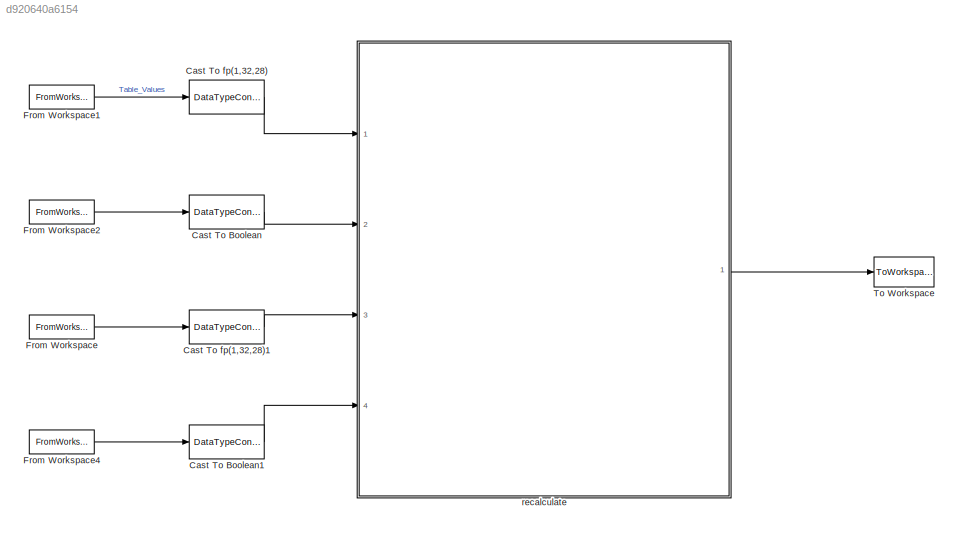
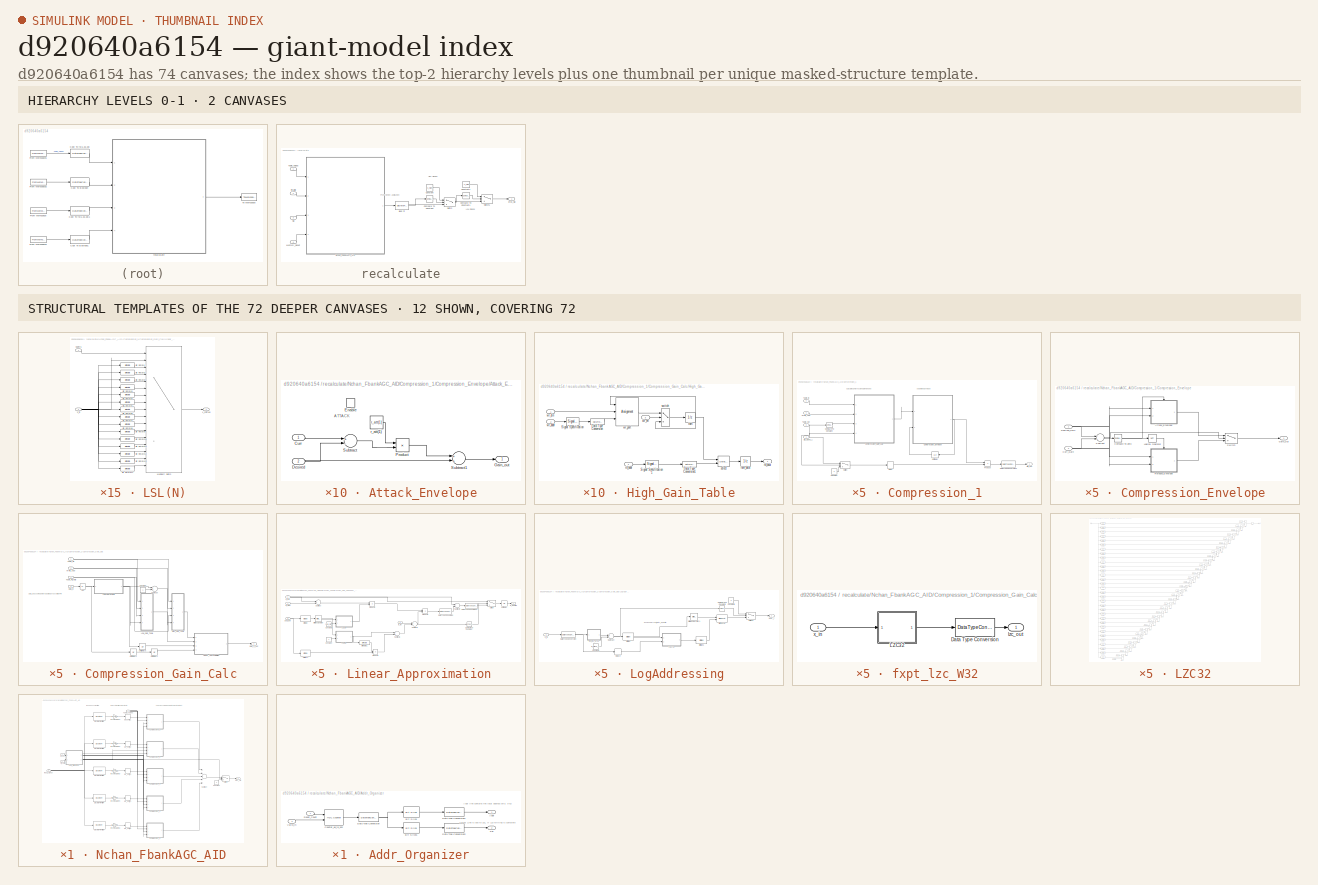
[diagram: thumbnail index - top-2 hierarchy levels (2 canvases) + 12 structural-template representatives of the remaining 72 canvases]
MODEL slx_d920640a6154
KIND model
CONFIG AbsTol = auto
CONFIG EnableMultiTasking = off
CONFIG FixedStep = auto
CONFIG InitFcn = clear;\n%DIAGNOSTIC = 0;  %% flag to give more information as simulation proceeds such as comments & plots\n%CALIB_DIAGNOSTIC =  0; %% flag to give more information about calibration of filterbank due to overlap between filters: Mar 2016\n%PRESCRIPT = 1;  %% flag to plot requested versus achieved insertion gains (esp for 125-250 Hz region).\n%ipfiledigrms = -36; %% input file RMS in dB for 65 dB SPL e...<+5970ch>
CONFIG MaxStep = auto
CONFIG MinStep = auto
CONFIG RelTol = 1e-3
CONFIG SampleTimeConstraint = Unconstrained
CONFIG Solver = VariableStepAuto
CONFIG SolverName = VariableStepAuto
CONFIG StartTime = 0.0
CONFIG StopFcn = proc_sig = double(out.proc_sig.data(:));\n%alignedSigs = double(out.alignedSigs.data(:));\n%[opwav, stop_ok] = savewavfile(opfiledigrms, ipfiledigrms, proc_sig, Fs, nbits, NStreams);\n\n%load('SweepSimOutput.mat')\n%X_out_Sweep_Sim(Volume,:) = proc_sig;\n%save('SweepSimOutput.mat', 'X_out_Sweep_Sim');
CONFIG StopTime = 10.0
BLOCK [DataTypeConversion] Cast To Boolean
  OutDataTypeStr = boolean
  RndMeth = Floor
  SaturateOnIntegerOverflow = off
BLOCK [DataTypeConversion] Cast To Boolean1
  OutDataTypeStr = boolean
  RndMeth = Floor
  SaturateOnIntegerOverflow = off
BLOCK [DataTypeConversion] Cast To fp(1,32,28)
  OutDataTypeStr = fixdt(1,32,28)
  RndMeth = Round
  SaturateOnIntegerOverflow = off
BLOCK [DataTypeConversion] Cast To fp(1,32,28)1
  OutDataTypeStr = fixdt(1,32,28)
  RndMeth = Round
  SaturateOnIntegerOverflow = off
BLOCK [FromWorkspace] From Workspace
  OutputAfterFinalValue = Setting to zero
  SampleTime = Ts
  VariableName = sig_in
  ZeroCross = on
BLOCK [FromWorkspace] From Workspace1
  Interpolate = off
  OutputAfterFinalValue = Setting to zero
  SampleTime = Ts
  VariableName = Table_Fill_t
  ZeroCross = on
BLOCK [FromWorkspace] From Workspace2
  OutputAfterFinalValue = Setting to zero
  SampleTime = Ts
  VariableName = Fill_Valid_t
  ZeroCross = on
BLOCK [FromWorkspace] From Workspace4
  Interpolate = off
  OutputAfterFinalValue = Setting to zero
  SampleTime = Ts
  VariableName = Reset
  ZeroCross = on
BLOCK [ToWorkspace] To Workspace
  FixptAsFi = on
  MaxDataPoints = inf
  Ports = [1]
  SampleTime = -1
  SaveFormat = Timeseries
  VariableName = proc_sig
BLOCK [SubSystem] recalculate
  Ports = [4, 1]
  RequestExecContextInheritance = off
BLOCK [Reference] recalculate/Compare To Constant  REF=simulink/Logic and Bit
Operations/Compare
To Constant
  Ports = [1, 1]
  SourceBlock = simulink/Logic and Bit\nOperations/Compare\nTo Constant
  SourceProductBaseCode = SL
  SourceProductName = Simulink
  SourceType = Compare To Constant
BLOCK [Reference] recalculate/Compare To Constant1  REF=simulink/Logic and Bit
Operations/Compare
To Constant
  Ports = [1, 1]
  SourceBlock = simulink/Logic and Bit\nOperations/Compare\nTo Constant
  SourceProductBaseCode = SL
  SourceProductName = Simulink
  SourceType = Compare To Constant
BLOCK [Constant] recalculate/Constant
  OutDataTypeStr = fixdt(1,W_bits, F_bits)
  SampleTime = -1
  Value = X_high
BLOCK [Constant] recalculate/Constant1
  OutDataTypeStr = fixdt(1,W_bits, F_bits)
  SampleTime = -1
  Value = -X_high
BLOCK [Inport] recalculate/Fill_Valid
  IconDisplay = Port number
  OutDataTypeStr = boolean
  Port = 2
  PortDimensions = 1
  SampleTime = 2.08333333333333e-05
BLOCK [Inport] recalculate/Memory_Reset
  IconDisplay = Port number
  OutDataTypeStr = boolean
  Port = 4
  PortDimensions = 1
  SampleTime = 2.08333333333333e-05
BLOCK [SubSystem] recalculate/Nchan_FbankAGC_AID
  Ports = [4, 1]
  RequestExecContextInheritance = off
BLOCK [SubSystem] recalculate/Nchan_FbankAGC_AID/Addr_Organizer
  Ports = [2, 2]
  RequestExecContextInheritance = off
BLOCK [Outport] recalculate/Nchan_FbankAGC_AID/Addr_Organizer/Addr
  IconDisplay = Port number
BLOCK [Reference] recalculate/Nchan_FbankAGC_AID/Addr_Organizer/Bit Slice  REF=hdlsllib/Logic and Bit
Operations/Bit Slice
  Ports = [1, 1]
  SourceBlock = hdlsllib/Logic and Bit\nOperations/Bit Slice
  SourceProductBaseCode = SL
  SourceProductName = Simulink
  SourceType = Bit Slice
BLOCK [Reference] recalculate/Nchan_FbankAGC_AID/Addr_Organizer/Bit Slice1  REF=hdlsllib/Logic and Bit
Operations/Bit Slice
  Ports = [1, 1]
  SourceBlock = hdlsllib/Logic and Bit\nOperations/Bit Slice
  SourceProductBaseCode = SL
  SourceProductName = Simulink
  SourceType = Bit Slice
BLOCK [Reference] recalculate/Nchan_FbankAGC_AID/Addr_Organizer/Counter_up_to_320  REF=hdlsllib/Sources/HDL Counter
  Ports = [2, 1]
  SourceBlock = hdlsllib/Sources/HDL Counter
  SourceProductBaseCode = SL
  SourceProductName = Simulink
  SourceType = HDL Counter
BLOCK [DataTypeConversion] recalculate/Nchan_FbankAGC_AID/Addr_Organizer/Data Type Conversion
  OutDataTypeStr = fixdt(0,7+M_Bits,0)
  RndMeth = Floor
  SaturateOnIntegerOverflow = off
BLOCK [DataTypeConversion] recalculate/Nchan_FbankAGC_AID/Addr_Organizer/Data Type Conversion1
  OutDataTypeStr = fixdt(0,4+M_bits,0)
  RndMeth = Floor
  SaturateOnIntegerOverflow = off
BLOCK [DataTypeConversion] recalculate/Nchan_FbankAGC_AID/Addr_Organizer/Data Type Conversion2
  OutDataTypeStr = fixdt(0,3,0)
  RndMeth = Floor
  SaturateOnIntegerOverflow = off
BLOCK [Inport] recalculate/Nchan_FbankAGC_AID/Addr_Organizer/Reset_Count
  IconDisplay = Port number
  OutDataTypeStr = boolean
  PortDimensions = 1
  SampleTime = 2.08333333333333e-05
BLOCK [Outport] recalculate/Nchan_FbankAGC_AID/Addr_Organizer/Sel
  IconDisplay = Port number
  Port = 2
BLOCK [Inport] recalculate/Nchan_FbankAGC_AID/Addr_Organizer/Valid_in
  IconDisplay = Port number
  OutDataTypeStr = boolean
  Port = 2
  PortDimensions = 1
  SampleTime = 2.08333333333333e-05
BLOCK [SubSystem] recalculate/Nchan_FbankAGC_AID/Compression_1
  Ports = [4, 1]
  RequestExecContextInheritance = off
BLOCK [Reference] recalculate/Nchan_FbankAGC_AID/Compression_1/Compare To Constant  REF=simulink/Logic and Bit
Operations/Compare
To Constant
  Ports = [1, 1]
  SourceBlock = simulink/Logic and Bit\nOperations/Compare\nTo Constant
  SourceProductBaseCode = SL
  SourceProductName = Simulink
  SourceType = Compare To Constant
BLOCK [SubSystem] recalculate/Nchan_FbankAGC_AID/Compression_1/Compression_Envelope
  Ports = [2, 1]
  RequestExecContextInheritance = off
BLOCK [SubSystem] recalculate/Nchan_FbankAGC_AID/Compression_1/Compression_Envelope/Attack_Envelope
  Ports = [2, 1, 1]
  RequestExecContextInheritance = off
BLOCK [Inport] recalculate/Nchan_FbankAGC_AID/Compression_1/Compression_Envelope/Attack_Envelope/Curr
  IconDisplay = Port number
  OutDataTypeStr = fixdt(1, 32, 28)
  PortDimensions = 1
  SampleTime = 2.08333333333333e-05
BLOCK [Inport] recalculate/Nchan_FbankAGC_AID/Compression_1/Compression_Envelope/Attack_Envelope/Desired
  IconDisplay = Port number
  OutDataTypeStr = fixdt(1, 32, 28)
  Port = 2
  PortDimensions = 1
  SampleTime = 2.08333333333333e-05
BLOCK [EnablePort] recalculate/Nchan_FbankAGC_AID/Compression_1/Compression_Envelope/Attack_Envelope/Enable
  OutDataTypeStr = boolean
  Ports = []
BLOCK [Outport] recalculate/Nchan_FbankAGC_AID/Compression_1/Compression_Envelope/Attack_Envelope/Gain_out
  IconDisplay = Port number
  InitialOutput = 0
BLOCK [Product] recalculate/Nchan_FbankAGC_AID/Compression_1/Compression_Envelope/Attack_Envelope/Product
  InputSameDT = off
  Ports = [2, 1]
  RndMeth = Floor
  SaturateOnIntegerOverflow = off
BLOCK [Sum] recalculate/Nchan_FbankAGC_AID/Compression_1/Compression_Envelope/Attack_Envelope/Subtract
  InputSameDT = off
  Inputs = +-
  OutDataTypeStr = Inherit: Inherit via internal rule
  Ports = [2, 1]
  SaturateOnIntegerOverflow = off
BLOCK [Sum] recalculate/Nchan_FbankAGC_AID/Compression_1/Compression_Envelope/Attack_Envelope/Subtract1
  InputSameDT = off
  OutDataTypeStr = fixdt(1,W_bits, F_bits)
  Ports = [2, 1]
  SaturateOnIntegerOverflow = off
BLOCK [Constant] recalculate/Nchan_FbankAGC_AID/Compression_1/Compression_Envelope/Attack_Envelope/r_att(1)
  OutDataTypeStr = fixdt(1,W_bits*2,W_bits+F_bits)
  SampleTime = -1
  Value = r_att(1)
BLOCK [Reference] recalculate/Nchan_FbankAGC_AID/Compression_1/Compression_Envelope/Compare To Zero  REF=simulink/Logic and Bit
Operations/Compare
To Zero
  Ports = [1, 1]
  SourceBlock = simulink/Logic and Bit\nOperations/Compare\nTo Zero
  SourceProductBaseCode = SL
  SourceProductName = Simulink
  SourceType = Compare To Zero
BLOCK [Inport] recalculate/Nchan_FbankAGC_AID/Compression_1/Compression_Envelope/Curr_Gain
  IconDisplay = Port number
  OutDataTypeStr = fixdt(1, 32, 28)
  Port = 2
  PortDimensions = 1
  SampleTime = 2.08333333333333e-05
BLOCK [Inport] recalculate/Nchan_FbankAGC_AID/Compression_1/Compression_Envelope/Desired_Gain
  IconDisplay = Port number
  OutDataTypeStr = fixdt(1, 32, 28)
  PortDimensions = 1
  SampleTime = 2.08333333333333e-05
BLOCK [Outport] recalculate/Nchan_FbankAGC_AID/Compression_1/Compression_Envelope/Gain_Out
  IconDisplay = Port number
BLOCK [Logic] recalculate/Nchan_FbankAGC_AID/Compression_1/Compression_Envelope/Logical Operator
  AllPortsSameDT = off
  Operator = NOT
  OutDataTypeStr = boolean
  Ports = [1, 1]
BLOCK [SubSystem] recalculate/Nchan_FbankAGC_AID/Compression_1/Compression_Envelope/Release_Envelope
  Ports = [2, 1, 1]
  RequestExecContextInheritance = off
BLOCK [Inport] recalculate/Nchan_FbankAGC_AID/Compression_1/Compression_Envelope/Release_Envelope/Curr
  IconDisplay = Port number
  OutDataTypeStr = fixdt(1, 32, 28)
  PortDimensions = 1
  SampleTime = 2.08333333333333e-05
BLOCK [Inport] recalculate/Nchan_FbankAGC_AID/Compression_1/Compression_Envelope/Release_Envelope/Desired
  IconDisplay = Port number
  OutDataTypeStr = fixdt(1, 32, 28)
  Port = 2
  PortDimensions = 1
  SampleTime = 2.08333333333333e-05
BLOCK [EnablePort] recalculate/Nchan_FbankAGC_AID/Compression_1/Compression_Envelope/Release_Envelope/Enable
  OutDataTypeStr = boolean
  Ports = []
BLOCK [Outport] recalculate/Nchan_FbankAGC_AID/Compression_1/Compression_Envelope/Release_Envelope/Gain_out
  IconDisplay = Port number
  InitialOutput = 0
BLOCK [Product] recalculate/Nchan_FbankAGC_AID/Compression_1/Compression_Envelope/Release_Envelope/Product
  InputSameDT = off
  Ports = [2, 1]
  RndMeth = Floor
  SaturateOnIntegerOverflow = off
BLOCK [Sum] recalculate/Nchan_FbankAGC_AID/Compression_1/Compression_Envelope/Release_Envelope/Subtract
  InputSameDT = off
  Inputs = +-
  OutDataTypeStr = Inherit: Inherit via internal rule
  Ports = [2, 1]
  SaturateOnIntegerOverflow = off
BLOCK [Sum] recalculate/Nchan_FbankAGC_AID/Compression_1/Compression_Envelope/Release_Envelope/Subtract1
  InputSameDT = off
  Inputs = +-
  Ports = [2, 1]
  SaturateOnIntegerOverflow = off
BLOCK [Constant] recalculate/Nchan_FbankAGC_AID/Compression_1/Compression_Envelope/Release_Envelope/r_rel(1)
  OutDataTypeStr = fixdt(1,W_bits*2,W_bits+F_bits)
  SampleTime = -1
  Value = r_rel(1)
BLOCK [Sum] recalculate/Nchan_FbankAGC_AID/Compression_1/Compression_Envelope/Subtract
  AccumDataTypeStr = fixdt(1,W_bits,F_bits)
  InputSameDT = off
  Inputs = -+
  OutDataTypeStr = Inherit: Same as accumulator
  Ports = [2, 1]
  SaturateOnIntegerOverflow = off
BLOCK [Switch] recalculate/Nchan_FbankAGC_AID/Compression_1/Compression_Envelope/Switch
  InputSameDT = off
  SaturateOnIntegerOverflow = off
BLOCK [SubSystem] recalculate/Nchan_FbankAGC_AID/Compression_1/Compression_Gain_Calc
  Ports = [4, 1]
  RequestExecContextInheritance = off
BLOCK [Abs] recalculate/Nchan_FbankAGC_AID/Compression_1/Compression_Gain_Calc/Abs
  SaturateOnIntegerOverflow = off
BLOCK [Constant] recalculate/Nchan_FbankAGC_AID/Compression_1/Compression_Gain_Calc/Constant
  OutDataTypeStr = fixdt(0,9,0)
  SampleTime = -1
BLOCK [Inport] recalculate/Nchan_FbankAGC_AID/Compression_1/Compression_Gain_Calc/Data_In
  IconDisplay = Port number
  OutDataTypeStr = fixdt(1, 32, 28)
  Port = 4
  PortDimensions = 1
  SampleTime = 2.08333333333333e-05
BLOCK [Outport] recalculate/Nchan_FbankAGC_AID/Compression_1/Compression_Gain_Calc/Gain_C_out
  IconDisplay = Port number
BLOCK [SubSystem] recalculate/Nchan_FbankAGC_AID/Compression_1/Compression_Gain_Calc/High_Gain_Table
  Ports = [4, 1]
  RequestExecContextInheritance = off
BLOCK [DataTypeConversion] recalculate/Nchan_FbankAGC_AID/Compression_1/Compression_Gain_Calc/High_Gain_Table/Data Type Conversion
  OutDataTypeStr = fixdt(0,16,0)
  RndMeth = Floor
  SaturateOnIntegerOverflow = off
BLOCK [DataTypeConversion] recalculate/Nchan_FbankAGC_AID/Compression_1/Compression_Gain_Calc/High_Gain_Table/Data Type Conversion1
  OutDataTypeStr = fixdt(0,16,0)
  RndMeth = Floor
  SaturateOnIntegerOverflow = off
BLOCK [SignalSpecification] recalculate/Nchan_FbankAGC_AID/Compression_1/Compression_Gain_Calc/High_Gain_Table/Signal Specification
  Dimensions = 1
  OutDataTypeStr = fixdt(0,ram_size,0)
BLOCK [SignalSpecification] recalculate/Nchan_FbankAGC_AID/Compression_1/Compression_Gain_Calc/High_Gain_Table/Signal Specification1
  Dimensions = 1
  OutDataTypeStr = fixdt(0,ram_size,0)
BLOCK [UnitDelay] recalculate/Nchan_FbankAGC_AID/Compression_1/Compression_Gain_Calc/High_Gain_Table/ram
  HasFrameUpgradeWarning = on
  InitialCondition = Table_Fill(1: 2^(M_bits+4) )
  SampleTime = -1
BLOCK [UnitDelay] recalculate/Nchan_FbankAGC_AID/Compression_1/Compression_Gain_Calc/High_Gain_Table/ram_data
  HasFrameUpgradeWarning = on
  SampleTime = -1
BLOCK [Inport] recalculate/Nchan_FbankAGC_AID/Compression_1/Compression_Gain_Calc/High_Gain_Table/rd_addr
  IconDisplay = Port number
  OutDataTypeStr = fixdt(0, 9, 0)
  Port = 4
  PortDimensions = 1
  SampleTime = 2.08333333333333e-05
BLOCK [Outport] recalculate/Nchan_FbankAGC_AID/Compression_1/Compression_Gain_Calc/High_Gain_Table/rd_dout
  IconDisplay = Port number
BLOCK [Selector] recalculate/Nchan_FbankAGC_AID/Compression_1/Compression_Gain_Calc/High_Gain_Table/select
  IndexMode = Zero-based
  IndexOptions = Index vector (port)
  Indices = [1 3]
  InputPortWidth = 2^ram_size
  OutputSizes = 1
  Ports = [2, 1]
BLOCK [Switch] recalculate/Nchan_FbankAGC_AID/Compression_1/Compression_Gain_Calc/High_Gain_Table/switch
  Criteria = u2 ~= 0
  InputSameDT = off
  SaturateOnIntegerOverflow = off
BLOCK [Inport] recalculate/Nchan_FbankAGC_AID/Compression_1/Compression_Gain_Calc/High_Gain_Table/wr_addr
  IconDisplay = Port number
  OutDataTypeStr = fixdt(0, 9, 0)
  Port = 2
  PortDimensions = 1
  SampleTime = 2.08333333333333e-05
BLOCK [Inport] recalculate/Nchan_FbankAGC_AID/Compression_1/Compression_Gain_Calc/High_Gain_Table/wr_din
  IconDisplay = Port number
  OutDataTypeStr = fixdt(1, 32, 28)
  PortDimensions = 1
  SampleTime = 2.08333333333333e-05
BLOCK [Inport] recalculate/Nchan_FbankAGC_AID/Compression_1/Compression_Gain_Calc/High_Gain_Table/wr_en
  IconDisplay = Port number
  OutDataTypeStr = boolean
  Port = 3
  PortDimensions = 1
  SampleTime = 2.08333333333333e-05
BLOCK [Assignment] recalculate/Nchan_FbankAGC_AID/Compression_1/Compression_Gain_Calc/High_Gain_Table/wr_port
  IndexMode = Zero-based
  IndexOptions = Index vector (port)
  Indices = 1
  OutputSizes = [1 1]
  Ports = [3, 1]
BLOCK [SubSystem] recalculate/Nchan_FbankAGC_AID/Compression_1/Compression_Gain_Calc/Linear_Approximation
  Ports = [4, 1]
  RequestExecContextInheritance = off
BLOCK [Reference] recalculate/Nchan_FbankAGC_AID/Compression_1/Compression_Gain_Calc/Linear_Approximation/Bit Rotate1  REF=hdlsllib/Logic and Bit
Operations/Bit Rotate
  Ports = [1, 1]
  SourceBlock = hdlsllib/Logic and Bit\nOperations/Bit Rotate
  SourceProductBaseCode = SL
  SourceProductName = Simulink
  SourceType = Bit Rotate
BLOCK [Reference] recalculate/Nchan_FbankAGC_AID/Compression_1/Compression_Gain_Calc/Linear_Approximation/Bit Slice  REF=hdlsllib/Logic and Bit
Operations/Bit Slice
  Ports = [1, 1]
  SourceBlock = hdlsllib/Logic and Bit\nOperations/Bit Slice
  SourceProductBaseCode = SL
  SourceProductName = Simulink
  SourceType = Bit Slice
BLOCK [Reference] recalculate/Nchan_FbankAGC_AID/Compression_1/Compression_Gain_Calc/Linear_Approximation/Bit Slice1  REF=hdlsllib/Logic and Bit
Operations/Bit Slice
  Ports = [1, 1]
  SourceBlock = hdlsllib/Logic and Bit\nOperations/Bit Slice
  SourceProductBaseCode = SL
  SourceProductName = Simulink
  SourceType = Bit Slice
BLOCK [Reference] recalculate/Nchan_FbankAGC_AID/Compression_1/Compression_Gain_Calc/Linear_Approximation/Bitwise Operator  REF=simulink/Logic and Bit
Operations/Bitwise
Operator
  Ports = [1, 1]
  SourceBlock = simulink/Logic and Bit\nOperations/Bitwise\nOperator
  SourceProductBaseCode = SL
  SourceProductName = Simulink
  SourceType = Bitwise Operator
BLOCK [Reference] recalculate/Nchan_FbankAGC_AID/Compression_1/Compression_Gain_Calc/Linear_Approximation/Compare To Constant  REF=simulink/Logic and Bit
Operations/Compare
To Constant
  Ports = [1, 1]
  SourceBlock = simulink/Logic and Bit\nOperations/Compare\nTo Constant
  SourceProductBaseCode = SL
  SourceProductName = Simulink
  SourceType = Compare To Constant
BLOCK [Constant] recalculate/Nchan_FbankAGC_AID/Compression_1/Compression_Gain_Calc/Linear_Approximation/Constant
  OutDataTypeStr = fixdt(0,W_bits,W_bits-2)
  SampleTime = -1
BLOCK [Constant] recalculate/Nchan_FbankAGC_AID/Compression_1/Compression_Gain_Calc/Linear_Approximation/Constant2
  OutDataTypeStr = fixdt(0,W_bits,0)
  SampleTime = -1
  Value = 2^(M_bits)
BLOCK [DataTypeConversion] recalculate/Nchan_FbankAGC_AID/Compression_1/Compression_Gain_Calc/Linear_Approximation/Data Type Conversion
  OutDataTypeStr = fixdt(1,W_bits,F_bits)
  RndMeth = Floor
  SaturateOnIntegerOverflow = off
BLOCK [DataTypeConversion] recalculate/Nchan_FbankAGC_AID/Compression_1/Compression_Gain_Calc/Linear_Approximation/Data Type Conversion1
  OutDataTypeStr = fixdt(1,W_bits, F_bits)
  RndMeth = Floor
  SaturateOnIntegerOverflow = off
BLOCK [Outport] recalculate/Nchan_FbankAGC_AID/Compression_1/Compression_Gain_Calc/Linear_Approximation/G_Desired
  IconDisplay = Port number
BLOCK [Inport] recalculate/Nchan_FbankAGC_AID/Compression_1/Compression_Gain_Calc/Linear_Approximation/G_high
  IconDisplay = Port number
  OutDataTypeStr = fixdt(1, 32, 28)
  PortDimensions = 1
  SampleTime = 2.08333333333333e-05
BLOCK [Inport] recalculate/Nchan_FbankAGC_AID/Compression_1/Compression_Gain_Calc/Linear_Approximation/G_low
  IconDisplay = Port number
  OutDataTypeStr = fixdt(1, 32, 28)
  Port = 2
  PortDimensions = 1
  SampleTime = 2.08333333333333e-05
BLOCK [SubSystem] recalculate/Nchan_FbankAGC_AID/Compression_1/Compression_Gain_Calc/Linear_Approximation/LSL(N)
  Ports = [2, 1]
  RequestExecContextInheritance = off
BLOCK [Reference] recalculate/Nchan_FbankAGC_AID/Compression_1/Compression_Gain_Calc/Linear_Approximation/LSL(N)/Bit Rotate  REF=hdlsllib/Logic and Bit
Operations/Bit Rotate
  Ports = [1, 1]
  SourceBlock = hdlsllib/Logic and Bit\nOperations/Bit Rotate
  SourceProductBaseCode = SL
  SourceProductName = Simulink
  SourceType = Bit Rotate
BLOCK [Reference] recalculate/Nchan_FbankAGC_AID/Compression_1/Compression_Gain_Calc/Linear_Approximation/LSL(N)/Bit Rotate1  REF=hdlsllib/Logic and Bit
Operations/Bit Rotate
  Ports = [1, 1]
  SourceBlock = hdlsllib/Logic and Bit\nOperations/Bit Rotate
  SourceProductBaseCode = SL
  SourceProductName = Simulink
  SourceType = Bit Rotate
BLOCK [Reference] recalculate/Nchan_FbankAGC_AID/Compression_1/Compression_Gain_Calc/Linear_Approximation/LSL(N)/Bit Rotate10  REF=hdlsllib/Logic and Bit
Operations/Bit Rotate
  Ports = [1, 1]
  SourceBlock = hdlsllib/Logic and Bit\nOperations/Bit Rotate
  SourceProductBaseCode = SL
  SourceProductName = Simulink
  SourceType = Bit Rotate
BLOCK [Reference] recalculate/Nchan_FbankAGC_AID/Compression_1/Compression_Gain_Calc/Linear_Approximation/LSL(N)/Bit Rotate11  REF=hdlsllib/Logic and Bit
Operations/Bit Rotate
  Ports = [1, 1]
  SourceBlock = hdlsllib/Logic and Bit\nOperations/Bit Rotate
  SourceProductBaseCode = SL
  SourceProductName = Simulink
  SourceType = Bit Rotate
BLOCK [Reference] recalculate/Nchan_FbankAGC_AID/Compression_1/Compression_Gain_Calc/Linear_Approximation/LSL(N)/Bit Rotate12  REF=hdlsllib/Logic and Bit
Operations/Bit Rotate
  Ports = [1, 1]
  SourceBlock = hdlsllib/Logic and Bit\nOperations/Bit Rotate
  SourceProductBaseCode = SL
  SourceProductName = Simulink
  SourceType = Bit Rotate
BLOCK [Reference] recalculate/Nchan_FbankAGC_AID/Compression_1/Compression_Gain_Calc/Linear_Approximation/LSL(N)/Bit Rotate13  REF=hdlsllib/Logic and Bit
Operations/Bit Rotate
  Ports = [1, 1]
  SourceBlock = hdlsllib/Logic and Bit\nOperations/Bit Rotate
  SourceProductBaseCode = SL
  SourceProductName = Simulink
  SourceType = Bit Rotate
BLOCK [Reference] recalculate/Nchan_FbankAGC_AID/Compression_1/Compression_Gain_Calc/Linear_Approximation/LSL(N)/Bit Rotate14  REF=hdlsllib/Logic and Bit
Operations/Bit Rotate
  Ports = [1, 1]
  SourceBlock = hdlsllib/Logic and Bit\nOperations/Bit Rotate
  SourceProductBaseCode = SL
  SourceProductName = Simulink
  SourceType = Bit Rotate
BLOCK [Reference] recalculate/Nchan_FbankAGC_AID/Compression_1/Compression_Gain_Calc/Linear_Approximation/LSL(N)/Bit Rotate2  REF=hdlsllib/Logic and Bit
Operations/Bit Rotate
  Ports = [1, 1]
  SourceBlock = hdlsllib/Logic and Bit\nOperations/Bit Rotate
  SourceProductBaseCode = SL
  SourceProductName = Simulink
  SourceType = Bit Rotate
BLOCK [Reference] recalculate/Nchan_FbankAGC_AID/Compression_1/Compression_Gain_Calc/Linear_Approximation/LSL(N)/Bit Rotate3  REF=hdlsllib/Logic and Bit
Operations/Bit Rotate
  Ports = [1, 1]
  SourceBlock = hdlsllib/Logic and Bit\nOperations/Bit Rotate
  SourceProductBaseCode = SL
  SourceProductName = Simulink
  SourceType = Bit Rotate
BLOCK [Reference] recalculate/Nchan_FbankAGC_AID/Compression_1/Compression_Gain_Calc/Linear_Approximation/LSL(N)/Bit Rotate4  REF=hdlsllib/Logic and Bit
Operations/Bit Rotate
  Ports = [1, 1]
  SourceBlock = hdlsllib/Logic and Bit\nOperations/Bit Rotate
  SourceProductBaseCode = SL
  SourceProductName = Simulink
  SourceType = Bit Rotate
BLOCK [Reference] recalculate/Nchan_FbankAGC_AID/Compression_1/Compression_Gain_Calc/Linear_Approximation/LSL(N)/Bit Rotate5  REF=hdlsllib/Logic and Bit
Operations/Bit Rotate
  Ports = [1, 1]
  SourceBlock = hdlsllib/Logic and Bit\nOperations/Bit Rotate
  SourceProductBaseCode = SL
  SourceProductName = Simulink
  SourceType = Bit Rotate
BLOCK [Reference] recalculate/Nchan_FbankAGC_AID/Compression_1/Compression_Gain_Calc/Linear_Approximation/LSL(N)/Bit Rotate6  REF=hdlsllib/Logic and Bit
Operations/Bit Rotate
  Ports = [1, 1]
  SourceBlock = hdlsllib/Logic and Bit\nOperations/Bit Rotate
  SourceProductBaseCode = SL
  SourceProductName = Simulink
  SourceType = Bit Rotate
BLOCK [Reference] recalculate/Nchan_FbankAGC_AID/Compression_1/Compression_Gain_Calc/Linear_Approximation/LSL(N)/Bit Rotate7  REF=hdlsllib/Logic and Bit
Operations/Bit Rotate
  Ports = [1, 1]
  SourceBlock = hdlsllib/Logic and Bit\nOperations/Bit Rotate
  SourceProductBaseCode = SL
  SourceProductName = Simulink
  SourceType = Bit Rotate
BLOCK [Reference] recalculate/Nchan_FbankAGC_AID/Compression_1/Compression_Gain_Calc/Linear_Approximation/LSL(N)/Bit Rotate8  REF=hdlsllib/Logic and Bit
Operations/Bit Rotate
  Ports = [1, 1]
  SourceBlock = hdlsllib/Logic and Bit\nOperations/Bit Rotate
  SourceProductBaseCode = SL
  SourceProductName = Simulink
  SourceType = Bit Rotate
BLOCK [Reference] recalculate/Nchan_FbankAGC_AID/Compression_1/Compression_Gain_Calc/Linear_Approximation/LSL(N)/Bit Rotate9  REF=hdlsllib/Logic and Bit
Operations/Bit Rotate
  Ports = [1, 1]
  SourceBlock = hdlsllib/Logic and Bit\nOperations/Bit Rotate
  SourceProductBaseCode = SL
  SourceProductName = Simulink
  SourceType = Bit Rotate
BLOCK [MultiPortSwitch] recalculate/Nchan_FbankAGC_AID/Compression_1/Compression_Gain_Calc/Linear_Approximation/LSL(N)/Multiport Switch
  DataPortOrder = Zero-based contiguous
  DiagnosticForDefault = Warning
  InputSameDT = off
  Inputs = 16
  Ports = [17, 1]
  SaturateOnIntegerOverflow = off
  zeroidx = on
BLOCK [Inport] recalculate/Nchan_FbankAGC_AID/Compression_1/Compression_Gain_Calc/Linear_Approximation/LSL(N)/NShifts
  IconDisplay = Port number
  OutDataTypeStr = fixdt(0, 4, 0)
  PortDimensions = 1
  SampleTime = 2.08333333333333e-05
BLOCK [Inport] recalculate/Nchan_FbankAGC_AID/Compression_1/Compression_Gain_Calc/Linear_Approximation/LSL(N)/x_in
  IconDisplay = Port number
  OutDataTypeStr = uint32
  Port = 2
  PortDimensions = 1
  SampleTime = 2.08333333333333e-05
BLOCK [Outport] recalculate/Nchan_FbankAGC_AID/Compression_1/Compression_Gain_Calc/Linear_Approximation/LSL(N)/x_shifted
  IconDisplay = Port number
BLOCK [SubSystem] recalculate/Nchan_FbankAGC_AID/Compression_1/Compression_Gain_Calc/Linear_Approximation/LSR(N)
  Ports = [2, 1]
  RequestExecContextInheritance = off
BLOCK [Reference] recalculate/Nchan_FbankAGC_AID/Compression_1/Compression_Gain_Calc/Linear_Approximation/LSR(N)/Bit Rotate  REF=hdlsllib/Logic and Bit
Operations/Bit Rotate
  Ports = [1, 1]
  SourceBlock = hdlsllib/Logic and Bit\nOperations/Bit Rotate
  SourceProductBaseCode = SL
  SourceProductName = Simulink
  SourceType = Bit Rotate
BLOCK [Reference] recalculate/Nchan_FbankAGC_AID/Compression_1/Compression_Gain_Calc/Linear_Approximation/LSR(N)/Bit Rotate1  REF=hdlsllib/Logic and Bit
Operations/Bit Rotate
  Ports = [1, 1]
  SourceBlock = hdlsllib/Logic and Bit\nOperations/Bit Rotate
  SourceProductBaseCode = SL
  SourceProductName = Simulink
  SourceType = Bit Rotate
BLOCK [Reference] recalculate/Nchan_FbankAGC_AID/Compression_1/Compression_Gain_Calc/Linear_Approximation/LSR(N)/Bit Rotate10  REF=hdlsllib/Logic and Bit
Operations/Bit Rotate
  Ports = [1, 1]
  SourceBlock = hdlsllib/Logic and Bit\nOperations/Bit Rotate
  SourceProductBaseCode = SL
  SourceProductName = Simulink
  SourceType = Bit Rotate
BLOCK [Reference] recalculate/Nchan_FbankAGC_AID/Compression_1/Compression_Gain_Calc/Linear_Approximation/LSR(N)/Bit Rotate11  REF=hdlsllib/Logic and Bit
Operations/Bit Rotate
  Ports = [1, 1]
  SourceBlock = hdlsllib/Logic and Bit\nOperations/Bit Rotate
  SourceProductBaseCode = SL
  SourceProductName = Simulink
  SourceType = Bit Rotate
BLOCK [Reference] recalculate/Nchan_FbankAGC_AID/Compression_1/Compression_Gain_Calc/Linear_Approximation/LSR(N)/Bit Rotate12  REF=hdlsllib/Logic and Bit
Operations/Bit Rotate
  Ports = [1, 1]
  SourceBlock = hdlsllib/Logic and Bit\nOperations/Bit Rotate
  SourceProductBaseCode = SL
  SourceProductName = Simulink
  SourceType = Bit Rotate
BLOCK [Reference] recalculate/Nchan_FbankAGC_AID/Compression_1/Compression_Gain_Calc/Linear_Approximation/LSR(N)/Bit Rotate13  REF=hdlsllib/Logic and Bit
Operations/Bit Rotate
  Ports = [1, 1]
  SourceBlock = hdlsllib/Logic and Bit\nOperations/Bit Rotate
  SourceProductBaseCode = SL
  SourceProductName = Simulink
  SourceType = Bit Rotate
BLOCK [Reference] recalculate/Nchan_FbankAGC_AID/Compression_1/Compression_Gain_Calc/Linear_Approximation/LSR(N)/Bit Rotate14  REF=hdlsllib/Logic and Bit
Operations/Bit Rotate
  Ports = [1, 1]
  SourceBlock = hdlsllib/Logic and Bit\nOperations/Bit Rotate
  SourceProductBaseCode = SL
  SourceProductName = Simulink
  SourceType = Bit Rotate
BLOCK [Reference] recalculate/Nchan_FbankAGC_AID/Compression_1/Compression_Gain_Calc/Linear_Approximation/LSR(N)/Bit Rotate2  REF=hdlsllib/Logic and Bit
Operations/Bit Rotate
  Ports = [1, 1]
  SourceBlock = hdlsllib/Logic and Bit\nOperations/Bit Rotate
  SourceProductBaseCode = SL
  SourceProductName = Simulink
  SourceType = Bit Rotate
BLOCK [Reference] recalculate/Nchan_FbankAGC_AID/Compression_1/Compression_Gain_Calc/Linear_Approximation/LSR(N)/Bit Rotate3  REF=hdlsllib/Logic and Bit
Operations/Bit Rotate
  Ports = [1, 1]
  SourceBlock = hdlsllib/Logic and Bit\nOperations/Bit Rotate
  SourceProductBaseCode = SL
  SourceProductName = Simulink
  SourceType = Bit Rotate
BLOCK [Reference] recalculate/Nchan_FbankAGC_AID/Compression_1/Compression_Gain_Calc/Linear_Approximation/LSR(N)/Bit Rotate4  REF=hdlsllib/Logic and Bit
Operations/Bit Rotate
  Ports = [1, 1]
  SourceBlock = hdlsllib/Logic and Bit\nOperations/Bit Rotate
  SourceProductBaseCode = SL
  SourceProductName = Simulink
  SourceType = Bit Rotate
BLOCK [Reference] recalculate/Nchan_FbankAGC_AID/Compression_1/Compression_Gain_Calc/Linear_Approximation/LSR(N)/Bit Rotate5  REF=hdlsllib/Logic and Bit
Operations/Bit Rotate
  Ports = [1, 1]
  SourceBlock = hdlsllib/Logic and Bit\nOperations/Bit Rotate
  SourceProductBaseCode = SL
  SourceProductName = Simulink
  SourceType = Bit Rotate
BLOCK [Reference] recalculate/Nchan_FbankAGC_AID/Compression_1/Compression_Gain_Calc/Linear_Approximation/LSR(N)/Bit Rotate6  REF=hdlsllib/Logic and Bit
Operations/Bit Rotate
  Ports = [1, 1]
  SourceBlock = hdlsllib/Logic and Bit\nOperations/Bit Rotate
  SourceProductBaseCode = SL
  SourceProductName = Simulink
  SourceType = Bit Rotate
BLOCK [Reference] recalculate/Nchan_FbankAGC_AID/Compression_1/Compression_Gain_Calc/Linear_Approximation/LSR(N)/Bit Rotate7  REF=hdlsllib/Logic and Bit
Operations/Bit Rotate
  Ports = [1, 1]
  SourceBlock = hdlsllib/Logic and Bit\nOperations/Bit Rotate
  SourceProductBaseCode = SL
  SourceProductName = Simulink
  SourceType = Bit Rotate
BLOCK [Reference] recalculate/Nchan_FbankAGC_AID/Compression_1/Compression_Gain_Calc/Linear_Approximation/LSR(N)/Bit Rotate8  REF=hdlsllib/Logic and Bit
Operations/Bit Rotate
  Ports = [1, 1]
  SourceBlock = hdlsllib/Logic and Bit\nOperations/Bit Rotate
  SourceProductBaseCode = SL
  SourceProductName = Simulink
  SourceType = Bit Rotate
BLOCK [Reference] recalculate/Nchan_FbankAGC_AID/Compression_1/Compression_Gain_Calc/Linear_Approximation/LSR(N)/Bit Rotate9  REF=hdlsllib/Logic and Bit
Operations/Bit Rotate
  Ports = [1, 1]
  SourceBlock = hdlsllib/Logic and Bit\nOperations/Bit Rotate
  SourceProductBaseCode = SL
  SourceProductName = Simulink
  SourceType = Bit Rotate
BLOCK [MultiPortSwitch] recalculate/Nchan_FbankAGC_AID/Compression_1/Compression_Gain_Calc/Linear_Approximation/LSR(N)/Multiport Switch
  DataPortOrder = Zero-based contiguous
  DiagnosticForDefault = Warning
  InputSameDT = off
  Inputs = 16
  Ports = [17, 1]
  SaturateOnIntegerOverflow = off
  zeroidx = on
BLOCK [Inport] recalculate/Nchan_FbankAGC_AID/Compression_1/Compression_Gain_Calc/Linear_Approximation/LSR(N)/NShifts
  IconDisplay = Port number
  OutDataTypeStr = fixdt(0, 4, 0)
  PortDimensions = 1
  SampleTime = 2.08333333333333e-05
BLOCK [Inport] recalculate/Nchan_FbankAGC_AID/Compression_1/Compression_Gain_Calc/Linear_Approximation/LSR(N)/x_in
  IconDisplay = Port number
  OutDataTypeStr = fixdt(0, 32, 30)
  Port = 2
  PortDimensions = 1
  SampleTime = 2.08333333333333e-05
BLOCK [Outport] recalculate/Nchan_FbankAGC_AID/Compression_1/Compression_Gain_Calc/Linear_Approximation/LSR(N)/x_shifted
  IconDisplay = Port number
BLOCK [Product] recalculate/Nchan_FbankAGC_AID/Compression_1/Compression_Gain_Calc/Linear_Approximation/Product1
  InputSameDT = off
  OutDataTypeStr = Inherit: Inherit via internal rule
  Ports = [2, 1]
  RndMeth = Floor
  SaturateOnIntegerOverflow = off
BLOCK [Product] recalculate/Nchan_FbankAGC_AID/Compression_1/Compression_Gain_Calc/Linear_Approximation/Product2
  InputSameDT = off
  OutDataTypeStr = Inherit: Inherit via internal rule
  Ports = [2, 1]
  RndMeth = Floor
  SaturateOnIntegerOverflow = off
BLOCK [Product] recalculate/Nchan_FbankAGC_AID/Compression_1/Compression_Gain_Calc/Linear_Approximation/Product3
  InputSameDT = off
  OutDataTypeStr = Inherit: Inherit via internal rule
  Ports = [2, 1]
  RndMeth = Floor
  SaturateOnIntegerOverflow = off
BLOCK [Sum] recalculate/Nchan_FbankAGC_AID/Compression_1/Compression_Gain_Calc/Linear_Approximation/Subtract
  InputSameDT = off
  Inputs = -+
  OutDataTypeStr = Inherit: Inherit via internal rule
  Ports = [2, 1]
  SaturateOnIntegerOverflow = off
BLOCK [Sum] recalculate/Nchan_FbankAGC_AID/Compression_1/Compression_Gain_Calc/Linear_Approximation/Subtract1
  InputSameDT = off
  OutDataTypeStr = fixdt(1,W_bits, F_bits)
  Ports = [2, 1]
  SaturateOnIntegerOverflow = off
BLOCK [Sum] recalculate/Nchan_FbankAGC_AID/Compression_1/Compression_Gain_Calc/Linear_Approximation/Subtract2
  InputSameDT = off
  Inputs = +-
  Ports = [2, 1]
  SaturateOnIntegerOverflow = off
BLOCK [Sum] recalculate/Nchan_FbankAGC_AID/Compression_1/Compression_Gain_Calc/Linear_Approximation/Subtract3
  InputSameDT = off
  OutDataTypeStr = Inherit: Inherit via internal rule
  Ports = [2, 1]
  SaturateOnIntegerOverflow = off
BLOCK [Switch] recalculate/Nchan_FbankAGC_AID/Compression_1/Compression_Gain_Calc/Linear_Approximation/Switch
  Criteria = u2 > Threshold
  InputSameDT = off
  SaturateOnIntegerOverflow = off
BLOCK [UnitDelay] recalculate/Nchan_FbankAGC_AID/Compression_1/Compression_Gain_Calc/Linear_Approximation/Unit Delay
  HasFrameUpgradeWarning = on
  InitialCondition = 1
  SampleTime = -1
BLOCK [Inport] recalculate/Nchan_FbankAGC_AID/Compression_1/Compression_Gain_Calc/Linear_Approximation/addr_low
  IconDisplay = Port number
  OutDataTypeStr = fixdt(0, 9, 0)
  Port = 3
  PortDimensions = 1
  SampleTime = 2.08333333333333e-05
BLOCK [Inport] recalculate/Nchan_FbankAGC_AID/Compression_1/Compression_Gain_Calc/Linear_Approximation/|X_in|
  IconDisplay = Port number
  OutDataTypeStr = fixdt(1, 32, 28)
  Port = 4
  PortDimensions = 1
  SampleTime = 2.08333333333333e-05
BLOCK [SubSystem] recalculate/Nchan_FbankAGC_AID/Compression_1/Compression_Gain_Calc/LogAddressing
  Ports = [1, 1]
  RequestExecContextInheritance = off
BLOCK [Reference] recalculate/Nchan_FbankAGC_AID/Compression_1/Compression_Gain_Calc/LogAddressing/Bit Concat  REF=hdlsllib/Logic and Bit
Operations/Bit Concat
  Ports = [2, 1]
  SourceBlock = hdlsllib/Logic and Bit\nOperations/Bit Concat
  SourceProductBaseCode = SL
  SourceProductName = Simulink
  SourceType = Bit Concat
BLOCK [Reference] recalculate/Nchan_FbankAGC_AID/Compression_1/Compression_Gain_Calc/LogAddressing/Bit Slice  REF=hdlsllib/Logic and Bit
Operations/Bit Slice
  Ports = [1, 1]
  SourceBlock = hdlsllib/Logic and Bit\nOperations/Bit Slice
  SourceProductBaseCode = SL
  SourceProductName = Simulink
  SourceType = Bit Slice
BLOCK [Reference] recalculate/Nchan_FbankAGC_AID/Compression_1/Compression_Gain_Calc/LogAddressing/Bit Slice1  REF=hdlsllib/Logic and Bit
Operations/Bit Slice
  Ports = [1, 1]
  SourceBlock = hdlsllib/Logic and Bit\nOperations/Bit Slice
  SourceProductBaseCode = SL
  SourceProductName = Simulink
  SourceType = Bit Slice
BLOCK [Reference] recalculate/Nchan_FbankAGC_AID/Compression_1/Compression_Gain_Calc/LogAddressing/Bitwise Operator1  REF=simulink/Logic and Bit
Operations/Bitwise
Operator
  Ports = [1, 1]
  SourceBlock = simulink/Logic and Bit\nOperations/Bitwise\nOperator
  SourceProductBaseCode = SL
  SourceProductName = Simulink
  SourceType = Bitwise Operator
BLOCK [Reference] recalculate/Nchan_FbankAGC_AID/Compression_1/Compression_Gain_Calc/LogAddressing/Compare To Constant1  REF=simulink/Logic and Bit
Operations/Compare
To Constant
  Ports = [1, 1]
  SourceBlock = simulink/Logic and Bit\nOperations/Compare\nTo Constant
  SourceProductBaseCode = SL
  SourceProductName = Simulink
  SourceType = Compare To Constant
BLOCK [Constant] recalculate/Nchan_FbankAGC_AID/Compression_1/Compression_Gain_Calc/LogAddressing/Constant1
  OutDataTypeStr = fixdt(0,6,0)
  SampleTime = -1
  Value = W_bits-1-F_bits
BLOCK [Constant] recalculate/Nchan_FbankAGC_AID/Compression_1/Compression_Gain_Calc/LogAddressing/Constant6
  OutDataTypeStr = fixdt(0,9,0)
  SampleTime = -1
  Value = 0
BLOCK [DataTypeConversion] recalculate/Nchan_FbankAGC_AID/Compression_1/Compression_Gain_Calc/LogAddressing/Data Type Conversion
  OutDataTypeStr = fixdt(0,W_bits,F_bits)
  RndMeth = Floor
  SaturateOnIntegerOverflow = off
BLOCK [Delay] recalculate/Nchan_FbankAGC_AID/Compression_1/Compression_Gain_Calc/LogAddressing/Delay2
  DelayLength = 1
  InputPortMap = u0
  Ports = [1, 1]
  SampleTime = Ts_system
BLOCK [SubSystem] recalculate/Nchan_FbankAGC_AID/Compression_1/Compression_Gain_Calc/LogAddressing/LSL(N)
  Ports = [2, 1]
  RequestExecContextInheritance = off
BLOCK [Reference] recalculate/Nchan_FbankAGC_AID/Compression_1/Compression_Gain_Calc/LogAddressing/LSL(N)/Bit Rotate  REF=hdlsllib/Logic and Bit
Operations/Bit Rotate
  Ports = [1, 1]
  SourceBlock = hdlsllib/Logic and Bit\nOperations/Bit Rotate
  SourceProductBaseCode = SL
  SourceProductName = Simulink
  SourceType = Bit Rotate
BLOCK [Reference] recalculate/Nchan_FbankAGC_AID/Compression_1/Compression_Gain_Calc/LogAddressing/LSL(N)/Bit Rotate1  REF=hdlsllib/Logic and Bit
Operations/Bit Rotate
  Ports = [1, 1]
  SourceBlock = hdlsllib/Logic and Bit\nOperations/Bit Rotate
  SourceProductBaseCode = SL
  SourceProductName = Simulink
  SourceType = Bit Rotate
BLOCK [Reference] recalculate/Nchan_FbankAGC_AID/Compression_1/Compression_Gain_Calc/LogAddressing/LSL(N)/Bit Rotate10  REF=hdlsllib/Logic and Bit
Operations/Bit Rotate
  Ports = [1, 1]
  SourceBlock = hdlsllib/Logic and Bit\nOperations/Bit Rotate
  SourceProductBaseCode = SL
  SourceProductName = Simulink
  SourceType = Bit Rotate
BLOCK [Reference] recalculate/Nchan_FbankAGC_AID/Compression_1/Compression_Gain_Calc/LogAddressing/LSL(N)/Bit Rotate11  REF=hdlsllib/Logic and Bit
Operations/Bit Rotate
  Ports = [1, 1]
  SourceBlock = hdlsllib/Logic and Bit\nOperations/Bit Rotate
  SourceProductBaseCode = SL
  SourceProductName = Simulink
  SourceType = Bit Rotate
BLOCK [Reference] recalculate/Nchan_FbankAGC_AID/Compression_1/Compression_Gain_Calc/LogAddressing/LSL(N)/Bit Rotate12  REF=hdlsllib/Logic and Bit
Operations/Bit Rotate
  Ports = [1, 1]
  SourceBlock = hdlsllib/Logic and Bit\nOperations/Bit Rotate
  SourceProductBaseCode = SL
  SourceProductName = Simulink
  SourceType = Bit Rotate
BLOCK [Reference] recalculate/Nchan_FbankAGC_AID/Compression_1/Compression_Gain_Calc/LogAddressing/LSL(N)/Bit Rotate13  REF=hdlsllib/Logic and Bit
Operations/Bit Rotate
  Ports = [1, 1]
  SourceBlock = hdlsllib/Logic and Bit\nOperations/Bit Rotate
  SourceProductBaseCode = SL
  SourceProductName = Simulink
  SourceType = Bit Rotate
BLOCK [Reference] recalculate/Nchan_FbankAGC_AID/Compression_1/Compression_Gain_Calc/LogAddressing/LSL(N)/Bit Rotate14  REF=hdlsllib/Logic and Bit
Operations/Bit Rotate
  Ports = [1, 1]
  SourceBlock = hdlsllib/Logic and Bit\nOperations/Bit Rotate
  SourceProductBaseCode = SL
  SourceProductName = Simulink
  SourceType = Bit Rotate
BLOCK [Reference] recalculate/Nchan_FbankAGC_AID/Compression_1/Compression_Gain_Calc/LogAddressing/LSL(N)/Bit Rotate2  REF=hdlsllib/Logic and Bit
Operations/Bit Rotate
  Ports = [1, 1]
  SourceBlock = hdlsllib/Logic and Bit\nOperations/Bit Rotate
  SourceProductBaseCode = SL
  SourceProductName = Simulink
  SourceType = Bit Rotate
BLOCK [Reference] recalculate/Nchan_FbankAGC_AID/Compression_1/Compression_Gain_Calc/LogAddressing/LSL(N)/Bit Rotate3  REF=hdlsllib/Logic and Bit
Operations/Bit Rotate
  Ports = [1, 1]
  SourceBlock = hdlsllib/Logic and Bit\nOperations/Bit Rotate
  SourceProductBaseCode = SL
  SourceProductName = Simulink
  SourceType = Bit Rotate
BLOCK [Reference] recalculate/Nchan_FbankAGC_AID/Compression_1/Compression_Gain_Calc/LogAddressing/LSL(N)/Bit Rotate4  REF=hdlsllib/Logic and Bit
Operations/Bit Rotate
  Ports = [1, 1]
  SourceBlock = hdlsllib/Logic and Bit\nOperations/Bit Rotate
  SourceProductBaseCode = SL
  SourceProductName = Simulink
  SourceType = Bit Rotate
BLOCK [Reference] recalculate/Nchan_FbankAGC_AID/Compression_1/Compression_Gain_Calc/LogAddressing/LSL(N)/Bit Rotate5  REF=hdlsllib/Logic and Bit
Operations/Bit Rotate
  Ports = [1, 1]
  SourceBlock = hdlsllib/Logic and Bit\nOperations/Bit Rotate
  SourceProductBaseCode = SL
  SourceProductName = Simulink
  SourceType = Bit Rotate
BLOCK [Reference] recalculate/Nchan_FbankAGC_AID/Compression_1/Compression_Gain_Calc/LogAddressing/LSL(N)/Bit Rotate6  REF=hdlsllib/Logic and Bit
Operations/Bit Rotate
  Ports = [1, 1]
  SourceBlock = hdlsllib/Logic and Bit\nOperations/Bit Rotate
  SourceProductBaseCode = SL
  SourceProductName = Simulink
  SourceType = Bit Rotate
BLOCK [Reference] recalculate/Nchan_FbankAGC_AID/Compression_1/Compression_Gain_Calc/LogAddressing/LSL(N)/Bit Rotate7  REF=hdlsllib/Logic and Bit
Operations/Bit Rotate
  Ports = [1, 1]
  SourceBlock = hdlsllib/Logic and Bit\nOperations/Bit Rotate
  SourceProductBaseCode = SL
  SourceProductName = Simulink
  SourceType = Bit Rotate
BLOCK [Reference] recalculate/Nchan_FbankAGC_AID/Compression_1/Compression_Gain_Calc/LogAddressing/LSL(N)/Bit Rotate8  REF=hdlsllib/Logic and Bit
Operations/Bit Rotate
  Ports = [1, 1]
  SourceBlock = hdlsllib/Logic and Bit\nOperations/Bit Rotate
  SourceProductBaseCode = SL
  SourceProductName = Simulink
  SourceType = Bit Rotate
BLOCK [Reference] recalculate/Nchan_FbankAGC_AID/Compression_1/Compression_Gain_Calc/LogAddressing/LSL(N)/Bit Rotate9  REF=hdlsllib/Logic and Bit
Operations/Bit Rotate
  Ports = [1, 1]
  SourceBlock = hdlsllib/Logic and Bit\nOperations/Bit Rotate
  SourceProductBaseCode = SL
  SourceProductName = Simulink
  SourceType = Bit Rotate
BLOCK [MultiPortSwitch] recalculate/Nchan_FbankAGC_AID/Compression_1/Compression_Gain_Calc/LogAddressing/LSL(N)/Multiport Switch
  DataPortOrder = Zero-based contiguous
  DiagnosticForDefault = Warning
  InputSameDT = off
  Inputs = 16
  Ports = [17, 1]
  SaturateOnIntegerOverflow = off
  zeroidx = on
BLOCK [Inport] recalculate/Nchan_FbankAGC_AID/Compression_1/Compression_Gain_Calc/LogAddressing/LSL(N)/NShifts
  IconDisplay = Port number
  OutDataTypeStr = fixdt(0, 4, 0)
  PortDimensions = 1
  SampleTime = 2.08333333333333e-05
BLOCK [Inport] recalculate/Nchan_FbankAGC_AID/Compression_1/Compression_Gain_Calc/LogAddressing/LSL(N)/x_in
  IconDisplay = Port number
  OutDataTypeStr = fixdt(0, 32, 28)
  Port = 2
  PortDimensions = 1
  SampleTime = 2.08333333333333e-05
BLOCK [Outport] recalculate/Nchan_FbankAGC_AID/Compression_1/Compression_Gain_Calc/LogAddressing/LSL(N)/x_shifted
  IconDisplay = Port number
BLOCK [Sum] recalculate/Nchan_FbankAGC_AID/Compression_1/Compression_Gain_Calc/LogAddressing/Subtract
  AccumDataTypeStr = Inherit: Same as first input
  InputSameDT = off
  Inputs = +-
  Ports = [2, 1]
  SaturateOnIntegerOverflow = off
BLOCK [Switch] recalculate/Nchan_FbankAGC_AID/Compression_1/Compression_Gain_Calc/LogAddressing/Switch1
  Criteria = u2 ~= 0
  InputSameDT = off
  SaturateOnIntegerOverflow = off
BLOCK [Outport] recalculate/Nchan_FbankAGC_AID/Compression_1/Compression_Gain_Calc/LogAddressing/addr_r
  IconDisplay = Port number
BLOCK [SubSystem] recalculate/Nchan_FbankAGC_AID/Compression_1/Compression_Gain_Calc/LogAddressing/fxpt_lzc_W32
  Ports = [1, 1]
  RequestExecContextInheritance = off
  TreatAsAtomicUnit = on
BLOCK [DataTypeConversion] recalculate/Nchan_FbankAGC_AID/Compression_1/Compression_Gain_Calc/LogAddressing/fxpt_lzc_W32/Data Type Conversion
  OutDataTypeStr = fixdt(0,6,0)
  RndMeth = Floor
  SaturateOnIntegerOverflow = off
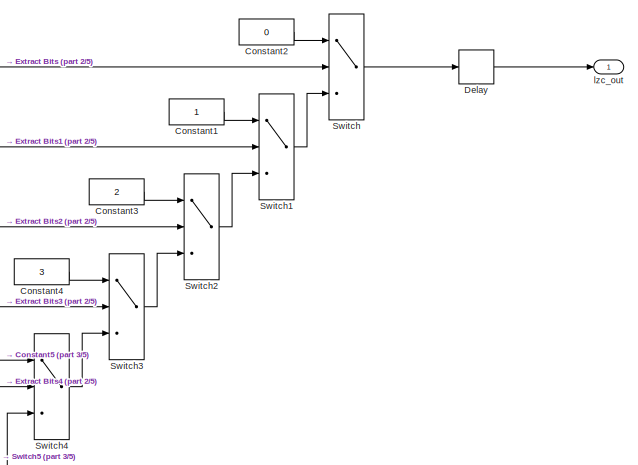
[diagram: recalculate/Nchan_FbankAGC_AID/Compression_1/Compression_Gain_Calc/LogAddressing/fxpt_lzc_W32/LZC32 - part 1/5, top right region]
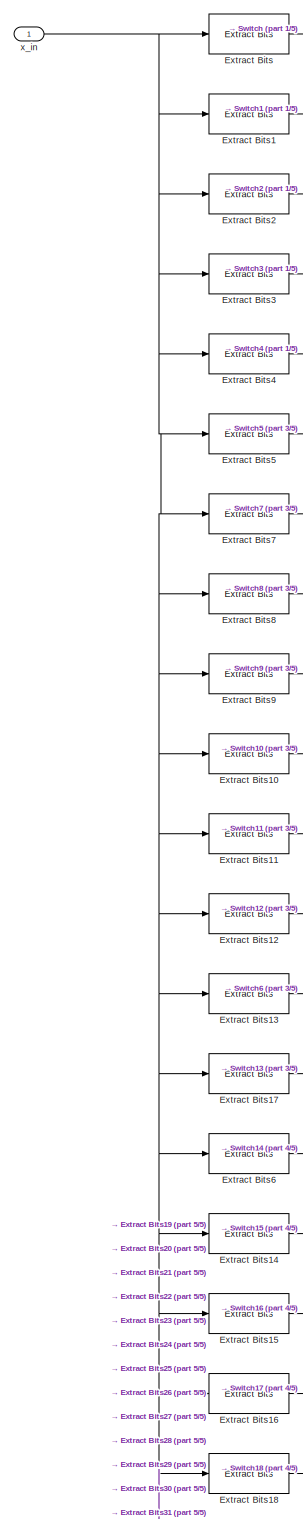
[diagram: recalculate/Nchan_FbankAGC_AID/Compression_1/Compression_Gain_Calc/LogAddressing/fxpt_lzc_W32/LZC32 - part 2/5, top left region]
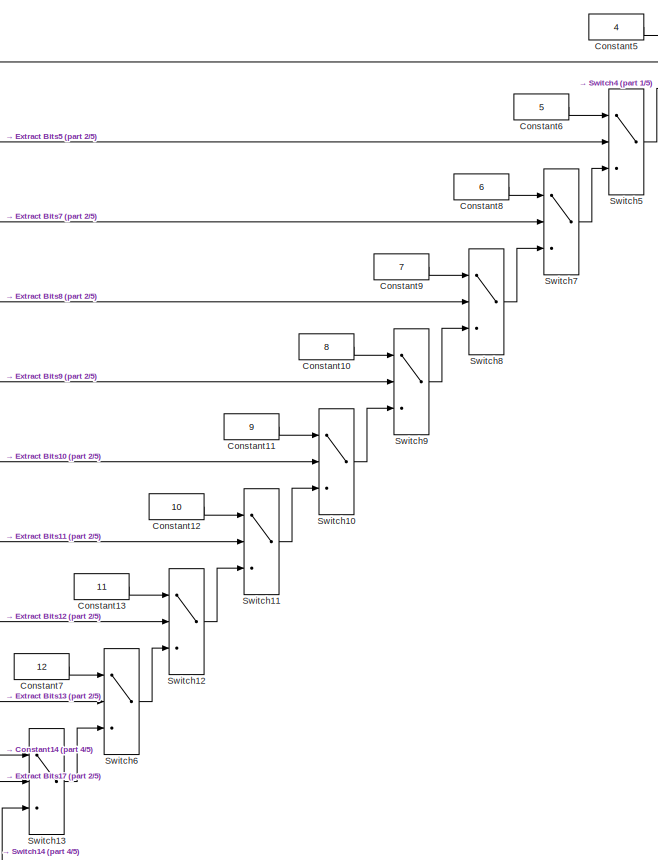
[diagram: recalculate/Nchan_FbankAGC_AID/Compression_1/Compression_Gain_Calc/LogAddressing/fxpt_lzc_W32/LZC32 - part 3/5, top right region]
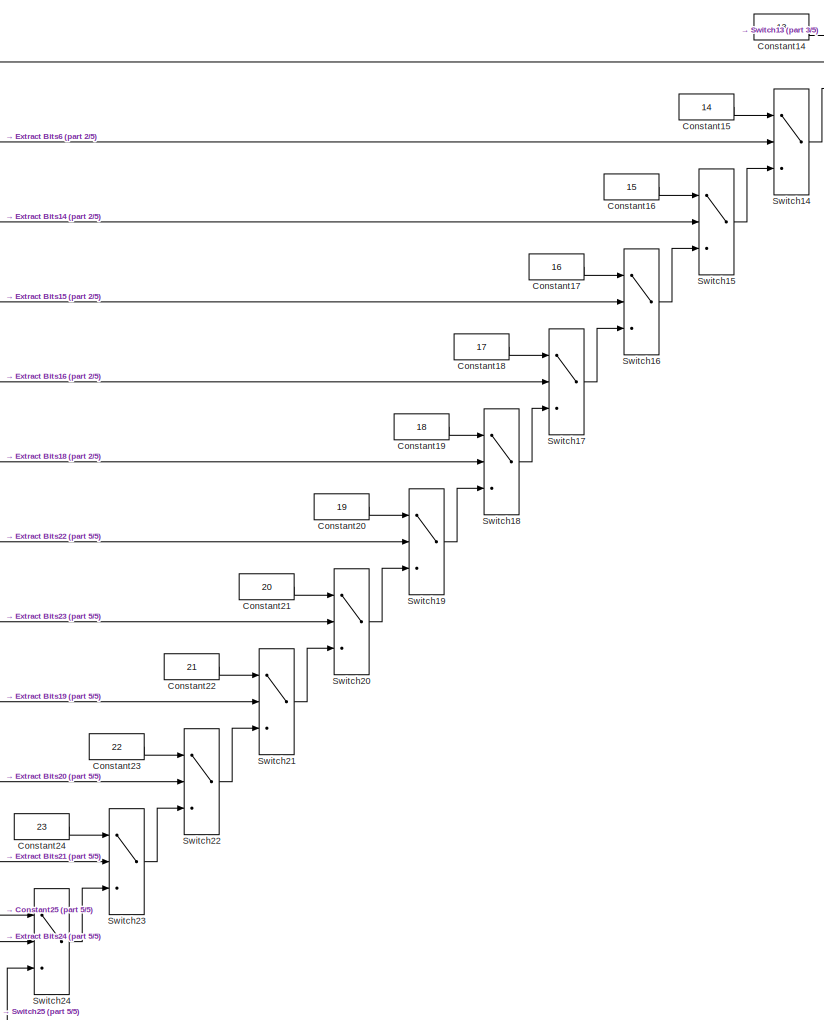
[diagram: recalculate/Nchan_FbankAGC_AID/Compression_1/Compression_Gain_Calc/LogAddressing/fxpt_lzc_W32/LZC32 - part 4/5, central region]
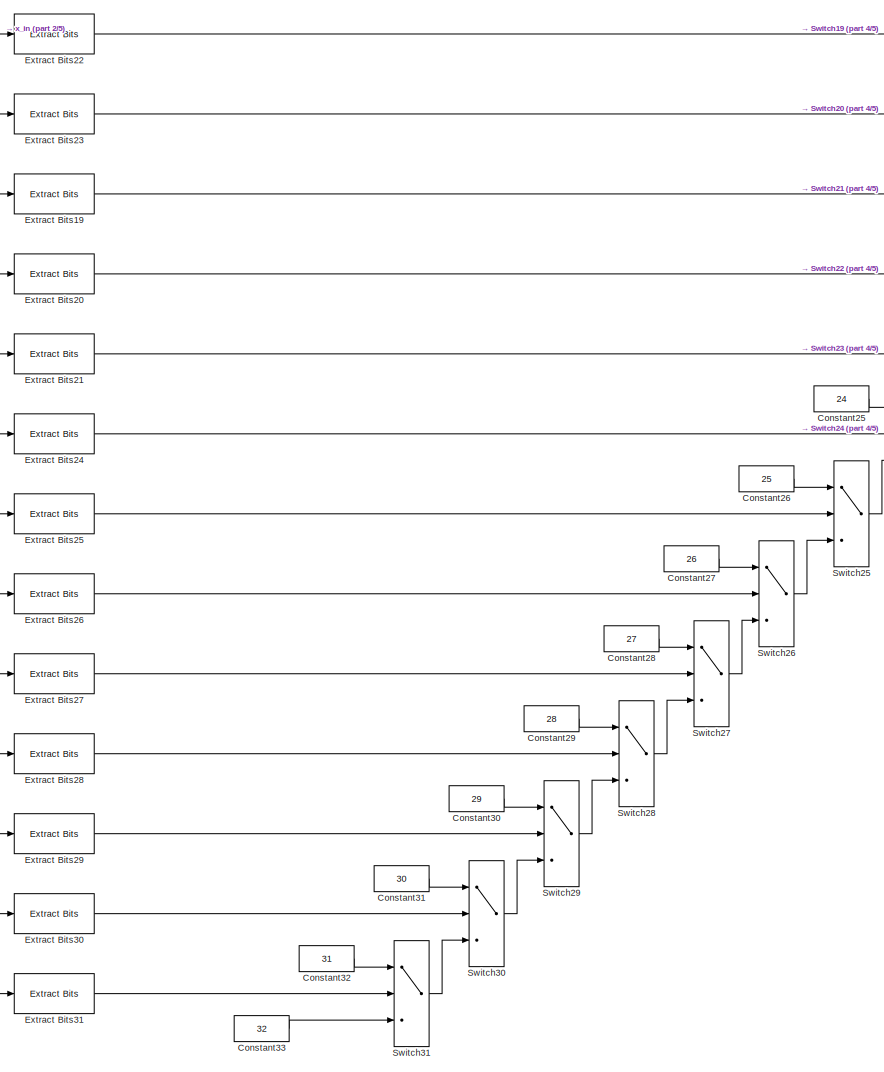
[diagram: recalculate/Nchan_FbankAGC_AID/Compression_1/Compression_Gain_Calc/LogAddressing/fxpt_lzc_W32/LZC32 - part 5/5, bottom left region]
BLOCK [SubSystem] recalculate/Nchan_FbankAGC_AID/Compression_1/Compression_Gain_Calc/LogAddressing/fxpt_lzc_W32/LZC32
  Ports = [1, 1]
  RequestExecContextInheritance = off
  TreatAsAtomicUnit = on
BLOCK [Constant] recalculate/Nchan_FbankAGC_AID/Compression_1/Compression_Gain_Calc/LogAddressing/fxpt_lzc_W32/LZC32/Constant1
  OutDataTypeStr = fixdt(0,6,0)
  SampleTime = Ts_system
BLOCK [Constant] recalculate/Nchan_FbankAGC_AID/Compression_1/Compression_Gain_Calc/LogAddressing/fxpt_lzc_W32/LZC32/Constant10
  OutDataTypeStr = fixdt(0,6,0)
  SampleTime = Ts_system
  Value = 8
BLOCK [Constant] recalculate/Nchan_FbankAGC_AID/Compression_1/Compression_Gain_Calc/LogAddressing/fxpt_lzc_W32/LZC32/Constant11
  OutDataTypeStr = fixdt(0,6,0)
  SampleTime = Ts_system
  Value = 9
BLOCK [Constant] recalculate/Nchan_FbankAGC_AID/Compression_1/Compression_Gain_Calc/LogAddressing/fxpt_lzc_W32/LZC32/Constant12
  OutDataTypeStr = fixdt(0,6,0)
  SampleTime = Ts_system
  Value = 10
BLOCK [Constant] recalculate/Nchan_FbankAGC_AID/Compression_1/Compression_Gain_Calc/LogAddressing/fxpt_lzc_W32/LZC32/Constant13
  OutDataTypeStr = fixdt(0,6,0)
  SampleTime = Ts_system
  Value = 11
BLOCK [Constant] recalculate/Nchan_FbankAGC_AID/Compression_1/Compression_Gain_Calc/LogAddressing/fxpt_lzc_W32/LZC32/Constant14
  OutDataTypeStr = fixdt(0,6,0)
  SampleTime = Ts_system
  Value = 13
BLOCK [Constant] recalculate/Nchan_FbankAGC_AID/Compression_1/Compression_Gain_Calc/LogAddressing/fxpt_lzc_W32/LZC32/Constant15
  OutDataTypeStr = fixdt(0,6,0)
  SampleTime = Ts_system
  Value = 14
BLOCK [Constant] recalculate/Nchan_FbankAGC_AID/Compression_1/Compression_Gain_Calc/LogAddressing/fxpt_lzc_W32/LZC32/Constant16
  OutDataTypeStr = fixdt(0,6,0)
  SampleTime = Ts_system
  Value = 15
BLOCK [Constant] recalculate/Nchan_FbankAGC_AID/Compression_1/Compression_Gain_Calc/LogAddressing/fxpt_lzc_W32/LZC32/Constant17
  OutDataTypeStr = fixdt(0,6,0)
  SampleTime = Ts_system
  Value = 16
BLOCK [Constant] recalculate/Nchan_FbankAGC_AID/Compression_1/Compression_Gain_Calc/LogAddressing/fxpt_lzc_W32/LZC32/Constant18
  OutDataTypeStr = fixdt(0,6,0)
  SampleTime = Ts_system
  Value = 17
BLOCK [Constant] recalculate/Nchan_FbankAGC_AID/Compression_1/Compression_Gain_Calc/LogAddressing/fxpt_lzc_W32/LZC32/Constant19
  OutDataTypeStr = fixdt(0,6,0)
  SampleTime = Ts_system
  Value = 18
BLOCK [Constant] recalculate/Nchan_FbankAGC_AID/Compression_1/Compression_Gain_Calc/LogAddressing/fxpt_lzc_W32/LZC32/Constant2
  OutDataTypeStr = fixdt(0,6,0)
  SampleTime = Ts_system
  Value = 0
BLOCK [Constant] recalculate/Nchan_FbankAGC_AID/Compression_1/Compression_Gain_Calc/LogAddressing/fxpt_lzc_W32/LZC32/Constant20
  OutDataTypeStr = fixdt(0,6,0)
  SampleTime = Ts_system
  Value = 19
BLOCK [Constant] recalculate/Nchan_FbankAGC_AID/Compression_1/Compression_Gain_Calc/LogAddressing/fxpt_lzc_W32/LZC32/Constant21
  OutDataTypeStr = fixdt(0,6,0)
  SampleTime = Ts_system
  Value = 20
BLOCK [Constant] recalculate/Nchan_FbankAGC_AID/Compression_1/Compression_Gain_Calc/LogAddressing/fxpt_lzc_W32/LZC32/Constant22
  OutDataTypeStr = fixdt(0,6,0)
  SampleTime = Ts_system
  Value = 21
BLOCK [Constant] recalculate/Nchan_FbankAGC_AID/Compression_1/Compression_Gain_Calc/LogAddressing/fxpt_lzc_W32/LZC32/Constant23
  OutDataTypeStr = fixdt(0,6,0)
  SampleTime = Ts_system
  Value = 22
BLOCK [Constant] recalculate/Nchan_FbankAGC_AID/Compression_1/Compression_Gain_Calc/LogAddressing/fxpt_lzc_W32/LZC32/Constant24
  OutDataTypeStr = fixdt(0,6,0)
  SampleTime = Ts_system
  Value = 23
BLOCK [Constant] recalculate/Nchan_FbankAGC_AID/Compression_1/Compression_Gain_Calc/LogAddressing/fxpt_lzc_W32/LZC32/Constant25
  OutDataTypeStr = fixdt(0,6,0)
  SampleTime = Ts_system
  Value = 24
BLOCK [Constant] recalculate/Nchan_FbankAGC_AID/Compression_1/Compression_Gain_Calc/LogAddressing/fxpt_lzc_W32/LZC32/Constant26
  OutDataTypeStr = fixdt(0,6,0)
  SampleTime = Ts_system
  Value = 25
BLOCK [Constant] recalculate/Nchan_FbankAGC_AID/Compression_1/Compression_Gain_Calc/LogAddressing/fxpt_lzc_W32/LZC32/Constant27
  OutDataTypeStr = fixdt(0,6,0)
  SampleTime = Ts_system
  Value = 26
BLOCK [Constant] recalculate/Nchan_FbankAGC_AID/Compression_1/Compression_Gain_Calc/LogAddressing/fxpt_lzc_W32/LZC32/Constant28
  OutDataTypeStr = fixdt(0,6,0)
  SampleTime = Ts_system
  Value = 27
BLOCK [Constant] recalculate/Nchan_FbankAGC_AID/Compression_1/Compression_Gain_Calc/LogAddressing/fxpt_lzc_W32/LZC32/Constant29
  OutDataTypeStr = fixdt(0,6,0)
  SampleTime = Ts_system
  Value = 28
BLOCK [Constant] recalculate/Nchan_FbankAGC_AID/Compression_1/Compression_Gain_Calc/LogAddressing/fxpt_lzc_W32/LZC32/Constant3
  OutDataTypeStr = fixdt(0,6,0)
  SampleTime = Ts_system
  Value = 2
BLOCK [Constant] recalculate/Nchan_FbankAGC_AID/Compression_1/Compression_Gain_Calc/LogAddressing/fxpt_lzc_W32/LZC32/Constant30
  OutDataTypeStr = fixdt(0,6,0)
  SampleTime = Ts_system
  Value = 29
BLOCK [Constant] recalculate/Nchan_FbankAGC_AID/Compression_1/Compression_Gain_Calc/LogAddressing/fxpt_lzc_W32/LZC32/Constant31
  OutDataTypeStr = fixdt(0,6,0)
  SampleTime = Ts_system
  Value = 30
BLOCK [Constant] recalculate/Nchan_FbankAGC_AID/Compression_1/Compression_Gain_Calc/LogAddressing/fxpt_lzc_W32/LZC32/Constant32
  OutDataTypeStr = fixdt(0,6,0)
  SampleTime = Ts_system
  Value = 31
BLOCK [Constant] recalculate/Nchan_FbankAGC_AID/Compression_1/Compression_Gain_Calc/LogAddressing/fxpt_lzc_W32/LZC32/Constant33
  OutDataTypeStr = fixdt(0,6,0)
  SampleTime = Ts_system
  Value = 32
BLOCK [Constant] recalculate/Nchan_FbankAGC_AID/Compression_1/Compression_Gain_Calc/LogAddressing/fxpt_lzc_W32/LZC32/Constant4
  OutDataTypeStr = fixdt(0,6,0)
  SampleTime = Ts_system
  Value = 3
BLOCK [Constant] recalculate/Nchan_FbankAGC_AID/Compression_1/Compression_Gain_Calc/LogAddressing/fxpt_lzc_W32/LZC32/Constant5
  OutDataTypeStr = fixdt(0,6,0)
  SampleTime = Ts_system
  Value = 4
BLOCK [Constant] recalculate/Nchan_FbankAGC_AID/Compression_1/Compression_Gain_Calc/LogAddressing/fxpt_lzc_W32/LZC32/Constant6
  OutDataTypeStr = fixdt(0,6,0)
  SampleTime = Ts_system
  Value = 5
BLOCK [Constant] recalculate/Nchan_FbankAGC_AID/Compression_1/Compression_Gain_Calc/LogAddressing/fxpt_lzc_W32/LZC32/Constant7
  OutDataTypeStr = fixdt(0,6,0)
  SampleTime = Ts_system
  Value = 12
BLOCK [Constant] recalculate/Nchan_FbankAGC_AID/Compression_1/Compression_Gain_Calc/LogAddressing/fxpt_lzc_W32/LZC32/Constant8
  OutDataTypeStr = fixdt(0,6,0)
  SampleTime = Ts_system
  Value = 6
BLOCK [Constant] recalculate/Nchan_FbankAGC_AID/Compression_1/Compression_Gain_Calc/LogAddressing/fxpt_lzc_W32/LZC32/Constant9
  OutDataTypeStr = fixdt(0,6,0)
  SampleTime = Ts_system
  Value = 7
BLOCK [Delay] recalculate/Nchan_FbankAGC_AID/Compression_1/Compression_Gain_Calc/LogAddressing/fxpt_lzc_W32/LZC32/Delay
  DelayLength = 1
  InitialCondition = 3
  InputPortMap = u0
  Ports = [1, 1]
  SampleTime = Ts_system
BLOCK [Reference] recalculate/Nchan_FbankAGC_AID/Compression_1/Compression_Gain_Calc/LogAddressing/fxpt_lzc_W32/LZC32/Extract Bits  REF=simulink/Logic and Bit
Operations/Extract Bits
  Ports = [1, 1]
  SourceBlock = simulink/Logic and Bit\nOperations/Extract Bits
  SourceProductBaseCode = SL
  SourceProductName = Simulink
  SourceType = Extract Bits
BLOCK [Reference] recalculate/Nchan_FbankAGC_AID/Compression_1/Compression_Gain_Calc/LogAddressing/fxpt_lzc_W32/LZC32/Extract Bits1  REF=simulink/Logic and Bit
Operations/Extract Bits
  Ports = [1, 1]
  SourceBlock = simulink/Logic and Bit\nOperations/Extract Bits
  SourceProductBaseCode = SL
  SourceProductName = Simulink
  SourceType = Extract Bits
BLOCK [Reference] recalculate/Nchan_FbankAGC_AID/Compression_1/Compression_Gain_Calc/LogAddressing/fxpt_lzc_W32/LZC32/Extract Bits10  REF=simulink/Logic and Bit
Operations/Extract Bits
  Ports = [1, 1]
  SourceBlock = simulink/Logic and Bit\nOperations/Extract Bits
  SourceProductBaseCode = SL
  SourceProductName = Simulink
  SourceType = Extract Bits
BLOCK [Reference] recalculate/Nchan_FbankAGC_AID/Compression_1/Compression_Gain_Calc/LogAddressing/fxpt_lzc_W32/LZC32/Extract Bits11  REF=simulink/Logic and Bit
Operations/Extract Bits
  Ports = [1, 1]
  SourceBlock = simulink/Logic and Bit\nOperations/Extract Bits
  SourceProductBaseCode = SL
  SourceProductName = Simulink
  SourceType = Extract Bits
BLOCK [Reference] recalculate/Nchan_FbankAGC_AID/Compression_1/Compression_Gain_Calc/LogAddressing/fxpt_lzc_W32/LZC32/Extract Bits12  REF=simulink/Logic and Bit
Operations/Extract Bits
  Ports = [1, 1]
  SourceBlock = simulink/Logic and Bit\nOperations/Extract Bits
  SourceProductBaseCode = SL
  SourceProductName = Simulink
  SourceType = Extract Bits
BLOCK [Reference] recalculate/Nchan_FbankAGC_AID/Compression_1/Compression_Gain_Calc/LogAddressing/fxpt_lzc_W32/LZC32/Extract Bits13  REF=simulink/Logic and Bit
Operations/Extract Bits
  Ports = [1, 1]
  SourceBlock = simulink/Logic and Bit\nOperations/Extract Bits
  SourceProductBaseCode = SL
  SourceProductName = Simulink
  SourceType = Extract Bits
BLOCK [Reference] recalculate/Nchan_FbankAGC_AID/Compression_1/Compression_Gain_Calc/LogAddressing/fxpt_lzc_W32/LZC32/Extract Bits14  REF=simulink/Logic and Bit
Operations/Extract Bits
  Ports = [1, 1]
  SourceBlock = simulink/Logic and Bit\nOperations/Extract Bits
  SourceProductBaseCode = SL
  SourceProductName = Simulink
  SourceType = Extract Bits
BLOCK [Reference] recalculate/Nchan_FbankAGC_AID/Compression_1/Compression_Gain_Calc/LogAddressing/fxpt_lzc_W32/LZC32/Extract Bits15  REF=simulink/Logic and Bit
Operations/Extract Bits
  Ports = [1, 1]
  SourceBlock = simulink/Logic and Bit\nOperations/Extract Bits
  SourceProductBaseCode = SL
  SourceProductName = Simulink
  SourceType = Extract Bits
BLOCK [Reference] recalculate/Nchan_FbankAGC_AID/Compression_1/Compression_Gain_Calc/LogAddressing/fxpt_lzc_W32/LZC32/Extract Bits16  REF=simulink/Logic and Bit
Operations/Extract Bits
  Ports = [1, 1]
  SourceBlock = simulink/Logic and Bit\nOperations/Extract Bits
  SourceProductBaseCode = SL
  SourceProductName = Simulink
  SourceType = Extract Bits
BLOCK [Reference] recalculate/Nchan_FbankAGC_AID/Compression_1/Compression_Gain_Calc/LogAddressing/fxpt_lzc_W32/LZC32/Extract Bits17  REF=simulink/Logic and Bit
Operations/Extract Bits
  Ports = [1, 1]
  SourceBlock = simulink/Logic and Bit\nOperations/Extract Bits
  SourceProductBaseCode = SL
  SourceProductName = Simulink
  SourceType = Extract Bits
BLOCK [Reference] recalculate/Nchan_FbankAGC_AID/Compression_1/Compression_Gain_Calc/LogAddressing/fxpt_lzc_W32/LZC32/Extract Bits18  REF=simulink/Logic and Bit
Operations/Extract Bits
  Ports = [1, 1]
  SourceBlock = simulink/Logic and Bit\nOperations/Extract Bits
  SourceProductBaseCode = SL
  SourceProductName = Simulink
  SourceType = Extract Bits
BLOCK [Reference] recalculate/Nchan_FbankAGC_AID/Compression_1/Compression_Gain_Calc/LogAddressing/fxpt_lzc_W32/LZC32/Extract Bits19  REF=simulink/Logic and Bit
Operations/Extract Bits
  Ports = [1, 1]
  SourceBlock = simulink/Logic and Bit\nOperations/Extract Bits
  SourceProductBaseCode = SL
  SourceProductName = Simulink
  SourceType = Extract Bits
BLOCK [Reference] recalculate/Nchan_FbankAGC_AID/Compression_1/Compression_Gain_Calc/LogAddressing/fxpt_lzc_W32/LZC32/Extract Bits2  REF=simulink/Logic and Bit
Operations/Extract Bits
  Ports = [1, 1]
  SourceBlock = simulink/Logic and Bit\nOperations/Extract Bits
  SourceProductBaseCode = SL
  SourceProductName = Simulink
  SourceType = Extract Bits
BLOCK [Reference] recalculate/Nchan_FbankAGC_AID/Compression_1/Compression_Gain_Calc/LogAddressing/fxpt_lzc_W32/LZC32/Extract Bits20  REF=simulink/Logic and Bit
Operations/Extract Bits
  Ports = [1, 1]
  SourceBlock = simulink/Logic and Bit\nOperations/Extract Bits
  SourceProductBaseCode = SL
  SourceProductName = Simulink
  SourceType = Extract Bits
BLOCK [Reference] recalculate/Nchan_FbankAGC_AID/Compression_1/Compression_Gain_Calc/LogAddressing/fxpt_lzc_W32/LZC32/Extract Bits21  REF=simulink/Logic and Bit
Operations/Extract Bits
  Ports = [1, 1]
  SourceBlock = simulink/Logic and Bit\nOperations/Extract Bits
  SourceProductBaseCode = SL
  SourceProductName = Simulink
  SourceType = Extract Bits
BLOCK [Reference] recalculate/Nchan_FbankAGC_AID/Compression_1/Compression_Gain_Calc/LogAddressing/fxpt_lzc_W32/LZC32/Extract Bits22  REF=simulink/Logic and Bit
Operations/Extract Bits
  Ports = [1, 1]
  SourceBlock = simulink/Logic and Bit\nOperations/Extract Bits
  SourceProductBaseCode = SL
  SourceProductName = Simulink
  SourceType = Extract Bits
BLOCK [Reference] recalculate/Nchan_FbankAGC_AID/Compression_1/Compression_Gain_Calc/LogAddressing/fxpt_lzc_W32/LZC32/Extract Bits23  REF=simulink/Logic and Bit
Operations/Extract Bits
  Ports = [1, 1]
  SourceBlock = simulink/Logic and Bit\nOperations/Extract Bits
  SourceProductBaseCode = SL
  SourceProductName = Simulink
  SourceType = Extract Bits
BLOCK [Reference] recalculate/Nchan_FbankAGC_AID/Compression_1/Compression_Gain_Calc/LogAddressing/fxpt_lzc_W32/LZC32/Extract Bits24  REF=simulink/Logic and Bit
Operations/Extract Bits
  Ports = [1, 1]
  SourceBlock = simulink/Logic and Bit\nOperations/Extract Bits
  SourceProductBaseCode = SL
  SourceProductName = Simulink
  SourceType = Extract Bits
BLOCK [Reference] recalculate/Nchan_FbankAGC_AID/Compression_1/Compression_Gain_Calc/LogAddressing/fxpt_lzc_W32/LZC32/Extract Bits25  REF=simulink/Logic and Bit
Operations/Extract Bits
  Ports = [1, 1]
  SourceBlock = simulink/Logic and Bit\nOperations/Extract Bits
  SourceProductBaseCode = SL
  SourceProductName = Simulink
  SourceType = Extract Bits
BLOCK [Reference] recalculate/Nchan_FbankAGC_AID/Compression_1/Compression_Gain_Calc/LogAddressing/fxpt_lzc_W32/LZC32/Extract Bits26  REF=simulink/Logic and Bit
Operations/Extract Bits
  Ports = [1, 1]
  SourceBlock = simulink/Logic and Bit\nOperations/Extract Bits
  SourceProductBaseCode = SL
  SourceProductName = Simulink
  SourceType = Extract Bits
BLOCK [Reference] recalculate/Nchan_FbankAGC_AID/Compression_1/Compression_Gain_Calc/LogAddressing/fxpt_lzc_W32/LZC32/Extract Bits27  REF=simulink/Logic and Bit
Operations/Extract Bits
  Ports = [1, 1]
  SourceBlock = simulink/Logic and Bit\nOperations/Extract Bits
  SourceProductBaseCode = SL
  SourceProductName = Simulink
  SourceType = Extract Bits
BLOCK [Reference] recalculate/Nchan_FbankAGC_AID/Compression_1/Compression_Gain_Calc/LogAddressing/fxpt_lzc_W32/LZC32/Extract Bits28  REF=simulink/Logic and Bit
Operations/Extract Bits
  Ports = [1, 1]
  SourceBlock = simulink/Logic and Bit\nOperations/Extract Bits
  SourceProductBaseCode = SL
  SourceProductName = Simulink
  SourceType = Extract Bits
BLOCK [Reference] recalculate/Nchan_FbankAGC_AID/Compression_1/Compression_Gain_Calc/LogAddressing/fxpt_lzc_W32/LZC32/Extract Bits29  REF=simulink/Logic and Bit
Operations/Extract Bits
  Ports = [1, 1]
  SourceBlock = simulink/Logic and Bit\nOperations/Extract Bits
  SourceProductBaseCode = SL
  SourceProductName = Simulink
  SourceType = Extract Bits
BLOCK [Reference] recalculate/Nchan_FbankAGC_AID/Compression_1/Compression_Gain_Calc/LogAddressing/fxpt_lzc_W32/LZC32/Extract Bits3  REF=simulink/Logic and Bit
Operations/Extract Bits
  Ports = [1, 1]
  SourceBlock = simulink/Logic and Bit\nOperations/Extract Bits
  SourceProductBaseCode = SL
  SourceProductName = Simulink
  SourceType = Extract Bits
BLOCK [Reference] recalculate/Nchan_FbankAGC_AID/Compression_1/Compression_Gain_Calc/LogAddressing/fxpt_lzc_W32/LZC32/Extract Bits30  REF=simulink/Logic and Bit
Operations/Extract Bits
  Ports = [1, 1]
  SourceBlock = simulink/Logic and Bit\nOperations/Extract Bits
  SourceProductBaseCode = SL
  SourceProductName = Simulink
  SourceType = Extract Bits
BLOCK [Reference] recalculate/Nchan_FbankAGC_AID/Compression_1/Compression_Gain_Calc/LogAddressing/fxpt_lzc_W32/LZC32/Extract Bits31  REF=simulink/Logic and Bit
Operations/Extract Bits
  Ports = [1, 1]
  SourceBlock = simulink/Logic and Bit\nOperations/Extract Bits
  SourceProductBaseCode = SL
  SourceProductName = Simulink
  SourceType = Extract Bits
BLOCK [Reference] recalculate/Nchan_FbankAGC_AID/Compression_1/Compression_Gain_Calc/LogAddressing/fxpt_lzc_W32/LZC32/Extract Bits4  REF=simulink/Logic and Bit
Operations/Extract Bits
  Ports = [1, 1]
  SourceBlock = simulink/Logic and Bit\nOperations/Extract Bits
  SourceProductBaseCode = SL
  SourceProductName = Simulink
  SourceType = Extract Bits
BLOCK [Reference] recalculate/Nchan_FbankAGC_AID/Compression_1/Compression_Gain_Calc/LogAddressing/fxpt_lzc_W32/LZC32/Extract Bits5  REF=simulink/Logic and Bit
Operations/Extract Bits
  Ports = [1, 1]
  SourceBlock = simulink/Logic and Bit\nOperations/Extract Bits
  SourceProductBaseCode = SL
  SourceProductName = Simulink
  SourceType = Extract Bits
BLOCK [Reference] recalculate/Nchan_FbankAGC_AID/Compression_1/Compression_Gain_Calc/LogAddressing/fxpt_lzc_W32/LZC32/Extract Bits6  REF=simulink/Logic and Bit
Operations/Extract Bits
  Ports = [1, 1]
  SourceBlock = simulink/Logic and Bit\nOperations/Extract Bits
  SourceProductBaseCode = SL
  SourceProductName = Simulink
  SourceType = Extract Bits
BLOCK [Reference] recalculate/Nchan_FbankAGC_AID/Compression_1/Compression_Gain_Calc/LogAddressing/fxpt_lzc_W32/LZC32/Extract Bits7  REF=simulink/Logic and Bit
Operations/Extract Bits
  Ports = [1, 1]
  SourceBlock = simulink/Logic and Bit\nOperations/Extract Bits
  SourceProductBaseCode = SL
  SourceProductName = Simulink
  SourceType = Extract Bits
BLOCK [Reference] recalculate/Nchan_FbankAGC_AID/Compression_1/Compression_Gain_Calc/LogAddressing/fxpt_lzc_W32/LZC32/Extract Bits8  REF=simulink/Logic and Bit
Operations/Extract Bits
  Ports = [1, 1]
  SourceBlock = simulink/Logic and Bit\nOperations/Extract Bits
  SourceProductBaseCode = SL
  SourceProductName = Simulink
  SourceType = Extract Bits
BLOCK [Reference] recalculate/Nchan_FbankAGC_AID/Compression_1/Compression_Gain_Calc/LogAddressing/fxpt_lzc_W32/LZC32/Extract Bits9  REF=simulink/Logic and Bit
Operations/Extract Bits
  Ports = [1, 1]
  SourceBlock = simulink/Logic and Bit\nOperations/Extract Bits
  SourceProductBaseCode = SL
  SourceProductName = Simulink
  SourceType = Extract Bits
BLOCK [Switch] recalculate/Nchan_FbankAGC_AID/Compression_1/Compression_Gain_Calc/LogAddressing/fxpt_lzc_W32/LZC32/Switch
  Criteria = u2 ~= 0
  InputSameDT = off
  SaturateOnIntegerOverflow = off
BLOCK [Switch] recalculate/Nchan_FbankAGC_AID/Compression_1/Compression_Gain_Calc/LogAddressing/fxpt_lzc_W32/LZC32/Switch1
  Criteria = u2 ~= 0
  InputSameDT = off
  SaturateOnIntegerOverflow = off
BLOCK [Switch] recalculate/Nchan_FbankAGC_AID/Compression_1/Compression_Gain_Calc/LogAddressing/fxpt_lzc_W32/LZC32/Switch10
  Criteria = u2 ~= 0
  InputSameDT = off
  SaturateOnIntegerOverflow = off
BLOCK [Switch] recalculate/Nchan_FbankAGC_AID/Compression_1/Compression_Gain_Calc/LogAddressing/fxpt_lzc_W32/LZC32/Switch11
  Criteria = u2 ~= 0
  InputSameDT = off
  SaturateOnIntegerOverflow = off
BLOCK [Switch] recalculate/Nchan_FbankAGC_AID/Compression_1/Compression_Gain_Calc/LogAddressing/fxpt_lzc_W32/LZC32/Switch12
  Criteria = u2 ~= 0
  InputSameDT = off
  SaturateOnIntegerOverflow = off
BLOCK [Switch] recalculate/Nchan_FbankAGC_AID/Compression_1/Compression_Gain_Calc/LogAddressing/fxpt_lzc_W32/LZC32/Switch13
  Criteria = u2 ~= 0
  InputSameDT = off
  SaturateOnIntegerOverflow = off
BLOCK [Switch] recalculate/Nchan_FbankAGC_AID/Compression_1/Compression_Gain_Calc/LogAddressing/fxpt_lzc_W32/LZC32/Switch14
  Criteria = u2 ~= 0
  InputSameDT = off
  SaturateOnIntegerOverflow = off
BLOCK [Switch] recalculate/Nchan_FbankAGC_AID/Compression_1/Compression_Gain_Calc/LogAddressing/fxpt_lzc_W32/LZC32/Switch15
  Criteria = u2 ~= 0
  InputSameDT = off
  SaturateOnIntegerOverflow = off
BLOCK [Switch] recalculate/Nchan_FbankAGC_AID/Compression_1/Compression_Gain_Calc/LogAddressing/fxpt_lzc_W32/LZC32/Switch16
  Criteria = u2 ~= 0
  InputSameDT = off
  SaturateOnIntegerOverflow = off
BLOCK [Switch] recalculate/Nchan_FbankAGC_AID/Compression_1/Compression_Gain_Calc/LogAddressing/fxpt_lzc_W32/LZC32/Switch17
  Criteria = u2 ~= 0
  InputSameDT = off
  SaturateOnIntegerOverflow = off
BLOCK [Switch] recalculate/Nchan_FbankAGC_AID/Compression_1/Compression_Gain_Calc/LogAddressing/fxpt_lzc_W32/LZC32/Switch18
  Criteria = u2 ~= 0
  InputSameDT = off
  SaturateOnIntegerOverflow = off
BLOCK [Switch] recalculate/Nchan_FbankAGC_AID/Compression_1/Compression_Gain_Calc/LogAddressing/fxpt_lzc_W32/LZC32/Switch19
  Criteria = u2 ~= 0
  InputSameDT = off
  SaturateOnIntegerOverflow = off
BLOCK [Switch] recalculate/Nchan_FbankAGC_AID/Compression_1/Compression_Gain_Calc/LogAddressing/fxpt_lzc_W32/LZC32/Switch2
  Criteria = u2 ~= 0
  InputSameDT = off
  SaturateOnIntegerOverflow = off
BLOCK [Switch] recalculate/Nchan_FbankAGC_AID/Compression_1/Compression_Gain_Calc/LogAddressing/fxpt_lzc_W32/LZC32/Switch20
  Criteria = u2 ~= 0
  InputSameDT = off
  SaturateOnIntegerOverflow = off
BLOCK [Switch] recalculate/Nchan_FbankAGC_AID/Compression_1/Compression_Gain_Calc/LogAddressing/fxpt_lzc_W32/LZC32/Switch21
  Criteria = u2 ~= 0
  InputSameDT = off
  SaturateOnIntegerOverflow = off
BLOCK [Switch] recalculate/Nchan_FbankAGC_AID/Compression_1/Compression_Gain_Calc/LogAddressing/fxpt_lzc_W32/LZC32/Switch22
  Criteria = u2 ~= 0
  InputSameDT = off
  SaturateOnIntegerOverflow = off
BLOCK [Switch] recalculate/Nchan_FbankAGC_AID/Compression_1/Compression_Gain_Calc/LogAddressing/fxpt_lzc_W32/LZC32/Switch23
  Criteria = u2 ~= 0
  InputSameDT = off
  SaturateOnIntegerOverflow = off
BLOCK [Switch] recalculate/Nchan_FbankAGC_AID/Compression_1/Compression_Gain_Calc/LogAddressing/fxpt_lzc_W32/LZC32/Switch24
  Criteria = u2 ~= 0
  InputSameDT = off
  SaturateOnIntegerOverflow = off
BLOCK [Switch] recalculate/Nchan_FbankAGC_AID/Compression_1/Compression_Gain_Calc/LogAddressing/fxpt_lzc_W32/LZC32/Switch25
  Criteria = u2 ~= 0
  InputSameDT = off
  SaturateOnIntegerOverflow = off
BLOCK [Switch] recalculate/Nchan_FbankAGC_AID/Compression_1/Compression_Gain_Calc/LogAddressing/fxpt_lzc_W32/LZC32/Switch26
  Criteria = u2 ~= 0
  InputSameDT = off
  SaturateOnIntegerOverflow = off
BLOCK [Switch] recalculate/Nchan_FbankAGC_AID/Compression_1/Compression_Gain_Calc/LogAddressing/fxpt_lzc_W32/LZC32/Switch27
  Criteria = u2 ~= 0
  InputSameDT = off
  SaturateOnIntegerOverflow = off
BLOCK [Switch] recalculate/Nchan_FbankAGC_AID/Compression_1/Compression_Gain_Calc/LogAddressing/fxpt_lzc_W32/LZC32/Switch28
  Criteria = u2 ~= 0
  InputSameDT = off
  SaturateOnIntegerOverflow = off
BLOCK [Switch] recalculate/Nchan_FbankAGC_AID/Compression_1/Compression_Gain_Calc/LogAddressing/fxpt_lzc_W32/LZC32/Switch29
  Criteria = u2 ~= 0
  InputSameDT = off
  SaturateOnIntegerOverflow = off
BLOCK [Switch] recalculate/Nchan_FbankAGC_AID/Compression_1/Compression_Gain_Calc/LogAddressing/fxpt_lzc_W32/LZC32/Switch3
  Criteria = u2 ~= 0
  InputSameDT = off
  SaturateOnIntegerOverflow = off
BLOCK [Switch] recalculate/Nchan_FbankAGC_AID/Compression_1/Compression_Gain_Calc/LogAddressing/fxpt_lzc_W32/LZC32/Switch30
  Criteria = u2 ~= 0
  InputSameDT = off
  SaturateOnIntegerOverflow = off
BLOCK [Switch] recalculate/Nchan_FbankAGC_AID/Compression_1/Compression_Gain_Calc/LogAddressing/fxpt_lzc_W32/LZC32/Switch31
  Criteria = u2 ~= 0
  InputSameDT = off
  SaturateOnIntegerOverflow = off
BLOCK [Switch] recalculate/Nchan_FbankAGC_AID/Compression_1/Compression_Gain_Calc/LogAddressing/fxpt_lzc_W32/LZC32/Switch4
  Criteria = u2 ~= 0
  InputSameDT = off
  SaturateOnIntegerOverflow = off
BLOCK [Switch] recalculate/Nchan_FbankAGC_AID/Compression_1/Compression_Gain_Calc/LogAddressing/fxpt_lzc_W32/LZC32/Switch5
  Criteria = u2 ~= 0
  InputSameDT = off
  SaturateOnIntegerOverflow = off
BLOCK [Switch] recalculate/Nchan_FbankAGC_AID/Compression_1/Compression_Gain_Calc/LogAddressing/fxpt_lzc_W32/LZC32/Switch6
  Criteria = u2 ~= 0
  InputSameDT = off
  SaturateOnIntegerOverflow = off
BLOCK [Switch] recalculate/Nchan_FbankAGC_AID/Compression_1/Compression_Gain_Calc/LogAddressing/fxpt_lzc_W32/LZC32/Switch7
  Criteria = u2 ~= 0
  InputSameDT = off
  SaturateOnIntegerOverflow = off
BLOCK [Switch] recalculate/Nchan_FbankAGC_AID/Compression_1/Compression_Gain_Calc/LogAddressing/fxpt_lzc_W32/LZC32/Switch8
  Criteria = u2 ~= 0
  InputSameDT = off
  SaturateOnIntegerOverflow = off
BLOCK [Switch] recalculate/Nchan_FbankAGC_AID/Compression_1/Compression_Gain_Calc/LogAddressing/fxpt_lzc_W32/LZC32/Switch9
  Criteria = u2 ~= 0
  InputSameDT = off
  SaturateOnIntegerOverflow = off
BLOCK [Outport] recalculate/Nchan_FbankAGC_AID/Compression_1/Compression_Gain_Calc/LogAddressing/fxpt_lzc_W32/LZC32/lzc_out
  IconDisplay = Port number
BLOCK [Inport] recalculate/Nchan_FbankAGC_AID/Compression_1/Compression_Gain_Calc/LogAddressing/fxpt_lzc_W32/LZC32/x_in
  IconDisplay = Port number
BLOCK [Outport] recalculate/Nchan_FbankAGC_AID/Compression_1/Compression_Gain_Calc/LogAddressing/fxpt_lzc_W32/lzc_out
  IconDisplay = Port number
BLOCK [Inport] recalculate/Nchan_FbankAGC_AID/Compression_1/Compression_Gain_Calc/LogAddressing/fxpt_lzc_W32/x_in
  IconDisplay = Port number
BLOCK [Inport] recalculate/Nchan_FbankAGC_AID/Compression_1/Compression_Gain_Calc/LogAddressing/x_in
  IconDisplay = Port number
  OutDataTypeStr = fixdt(1, 32, 28)
  PortDimensions = 1
  SampleTime = 2.08333333333333e-05
BLOCK [SubSystem] recalculate/Nchan_FbankAGC_AID/Compression_1/Compression_Gain_Calc/Low_Gain_Table
  Ports = [4, 1]
  RequestExecContextInheritance = off
BLOCK [DataTypeConversion] recalculate/Nchan_FbankAGC_AID/Compression_1/Compression_Gain_Calc/Low_Gain_Table/Data Type Conversion
  OutDataTypeStr = fixdt(0,16,0)
  RndMeth = Floor
  SaturateOnIntegerOverflow = off
BLOCK [DataTypeConversion] recalculate/Nchan_FbankAGC_AID/Compression_1/Compression_Gain_Calc/Low_Gain_Table/Data Type Conversion1
  OutDataTypeStr = fixdt(0,16,0)
  RndMeth = Floor
  SaturateOnIntegerOverflow = off
BLOCK [SignalSpecification] recalculate/Nchan_FbankAGC_AID/Compression_1/Compression_Gain_Calc/Low_Gain_Table/Signal Specification
  Dimensions = 1
  OutDataTypeStr = fixdt(0,ram_size,0)
BLOCK [SignalSpecification] recalculate/Nchan_FbankAGC_AID/Compression_1/Compression_Gain_Calc/Low_Gain_Table/Signal Specification1
  Dimensions = 1
  OutDataTypeStr = fixdt(0,ram_size,0)
BLOCK [UnitDelay] recalculate/Nchan_FbankAGC_AID/Compression_1/Compression_Gain_Calc/Low_Gain_Table/ram
  HasFrameUpgradeWarning = on
  InitialCondition = Table_Fill(1: 2^(M_bits+4) )
  SampleTime = -1
BLOCK [UnitDelay] recalculate/Nchan_FbankAGC_AID/Compression_1/Compression_Gain_Calc/Low_Gain_Table/ram_data
  HasFrameUpgradeWarning = on
  SampleTime = -1
BLOCK [Inport] recalculate/Nchan_FbankAGC_AID/Compression_1/Compression_Gain_Calc/Low_Gain_Table/rd_addr
  IconDisplay = Port number
  OutDataTypeStr = fixdt(0, 9, 0)
  Port = 4
  PortDimensions = 1
  SampleTime = 2.08333333333333e-05
BLOCK [Outport] recalculate/Nchan_FbankAGC_AID/Compression_1/Compression_Gain_Calc/Low_Gain_Table/rd_dout
  IconDisplay = Port number
BLOCK [Selector] recalculate/Nchan_FbankAGC_AID/Compression_1/Compression_Gain_Calc/Low_Gain_Table/select
  IndexMode = Zero-based
  IndexOptions = Index vector (port)
  Indices = [1 3]
  InputPortWidth = 2^ram_size
  OutputSizes = 1
  Ports = [2, 1]
BLOCK [Switch] recalculate/Nchan_FbankAGC_AID/Compression_1/Compression_Gain_Calc/Low_Gain_Table/switch
  Criteria = u2 ~= 0
  InputSameDT = off
  SaturateOnIntegerOverflow = off
BLOCK [Inport] recalculate/Nchan_FbankAGC_AID/Compression_1/Compression_Gain_Calc/Low_Gain_Table/wr_addr
  IconDisplay = Port number
  OutDataTypeStr = fixdt(0, 9, 0)
  Port = 2
  PortDimensions = 1
  SampleTime = 2.08333333333333e-05
BLOCK [Inport] recalculate/Nchan_FbankAGC_AID/Compression_1/Compression_Gain_Calc/Low_Gain_Table/wr_din
  IconDisplay = Port number
  OutDataTypeStr = fixdt(1, 32, 28)
  PortDimensions = 1
  SampleTime = 2.08333333333333e-05
BLOCK [Inport] recalculate/Nchan_FbankAGC_AID/Compression_1/Compression_Gain_Calc/Low_Gain_Table/wr_en
  IconDisplay = Port number
  OutDataTypeStr = boolean
  Port = 3
  PortDimensions = 1
  SampleTime = 2.08333333333333e-05
BLOCK [Assignment] recalculate/Nchan_FbankAGC_AID/Compression_1/Compression_Gain_Calc/Low_Gain_Table/wr_port
  IndexMode = Zero-based
  IndexOptions = Index vector (port)
  Indices = 1
  OutputSizes = [1 1]
  Ports = [3, 1]
BLOCK [Sum] recalculate/Nchan_FbankAGC_AID/Compression_1/Compression_Gain_Calc/Subtract
  InputSameDT = off
  Ports = [2, 1]
  SaturateOnIntegerOverflow = off
BLOCK [Inport] recalculate/Nchan_FbankAGC_AID/Compression_1/Compression_Gain_Calc/Table_Fill
  IconDisplay = Port number
  OutDataTypeStr = fixdt(1, 32, 28)
  PortDimensions = 1
  SampleTime = 2.08333333333333e-05
BLOCK [Inport] recalculate/Nchan_FbankAGC_AID/Compression_1/Compression_Gain_Calc/Table_Fill_Valid
  IconDisplay = Port number
  OutDataTypeStr = boolean
  Port = 3
  PortDimensions = 1
  SampleTime = 2.08333333333333e-05
BLOCK [UnitDelay] recalculate/Nchan_FbankAGC_AID/Compression_1/Compression_Gain_Calc/Unit Delay1
  HasFrameUpgradeWarning = on
  InitialCondition = 1
  SampleTime = -1
BLOCK [UnitDelay] recalculate/Nchan_FbankAGC_AID/Compression_1/Compression_Gain_Calc/Unit Delay2
  HasFrameUpgradeWarning = on
  InitialCondition = 1
  SampleTime = -1
BLOCK [UnitDelay] recalculate/Nchan_FbankAGC_AID/Compression_1/Compression_Gain_Calc/Unit Delay3
  HasFrameUpgradeWarning = on
  InitialCondition = 1
  SampleTime = -1
BLOCK [Inport] recalculate/Nchan_FbankAGC_AID/Compression_1/Compression_Gain_Calc/Write_Addr
  IconDisplay = Port number
  OutDataTypeStr = fixdt(0, 9, 0)
  Port = 2
  PortDimensions = 1
  SampleTime = 2.08333333333333e-05
BLOCK [Constant] recalculate/Nchan_FbankAGC_AID/Compression_1/Constant
  OutDataTypeStr = fixdt(1,W_bits,F_bits)
  SampleTime = -1
  Value = 0
BLOCK [DataTypeConversion] recalculate/Nchan_FbankAGC_AID/Compression_1/Data Type Conversion1
  OutDataTypeStr = fixdt(1,W_bits,F_bits)
  RndMeth = Floor
  SaturateOnIntegerOverflow = off
BLOCK [Delay] recalculate/Nchan_FbankAGC_AID/Compression_1/Delay
  DelayLength = 3
  InputPortMap = u0
  Ports = [1, 1]
BLOCK [Product] recalculate/Nchan_FbankAGC_AID/Compression_1/Product
  InputSameDT = off
  OutDataTypeStr = Inherit: Inherit via internal rule
  Ports = [2, 1]
  RndMeth = Floor
  SaturateOnIntegerOverflow = off
BLOCK [Inport] recalculate/Nchan_FbankAGC_AID/Compression_1/Sig_Band_1
  IconDisplay = Port number
  OutDataTypeStr = fixdt(1, 32, 28)
  PortDimensions = 1
  SampleTime = 2.08333333333333e-05
BLOCK [Outport] recalculate/Nchan_FbankAGC_AID/Compression_1/Sig_out
  IconDisplay = Port number
BLOCK [Switch] recalculate/Nchan_FbankAGC_AID/Compression_1/Switch
  Criteria = u2 > Threshold
  InputSameDT = off
  SaturateOnIntegerOverflow = off
  Threshold = 4
  ZeroCross = off
BLOCK [Inport] recalculate/Nchan_FbankAGC_AID/Compression_1/Table_In
  IconDisplay = Port number
  OutDataTypeStr = fixdt(1, 32, 28)
  Port = 2
  PortDimensions = 1
  SampleTime = 2.08333333333333e-05
BLOCK [Inport] recalculate/Nchan_FbankAGC_AID/Compression_1/Table_Sel
  IconDisplay = Port number
  OutDataTypeStr = fixdt(0, 3, 0)
  Port = 3
  PortDimensions = 1
  SampleTime = 2.08333333333333e-05
BLOCK [UnitDelay] recalculate/Nchan_FbankAGC_AID/Compression_1/Unit Delay
  HasFrameUpgradeWarning = on
  InitialCondition = 1
  SampleTime = -1
BLOCK [Inport] recalculate/Nchan_FbankAGC_AID/Compression_1/Write_Addr
  IconDisplay = Port number
  OutDataTypeStr = fixdt(0, 9, 0)
  Port = 4
  PortDimensions = 1
  SampleTime = 2.08333333333333e-05
BLOCK [SubSystem] recalculate/Nchan_FbankAGC_AID/Compression_2
  Ports = [4, 1]
  RequestExecContextInheritance = off
BLOCK [Reference] recalculate/Nchan_FbankAGC_AID/Compression_2/Compare To Constant  REF=simulink/Logic and Bit
Operations/Compare
To Constant
  Ports = [1, 1]
  SourceBlock = simulink/Logic and Bit\nOperations/Compare\nTo Constant
  SourceProductBaseCode = SL
  SourceProductName = Simulink
  SourceType = Compare To Constant
BLOCK [SubSystem] recalculate/Nchan_FbankAGC_AID/Compression_2/Compression_Envelope
  Ports = [2, 1]
  RequestExecContextInheritance = off
BLOCK [SubSystem] recalculate/Nchan_FbankAGC_AID/Compression_2/Compression_Envelope/Attack_Envelope
  Ports = [2, 1, 1]
  RequestExecContextInheritance = off
BLOCK [Inport] recalculate/Nchan_FbankAGC_AID/Compression_2/Compression_Envelope/Attack_Envelope/Curr
  IconDisplay = Port number
  OutDataTypeStr = fixdt(1, 32, 28)
  PortDimensions = 1
  SampleTime = 2.08333333333333e-05
BLOCK [Inport] recalculate/Nchan_FbankAGC_AID/Compression_2/Compression_Envelope/Attack_Envelope/Desired
  IconDisplay = Port number
  OutDataTypeStr = fixdt(1, 32, 28)
  Port = 2
  PortDimensions = 1
  SampleTime = 2.08333333333333e-05
BLOCK [EnablePort] recalculate/Nchan_FbankAGC_AID/Compression_2/Compression_Envelope/Attack_Envelope/Enable
  OutDataTypeStr = boolean
  Ports = []
BLOCK [Outport] recalculate/Nchan_FbankAGC_AID/Compression_2/Compression_Envelope/Attack_Envelope/Gain_out
  IconDisplay = Port number
  InitialOutput = 0
BLOCK [Product] recalculate/Nchan_FbankAGC_AID/Compression_2/Compression_Envelope/Attack_Envelope/Product
  InputSameDT = off
  Ports = [2, 1]
  RndMeth = Floor
  SaturateOnIntegerOverflow = off
BLOCK [Sum] recalculate/Nchan_FbankAGC_AID/Compression_2/Compression_Envelope/Attack_Envelope/Subtract
  InputSameDT = off
  Inputs = +-
  OutDataTypeStr = Inherit: Inherit via internal rule
  Ports = [2, 1]
  SaturateOnIntegerOverflow = off
BLOCK [Sum] recalculate/Nchan_FbankAGC_AID/Compression_2/Compression_Envelope/Attack_Envelope/Subtract1
  InputSameDT = off
  OutDataTypeStr = fixdt(1,W_bits, F_bits)
  Ports = [2, 1]
  SaturateOnIntegerOverflow = off
BLOCK [Constant] recalculate/Nchan_FbankAGC_AID/Compression_2/Compression_Envelope/Attack_Envelope/r_att(2)
  OutDataTypeStr = fixdt(1,W_bits*2,W_bits+F_bits)
  SampleTime = -1
  Value = r_att(2)
BLOCK [Reference] recalculate/Nchan_FbankAGC_AID/Compression_2/Compression_Envelope/Compare To Zero  REF=simulink/Logic and Bit
Operations/Compare
To Zero
  Ports = [1, 1]
  SourceBlock = simulink/Logic and Bit\nOperations/Compare\nTo Zero
  SourceProductBaseCode = SL
  SourceProductName = Simulink
  SourceType = Compare To Zero
BLOCK [Inport] recalculate/Nchan_FbankAGC_AID/Compression_2/Compression_Envelope/Curr_Gain
  IconDisplay = Port number
  OutDataTypeStr = fixdt(1, 32, 28)
  Port = 2
  PortDimensions = 1
  SampleTime = 2.08333333333333e-05
BLOCK [Inport] recalculate/Nchan_FbankAGC_AID/Compression_2/Compression_Envelope/Desired_Gain
  IconDisplay = Port number
  OutDataTypeStr = fixdt(1, 32, 28)
  PortDimensions = 1
  SampleTime = 2.08333333333333e-05
BLOCK [Outport] recalculate/Nchan_FbankAGC_AID/Compression_2/Compression_Envelope/Gain_Out
  IconDisplay = Port number
BLOCK [Logic] recalculate/Nchan_FbankAGC_AID/Compression_2/Compression_Envelope/Logical Operator
  AllPortsSameDT = off
  Operator = NOT
  OutDataTypeStr = boolean
  Ports = [1, 1]
BLOCK [SubSystem] recalculate/Nchan_FbankAGC_AID/Compression_2/Compression_Envelope/Release_Envelope
  Ports = [2, 1, 1]
  RequestExecContextInheritance = off
BLOCK [Inport] recalculate/Nchan_FbankAGC_AID/Compression_2/Compression_Envelope/Release_Envelope/Curr
  IconDisplay = Port number
  OutDataTypeStr = fixdt(1, 32, 28)
  PortDimensions = 1
  SampleTime = 2.08333333333333e-05
BLOCK [Inport] recalculate/Nchan_FbankAGC_AID/Compression_2/Compression_Envelope/Release_Envelope/Desired
  IconDisplay = Port number
  OutDataTypeStr = fixdt(1, 32, 28)
  Port = 2
  PortDimensions = 1
  SampleTime = 2.08333333333333e-05
BLOCK [EnablePort] recalculate/Nchan_FbankAGC_AID/Compression_2/Compression_Envelope/Release_Envelope/Enable
  OutDataTypeStr = boolean
  Ports = []
BLOCK [Outport] recalculate/Nchan_FbankAGC_AID/Compression_2/Compression_Envelope/Release_Envelope/Gain_out
  IconDisplay = Port number
  InitialOutput = 0
BLOCK [Product] recalculate/Nchan_FbankAGC_AID/Compression_2/Compression_Envelope/Release_Envelope/Product
  InputSameDT = off
  Ports = [2, 1]
  RndMeth = Floor
  SaturateOnIntegerOverflow = off
BLOCK [Sum] recalculate/Nchan_FbankAGC_AID/Compression_2/Compression_Envelope/Release_Envelope/Subtract
  InputSameDT = off
  Inputs = +-
  OutDataTypeStr = Inherit: Inherit via internal rule
  Ports = [2, 1]
  SaturateOnIntegerOverflow = off
BLOCK [Sum] recalculate/Nchan_FbankAGC_AID/Compression_2/Compression_Envelope/Release_Envelope/Subtract1
  InputSameDT = off
  Inputs = +-
  Ports = [2, 1]
  SaturateOnIntegerOverflow = off
BLOCK [Constant] recalculate/Nchan_FbankAGC_AID/Compression_2/Compression_Envelope/Release_Envelope/r_rel(2)
  OutDataTypeStr = fixdt(1,W_bits*2,W_bits+F_bits)
  SampleTime = -1
  Value = r_rel(2)
BLOCK [Sum] recalculate/Nchan_FbankAGC_AID/Compression_2/Compression_Envelope/Subtract
  AccumDataTypeStr = fixdt(1,W_bits,F_bits)
  InputSameDT = off
  Inputs = -+
  OutDataTypeStr = Inherit: Same as accumulator
  Ports = [2, 1]
  SaturateOnIntegerOverflow = off
BLOCK [Switch] recalculate/Nchan_FbankAGC_AID/Compression_2/Compression_Envelope/Switch
  InputSameDT = off
  SaturateOnIntegerOverflow = off
BLOCK [SubSystem] recalculate/Nchan_FbankAGC_AID/Compression_2/Compression_Gain_Calc
  Ports = [4, 1]
  RequestExecContextInheritance = off
BLOCK [Abs] recalculate/Nchan_FbankAGC_AID/Compression_2/Compression_Gain_Calc/Abs
  SaturateOnIntegerOverflow = off
BLOCK [Constant] recalculate/Nchan_FbankAGC_AID/Compression_2/Compression_Gain_Calc/Constant
  OutDataTypeStr = fixdt(0,9,0)
  SampleTime = -1
BLOCK [Inport] recalculate/Nchan_FbankAGC_AID/Compression_2/Compression_Gain_Calc/Data_In
  IconDisplay = Port number
  OutDataTypeStr = fixdt(1, 32, 28)
  Port = 4
  PortDimensions = 1
  SampleTime = 2.08333333333333e-05
BLOCK [Outport] recalculate/Nchan_FbankAGC_AID/Compression_2/Compression_Gain_Calc/Gain_C_out
  IconDisplay = Port number
BLOCK [SubSystem] recalculate/Nchan_FbankAGC_AID/Compression_2/Compression_Gain_Calc/High_Gain_Table
  Ports = [4, 1]
  RequestExecContextInheritance = off
BLOCK [DataTypeConversion] recalculate/Nchan_FbankAGC_AID/Compression_2/Compression_Gain_Calc/High_Gain_Table/Data Type Conversion
  OutDataTypeStr = fixdt(0,16,0)
  RndMeth = Floor
  SaturateOnIntegerOverflow = off
BLOCK [DataTypeConversion] recalculate/Nchan_FbankAGC_AID/Compression_2/Compression_Gain_Calc/High_Gain_Table/Data Type Conversion1
  OutDataTypeStr = fixdt(0,16,0)
  RndMeth = Floor
  SaturateOnIntegerOverflow = off
BLOCK [SignalSpecification] recalculate/Nchan_FbankAGC_AID/Compression_2/Compression_Gain_Calc/High_Gain_Table/Signal Specification
  Dimensions = 1
  OutDataTypeStr = fixdt(0,ram_size,0)
BLOCK [SignalSpecification] recalculate/Nchan_FbankAGC_AID/Compression_2/Compression_Gain_Calc/High_Gain_Table/Signal Specification1
  Dimensions = 1
  OutDataTypeStr = fixdt(0,ram_size,0)
BLOCK [UnitDelay] recalculate/Nchan_FbankAGC_AID/Compression_2/Compression_Gain_Calc/High_Gain_Table/ram
  HasFrameUpgradeWarning = on
  InitialCondition = Table_Fill(2^(M_bits+4)+1   : 2*2^(M_bits+4) )
  SampleTime = -1
BLOCK [UnitDelay] recalculate/Nchan_FbankAGC_AID/Compression_2/Compression_Gain_Calc/High_Gain_Table/ram_data
  HasFrameUpgradeWarning = on
  SampleTime = -1
BLOCK [Inport] recalculate/Nchan_FbankAGC_AID/Compression_2/Compression_Gain_Calc/High_Gain_Table/rd_addr
  IconDisplay = Port number
  OutDataTypeStr = fixdt(0, 9, 0)
  Port = 4
  PortDimensions = 1
  SampleTime = 2.08333333333333e-05
BLOCK [Outport] recalculate/Nchan_FbankAGC_AID/Compression_2/Compression_Gain_Calc/High_Gain_Table/rd_dout
  IconDisplay = Port number
BLOCK [Selector] recalculate/Nchan_FbankAGC_AID/Compression_2/Compression_Gain_Calc/High_Gain_Table/select
  IndexMode = Zero-based
  IndexOptions = Index vector (port)
  Indices = [1 3]
  InputPortWidth = 2^ram_size
  OutputSizes = 1
  Ports = [2, 1]
BLOCK [Switch] recalculate/Nchan_FbankAGC_AID/Compression_2/Compression_Gain_Calc/High_Gain_Table/switch
  Criteria = u2 ~= 0
  InputSameDT = off
  SaturateOnIntegerOverflow = off
BLOCK [Inport] recalculate/Nchan_FbankAGC_AID/Compression_2/Compression_Gain_Calc/High_Gain_Table/wr_addr
  IconDisplay = Port number
  OutDataTypeStr = fixdt(0, 9, 0)
  Port = 2
  PortDimensions = 1
  SampleTime = 2.08333333333333e-05
BLOCK [Inport] recalculate/Nchan_FbankAGC_AID/Compression_2/Compression_Gain_Calc/High_Gain_Table/wr_din
  IconDisplay = Port number
  OutDataTypeStr = fixdt(1, 32, 28)
  PortDimensions = 1
  SampleTime = 2.08333333333333e-05
BLOCK [Inport] recalculate/Nchan_FbankAGC_AID/Compression_2/Compression_Gain_Calc/High_Gain_Table/wr_en
  IconDisplay = Port number
  OutDataTypeStr = boolean
  Port = 3
  PortDimensions = 1
  SampleTime = 2.08333333333333e-05
BLOCK [Assignment] recalculate/Nchan_FbankAGC_AID/Compression_2/Compression_Gain_Calc/High_Gain_Table/wr_port
  IndexMode = Zero-based
  IndexOptions = Index vector (port)
  Indices = 1
  OutputSizes = [1 1]
  Ports = [3, 1]
BLOCK [SubSystem] recalculate/Nchan_FbankAGC_AID/Compression_2/Compression_Gain_Calc/Linear_Approximation
  Ports = [4, 1]
  RequestExecContextInheritance = off
BLOCK [Reference] recalculate/Nchan_FbankAGC_AID/Compression_2/Compression_Gain_Calc/Linear_Approximation/Bit Rotate1  REF=hdlsllib/Logic and Bit
Operations/Bit Rotate
  Ports = [1, 1]
  SourceBlock = hdlsllib/Logic and Bit\nOperations/Bit Rotate
  SourceProductBaseCode = SL
  SourceProductName = Simulink
  SourceType = Bit Rotate
BLOCK [Reference] recalculate/Nchan_FbankAGC_AID/Compression_2/Compression_Gain_Calc/Linear_Approximation/Bit Slice  REF=hdlsllib/Logic and Bit
Operations/Bit Slice
  Ports = [1, 1]
  SourceBlock = hdlsllib/Logic and Bit\nOperations/Bit Slice
  SourceProductBaseCode = SL
  SourceProductName = Simulink
  SourceType = Bit Slice
BLOCK [Reference] recalculate/Nchan_FbankAGC_AID/Compression_2/Compression_Gain_Calc/Linear_Approximation/Bit Slice1  REF=hdlsllib/Logic and Bit
Operations/Bit Slice
  Ports = [1, 1]
  SourceBlock = hdlsllib/Logic and Bit\nOperations/Bit Slice
  SourceProductBaseCode = SL
  SourceProductName = Simulink
  SourceType = Bit Slice
BLOCK [Reference] recalculate/Nchan_FbankAGC_AID/Compression_2/Compression_Gain_Calc/Linear_Approximation/Bitwise Operator  REF=simulink/Logic and Bit
Operations/Bitwise
Operator
  Ports = [1, 1]
  SourceBlock = simulink/Logic and Bit\nOperations/Bitwise\nOperator
  SourceProductBaseCode = SL
  SourceProductName = Simulink
  SourceType = Bitwise Operator
BLOCK [Reference] recalculate/Nchan_FbankAGC_AID/Compression_2/Compression_Gain_Calc/Linear_Approximation/Compare To Constant  REF=simulink/Logic and Bit
Operations/Compare
To Constant
  Ports = [1, 1]
  SourceBlock = simulink/Logic and Bit\nOperations/Compare\nTo Constant
  SourceProductBaseCode = SL
  SourceProductName = Simulink
  SourceType = Compare To Constant
BLOCK [Constant] recalculate/Nchan_FbankAGC_AID/Compression_2/Compression_Gain_Calc/Linear_Approximation/Constant
  OutDataTypeStr = fixdt(0,W_bits,W_bits-2)
  SampleTime = -1
BLOCK [Constant] recalculate/Nchan_FbankAGC_AID/Compression_2/Compression_Gain_Calc/Linear_Approximation/Constant2
  OutDataTypeStr = fixdt(0,W_bits,0)
  SampleTime = -1
  Value = 2^(M_bits)
BLOCK [DataTypeConversion] recalculate/Nchan_FbankAGC_AID/Compression_2/Compression_Gain_Calc/Linear_Approximation/Data Type Conversion
  OutDataTypeStr = fixdt(1,W_bits,F_bits)
  RndMeth = Floor
  SaturateOnIntegerOverflow = off
BLOCK [DataTypeConversion] recalculate/Nchan_FbankAGC_AID/Compression_2/Compression_Gain_Calc/Linear_Approximation/Data Type Conversion1
  OutDataTypeStr = fixdt(1,W_bits, F_bits)
  RndMeth = Floor
  SaturateOnIntegerOverflow = off
BLOCK [Outport] recalculate/Nchan_FbankAGC_AID/Compression_2/Compression_Gain_Calc/Linear_Approximation/G_Desired
  IconDisplay = Port number
BLOCK [Inport] recalculate/Nchan_FbankAGC_AID/Compression_2/Compression_Gain_Calc/Linear_Approximation/G_high
  IconDisplay = Port number
  OutDataTypeStr = fixdt(1, 32, 28)
  PortDimensions = 1
  SampleTime = 2.08333333333333e-05
BLOCK [Inport] recalculate/Nchan_FbankAGC_AID/Compression_2/Compression_Gain_Calc/Linear_Approximation/G_low
  IconDisplay = Port number
  OutDataTypeStr = fixdt(1, 32, 28)
  Port = 2
  PortDimensions = 1
  SampleTime = 2.08333333333333e-05
BLOCK [SubSystem] recalculate/Nchan_FbankAGC_AID/Compression_2/Compression_Gain_Calc/Linear_Approximation/LSL(N)
  Ports = [2, 1]
  RequestExecContextInheritance = off
BLOCK [Reference] recalculate/Nchan_FbankAGC_AID/Compression_2/Compression_Gain_Calc/Linear_Approximation/LSL(N)/Bit Rotate  REF=hdlsllib/Logic and Bit
Operations/Bit Rotate
  Ports = [1, 1]
  SourceBlock = hdlsllib/Logic and Bit\nOperations/Bit Rotate
  SourceProductBaseCode = SL
  SourceProductName = Simulink
  SourceType = Bit Rotate
BLOCK [Reference] recalculate/Nchan_FbankAGC_AID/Compression_2/Compression_Gain_Calc/Linear_Approximation/LSL(N)/Bit Rotate1  REF=hdlsllib/Logic and Bit
Operations/Bit Rotate
  Ports = [1, 1]
  SourceBlock = hdlsllib/Logic and Bit\nOperations/Bit Rotate
  SourceProductBaseCode = SL
  SourceProductName = Simulink
  SourceType = Bit Rotate
BLOCK [Reference] recalculate/Nchan_FbankAGC_AID/Compression_2/Compression_Gain_Calc/Linear_Approximation/LSL(N)/Bit Rotate10  REF=hdlsllib/Logic and Bit
Operations/Bit Rotate
  Ports = [1, 1]
  SourceBlock = hdlsllib/Logic and Bit\nOperations/Bit Rotate
  SourceProductBaseCode = SL
  SourceProductName = Simulink
  SourceType = Bit Rotate
BLOCK [Reference] recalculate/Nchan_FbankAGC_AID/Compression_2/Compression_Gain_Calc/Linear_Approximation/LSL(N)/Bit Rotate11  REF=hdlsllib/Logic and Bit
Operations/Bit Rotate
  Ports = [1, 1]
  SourceBlock = hdlsllib/Logic and Bit\nOperations/Bit Rotate
  SourceProductBaseCode = SL
  SourceProductName = Simulink
  SourceType = Bit Rotate
BLOCK [Reference] recalculate/Nchan_FbankAGC_AID/Compression_2/Compression_Gain_Calc/Linear_Approximation/LSL(N)/Bit Rotate12  REF=hdlsllib/Logic and Bit
Operations/Bit Rotate
  Ports = [1, 1]
  SourceBlock = hdlsllib/Logic and Bit\nOperations/Bit Rotate
  SourceProductBaseCode = SL
  SourceProductName = Simulink
  SourceType = Bit Rotate
BLOCK [Reference] recalculate/Nchan_FbankAGC_AID/Compression_2/Compression_Gain_Calc/Linear_Approximation/LSL(N)/Bit Rotate13  REF=hdlsllib/Logic and Bit
Operations/Bit Rotate
  Ports = [1, 1]
  SourceBlock = hdlsllib/Logic and Bit\nOperations/Bit Rotate
  SourceProductBaseCode = SL
  SourceProductName = Simulink
  SourceType = Bit Rotate
BLOCK [Reference] recalculate/Nchan_FbankAGC_AID/Compression_2/Compression_Gain_Calc/Linear_Approximation/LSL(N)/Bit Rotate14  REF=hdlsllib/Logic and Bit
Operations/Bit Rotate
  Ports = [1, 1]
  SourceBlock = hdlsllib/Logic and Bit\nOperations/Bit Rotate
  SourceProductBaseCode = SL
  SourceProductName = Simulink
  SourceType = Bit Rotate
BLOCK [Reference] recalculate/Nchan_FbankAGC_AID/Compression_2/Compression_Gain_Calc/Linear_Approximation/LSL(N)/Bit Rotate2  REF=hdlsllib/Logic and Bit
Operations/Bit Rotate
  Ports = [1, 1]
  SourceBlock = hdlsllib/Logic and Bit\nOperations/Bit Rotate
  SourceProductBaseCode = SL
  SourceProductName = Simulink
  SourceType = Bit Rotate
BLOCK [Reference] recalculate/Nchan_FbankAGC_AID/Compression_2/Compression_Gain_Calc/Linear_Approximation/LSL(N)/Bit Rotate3  REF=hdlsllib/Logic and Bit
Operations/Bit Rotate
  Ports = [1, 1]
  SourceBlock = hdlsllib/Logic and Bit\nOperations/Bit Rotate
  SourceProductBaseCode = SL
  SourceProductName = Simulink
  SourceType = Bit Rotate
BLOCK [Reference] recalculate/Nchan_FbankAGC_AID/Compression_2/Compression_Gain_Calc/Linear_Approximation/LSL(N)/Bit Rotate4  REF=hdlsllib/Logic and Bit
Operations/Bit Rotate
  Ports = [1, 1]
  SourceBlock = hdlsllib/Logic and Bit\nOperations/Bit Rotate
  SourceProductBaseCode = SL
  SourceProductName = Simulink
  SourceType = Bit Rotate
BLOCK [Reference] recalculate/Nchan_FbankAGC_AID/Compression_2/Compression_Gain_Calc/Linear_Approximation/LSL(N)/Bit Rotate5  REF=hdlsllib/Logic and Bit
Operations/Bit Rotate
  Ports = [1, 1]
  SourceBlock = hdlsllib/Logic and Bit\nOperations/Bit Rotate
  SourceProductBaseCode = SL
  SourceProductName = Simulink
  SourceType = Bit Rotate
BLOCK [Reference] recalculate/Nchan_FbankAGC_AID/Compression_2/Compression_Gain_Calc/Linear_Approximation/LSL(N)/Bit Rotate6  REF=hdlsllib/Logic and Bit
Operations/Bit Rotate
  Ports = [1, 1]
  SourceBlock = hdlsllib/Logic and Bit\nOperations/Bit Rotate
  SourceProductBaseCode = SL
  SourceProductName = Simulink
  SourceType = Bit Rotate
BLOCK [Reference] recalculate/Nchan_FbankAGC_AID/Compression_2/Compression_Gain_Calc/Linear_Approximation/LSL(N)/Bit Rotate7  REF=hdlsllib/Logic and Bit
Operations/Bit Rotate
  Ports = [1, 1]
  SourceBlock = hdlsllib/Logic and Bit\nOperations/Bit Rotate
  SourceProductBaseCode = SL
  SourceProductName = Simulink
  SourceType = Bit Rotate
BLOCK [Reference] recalculate/Nchan_FbankAGC_AID/Compression_2/Compression_Gain_Calc/Linear_Approximation/LSL(N)/Bit Rotate8  REF=hdlsllib/Logic and Bit
Operations/Bit Rotate
  Ports = [1, 1]
  SourceBlock = hdlsllib/Logic and Bit\nOperations/Bit Rotate
  SourceProductBaseCode = SL
  SourceProductName = Simulink
  SourceType = Bit Rotate
BLOCK [Reference] recalculate/Nchan_FbankAGC_AID/Compression_2/Compression_Gain_Calc/Linear_Approximation/LSL(N)/Bit Rotate9  REF=hdlsllib/Logic and Bit
Operations/Bit Rotate
  Ports = [1, 1]
  SourceBlock = hdlsllib/Logic and Bit\nOperations/Bit Rotate
  SourceProductBaseCode = SL
  SourceProductName = Simulink
  SourceType = Bit Rotate
BLOCK [MultiPortSwitch] recalculate/Nchan_FbankAGC_AID/Compression_2/Compression_Gain_Calc/Linear_Approximation/LSL(N)/Multiport Switch
  DataPortOrder = Zero-based contiguous
  DiagnosticForDefault = Warning
  InputSameDT = off
  Inputs = 16
  Ports = [17, 1]
  SaturateOnIntegerOverflow = off
  zeroidx = on
BLOCK [Inport] recalculate/Nchan_FbankAGC_AID/Compression_2/Compression_Gain_Calc/Linear_Approximation/LSL(N)/NShifts
  IconDisplay = Port number
  OutDataTypeStr = fixdt(0, 4, 0)
  PortDimensions = 1
  SampleTime = 2.08333333333333e-05
BLOCK [Inport] recalculate/Nchan_FbankAGC_AID/Compression_2/Compression_Gain_Calc/Linear_Approximation/LSL(N)/x_in
  IconDisplay = Port number
  OutDataTypeStr = uint32
  Port = 2
  PortDimensions = 1
  SampleTime = 2.08333333333333e-05
BLOCK [Outport] recalculate/Nchan_FbankAGC_AID/Compression_2/Compression_Gain_Calc/Linear_Approximation/LSL(N)/x_shifted
  IconDisplay = Port number
BLOCK [SubSystem] recalculate/Nchan_FbankAGC_AID/Compression_2/Compression_Gain_Calc/Linear_Approximation/LSR(N)
  Ports = [2, 1]
  RequestExecContextInheritance = off
BLOCK [Reference] recalculate/Nchan_FbankAGC_AID/Compression_2/Compression_Gain_Calc/Linear_Approximation/LSR(N)/Bit Rotate  REF=hdlsllib/Logic and Bit
Operations/Bit Rotate
  Ports = [1, 1]
  SourceBlock = hdlsllib/Logic and Bit\nOperations/Bit Rotate
  SourceProductBaseCode = SL
  SourceProductName = Simulink
  SourceType = Bit Rotate
BLOCK [Reference] recalculate/Nchan_FbankAGC_AID/Compression_2/Compression_Gain_Calc/Linear_Approximation/LSR(N)/Bit Rotate1  REF=hdlsllib/Logic and Bit
Operations/Bit Rotate
  Ports = [1, 1]
  SourceBlock = hdlsllib/Logic and Bit\nOperations/Bit Rotate
  SourceProductBaseCode = SL
  SourceProductName = Simulink
  SourceType = Bit Rotate
BLOCK [Reference] recalculate/Nchan_FbankAGC_AID/Compression_2/Compression_Gain_Calc/Linear_Approximation/LSR(N)/Bit Rotate10  REF=hdlsllib/Logic and Bit
Operations/Bit Rotate
  Ports = [1, 1]
  SourceBlock = hdlsllib/Logic and Bit\nOperations/Bit Rotate
  SourceProductBaseCode = SL
  SourceProductName = Simulink
  SourceType = Bit Rotate
BLOCK [Reference] recalculate/Nchan_FbankAGC_AID/Compression_2/Compression_Gain_Calc/Linear_Approximation/LSR(N)/Bit Rotate11  REF=hdlsllib/Logic and Bit
Operations/Bit Rotate
  Ports = [1, 1]
  SourceBlock = hdlsllib/Logic and Bit\nOperations/Bit Rotate
  SourceProductBaseCode = SL
  SourceProductName = Simulink
  SourceType = Bit Rotate
BLOCK [Reference] recalculate/Nchan_FbankAGC_AID/Compression_2/Compression_Gain_Calc/Linear_Approximation/LSR(N)/Bit Rotate12  REF=hdlsllib/Logic and Bit
Operations/Bit Rotate
  Ports = [1, 1]
  SourceBlock = hdlsllib/Logic and Bit\nOperations/Bit Rotate
  SourceProductBaseCode = SL
  SourceProductName = Simulink
  SourceType = Bit Rotate
BLOCK [Reference] recalculate/Nchan_FbankAGC_AID/Compression_2/Compression_Gain_Calc/Linear_Approximation/LSR(N)/Bit Rotate13  REF=hdlsllib/Logic and Bit
Operations/Bit Rotate
  Ports = [1, 1]
  SourceBlock = hdlsllib/Logic and Bit\nOperations/Bit Rotate
  SourceProductBaseCode = SL
  SourceProductName = Simulink
  SourceType = Bit Rotate
BLOCK [Reference] recalculate/Nchan_FbankAGC_AID/Compression_2/Compression_Gain_Calc/Linear_Approximation/LSR(N)/Bit Rotate14  REF=hdlsllib/Logic and Bit
Operations/Bit Rotate
  Ports = [1, 1]
  SourceBlock = hdlsllib/Logic and Bit\nOperations/Bit Rotate
  SourceProductBaseCode = SL
  SourceProductName = Simulink
  SourceType = Bit Rotate
BLOCK [Reference] recalculate/Nchan_FbankAGC_AID/Compression_2/Compression_Gain_Calc/Linear_Approximation/LSR(N)/Bit Rotate2  REF=hdlsllib/Logic and Bit
Operations/Bit Rotate
  Ports = [1, 1]
  SourceBlock = hdlsllib/Logic and Bit\nOperations/Bit Rotate
  SourceProductBaseCode = SL
  SourceProductName = Simulink
  SourceType = Bit Rotate
BLOCK [Reference] recalculate/Nchan_FbankAGC_AID/Compression_2/Compression_Gain_Calc/Linear_Approximation/LSR(N)/Bit Rotate3  REF=hdlsllib/Logic and Bit
Operations/Bit Rotate
  Ports = [1, 1]
  SourceBlock = hdlsllib/Logic and Bit\nOperations/Bit Rotate
  SourceProductBaseCode = SL
  SourceProductName = Simulink
  SourceType = Bit Rotate
BLOCK [Reference] recalculate/Nchan_FbankAGC_AID/Compression_2/Compression_Gain_Calc/Linear_Approximation/LSR(N)/Bit Rotate4  REF=hdlsllib/Logic and Bit
Operations/Bit Rotate
  Ports = [1, 1]
  SourceBlock = hdlsllib/Logic and Bit\nOperations/Bit Rotate
  SourceProductBaseCode = SL
  SourceProductName = Simulink
  SourceType = Bit Rotate
BLOCK [Reference] recalculate/Nchan_FbankAGC_AID/Compression_2/Compression_Gain_Calc/Linear_Approximation/LSR(N)/Bit Rotate5  REF=hdlsllib/Logic and Bit
Operations/Bit Rotate
  Ports = [1, 1]
  SourceBlock = hdlsllib/Logic and Bit\nOperations/Bit Rotate
  SourceProductBaseCode = SL
  SourceProductName = Simulink
  SourceType = Bit Rotate
BLOCK [Reference] recalculate/Nchan_FbankAGC_AID/Compression_2/Compression_Gain_Calc/Linear_Approximation/LSR(N)/Bit Rotate6  REF=hdlsllib/Logic and Bit
Operations/Bit Rotate
  Ports = [1, 1]
  SourceBlock = hdlsllib/Logic and Bit\nOperations/Bit Rotate
  SourceProductBaseCode = SL
  SourceProductName = Simulink
  SourceType = Bit Rotate
BLOCK [Reference] recalculate/Nchan_FbankAGC_AID/Compression_2/Compression_Gain_Calc/Linear_Approximation/LSR(N)/Bit Rotate7  REF=hdlsllib/Logic and Bit
Operations/Bit Rotate
  Ports = [1, 1]
  SourceBlock = hdlsllib/Logic and Bit\nOperations/Bit Rotate
  SourceProductBaseCode = SL
  SourceProductName = Simulink
  SourceType = Bit Rotate
BLOCK [Reference] recalculate/Nchan_FbankAGC_AID/Compression_2/Compression_Gain_Calc/Linear_Approximation/LSR(N)/Bit Rotate8  REF=hdlsllib/Logic and Bit
Operations/Bit Rotate
  Ports = [1, 1]
  SourceBlock = hdlsllib/Logic and Bit\nOperations/Bit Rotate
  SourceProductBaseCode = SL
  SourceProductName = Simulink
  SourceType = Bit Rotate
BLOCK [Reference] recalculate/Nchan_FbankAGC_AID/Compression_2/Compression_Gain_Calc/Linear_Approximation/LSR(N)/Bit Rotate9  REF=hdlsllib/Logic and Bit
Operations/Bit Rotate
  Ports = [1, 1]
  SourceBlock = hdlsllib/Logic and Bit\nOperations/Bit Rotate
  SourceProductBaseCode = SL
  SourceProductName = Simulink
  SourceType = Bit Rotate
BLOCK [MultiPortSwitch] recalculate/Nchan_FbankAGC_AID/Compression_2/Compression_Gain_Calc/Linear_Approximation/LSR(N)/Multiport Switch
  DataPortOrder = Zero-based contiguous
  DiagnosticForDefault = Warning
  InputSameDT = off
  Inputs = 16
  Ports = [17, 1]
  SaturateOnIntegerOverflow = off
  zeroidx = on
BLOCK [Inport] recalculate/Nchan_FbankAGC_AID/Compression_2/Compression_Gain_Calc/Linear_Approximation/LSR(N)/NShifts
  IconDisplay = Port number
  OutDataTypeStr = fixdt(0, 4, 0)
  PortDimensions = 1
  SampleTime = 2.08333333333333e-05
BLOCK [Inport] recalculate/Nchan_FbankAGC_AID/Compression_2/Compression_Gain_Calc/Linear_Approximation/LSR(N)/x_in
  IconDisplay = Port number
  OutDataTypeStr = fixdt(0, 32, 30)
  Port = 2
  PortDimensions = 1
  SampleTime = 2.08333333333333e-05
BLOCK [Outport] recalculate/Nchan_FbankAGC_AID/Compression_2/Compression_Gain_Calc/Linear_Approximation/LSR(N)/x_shifted
  IconDisplay = Port number
BLOCK [Product] recalculate/Nchan_FbankAGC_AID/Compression_2/Compression_Gain_Calc/Linear_Approximation/Product1
  InputSameDT = off
  OutDataTypeStr = Inherit: Inherit via internal rule
  Ports = [2, 1]
  RndMeth = Floor
  SaturateOnIntegerOverflow = off
BLOCK [Product] recalculate/Nchan_FbankAGC_AID/Compression_2/Compression_Gain_Calc/Linear_Approximation/Product2
  InputSameDT = off
  OutDataTypeStr = Inherit: Inherit via internal rule
  Ports = [2, 1]
  RndMeth = Floor
  SaturateOnIntegerOverflow = off
BLOCK [Product] recalculate/Nchan_FbankAGC_AID/Compression_2/Compression_Gain_Calc/Linear_Approximation/Product3
  InputSameDT = off
  OutDataTypeStr = Inherit: Inherit via internal rule
  Ports = [2, 1]
  RndMeth = Floor
  SaturateOnIntegerOverflow = off
BLOCK [Sum] recalculate/Nchan_FbankAGC_AID/Compression_2/Compression_Gain_Calc/Linear_Approximation/Subtract
  InputSameDT = off
  Inputs = -+
  OutDataTypeStr = Inherit: Inherit via internal rule
  Ports = [2, 1]
  SaturateOnIntegerOverflow = off
BLOCK [Sum] recalculate/Nchan_FbankAGC_AID/Compression_2/Compression_Gain_Calc/Linear_Approximation/Subtract1
  InputSameDT = off
  OutDataTypeStr = fixdt(1,W_bits, F_bits)
  Ports = [2, 1]
  SaturateOnIntegerOverflow = off
BLOCK [Sum] recalculate/Nchan_FbankAGC_AID/Compression_2/Compression_Gain_Calc/Linear_Approximation/Subtract2
  InputSameDT = off
  Inputs = +-
  Ports = [2, 1]
  SaturateOnIntegerOverflow = off
BLOCK [Sum] recalculate/Nchan_FbankAGC_AID/Compression_2/Compression_Gain_Calc/Linear_Approximation/Subtract3
  InputSameDT = off
  OutDataTypeStr = Inherit: Inherit via internal rule
  Ports = [2, 1]
  SaturateOnIntegerOverflow = off
BLOCK [Switch] recalculate/Nchan_FbankAGC_AID/Compression_2/Compression_Gain_Calc/Linear_Approximation/Switch
  Criteria = u2 > Threshold
  InputSameDT = off
  SaturateOnIntegerOverflow = off
BLOCK [UnitDelay] recalculate/Nchan_FbankAGC_AID/Compression_2/Compression_Gain_Calc/Linear_Approximation/Unit Delay
  HasFrameUpgradeWarning = on
  InitialCondition = 1
  SampleTime = -1
BLOCK [Inport] recalculate/Nchan_FbankAGC_AID/Compression_2/Compression_Gain_Calc/Linear_Approximation/addr_low
  IconDisplay = Port number
  OutDataTypeStr = fixdt(0, 9, 0)
  Port = 3
  PortDimensions = 1
  SampleTime = 2.08333333333333e-05
BLOCK [Inport] recalculate/Nchan_FbankAGC_AID/Compression_2/Compression_Gain_Calc/Linear_Approximation/|X_in|
  IconDisplay = Port number
  OutDataTypeStr = fixdt(1, 32, 28)
  Port = 4
  PortDimensions = 1
  SampleTime = 2.08333333333333e-05
BLOCK [SubSystem] recalculate/Nchan_FbankAGC_AID/Compression_2/Compression_Gain_Calc/LogAddressing
  Ports = [1, 1]
  RequestExecContextInheritance = off
BLOCK [Reference] recalculate/Nchan_FbankAGC_AID/Compression_2/Compression_Gain_Calc/LogAddressing/Bit Concat  REF=hdlsllib/Logic and Bit
Operations/Bit Concat
  Ports = [2, 1]
  SourceBlock = hdlsllib/Logic and Bit\nOperations/Bit Concat
  SourceProductBaseCode = SL
  SourceProductName = Simulink
  SourceType = Bit Concat
BLOCK [Reference] recalculate/Nchan_FbankAGC_AID/Compression_2/Compression_Gain_Calc/LogAddressing/Bit Slice  REF=hdlsllib/Logic and Bit
Operations/Bit Slice
  Ports = [1, 1]
  SourceBlock = hdlsllib/Logic and Bit\nOperations/Bit Slice
  SourceProductBaseCode = SL
  SourceProductName = Simulink
  SourceType = Bit Slice
BLOCK [Reference] recalculate/Nchan_FbankAGC_AID/Compression_2/Compression_Gain_Calc/LogAddressing/Bit Slice1  REF=hdlsllib/Logic and Bit
Operations/Bit Slice
  Ports = [1, 1]
  SourceBlock = hdlsllib/Logic and Bit\nOperations/Bit Slice
  SourceProductBaseCode = SL
  SourceProductName = Simulink
  SourceType = Bit Slice
BLOCK [Reference] recalculate/Nchan_FbankAGC_AID/Compression_2/Compression_Gain_Calc/LogAddressing/Bitwise Operator1  REF=simulink/Logic and Bit
Operations/Bitwise
Operator
  Ports = [1, 1]
  SourceBlock = simulink/Logic and Bit\nOperations/Bitwise\nOperator
  SourceProductBaseCode = SL
  SourceProductName = Simulink
  SourceType = Bitwise Operator
BLOCK [Reference] recalculate/Nchan_FbankAGC_AID/Compression_2/Compression_Gain_Calc/LogAddressing/Compare To Constant1  REF=simulink/Logic and Bit
Operations/Compare
To Constant
  Ports = [1, 1]
  SourceBlock = simulink/Logic and Bit\nOperations/Compare\nTo Constant
  SourceProductBaseCode = SL
  SourceProductName = Simulink
  SourceType = Compare To Constant
BLOCK [Constant] recalculate/Nchan_FbankAGC_AID/Compression_2/Compression_Gain_Calc/LogAddressing/Constant1
  OutDataTypeStr = fixdt(0,6,0)
  SampleTime = -1
  Value = W_bits-1-F_bits
BLOCK [Constant] recalculate/Nchan_FbankAGC_AID/Compression_2/Compression_Gain_Calc/LogAddressing/Constant6
  OutDataTypeStr = fixdt(0,9,0)
  SampleTime = -1
  Value = 0
BLOCK [DataTypeConversion] recalculate/Nchan_FbankAGC_AID/Compression_2/Compression_Gain_Calc/LogAddressing/Data Type Conversion
  OutDataTypeStr = fixdt(0,W_bits,F_bits)
  RndMeth = Floor
  SaturateOnIntegerOverflow = off
BLOCK [Delay] recalculate/Nchan_FbankAGC_AID/Compression_2/Compression_Gain_Calc/LogAddressing/Delay2
  DelayLength = 1
  InputPortMap = u0
  Ports = [1, 1]
  SampleTime = Ts_system
BLOCK [SubSystem] recalculate/Nchan_FbankAGC_AID/Compression_2/Compression_Gain_Calc/LogAddressing/LSL(N)
  Ports = [2, 1]
  RequestExecContextInheritance = off
BLOCK [Reference] recalculate/Nchan_FbankAGC_AID/Compression_2/Compression_Gain_Calc/LogAddressing/LSL(N)/Bit Rotate  REF=hdlsllib/Logic and Bit
Operations/Bit Rotate
  Ports = [1, 1]
  SourceBlock = hdlsllib/Logic and Bit\nOperations/Bit Rotate
  SourceProductBaseCode = SL
  SourceProductName = Simulink
  SourceType = Bit Rotate
BLOCK [Reference] recalculate/Nchan_FbankAGC_AID/Compression_2/Compression_Gain_Calc/LogAddressing/LSL(N)/Bit Rotate1  REF=hdlsllib/Logic and Bit
Operations/Bit Rotate
  Ports = [1, 1]
  SourceBlock = hdlsllib/Logic and Bit\nOperations/Bit Rotate
  SourceProductBaseCode = SL
  SourceProductName = Simulink
  SourceType = Bit Rotate
BLOCK [Reference] recalculate/Nchan_FbankAGC_AID/Compression_2/Compression_Gain_Calc/LogAddressing/LSL(N)/Bit Rotate10  REF=hdlsllib/Logic and Bit
Operations/Bit Rotate
  Ports = [1, 1]
  SourceBlock = hdlsllib/Logic and Bit\nOperations/Bit Rotate
  SourceProductBaseCode = SL
  SourceProductName = Simulink
  SourceType = Bit Rotate
BLOCK [Reference] recalculate/Nchan_FbankAGC_AID/Compression_2/Compression_Gain_Calc/LogAddressing/LSL(N)/Bit Rotate11  REF=hdlsllib/Logic and Bit
Operations/Bit Rotate
  Ports = [1, 1]
  SourceBlock = hdlsllib/Logic and Bit\nOperations/Bit Rotate
  SourceProductBaseCode = SL
  SourceProductName = Simulink
  SourceType = Bit Rotate
BLOCK [Reference] recalculate/Nchan_FbankAGC_AID/Compression_2/Compression_Gain_Calc/LogAddressing/LSL(N)/Bit Rotate12  REF=hdlsllib/Logic and Bit
Operations/Bit Rotate
  Ports = [1, 1]
  SourceBlock = hdlsllib/Logic and Bit\nOperations/Bit Rotate
  SourceProductBaseCode = SL
  SourceProductName = Simulink
  SourceType = Bit Rotate
BLOCK [Reference] recalculate/Nchan_FbankAGC_AID/Compression_2/Compression_Gain_Calc/LogAddressing/LSL(N)/Bit Rotate13  REF=hdlsllib/Logic and Bit
Operations/Bit Rotate
  Ports = [1, 1]
  SourceBlock = hdlsllib/Logic and Bit\nOperations/Bit Rotate
  SourceProductBaseCode = SL
  SourceProductName = Simulink
  SourceType = Bit Rotate
BLOCK [Reference] recalculate/Nchan_FbankAGC_AID/Compression_2/Compression_Gain_Calc/LogAddressing/LSL(N)/Bit Rotate14  REF=hdlsllib/Logic and Bit
Operations/Bit Rotate
  Ports = [1, 1]
  SourceBlock = hdlsllib/Logic and Bit\nOperations/Bit Rotate
  SourceProductBaseCode = SL
  SourceProductName = Simulink
  SourceType = Bit Rotate
BLOCK [Reference] recalculate/Nchan_FbankAGC_AID/Compression_2/Compression_Gain_Calc/LogAddressing/LSL(N)/Bit Rotate2  REF=hdlsllib/Logic and Bit
Operations/Bit Rotate
  Ports = [1, 1]
  SourceBlock = hdlsllib/Logic and Bit\nOperations/Bit Rotate
  SourceProductBaseCode = SL
  SourceProductName = Simulink
  SourceType = Bit Rotate
BLOCK [Reference] recalculate/Nchan_FbankAGC_AID/Compression_2/Compression_Gain_Calc/LogAddressing/LSL(N)/Bit Rotate3  REF=hdlsllib/Logic and Bit
Operations/Bit Rotate
  Ports = [1, 1]
  SourceBlock = hdlsllib/Logic and Bit\nOperations/Bit Rotate
  SourceProductBaseCode = SL
  SourceProductName = Simulink
  SourceType = Bit Rotate
BLOCK [Reference] recalculate/Nchan_FbankAGC_AID/Compression_2/Compression_Gain_Calc/LogAddressing/LSL(N)/Bit Rotate4  REF=hdlsllib/Logic and Bit
Operations/Bit Rotate
  Ports = [1, 1]
  SourceBlock = hdlsllib/Logic and Bit\nOperations/Bit Rotate
  SourceProductBaseCode = SL
  SourceProductName = Simulink
  SourceType = Bit Rotate
BLOCK [Reference] recalculate/Nchan_FbankAGC_AID/Compression_2/Compression_Gain_Calc/LogAddressing/LSL(N)/Bit Rotate5  REF=hdlsllib/Logic and Bit
Operations/Bit Rotate
  Ports = [1, 1]
  SourceBlock = hdlsllib/Logic and Bit\nOperations/Bit Rotate
  SourceProductBaseCode = SL
  SourceProductName = Simulink
  SourceType = Bit Rotate
BLOCK [Reference] recalculate/Nchan_FbankAGC_AID/Compression_2/Compression_Gain_Calc/LogAddressing/LSL(N)/Bit Rotate6  REF=hdlsllib/Logic and Bit
Operations/Bit Rotate
  Ports = [1, 1]
  SourceBlock = hdlsllib/Logic and Bit\nOperations/Bit Rotate
  SourceProductBaseCode = SL
  SourceProductName = Simulink
  SourceType = Bit Rotate
BLOCK [Reference] recalculate/Nchan_FbankAGC_AID/Compression_2/Compression_Gain_Calc/LogAddressing/LSL(N)/Bit Rotate7  REF=hdlsllib/Logic and Bit
Operations/Bit Rotate
  Ports = [1, 1]
  SourceBlock = hdlsllib/Logic and Bit\nOperations/Bit Rotate
  SourceProductBaseCode = SL
  SourceProductName = Simulink
  SourceType = Bit Rotate
BLOCK [Reference] recalculate/Nchan_FbankAGC_AID/Compression_2/Compression_Gain_Calc/LogAddressing/LSL(N)/Bit Rotate8  REF=hdlsllib/Logic and Bit
Operations/Bit Rotate
  Ports = [1, 1]
  SourceBlock = hdlsllib/Logic and Bit\nOperations/Bit Rotate
  SourceProductBaseCode = SL
  SourceProductName = Simulink
  SourceType = Bit Rotate
BLOCK [Reference] recalculate/Nchan_FbankAGC_AID/Compression_2/Compression_Gain_Calc/LogAddressing/LSL(N)/Bit Rotate9  REF=hdlsllib/Logic and Bit
Operations/Bit Rotate
  Ports = [1, 1]
  SourceBlock = hdlsllib/Logic and Bit\nOperations/Bit Rotate
  SourceProductBaseCode = SL
  SourceProductName = Simulink
  SourceType = Bit Rotate
BLOCK [MultiPortSwitch] recalculate/Nchan_FbankAGC_AID/Compression_2/Compression_Gain_Calc/LogAddressing/LSL(N)/Multiport Switch
  DataPortOrder = Zero-based contiguous
  DiagnosticForDefault = Warning
  InputSameDT = off
  Inputs = 16
  Ports = [17, 1]
  SaturateOnIntegerOverflow = off
  zeroidx = on
BLOCK [Inport] recalculate/Nchan_FbankAGC_AID/Compression_2/Compression_Gain_Calc/LogAddressing/LSL(N)/NShifts
  IconDisplay = Port number
  OutDataTypeStr = fixdt(0, 4, 0)
  PortDimensions = 1
  SampleTime = 2.08333333333333e-05
BLOCK [Inport] recalculate/Nchan_FbankAGC_AID/Compression_2/Compression_Gain_Calc/LogAddressing/LSL(N)/x_in
  IconDisplay = Port number
  OutDataTypeStr = fixdt(0, 32, 28)
  Port = 2
  PortDimensions = 1
  SampleTime = 2.08333333333333e-05
BLOCK [Outport] recalculate/Nchan_FbankAGC_AID/Compression_2/Compression_Gain_Calc/LogAddressing/LSL(N)/x_shifted
  IconDisplay = Port number
BLOCK [Sum] recalculate/Nchan_FbankAGC_AID/Compression_2/Compression_Gain_Calc/LogAddressing/Subtract
  AccumDataTypeStr = Inherit: Same as first input
  InputSameDT = off
  Inputs = +-
  Ports = [2, 1]
  SaturateOnIntegerOverflow = off
BLOCK [Switch] recalculate/Nchan_FbankAGC_AID/Compression_2/Compression_Gain_Calc/LogAddressing/Switch1
  Criteria = u2 ~= 0
  InputSameDT = off
  SaturateOnIntegerOverflow = off
BLOCK [Outport] recalculate/Nchan_FbankAGC_AID/Compression_2/Compression_Gain_Calc/LogAddressing/addr_r
  IconDisplay = Port number
BLOCK [SubSystem] recalculate/Nchan_FbankAGC_AID/Compression_2/Compression_Gain_Calc/LogAddressing/fxpt_lzc_W32
  Ports = [1, 1]
  RequestExecContextInheritance = off
  TreatAsAtomicUnit = on
BLOCK [DataTypeConversion] recalculate/Nchan_FbankAGC_AID/Compression_2/Compression_Gain_Calc/LogAddressing/fxpt_lzc_W32/Data Type Conversion
  OutDataTypeStr = fixdt(0,6,0)
  RndMeth = Floor
  SaturateOnIntegerOverflow = off
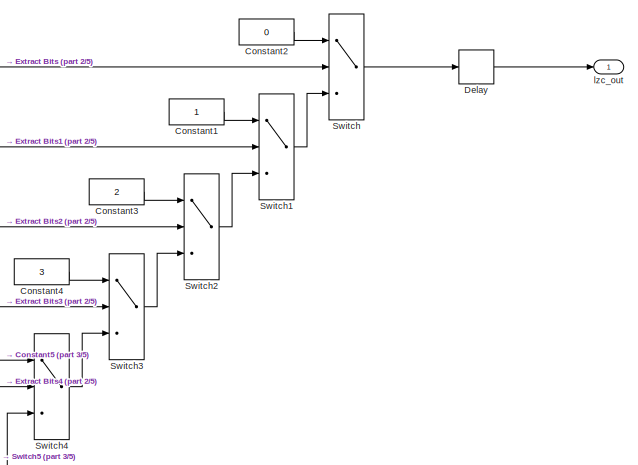
[diagram: recalculate/Nchan_FbankAGC_AID/Compression_2/Compression_Gain_Calc/LogAddressing/fxpt_lzc_W32/LZC32 - part 1/5, top right region]
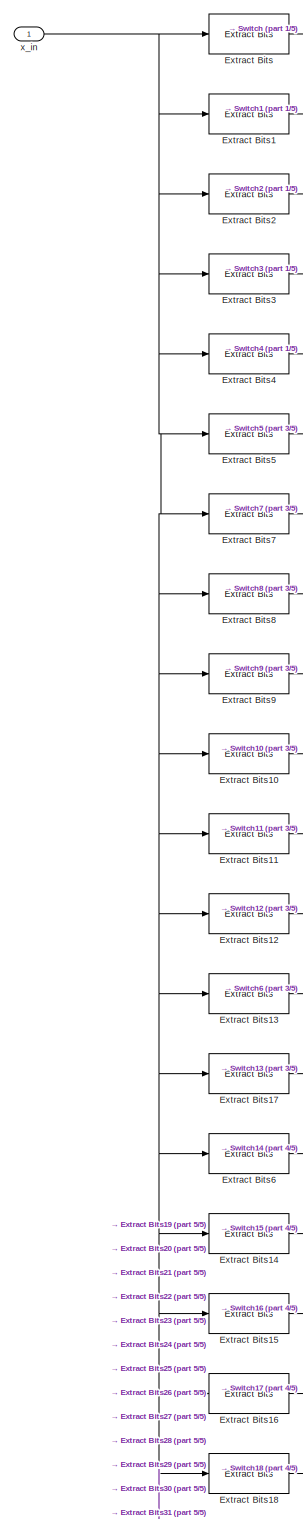
[diagram: recalculate/Nchan_FbankAGC_AID/Compression_2/Compression_Gain_Calc/LogAddressing/fxpt_lzc_W32/LZC32 - part 2/5, top left region]
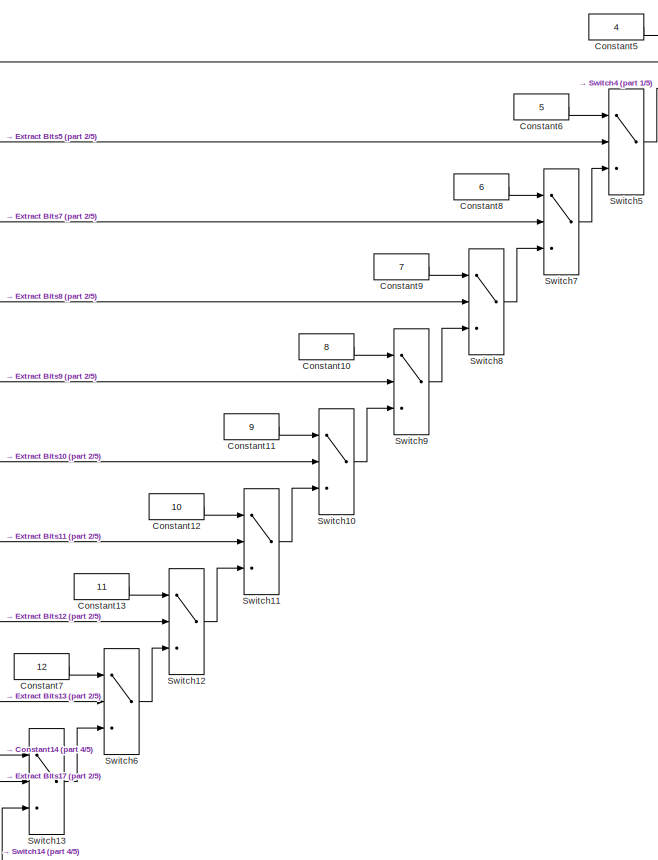
[diagram: recalculate/Nchan_FbankAGC_AID/Compression_2/Compression_Gain_Calc/LogAddressing/fxpt_lzc_W32/LZC32 - part 3/5, top right region]
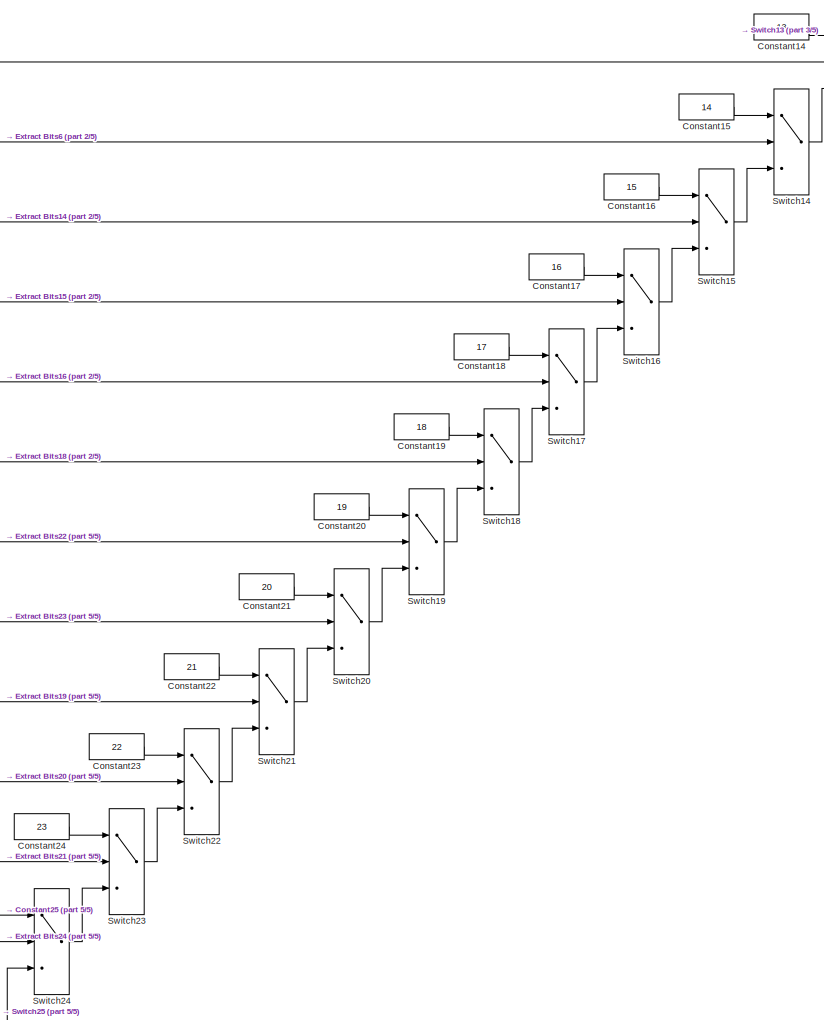
[diagram: recalculate/Nchan_FbankAGC_AID/Compression_2/Compression_Gain_Calc/LogAddressing/fxpt_lzc_W32/LZC32 - part 4/5, central region]
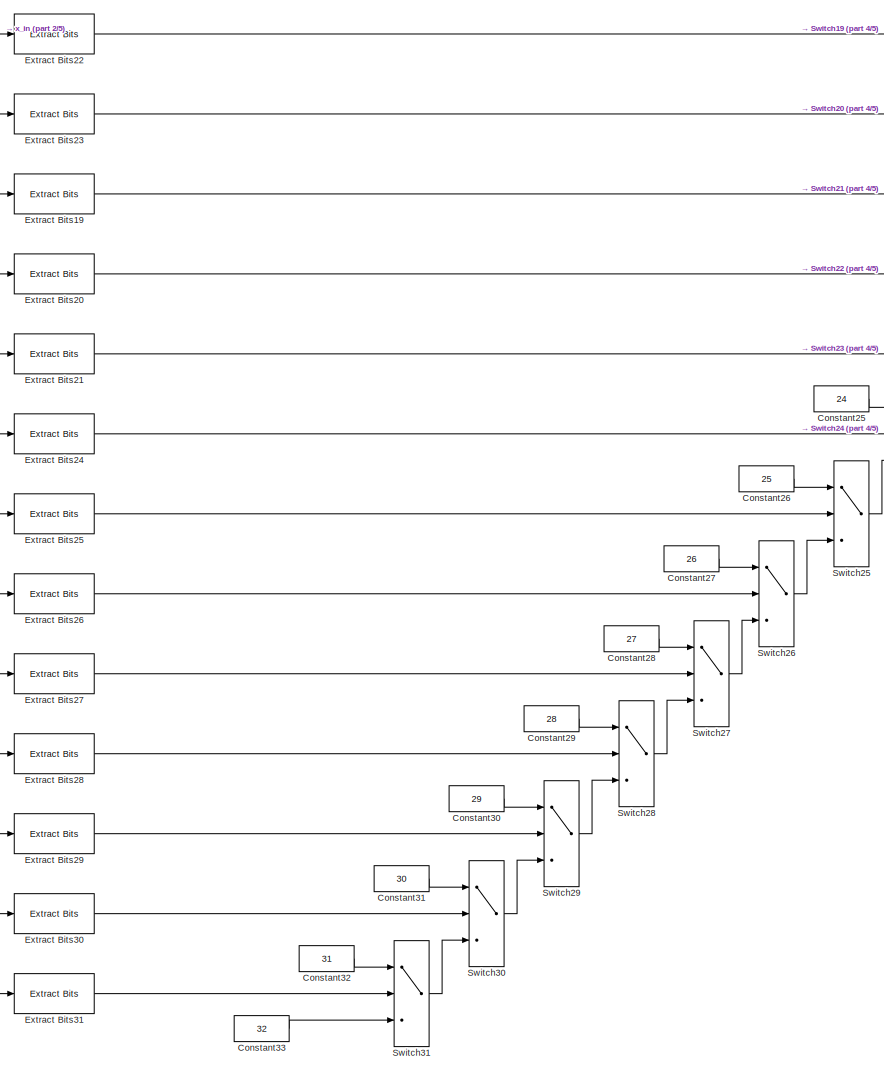
[diagram: recalculate/Nchan_FbankAGC_AID/Compression_2/Compression_Gain_Calc/LogAddressing/fxpt_lzc_W32/LZC32 - part 5/5, bottom left region]
BLOCK [SubSystem] recalculate/Nchan_FbankAGC_AID/Compression_2/Compression_Gain_Calc/LogAddressing/fxpt_lzc_W32/LZC32
  Ports = [1, 1]
  RequestExecContextInheritance = off
  TreatAsAtomicUnit = on
BLOCK [Constant] recalculate/Nchan_FbankAGC_AID/Compression_2/Compression_Gain_Calc/LogAddressing/fxpt_lzc_W32/LZC32/Constant1
  OutDataTypeStr = fixdt(0,6,0)
  SampleTime = Ts_system
BLOCK [Constant] recalculate/Nchan_FbankAGC_AID/Compression_2/Compression_Gain_Calc/LogAddressing/fxpt_lzc_W32/LZC32/Constant10
  OutDataTypeStr = fixdt(0,6,0)
  SampleTime = Ts_system
  Value = 8
BLOCK [Constant] recalculate/Nchan_FbankAGC_AID/Compression_2/Compression_Gain_Calc/LogAddressing/fxpt_lzc_W32/LZC32/Constant11
  OutDataTypeStr = fixdt(0,6,0)
  SampleTime = Ts_system
  Value = 9
BLOCK [Constant] recalculate/Nchan_FbankAGC_AID/Compression_2/Compression_Gain_Calc/LogAddressing/fxpt_lzc_W32/LZC32/Constant12
  OutDataTypeStr = fixdt(0,6,0)
  SampleTime = Ts_system
  Value = 10
BLOCK [Constant] recalculate/Nchan_FbankAGC_AID/Compression_2/Compression_Gain_Calc/LogAddressing/fxpt_lzc_W32/LZC32/Constant13
  OutDataTypeStr = fixdt(0,6,0)
  SampleTime = Ts_system
  Value = 11
BLOCK [Constant] recalculate/Nchan_FbankAGC_AID/Compression_2/Compression_Gain_Calc/LogAddressing/fxpt_lzc_W32/LZC32/Constant14
  OutDataTypeStr = fixdt(0,6,0)
  SampleTime = Ts_system
  Value = 13
BLOCK [Constant] recalculate/Nchan_FbankAGC_AID/Compression_2/Compression_Gain_Calc/LogAddressing/fxpt_lzc_W32/LZC32/Constant15
  OutDataTypeStr = fixdt(0,6,0)
  SampleTime = Ts_system
  Value = 14
BLOCK [Constant] recalculate/Nchan_FbankAGC_AID/Compression_2/Compression_Gain_Calc/LogAddressing/fxpt_lzc_W32/LZC32/Constant16
  OutDataTypeStr = fixdt(0,6,0)
  SampleTime = Ts_system
  Value = 15
BLOCK [Constant] recalculate/Nchan_FbankAGC_AID/Compression_2/Compression_Gain_Calc/LogAddressing/fxpt_lzc_W32/LZC32/Constant17
  OutDataTypeStr = fixdt(0,6,0)
  SampleTime = Ts_system
  Value = 16
BLOCK [Constant] recalculate/Nchan_FbankAGC_AID/Compression_2/Compression_Gain_Calc/LogAddressing/fxpt_lzc_W32/LZC32/Constant18
  OutDataTypeStr = fixdt(0,6,0)
  SampleTime = Ts_system
  Value = 17
BLOCK [Constant] recalculate/Nchan_FbankAGC_AID/Compression_2/Compression_Gain_Calc/LogAddressing/fxpt_lzc_W32/LZC32/Constant19
  OutDataTypeStr = fixdt(0,6,0)
  SampleTime = Ts_system
  Value = 18
BLOCK [Constant] recalculate/Nchan_FbankAGC_AID/Compression_2/Compression_Gain_Calc/LogAddressing/fxpt_lzc_W32/LZC32/Constant2
  OutDataTypeStr = fixdt(0,6,0)
  SampleTime = Ts_system
  Value = 0
BLOCK [Constant] recalculate/Nchan_FbankAGC_AID/Compression_2/Compression_Gain_Calc/LogAddressing/fxpt_lzc_W32/LZC32/Constant20
  OutDataTypeStr = fixdt(0,6,0)
  SampleTime = Ts_system
  Value = 19
BLOCK [Constant] recalculate/Nchan_FbankAGC_AID/Compression_2/Compression_Gain_Calc/LogAddressing/fxpt_lzc_W32/LZC32/Constant21
  OutDataTypeStr = fixdt(0,6,0)
  SampleTime = Ts_system
  Value = 20
BLOCK [Constant] recalculate/Nchan_FbankAGC_AID/Compression_2/Compression_Gain_Calc/LogAddressing/fxpt_lzc_W32/LZC32/Constant22
  OutDataTypeStr = fixdt(0,6,0)
  SampleTime = Ts_system
  Value = 21
BLOCK [Constant] recalculate/Nchan_FbankAGC_AID/Compression_2/Compression_Gain_Calc/LogAddressing/fxpt_lzc_W32/LZC32/Constant23
  OutDataTypeStr = fixdt(0,6,0)
  SampleTime = Ts_system
  Value = 22
BLOCK [Constant] recalculate/Nchan_FbankAGC_AID/Compression_2/Compression_Gain_Calc/LogAddressing/fxpt_lzc_W32/LZC32/Constant24
  OutDataTypeStr = fixdt(0,6,0)
  SampleTime = Ts_system
  Value = 23
BLOCK [Constant] recalculate/Nchan_FbankAGC_AID/Compression_2/Compression_Gain_Calc/LogAddressing/fxpt_lzc_W32/LZC32/Constant25
  OutDataTypeStr = fixdt(0,6,0)
  SampleTime = Ts_system
  Value = 24
BLOCK [Constant] recalculate/Nchan_FbankAGC_AID/Compression_2/Compression_Gain_Calc/LogAddressing/fxpt_lzc_W32/LZC32/Constant26
  OutDataTypeStr = fixdt(0,6,0)
  SampleTime = Ts_system
  Value = 25
BLOCK [Constant] recalculate/Nchan_FbankAGC_AID/Compression_2/Compression_Gain_Calc/LogAddressing/fxpt_lzc_W32/LZC32/Constant27
  OutDataTypeStr = fixdt(0,6,0)
  SampleTime = Ts_system
  Value = 26
BLOCK [Constant] recalculate/Nchan_FbankAGC_AID/Compression_2/Compression_Gain_Calc/LogAddressing/fxpt_lzc_W32/LZC32/Constant28
  OutDataTypeStr = fixdt(0,6,0)
  SampleTime = Ts_system
  Value = 27
BLOCK [Constant] recalculate/Nchan_FbankAGC_AID/Compression_2/Compression_Gain_Calc/LogAddressing/fxpt_lzc_W32/LZC32/Constant29
  OutDataTypeStr = fixdt(0,6,0)
  SampleTime = Ts_system
  Value = 28
BLOCK [Constant] recalculate/Nchan_FbankAGC_AID/Compression_2/Compression_Gain_Calc/LogAddressing/fxpt_lzc_W32/LZC32/Constant3
  OutDataTypeStr = fixdt(0,6,0)
  SampleTime = Ts_system
  Value = 2
BLOCK [Constant] recalculate/Nchan_FbankAGC_AID/Compression_2/Compression_Gain_Calc/LogAddressing/fxpt_lzc_W32/LZC32/Constant30
  OutDataTypeStr = fixdt(0,6,0)
  SampleTime = Ts_system
  Value = 29
BLOCK [Constant] recalculate/Nchan_FbankAGC_AID/Compression_2/Compression_Gain_Calc/LogAddressing/fxpt_lzc_W32/LZC32/Constant31
  OutDataTypeStr = fixdt(0,6,0)
  SampleTime = Ts_system
  Value = 30
BLOCK [Constant] recalculate/Nchan_FbankAGC_AID/Compression_2/Compression_Gain_Calc/LogAddressing/fxpt_lzc_W32/LZC32/Constant32
  OutDataTypeStr = fixdt(0,6,0)
  SampleTime = Ts_system
  Value = 31
BLOCK [Constant] recalculate/Nchan_FbankAGC_AID/Compression_2/Compression_Gain_Calc/LogAddressing/fxpt_lzc_W32/LZC32/Constant33
  OutDataTypeStr = fixdt(0,6,0)
  SampleTime = Ts_system
  Value = 32
BLOCK [Constant] recalculate/Nchan_FbankAGC_AID/Compression_2/Compression_Gain_Calc/LogAddressing/fxpt_lzc_W32/LZC32/Constant4
  OutDataTypeStr = fixdt(0,6,0)
  SampleTime = Ts_system
  Value = 3
BLOCK [Constant] recalculate/Nchan_FbankAGC_AID/Compression_2/Compression_Gain_Calc/LogAddressing/fxpt_lzc_W32/LZC32/Constant5
  OutDataTypeStr = fixdt(0,6,0)
  SampleTime = Ts_system
  Value = 4
BLOCK [Constant] recalculate/Nchan_FbankAGC_AID/Compression_2/Compression_Gain_Calc/LogAddressing/fxpt_lzc_W32/LZC32/Constant6
  OutDataTypeStr = fixdt(0,6,0)
  SampleTime = Ts_system
  Value = 5
BLOCK [Constant] recalculate/Nchan_FbankAGC_AID/Compression_2/Compression_Gain_Calc/LogAddressing/fxpt_lzc_W32/LZC32/Constant7
  OutDataTypeStr = fixdt(0,6,0)
  SampleTime = Ts_system
  Value = 12
BLOCK [Constant] recalculate/Nchan_FbankAGC_AID/Compression_2/Compression_Gain_Calc/LogAddressing/fxpt_lzc_W32/LZC32/Constant8
  OutDataTypeStr = fixdt(0,6,0)
  SampleTime = Ts_system
  Value = 6
BLOCK [Constant] recalculate/Nchan_FbankAGC_AID/Compression_2/Compression_Gain_Calc/LogAddressing/fxpt_lzc_W32/LZC32/Constant9
  OutDataTypeStr = fixdt(0,6,0)
  SampleTime = Ts_system
  Value = 7
BLOCK [Delay] recalculate/Nchan_FbankAGC_AID/Compression_2/Compression_Gain_Calc/LogAddressing/fxpt_lzc_W32/LZC32/Delay
  DelayLength = 1
  InitialCondition = 3
  InputPortMap = u0
  Ports = [1, 1]
  SampleTime = Ts_system
BLOCK [Reference] recalculate/Nchan_FbankAGC_AID/Compression_2/Compression_Gain_Calc/LogAddressing/fxpt_lzc_W32/LZC32/Extract Bits  REF=simulink/Logic and Bit
Operations/Extract Bits
  Ports = [1, 1]
  SourceBlock = simulink/Logic and Bit\nOperations/Extract Bits
  SourceProductBaseCode = SL
  SourceProductName = Simulink
  SourceType = Extract Bits
BLOCK [Reference] recalculate/Nchan_FbankAGC_AID/Compression_2/Compression_Gain_Calc/LogAddressing/fxpt_lzc_W32/LZC32/Extract Bits1  REF=simulink/Logic and Bit
Operations/Extract Bits
  Ports = [1, 1]
  SourceBlock = simulink/Logic and Bit\nOperations/Extract Bits
  SourceProductBaseCode = SL
  SourceProductName = Simulink
  SourceType = Extract Bits
BLOCK [Reference] recalculate/Nchan_FbankAGC_AID/Compression_2/Compression_Gain_Calc/LogAddressing/fxpt_lzc_W32/LZC32/Extract Bits10  REF=simulink/Logic and Bit
Operations/Extract Bits
  Ports = [1, 1]
  SourceBlock = simulink/Logic and Bit\nOperations/Extract Bits
  SourceProductBaseCode = SL
  SourceProductName = Simulink
  SourceType = Extract Bits
BLOCK [Reference] recalculate/Nchan_FbankAGC_AID/Compression_2/Compression_Gain_Calc/LogAddressing/fxpt_lzc_W32/LZC32/Extract Bits11  REF=simulink/Logic and Bit
Operations/Extract Bits
  Ports = [1, 1]
  SourceBlock = simulink/Logic and Bit\nOperations/Extract Bits
  SourceProductBaseCode = SL
  SourceProductName = Simulink
  SourceType = Extract Bits
BLOCK [Reference] recalculate/Nchan_FbankAGC_AID/Compression_2/Compression_Gain_Calc/LogAddressing/fxpt_lzc_W32/LZC32/Extract Bits12  REF=simulink/Logic and Bit
Operations/Extract Bits
  Ports = [1, 1]
  SourceBlock = simulink/Logic and Bit\nOperations/Extract Bits
  SourceProductBaseCode = SL
  SourceProductName = Simulink
  SourceType = Extract Bits
BLOCK [Reference] recalculate/Nchan_FbankAGC_AID/Compression_2/Compression_Gain_Calc/LogAddressing/fxpt_lzc_W32/LZC32/Extract Bits13  REF=simulink/Logic and Bit
Operations/Extract Bits
  Ports = [1, 1]
  SourceBlock = simulink/Logic and Bit\nOperations/Extract Bits
  SourceProductBaseCode = SL
  SourceProductName = Simulink
  SourceType = Extract Bits
BLOCK [Reference] recalculate/Nchan_FbankAGC_AID/Compression_2/Compression_Gain_Calc/LogAddressing/fxpt_lzc_W32/LZC32/Extract Bits14  REF=simulink/Logic and Bit
Operations/Extract Bits
  Ports = [1, 1]
  SourceBlock = simulink/Logic and Bit\nOperations/Extract Bits
  SourceProductBaseCode = SL
  SourceProductName = Simulink
  SourceType = Extract Bits
BLOCK [Reference] recalculate/Nchan_FbankAGC_AID/Compression_2/Compression_Gain_Calc/LogAddressing/fxpt_lzc_W32/LZC32/Extract Bits15  REF=simulink/Logic and Bit
Operations/Extract Bits
  Ports = [1, 1]
  SourceBlock = simulink/Logic and Bit\nOperations/Extract Bits
  SourceProductBaseCode = SL
  SourceProductName = Simulink
  SourceType = Extract Bits
BLOCK [Reference] recalculate/Nchan_FbankAGC_AID/Compression_2/Compression_Gain_Calc/LogAddressing/fxpt_lzc_W32/LZC32/Extract Bits16  REF=simulink/Logic and Bit
Operations/Extract Bits
  Ports = [1, 1]
  SourceBlock = simulink/Logic and Bit\nOperations/Extract Bits
  SourceProductBaseCode = SL
  SourceProductName = Simulink
  SourceType = Extract Bits
BLOCK [Reference] recalculate/Nchan_FbankAGC_AID/Compression_2/Compression_Gain_Calc/LogAddressing/fxpt_lzc_W32/LZC32/Extract Bits17  REF=simulink/Logic and Bit
Operations/Extract Bits
  Ports = [1, 1]
  SourceBlock = simulink/Logic and Bit\nOperations/Extract Bits
  SourceProductBaseCode = SL
  SourceProductName = Simulink
  SourceType = Extract Bits
BLOCK [Reference] recalculate/Nchan_FbankAGC_AID/Compression_2/Compression_Gain_Calc/LogAddressing/fxpt_lzc_W32/LZC32/Extract Bits18  REF=simulink/Logic and Bit
Operations/Extract Bits
  Ports = [1, 1]
  SourceBlock = simulink/Logic and Bit\nOperations/Extract Bits
  SourceProductBaseCode = SL
  SourceProductName = Simulink
  SourceType = Extract Bits
BLOCK [Reference] recalculate/Nchan_FbankAGC_AID/Compression_2/Compression_Gain_Calc/LogAddressing/fxpt_lzc_W32/LZC32/Extract Bits19  REF=simulink/Logic and Bit
Operations/Extract Bits
  Ports = [1, 1]
  SourceBlock = simulink/Logic and Bit\nOperations/Extract Bits
  SourceProductBaseCode = SL
  SourceProductName = Simulink
  SourceType = Extract Bits
BLOCK [Reference] recalculate/Nchan_FbankAGC_AID/Compression_2/Compression_Gain_Calc/LogAddressing/fxpt_lzc_W32/LZC32/Extract Bits2  REF=simulink/Logic and Bit
Operations/Extract Bits
  Ports = [1, 1]
  SourceBlock = simulink/Logic and Bit\nOperations/Extract Bits
  SourceProductBaseCode = SL
  SourceProductName = Simulink
  SourceType = Extract Bits
BLOCK [Reference] recalculate/Nchan_FbankAGC_AID/Compression_2/Compression_Gain_Calc/LogAddressing/fxpt_lzc_W32/LZC32/Extract Bits20  REF=simulink/Logic and Bit
Operations/Extract Bits
  Ports = [1, 1]
  SourceBlock = simulink/Logic and Bit\nOperations/Extract Bits
  SourceProductBaseCode = SL
  SourceProductName = Simulink
  SourceType = Extract Bits
BLOCK [Reference] recalculate/Nchan_FbankAGC_AID/Compression_2/Compression_Gain_Calc/LogAddressing/fxpt_lzc_W32/LZC32/Extract Bits21  REF=simulink/Logic and Bit
Operations/Extract Bits
  Ports = [1, 1]
  SourceBlock = simulink/Logic and Bit\nOperations/Extract Bits
  SourceProductBaseCode = SL
  SourceProductName = Simulink
  SourceType = Extract Bits
BLOCK [Reference] recalculate/Nchan_FbankAGC_AID/Compression_2/Compression_Gain_Calc/LogAddressing/fxpt_lzc_W32/LZC32/Extract Bits22  REF=simulink/Logic and Bit
Operations/Extract Bits
  Ports = [1, 1]
  SourceBlock = simulink/Logic and Bit\nOperations/Extract Bits
  SourceProductBaseCode = SL
  SourceProductName = Simulink
  SourceType = Extract Bits
BLOCK [Reference] recalculate/Nchan_FbankAGC_AID/Compression_2/Compression_Gain_Calc/LogAddressing/fxpt_lzc_W32/LZC32/Extract Bits23  REF=simulink/Logic and Bit
Operations/Extract Bits
  Ports = [1, 1]
  SourceBlock = simulink/Logic and Bit\nOperations/Extract Bits
  SourceProductBaseCode = SL
  SourceProductName = Simulink
  SourceType = Extract Bits
BLOCK [Reference] recalculate/Nchan_FbankAGC_AID/Compression_2/Compression_Gain_Calc/LogAddressing/fxpt_lzc_W32/LZC32/Extract Bits24  REF=simulink/Logic and Bit
Operations/Extract Bits
  Ports = [1, 1]
  SourceBlock = simulink/Logic and Bit\nOperations/Extract Bits
  SourceProductBaseCode = SL
  SourceProductName = Simulink
  SourceType = Extract Bits
BLOCK [Reference] recalculate/Nchan_FbankAGC_AID/Compression_2/Compression_Gain_Calc/LogAddressing/fxpt_lzc_W32/LZC32/Extract Bits25  REF=simulink/Logic and Bit
Operations/Extract Bits
  Ports = [1, 1]
  SourceBlock = simulink/Logic and Bit\nOperations/Extract Bits
  SourceProductBaseCode = SL
  SourceProductName = Simulink
  SourceType = Extract Bits
BLOCK [Reference] recalculate/Nchan_FbankAGC_AID/Compression_2/Compression_Gain_Calc/LogAddressing/fxpt_lzc_W32/LZC32/Extract Bits26  REF=simulink/Logic and Bit
Operations/Extract Bits
  Ports = [1, 1]
  SourceBlock = simulink/Logic and Bit\nOperations/Extract Bits
  SourceProductBaseCode = SL
  SourceProductName = Simulink
  SourceType = Extract Bits
BLOCK [Reference] recalculate/Nchan_FbankAGC_AID/Compression_2/Compression_Gain_Calc/LogAddressing/fxpt_lzc_W32/LZC32/Extract Bits27  REF=simulink/Logic and Bit
Operations/Extract Bits
  Ports = [1, 1]
  SourceBlock = simulink/Logic and Bit\nOperations/Extract Bits
  SourceProductBaseCode = SL
  SourceProductName = Simulink
  SourceType = Extract Bits
BLOCK [Reference] recalculate/Nchan_FbankAGC_AID/Compression_2/Compression_Gain_Calc/LogAddressing/fxpt_lzc_W32/LZC32/Extract Bits28  REF=simulink/Logic and Bit
Operations/Extract Bits
  Ports = [1, 1]
  SourceBlock = simulink/Logic and Bit\nOperations/Extract Bits
  SourceProductBaseCode = SL
  SourceProductName = Simulink
  SourceType = Extract Bits
BLOCK [Reference] recalculate/Nchan_FbankAGC_AID/Compression_2/Compression_Gain_Calc/LogAddressing/fxpt_lzc_W32/LZC32/Extract Bits29  REF=simulink/Logic and Bit
Operations/Extract Bits
  Ports = [1, 1]
  SourceBlock = simulink/Logic and Bit\nOperations/Extract Bits
  SourceProductBaseCode = SL
  SourceProductName = Simulink
  SourceType = Extract Bits
BLOCK [Reference] recalculate/Nchan_FbankAGC_AID/Compression_2/Compression_Gain_Calc/LogAddressing/fxpt_lzc_W32/LZC32/Extract Bits3  REF=simulink/Logic and Bit
Operations/Extract Bits
  Ports = [1, 1]
  SourceBlock = simulink/Logic and Bit\nOperations/Extract Bits
  SourceProductBaseCode = SL
  SourceProductName = Simulink
  SourceType = Extract Bits
BLOCK [Reference] recalculate/Nchan_FbankAGC_AID/Compression_2/Compression_Gain_Calc/LogAddressing/fxpt_lzc_W32/LZC32/Extract Bits30  REF=simulink/Logic and Bit
Operations/Extract Bits
  Ports = [1, 1]
  SourceBlock = simulink/Logic and Bit\nOperations/Extract Bits
  SourceProductBaseCode = SL
  SourceProductName = Simulink
  SourceType = Extract Bits
BLOCK [Reference] recalculate/Nchan_FbankAGC_AID/Compression_2/Compression_Gain_Calc/LogAddressing/fxpt_lzc_W32/LZC32/Extract Bits31  REF=simulink/Logic and Bit
Operations/Extract Bits
  Ports = [1, 1]
  SourceBlock = simulink/Logic and Bit\nOperations/Extract Bits
  SourceProductBaseCode = SL
  SourceProductName = Simulink
  SourceType = Extract Bits
BLOCK [Reference] recalculate/Nchan_FbankAGC_AID/Compression_2/Compression_Gain_Calc/LogAddressing/fxpt_lzc_W32/LZC32/Extract Bits4  REF=simulink/Logic and Bit
Operations/Extract Bits
  Ports = [1, 1]
  SourceBlock = simulink/Logic and Bit\nOperations/Extract Bits
  SourceProductBaseCode = SL
  SourceProductName = Simulink
  SourceType = Extract Bits
BLOCK [Reference] recalculate/Nchan_FbankAGC_AID/Compression_2/Compression_Gain_Calc/LogAddressing/fxpt_lzc_W32/LZC32/Extract Bits5  REF=simulink/Logic and Bit
Operations/Extract Bits
  Ports = [1, 1]
  SourceBlock = simulink/Logic and Bit\nOperations/Extract Bits
  SourceProductBaseCode = SL
  SourceProductName = Simulink
  SourceType = Extract Bits
BLOCK [Reference] recalculate/Nchan_FbankAGC_AID/Compression_2/Compression_Gain_Calc/LogAddressing/fxpt_lzc_W32/LZC32/Extract Bits6  REF=simulink/Logic and Bit
Operations/Extract Bits
  Ports = [1, 1]
  SourceBlock = simulink/Logic and Bit\nOperations/Extract Bits
  SourceProductBaseCode = SL
  SourceProductName = Simulink
  SourceType = Extract Bits
BLOCK [Reference] recalculate/Nchan_FbankAGC_AID/Compression_2/Compression_Gain_Calc/LogAddressing/fxpt_lzc_W32/LZC32/Extract Bits7  REF=simulink/Logic and Bit
Operations/Extract Bits
  Ports = [1, 1]
  SourceBlock = simulink/Logic and Bit\nOperations/Extract Bits
  SourceProductBaseCode = SL
  SourceProductName = Simulink
  SourceType = Extract Bits
BLOCK [Reference] recalculate/Nchan_FbankAGC_AID/Compression_2/Compression_Gain_Calc/LogAddressing/fxpt_lzc_W32/LZC32/Extract Bits8  REF=simulink/Logic and Bit
Operations/Extract Bits
  Ports = [1, 1]
  SourceBlock = simulink/Logic and Bit\nOperations/Extract Bits
  SourceProductBaseCode = SL
  SourceProductName = Simulink
  SourceType = Extract Bits
BLOCK [Reference] recalculate/Nchan_FbankAGC_AID/Compression_2/Compression_Gain_Calc/LogAddressing/fxpt_lzc_W32/LZC32/Extract Bits9  REF=simulink/Logic and Bit
Operations/Extract Bits
  Ports = [1, 1]
  SourceBlock = simulink/Logic and Bit\nOperations/Extract Bits
  SourceProductBaseCode = SL
  SourceProductName = Simulink
  SourceType = Extract Bits
BLOCK [Switch] recalculate/Nchan_FbankAGC_AID/Compression_2/Compression_Gain_Calc/LogAddressing/fxpt_lzc_W32/LZC32/Switch
  Criteria = u2 ~= 0
  InputSameDT = off
  SaturateOnIntegerOverflow = off
BLOCK [Switch] recalculate/Nchan_FbankAGC_AID/Compression_2/Compression_Gain_Calc/LogAddressing/fxpt_lzc_W32/LZC32/Switch1
  Criteria = u2 ~= 0
  InputSameDT = off
  SaturateOnIntegerOverflow = off
BLOCK [Switch] recalculate/Nchan_FbankAGC_AID/Compression_2/Compression_Gain_Calc/LogAddressing/fxpt_lzc_W32/LZC32/Switch10
  Criteria = u2 ~= 0
  InputSameDT = off
  SaturateOnIntegerOverflow = off
BLOCK [Switch] recalculate/Nchan_FbankAGC_AID/Compression_2/Compression_Gain_Calc/LogAddressing/fxpt_lzc_W32/LZC32/Switch11
  Criteria = u2 ~= 0
  InputSameDT = off
  SaturateOnIntegerOverflow = off
BLOCK [Switch] recalculate/Nchan_FbankAGC_AID/Compression_2/Compression_Gain_Calc/LogAddressing/fxpt_lzc_W32/LZC32/Switch12
  Criteria = u2 ~= 0
  InputSameDT = off
  SaturateOnIntegerOverflow = off
BLOCK [Switch] recalculate/Nchan_FbankAGC_AID/Compression_2/Compression_Gain_Calc/LogAddressing/fxpt_lzc_W32/LZC32/Switch13
  Criteria = u2 ~= 0
  InputSameDT = off
  SaturateOnIntegerOverflow = off
BLOCK [Switch] recalculate/Nchan_FbankAGC_AID/Compression_2/Compression_Gain_Calc/LogAddressing/fxpt_lzc_W32/LZC32/Switch14
  Criteria = u2 ~= 0
  InputSameDT = off
  SaturateOnIntegerOverflow = off
BLOCK [Switch] recalculate/Nchan_FbankAGC_AID/Compression_2/Compression_Gain_Calc/LogAddressing/fxpt_lzc_W32/LZC32/Switch15
  Criteria = u2 ~= 0
  InputSameDT = off
  SaturateOnIntegerOverflow = off
BLOCK [Switch] recalculate/Nchan_FbankAGC_AID/Compression_2/Compression_Gain_Calc/LogAddressing/fxpt_lzc_W32/LZC32/Switch16
  Criteria = u2 ~= 0
  InputSameDT = off
  SaturateOnIntegerOverflow = off
BLOCK [Switch] recalculate/Nchan_FbankAGC_AID/Compression_2/Compression_Gain_Calc/LogAddressing/fxpt_lzc_W32/LZC32/Switch17
  Criteria = u2 ~= 0
  InputSameDT = off
  SaturateOnIntegerOverflow = off
BLOCK [Switch] recalculate/Nchan_FbankAGC_AID/Compression_2/Compression_Gain_Calc/LogAddressing/fxpt_lzc_W32/LZC32/Switch18
  Criteria = u2 ~= 0
  InputSameDT = off
  SaturateOnIntegerOverflow = off
BLOCK [Switch] recalculate/Nchan_FbankAGC_AID/Compression_2/Compression_Gain_Calc/LogAddressing/fxpt_lzc_W32/LZC32/Switch19
  Criteria = u2 ~= 0
  InputSameDT = off
  SaturateOnIntegerOverflow = off
BLOCK [Switch] recalculate/Nchan_FbankAGC_AID/Compression_2/Compression_Gain_Calc/LogAddressing/fxpt_lzc_W32/LZC32/Switch2
  Criteria = u2 ~= 0
  InputSameDT = off
  SaturateOnIntegerOverflow = off
BLOCK [Switch] recalculate/Nchan_FbankAGC_AID/Compression_2/Compression_Gain_Calc/LogAddressing/fxpt_lzc_W32/LZC32/Switch20
  Criteria = u2 ~= 0
  InputSameDT = off
  SaturateOnIntegerOverflow = off
BLOCK [Switch] recalculate/Nchan_FbankAGC_AID/Compression_2/Compression_Gain_Calc/LogAddressing/fxpt_lzc_W32/LZC32/Switch21
  Criteria = u2 ~= 0
  InputSameDT = off
  SaturateOnIntegerOverflow = off
BLOCK [Switch] recalculate/Nchan_FbankAGC_AID/Compression_2/Compression_Gain_Calc/LogAddressing/fxpt_lzc_W32/LZC32/Switch22
  Criteria = u2 ~= 0
  InputSameDT = off
  SaturateOnIntegerOverflow = off
BLOCK [Switch] recalculate/Nchan_FbankAGC_AID/Compression_2/Compression_Gain_Calc/LogAddressing/fxpt_lzc_W32/LZC32/Switch23
  Criteria = u2 ~= 0
  InputSameDT = off
  SaturateOnIntegerOverflow = off
BLOCK [Switch] recalculate/Nchan_FbankAGC_AID/Compression_2/Compression_Gain_Calc/LogAddressing/fxpt_lzc_W32/LZC32/Switch24
  Criteria = u2 ~= 0
  InputSameDT = off
  SaturateOnIntegerOverflow = off
BLOCK [Switch] recalculate/Nchan_FbankAGC_AID/Compression_2/Compression_Gain_Calc/LogAddressing/fxpt_lzc_W32/LZC32/Switch25
  Criteria = u2 ~= 0
  InputSameDT = off
  SaturateOnIntegerOverflow = off
BLOCK [Switch] recalculate/Nchan_FbankAGC_AID/Compression_2/Compression_Gain_Calc/LogAddressing/fxpt_lzc_W32/LZC32/Switch26
  Criteria = u2 ~= 0
  InputSameDT = off
  SaturateOnIntegerOverflow = off
BLOCK [Switch] recalculate/Nchan_FbankAGC_AID/Compression_2/Compression_Gain_Calc/LogAddressing/fxpt_lzc_W32/LZC32/Switch27
  Criteria = u2 ~= 0
  InputSameDT = off
  SaturateOnIntegerOverflow = off
BLOCK [Switch] recalculate/Nchan_FbankAGC_AID/Compression_2/Compression_Gain_Calc/LogAddressing/fxpt_lzc_W32/LZC32/Switch28
  Criteria = u2 ~= 0
  InputSameDT = off
  SaturateOnIntegerOverflow = off
BLOCK [Switch] recalculate/Nchan_FbankAGC_AID/Compression_2/Compression_Gain_Calc/LogAddressing/fxpt_lzc_W32/LZC32/Switch29
  Criteria = u2 ~= 0
  InputSameDT = off
  SaturateOnIntegerOverflow = off
BLOCK [Switch] recalculate/Nchan_FbankAGC_AID/Compression_2/Compression_Gain_Calc/LogAddressing/fxpt_lzc_W32/LZC32/Switch3
  Criteria = u2 ~= 0
  InputSameDT = off
  SaturateOnIntegerOverflow = off
BLOCK [Switch] recalculate/Nchan_FbankAGC_AID/Compression_2/Compression_Gain_Calc/LogAddressing/fxpt_lzc_W32/LZC32/Switch30
  Criteria = u2 ~= 0
  InputSameDT = off
  SaturateOnIntegerOverflow = off
BLOCK [Switch] recalculate/Nchan_FbankAGC_AID/Compression_2/Compression_Gain_Calc/LogAddressing/fxpt_lzc_W32/LZC32/Switch31
  Criteria = u2 ~= 0
  InputSameDT = off
  SaturateOnIntegerOverflow = off
BLOCK [Switch] recalculate/Nchan_FbankAGC_AID/Compression_2/Compression_Gain_Calc/LogAddressing/fxpt_lzc_W32/LZC32/Switch4
  Criteria = u2 ~= 0
  InputSameDT = off
  SaturateOnIntegerOverflow = off
BLOCK [Switch] recalculate/Nchan_FbankAGC_AID/Compression_2/Compression_Gain_Calc/LogAddressing/fxpt_lzc_W32/LZC32/Switch5
  Criteria = u2 ~= 0
  InputSameDT = off
  SaturateOnIntegerOverflow = off
BLOCK [Switch] recalculate/Nchan_FbankAGC_AID/Compression_2/Compression_Gain_Calc/LogAddressing/fxpt_lzc_W32/LZC32/Switch6
  Criteria = u2 ~= 0
  InputSameDT = off
  SaturateOnIntegerOverflow = off
BLOCK [Switch] recalculate/Nchan_FbankAGC_AID/Compression_2/Compression_Gain_Calc/LogAddressing/fxpt_lzc_W32/LZC32/Switch7
  Criteria = u2 ~= 0
  InputSameDT = off
  SaturateOnIntegerOverflow = off
BLOCK [Switch] recalculate/Nchan_FbankAGC_AID/Compression_2/Compression_Gain_Calc/LogAddressing/fxpt_lzc_W32/LZC32/Switch8
  Criteria = u2 ~= 0
  InputSameDT = off
  SaturateOnIntegerOverflow = off
BLOCK [Switch] recalculate/Nchan_FbankAGC_AID/Compression_2/Compression_Gain_Calc/LogAddressing/fxpt_lzc_W32/LZC32/Switch9
  Criteria = u2 ~= 0
  InputSameDT = off
  SaturateOnIntegerOverflow = off
BLOCK [Outport] recalculate/Nchan_FbankAGC_AID/Compression_2/Compression_Gain_Calc/LogAddressing/fxpt_lzc_W32/LZC32/lzc_out
  IconDisplay = Port number
BLOCK [Inport] recalculate/Nchan_FbankAGC_AID/Compression_2/Compression_Gain_Calc/LogAddressing/fxpt_lzc_W32/LZC32/x_in
  IconDisplay = Port number
BLOCK [Outport] recalculate/Nchan_FbankAGC_AID/Compression_2/Compression_Gain_Calc/LogAddressing/fxpt_lzc_W32/lzc_out
  IconDisplay = Port number
BLOCK [Inport] recalculate/Nchan_FbankAGC_AID/Compression_2/Compression_Gain_Calc/LogAddressing/fxpt_lzc_W32/x_in
  IconDisplay = Port number
BLOCK [Inport] recalculate/Nchan_FbankAGC_AID/Compression_2/Compression_Gain_Calc/LogAddressing/x_in
  IconDisplay = Port number
  OutDataTypeStr = fixdt(1, 32, 28)
  PortDimensions = 1
  SampleTime = 2.08333333333333e-05
BLOCK [SubSystem] recalculate/Nchan_FbankAGC_AID/Compression_2/Compression_Gain_Calc/Low_Gain_Table
  Ports = [4, 1]
  RequestExecContextInheritance = off
BLOCK [DataTypeConversion] recalculate/Nchan_FbankAGC_AID/Compression_2/Compression_Gain_Calc/Low_Gain_Table/Data Type Conversion
  OutDataTypeStr = fixdt(0,16,0)
  RndMeth = Floor
  SaturateOnIntegerOverflow = off
BLOCK [DataTypeConversion] recalculate/Nchan_FbankAGC_AID/Compression_2/Compression_Gain_Calc/Low_Gain_Table/Data Type Conversion1
  OutDataTypeStr = fixdt(0,16,0)
  RndMeth = Floor
  SaturateOnIntegerOverflow = off
BLOCK [SignalSpecification] recalculate/Nchan_FbankAGC_AID/Compression_2/Compression_Gain_Calc/Low_Gain_Table/Signal Specification
  Dimensions = 1
  OutDataTypeStr = fixdt(0,ram_size,0)
BLOCK [SignalSpecification] recalculate/Nchan_FbankAGC_AID/Compression_2/Compression_Gain_Calc/Low_Gain_Table/Signal Specification1
  Dimensions = 1
  OutDataTypeStr = fixdt(0,ram_size,0)
BLOCK [UnitDelay] recalculate/Nchan_FbankAGC_AID/Compression_2/Compression_Gain_Calc/Low_Gain_Table/ram
  HasFrameUpgradeWarning = on
  InitialCondition = Table_Fill(2^(M_bits+4)+1   : 2*2^(M_bits+4) )
  SampleTime = -1
BLOCK [UnitDelay] recalculate/Nchan_FbankAGC_AID/Compression_2/Compression_Gain_Calc/Low_Gain_Table/ram_data
  HasFrameUpgradeWarning = on
  SampleTime = -1
BLOCK [Inport] recalculate/Nchan_FbankAGC_AID/Compression_2/Compression_Gain_Calc/Low_Gain_Table/rd_addr
  IconDisplay = Port number
  OutDataTypeStr = fixdt(0, 9, 0)
  Port = 4
  PortDimensions = 1
  SampleTime = 2.08333333333333e-05
BLOCK [Outport] recalculate/Nchan_FbankAGC_AID/Compression_2/Compression_Gain_Calc/Low_Gain_Table/rd_dout
  IconDisplay = Port number
BLOCK [Selector] recalculate/Nchan_FbankAGC_AID/Compression_2/Compression_Gain_Calc/Low_Gain_Table/select
  IndexMode = Zero-based
  IndexOptions = Index vector (port)
  Indices = [1 3]
  InputPortWidth = 2^ram_size
  OutputSizes = 1
  Ports = [2, 1]
BLOCK [Switch] recalculate/Nchan_FbankAGC_AID/Compression_2/Compression_Gain_Calc/Low_Gain_Table/switch
  Criteria = u2 ~= 0
  InputSameDT = off
  SaturateOnIntegerOverflow = off
BLOCK [Inport] recalculate/Nchan_FbankAGC_AID/Compression_2/Compression_Gain_Calc/Low_Gain_Table/wr_addr
  IconDisplay = Port number
  OutDataTypeStr = fixdt(0, 9, 0)
  Port = 2
  PortDimensions = 1
  SampleTime = 2.08333333333333e-05
BLOCK [Inport] recalculate/Nchan_FbankAGC_AID/Compression_2/Compression_Gain_Calc/Low_Gain_Table/wr_din
  IconDisplay = Port number
  OutDataTypeStr = fixdt(1, 32, 28)
  PortDimensions = 1
  SampleTime = 2.08333333333333e-05
BLOCK [Inport] recalculate/Nchan_FbankAGC_AID/Compression_2/Compression_Gain_Calc/Low_Gain_Table/wr_en
  IconDisplay = Port number
  OutDataTypeStr = boolean
  Port = 3
  PortDimensions = 1
  SampleTime = 2.08333333333333e-05
BLOCK [Assignment] recalculate/Nchan_FbankAGC_AID/Compression_2/Compression_Gain_Calc/Low_Gain_Table/wr_port
  IndexMode = Zero-based
  IndexOptions = Index vector (port)
  Indices = 1
  OutputSizes = [1 1]
  Ports = [3, 1]
BLOCK [Sum] recalculate/Nchan_FbankAGC_AID/Compression_2/Compression_Gain_Calc/Subtract
  InputSameDT = off
  Ports = [2, 1]
  SaturateOnIntegerOverflow = off
BLOCK [Inport] recalculate/Nchan_FbankAGC_AID/Compression_2/Compression_Gain_Calc/Table_Fill
  IconDisplay = Port number
  OutDataTypeStr = fixdt(1, 32, 28)
  PortDimensions = 1
  SampleTime = 2.08333333333333e-05
BLOCK [Inport] recalculate/Nchan_FbankAGC_AID/Compression_2/Compression_Gain_Calc/Table_Fill_Valid
  IconDisplay = Port number
  OutDataTypeStr = boolean
  Port = 3
  PortDimensions = 1
  SampleTime = 2.08333333333333e-05
BLOCK [UnitDelay] recalculate/Nchan_FbankAGC_AID/Compression_2/Compression_Gain_Calc/Unit Delay1
  HasFrameUpgradeWarning = on
  InitialCondition = 1
  SampleTime = -1
BLOCK [UnitDelay] recalculate/Nchan_FbankAGC_AID/Compression_2/Compression_Gain_Calc/Unit Delay2
  HasFrameUpgradeWarning = on
  InitialCondition = 1
  SampleTime = -1
BLOCK [UnitDelay] recalculate/Nchan_FbankAGC_AID/Compression_2/Compression_Gain_Calc/Unit Delay3
  HasFrameUpgradeWarning = on
  InitialCondition = 1
  SampleTime = -1
BLOCK [Inport] recalculate/Nchan_FbankAGC_AID/Compression_2/Compression_Gain_Calc/Write_Addr
  IconDisplay = Port number
  OutDataTypeStr = fixdt(0, 9, 0)
  Port = 2
  PortDimensions = 1
  SampleTime = 2.08333333333333e-05
BLOCK [Constant] recalculate/Nchan_FbankAGC_AID/Compression_2/Constant
  OutDataTypeStr = fixdt(1,W_bits,F_bits)
  SampleTime = -1
  Value = 0
BLOCK [DataTypeConversion] recalculate/Nchan_FbankAGC_AID/Compression_2/Data Type Conversion1
  OutDataTypeStr = fixdt(1,W_bits,F_bits)
  RndMeth = Floor
  SaturateOnIntegerOverflow = off
BLOCK [Delay] recalculate/Nchan_FbankAGC_AID/Compression_2/Delay
  DelayLength = 3
  InputPortMap = u0
  Ports = [1, 1]
BLOCK [Product] recalculate/Nchan_FbankAGC_AID/Compression_2/Product
  InputSameDT = off
  OutDataTypeStr = Inherit: Inherit via internal rule
  Ports = [2, 1]
  RndMeth = Floor
  SaturateOnIntegerOverflow = off
BLOCK [Inport] recalculate/Nchan_FbankAGC_AID/Compression_2/Sig_Band_1
  IconDisplay = Port number
  OutDataTypeStr = fixdt(1, 32, 28)
  PortDimensions = 1
  SampleTime = 2.08333333333333e-05
BLOCK [Outport] recalculate/Nchan_FbankAGC_AID/Compression_2/Sig_out
  IconDisplay = Port number
BLOCK [Switch] recalculate/Nchan_FbankAGC_AID/Compression_2/Switch
  Criteria = u2 > Threshold
  InputSameDT = off
  SaturateOnIntegerOverflow = off
  Threshold = 4
  ZeroCross = off
BLOCK [Inport] recalculate/Nchan_FbankAGC_AID/Compression_2/Table_In
  IconDisplay = Port number
  OutDataTypeStr = fixdt(1, 32, 28)
  Port = 2
  PortDimensions = 1
  SampleTime = 2.08333333333333e-05
BLOCK [Inport] recalculate/Nchan_FbankAGC_AID/Compression_2/Table_Sel
  IconDisplay = Port number
  OutDataTypeStr = fixdt(0, 3, 0)
  Port = 3
  PortDimensions = 1
  SampleTime = 2.08333333333333e-05
BLOCK [UnitDelay] recalculate/Nchan_FbankAGC_AID/Compression_2/Unit Delay
  HasFrameUpgradeWarning = on
  InitialCondition = 1
  SampleTime = -1
BLOCK [Inport] recalculate/Nchan_FbankAGC_AID/Compression_2/Write_Addr
  IconDisplay = Port number
  OutDataTypeStr = fixdt(0, 9, 0)
  Port = 4
  PortDimensions = 1
  SampleTime = 2.08333333333333e-05
BLOCK [SubSystem] recalculate/Nchan_FbankAGC_AID/Compression_3
  Ports = [4, 1]
  RequestExecContextInheritance = off
BLOCK [Reference] recalculate/Nchan_FbankAGC_AID/Compression_3/Compare To Constant  REF=simulink/Logic and Bit
Operations/Compare
To Constant
  Ports = [1, 1]
  SourceBlock = simulink/Logic and Bit\nOperations/Compare\nTo Constant
  SourceProductBaseCode = SL
  SourceProductName = Simulink
  SourceType = Compare To Constant
BLOCK [SubSystem] recalculate/Nchan_FbankAGC_AID/Compression_3/Compression_Envelope
  Ports = [2, 1]
  RequestExecContextInheritance = off
BLOCK [SubSystem] recalculate/Nchan_FbankAGC_AID/Compression_3/Compression_Envelope/Attack_Envelope
  Ports = [2, 1, 1]
  RequestExecContextInheritance = off
BLOCK [Inport] recalculate/Nchan_FbankAGC_AID/Compression_3/Compression_Envelope/Attack_Envelope/Curr
  IconDisplay = Port number
  OutDataTypeStr = fixdt(1, 32, 28)
  PortDimensions = 1
  SampleTime = 2.08333333333333e-05
BLOCK [Inport] recalculate/Nchan_FbankAGC_AID/Compression_3/Compression_Envelope/Attack_Envelope/Desired
  IconDisplay = Port number
  OutDataTypeStr = fixdt(1, 32, 28)
  Port = 2
  PortDimensions = 1
  SampleTime = 2.08333333333333e-05
BLOCK [EnablePort] recalculate/Nchan_FbankAGC_AID/Compression_3/Compression_Envelope/Attack_Envelope/Enable
  OutDataTypeStr = boolean
  Ports = []
BLOCK [Outport] recalculate/Nchan_FbankAGC_AID/Compression_3/Compression_Envelope/Attack_Envelope/Gain_out
  IconDisplay = Port number
  InitialOutput = 0
BLOCK [Product] recalculate/Nchan_FbankAGC_AID/Compression_3/Compression_Envelope/Attack_Envelope/Product
  InputSameDT = off
  Ports = [2, 1]
  RndMeth = Floor
  SaturateOnIntegerOverflow = off
BLOCK [Sum] recalculate/Nchan_FbankAGC_AID/Compression_3/Compression_Envelope/Attack_Envelope/Subtract
  InputSameDT = off
  Inputs = +-
  OutDataTypeStr = Inherit: Inherit via internal rule
  Ports = [2, 1]
  SaturateOnIntegerOverflow = off
BLOCK [Sum] recalculate/Nchan_FbankAGC_AID/Compression_3/Compression_Envelope/Attack_Envelope/Subtract1
  InputSameDT = off
  OutDataTypeStr = fixdt(1,W_bits, F_bits)
  Ports = [2, 1]
  SaturateOnIntegerOverflow = off
BLOCK [Constant] recalculate/Nchan_FbankAGC_AID/Compression_3/Compression_Envelope/Attack_Envelope/r_att(3)
  OutDataTypeStr = fixdt(1,W_bits*2,W_bits+F_bits)
  SampleTime = -1
  Value = r_att(3)
BLOCK [Reference] recalculate/Nchan_FbankAGC_AID/Compression_3/Compression_Envelope/Compare To Zero  REF=simulink/Logic and Bit
Operations/Compare
To Zero
  Ports = [1, 1]
  SourceBlock = simulink/Logic and Bit\nOperations/Compare\nTo Zero
  SourceProductBaseCode = SL
  SourceProductName = Simulink
  SourceType = Compare To Zero
BLOCK [Inport] recalculate/Nchan_FbankAGC_AID/Compression_3/Compression_Envelope/Curr_Gain
  IconDisplay = Port number
  OutDataTypeStr = fixdt(1, 32, 28)
  Port = 2
  PortDimensions = 1
  SampleTime = 2.08333333333333e-05
BLOCK [Inport] recalculate/Nchan_FbankAGC_AID/Compression_3/Compression_Envelope/Desired_Gain
  IconDisplay = Port number
  OutDataTypeStr = fixdt(1, 32, 28)
  PortDimensions = 1
  SampleTime = 2.08333333333333e-05
BLOCK [Outport] recalculate/Nchan_FbankAGC_AID/Compression_3/Compression_Envelope/Gain_Out
  IconDisplay = Port number
BLOCK [Logic] recalculate/Nchan_FbankAGC_AID/Compression_3/Compression_Envelope/Logical Operator
  AllPortsSameDT = off
  Operator = NOT
  OutDataTypeStr = boolean
  Ports = [1, 1]
BLOCK [SubSystem] recalculate/Nchan_FbankAGC_AID/Compression_3/Compression_Envelope/Release_Envelope
  Ports = [2, 1, 1]
  RequestExecContextInheritance = off
BLOCK [Inport] recalculate/Nchan_FbankAGC_AID/Compression_3/Compression_Envelope/Release_Envelope/Curr
  IconDisplay = Port number
  OutDataTypeStr = fixdt(1, 32, 28)
  PortDimensions = 1
  SampleTime = 2.08333333333333e-05
BLOCK [Inport] recalculate/Nchan_FbankAGC_AID/Compression_3/Compression_Envelope/Release_Envelope/Desired
  IconDisplay = Port number
  OutDataTypeStr = fixdt(1, 32, 28)
  Port = 2
  PortDimensions = 1
  SampleTime = 2.08333333333333e-05
BLOCK [EnablePort] recalculate/Nchan_FbankAGC_AID/Compression_3/Compression_Envelope/Release_Envelope/Enable
  OutDataTypeStr = boolean
  Ports = []
BLOCK [Outport] recalculate/Nchan_FbankAGC_AID/Compression_3/Compression_Envelope/Release_Envelope/Gain_out
  IconDisplay = Port number
  InitialOutput = 0
BLOCK [Product] recalculate/Nchan_FbankAGC_AID/Compression_3/Compression_Envelope/Release_Envelope/Product
  InputSameDT = off
  Ports = [2, 1]
  RndMeth = Floor
  SaturateOnIntegerOverflow = off
BLOCK [Sum] recalculate/Nchan_FbankAGC_AID/Compression_3/Compression_Envelope/Release_Envelope/Subtract
  InputSameDT = off
  Inputs = +-
  OutDataTypeStr = Inherit: Inherit via internal rule
  Ports = [2, 1]
  SaturateOnIntegerOverflow = off
BLOCK [Sum] recalculate/Nchan_FbankAGC_AID/Compression_3/Compression_Envelope/Release_Envelope/Subtract1
  InputSameDT = off
  Inputs = +-
  Ports = [2, 1]
  SaturateOnIntegerOverflow = off
BLOCK [Constant] recalculate/Nchan_FbankAGC_AID/Compression_3/Compression_Envelope/Release_Envelope/r_rel(3)
  OutDataTypeStr = fixdt(1,W_bits*2,W_bits+F_bits)
  SampleTime = -1
  Value = r_rel(3)
BLOCK [Sum] recalculate/Nchan_FbankAGC_AID/Compression_3/Compression_Envelope/Subtract
  AccumDataTypeStr = fixdt(1,W_bits,F_bits)
  InputSameDT = off
  Inputs = -+
  OutDataTypeStr = Inherit: Same as accumulator
  Ports = [2, 1]
  SaturateOnIntegerOverflow = off
BLOCK [Switch] recalculate/Nchan_FbankAGC_AID/Compression_3/Compression_Envelope/Switch
  InputSameDT = off
  SaturateOnIntegerOverflow = off
BLOCK [SubSystem] recalculate/Nchan_FbankAGC_AID/Compression_3/Compression_Gain_Calc
  Ports = [4, 1]
  RequestExecContextInheritance = off
BLOCK [Abs] recalculate/Nchan_FbankAGC_AID/Compression_3/Compression_Gain_Calc/Abs
  SaturateOnIntegerOverflow = off
BLOCK [Constant] recalculate/Nchan_FbankAGC_AID/Compression_3/Compression_Gain_Calc/Constant
  OutDataTypeStr = fixdt(0,9,0)
  SampleTime = -1
BLOCK [Inport] recalculate/Nchan_FbankAGC_AID/Compression_3/Compression_Gain_Calc/Data_In
  IconDisplay = Port number
  OutDataTypeStr = fixdt(1, 32, 28)
  Port = 4
  PortDimensions = 1
  SampleTime = 2.08333333333333e-05
BLOCK [Outport] recalculate/Nchan_FbankAGC_AID/Compression_3/Compression_Gain_Calc/Gain_C_out
  IconDisplay = Port number
BLOCK [SubSystem] recalculate/Nchan_FbankAGC_AID/Compression_3/Compression_Gain_Calc/High_Gain_Table
  Ports = [4, 1]
  RequestExecContextInheritance = off
BLOCK [DataTypeConversion] recalculate/Nchan_FbankAGC_AID/Compression_3/Compression_Gain_Calc/High_Gain_Table/Data Type Conversion
  OutDataTypeStr = fixdt(0,16,0)
  RndMeth = Floor
  SaturateOnIntegerOverflow = off
BLOCK [DataTypeConversion] recalculate/Nchan_FbankAGC_AID/Compression_3/Compression_Gain_Calc/High_Gain_Table/Data Type Conversion1
  OutDataTypeStr = fixdt(0,16,0)
  RndMeth = Floor
  SaturateOnIntegerOverflow = off
BLOCK [SignalSpecification] recalculate/Nchan_FbankAGC_AID/Compression_3/Compression_Gain_Calc/High_Gain_Table/Signal Specification
  Dimensions = 1
  OutDataTypeStr = fixdt(0,ram_size,0)
BLOCK [SignalSpecification] recalculate/Nchan_FbankAGC_AID/Compression_3/Compression_Gain_Calc/High_Gain_Table/Signal Specification1
  Dimensions = 1
  OutDataTypeStr = fixdt(0,ram_size,0)
BLOCK [UnitDelay] recalculate/Nchan_FbankAGC_AID/Compression_3/Compression_Gain_Calc/High_Gain_Table/ram
  HasFrameUpgradeWarning = on
  InitialCondition = Table_Fill(2*2^(M_bits+4)+1 : 3*2^(M_bits+4) )
  SampleTime = -1
BLOCK [UnitDelay] recalculate/Nchan_FbankAGC_AID/Compression_3/Compression_Gain_Calc/High_Gain_Table/ram_data
  HasFrameUpgradeWarning = on
  SampleTime = -1
BLOCK [Inport] recalculate/Nchan_FbankAGC_AID/Compression_3/Compression_Gain_Calc/High_Gain_Table/rd_addr
  IconDisplay = Port number
  OutDataTypeStr = fixdt(0, 9, 0)
  Port = 4
  PortDimensions = 1
  SampleTime = 2.08333333333333e-05
BLOCK [Outport] recalculate/Nchan_FbankAGC_AID/Compression_3/Compression_Gain_Calc/High_Gain_Table/rd_dout
  IconDisplay = Port number
BLOCK [Selector] recalculate/Nchan_FbankAGC_AID/Compression_3/Compression_Gain_Calc/High_Gain_Table/select
  IndexMode = Zero-based
  IndexOptions = Index vector (port)
  Indices = [1 3]
  InputPortWidth = 2^ram_size
  OutputSizes = 1
  Ports = [2, 1]
BLOCK [Switch] recalculate/Nchan_FbankAGC_AID/Compression_3/Compression_Gain_Calc/High_Gain_Table/switch
  Criteria = u2 ~= 0
  InputSameDT = off
  SaturateOnIntegerOverflow = off
BLOCK [Inport] recalculate/Nchan_FbankAGC_AID/Compression_3/Compression_Gain_Calc/High_Gain_Table/wr_addr
  IconDisplay = Port number
  OutDataTypeStr = fixdt(0, 9, 0)
  Port = 2
  PortDimensions = 1
  SampleTime = 2.08333333333333e-05
BLOCK [Inport] recalculate/Nchan_FbankAGC_AID/Compression_3/Compression_Gain_Calc/High_Gain_Table/wr_din
  IconDisplay = Port number
  OutDataTypeStr = fixdt(1, 32, 28)
  PortDimensions = 1
  SampleTime = 2.08333333333333e-05
BLOCK [Inport] recalculate/Nchan_FbankAGC_AID/Compression_3/Compression_Gain_Calc/High_Gain_Table/wr_en
  IconDisplay = Port number
  OutDataTypeStr = boolean
  Port = 3
  PortDimensions = 1
  SampleTime = 2.08333333333333e-05
BLOCK [Assignment] recalculate/Nchan_FbankAGC_AID/Compression_3/Compression_Gain_Calc/High_Gain_Table/wr_port
  IndexMode = Zero-based
  IndexOptions = Index vector (port)
  Indices = 1
  OutputSizes = [1 1]
  Ports = [3, 1]
BLOCK [SubSystem] recalculate/Nchan_FbankAGC_AID/Compression_3/Compression_Gain_Calc/Linear_Approximation
  Ports = [4, 1]
  RequestExecContextInheritance = off
BLOCK [Reference] recalculate/Nchan_FbankAGC_AID/Compression_3/Compression_Gain_Calc/Linear_Approximation/Bit Rotate1  REF=hdlsllib/Logic and Bit
Operations/Bit Rotate
  Ports = [1, 1]
  SourceBlock = hdlsllib/Logic and Bit\nOperations/Bit Rotate
  SourceProductBaseCode = SL
  SourceProductName = Simulink
  SourceType = Bit Rotate
BLOCK [Reference] recalculate/Nchan_FbankAGC_AID/Compression_3/Compression_Gain_Calc/Linear_Approximation/Bit Slice  REF=hdlsllib/Logic and Bit
Operations/Bit Slice
  Ports = [1, 1]
  SourceBlock = hdlsllib/Logic and Bit\nOperations/Bit Slice
  SourceProductBaseCode = SL
  SourceProductName = Simulink
  SourceType = Bit Slice
BLOCK [Reference] recalculate/Nchan_FbankAGC_AID/Compression_3/Compression_Gain_Calc/Linear_Approximation/Bit Slice1  REF=hdlsllib/Logic and Bit
Operations/Bit Slice
  Ports = [1, 1]
  SourceBlock = hdlsllib/Logic and Bit\nOperations/Bit Slice
  SourceProductBaseCode = SL
  SourceProductName = Simulink
  SourceType = Bit Slice
BLOCK [Reference] recalculate/Nchan_FbankAGC_AID/Compression_3/Compression_Gain_Calc/Linear_Approximation/Bitwise Operator  REF=simulink/Logic and Bit
Operations/Bitwise
Operator
  Ports = [1, 1]
  SourceBlock = simulink/Logic and Bit\nOperations/Bitwise\nOperator
  SourceProductBaseCode = SL
  SourceProductName = Simulink
  SourceType = Bitwise Operator
BLOCK [Reference] recalculate/Nchan_FbankAGC_AID/Compression_3/Compression_Gain_Calc/Linear_Approximation/Compare To Constant  REF=simulink/Logic and Bit
Operations/Compare
To Constant
  Ports = [1, 1]
  SourceBlock = simulink/Logic and Bit\nOperations/Compare\nTo Constant
  SourceProductBaseCode = SL
  SourceProductName = Simulink
  SourceType = Compare To Constant
BLOCK [Constant] recalculate/Nchan_FbankAGC_AID/Compression_3/Compression_Gain_Calc/Linear_Approximation/Constant
  OutDataTypeStr = fixdt(0,W_bits,W_bits-2)
  SampleTime = -1
BLOCK [Constant] recalculate/Nchan_FbankAGC_AID/Compression_3/Compression_Gain_Calc/Linear_Approximation/Constant2
  OutDataTypeStr = fixdt(0,W_bits,0)
  SampleTime = -1
  Value = 2^(M_bits)
BLOCK [DataTypeConversion] recalculate/Nchan_FbankAGC_AID/Compression_3/Compression_Gain_Calc/Linear_Approximation/Data Type Conversion
  OutDataTypeStr = fixdt(1,W_bits,F_bits)
  RndMeth = Floor
  SaturateOnIntegerOverflow = off
BLOCK [DataTypeConversion] recalculate/Nchan_FbankAGC_AID/Compression_3/Compression_Gain_Calc/Linear_Approximation/Data Type Conversion1
  OutDataTypeStr = fixdt(1,W_bits, F_bits)
  RndMeth = Floor
  SaturateOnIntegerOverflow = off
BLOCK [Outport] recalculate/Nchan_FbankAGC_AID/Compression_3/Compression_Gain_Calc/Linear_Approximation/G_Desired
  IconDisplay = Port number
BLOCK [Inport] recalculate/Nchan_FbankAGC_AID/Compression_3/Compression_Gain_Calc/Linear_Approximation/G_high
  IconDisplay = Port number
  OutDataTypeStr = fixdt(1, 32, 28)
  PortDimensions = 1
  SampleTime = 2.08333333333333e-05
BLOCK [Inport] recalculate/Nchan_FbankAGC_AID/Compression_3/Compression_Gain_Calc/Linear_Approximation/G_low
  IconDisplay = Port number
  OutDataTypeStr = fixdt(1, 32, 28)
  Port = 2
  PortDimensions = 1
  SampleTime = 2.08333333333333e-05
BLOCK [SubSystem] recalculate/Nchan_FbankAGC_AID/Compression_3/Compression_Gain_Calc/Linear_Approximation/LSL(N)
  Ports = [2, 1]
  RequestExecContextInheritance = off
BLOCK [Reference] recalculate/Nchan_FbankAGC_AID/Compression_3/Compression_Gain_Calc/Linear_Approximation/LSL(N)/Bit Rotate  REF=hdlsllib/Logic and Bit
Operations/Bit Rotate
  Ports = [1, 1]
  SourceBlock = hdlsllib/Logic and Bit\nOperations/Bit Rotate
  SourceProductBaseCode = SL
  SourceProductName = Simulink
  SourceType = Bit Rotate
BLOCK [Reference] recalculate/Nchan_FbankAGC_AID/Compression_3/Compression_Gain_Calc/Linear_Approximation/LSL(N)/Bit Rotate1  REF=hdlsllib/Logic and Bit
Operations/Bit Rotate
  Ports = [1, 1]
  SourceBlock = hdlsllib/Logic and Bit\nOperations/Bit Rotate
  SourceProductBaseCode = SL
  SourceProductName = Simulink
  SourceType = Bit Rotate
BLOCK [Reference] recalculate/Nchan_FbankAGC_AID/Compression_3/Compression_Gain_Calc/Linear_Approximation/LSL(N)/Bit Rotate10  REF=hdlsllib/Logic and Bit
Operations/Bit Rotate
  Ports = [1, 1]
  SourceBlock = hdlsllib/Logic and Bit\nOperations/Bit Rotate
  SourceProductBaseCode = SL
  SourceProductName = Simulink
  SourceType = Bit Rotate
BLOCK [Reference] recalculate/Nchan_FbankAGC_AID/Compression_3/Compression_Gain_Calc/Linear_Approximation/LSL(N)/Bit Rotate11  REF=hdlsllib/Logic and Bit
Operations/Bit Rotate
  Ports = [1, 1]
  SourceBlock = hdlsllib/Logic and Bit\nOperations/Bit Rotate
  SourceProductBaseCode = SL
  SourceProductName = Simulink
  SourceType = Bit Rotate
BLOCK [Reference] recalculate/Nchan_FbankAGC_AID/Compression_3/Compression_Gain_Calc/Linear_Approximation/LSL(N)/Bit Rotate12  REF=hdlsllib/Logic and Bit
Operations/Bit Rotate
  Ports = [1, 1]
  SourceBlock = hdlsllib/Logic and Bit\nOperations/Bit Rotate
  SourceProductBaseCode = SL
  SourceProductName = Simulink
  SourceType = Bit Rotate
BLOCK [Reference] recalculate/Nchan_FbankAGC_AID/Compression_3/Compression_Gain_Calc/Linear_Approximation/LSL(N)/Bit Rotate13  REF=hdlsllib/Logic and Bit
Operations/Bit Rotate
  Ports = [1, 1]
  SourceBlock = hdlsllib/Logic and Bit\nOperations/Bit Rotate
  SourceProductBaseCode = SL
  SourceProductName = Simulink
  SourceType = Bit Rotate
BLOCK [Reference] recalculate/Nchan_FbankAGC_AID/Compression_3/Compression_Gain_Calc/Linear_Approximation/LSL(N)/Bit Rotate14  REF=hdlsllib/Logic and Bit
Operations/Bit Rotate
  Ports = [1, 1]
  SourceBlock = hdlsllib/Logic and Bit\nOperations/Bit Rotate
  SourceProductBaseCode = SL
  SourceProductName = Simulink
  SourceType = Bit Rotate
BLOCK [Reference] recalculate/Nchan_FbankAGC_AID/Compression_3/Compression_Gain_Calc/Linear_Approximation/LSL(N)/Bit Rotate2  REF=hdlsllib/Logic and Bit
Operations/Bit Rotate
  Ports = [1, 1]
  SourceBlock = hdlsllib/Logic and Bit\nOperations/Bit Rotate
  SourceProductBaseCode = SL
  SourceProductName = Simulink
  SourceType = Bit Rotate
BLOCK [Reference] recalculate/Nchan_FbankAGC_AID/Compression_3/Compression_Gain_Calc/Linear_Approximation/LSL(N)/Bit Rotate3  REF=hdlsllib/Logic and Bit
Operations/Bit Rotate
  Ports = [1, 1]
  SourceBlock = hdlsllib/Logic and Bit\nOperations/Bit Rotate
  SourceProductBaseCode = SL
  SourceProductName = Simulink
  SourceType = Bit Rotate
BLOCK [Reference] recalculate/Nchan_FbankAGC_AID/Compression_3/Compression_Gain_Calc/Linear_Approximation/LSL(N)/Bit Rotate4  REF=hdlsllib/Logic and Bit
Operations/Bit Rotate
  Ports = [1, 1]
  SourceBlock = hdlsllib/Logic and Bit\nOperations/Bit Rotate
  SourceProductBaseCode = SL
  SourceProductName = Simulink
  SourceType = Bit Rotate
BLOCK [Reference] recalculate/Nchan_FbankAGC_AID/Compression_3/Compression_Gain_Calc/Linear_Approximation/LSL(N)/Bit Rotate5  REF=hdlsllib/Logic and Bit
Operations/Bit Rotate
  Ports = [1, 1]
  SourceBlock = hdlsllib/Logic and Bit\nOperations/Bit Rotate
  SourceProductBaseCode = SL
  SourceProductName = Simulink
  SourceType = Bit Rotate
BLOCK [Reference] recalculate/Nchan_FbankAGC_AID/Compression_3/Compression_Gain_Calc/Linear_Approximation/LSL(N)/Bit Rotate6  REF=hdlsllib/Logic and Bit
Operations/Bit Rotate
  Ports = [1, 1]
  SourceBlock = hdlsllib/Logic and Bit\nOperations/Bit Rotate
  SourceProductBaseCode = SL
  SourceProductName = Simulink
  SourceType = Bit Rotate
BLOCK [Reference] recalculate/Nchan_FbankAGC_AID/Compression_3/Compression_Gain_Calc/Linear_Approximation/LSL(N)/Bit Rotate7  REF=hdlsllib/Logic and Bit
Operations/Bit Rotate
  Ports = [1, 1]
  SourceBlock = hdlsllib/Logic and Bit\nOperations/Bit Rotate
  SourceProductBaseCode = SL
  SourceProductName = Simulink
  SourceType = Bit Rotate
BLOCK [Reference] recalculate/Nchan_FbankAGC_AID/Compression_3/Compression_Gain_Calc/Linear_Approximation/LSL(N)/Bit Rotate8  REF=hdlsllib/Logic and Bit
Operations/Bit Rotate
  Ports = [1, 1]
  SourceBlock = hdlsllib/Logic and Bit\nOperations/Bit Rotate
  SourceProductBaseCode = SL
  SourceProductName = Simulink
  SourceType = Bit Rotate
BLOCK [Reference] recalculate/Nchan_FbankAGC_AID/Compression_3/Compression_Gain_Calc/Linear_Approximation/LSL(N)/Bit Rotate9  REF=hdlsllib/Logic and Bit
Operations/Bit Rotate
  Ports = [1, 1]
  SourceBlock = hdlsllib/Logic and Bit\nOperations/Bit Rotate
  SourceProductBaseCode = SL
  SourceProductName = Simulink
  SourceType = Bit Rotate
BLOCK [MultiPortSwitch] recalculate/Nchan_FbankAGC_AID/Compression_3/Compression_Gain_Calc/Linear_Approximation/LSL(N)/Multiport Switch
  DataPortOrder = Zero-based contiguous
  DiagnosticForDefault = Warning
  InputSameDT = off
  Inputs = 16
  Ports = [17, 1]
  SaturateOnIntegerOverflow = off
  zeroidx = on
BLOCK [Inport] recalculate/Nchan_FbankAGC_AID/Compression_3/Compression_Gain_Calc/Linear_Approximation/LSL(N)/NShifts
  IconDisplay = Port number
  OutDataTypeStr = fixdt(0, 4, 0)
  PortDimensions = 1
  SampleTime = 2.08333333333333e-05
BLOCK [Inport] recalculate/Nchan_FbankAGC_AID/Compression_3/Compression_Gain_Calc/Linear_Approximation/LSL(N)/x_in
  IconDisplay = Port number
  OutDataTypeStr = uint32
  Port = 2
  PortDimensions = 1
  SampleTime = 2.08333333333333e-05
BLOCK [Outport] recalculate/Nchan_FbankAGC_AID/Compression_3/Compression_Gain_Calc/Linear_Approximation/LSL(N)/x_shifted
  IconDisplay = Port number
BLOCK [SubSystem] recalculate/Nchan_FbankAGC_AID/Compression_3/Compression_Gain_Calc/Linear_Approximation/LSR(N)
  Ports = [2, 1]
  RequestExecContextInheritance = off
BLOCK [Reference] recalculate/Nchan_FbankAGC_AID/Compression_3/Compression_Gain_Calc/Linear_Approximation/LSR(N)/Bit Rotate  REF=hdlsllib/Logic and Bit
Operations/Bit Rotate
  Ports = [1, 1]
  SourceBlock = hdlsllib/Logic and Bit\nOperations/Bit Rotate
  SourceProductBaseCode = SL
  SourceProductName = Simulink
  SourceType = Bit Rotate
BLOCK [Reference] recalculate/Nchan_FbankAGC_AID/Compression_3/Compression_Gain_Calc/Linear_Approximation/LSR(N)/Bit Rotate1  REF=hdlsllib/Logic and Bit
Operations/Bit Rotate
  Ports = [1, 1]
  SourceBlock = hdlsllib/Logic and Bit\nOperations/Bit Rotate
  SourceProductBaseCode = SL
  SourceProductName = Simulink
  SourceType = Bit Rotate
BLOCK [Reference] recalculate/Nchan_FbankAGC_AID/Compression_3/Compression_Gain_Calc/Linear_Approximation/LSR(N)/Bit Rotate10  REF=hdlsllib/Logic and Bit
Operations/Bit Rotate
  Ports = [1, 1]
  SourceBlock = hdlsllib/Logic and Bit\nOperations/Bit Rotate
  SourceProductBaseCode = SL
  SourceProductName = Simulink
  SourceType = Bit Rotate
BLOCK [Reference] recalculate/Nchan_FbankAGC_AID/Compression_3/Compression_Gain_Calc/Linear_Approximation/LSR(N)/Bit Rotate11  REF=hdlsllib/Logic and Bit
Operations/Bit Rotate
  Ports = [1, 1]
  SourceBlock = hdlsllib/Logic and Bit\nOperations/Bit Rotate
  SourceProductBaseCode = SL
  SourceProductName = Simulink
  SourceType = Bit Rotate
BLOCK [Reference] recalculate/Nchan_FbankAGC_AID/Compression_3/Compression_Gain_Calc/Linear_Approximation/LSR(N)/Bit Rotate12  REF=hdlsllib/Logic and Bit
Operations/Bit Rotate
  Ports = [1, 1]
  SourceBlock = hdlsllib/Logic and Bit\nOperations/Bit Rotate
  SourceProductBaseCode = SL
  SourceProductName = Simulink
  SourceType = Bit Rotate
BLOCK [Reference] recalculate/Nchan_FbankAGC_AID/Compression_3/Compression_Gain_Calc/Linear_Approximation/LSR(N)/Bit Rotate13  REF=hdlsllib/Logic and Bit
Operations/Bit Rotate
  Ports = [1, 1]
  SourceBlock = hdlsllib/Logic and Bit\nOperations/Bit Rotate
  SourceProductBaseCode = SL
  SourceProductName = Simulink
  SourceType = Bit Rotate
BLOCK [Reference] recalculate/Nchan_FbankAGC_AID/Compression_3/Compression_Gain_Calc/Linear_Approximation/LSR(N)/Bit Rotate14  REF=hdlsllib/Logic and Bit
Operations/Bit Rotate
  Ports = [1, 1]
  SourceBlock = hdlsllib/Logic and Bit\nOperations/Bit Rotate
  SourceProductBaseCode = SL
  SourceProductName = Simulink
  SourceType = Bit Rotate
BLOCK [Reference] recalculate/Nchan_FbankAGC_AID/Compression_3/Compression_Gain_Calc/Linear_Approximation/LSR(N)/Bit Rotate2  REF=hdlsllib/Logic and Bit
Operations/Bit Rotate
  Ports = [1, 1]
  SourceBlock = hdlsllib/Logic and Bit\nOperations/Bit Rotate
  SourceProductBaseCode = SL
  SourceProductName = Simulink
  SourceType = Bit Rotate
BLOCK [Reference] recalculate/Nchan_FbankAGC_AID/Compression_3/Compression_Gain_Calc/Linear_Approximation/LSR(N)/Bit Rotate3  REF=hdlsllib/Logic and Bit
Operations/Bit Rotate
  Ports = [1, 1]
  SourceBlock = hdlsllib/Logic and Bit\nOperations/Bit Rotate
  SourceProductBaseCode = SL
  SourceProductName = Simulink
  SourceType = Bit Rotate
BLOCK [Reference] recalculate/Nchan_FbankAGC_AID/Compression_3/Compression_Gain_Calc/Linear_Approximation/LSR(N)/Bit Rotate4  REF=hdlsllib/Logic and Bit
Operations/Bit Rotate
  Ports = [1, 1]
  SourceBlock = hdlsllib/Logic and Bit\nOperations/Bit Rotate
  SourceProductBaseCode = SL
  SourceProductName = Simulink
  SourceType = Bit Rotate
BLOCK [Reference] recalculate/Nchan_FbankAGC_AID/Compression_3/Compression_Gain_Calc/Linear_Approximation/LSR(N)/Bit Rotate5  REF=hdlsllib/Logic and Bit
Operations/Bit Rotate
  Ports = [1, 1]
  SourceBlock = hdlsllib/Logic and Bit\nOperations/Bit Rotate
  SourceProductBaseCode = SL
  SourceProductName = Simulink
  SourceType = Bit Rotate
BLOCK [Reference] recalculate/Nchan_FbankAGC_AID/Compression_3/Compression_Gain_Calc/Linear_Approximation/LSR(N)/Bit Rotate6  REF=hdlsllib/Logic and Bit
Operations/Bit Rotate
  Ports = [1, 1]
  SourceBlock = hdlsllib/Logic and Bit\nOperations/Bit Rotate
  SourceProductBaseCode = SL
  SourceProductName = Simulink
  SourceType = Bit Rotate
BLOCK [Reference] recalculate/Nchan_FbankAGC_AID/Compression_3/Compression_Gain_Calc/Linear_Approximation/LSR(N)/Bit Rotate7  REF=hdlsllib/Logic and Bit
Operations/Bit Rotate
  Ports = [1, 1]
  SourceBlock = hdlsllib/Logic and Bit\nOperations/Bit Rotate
  SourceProductBaseCode = SL
  SourceProductName = Simulink
  SourceType = Bit Rotate
BLOCK [Reference] recalculate/Nchan_FbankAGC_AID/Compression_3/Compression_Gain_Calc/Linear_Approximation/LSR(N)/Bit Rotate8  REF=hdlsllib/Logic and Bit
Operations/Bit Rotate
  Ports = [1, 1]
  SourceBlock = hdlsllib/Logic and Bit\nOperations/Bit Rotate
  SourceProductBaseCode = SL
  SourceProductName = Simulink
  SourceType = Bit Rotate
BLOCK [Reference] recalculate/Nchan_FbankAGC_AID/Compression_3/Compression_Gain_Calc/Linear_Approximation/LSR(N)/Bit Rotate9  REF=hdlsllib/Logic and Bit
Operations/Bit Rotate
  Ports = [1, 1]
  SourceBlock = hdlsllib/Logic and Bit\nOperations/Bit Rotate
  SourceProductBaseCode = SL
  SourceProductName = Simulink
  SourceType = Bit Rotate
BLOCK [MultiPortSwitch] recalculate/Nchan_FbankAGC_AID/Compression_3/Compression_Gain_Calc/Linear_Approximation/LSR(N)/Multiport Switch
  DataPortOrder = Zero-based contiguous
  DiagnosticForDefault = Warning
  InputSameDT = off
  Inputs = 16
  Ports = [17, 1]
  SaturateOnIntegerOverflow = off
  zeroidx = on
BLOCK [Inport] recalculate/Nchan_FbankAGC_AID/Compression_3/Compression_Gain_Calc/Linear_Approximation/LSR(N)/NShifts
  IconDisplay = Port number
  OutDataTypeStr = fixdt(0, 4, 0)
  PortDimensions = 1
  SampleTime = 2.08333333333333e-05
BLOCK [Inport] recalculate/Nchan_FbankAGC_AID/Compression_3/Compression_Gain_Calc/Linear_Approximation/LSR(N)/x_in
  IconDisplay = Port number
  OutDataTypeStr = fixdt(0, 32, 30)
  Port = 2
  PortDimensions = 1
  SampleTime = 2.08333333333333e-05
BLOCK [Outport] recalculate/Nchan_FbankAGC_AID/Compression_3/Compression_Gain_Calc/Linear_Approximation/LSR(N)/x_shifted
  IconDisplay = Port number
BLOCK [Product] recalculate/Nchan_FbankAGC_AID/Compression_3/Compression_Gain_Calc/Linear_Approximation/Product1
  InputSameDT = off
  OutDataTypeStr = Inherit: Inherit via internal rule
  Ports = [2, 1]
  RndMeth = Floor
  SaturateOnIntegerOverflow = off
BLOCK [Product] recalculate/Nchan_FbankAGC_AID/Compression_3/Compression_Gain_Calc/Linear_Approximation/Product2
  InputSameDT = off
  OutDataTypeStr = Inherit: Inherit via internal rule
  Ports = [2, 1]
  RndMeth = Floor
  SaturateOnIntegerOverflow = off
BLOCK [Product] recalculate/Nchan_FbankAGC_AID/Compression_3/Compression_Gain_Calc/Linear_Approximation/Product3
  InputSameDT = off
  OutDataTypeStr = Inherit: Inherit via internal rule
  Ports = [2, 1]
  RndMeth = Floor
  SaturateOnIntegerOverflow = off
BLOCK [Sum] recalculate/Nchan_FbankAGC_AID/Compression_3/Compression_Gain_Calc/Linear_Approximation/Subtract
  InputSameDT = off
  Inputs = -+
  OutDataTypeStr = Inherit: Inherit via internal rule
  Ports = [2, 1]
  SaturateOnIntegerOverflow = off
BLOCK [Sum] recalculate/Nchan_FbankAGC_AID/Compression_3/Compression_Gain_Calc/Linear_Approximation/Subtract1
  InputSameDT = off
  OutDataTypeStr = fixdt(1,W_bits, F_bits)
  Ports = [2, 1]
  SaturateOnIntegerOverflow = off
BLOCK [Sum] recalculate/Nchan_FbankAGC_AID/Compression_3/Compression_Gain_Calc/Linear_Approximation/Subtract2
  InputSameDT = off
  Inputs = +-
  Ports = [2, 1]
  SaturateOnIntegerOverflow = off
BLOCK [Sum] recalculate/Nchan_FbankAGC_AID/Compression_3/Compression_Gain_Calc/Linear_Approximation/Subtract3
  InputSameDT = off
  OutDataTypeStr = Inherit: Inherit via internal rule
  Ports = [2, 1]
  SaturateOnIntegerOverflow = off
BLOCK [Switch] recalculate/Nchan_FbankAGC_AID/Compression_3/Compression_Gain_Calc/Linear_Approximation/Switch
  Criteria = u2 > Threshold
  InputSameDT = off
  SaturateOnIntegerOverflow = off
BLOCK [UnitDelay] recalculate/Nchan_FbankAGC_AID/Compression_3/Compression_Gain_Calc/Linear_Approximation/Unit Delay
  HasFrameUpgradeWarning = on
  InitialCondition = 1
  SampleTime = -1
BLOCK [Inport] recalculate/Nchan_FbankAGC_AID/Compression_3/Compression_Gain_Calc/Linear_Approximation/addr_low
  IconDisplay = Port number
  OutDataTypeStr = fixdt(0, 9, 0)
  Port = 3
  PortDimensions = 1
  SampleTime = 2.08333333333333e-05
BLOCK [Inport] recalculate/Nchan_FbankAGC_AID/Compression_3/Compression_Gain_Calc/Linear_Approximation/|X_in|
  IconDisplay = Port number
  OutDataTypeStr = fixdt(1, 32, 28)
  Port = 4
  PortDimensions = 1
  SampleTime = 2.08333333333333e-05
BLOCK [SubSystem] recalculate/Nchan_FbankAGC_AID/Compression_3/Compression_Gain_Calc/LogAddressing
  Ports = [1, 1]
  RequestExecContextInheritance = off
BLOCK [Reference] recalculate/Nchan_FbankAGC_AID/Compression_3/Compression_Gain_Calc/LogAddressing/Bit Concat  REF=hdlsllib/Logic and Bit
Operations/Bit Concat
  Ports = [2, 1]
  SourceBlock = hdlsllib/Logic and Bit\nOperations/Bit Concat
  SourceProductBaseCode = SL
  SourceProductName = Simulink
  SourceType = Bit Concat
BLOCK [Reference] recalculate/Nchan_FbankAGC_AID/Compression_3/Compression_Gain_Calc/LogAddressing/Bit Slice  REF=hdlsllib/Logic and Bit
Operations/Bit Slice
  Ports = [1, 1]
  SourceBlock = hdlsllib/Logic and Bit\nOperations/Bit Slice
  SourceProductBaseCode = SL
  SourceProductName = Simulink
  SourceType = Bit Slice
BLOCK [Reference] recalculate/Nchan_FbankAGC_AID/Compression_3/Compression_Gain_Calc/LogAddressing/Bit Slice1  REF=hdlsllib/Logic and Bit
Operations/Bit Slice
  Ports = [1, 1]
  SourceBlock = hdlsllib/Logic and Bit\nOperations/Bit Slice
  SourceProductBaseCode = SL
  SourceProductName = Simulink
  SourceType = Bit Slice
BLOCK [Reference] recalculate/Nchan_FbankAGC_AID/Compression_3/Compression_Gain_Calc/LogAddressing/Bitwise Operator1  REF=simulink/Logic and Bit
Operations/Bitwise
Operator
  Ports = [1, 1]
  SourceBlock = simulink/Logic and Bit\nOperations/Bitwise\nOperator
  SourceProductBaseCode = SL
  SourceProductName = Simulink
  SourceType = Bitwise Operator
BLOCK [Reference] recalculate/Nchan_FbankAGC_AID/Compression_3/Compression_Gain_Calc/LogAddressing/Compare To Constant1  REF=simulink/Logic and Bit
Operations/Compare
To Constant
  Ports = [1, 1]
  SourceBlock = simulink/Logic and Bit\nOperations/Compare\nTo Constant
  SourceProductBaseCode = SL
  SourceProductName = Simulink
  SourceType = Compare To Constant
BLOCK [Constant] recalculate/Nchan_FbankAGC_AID/Compression_3/Compression_Gain_Calc/LogAddressing/Constant1
  OutDataTypeStr = fixdt(0,6,0)
  SampleTime = -1
  Value = W_bits-1-F_bits
BLOCK [Constant] recalculate/Nchan_FbankAGC_AID/Compression_3/Compression_Gain_Calc/LogAddressing/Constant6
  OutDataTypeStr = fixdt(0,9,0)
  SampleTime = -1
  Value = 0
BLOCK [DataTypeConversion] recalculate/Nchan_FbankAGC_AID/Compression_3/Compression_Gain_Calc/LogAddressing/Data Type Conversion
  OutDataTypeStr = fixdt(0,W_bits,F_bits)
  RndMeth = Floor
  SaturateOnIntegerOverflow = off
BLOCK [Delay] recalculate/Nchan_FbankAGC_AID/Compression_3/Compression_Gain_Calc/LogAddressing/Delay2
  DelayLength = 1
  InputPortMap = u0
  Ports = [1, 1]
  SampleTime = Ts_system
BLOCK [SubSystem] recalculate/Nchan_FbankAGC_AID/Compression_3/Compression_Gain_Calc/LogAddressing/LSL(N)
  Ports = [2, 1]
  RequestExecContextInheritance = off
BLOCK [Reference] recalculate/Nchan_FbankAGC_AID/Compression_3/Compression_Gain_Calc/LogAddressing/LSL(N)/Bit Rotate  REF=hdlsllib/Logic and Bit
Operations/Bit Rotate
  Ports = [1, 1]
  SourceBlock = hdlsllib/Logic and Bit\nOperations/Bit Rotate
  SourceProductBaseCode = SL
  SourceProductName = Simulink
  SourceType = Bit Rotate
BLOCK [Reference] recalculate/Nchan_FbankAGC_AID/Compression_3/Compression_Gain_Calc/LogAddressing/LSL(N)/Bit Rotate1  REF=hdlsllib/Logic and Bit
Operations/Bit Rotate
  Ports = [1, 1]
  SourceBlock = hdlsllib/Logic and Bit\nOperations/Bit Rotate
  SourceProductBaseCode = SL
  SourceProductName = Simulink
  SourceType = Bit Rotate
BLOCK [Reference] recalculate/Nchan_FbankAGC_AID/Compression_3/Compression_Gain_Calc/LogAddressing/LSL(N)/Bit Rotate10  REF=hdlsllib/Logic and Bit
Operations/Bit Rotate
  Ports = [1, 1]
  SourceBlock = hdlsllib/Logic and Bit\nOperations/Bit Rotate
  SourceProductBaseCode = SL
  SourceProductName = Simulink
  SourceType = Bit Rotate
BLOCK [Reference] recalculate/Nchan_FbankAGC_AID/Compression_3/Compression_Gain_Calc/LogAddressing/LSL(N)/Bit Rotate11  REF=hdlsllib/Logic and Bit
Operations/Bit Rotate
  Ports = [1, 1]
  SourceBlock = hdlsllib/Logic and Bit\nOperations/Bit Rotate
  SourceProductBaseCode = SL
  SourceProductName = Simulink
  SourceType = Bit Rotate
BLOCK [Reference] recalculate/Nchan_FbankAGC_AID/Compression_3/Compression_Gain_Calc/LogAddressing/LSL(N)/Bit Rotate12  REF=hdlsllib/Logic and Bit
Operations/Bit Rotate
  Ports = [1, 1]
  SourceBlock = hdlsllib/Logic and Bit\nOperations/Bit Rotate
  SourceProductBaseCode = SL
  SourceProductName = Simulink
  SourceType = Bit Rotate
BLOCK [Reference] recalculate/Nchan_FbankAGC_AID/Compression_3/Compression_Gain_Calc/LogAddressing/LSL(N)/Bit Rotate13  REF=hdlsllib/Logic and Bit
Operations/Bit Rotate
  Ports = [1, 1]
  SourceBlock = hdlsllib/Logic and Bit\nOperations/Bit Rotate
  SourceProductBaseCode = SL
  SourceProductName = Simulink
  SourceType = Bit Rotate
BLOCK [Reference] recalculate/Nchan_FbankAGC_AID/Compression_3/Compression_Gain_Calc/LogAddressing/LSL(N)/Bit Rotate14  REF=hdlsllib/Logic and Bit
Operations/Bit Rotate
  Ports = [1, 1]
  SourceBlock = hdlsllib/Logic and Bit\nOperations/Bit Rotate
  SourceProductBaseCode = SL
  SourceProductName = Simulink
  SourceType = Bit Rotate
BLOCK [Reference] recalculate/Nchan_FbankAGC_AID/Compression_3/Compression_Gain_Calc/LogAddressing/LSL(N)/Bit Rotate2  REF=hdlsllib/Logic and Bit
Operations/Bit Rotate
  Ports = [1, 1]
  SourceBlock = hdlsllib/Logic and Bit\nOperations/Bit Rotate
  SourceProductBaseCode = SL
  SourceProductName = Simulink
  SourceType = Bit Rotate
BLOCK [Reference] recalculate/Nchan_FbankAGC_AID/Compression_3/Compression_Gain_Calc/LogAddressing/LSL(N)/Bit Rotate3  REF=hdlsllib/Logic and Bit
Operations/Bit Rotate
  Ports = [1, 1]
  SourceBlock = hdlsllib/Logic and Bit\nOperations/Bit Rotate
  SourceProductBaseCode = SL
  SourceProductName = Simulink
  SourceType = Bit Rotate
BLOCK [Reference] recalculate/Nchan_FbankAGC_AID/Compression_3/Compression_Gain_Calc/LogAddressing/LSL(N)/Bit Rotate4  REF=hdlsllib/Logic and Bit
Operations/Bit Rotate
  Ports = [1, 1]
  SourceBlock = hdlsllib/Logic and Bit\nOperations/Bit Rotate
  SourceProductBaseCode = SL
  SourceProductName = Simulink
  SourceType = Bit Rotate
BLOCK [Reference] recalculate/Nchan_FbankAGC_AID/Compression_3/Compression_Gain_Calc/LogAddressing/LSL(N)/Bit Rotate5  REF=hdlsllib/Logic and Bit
Operations/Bit Rotate
  Ports = [1, 1]
  SourceBlock = hdlsllib/Logic and Bit\nOperations/Bit Rotate
  SourceProductBaseCode = SL
  SourceProductName = Simulink
  SourceType = Bit Rotate
BLOCK [Reference] recalculate/Nchan_FbankAGC_AID/Compression_3/Compression_Gain_Calc/LogAddressing/LSL(N)/Bit Rotate6  REF=hdlsllib/Logic and Bit
Operations/Bit Rotate
  Ports = [1, 1]
  SourceBlock = hdlsllib/Logic and Bit\nOperations/Bit Rotate
  SourceProductBaseCode = SL
  SourceProductName = Simulink
  SourceType = Bit Rotate
BLOCK [Reference] recalculate/Nchan_FbankAGC_AID/Compression_3/Compression_Gain_Calc/LogAddressing/LSL(N)/Bit Rotate7  REF=hdlsllib/Logic and Bit
Operations/Bit Rotate
  Ports = [1, 1]
  SourceBlock = hdlsllib/Logic and Bit\nOperations/Bit Rotate
  SourceProductBaseCode = SL
  SourceProductName = Simulink
  SourceType = Bit Rotate
BLOCK [Reference] recalculate/Nchan_FbankAGC_AID/Compression_3/Compression_Gain_Calc/LogAddressing/LSL(N)/Bit Rotate8  REF=hdlsllib/Logic and Bit
Operations/Bit Rotate
  Ports = [1, 1]
  SourceBlock = hdlsllib/Logic and Bit\nOperations/Bit Rotate
  SourceProductBaseCode = SL
  SourceProductName = Simulink
  SourceType = Bit Rotate
BLOCK [Reference] recalculate/Nchan_FbankAGC_AID/Compression_3/Compression_Gain_Calc/LogAddressing/LSL(N)/Bit Rotate9  REF=hdlsllib/Logic and Bit
Operations/Bit Rotate
  Ports = [1, 1]
  SourceBlock = hdlsllib/Logic and Bit\nOperations/Bit Rotate
  SourceProductBaseCode = SL
  SourceProductName = Simulink
  SourceType = Bit Rotate
BLOCK [MultiPortSwitch] recalculate/Nchan_FbankAGC_AID/Compression_3/Compression_Gain_Calc/LogAddressing/LSL(N)/Multiport Switch
  DataPortOrder = Zero-based contiguous
  DiagnosticForDefault = Warning
  InputSameDT = off
  Inputs = 16
  Ports = [17, 1]
  SaturateOnIntegerOverflow = off
  zeroidx = on
BLOCK [Inport] recalculate/Nchan_FbankAGC_AID/Compression_3/Compression_Gain_Calc/LogAddressing/LSL(N)/NShifts
  IconDisplay = Port number
  OutDataTypeStr = fixdt(0, 4, 0)
  PortDimensions = 1
  SampleTime = 2.08333333333333e-05
BLOCK [Inport] recalculate/Nchan_FbankAGC_AID/Compression_3/Compression_Gain_Calc/LogAddressing/LSL(N)/x_in
  IconDisplay = Port number
  OutDataTypeStr = fixdt(0, 32, 28)
  Port = 2
  PortDimensions = 1
  SampleTime = 2.08333333333333e-05
BLOCK [Outport] recalculate/Nchan_FbankAGC_AID/Compression_3/Compression_Gain_Calc/LogAddressing/LSL(N)/x_shifted
  IconDisplay = Port number
BLOCK [Sum] recalculate/Nchan_FbankAGC_AID/Compression_3/Compression_Gain_Calc/LogAddressing/Subtract
  AccumDataTypeStr = Inherit: Same as first input
  InputSameDT = off
  Inputs = +-
  Ports = [2, 1]
  SaturateOnIntegerOverflow = off
BLOCK [Switch] recalculate/Nchan_FbankAGC_AID/Compression_3/Compression_Gain_Calc/LogAddressing/Switch1
  Criteria = u2 ~= 0
  InputSameDT = off
  SaturateOnIntegerOverflow = off
BLOCK [Outport] recalculate/Nchan_FbankAGC_AID/Compression_3/Compression_Gain_Calc/LogAddressing/addr_r
  IconDisplay = Port number
BLOCK [SubSystem] recalculate/Nchan_FbankAGC_AID/Compression_3/Compression_Gain_Calc/LogAddressing/fxpt_lzc_W32
  Ports = [1, 1]
  RequestExecContextInheritance = off
  TreatAsAtomicUnit = on
BLOCK [DataTypeConversion] recalculate/Nchan_FbankAGC_AID/Compression_3/Compression_Gain_Calc/LogAddressing/fxpt_lzc_W32/Data Type Conversion
  OutDataTypeStr = fixdt(0,6,0)
  RndMeth = Floor
  SaturateOnIntegerOverflow = off
BLOCK [SubSystem] recalculate/Nchan_FbankAGC_AID/Compression_3/Compression_Gain_Calc/LogAddressing/fxpt_lzc_W32/LZC32
  Ports = [1, 1]
  RequestExecContextInheritance = off
  TreatAsAtomicUnit = on
BLOCK [Constant] recalculate/Nchan_FbankAGC_AID/Compression_3/Compression_Gain_Calc/LogAddressing/fxpt_lzc_W32/LZC32/Constant1
  OutDataTypeStr = fixdt(0,6,0)
  SampleTime = Ts_system
BLOCK [Constant] recalculate/Nchan_FbankAGC_AID/Compression_3/Compression_Gain_Calc/LogAddressing/fxpt_lzc_W32/LZC32/Constant10
  OutDataTypeStr = fixdt(0,6,0)
  SampleTime = Ts_system
  Value = 8
BLOCK [Constant] recalculate/Nchan_FbankAGC_AID/Compression_3/Compression_Gain_Calc/LogAddressing/fxpt_lzc_W32/LZC32/Constant11
  OutDataTypeStr = fixdt(0,6,0)
  SampleTime = Ts_system
  Value = 9
BLOCK [Constant] recalculate/Nchan_FbankAGC_AID/Compression_3/Compression_Gain_Calc/LogAddressing/fxpt_lzc_W32/LZC32/Constant12
  OutDataTypeStr = fixdt(0,6,0)
  SampleTime = Ts_system
  Value = 10
BLOCK [Constant] recalculate/Nchan_FbankAGC_AID/Compression_3/Compression_Gain_Calc/LogAddressing/fxpt_lzc_W32/LZC32/Constant13
  OutDataTypeStr = fixdt(0,6,0)
  SampleTime = Ts_system
  Value = 11
BLOCK [Constant] recalculate/Nchan_FbankAGC_AID/Compression_3/Compression_Gain_Calc/LogAddressing/fxpt_lzc_W32/LZC32/Constant14
  OutDataTypeStr = fixdt(0,6,0)
  SampleTime = Ts_system
  Value = 13
BLOCK [Constant] recalculate/Nchan_FbankAGC_AID/Compression_3/Compression_Gain_Calc/LogAddressing/fxpt_lzc_W32/LZC32/Constant15
  OutDataTypeStr = fixdt(0,6,0)
  SampleTime = Ts_system
  Value = 14
BLOCK [Constant] recalculate/Nchan_FbankAGC_AID/Compression_3/Compression_Gain_Calc/LogAddressing/fxpt_lzc_W32/LZC32/Constant16
  OutDataTypeStr = fixdt(0,6,0)
  SampleTime = Ts_system
  Value = 15
BLOCK [Constant] recalculate/Nchan_FbankAGC_AID/Compression_3/Compression_Gain_Calc/LogAddressing/fxpt_lzc_W32/LZC32/Constant17
  OutDataTypeStr = fixdt(0,6,0)
  SampleTime = Ts_system
  Value = 16
BLOCK [Constant] recalculate/Nchan_FbankAGC_AID/Compression_3/Compression_Gain_Calc/LogAddressing/fxpt_lzc_W32/LZC32/Constant18
  OutDataTypeStr = fixdt(0,6,0)
  SampleTime = Ts_system
  Value = 17
BLOCK [Constant] recalculate/Nchan_FbankAGC_AID/Compression_3/Compression_Gain_Calc/LogAddressing/fxpt_lzc_W32/LZC32/Constant19
  OutDataTypeStr = fixdt(0,6,0)
  SampleTime = Ts_system
  Value = 18
BLOCK [Constant] recalculate/Nchan_FbankAGC_AID/Compression_3/Compression_Gain_Calc/LogAddressing/fxpt_lzc_W32/LZC32/Constant2
  OutDataTypeStr = fixdt(0,6,0)
  SampleTime = Ts_system
  Value = 0
BLOCK [Constant] recalculate/Nchan_FbankAGC_AID/Compression_3/Compression_Gain_Calc/LogAddressing/fxpt_lzc_W32/LZC32/Constant20
  OutDataTypeStr = fixdt(0,6,0)
  SampleTime = Ts_system
  Value = 19
BLOCK [Constant] recalculate/Nchan_FbankAGC_AID/Compression_3/Compression_Gain_Calc/LogAddressing/fxpt_lzc_W32/LZC32/Constant21
  OutDataTypeStr = fixdt(0,6,0)
  SampleTime = Ts_system
  Value = 20
BLOCK [Constant] recalculate/Nchan_FbankAGC_AID/Compression_3/Compression_Gain_Calc/LogAddressing/fxpt_lzc_W32/LZC32/Constant22
  OutDataTypeStr = fixdt(0,6,0)
  SampleTime = Ts_system
  Value = 21
BLOCK [Constant] recalculate/Nchan_FbankAGC_AID/Compression_3/Compression_Gain_Calc/LogAddressing/fxpt_lzc_W32/LZC32/Constant23
  OutDataTypeStr = fixdt(0,6,0)
  SampleTime = Ts_system
  Value = 22
BLOCK [Constant] recalculate/Nchan_FbankAGC_AID/Compression_3/Compression_Gain_Calc/LogAddressing/fxpt_lzc_W32/LZC32/Constant24
  OutDataTypeStr = fixdt(0,6,0)
  SampleTime = Ts_system
  Value = 23
BLOCK [Constant] recalculate/Nchan_FbankAGC_AID/Compression_3/Compression_Gain_Calc/LogAddressing/fxpt_lzc_W32/LZC32/Constant25
  OutDataTypeStr = fixdt(0,6,0)
  SampleTime = Ts_system
  Value = 24
BLOCK [Constant] recalculate/Nchan_FbankAGC_AID/Compression_3/Compression_Gain_Calc/LogAddressing/fxpt_lzc_W32/LZC32/Constant26
  OutDataTypeStr = fixdt(0,6,0)
  SampleTime = Ts_system
  Value = 25
BLOCK [Constant] recalculate/Nchan_FbankAGC_AID/Compression_3/Compression_Gain_Calc/LogAddressing/fxpt_lzc_W32/LZC32/Constant27
  OutDataTypeStr = fixdt(0,6,0)
  SampleTime = Ts_system
  Value = 26
BLOCK [Constant] recalculate/Nchan_FbankAGC_AID/Compression_3/Compression_Gain_Calc/LogAddressing/fxpt_lzc_W32/LZC32/Constant28
  OutDataTypeStr = fixdt(0,6,0)
  SampleTime = Ts_system
  Value = 27
BLOCK [Constant] recalculate/Nchan_FbankAGC_AID/Compression_3/Compression_Gain_Calc/LogAddressing/fxpt_lzc_W32/LZC32/Constant29
  OutDataTypeStr = fixdt(0,6,0)
  SampleTime = Ts_system
  Value = 28
BLOCK [Constant] recalculate/Nchan_FbankAGC_AID/Compression_3/Compression_Gain_Calc/LogAddressing/fxpt_lzc_W32/LZC32/Constant3
  OutDataTypeStr = fixdt(0,6,0)
  SampleTime = Ts_system
  Value = 2
BLOCK [Constant] recalculate/Nchan_FbankAGC_AID/Compression_3/Compression_Gain_Calc/LogAddressing/fxpt_lzc_W32/LZC32/Constant30
  OutDataTypeStr = fixdt(0,6,0)
  SampleTime = Ts_system
  Value = 29
BLOCK [Constant] recalculate/Nchan_FbankAGC_AID/Compression_3/Compression_Gain_Calc/LogAddressing/fxpt_lzc_W32/LZC32/Constant31
  OutDataTypeStr = fixdt(0,6,0)
  SampleTime = Ts_system
  Value = 30
BLOCK [Constant] recalculate/Nchan_FbankAGC_AID/Compression_3/Compression_Gain_Calc/LogAddressing/fxpt_lzc_W32/LZC32/Constant32
  OutDataTypeStr = fixdt(0,6,0)
  SampleTime = Ts_system
  Value = 31
BLOCK [Constant] recalculate/Nchan_FbankAGC_AID/Compression_3/Compression_Gain_Calc/LogAddressing/fxpt_lzc_W32/LZC32/Constant33
  OutDataTypeStr = fixdt(0,6,0)
  SampleTime = Ts_system
  Value = 32
BLOCK [Constant] recalculate/Nchan_FbankAGC_AID/Compression_3/Compression_Gain_Calc/LogAddressing/fxpt_lzc_W32/LZC32/Constant4
  OutDataTypeStr = fixdt(0,6,0)
  SampleTime = Ts_system
  Value = 3
BLOCK [Constant] recalculate/Nchan_FbankAGC_AID/Compression_3/Compression_Gain_Calc/LogAddressing/fxpt_lzc_W32/LZC32/Constant5
  OutDataTypeStr = fixdt(0,6,0)
  SampleTime = Ts_system
  Value = 4
BLOCK [Constant] recalculate/Nchan_FbankAGC_AID/Compression_3/Compression_Gain_Calc/LogAddressing/fxpt_lzc_W32/LZC32/Constant6
  OutDataTypeStr = fixdt(0,6,0)
  SampleTime = Ts_system
  Value = 5
BLOCK [Constant] recalculate/Nchan_FbankAGC_AID/Compression_3/Compression_Gain_Calc/LogAddressing/fxpt_lzc_W32/LZC32/Constant7
  OutDataTypeStr = fixdt(0,6,0)
  SampleTime = Ts_system
  Value = 12
BLOCK [Constant] recalculate/Nchan_FbankAGC_AID/Compression_3/Compression_Gain_Calc/LogAddressing/fxpt_lzc_W32/LZC32/Constant8
  OutDataTypeStr = fixdt(0,6,0)
  SampleTime = Ts_system
  Value = 6
BLOCK [Constant] recalculate/Nchan_FbankAGC_AID/Compression_3/Compression_Gain_Calc/LogAddressing/fxpt_lzc_W32/LZC32/Constant9
  OutDataTypeStr = fixdt(0,6,0)
  SampleTime = Ts_system
  Value = 7
BLOCK [Delay] recalculate/Nchan_FbankAGC_AID/Compression_3/Compression_Gain_Calc/LogAddressing/fxpt_lzc_W32/LZC32/Delay
  DelayLength = 1
  InitialCondition = 3
  InputPortMap = u0
  Ports = [1, 1]
  SampleTime = Ts_system
BLOCK [Reference] recalculate/Nchan_FbankAGC_AID/Compression_3/Compression_Gain_Calc/LogAddressing/fxpt_lzc_W32/LZC32/Extract Bits  REF=simulink/Logic and Bit
Operations/Extract Bits
  Ports = [1, 1]
  SourceBlock = simulink/Logic and Bit\nOperations/Extract Bits
  SourceProductBaseCode = SL
  SourceProductName = Simulink
  SourceType = Extract Bits
BLOCK [Reference] recalculate/Nchan_FbankAGC_AID/Compression_3/Compression_Gain_Calc/LogAddressing/fxpt_lzc_W32/LZC32/Extract Bits1  REF=simulink/Logic and Bit
Operations/Extract Bits
  Ports = [1, 1]
  SourceBlock = simulink/Logic and Bit\nOperations/Extract Bits
  SourceProductBaseCode = SL
  SourceProductName = Simulink
  SourceType = Extract Bits
BLOCK [Reference] recalculate/Nchan_FbankAGC_AID/Compression_3/Compression_Gain_Calc/LogAddressing/fxpt_lzc_W32/LZC32/Extract Bits10  REF=simulink/Logic and Bit
Operations/Extract Bits
  Ports = [1, 1]
  SourceBlock = simulink/Logic and Bit\nOperations/Extract Bits
  SourceProductBaseCode = SL
  SourceProductName = Simulink
  SourceType = Extract Bits
BLOCK [Reference] recalculate/Nchan_FbankAGC_AID/Compression_3/Compression_Gain_Calc/LogAddressing/fxpt_lzc_W32/LZC32/Extract Bits11  REF=simulink/Logic and Bit
Operations/Extract Bits
  Ports = [1, 1]
  SourceBlock = simulink/Logic and Bit\nOperations/Extract Bits
  SourceProductBaseCode = SL
  SourceProductName = Simulink
  SourceType = Extract Bits
BLOCK [Reference] recalculate/Nchan_FbankAGC_AID/Compression_3/Compression_Gain_Calc/LogAddressing/fxpt_lzc_W32/LZC32/Extract Bits12  REF=simulink/Logic and Bit
Operations/Extract Bits
  Ports = [1, 1]
  SourceBlock = simulink/Logic and Bit\nOperations/Extract Bits
  SourceProductBaseCode = SL
  SourceProductName = Simulink
  SourceType = Extract Bits
BLOCK [Reference] recalculate/Nchan_FbankAGC_AID/Compression_3/Compression_Gain_Calc/LogAddressing/fxpt_lzc_W32/LZC32/Extract Bits13  REF=simulink/Logic and Bit
Operations/Extract Bits
  Ports = [1, 1]
  SourceBlock = simulink/Logic and Bit\nOperations/Extract Bits
  SourceProductBaseCode = SL
  SourceProductName = Simulink
  SourceType = Extract Bits
BLOCK [Reference] recalculate/Nchan_FbankAGC_AID/Compression_3/Compression_Gain_Calc/LogAddressing/fxpt_lzc_W32/LZC32/Extract Bits14  REF=simulink/Logic and Bit
Operations/Extract Bits
  Ports = [1, 1]
  SourceBlock = simulink/Logic and Bit\nOperations/Extract Bits
  SourceProductBaseCode = SL
  SourceProductName = Simulink
  SourceType = Extract Bits
BLOCK [Reference] recalculate/Nchan_FbankAGC_AID/Compression_3/Compression_Gain_Calc/LogAddressing/fxpt_lzc_W32/LZC32/Extract Bits15  REF=simulink/Logic and Bit
Operations/Extract Bits
  Ports = [1, 1]
  SourceBlock = simulink/Logic and Bit\nOperations/Extract Bits
  SourceProductBaseCode = SL
  SourceProductName = Simulink
  SourceType = Extract Bits
BLOCK [Reference] recalculate/Nchan_FbankAGC_AID/Compression_3/Compression_Gain_Calc/LogAddressing/fxpt_lzc_W32/LZC32/Extract Bits16  REF=simulink/Logic and Bit
Operations/Extract Bits
  Ports = [1, 1]
  SourceBlock = simulink/Logic and Bit\nOperations/Extract Bits
  SourceProductBaseCode = SL
  SourceProductName = Simulink
  SourceType = Extract Bits
BLOCK [Reference] recalculate/Nchan_FbankAGC_AID/Compression_3/Compression_Gain_Calc/LogAddressing/fxpt_lzc_W32/LZC32/Extract Bits17  REF=simulink/Logic and Bit
Operations/Extract Bits
  Ports = [1, 1]
  SourceBlock = simulink/Logic and Bit\nOperations/Extract Bits
  SourceProductBaseCode = SL
  SourceProductName = Simulink
  SourceType = Extract Bits
BLOCK [Reference] recalculate/Nchan_FbankAGC_AID/Compression_3/Compression_Gain_Calc/LogAddressing/fxpt_lzc_W32/LZC32/Extract Bits18  REF=simulink/Logic and Bit
Operations/Extract Bits
  Ports = [1, 1]
  SourceBlock = simulink/Logic and Bit\nOperations/Extract Bits
  SourceProductBaseCode = SL
  SourceProductName = Simulink
  SourceType = Extract Bits
BLOCK [Reference] recalculate/Nchan_FbankAGC_AID/Compression_3/Compression_Gain_Calc/LogAddressing/fxpt_lzc_W32/LZC32/Extract Bits19  REF=simulink/Logic and Bit
Operations/Extract Bits
  Ports = [1, 1]
  SourceBlock = simulink/Logic and Bit\nOperations/Extract Bits
  SourceProductBaseCode = SL
  SourceProductName = Simulink
  SourceType = Extract Bits
BLOCK [Reference] recalculate/Nchan_FbankAGC_AID/Compression_3/Compression_Gain_Calc/LogAddressing/fxpt_lzc_W32/LZC32/Extract Bits2  REF=simulink/Logic and Bit
Operations/Extract Bits
  Ports = [1, 1]
  SourceBlock = simulink/Logic and Bit\nOperations/Extract Bits
  SourceProductBaseCode = SL
  SourceProductName = Simulink
  SourceType = Extract Bits
BLOCK [Reference] recalculate/Nchan_FbankAGC_AID/Compression_3/Compression_Gain_Calc/LogAddressing/fxpt_lzc_W32/LZC32/Extract Bits20  REF=simulink/Logic and Bit
Operations/Extract Bits
  Ports = [1, 1]
  SourceBlock = simulink/Logic and Bit\nOperations/Extract Bits
  SourceProductBaseCode = SL
  SourceProductName = Simulink
  SourceType = Extract Bits
BLOCK [Reference] recalculate/Nchan_FbankAGC_AID/Compression_3/Compression_Gain_Calc/LogAddressing/fxpt_lzc_W32/LZC32/Extract Bits21  REF=simulink/Logic and Bit
Operations/Extract Bits
  Ports = [1, 1]
  SourceBlock = simulink/Logic and Bit\nOperations/Extract Bits
  SourceProductBaseCode = SL
  SourceProductName = Simulink
  SourceType = Extract Bits
BLOCK [Reference] recalculate/Nchan_FbankAGC_AID/Compression_3/Compression_Gain_Calc/LogAddressing/fxpt_lzc_W32/LZC32/Extract Bits22  REF=simulink/Logic and Bit
Operations/Extract Bits
  Ports = [1, 1]
  SourceBlock = simulink/Logic and Bit\nOperations/Extract Bits
  SourceProductBaseCode = SL
  SourceProductName = Simulink
  SourceType = Extract Bits
BLOCK [Reference] recalculate/Nchan_FbankAGC_AID/Compression_3/Compression_Gain_Calc/LogAddressing/fxpt_lzc_W32/LZC32/Extract Bits23  REF=simulink/Logic and Bit
Operations/Extract Bits
  Ports = [1, 1]
  SourceBlock = simulink/Logic and Bit\nOperations/Extract Bits
  SourceProductBaseCode = SL
  SourceProductName = Simulink
  SourceType = Extract Bits
BLOCK [Reference] recalculate/Nchan_FbankAGC_AID/Compression_3/Compression_Gain_Calc/LogAddressing/fxpt_lzc_W32/LZC32/Extract Bits24  REF=simulink/Logic and Bit
Operations/Extract Bits
  Ports = [1, 1]
  SourceBlock = simulink/Logic and Bit\nOperations/Extract Bits
  SourceProductBaseCode = SL
  SourceProductName = Simulink
  SourceType = Extract Bits
BLOCK [Reference] recalculate/Nchan_FbankAGC_AID/Compression_3/Compression_Gain_Calc/LogAddressing/fxpt_lzc_W32/LZC32/Extract Bits25  REF=simulink/Logic and Bit
Operations/Extract Bits
  Ports = [1, 1]
  SourceBlock = simulink/Logic and Bit\nOperations/Extract Bits
  SourceProductBaseCode = SL
  SourceProductName = Simulink
  SourceType = Extract Bits
BLOCK [Reference] recalculate/Nchan_FbankAGC_AID/Compression_3/Compression_Gain_Calc/LogAddressing/fxpt_lzc_W32/LZC32/Extract Bits26  REF=simulink/Logic and Bit
Operations/Extract Bits
  Ports = [1, 1]
  SourceBlock = simulink/Logic and Bit\nOperations/Extract Bits
  SourceProductBaseCode = SL
  SourceProductName = Simulink
  SourceType = Extract Bits
BLOCK [Reference] recalculate/Nchan_FbankAGC_AID/Compression_3/Compression_Gain_Calc/LogAddressing/fxpt_lzc_W32/LZC32/Extract Bits27  REF=simulink/Logic and Bit
Operations/Extract Bits
  Ports = [1, 1]
  SourceBlock = simulink/Logic and Bit\nOperations/Extract Bits
  SourceProductBaseCode = SL
  SourceProductName = Simulink
  SourceType = Extract Bits
BLOCK [Reference] recalculate/Nchan_FbankAGC_AID/Compression_3/Compression_Gain_Calc/LogAddressing/fxpt_lzc_W32/LZC32/Extract Bits28  REF=simulink/Logic and Bit
Operations/Extract Bits
  Ports = [1, 1]
  SourceBlock = simulink/Logic and Bit\nOperations/Extract Bits
  SourceProductBaseCode = SL
  SourceProductName = Simulink
  SourceType = Extract Bits
BLOCK [Reference] recalculate/Nchan_FbankAGC_AID/Compression_3/Compression_Gain_Calc/LogAddressing/fxpt_lzc_W32/LZC32/Extract Bits29  REF=simulink/Logic and Bit
Operations/Extract Bits
  Ports = [1, 1]
  SourceBlock = simulink/Logic and Bit\nOperations/Extract Bits
  SourceProductBaseCode = SL
  SourceProductName = Simulink
  SourceType = Extract Bits
BLOCK [Reference] recalculate/Nchan_FbankAGC_AID/Compression_3/Compression_Gain_Calc/LogAddressing/fxpt_lzc_W32/LZC32/Extract Bits3  REF=simulink/Logic and Bit
Operations/Extract Bits
  Ports = [1, 1]
  SourceBlock = simulink/Logic and Bit\nOperations/Extract Bits
  SourceProductBaseCode = SL
  SourceProductName = Simulink
  SourceType = Extract Bits
BLOCK [Reference] recalculate/Nchan_FbankAGC_AID/Compression_3/Compression_Gain_Calc/LogAddressing/fxpt_lzc_W32/LZC32/Extract Bits30  REF=simulink/Logic and Bit
Operations/Extract Bits
  Ports = [1, 1]
  SourceBlock = simulink/Logic and Bit\nOperations/Extract Bits
  SourceProductBaseCode = SL
  SourceProductName = Simulink
  SourceType = Extract Bits
BLOCK [Reference] recalculate/Nchan_FbankAGC_AID/Compression_3/Compression_Gain_Calc/LogAddressing/fxpt_lzc_W32/LZC32/Extract Bits31  REF=simulink/Logic and Bit
Operations/Extract Bits
  Ports = [1, 1]
  SourceBlock = simulink/Logic and Bit\nOperations/Extract Bits
  SourceProductBaseCode = SL
  SourceProductName = Simulink
  SourceType = Extract Bits
BLOCK [Reference] recalculate/Nchan_FbankAGC_AID/Compression_3/Compression_Gain_Calc/LogAddressing/fxpt_lzc_W32/LZC32/Extract Bits4  REF=simulink/Logic and Bit
Operations/Extract Bits
  Ports = [1, 1]
  SourceBlock = simulink/Logic and Bit\nOperations/Extract Bits
  SourceProductBaseCode = SL
  SourceProductName = Simulink
  SourceType = Extract Bits
BLOCK [Reference] recalculate/Nchan_FbankAGC_AID/Compression_3/Compression_Gain_Calc/LogAddressing/fxpt_lzc_W32/LZC32/Extract Bits5  REF=simulink/Logic and Bit
Operations/Extract Bits
  Ports = [1, 1]
  SourceBlock = simulink/Logic and Bit\nOperations/Extract Bits
  SourceProductBaseCode = SL
  SourceProductName = Simulink
  SourceType = Extract Bits
BLOCK [Reference] recalculate/Nchan_FbankAGC_AID/Compression_3/Compression_Gain_Calc/LogAddressing/fxpt_lzc_W32/LZC32/Extract Bits6  REF=simulink/Logic and Bit
Operations/Extract Bits
  Ports = [1, 1]
  SourceBlock = simulink/Logic and Bit\nOperations/Extract Bits
  SourceProductBaseCode = SL
  SourceProductName = Simulink
  SourceType = Extract Bits
BLOCK [Reference] recalculate/Nchan_FbankAGC_AID/Compression_3/Compression_Gain_Calc/LogAddressing/fxpt_lzc_W32/LZC32/Extract Bits7  REF=simulink/Logic and Bit
Operations/Extract Bits
  Ports = [1, 1]
  SourceBlock = simulink/Logic and Bit\nOperations/Extract Bits
  SourceProductBaseCode = SL
  SourceProductName = Simulink
  SourceType = Extract Bits
BLOCK [Reference] recalculate/Nchan_FbankAGC_AID/Compression_3/Compression_Gain_Calc/LogAddressing/fxpt_lzc_W32/LZC32/Extract Bits8  REF=simulink/Logic and Bit
Operations/Extract Bits
  Ports = [1, 1]
  SourceBlock = simulink/Logic and Bit\nOperations/Extract Bits
  SourceProductBaseCode = SL
  SourceProductName = Simulink
  SourceType = Extract Bits
BLOCK [Reference] recalculate/Nchan_FbankAGC_AID/Compression_3/Compression_Gain_Calc/LogAddressing/fxpt_lzc_W32/LZC32/Extract Bits9  REF=simulink/Logic and Bit
Operations/Extract Bits
  Ports = [1, 1]
  SourceBlock = simulink/Logic and Bit\nOperations/Extract Bits
  SourceProductBaseCode = SL
  SourceProductName = Simulink
  SourceType = Extract Bits
BLOCK [Switch] recalculate/Nchan_FbankAGC_AID/Compression_3/Compression_Gain_Calc/LogAddressing/fxpt_lzc_W32/LZC32/Switch
  Criteria = u2 ~= 0
  InputSameDT = off
  SaturateOnIntegerOverflow = off
BLOCK [Switch] recalculate/Nchan_FbankAGC_AID/Compression_3/Compression_Gain_Calc/LogAddressing/fxpt_lzc_W32/LZC32/Switch1
  Criteria = u2 ~= 0
  InputSameDT = off
  SaturateOnIntegerOverflow = off
BLOCK [Switch] recalculate/Nchan_FbankAGC_AID/Compression_3/Compression_Gain_Calc/LogAddressing/fxpt_lzc_W32/LZC32/Switch10
  Criteria = u2 ~= 0
  InputSameDT = off
  SaturateOnIntegerOverflow = off
BLOCK [Switch] recalculate/Nchan_FbankAGC_AID/Compression_3/Compression_Gain_Calc/LogAddressing/fxpt_lzc_W32/LZC32/Switch11
  Criteria = u2 ~= 0
  InputSameDT = off
  SaturateOnIntegerOverflow = off
BLOCK [Switch] recalculate/Nchan_FbankAGC_AID/Compression_3/Compression_Gain_Calc/LogAddressing/fxpt_lzc_W32/LZC32/Switch12
  Criteria = u2 ~= 0
  InputSameDT = off
  SaturateOnIntegerOverflow = off
BLOCK [Switch] recalculate/Nchan_FbankAGC_AID/Compression_3/Compression_Gain_Calc/LogAddressing/fxpt_lzc_W32/LZC32/Switch13
  Criteria = u2 ~= 0
  InputSameDT = off
  SaturateOnIntegerOverflow = off
BLOCK [Switch] recalculate/Nchan_FbankAGC_AID/Compression_3/Compression_Gain_Calc/LogAddressing/fxpt_lzc_W32/LZC32/Switch14
  Criteria = u2 ~= 0
  InputSameDT = off
  SaturateOnIntegerOverflow = off
BLOCK [Switch] recalculate/Nchan_FbankAGC_AID/Compression_3/Compression_Gain_Calc/LogAddressing/fxpt_lzc_W32/LZC32/Switch15
  Criteria = u2 ~= 0
  InputSameDT = off
  SaturateOnIntegerOverflow = off
BLOCK [Switch] recalculate/Nchan_FbankAGC_AID/Compression_3/Compression_Gain_Calc/LogAddressing/fxpt_lzc_W32/LZC32/Switch16
  Criteria = u2 ~= 0
  InputSameDT = off
  SaturateOnIntegerOverflow = off
BLOCK [Switch] recalculate/Nchan_FbankAGC_AID/Compression_3/Compression_Gain_Calc/LogAddressing/fxpt_lzc_W32/LZC32/Switch17
  Criteria = u2 ~= 0
  InputSameDT = off
  SaturateOnIntegerOverflow = off
BLOCK [Switch] recalculate/Nchan_FbankAGC_AID/Compression_3/Compression_Gain_Calc/LogAddressing/fxpt_lzc_W32/LZC32/Switch18
  Criteria = u2 ~= 0
  InputSameDT = off
  SaturateOnIntegerOverflow = off
BLOCK [Switch] recalculate/Nchan_FbankAGC_AID/Compression_3/Compression_Gain_Calc/LogAddressing/fxpt_lzc_W32/LZC32/Switch19
  Criteria = u2 ~= 0
  InputSameDT = off
  SaturateOnIntegerOverflow = off
BLOCK [Switch] recalculate/Nchan_FbankAGC_AID/Compression_3/Compression_Gain_Calc/LogAddressing/fxpt_lzc_W32/LZC32/Switch2
  Criteria = u2 ~= 0
  InputSameDT = off
  SaturateOnIntegerOverflow = off
BLOCK [Switch] recalculate/Nchan_FbankAGC_AID/Compression_3/Compression_Gain_Calc/LogAddressing/fxpt_lzc_W32/LZC32/Switch20
  Criteria = u2 ~= 0
  InputSameDT = off
  SaturateOnIntegerOverflow = off
BLOCK [Switch] recalculate/Nchan_FbankAGC_AID/Compression_3/Compression_Gain_Calc/LogAddressing/fxpt_lzc_W32/LZC32/Switch21
  Criteria = u2 ~= 0
  InputSameDT = off
  SaturateOnIntegerOverflow = off
BLOCK [Switch] recalculate/Nchan_FbankAGC_AID/Compression_3/Compression_Gain_Calc/LogAddressing/fxpt_lzc_W32/LZC32/Switch22
  Criteria = u2 ~= 0
  InputSameDT = off
  SaturateOnIntegerOverflow = off
BLOCK [Switch] recalculate/Nchan_FbankAGC_AID/Compression_3/Compression_Gain_Calc/LogAddressing/fxpt_lzc_W32/LZC32/Switch23
  Criteria = u2 ~= 0
  InputSameDT = off
  SaturateOnIntegerOverflow = off
BLOCK [Switch] recalculate/Nchan_FbankAGC_AID/Compression_3/Compression_Gain_Calc/LogAddressing/fxpt_lzc_W32/LZC32/Switch24
  Criteria = u2 ~= 0
  InputSameDT = off
  SaturateOnIntegerOverflow = off
BLOCK [Switch] recalculate/Nchan_FbankAGC_AID/Compression_3/Compression_Gain_Calc/LogAddressing/fxpt_lzc_W32/LZC32/Switch25
  Criteria = u2 ~= 0
  InputSameDT = off
  SaturateOnIntegerOverflow = off
BLOCK [Switch] recalculate/Nchan_FbankAGC_AID/Compression_3/Compression_Gain_Calc/LogAddressing/fxpt_lzc_W32/LZC32/Switch26
  Criteria = u2 ~= 0
  InputSameDT = off
  SaturateOnIntegerOverflow = off
BLOCK [Switch] recalculate/Nchan_FbankAGC_AID/Compression_3/Compression_Gain_Calc/LogAddressing/fxpt_lzc_W32/LZC32/Switch27
  Criteria = u2 ~= 0
  InputSameDT = off
  SaturateOnIntegerOverflow = off
BLOCK [Switch] recalculate/Nchan_FbankAGC_AID/Compression_3/Compression_Gain_Calc/LogAddressing/fxpt_lzc_W32/LZC32/Switch28
  Criteria = u2 ~= 0
  InputSameDT = off
  SaturateOnIntegerOverflow = off
BLOCK [Switch] recalculate/Nchan_FbankAGC_AID/Compression_3/Compression_Gain_Calc/LogAddressing/fxpt_lzc_W32/LZC32/Switch29
  Criteria = u2 ~= 0
  InputSameDT = off
  SaturateOnIntegerOverflow = off
BLOCK [Switch] recalculate/Nchan_FbankAGC_AID/Compression_3/Compression_Gain_Calc/LogAddressing/fxpt_lzc_W32/LZC32/Switch3
  Criteria = u2 ~= 0
  InputSameDT = off
  SaturateOnIntegerOverflow = off
BLOCK [Switch] recalculate/Nchan_FbankAGC_AID/Compression_3/Compression_Gain_Calc/LogAddressing/fxpt_lzc_W32/LZC32/Switch30
  Criteria = u2 ~= 0
  InputSameDT = off
  SaturateOnIntegerOverflow = off
BLOCK [Switch] recalculate/Nchan_FbankAGC_AID/Compression_3/Compression_Gain_Calc/LogAddressing/fxpt_lzc_W32/LZC32/Switch31
  Criteria = u2 ~= 0
  InputSameDT = off
  SaturateOnIntegerOverflow = off
BLOCK [Switch] recalculate/Nchan_FbankAGC_AID/Compression_3/Compression_Gain_Calc/LogAddressing/fxpt_lzc_W32/LZC32/Switch4
  Criteria = u2 ~= 0
  InputSameDT = off
  SaturateOnIntegerOverflow = off
BLOCK [Switch] recalculate/Nchan_FbankAGC_AID/Compression_3/Compression_Gain_Calc/LogAddressing/fxpt_lzc_W32/LZC32/Switch5
  Criteria = u2 ~= 0
  InputSameDT = off
  SaturateOnIntegerOverflow = off
BLOCK [Switch] recalculate/Nchan_FbankAGC_AID/Compression_3/Compression_Gain_Calc/LogAddressing/fxpt_lzc_W32/LZC32/Switch6
  Criteria = u2 ~= 0
  InputSameDT = off
  SaturateOnIntegerOverflow = off
BLOCK [Switch] recalculate/Nchan_FbankAGC_AID/Compression_3/Compression_Gain_Calc/LogAddressing/fxpt_lzc_W32/LZC32/Switch7
  Criteria = u2 ~= 0
  InputSameDT = off
  SaturateOnIntegerOverflow = off
BLOCK [Switch] recalculate/Nchan_FbankAGC_AID/Compression_3/Compression_Gain_Calc/LogAddressing/fxpt_lzc_W32/LZC32/Switch8
  Criteria = u2 ~= 0
  InputSameDT = off
  SaturateOnIntegerOverflow = off
BLOCK [Switch] recalculate/Nchan_FbankAGC_AID/Compression_3/Compression_Gain_Calc/LogAddressing/fxpt_lzc_W32/LZC32/Switch9
  Criteria = u2 ~= 0
  InputSameDT = off
  SaturateOnIntegerOverflow = off
BLOCK [Outport] recalculate/Nchan_FbankAGC_AID/Compression_3/Compression_Gain_Calc/LogAddressing/fxpt_lzc_W32/LZC32/lzc_out
  IconDisplay = Port number
BLOCK [Inport] recalculate/Nchan_FbankAGC_AID/Compression_3/Compression_Gain_Calc/LogAddressing/fxpt_lzc_W32/LZC32/x_in
  IconDisplay = Port number
BLOCK [Outport] recalculate/Nchan_FbankAGC_AID/Compression_3/Compression_Gain_Calc/LogAddressing/fxpt_lzc_W32/lzc_out
  IconDisplay = Port number
BLOCK [Inport] recalculate/Nchan_FbankAGC_AID/Compression_3/Compression_Gain_Calc/LogAddressing/fxpt_lzc_W32/x_in
  IconDisplay = Port number
BLOCK [Inport] recalculate/Nchan_FbankAGC_AID/Compression_3/Compression_Gain_Calc/LogAddressing/x_in
  IconDisplay = Port number
  OutDataTypeStr = fixdt(1, 32, 28)
  PortDimensions = 1
  SampleTime = 2.08333333333333e-05
BLOCK [SubSystem] recalculate/Nchan_FbankAGC_AID/Compression_3/Compression_Gain_Calc/Low_Gain_Table
  Ports = [4, 1]
  RequestExecContextInheritance = off
BLOCK [DataTypeConversion] recalculate/Nchan_FbankAGC_AID/Compression_3/Compression_Gain_Calc/Low_Gain_Table/Data Type Conversion
  OutDataTypeStr = fixdt(0,16,0)
  RndMeth = Floor
  SaturateOnIntegerOverflow = off
BLOCK [DataTypeConversion] recalculate/Nchan_FbankAGC_AID/Compression_3/Compression_Gain_Calc/Low_Gain_Table/Data Type Conversion1
  OutDataTypeStr = fixdt(0,16,0)
  RndMeth = Floor
  SaturateOnIntegerOverflow = off
BLOCK [SignalSpecification] recalculate/Nchan_FbankAGC_AID/Compression_3/Compression_Gain_Calc/Low_Gain_Table/Signal Specification
  Dimensions = 1
  OutDataTypeStr = fixdt(0,ram_size,0)
BLOCK [SignalSpecification] recalculate/Nchan_FbankAGC_AID/Compression_3/Compression_Gain_Calc/Low_Gain_Table/Signal Specification1
  Dimensions = 1
  OutDataTypeStr = fixdt(0,ram_size,0)
BLOCK [UnitDelay] recalculate/Nchan_FbankAGC_AID/Compression_3/Compression_Gain_Calc/Low_Gain_Table/ram
  HasFrameUpgradeWarning = on
  InitialCondition = Table_Fill(2*2^(M_bits+4)+1 : 3*2^(M_bits+4) )
  SampleTime = -1
BLOCK [UnitDelay] recalculate/Nchan_FbankAGC_AID/Compression_3/Compression_Gain_Calc/Low_Gain_Table/ram_data
  HasFrameUpgradeWarning = on
  SampleTime = -1
BLOCK [Inport] recalculate/Nchan_FbankAGC_AID/Compression_3/Compression_Gain_Calc/Low_Gain_Table/rd_addr
  IconDisplay = Port number
  OutDataTypeStr = fixdt(0, 9, 0)
  Port = 4
  PortDimensions = 1
  SampleTime = 2.08333333333333e-05
BLOCK [Outport] recalculate/Nchan_FbankAGC_AID/Compression_3/Compression_Gain_Calc/Low_Gain_Table/rd_dout
  IconDisplay = Port number
BLOCK [Selector] recalculate/Nchan_FbankAGC_AID/Compression_3/Compression_Gain_Calc/Low_Gain_Table/select
  IndexMode = Zero-based
  IndexOptions = Index vector (port)
  Indices = [1 3]
  InputPortWidth = 2^ram_size
  OutputSizes = 1
  Ports = [2, 1]
BLOCK [Switch] recalculate/Nchan_FbankAGC_AID/Compression_3/Compression_Gain_Calc/Low_Gain_Table/switch
  Criteria = u2 ~= 0
  InputSameDT = off
  SaturateOnIntegerOverflow = off
BLOCK [Inport] recalculate/Nchan_FbankAGC_AID/Compression_3/Compression_Gain_Calc/Low_Gain_Table/wr_addr
  IconDisplay = Port number
  OutDataTypeStr = fixdt(0, 9, 0)
  Port = 2
  PortDimensions = 1
  SampleTime = 2.08333333333333e-05
BLOCK [Inport] recalculate/Nchan_FbankAGC_AID/Compression_3/Compression_Gain_Calc/Low_Gain_Table/wr_din
  IconDisplay = Port number
  OutDataTypeStr = fixdt(1, 32, 28)
  PortDimensions = 1
  SampleTime = 2.08333333333333e-05
BLOCK [Inport] recalculate/Nchan_FbankAGC_AID/Compression_3/Compression_Gain_Calc/Low_Gain_Table/wr_en
  IconDisplay = Port number
  OutDataTypeStr = boolean
  Port = 3
  PortDimensions = 1
  SampleTime = 2.08333333333333e-05
BLOCK [Assignment] recalculate/Nchan_FbankAGC_AID/Compression_3/Compression_Gain_Calc/Low_Gain_Table/wr_port
  IndexMode = Zero-based
  IndexOptions = Index vector (port)
  Indices = 1
  OutputSizes = [1 1]
  Ports = [3, 1]
BLOCK [Sum] recalculate/Nchan_FbankAGC_AID/Compression_3/Compression_Gain_Calc/Subtract
  InputSameDT = off
  Ports = [2, 1]
  SaturateOnIntegerOverflow = off
BLOCK [Inport] recalculate/Nchan_FbankAGC_AID/Compression_3/Compression_Gain_Calc/Table_Fill
  IconDisplay = Port number
  OutDataTypeStr = fixdt(1, 32, 28)
  PortDimensions = 1
  SampleTime = 2.08333333333333e-05
BLOCK [Inport] recalculate/Nchan_FbankAGC_AID/Compression_3/Compression_Gain_Calc/Table_Fill_Valid
  IconDisplay = Port number
  OutDataTypeStr = boolean
  Port = 3
  PortDimensions = 1
  SampleTime = 2.08333333333333e-05
BLOCK [UnitDelay] recalculate/Nchan_FbankAGC_AID/Compression_3/Compression_Gain_Calc/Unit Delay1
  HasFrameUpgradeWarning = on
  InitialCondition = 1
  SampleTime = -1
BLOCK [UnitDelay] recalculate/Nchan_FbankAGC_AID/Compression_3/Compression_Gain_Calc/Unit Delay2
  HasFrameUpgradeWarning = on
  InitialCondition = 1
  SampleTime = -1
BLOCK [UnitDelay] recalculate/Nchan_FbankAGC_AID/Compression_3/Compression_Gain_Calc/Unit Delay3
  HasFrameUpgradeWarning = on
  InitialCondition = 1
  SampleTime = -1
BLOCK [Inport] recalculate/Nchan_FbankAGC_AID/Compression_3/Compression_Gain_Calc/Write_Addr
  IconDisplay = Port number
  OutDataTypeStr = fixdt(0, 9, 0)
  Port = 2
  PortDimensions = 1
  SampleTime = 2.08333333333333e-05
BLOCK [Constant] recalculate/Nchan_FbankAGC_AID/Compression_3/Constant
  OutDataTypeStr = fixdt(1,W_bits,F_bits)
  SampleTime = -1
  Value = 0
BLOCK [DataTypeConversion] recalculate/Nchan_FbankAGC_AID/Compression_3/Data Type Conversion1
  OutDataTypeStr = fixdt(1,W_bits,F_bits)
  RndMeth = Floor
  SaturateOnIntegerOverflow = off
BLOCK [Delay] recalculate/Nchan_FbankAGC_AID/Compression_3/Delay
  DelayLength = 3
  InputPortMap = u0
  Ports = [1, 1]
BLOCK [Product] recalculate/Nchan_FbankAGC_AID/Compression_3/Product
  InputSameDT = off
  OutDataTypeStr = Inherit: Inherit via internal rule
  Ports = [2, 1]
  RndMeth = Floor
  SaturateOnIntegerOverflow = off
BLOCK [Inport] recalculate/Nchan_FbankAGC_AID/Compression_3/Sig_Band_1
  IconDisplay = Port number
  OutDataTypeStr = fixdt(1, 32, 28)
  PortDimensions = 1
  SampleTime = 2.08333333333333e-05
BLOCK [Outport] recalculate/Nchan_FbankAGC_AID/Compression_3/Sig_out
  IconDisplay = Port number
BLOCK [Switch] recalculate/Nchan_FbankAGC_AID/Compression_3/Switch
  Criteria = u2 > Threshold
  InputSameDT = off
  SaturateOnIntegerOverflow = off
  Threshold = 4
  ZeroCross = off
BLOCK [Inport] recalculate/Nchan_FbankAGC_AID/Compression_3/Table_In
  IconDisplay = Port number
  OutDataTypeStr = fixdt(1, 32, 28)
  Port = 2
  PortDimensions = 1
  SampleTime = 2.08333333333333e-05
BLOCK [Inport] recalculate/Nchan_FbankAGC_AID/Compression_3/Table_Sel
  IconDisplay = Port number
  OutDataTypeStr = fixdt(0, 3, 0)
  Port = 3
  PortDimensions = 1
  SampleTime = 2.08333333333333e-05
BLOCK [UnitDelay] recalculate/Nchan_FbankAGC_AID/Compression_3/Unit Delay
  HasFrameUpgradeWarning = on
  InitialCondition = 1
  SampleTime = -1
BLOCK [Inport] recalculate/Nchan_FbankAGC_AID/Compression_3/Write_Addr
  IconDisplay = Port number
  OutDataTypeStr = fixdt(0, 9, 0)
  Port = 4
  PortDimensions = 1
  SampleTime = 2.08333333333333e-05
BLOCK [SubSystem] recalculate/Nchan_FbankAGC_AID/Compression_4
  Ports = [4, 1]
  RequestExecContextInheritance = off
BLOCK [Reference] recalculate/Nchan_FbankAGC_AID/Compression_4/Compare To Constant  REF=simulink/Logic and Bit
Operations/Compare
To Constant
  Ports = [1, 1]
  SourceBlock = simulink/Logic and Bit\nOperations/Compare\nTo Constant
  SourceProductBaseCode = SL
  SourceProductName = Simulink
  SourceType = Compare To Constant
BLOCK [SubSystem] recalculate/Nchan_FbankAGC_AID/Compression_4/Compression_Envelope
  Ports = [2, 1]
  RequestExecContextInheritance = off
BLOCK [SubSystem] recalculate/Nchan_FbankAGC_AID/Compression_4/Compression_Envelope/Attack_Envelope
  Ports = [2, 1, 1]
  RequestExecContextInheritance = off
BLOCK [Inport] recalculate/Nchan_FbankAGC_AID/Compression_4/Compression_Envelope/Attack_Envelope/Curr
  IconDisplay = Port number
  OutDataTypeStr = fixdt(1, 32, 28)
  PortDimensions = 1
  SampleTime = 2.08333333333333e-05
BLOCK [Inport] recalculate/Nchan_FbankAGC_AID/Compression_4/Compression_Envelope/Attack_Envelope/Desired
  IconDisplay = Port number
  OutDataTypeStr = fixdt(1, 32, 28)
  Port = 2
  PortDimensions = 1
  SampleTime = 2.08333333333333e-05
BLOCK [EnablePort] recalculate/Nchan_FbankAGC_AID/Compression_4/Compression_Envelope/Attack_Envelope/Enable
  OutDataTypeStr = boolean
  Ports = []
BLOCK [Outport] recalculate/Nchan_FbankAGC_AID/Compression_4/Compression_Envelope/Attack_Envelope/Gain_out
  IconDisplay = Port number
  InitialOutput = 0
BLOCK [Product] recalculate/Nchan_FbankAGC_AID/Compression_4/Compression_Envelope/Attack_Envelope/Product
  InputSameDT = off
  Ports = [2, 1]
  RndMeth = Floor
  SaturateOnIntegerOverflow = off
BLOCK [Sum] recalculate/Nchan_FbankAGC_AID/Compression_4/Compression_Envelope/Attack_Envelope/Subtract
  InputSameDT = off
  Inputs = +-
  OutDataTypeStr = Inherit: Inherit via internal rule
  Ports = [2, 1]
  SaturateOnIntegerOverflow = off
BLOCK [Sum] recalculate/Nchan_FbankAGC_AID/Compression_4/Compression_Envelope/Attack_Envelope/Subtract1
  InputSameDT = off
  OutDataTypeStr = fixdt(1,W_bits, F_bits)
  Ports = [2, 1]
  SaturateOnIntegerOverflow = off
BLOCK [Constant] recalculate/Nchan_FbankAGC_AID/Compression_4/Compression_Envelope/Attack_Envelope/r_att(4)
  OutDataTypeStr = fixdt(1,W_bits*2,W_bits+F_bits)
  SampleTime = -1
  Value = r_att(4)
BLOCK [Reference] recalculate/Nchan_FbankAGC_AID/Compression_4/Compression_Envelope/Compare To Zero  REF=simulink/Logic and Bit
Operations/Compare
To Zero
  Ports = [1, 1]
  SourceBlock = simulink/Logic and Bit\nOperations/Compare\nTo Zero
  SourceProductBaseCode = SL
  SourceProductName = Simulink
  SourceType = Compare To Zero
BLOCK [Inport] recalculate/Nchan_FbankAGC_AID/Compression_4/Compression_Envelope/Curr_Gain
  IconDisplay = Port number
  OutDataTypeStr = fixdt(1, 32, 28)
  Port = 2
  PortDimensions = 1
  SampleTime = 2.08333333333333e-05
BLOCK [Inport] recalculate/Nchan_FbankAGC_AID/Compression_4/Compression_Envelope/Desired_Gain
  IconDisplay = Port number
  OutDataTypeStr = fixdt(1, 32, 28)
  PortDimensions = 1
  SampleTime = 2.08333333333333e-05
BLOCK [Outport] recalculate/Nchan_FbankAGC_AID/Compression_4/Compression_Envelope/Gain_Out
  IconDisplay = Port number
BLOCK [Logic] recalculate/Nchan_FbankAGC_AID/Compression_4/Compression_Envelope/Logical Operator
  AllPortsSameDT = off
  Operator = NOT
  OutDataTypeStr = boolean
  Ports = [1, 1]
BLOCK [SubSystem] recalculate/Nchan_FbankAGC_AID/Compression_4/Compression_Envelope/Release_Envelope
  Ports = [2, 1, 1]
  RequestExecContextInheritance = off
BLOCK [Inport] recalculate/Nchan_FbankAGC_AID/Compression_4/Compression_Envelope/Release_Envelope/Curr
  IconDisplay = Port number
  OutDataTypeStr = fixdt(1, 32, 28)
  PortDimensions = 1
  SampleTime = 2.08333333333333e-05
BLOCK [Inport] recalculate/Nchan_FbankAGC_AID/Compression_4/Compression_Envelope/Release_Envelope/Desired
  IconDisplay = Port number
  OutDataTypeStr = fixdt(1, 32, 28)
  Port = 2
  PortDimensions = 1
  SampleTime = 2.08333333333333e-05
BLOCK [EnablePort] recalculate/Nchan_FbankAGC_AID/Compression_4/Compression_Envelope/Release_Envelope/Enable
  OutDataTypeStr = boolean
  Ports = []
BLOCK [Outport] recalculate/Nchan_FbankAGC_AID/Compression_4/Compression_Envelope/Release_Envelope/Gain_out
  IconDisplay = Port number
  InitialOutput = 0
BLOCK [Product] recalculate/Nchan_FbankAGC_AID/Compression_4/Compression_Envelope/Release_Envelope/Product
  InputSameDT = off
  Ports = [2, 1]
  RndMeth = Floor
  SaturateOnIntegerOverflow = off
BLOCK [Sum] recalculate/Nchan_FbankAGC_AID/Compression_4/Compression_Envelope/Release_Envelope/Subtract
  InputSameDT = off
  Inputs = +-
  OutDataTypeStr = Inherit: Inherit via internal rule
  Ports = [2, 1]
  SaturateOnIntegerOverflow = off
BLOCK [Sum] recalculate/Nchan_FbankAGC_AID/Compression_4/Compression_Envelope/Release_Envelope/Subtract1
  InputSameDT = off
  Inputs = +-
  Ports = [2, 1]
  SaturateOnIntegerOverflow = off
BLOCK [Constant] recalculate/Nchan_FbankAGC_AID/Compression_4/Compression_Envelope/Release_Envelope/r_rel(4)
  OutDataTypeStr = fixdt(1,W_bits*2,W_bits+F_bits)
  SampleTime = -1
  Value = r_rel(4)
BLOCK [Sum] recalculate/Nchan_FbankAGC_AID/Compression_4/Compression_Envelope/Subtract
  AccumDataTypeStr = fixdt(1,W_bits,F_bits)
  InputSameDT = off
  Inputs = -+
  OutDataTypeStr = Inherit: Same as accumulator
  Ports = [2, 1]
  SaturateOnIntegerOverflow = off
BLOCK [Switch] recalculate/Nchan_FbankAGC_AID/Compression_4/Compression_Envelope/Switch
  InputSameDT = off
  SaturateOnIntegerOverflow = off
BLOCK [SubSystem] recalculate/Nchan_FbankAGC_AID/Compression_4/Compression_Gain_Calc
  Ports = [4, 1]
  RequestExecContextInheritance = off
BLOCK [Abs] recalculate/Nchan_FbankAGC_AID/Compression_4/Compression_Gain_Calc/Abs
  SaturateOnIntegerOverflow = off
BLOCK [Constant] recalculate/Nchan_FbankAGC_AID/Compression_4/Compression_Gain_Calc/Constant
  OutDataTypeStr = fixdt(0,9,0)
  SampleTime = -1
BLOCK [Inport] recalculate/Nchan_FbankAGC_AID/Compression_4/Compression_Gain_Calc/Data_In
  IconDisplay = Port number
  OutDataTypeStr = fixdt(1, 32, 28)
  Port = 4
  PortDimensions = 1
  SampleTime = 2.08333333333333e-05
BLOCK [Outport] recalculate/Nchan_FbankAGC_AID/Compression_4/Compression_Gain_Calc/Gain_C_out
  IconDisplay = Port number
BLOCK [SubSystem] recalculate/Nchan_FbankAGC_AID/Compression_4/Compression_Gain_Calc/High_Gain_Table
  Ports = [4, 1]
  RequestExecContextInheritance = off
BLOCK [DataTypeConversion] recalculate/Nchan_FbankAGC_AID/Compression_4/Compression_Gain_Calc/High_Gain_Table/Data Type Conversion
  OutDataTypeStr = fixdt(0,16,0)
  RndMeth = Floor
  SaturateOnIntegerOverflow = off
BLOCK [DataTypeConversion] recalculate/Nchan_FbankAGC_AID/Compression_4/Compression_Gain_Calc/High_Gain_Table/Data Type Conversion1
  OutDataTypeStr = fixdt(0,16,0)
  RndMeth = Floor
  SaturateOnIntegerOverflow = off
BLOCK [SignalSpecification] recalculate/Nchan_FbankAGC_AID/Compression_4/Compression_Gain_Calc/High_Gain_Table/Signal Specification
  Dimensions = 1
  OutDataTypeStr = fixdt(0,ram_size,0)
BLOCK [SignalSpecification] recalculate/Nchan_FbankAGC_AID/Compression_4/Compression_Gain_Calc/High_Gain_Table/Signal Specification1
  Dimensions = 1
  OutDataTypeStr = fixdt(0,ram_size,0)
BLOCK [UnitDelay] recalculate/Nchan_FbankAGC_AID/Compression_4/Compression_Gain_Calc/High_Gain_Table/ram
  HasFrameUpgradeWarning = on
  InitialCondition = Table_Fill(3*2^(M_bits+4)+1 : 4*2^(M_bits+4) )
  SampleTime = -1
BLOCK [UnitDelay] recalculate/Nchan_FbankAGC_AID/Compression_4/Compression_Gain_Calc/High_Gain_Table/ram_data
  HasFrameUpgradeWarning = on
  SampleTime = -1
BLOCK [Inport] recalculate/Nchan_FbankAGC_AID/Compression_4/Compression_Gain_Calc/High_Gain_Table/rd_addr
  IconDisplay = Port number
  OutDataTypeStr = fixdt(0, 9, 0)
  Port = 4
  PortDimensions = 1
  SampleTime = 2.08333333333333e-05
BLOCK [Outport] recalculate/Nchan_FbankAGC_AID/Compression_4/Compression_Gain_Calc/High_Gain_Table/rd_dout
  IconDisplay = Port number
BLOCK [Selector] recalculate/Nchan_FbankAGC_AID/Compression_4/Compression_Gain_Calc/High_Gain_Table/select
  IndexMode = Zero-based
  IndexOptions = Index vector (port)
  Indices = [1 3]
  InputPortWidth = 2^ram_size
  OutputSizes = 1
  Ports = [2, 1]
BLOCK [Switch] recalculate/Nchan_FbankAGC_AID/Compression_4/Compression_Gain_Calc/High_Gain_Table/switch
  Criteria = u2 ~= 0
  InputSameDT = off
  SaturateOnIntegerOverflow = off
BLOCK [Inport] recalculate/Nchan_FbankAGC_AID/Compression_4/Compression_Gain_Calc/High_Gain_Table/wr_addr
  IconDisplay = Port number
  OutDataTypeStr = fixdt(0, 9, 0)
  Port = 2
  PortDimensions = 1
  SampleTime = 2.08333333333333e-05
BLOCK [Inport] recalculate/Nchan_FbankAGC_AID/Compression_4/Compression_Gain_Calc/High_Gain_Table/wr_din
  IconDisplay = Port number
  OutDataTypeStr = fixdt(1, 32, 28)
  PortDimensions = 1
  SampleTime = 2.08333333333333e-05
BLOCK [Inport] recalculate/Nchan_FbankAGC_AID/Compression_4/Compression_Gain_Calc/High_Gain_Table/wr_en
  IconDisplay = Port number
  OutDataTypeStr = boolean
  Port = 3
  PortDimensions = 1
  SampleTime = 2.08333333333333e-05
BLOCK [Assignment] recalculate/Nchan_FbankAGC_AID/Compression_4/Compression_Gain_Calc/High_Gain_Table/wr_port
  IndexMode = Zero-based
  IndexOptions = Index vector (port)
  Indices = 1
  OutputSizes = [1 1]
  Ports = [3, 1]
BLOCK [SubSystem] recalculate/Nchan_FbankAGC_AID/Compression_4/Compression_Gain_Calc/Linear_Approximation
  Ports = [4, 1]
  RequestExecContextInheritance = off
BLOCK [Reference] recalculate/Nchan_FbankAGC_AID/Compression_4/Compression_Gain_Calc/Linear_Approximation/Bit Rotate1  REF=hdlsllib/Logic and Bit
Operations/Bit Rotate
  Ports = [1, 1]
  SourceBlock = hdlsllib/Logic and Bit\nOperations/Bit Rotate
  SourceProductBaseCode = SL
  SourceProductName = Simulink
  SourceType = Bit Rotate
BLOCK [Reference] recalculate/Nchan_FbankAGC_AID/Compression_4/Compression_Gain_Calc/Linear_Approximation/Bit Slice  REF=hdlsllib/Logic and Bit
Operations/Bit Slice
  Ports = [1, 1]
  SourceBlock = hdlsllib/Logic and Bit\nOperations/Bit Slice
  SourceProductBaseCode = SL
  SourceProductName = Simulink
  SourceType = Bit Slice
BLOCK [Reference] recalculate/Nchan_FbankAGC_AID/Compression_4/Compression_Gain_Calc/Linear_Approximation/Bit Slice1  REF=hdlsllib/Logic and Bit
Operations/Bit Slice
  Ports = [1, 1]
  SourceBlock = hdlsllib/Logic and Bit\nOperations/Bit Slice
  SourceProductBaseCode = SL
  SourceProductName = Simulink
  SourceType = Bit Slice
BLOCK [Reference] recalculate/Nchan_FbankAGC_AID/Compression_4/Compression_Gain_Calc/Linear_Approximation/Bitwise Operator  REF=simulink/Logic and Bit
Operations/Bitwise
Operator
  Ports = [1, 1]
  SourceBlock = simulink/Logic and Bit\nOperations/Bitwise\nOperator
  SourceProductBaseCode = SL
  SourceProductName = Simulink
  SourceType = Bitwise Operator
BLOCK [Reference] recalculate/Nchan_FbankAGC_AID/Compression_4/Compression_Gain_Calc/Linear_Approximation/Compare To Constant  REF=simulink/Logic and Bit
Operations/Compare
To Constant
  Ports = [1, 1]
  SourceBlock = simulink/Logic and Bit\nOperations/Compare\nTo Constant
  SourceProductBaseCode = SL
  SourceProductName = Simulink
  SourceType = Compare To Constant
BLOCK [Constant] recalculate/Nchan_FbankAGC_AID/Compression_4/Compression_Gain_Calc/Linear_Approximation/Constant
  OutDataTypeStr = fixdt(0,W_bits,W_bits-2)
  SampleTime = -1
BLOCK [Constant] recalculate/Nchan_FbankAGC_AID/Compression_4/Compression_Gain_Calc/Linear_Approximation/Constant2
  OutDataTypeStr = fixdt(0,W_bits,0)
  SampleTime = -1
  Value = 2^(M_bits)
BLOCK [DataTypeConversion] recalculate/Nchan_FbankAGC_AID/Compression_4/Compression_Gain_Calc/Linear_Approximation/Data Type Conversion
  OutDataTypeStr = fixdt(1,W_bits,F_bits)
  RndMeth = Floor
  SaturateOnIntegerOverflow = off
BLOCK [DataTypeConversion] recalculate/Nchan_FbankAGC_AID/Compression_4/Compression_Gain_Calc/Linear_Approximation/Data Type Conversion1
  OutDataTypeStr = fixdt(1,W_bits, F_bits)
  RndMeth = Floor
  SaturateOnIntegerOverflow = off
BLOCK [Outport] recalculate/Nchan_FbankAGC_AID/Compression_4/Compression_Gain_Calc/Linear_Approximation/G_Desired
  IconDisplay = Port number
BLOCK [Inport] recalculate/Nchan_FbankAGC_AID/Compression_4/Compression_Gain_Calc/Linear_Approximation/G_high
  IconDisplay = Port number
  OutDataTypeStr = fixdt(1, 32, 28)
  PortDimensions = 1
  SampleTime = 2.08333333333333e-05
BLOCK [Inport] recalculate/Nchan_FbankAGC_AID/Compression_4/Compression_Gain_Calc/Linear_Approximation/G_low
  IconDisplay = Port number
  OutDataTypeStr = fixdt(1, 32, 28)
  Port = 2
  PortDimensions = 1
  SampleTime = 2.08333333333333e-05
BLOCK [SubSystem] recalculate/Nchan_FbankAGC_AID/Compression_4/Compression_Gain_Calc/Linear_Approximation/LSL(N)
  Ports = [2, 1]
  RequestExecContextInheritance = off
BLOCK [Reference] recalculate/Nchan_FbankAGC_AID/Compression_4/Compression_Gain_Calc/Linear_Approximation/LSL(N)/Bit Rotate  REF=hdlsllib/Logic and Bit
Operations/Bit Rotate
  Ports = [1, 1]
  SourceBlock = hdlsllib/Logic and Bit\nOperations/Bit Rotate
  SourceProductBaseCode = SL
  SourceProductName = Simulink
  SourceType = Bit Rotate
BLOCK [Reference] recalculate/Nchan_FbankAGC_AID/Compression_4/Compression_Gain_Calc/Linear_Approximation/LSL(N)/Bit Rotate1  REF=hdlsllib/Logic and Bit
Operations/Bit Rotate
  Ports = [1, 1]
  SourceBlock = hdlsllib/Logic and Bit\nOperations/Bit Rotate
  SourceProductBaseCode = SL
  SourceProductName = Simulink
  SourceType = Bit Rotate
BLOCK [Reference] recalculate/Nchan_FbankAGC_AID/Compression_4/Compression_Gain_Calc/Linear_Approximation/LSL(N)/Bit Rotate10  REF=hdlsllib/Logic and Bit
Operations/Bit Rotate
  Ports = [1, 1]
  SourceBlock = hdlsllib/Logic and Bit\nOperations/Bit Rotate
  SourceProductBaseCode = SL
  SourceProductName = Simulink
  SourceType = Bit Rotate
BLOCK [Reference] recalculate/Nchan_FbankAGC_AID/Compression_4/Compression_Gain_Calc/Linear_Approximation/LSL(N)/Bit Rotate11  REF=hdlsllib/Logic and Bit
Operations/Bit Rotate
  Ports = [1, 1]
  SourceBlock = hdlsllib/Logic and Bit\nOperations/Bit Rotate
  SourceProductBaseCode = SL
  SourceProductName = Simulink
  SourceType = Bit Rotate
BLOCK [Reference] recalculate/Nchan_FbankAGC_AID/Compression_4/Compression_Gain_Calc/Linear_Approximation/LSL(N)/Bit Rotate12  REF=hdlsllib/Logic and Bit
Operations/Bit Rotate
  Ports = [1, 1]
  SourceBlock = hdlsllib/Logic and Bit\nOperations/Bit Rotate
  SourceProductBaseCode = SL
  SourceProductName = Simulink
  SourceType = Bit Rotate
BLOCK [Reference] recalculate/Nchan_FbankAGC_AID/Compression_4/Compression_Gain_Calc/Linear_Approximation/LSL(N)/Bit Rotate13  REF=hdlsllib/Logic and Bit
Operations/Bit Rotate
  Ports = [1, 1]
  SourceBlock = hdlsllib/Logic and Bit\nOperations/Bit Rotate
  SourceProductBaseCode = SL
  SourceProductName = Simulink
  SourceType = Bit Rotate
BLOCK [Reference] recalculate/Nchan_FbankAGC_AID/Compression_4/Compression_Gain_Calc/Linear_Approximation/LSL(N)/Bit Rotate14  REF=hdlsllib/Logic and Bit
Operations/Bit Rotate
  Ports = [1, 1]
  SourceBlock = hdlsllib/Logic and Bit\nOperations/Bit Rotate
  SourceProductBaseCode = SL
  SourceProductName = Simulink
  SourceType = Bit Rotate
BLOCK [Reference] recalculate/Nchan_FbankAGC_AID/Compression_4/Compression_Gain_Calc/Linear_Approximation/LSL(N)/Bit Rotate2  REF=hdlsllib/Logic and Bit
Operations/Bit Rotate
  Ports = [1, 1]
  SourceBlock = hdlsllib/Logic and Bit\nOperations/Bit Rotate
  SourceProductBaseCode = SL
  SourceProductName = Simulink
  SourceType = Bit Rotate
BLOCK [Reference] recalculate/Nchan_FbankAGC_AID/Compression_4/Compression_Gain_Calc/Linear_Approximation/LSL(N)/Bit Rotate3  REF=hdlsllib/Logic and Bit
Operations/Bit Rotate
  Ports = [1, 1]
  SourceBlock = hdlsllib/Logic and Bit\nOperations/Bit Rotate
  SourceProductBaseCode = SL
  SourceProductName = Simulink
  SourceType = Bit Rotate
BLOCK [Reference] recalculate/Nchan_FbankAGC_AID/Compression_4/Compression_Gain_Calc/Linear_Approximation/LSL(N)/Bit Rotate4  REF=hdlsllib/Logic and Bit
Operations/Bit Rotate
  Ports = [1, 1]
  SourceBlock = hdlsllib/Logic and Bit\nOperations/Bit Rotate
  SourceProductBaseCode = SL
  SourceProductName = Simulink
  SourceType = Bit Rotate
BLOCK [Reference] recalculate/Nchan_FbankAGC_AID/Compression_4/Compression_Gain_Calc/Linear_Approximation/LSL(N)/Bit Rotate5  REF=hdlsllib/Logic and Bit
Operations/Bit Rotate
  Ports = [1, 1]
  SourceBlock = hdlsllib/Logic and Bit\nOperations/Bit Rotate
  SourceProductBaseCode = SL
  SourceProductName = Simulink
  SourceType = Bit Rotate
BLOCK [Reference] recalculate/Nchan_FbankAGC_AID/Compression_4/Compression_Gain_Calc/Linear_Approximation/LSL(N)/Bit Rotate6  REF=hdlsllib/Logic and Bit
Operations/Bit Rotate
  Ports = [1, 1]
  SourceBlock = hdlsllib/Logic and Bit\nOperations/Bit Rotate
  SourceProductBaseCode = SL
  SourceProductName = Simulink
  SourceType = Bit Rotate
BLOCK [Reference] recalculate/Nchan_FbankAGC_AID/Compression_4/Compression_Gain_Calc/Linear_Approximation/LSL(N)/Bit Rotate7  REF=hdlsllib/Logic and Bit
Operations/Bit Rotate
  Ports = [1, 1]
  SourceBlock = hdlsllib/Logic and Bit\nOperations/Bit Rotate
  SourceProductBaseCode = SL
  SourceProductName = Simulink
  SourceType = Bit Rotate
BLOCK [Reference] recalculate/Nchan_FbankAGC_AID/Compression_4/Compression_Gain_Calc/Linear_Approximation/LSL(N)/Bit Rotate8  REF=hdlsllib/Logic and Bit
Operations/Bit Rotate
  Ports = [1, 1]
  SourceBlock = hdlsllib/Logic and Bit\nOperations/Bit Rotate
  SourceProductBaseCode = SL
  SourceProductName = Simulink
  SourceType = Bit Rotate
BLOCK [Reference] recalculate/Nchan_FbankAGC_AID/Compression_4/Compression_Gain_Calc/Linear_Approximation/LSL(N)/Bit Rotate9  REF=hdlsllib/Logic and Bit
Operations/Bit Rotate
  Ports = [1, 1]
  SourceBlock = hdlsllib/Logic and Bit\nOperations/Bit Rotate
  SourceProductBaseCode = SL
  SourceProductName = Simulink
  SourceType = Bit Rotate
BLOCK [MultiPortSwitch] recalculate/Nchan_FbankAGC_AID/Compression_4/Compression_Gain_Calc/Linear_Approximation/LSL(N)/Multiport Switch
  DataPortOrder = Zero-based contiguous
  DiagnosticForDefault = Warning
  InputSameDT = off
  Inputs = 16
  Ports = [17, 1]
  SaturateOnIntegerOverflow = off
  zeroidx = on
BLOCK [Inport] recalculate/Nchan_FbankAGC_AID/Compression_4/Compression_Gain_Calc/Linear_Approximation/LSL(N)/NShifts
  IconDisplay = Port number
  OutDataTypeStr = fixdt(0, 4, 0)
  PortDimensions = 1
  SampleTime = 2.08333333333333e-05
BLOCK [Inport] recalculate/Nchan_FbankAGC_AID/Compression_4/Compression_Gain_Calc/Linear_Approximation/LSL(N)/x_in
  IconDisplay = Port number
  OutDataTypeStr = uint32
  Port = 2
  PortDimensions = 1
  SampleTime = 2.08333333333333e-05
BLOCK [Outport] recalculate/Nchan_FbankAGC_AID/Compression_4/Compression_Gain_Calc/Linear_Approximation/LSL(N)/x_shifted
  IconDisplay = Port number
BLOCK [SubSystem] recalculate/Nchan_FbankAGC_AID/Compression_4/Compression_Gain_Calc/Linear_Approximation/LSR(N)
  Ports = [2, 1]
  RequestExecContextInheritance = off
BLOCK [Reference] recalculate/Nchan_FbankAGC_AID/Compression_4/Compression_Gain_Calc/Linear_Approximation/LSR(N)/Bit Rotate  REF=hdlsllib/Logic and Bit
Operations/Bit Rotate
  Ports = [1, 1]
  SourceBlock = hdlsllib/Logic and Bit\nOperations/Bit Rotate
  SourceProductBaseCode = SL
  SourceProductName = Simulink
  SourceType = Bit Rotate
BLOCK [Reference] recalculate/Nchan_FbankAGC_AID/Compression_4/Compression_Gain_Calc/Linear_Approximation/LSR(N)/Bit Rotate1  REF=hdlsllib/Logic and Bit
Operations/Bit Rotate
  Ports = [1, 1]
  SourceBlock = hdlsllib/Logic and Bit\nOperations/Bit Rotate
  SourceProductBaseCode = SL
  SourceProductName = Simulink
  SourceType = Bit Rotate
BLOCK [Reference] recalculate/Nchan_FbankAGC_AID/Compression_4/Compression_Gain_Calc/Linear_Approximation/LSR(N)/Bit Rotate10  REF=hdlsllib/Logic and Bit
Operations/Bit Rotate
  Ports = [1, 1]
  SourceBlock = hdlsllib/Logic and Bit\nOperations/Bit Rotate
  SourceProductBaseCode = SL
  SourceProductName = Simulink
  SourceType = Bit Rotate
BLOCK [Reference] recalculate/Nchan_FbankAGC_AID/Compression_4/Compression_Gain_Calc/Linear_Approximation/LSR(N)/Bit Rotate11  REF=hdlsllib/Logic and Bit
Operations/Bit Rotate
  Ports = [1, 1]
  SourceBlock = hdlsllib/Logic and Bit\nOperations/Bit Rotate
  SourceProductBaseCode = SL
  SourceProductName = Simulink
  SourceType = Bit Rotate
BLOCK [Reference] recalculate/Nchan_FbankAGC_AID/Compression_4/Compression_Gain_Calc/Linear_Approximation/LSR(N)/Bit Rotate12  REF=hdlsllib/Logic and Bit
Operations/Bit Rotate
  Ports = [1, 1]
  SourceBlock = hdlsllib/Logic and Bit\nOperations/Bit Rotate
  SourceProductBaseCode = SL
  SourceProductName = Simulink
  SourceType = Bit Rotate
BLOCK [Reference] recalculate/Nchan_FbankAGC_AID/Compression_4/Compression_Gain_Calc/Linear_Approximation/LSR(N)/Bit Rotate13  REF=hdlsllib/Logic and Bit
Operations/Bit Rotate
  Ports = [1, 1]
  SourceBlock = hdlsllib/Logic and Bit\nOperations/Bit Rotate
  SourceProductBaseCode = SL
  SourceProductName = Simulink
  SourceType = Bit Rotate
BLOCK [Reference] recalculate/Nchan_FbankAGC_AID/Compression_4/Compression_Gain_Calc/Linear_Approximation/LSR(N)/Bit Rotate14  REF=hdlsllib/Logic and Bit
Operations/Bit Rotate
  Ports = [1, 1]
  SourceBlock = hdlsllib/Logic and Bit\nOperations/Bit Rotate
  SourceProductBaseCode = SL
  SourceProductName = Simulink
  SourceType = Bit Rotate
BLOCK [Reference] recalculate/Nchan_FbankAGC_AID/Compression_4/Compression_Gain_Calc/Linear_Approximation/LSR(N)/Bit Rotate2  REF=hdlsllib/Logic and Bit
Operations/Bit Rotate
  Ports = [1, 1]
  SourceBlock = hdlsllib/Logic and Bit\nOperations/Bit Rotate
  SourceProductBaseCode = SL
  SourceProductName = Simulink
  SourceType = Bit Rotate
BLOCK [Reference] recalculate/Nchan_FbankAGC_AID/Compression_4/Compression_Gain_Calc/Linear_Approximation/LSR(N)/Bit Rotate3  REF=hdlsllib/Logic and Bit
Operations/Bit Rotate
  Ports = [1, 1]
  SourceBlock = hdlsllib/Logic and Bit\nOperations/Bit Rotate
  SourceProductBaseCode = SL
  SourceProductName = Simulink
  SourceType = Bit Rotate
BLOCK [Reference] recalculate/Nchan_FbankAGC_AID/Compression_4/Compression_Gain_Calc/Linear_Approximation/LSR(N)/Bit Rotate4  REF=hdlsllib/Logic and Bit
Operations/Bit Rotate
  Ports = [1, 1]
  SourceBlock = hdlsllib/Logic and Bit\nOperations/Bit Rotate
  SourceProductBaseCode = SL
  SourceProductName = Simulink
  SourceType = Bit Rotate
BLOCK [Reference] recalculate/Nchan_FbankAGC_AID/Compression_4/Compression_Gain_Calc/Linear_Approximation/LSR(N)/Bit Rotate5  REF=hdlsllib/Logic and Bit
Operations/Bit Rotate
  Ports = [1, 1]
  SourceBlock = hdlsllib/Logic and Bit\nOperations/Bit Rotate
  SourceProductBaseCode = SL
  SourceProductName = Simulink
  SourceType = Bit Rotate
BLOCK [Reference] recalculate/Nchan_FbankAGC_AID/Compression_4/Compression_Gain_Calc/Linear_Approximation/LSR(N)/Bit Rotate6  REF=hdlsllib/Logic and Bit
Operations/Bit Rotate
  Ports = [1, 1]
  SourceBlock = hdlsllib/Logic and Bit\nOperations/Bit Rotate
  SourceProductBaseCode = SL
  SourceProductName = Simulink
  SourceType = Bit Rotate
BLOCK [Reference] recalculate/Nchan_FbankAGC_AID/Compression_4/Compression_Gain_Calc/Linear_Approximation/LSR(N)/Bit Rotate7  REF=hdlsllib/Logic and Bit
Operations/Bit Rotate
  Ports = [1, 1]
  SourceBlock = hdlsllib/Logic and Bit\nOperations/Bit Rotate
  SourceProductBaseCode = SL
  SourceProductName = Simulink
  SourceType = Bit Rotate
BLOCK [Reference] recalculate/Nchan_FbankAGC_AID/Compression_4/Compression_Gain_Calc/Linear_Approximation/LSR(N)/Bit Rotate8  REF=hdlsllib/Logic and Bit
Operations/Bit Rotate
  Ports = [1, 1]
  SourceBlock = hdlsllib/Logic and Bit\nOperations/Bit Rotate
  SourceProductBaseCode = SL
  SourceProductName = Simulink
  SourceType = Bit Rotate
BLOCK [Reference] recalculate/Nchan_FbankAGC_AID/Compression_4/Compression_Gain_Calc/Linear_Approximation/LSR(N)/Bit Rotate9  REF=hdlsllib/Logic and Bit
Operations/Bit Rotate
  Ports = [1, 1]
  SourceBlock = hdlsllib/Logic and Bit\nOperations/Bit Rotate
  SourceProductBaseCode = SL
  SourceProductName = Simulink
  SourceType = Bit Rotate
BLOCK [MultiPortSwitch] recalculate/Nchan_FbankAGC_AID/Compression_4/Compression_Gain_Calc/Linear_Approximation/LSR(N)/Multiport Switch
  DataPortOrder = Zero-based contiguous
  DiagnosticForDefault = Warning
  InputSameDT = off
  Inputs = 16
  Ports = [17, 1]
  SaturateOnIntegerOverflow = off
  zeroidx = on
BLOCK [Inport] recalculate/Nchan_FbankAGC_AID/Compression_4/Compression_Gain_Calc/Linear_Approximation/LSR(N)/NShifts
  IconDisplay = Port number
  OutDataTypeStr = fixdt(0, 4, 0)
  PortDimensions = 1
  SampleTime = 2.08333333333333e-05
BLOCK [Inport] recalculate/Nchan_FbankAGC_AID/Compression_4/Compression_Gain_Calc/Linear_Approximation/LSR(N)/x_in
  IconDisplay = Port number
  OutDataTypeStr = fixdt(0, 32, 30)
  Port = 2
  PortDimensions = 1
  SampleTime = 2.08333333333333e-05
BLOCK [Outport] recalculate/Nchan_FbankAGC_AID/Compression_4/Compression_Gain_Calc/Linear_Approximation/LSR(N)/x_shifted
  IconDisplay = Port number
BLOCK [Product] recalculate/Nchan_FbankAGC_AID/Compression_4/Compression_Gain_Calc/Linear_Approximation/Product1
  InputSameDT = off
  OutDataTypeStr = Inherit: Inherit via internal rule
  Ports = [2, 1]
  RndMeth = Floor
  SaturateOnIntegerOverflow = off
BLOCK [Product] recalculate/Nchan_FbankAGC_AID/Compression_4/Compression_Gain_Calc/Linear_Approximation/Product2
  InputSameDT = off
  OutDataTypeStr = Inherit: Inherit via internal rule
  Ports = [2, 1]
  RndMeth = Floor
  SaturateOnIntegerOverflow = off
BLOCK [Product] recalculate/Nchan_FbankAGC_AID/Compression_4/Compression_Gain_Calc/Linear_Approximation/Product3
  InputSameDT = off
  OutDataTypeStr = Inherit: Inherit via internal rule
  Ports = [2, 1]
  RndMeth = Floor
  SaturateOnIntegerOverflow = off
BLOCK [Sum] recalculate/Nchan_FbankAGC_AID/Compression_4/Compression_Gain_Calc/Linear_Approximation/Subtract
  InputSameDT = off
  Inputs = -+
  OutDataTypeStr = Inherit: Inherit via internal rule
  Ports = [2, 1]
  SaturateOnIntegerOverflow = off
BLOCK [Sum] recalculate/Nchan_FbankAGC_AID/Compression_4/Compression_Gain_Calc/Linear_Approximation/Subtract1
  InputSameDT = off
  OutDataTypeStr = fixdt(1,W_bits, F_bits)
  Ports = [2, 1]
  SaturateOnIntegerOverflow = off
BLOCK [Sum] recalculate/Nchan_FbankAGC_AID/Compression_4/Compression_Gain_Calc/Linear_Approximation/Subtract2
  InputSameDT = off
  Inputs = +-
  Ports = [2, 1]
  SaturateOnIntegerOverflow = off
BLOCK [Sum] recalculate/Nchan_FbankAGC_AID/Compression_4/Compression_Gain_Calc/Linear_Approximation/Subtract3
  InputSameDT = off
  OutDataTypeStr = Inherit: Inherit via internal rule
  Ports = [2, 1]
  SaturateOnIntegerOverflow = off
BLOCK [Switch] recalculate/Nchan_FbankAGC_AID/Compression_4/Compression_Gain_Calc/Linear_Approximation/Switch
  Criteria = u2 > Threshold
  InputSameDT = off
  SaturateOnIntegerOverflow = off
BLOCK [UnitDelay] recalculate/Nchan_FbankAGC_AID/Compression_4/Compression_Gain_Calc/Linear_Approximation/Unit Delay
  HasFrameUpgradeWarning = on
  InitialCondition = 1
  SampleTime = -1
BLOCK [Inport] recalculate/Nchan_FbankAGC_AID/Compression_4/Compression_Gain_Calc/Linear_Approximation/addr_low
  IconDisplay = Port number
  OutDataTypeStr = fixdt(0, 9, 0)
  Port = 3
  PortDimensions = 1
  SampleTime = 2.08333333333333e-05
BLOCK [Inport] recalculate/Nchan_FbankAGC_AID/Compression_4/Compression_Gain_Calc/Linear_Approximation/|X_in|
  IconDisplay = Port number
  OutDataTypeStr = fixdt(1, 32, 28)
  Port = 4
  PortDimensions = 1
  SampleTime = 2.08333333333333e-05
BLOCK [SubSystem] recalculate/Nchan_FbankAGC_AID/Compression_4/Compression_Gain_Calc/LogAddressing
  Ports = [1, 1]
  RequestExecContextInheritance = off
BLOCK [Reference] recalculate/Nchan_FbankAGC_AID/Compression_4/Compression_Gain_Calc/LogAddressing/Bit Concat  REF=hdlsllib/Logic and Bit
Operations/Bit Concat
  Ports = [2, 1]
  SourceBlock = hdlsllib/Logic and Bit\nOperations/Bit Concat
  SourceProductBaseCode = SL
  SourceProductName = Simulink
  SourceType = Bit Concat
BLOCK [Reference] recalculate/Nchan_FbankAGC_AID/Compression_4/Compression_Gain_Calc/LogAddressing/Bit Slice  REF=hdlsllib/Logic and Bit
Operations/Bit Slice
  Ports = [1, 1]
  SourceBlock = hdlsllib/Logic and Bit\nOperations/Bit Slice
  SourceProductBaseCode = SL
  SourceProductName = Simulink
  SourceType = Bit Slice
BLOCK [Reference] recalculate/Nchan_FbankAGC_AID/Compression_4/Compression_Gain_Calc/LogAddressing/Bit Slice1  REF=hdlsllib/Logic and Bit
Operations/Bit Slice
  Ports = [1, 1]
  SourceBlock = hdlsllib/Logic and Bit\nOperations/Bit Slice
  SourceProductBaseCode = SL
  SourceProductName = Simulink
  SourceType = Bit Slice
BLOCK [Reference] recalculate/Nchan_FbankAGC_AID/Compression_4/Compression_Gain_Calc/LogAddressing/Bitwise Operator1  REF=simulink/Logic and Bit
Operations/Bitwise
Operator
  Ports = [1, 1]
  SourceBlock = simulink/Logic and Bit\nOperations/Bitwise\nOperator
  SourceProductBaseCode = SL
  SourceProductName = Simulink
  SourceType = Bitwise Operator
BLOCK [Reference] recalculate/Nchan_FbankAGC_AID/Compression_4/Compression_Gain_Calc/LogAddressing/Compare To Constant1  REF=simulink/Logic and Bit
Operations/Compare
To Constant
  Ports = [1, 1]
  SourceBlock = simulink/Logic and Bit\nOperations/Compare\nTo Constant
  SourceProductBaseCode = SL
  SourceProductName = Simulink
  SourceType = Compare To Constant
BLOCK [Constant] recalculate/Nchan_FbankAGC_AID/Compression_4/Compression_Gain_Calc/LogAddressing/Constant1
  OutDataTypeStr = fixdt(0,6,0)
  SampleTime = -1
  Value = W_bits-1-F_bits
BLOCK [Constant] recalculate/Nchan_FbankAGC_AID/Compression_4/Compression_Gain_Calc/LogAddressing/Constant6
  OutDataTypeStr = fixdt(0,9,0)
  SampleTime = -1
  Value = 0
BLOCK [DataTypeConversion] recalculate/Nchan_FbankAGC_AID/Compression_4/Compression_Gain_Calc/LogAddressing/Data Type Conversion
  OutDataTypeStr = fixdt(0,W_bits,F_bits)
  RndMeth = Floor
  SaturateOnIntegerOverflow = off
BLOCK [Delay] recalculate/Nchan_FbankAGC_AID/Compression_4/Compression_Gain_Calc/LogAddressing/Delay2
  DelayLength = 1
  InputPortMap = u0
  Ports = [1, 1]
  SampleTime = Ts_system
BLOCK [SubSystem] recalculate/Nchan_FbankAGC_AID/Compression_4/Compression_Gain_Calc/LogAddressing/LSL(N)
  Ports = [2, 1]
  RequestExecContextInheritance = off
BLOCK [Reference] recalculate/Nchan_FbankAGC_AID/Compression_4/Compression_Gain_Calc/LogAddressing/LSL(N)/Bit Rotate  REF=hdlsllib/Logic and Bit
Operations/Bit Rotate
  Ports = [1, 1]
  SourceBlock = hdlsllib/Logic and Bit\nOperations/Bit Rotate
  SourceProductBaseCode = SL
  SourceProductName = Simulink
  SourceType = Bit Rotate
BLOCK [Reference] recalculate/Nchan_FbankAGC_AID/Compression_4/Compression_Gain_Calc/LogAddressing/LSL(N)/Bit Rotate1  REF=hdlsllib/Logic and Bit
Operations/Bit Rotate
  Ports = [1, 1]
  SourceBlock = hdlsllib/Logic and Bit\nOperations/Bit Rotate
  SourceProductBaseCode = SL
  SourceProductName = Simulink
  SourceType = Bit Rotate
BLOCK [Reference] recalculate/Nchan_FbankAGC_AID/Compression_4/Compression_Gain_Calc/LogAddressing/LSL(N)/Bit Rotate10  REF=hdlsllib/Logic and Bit
Operations/Bit Rotate
  Ports = [1, 1]
  SourceBlock = hdlsllib/Logic and Bit\nOperations/Bit Rotate
  SourceProductBaseCode = SL
  SourceProductName = Simulink
  SourceType = Bit Rotate
BLOCK [Reference] recalculate/Nchan_FbankAGC_AID/Compression_4/Compression_Gain_Calc/LogAddressing/LSL(N)/Bit Rotate11  REF=hdlsllib/Logic and Bit
Operations/Bit Rotate
  Ports = [1, 1]
  SourceBlock = hdlsllib/Logic and Bit\nOperations/Bit Rotate
  SourceProductBaseCode = SL
  SourceProductName = Simulink
  SourceType = Bit Rotate
BLOCK [Reference] recalculate/Nchan_FbankAGC_AID/Compression_4/Compression_Gain_Calc/LogAddressing/LSL(N)/Bit Rotate12  REF=hdlsllib/Logic and Bit
Operations/Bit Rotate
  Ports = [1, 1]
  SourceBlock = hdlsllib/Logic and Bit\nOperations/Bit Rotate
  SourceProductBaseCode = SL
  SourceProductName = Simulink
  SourceType = Bit Rotate
BLOCK [Reference] recalculate/Nchan_FbankAGC_AID/Compression_4/Compression_Gain_Calc/LogAddressing/LSL(N)/Bit Rotate13  REF=hdlsllib/Logic and Bit
Operations/Bit Rotate
  Ports = [1, 1]
  SourceBlock = hdlsllib/Logic and Bit\nOperations/Bit Rotate
  SourceProductBaseCode = SL
  SourceProductName = Simulink
  SourceType = Bit Rotate
BLOCK [Reference] recalculate/Nchan_FbankAGC_AID/Compression_4/Compression_Gain_Calc/LogAddressing/LSL(N)/Bit Rotate14  REF=hdlsllib/Logic and Bit
Operations/Bit Rotate
  Ports = [1, 1]
  SourceBlock = hdlsllib/Logic and Bit\nOperations/Bit Rotate
  SourceProductBaseCode = SL
  SourceProductName = Simulink
  SourceType = Bit Rotate
BLOCK [Reference] recalculate/Nchan_FbankAGC_AID/Compression_4/Compression_Gain_Calc/LogAddressing/LSL(N)/Bit Rotate2  REF=hdlsllib/Logic and Bit
Operations/Bit Rotate
  Ports = [1, 1]
  SourceBlock = hdlsllib/Logic and Bit\nOperations/Bit Rotate
  SourceProductBaseCode = SL
  SourceProductName = Simulink
  SourceType = Bit Rotate
BLOCK [Reference] recalculate/Nchan_FbankAGC_AID/Compression_4/Compression_Gain_Calc/LogAddressing/LSL(N)/Bit Rotate3  REF=hdlsllib/Logic and Bit
Operations/Bit Rotate
  Ports = [1, 1]
  SourceBlock = hdlsllib/Logic and Bit\nOperations/Bit Rotate
  SourceProductBaseCode = SL
  SourceProductName = Simulink
  SourceType = Bit Rotate
BLOCK [Reference] recalculate/Nchan_FbankAGC_AID/Compression_4/Compression_Gain_Calc/LogAddressing/LSL(N)/Bit Rotate4  REF=hdlsllib/Logic and Bit
Operations/Bit Rotate
  Ports = [1, 1]
  SourceBlock = hdlsllib/Logic and Bit\nOperations/Bit Rotate
  SourceProductBaseCode = SL
  SourceProductName = Simulink
  SourceType = Bit Rotate
BLOCK [Reference] recalculate/Nchan_FbankAGC_AID/Compression_4/Compression_Gain_Calc/LogAddressing/LSL(N)/Bit Rotate5  REF=hdlsllib/Logic and Bit
Operations/Bit Rotate
  Ports = [1, 1]
  SourceBlock = hdlsllib/Logic and Bit\nOperations/Bit Rotate
  SourceProductBaseCode = SL
  SourceProductName = Simulink
  SourceType = Bit Rotate
BLOCK [Reference] recalculate/Nchan_FbankAGC_AID/Compression_4/Compression_Gain_Calc/LogAddressing/LSL(N)/Bit Rotate6  REF=hdlsllib/Logic and Bit
Operations/Bit Rotate
  Ports = [1, 1]
  SourceBlock = hdlsllib/Logic and Bit\nOperations/Bit Rotate
  SourceProductBaseCode = SL
  SourceProductName = Simulink
  SourceType = Bit Rotate
BLOCK [Reference] recalculate/Nchan_FbankAGC_AID/Compression_4/Compression_Gain_Calc/LogAddressing/LSL(N)/Bit Rotate7  REF=hdlsllib/Logic and Bit
Operations/Bit Rotate
  Ports = [1, 1]
  SourceBlock = hdlsllib/Logic and Bit\nOperations/Bit Rotate
  SourceProductBaseCode = SL
  SourceProductName = Simulink
  SourceType = Bit Rotate
BLOCK [Reference] recalculate/Nchan_FbankAGC_AID/Compression_4/Compression_Gain_Calc/LogAddressing/LSL(N)/Bit Rotate8  REF=hdlsllib/Logic and Bit
Operations/Bit Rotate
  Ports = [1, 1]
  SourceBlock = hdlsllib/Logic and Bit\nOperations/Bit Rotate
  SourceProductBaseCode = SL
  SourceProductName = Simulink
  SourceType = Bit Rotate
BLOCK [Reference] recalculate/Nchan_FbankAGC_AID/Compression_4/Compression_Gain_Calc/LogAddressing/LSL(N)/Bit Rotate9  REF=hdlsllib/Logic and Bit
Operations/Bit Rotate
  Ports = [1, 1]
  SourceBlock = hdlsllib/Logic and Bit\nOperations/Bit Rotate
  SourceProductBaseCode = SL
  SourceProductName = Simulink
  SourceType = Bit Rotate
BLOCK [MultiPortSwitch] recalculate/Nchan_FbankAGC_AID/Compression_4/Compression_Gain_Calc/LogAddressing/LSL(N)/Multiport Switch
  DataPortOrder = Zero-based contiguous
  DiagnosticForDefault = Warning
  InputSameDT = off
  Inputs = 16
  Ports = [17, 1]
  SaturateOnIntegerOverflow = off
  zeroidx = on
BLOCK [Inport] recalculate/Nchan_FbankAGC_AID/Compression_4/Compression_Gain_Calc/LogAddressing/LSL(N)/NShifts
  IconDisplay = Port number
  OutDataTypeStr = fixdt(0, 4, 0)
  PortDimensions = 1
  SampleTime = 2.08333333333333e-05
BLOCK [Inport] recalculate/Nchan_FbankAGC_AID/Compression_4/Compression_Gain_Calc/LogAddressing/LSL(N)/x_in
  IconDisplay = Port number
  OutDataTypeStr = fixdt(0, 32, 28)
  Port = 2
  PortDimensions = 1
  SampleTime = 2.08333333333333e-05
BLOCK [Outport] recalculate/Nchan_FbankAGC_AID/Compression_4/Compression_Gain_Calc/LogAddressing/LSL(N)/x_shifted
  IconDisplay = Port number
BLOCK [Sum] recalculate/Nchan_FbankAGC_AID/Compression_4/Compression_Gain_Calc/LogAddressing/Subtract
  AccumDataTypeStr = Inherit: Same as first input
  InputSameDT = off
  Inputs = +-
  Ports = [2, 1]
  SaturateOnIntegerOverflow = off
BLOCK [Switch] recalculate/Nchan_FbankAGC_AID/Compression_4/Compression_Gain_Calc/LogAddressing/Switch1
  Criteria = u2 ~= 0
  InputSameDT = off
  SaturateOnIntegerOverflow = off
BLOCK [Outport] recalculate/Nchan_FbankAGC_AID/Compression_4/Compression_Gain_Calc/LogAddressing/addr_r
  IconDisplay = Port number
BLOCK [SubSystem] recalculate/Nchan_FbankAGC_AID/Compression_4/Compression_Gain_Calc/LogAddressing/fxpt_lzc_W32
  Ports = [1, 1]
  RequestExecContextInheritance = off
  TreatAsAtomicUnit = on
BLOCK [DataTypeConversion] recalculate/Nchan_FbankAGC_AID/Compression_4/Compression_Gain_Calc/LogAddressing/fxpt_lzc_W32/Data Type Conversion
  OutDataTypeStr = fixdt(0,6,0)
  RndMeth = Floor
  SaturateOnIntegerOverflow = off
BLOCK [SubSystem] recalculate/Nchan_FbankAGC_AID/Compression_4/Compression_Gain_Calc/LogAddressing/fxpt_lzc_W32/LZC32
  Ports = [1, 1]
  RequestExecContextInheritance = off
  TreatAsAtomicUnit = on
BLOCK [Constant] recalculate/Nchan_FbankAGC_AID/Compression_4/Compression_Gain_Calc/LogAddressing/fxpt_lzc_W32/LZC32/Constant1
  OutDataTypeStr = fixdt(0,6,0)
  SampleTime = Ts_system
BLOCK [Constant] recalculate/Nchan_FbankAGC_AID/Compression_4/Compression_Gain_Calc/LogAddressing/fxpt_lzc_W32/LZC32/Constant10
  OutDataTypeStr = fixdt(0,6,0)
  SampleTime = Ts_system
  Value = 8
BLOCK [Constant] recalculate/Nchan_FbankAGC_AID/Compression_4/Compression_Gain_Calc/LogAddressing/fxpt_lzc_W32/LZC32/Constant11
  OutDataTypeStr = fixdt(0,6,0)
  SampleTime = Ts_system
  Value = 9
BLOCK [Constant] recalculate/Nchan_FbankAGC_AID/Compression_4/Compression_Gain_Calc/LogAddressing/fxpt_lzc_W32/LZC32/Constant12
  OutDataTypeStr = fixdt(0,6,0)
  SampleTime = Ts_system
  Value = 10
BLOCK [Constant] recalculate/Nchan_FbankAGC_AID/Compression_4/Compression_Gain_Calc/LogAddressing/fxpt_lzc_W32/LZC32/Constant13
  OutDataTypeStr = fixdt(0,6,0)
  SampleTime = Ts_system
  Value = 11
BLOCK [Constant] recalculate/Nchan_FbankAGC_AID/Compression_4/Compression_Gain_Calc/LogAddressing/fxpt_lzc_W32/LZC32/Constant14
  OutDataTypeStr = fixdt(0,6,0)
  SampleTime = Ts_system
  Value = 13
BLOCK [Constant] recalculate/Nchan_FbankAGC_AID/Compression_4/Compression_Gain_Calc/LogAddressing/fxpt_lzc_W32/LZC32/Constant15
  OutDataTypeStr = fixdt(0,6,0)
  SampleTime = Ts_system
  Value = 14
BLOCK [Constant] recalculate/Nchan_FbankAGC_AID/Compression_4/Compression_Gain_Calc/LogAddressing/fxpt_lzc_W32/LZC32/Constant16
  OutDataTypeStr = fixdt(0,6,0)
  SampleTime = Ts_system
  Value = 15
BLOCK [Constant] recalculate/Nchan_FbankAGC_AID/Compression_4/Compression_Gain_Calc/LogAddressing/fxpt_lzc_W32/LZC32/Constant17
  OutDataTypeStr = fixdt(0,6,0)
  SampleTime = Ts_system
  Value = 16
BLOCK [Constant] recalculate/Nchan_FbankAGC_AID/Compression_4/Compression_Gain_Calc/LogAddressing/fxpt_lzc_W32/LZC32/Constant18
  OutDataTypeStr = fixdt(0,6,0)
  SampleTime = Ts_system
  Value = 17
BLOCK [Constant] recalculate/Nchan_FbankAGC_AID/Compression_4/Compression_Gain_Calc/LogAddressing/fxpt_lzc_W32/LZC32/Constant19
  OutDataTypeStr = fixdt(0,6,0)
  SampleTime = Ts_system
  Value = 18
BLOCK [Constant] recalculate/Nchan_FbankAGC_AID/Compression_4/Compression_Gain_Calc/LogAddressing/fxpt_lzc_W32/LZC32/Constant2
  OutDataTypeStr = fixdt(0,6,0)
  SampleTime = Ts_system
  Value = 0
BLOCK [Constant] recalculate/Nchan_FbankAGC_AID/Compression_4/Compression_Gain_Calc/LogAddressing/fxpt_lzc_W32/LZC32/Constant20
  OutDataTypeStr = fixdt(0,6,0)
  SampleTime = Ts_system
  Value = 19
BLOCK [Constant] recalculate/Nchan_FbankAGC_AID/Compression_4/Compression_Gain_Calc/LogAddressing/fxpt_lzc_W32/LZC32/Constant21
  OutDataTypeStr = fixdt(0,6,0)
  SampleTime = Ts_system
  Value = 20
BLOCK [Constant] recalculate/Nchan_FbankAGC_AID/Compression_4/Compression_Gain_Calc/LogAddressing/fxpt_lzc_W32/LZC32/Constant22
  OutDataTypeStr = fixdt(0,6,0)
  SampleTime = Ts_system
  Value = 21
BLOCK [Constant] recalculate/Nchan_FbankAGC_AID/Compression_4/Compression_Gain_Calc/LogAddressing/fxpt_lzc_W32/LZC32/Constant23
  OutDataTypeStr = fixdt(0,6,0)
  SampleTime = Ts_system
  Value = 22
BLOCK [Constant] recalculate/Nchan_FbankAGC_AID/Compression_4/Compression_Gain_Calc/LogAddressing/fxpt_lzc_W32/LZC32/Constant24
  OutDataTypeStr = fixdt(0,6,0)
  SampleTime = Ts_system
  Value = 23
BLOCK [Constant] recalculate/Nchan_FbankAGC_AID/Compression_4/Compression_Gain_Calc/LogAddressing/fxpt_lzc_W32/LZC32/Constant25
  OutDataTypeStr = fixdt(0,6,0)
  SampleTime = Ts_system
  Value = 24
BLOCK [Constant] recalculate/Nchan_FbankAGC_AID/Compression_4/Compression_Gain_Calc/LogAddressing/fxpt_lzc_W32/LZC32/Constant26
  OutDataTypeStr = fixdt(0,6,0)
  SampleTime = Ts_system
  Value = 25
BLOCK [Constant] recalculate/Nchan_FbankAGC_AID/Compression_4/Compression_Gain_Calc/LogAddressing/fxpt_lzc_W32/LZC32/Constant27
  OutDataTypeStr = fixdt(0,6,0)
  SampleTime = Ts_system
  Value = 26
BLOCK [Constant] recalculate/Nchan_FbankAGC_AID/Compression_4/Compression_Gain_Calc/LogAddressing/fxpt_lzc_W32/LZC32/Constant28
  OutDataTypeStr = fixdt(0,6,0)
  SampleTime = Ts_system
  Value = 27
BLOCK [Constant] recalculate/Nchan_FbankAGC_AID/Compression_4/Compression_Gain_Calc/LogAddressing/fxpt_lzc_W32/LZC32/Constant29
  OutDataTypeStr = fixdt(0,6,0)
  SampleTime = Ts_system
  Value = 28
BLOCK [Constant] recalculate/Nchan_FbankAGC_AID/Compression_4/Compression_Gain_Calc/LogAddressing/fxpt_lzc_W32/LZC32/Constant3
  OutDataTypeStr = fixdt(0,6,0)
  SampleTime = Ts_system
  Value = 2
BLOCK [Constant] recalculate/Nchan_FbankAGC_AID/Compression_4/Compression_Gain_Calc/LogAddressing/fxpt_lzc_W32/LZC32/Constant30
  OutDataTypeStr = fixdt(0,6,0)
  SampleTime = Ts_system
  Value = 29
BLOCK [Constant] recalculate/Nchan_FbankAGC_AID/Compression_4/Compression_Gain_Calc/LogAddressing/fxpt_lzc_W32/LZC32/Constant31
  OutDataTypeStr = fixdt(0,6,0)
  SampleTime = Ts_system
  Value = 30
BLOCK [Constant] recalculate/Nchan_FbankAGC_AID/Compression_4/Compression_Gain_Calc/LogAddressing/fxpt_lzc_W32/LZC32/Constant32
  OutDataTypeStr = fixdt(0,6,0)
  SampleTime = Ts_system
  Value = 31
BLOCK [Constant] recalculate/Nchan_FbankAGC_AID/Compression_4/Compression_Gain_Calc/LogAddressing/fxpt_lzc_W32/LZC32/Constant33
  OutDataTypeStr = fixdt(0,6,0)
  SampleTime = Ts_system
  Value = 32
BLOCK [Constant] recalculate/Nchan_FbankAGC_AID/Compression_4/Compression_Gain_Calc/LogAddressing/fxpt_lzc_W32/LZC32/Constant4
  OutDataTypeStr = fixdt(0,6,0)
  SampleTime = Ts_system
  Value = 3
BLOCK [Constant] recalculate/Nchan_FbankAGC_AID/Compression_4/Compression_Gain_Calc/LogAddressing/fxpt_lzc_W32/LZC32/Constant5
  OutDataTypeStr = fixdt(0,6,0)
  SampleTime = Ts_system
  Value = 4
BLOCK [Constant] recalculate/Nchan_FbankAGC_AID/Compression_4/Compression_Gain_Calc/LogAddressing/fxpt_lzc_W32/LZC32/Constant6
  OutDataTypeStr = fixdt(0,6,0)
  SampleTime = Ts_system
  Value = 5
BLOCK [Constant] recalculate/Nchan_FbankAGC_AID/Compression_4/Compression_Gain_Calc/LogAddressing/fxpt_lzc_W32/LZC32/Constant7
  OutDataTypeStr = fixdt(0,6,0)
  SampleTime = Ts_system
  Value = 12
BLOCK [Constant] recalculate/Nchan_FbankAGC_AID/Compression_4/Compression_Gain_Calc/LogAddressing/fxpt_lzc_W32/LZC32/Constant8
  OutDataTypeStr = fixdt(0,6,0)
  SampleTime = Ts_system
  Value = 6
BLOCK [Constant] recalculate/Nchan_FbankAGC_AID/Compression_4/Compression_Gain_Calc/LogAddressing/fxpt_lzc_W32/LZC32/Constant9
  OutDataTypeStr = fixdt(0,6,0)
  SampleTime = Ts_system
  Value = 7
BLOCK [Delay] recalculate/Nchan_FbankAGC_AID/Compression_4/Compression_Gain_Calc/LogAddressing/fxpt_lzc_W32/LZC32/Delay
  DelayLength = 1
  InitialCondition = 3
  InputPortMap = u0
  Ports = [1, 1]
  SampleTime = Ts_system
BLOCK [Reference] recalculate/Nchan_FbankAGC_AID/Compression_4/Compression_Gain_Calc/LogAddressing/fxpt_lzc_W32/LZC32/Extract Bits  REF=simulink/Logic and Bit
Operations/Extract Bits
  Ports = [1, 1]
  SourceBlock = simulink/Logic and Bit\nOperations/Extract Bits
  SourceProductBaseCode = SL
  SourceProductName = Simulink
  SourceType = Extract Bits
BLOCK [Reference] recalculate/Nchan_FbankAGC_AID/Compression_4/Compression_Gain_Calc/LogAddressing/fxpt_lzc_W32/LZC32/Extract Bits1  REF=simulink/Logic and Bit
Operations/Extract Bits
  Ports = [1, 1]
  SourceBlock = simulink/Logic and Bit\nOperations/Extract Bits
  SourceProductBaseCode = SL
  SourceProductName = Simulink
  SourceType = Extract Bits
BLOCK [Reference] recalculate/Nchan_FbankAGC_AID/Compression_4/Compression_Gain_Calc/LogAddressing/fxpt_lzc_W32/LZC32/Extract Bits10  REF=simulink/Logic and Bit
Operations/Extract Bits
  Ports = [1, 1]
  SourceBlock = simulink/Logic and Bit\nOperations/Extract Bits
  SourceProductBaseCode = SL
  SourceProductName = Simulink
  SourceType = Extract Bits
BLOCK [Reference] recalculate/Nchan_FbankAGC_AID/Compression_4/Compression_Gain_Calc/LogAddressing/fxpt_lzc_W32/LZC32/Extract Bits11  REF=simulink/Logic and Bit
Operations/Extract Bits
  Ports = [1, 1]
  SourceBlock = simulink/Logic and Bit\nOperations/Extract Bits
  SourceProductBaseCode = SL
  SourceProductName = Simulink
  SourceType = Extract Bits
BLOCK [Reference] recalculate/Nchan_FbankAGC_AID/Compression_4/Compression_Gain_Calc/LogAddressing/fxpt_lzc_W32/LZC32/Extract Bits12  REF=simulink/Logic and Bit
Operations/Extract Bits
  Ports = [1, 1]
  SourceBlock = simulink/Logic and Bit\nOperations/Extract Bits
  SourceProductBaseCode = SL
  SourceProductName = Simulink
  SourceType = Extract Bits
BLOCK [Reference] recalculate/Nchan_FbankAGC_AID/Compression_4/Compression_Gain_Calc/LogAddressing/fxpt_lzc_W32/LZC32/Extract Bits13  REF=simulink/Logic and Bit
Operations/Extract Bits
  Ports = [1, 1]
  SourceBlock = simulink/Logic and Bit\nOperations/Extract Bits
  SourceProductBaseCode = SL
  SourceProductName = Simulink
  SourceType = Extract Bits
BLOCK [Reference] recalculate/Nchan_FbankAGC_AID/Compression_4/Compression_Gain_Calc/LogAddressing/fxpt_lzc_W32/LZC32/Extract Bits14  REF=simulink/Logic and Bit
Operations/Extract Bits
  Ports = [1, 1]
  SourceBlock = simulink/Logic and Bit\nOperations/Extract Bits
  SourceProductBaseCode = SL
  SourceProductName = Simulink
  SourceType = Extract Bits
BLOCK [Reference] recalculate/Nchan_FbankAGC_AID/Compression_4/Compression_Gain_Calc/LogAddressing/fxpt_lzc_W32/LZC32/Extract Bits15  REF=simulink/Logic and Bit
Operations/Extract Bits
  Ports = [1, 1]
  SourceBlock = simulink/Logic and Bit\nOperations/Extract Bits
  SourceProductBaseCode = SL
  SourceProductName = Simulink
  SourceType = Extract Bits
BLOCK [Reference] recalculate/Nchan_FbankAGC_AID/Compression_4/Compression_Gain_Calc/LogAddressing/fxpt_lzc_W32/LZC32/Extract Bits16  REF=simulink/Logic and Bit
Operations/Extract Bits
  Ports = [1, 1]
  SourceBlock = simulink/Logic and Bit\nOperations/Extract Bits
  SourceProductBaseCode = SL
  SourceProductName = Simulink
  SourceType = Extract Bits
BLOCK [Reference] recalculate/Nchan_FbankAGC_AID/Compression_4/Compression_Gain_Calc/LogAddressing/fxpt_lzc_W32/LZC32/Extract Bits17  REF=simulink/Logic and Bit
Operations/Extract Bits
  Ports = [1, 1]
  SourceBlock = simulink/Logic and Bit\nOperations/Extract Bits
  SourceProductBaseCode = SL
  SourceProductName = Simulink
  SourceType = Extract Bits
BLOCK [Reference] recalculate/Nchan_FbankAGC_AID/Compression_4/Compression_Gain_Calc/LogAddressing/fxpt_lzc_W32/LZC32/Extract Bits18  REF=simulink/Logic and Bit
Operations/Extract Bits
  Ports = [1, 1]
  SourceBlock = simulink/Logic and Bit\nOperations/Extract Bits
  SourceProductBaseCode = SL
  SourceProductName = Simulink
  SourceType = Extract Bits
BLOCK [Reference] recalculate/Nchan_FbankAGC_AID/Compression_4/Compression_Gain_Calc/LogAddressing/fxpt_lzc_W32/LZC32/Extract Bits19  REF=simulink/Logic and Bit
Operations/Extract Bits
  Ports = [1, 1]
  SourceBlock = simulink/Logic and Bit\nOperations/Extract Bits
  SourceProductBaseCode = SL
  SourceProductName = Simulink
  SourceType = Extract Bits
BLOCK [Reference] recalculate/Nchan_FbankAGC_AID/Compression_4/Compression_Gain_Calc/LogAddressing/fxpt_lzc_W32/LZC32/Extract Bits2  REF=simulink/Logic and Bit
Operations/Extract Bits
  Ports = [1, 1]
  SourceBlock = simulink/Logic and Bit\nOperations/Extract Bits
  SourceProductBaseCode = SL
  SourceProductName = Simulink
  SourceType = Extract Bits
BLOCK [Reference] recalculate/Nchan_FbankAGC_AID/Compression_4/Compression_Gain_Calc/LogAddressing/fxpt_lzc_W32/LZC32/Extract Bits20  REF=simulink/Logic and Bit
Operations/Extract Bits
  Ports = [1, 1]
  SourceBlock = simulink/Logic and Bit\nOperations/Extract Bits
  SourceProductBaseCode = SL
  SourceProductName = Simulink
  SourceType = Extract Bits
BLOCK [Reference] recalculate/Nchan_FbankAGC_AID/Compression_4/Compression_Gain_Calc/LogAddressing/fxpt_lzc_W32/LZC32/Extract Bits21  REF=simulink/Logic and Bit
Operations/Extract Bits
  Ports = [1, 1]
  SourceBlock = simulink/Logic and Bit\nOperations/Extract Bits
  SourceProductBaseCode = SL
  SourceProductName = Simulink
  SourceType = Extract Bits
BLOCK [Reference] recalculate/Nchan_FbankAGC_AID/Compression_4/Compression_Gain_Calc/LogAddressing/fxpt_lzc_W32/LZC32/Extract Bits22  REF=simulink/Logic and Bit
Operations/Extract Bits
  Ports = [1, 1]
  SourceBlock = simulink/Logic and Bit\nOperations/Extract Bits
  SourceProductBaseCode = SL
  SourceProductName = Simulink
  SourceType = Extract Bits
BLOCK [Reference] recalculate/Nchan_FbankAGC_AID/Compression_4/Compression_Gain_Calc/LogAddressing/fxpt_lzc_W32/LZC32/Extract Bits23  REF=simulink/Logic and Bit
Operations/Extract Bits
  Ports = [1, 1]
  SourceBlock = simulink/Logic and Bit\nOperations/Extract Bits
  SourceProductBaseCode = SL
  SourceProductName = Simulink
  SourceType = Extract Bits
BLOCK [Reference] recalculate/Nchan_FbankAGC_AID/Compression_4/Compression_Gain_Calc/LogAddressing/fxpt_lzc_W32/LZC32/Extract Bits24  REF=simulink/Logic and Bit
Operations/Extract Bits
  Ports = [1, 1]
  SourceBlock = simulink/Logic and Bit\nOperations/Extract Bits
  SourceProductBaseCode = SL
  SourceProductName = Simulink
  SourceType = Extract Bits
BLOCK [Reference] recalculate/Nchan_FbankAGC_AID/Compression_4/Compression_Gain_Calc/LogAddressing/fxpt_lzc_W32/LZC32/Extract Bits25  REF=simulink/Logic and Bit
Operations/Extract Bits
  Ports = [1, 1]
  SourceBlock = simulink/Logic and Bit\nOperations/Extract Bits
  SourceProductBaseCode = SL
  SourceProductName = Simulink
  SourceType = Extract Bits
BLOCK [Reference] recalculate/Nchan_FbankAGC_AID/Compression_4/Compression_Gain_Calc/LogAddressing/fxpt_lzc_W32/LZC32/Extract Bits26  REF=simulink/Logic and Bit
Operations/Extract Bits
  Ports = [1, 1]
  SourceBlock = simulink/Logic and Bit\nOperations/Extract Bits
  SourceProductBaseCode = SL
  SourceProductName = Simulink
  SourceType = Extract Bits
BLOCK [Reference] recalculate/Nchan_FbankAGC_AID/Compression_4/Compression_Gain_Calc/LogAddressing/fxpt_lzc_W32/LZC32/Extract Bits27  REF=simulink/Logic and Bit
Operations/Extract Bits
  Ports = [1, 1]
  SourceBlock = simulink/Logic and Bit\nOperations/Extract Bits
  SourceProductBaseCode = SL
  SourceProductName = Simulink
  SourceType = Extract Bits
BLOCK [Reference] recalculate/Nchan_FbankAGC_AID/Compression_4/Compression_Gain_Calc/LogAddressing/fxpt_lzc_W32/LZC32/Extract Bits28  REF=simulink/Logic and Bit
Operations/Extract Bits
  Ports = [1, 1]
  SourceBlock = simulink/Logic and Bit\nOperations/Extract Bits
  SourceProductBaseCode = SL
  SourceProductName = Simulink
  SourceType = Extract Bits
BLOCK [Reference] recalculate/Nchan_FbankAGC_AID/Compression_4/Compression_Gain_Calc/LogAddressing/fxpt_lzc_W32/LZC32/Extract Bits29  REF=simulink/Logic and Bit
Operations/Extract Bits
  Ports = [1, 1]
  SourceBlock = simulink/Logic and Bit\nOperations/Extract Bits
  SourceProductBaseCode = SL
  SourceProductName = Simulink
  SourceType = Extract Bits
BLOCK [Reference] recalculate/Nchan_FbankAGC_AID/Compression_4/Compression_Gain_Calc/LogAddressing/fxpt_lzc_W32/LZC32/Extract Bits3  REF=simulink/Logic and Bit
Operations/Extract Bits
  Ports = [1, 1]
  SourceBlock = simulink/Logic and Bit\nOperations/Extract Bits
  SourceProductBaseCode = SL
  SourceProductName = Simulink
  SourceType = Extract Bits
BLOCK [Reference] recalculate/Nchan_FbankAGC_AID/Compression_4/Compression_Gain_Calc/LogAddressing/fxpt_lzc_W32/LZC32/Extract Bits30  REF=simulink/Logic and Bit
Operations/Extract Bits
  Ports = [1, 1]
  SourceBlock = simulink/Logic and Bit\nOperations/Extract Bits
  SourceProductBaseCode = SL
  SourceProductName = Simulink
  SourceType = Extract Bits
BLOCK [Reference] recalculate/Nchan_FbankAGC_AID/Compression_4/Compression_Gain_Calc/LogAddressing/fxpt_lzc_W32/LZC32/Extract Bits31  REF=simulink/Logic and Bit
Operations/Extract Bits
  Ports = [1, 1]
  SourceBlock = simulink/Logic and Bit\nOperations/Extract Bits
  SourceProductBaseCode = SL
  SourceProductName = Simulink
  SourceType = Extract Bits
BLOCK [Reference] recalculate/Nchan_FbankAGC_AID/Compression_4/Compression_Gain_Calc/LogAddressing/fxpt_lzc_W32/LZC32/Extract Bits4  REF=simulink/Logic and Bit
Operations/Extract Bits
  Ports = [1, 1]
  SourceBlock = simulink/Logic and Bit\nOperations/Extract Bits
  SourceProductBaseCode = SL
  SourceProductName = Simulink
  SourceType = Extract Bits
BLOCK [Reference] recalculate/Nchan_FbankAGC_AID/Compression_4/Compression_Gain_Calc/LogAddressing/fxpt_lzc_W32/LZC32/Extract Bits5  REF=simulink/Logic and Bit
Operations/Extract Bits
  Ports = [1, 1]
  SourceBlock = simulink/Logic and Bit\nOperations/Extract Bits
  SourceProductBaseCode = SL
  SourceProductName = Simulink
  SourceType = Extract Bits
BLOCK [Reference] recalculate/Nchan_FbankAGC_AID/Compression_4/Compression_Gain_Calc/LogAddressing/fxpt_lzc_W32/LZC32/Extract Bits6  REF=simulink/Logic and Bit
Operations/Extract Bits
  Ports = [1, 1]
  SourceBlock = simulink/Logic and Bit\nOperations/Extract Bits
  SourceProductBaseCode = SL
  SourceProductName = Simulink
  SourceType = Extract Bits
BLOCK [Reference] recalculate/Nchan_FbankAGC_AID/Compression_4/Compression_Gain_Calc/LogAddressing/fxpt_lzc_W32/LZC32/Extract Bits7  REF=simulink/Logic and Bit
Operations/Extract Bits
  Ports = [1, 1]
  SourceBlock = simulink/Logic and Bit\nOperations/Extract Bits
  SourceProductBaseCode = SL
  SourceProductName = Simulink
  SourceType = Extract Bits
BLOCK [Reference] recalculate/Nchan_FbankAGC_AID/Compression_4/Compression_Gain_Calc/LogAddressing/fxpt_lzc_W32/LZC32/Extract Bits8  REF=simulink/Logic and Bit
Operations/Extract Bits
  Ports = [1, 1]
  SourceBlock = simulink/Logic and Bit\nOperations/Extract Bits
  SourceProductBaseCode = SL
  SourceProductName = Simulink
  SourceType = Extract Bits
BLOCK [Reference] recalculate/Nchan_FbankAGC_AID/Compression_4/Compression_Gain_Calc/LogAddressing/fxpt_lzc_W32/LZC32/Extract Bits9  REF=simulink/Logic and Bit
Operations/Extract Bits
  Ports = [1, 1]
  SourceBlock = simulink/Logic and Bit\nOperations/Extract Bits
  SourceProductBaseCode = SL
  SourceProductName = Simulink
  SourceType = Extract Bits
BLOCK [Switch] recalculate/Nchan_FbankAGC_AID/Compression_4/Compression_Gain_Calc/LogAddressing/fxpt_lzc_W32/LZC32/Switch
  Criteria = u2 ~= 0
  InputSameDT = off
  SaturateOnIntegerOverflow = off
BLOCK [Switch] recalculate/Nchan_FbankAGC_AID/Compression_4/Compression_Gain_Calc/LogAddressing/fxpt_lzc_W32/LZC32/Switch1
  Criteria = u2 ~= 0
  InputSameDT = off
  SaturateOnIntegerOverflow = off
BLOCK [Switch] recalculate/Nchan_FbankAGC_AID/Compression_4/Compression_Gain_Calc/LogAddressing/fxpt_lzc_W32/LZC32/Switch10
  Criteria = u2 ~= 0
  InputSameDT = off
  SaturateOnIntegerOverflow = off
BLOCK [Switch] recalculate/Nchan_FbankAGC_AID/Compression_4/Compression_Gain_Calc/LogAddressing/fxpt_lzc_W32/LZC32/Switch11
  Criteria = u2 ~= 0
  InputSameDT = off
  SaturateOnIntegerOverflow = off
BLOCK [Switch] recalculate/Nchan_FbankAGC_AID/Compression_4/Compression_Gain_Calc/LogAddressing/fxpt_lzc_W32/LZC32/Switch12
  Criteria = u2 ~= 0
  InputSameDT = off
  SaturateOnIntegerOverflow = off
BLOCK [Switch] recalculate/Nchan_FbankAGC_AID/Compression_4/Compression_Gain_Calc/LogAddressing/fxpt_lzc_W32/LZC32/Switch13
  Criteria = u2 ~= 0
  InputSameDT = off
  SaturateOnIntegerOverflow = off
BLOCK [Switch] recalculate/Nchan_FbankAGC_AID/Compression_4/Compression_Gain_Calc/LogAddressing/fxpt_lzc_W32/LZC32/Switch14
  Criteria = u2 ~= 0
  InputSameDT = off
  SaturateOnIntegerOverflow = off
BLOCK [Switch] recalculate/Nchan_FbankAGC_AID/Compression_4/Compression_Gain_Calc/LogAddressing/fxpt_lzc_W32/LZC32/Switch15
  Criteria = u2 ~= 0
  InputSameDT = off
  SaturateOnIntegerOverflow = off
BLOCK [Switch] recalculate/Nchan_FbankAGC_AID/Compression_4/Compression_Gain_Calc/LogAddressing/fxpt_lzc_W32/LZC32/Switch16
  Criteria = u2 ~= 0
  InputSameDT = off
  SaturateOnIntegerOverflow = off
BLOCK [Switch] recalculate/Nchan_FbankAGC_AID/Compression_4/Compression_Gain_Calc/LogAddressing/fxpt_lzc_W32/LZC32/Switch17
  Criteria = u2 ~= 0
  InputSameDT = off
  SaturateOnIntegerOverflow = off
BLOCK [Switch] recalculate/Nchan_FbankAGC_AID/Compression_4/Compression_Gain_Calc/LogAddressing/fxpt_lzc_W32/LZC32/Switch18
  Criteria = u2 ~= 0
  InputSameDT = off
  SaturateOnIntegerOverflow = off
BLOCK [Switch] recalculate/Nchan_FbankAGC_AID/Compression_4/Compression_Gain_Calc/LogAddressing/fxpt_lzc_W32/LZC32/Switch19
  Criteria = u2 ~= 0
  InputSameDT = off
  SaturateOnIntegerOverflow = off
BLOCK [Switch] recalculate/Nchan_FbankAGC_AID/Compression_4/Compression_Gain_Calc/LogAddressing/fxpt_lzc_W32/LZC32/Switch2
  Criteria = u2 ~= 0
  InputSameDT = off
  SaturateOnIntegerOverflow = off
BLOCK [Switch] recalculate/Nchan_FbankAGC_AID/Compression_4/Compression_Gain_Calc/LogAddressing/fxpt_lzc_W32/LZC32/Switch20
  Criteria = u2 ~= 0
  InputSameDT = off
  SaturateOnIntegerOverflow = off
BLOCK [Switch] recalculate/Nchan_FbankAGC_AID/Compression_4/Compression_Gain_Calc/LogAddressing/fxpt_lzc_W32/LZC32/Switch21
  Criteria = u2 ~= 0
  InputSameDT = off
  SaturateOnIntegerOverflow = off
BLOCK [Switch] recalculate/Nchan_FbankAGC_AID/Compression_4/Compression_Gain_Calc/LogAddressing/fxpt_lzc_W32/LZC32/Switch22
  Criteria = u2 ~= 0
  InputSameDT = off
  SaturateOnIntegerOverflow = off
BLOCK [Switch] recalculate/Nchan_FbankAGC_AID/Compression_4/Compression_Gain_Calc/LogAddressing/fxpt_lzc_W32/LZC32/Switch23
  Criteria = u2 ~= 0
  InputSameDT = off
  SaturateOnIntegerOverflow = off
BLOCK [Switch] recalculate/Nchan_FbankAGC_AID/Compression_4/Compression_Gain_Calc/LogAddressing/fxpt_lzc_W32/LZC32/Switch24
  Criteria = u2 ~= 0
  InputSameDT = off
  SaturateOnIntegerOverflow = off
BLOCK [Switch] recalculate/Nchan_FbankAGC_AID/Compression_4/Compression_Gain_Calc/LogAddressing/fxpt_lzc_W32/LZC32/Switch25
  Criteria = u2 ~= 0
  InputSameDT = off
  SaturateOnIntegerOverflow = off
BLOCK [Switch] recalculate/Nchan_FbankAGC_AID/Compression_4/Compression_Gain_Calc/LogAddressing/fxpt_lzc_W32/LZC32/Switch26
  Criteria = u2 ~= 0
  InputSameDT = off
  SaturateOnIntegerOverflow = off
BLOCK [Switch] recalculate/Nchan_FbankAGC_AID/Compression_4/Compression_Gain_Calc/LogAddressing/fxpt_lzc_W32/LZC32/Switch27
  Criteria = u2 ~= 0
  InputSameDT = off
  SaturateOnIntegerOverflow = off
BLOCK [Switch] recalculate/Nchan_FbankAGC_AID/Compression_4/Compression_Gain_Calc/LogAddressing/fxpt_lzc_W32/LZC32/Switch28
  Criteria = u2 ~= 0
  InputSameDT = off
  SaturateOnIntegerOverflow = off
BLOCK [Switch] recalculate/Nchan_FbankAGC_AID/Compression_4/Compression_Gain_Calc/LogAddressing/fxpt_lzc_W32/LZC32/Switch29
  Criteria = u2 ~= 0
  InputSameDT = off
  SaturateOnIntegerOverflow = off
BLOCK [Switch] recalculate/Nchan_FbankAGC_AID/Compression_4/Compression_Gain_Calc/LogAddressing/fxpt_lzc_W32/LZC32/Switch3
  Criteria = u2 ~= 0
  InputSameDT = off
  SaturateOnIntegerOverflow = off
BLOCK [Switch] recalculate/Nchan_FbankAGC_AID/Compression_4/Compression_Gain_Calc/LogAddressing/fxpt_lzc_W32/LZC32/Switch30
  Criteria = u2 ~= 0
  InputSameDT = off
  SaturateOnIntegerOverflow = off
BLOCK [Switch] recalculate/Nchan_FbankAGC_AID/Compression_4/Compression_Gain_Calc/LogAddressing/fxpt_lzc_W32/LZC32/Switch31
  Criteria = u2 ~= 0
  InputSameDT = off
  SaturateOnIntegerOverflow = off
BLOCK [Switch] recalculate/Nchan_FbankAGC_AID/Compression_4/Compression_Gain_Calc/LogAddressing/fxpt_lzc_W32/LZC32/Switch4
  Criteria = u2 ~= 0
  InputSameDT = off
  SaturateOnIntegerOverflow = off
BLOCK [Switch] recalculate/Nchan_FbankAGC_AID/Compression_4/Compression_Gain_Calc/LogAddressing/fxpt_lzc_W32/LZC32/Switch5
  Criteria = u2 ~= 0
  InputSameDT = off
  SaturateOnIntegerOverflow = off
BLOCK [Switch] recalculate/Nchan_FbankAGC_AID/Compression_4/Compression_Gain_Calc/LogAddressing/fxpt_lzc_W32/LZC32/Switch6
  Criteria = u2 ~= 0
  InputSameDT = off
  SaturateOnIntegerOverflow = off
BLOCK [Switch] recalculate/Nchan_FbankAGC_AID/Compression_4/Compression_Gain_Calc/LogAddressing/fxpt_lzc_W32/LZC32/Switch7
  Criteria = u2 ~= 0
  InputSameDT = off
  SaturateOnIntegerOverflow = off
BLOCK [Switch] recalculate/Nchan_FbankAGC_AID/Compression_4/Compression_Gain_Calc/LogAddressing/fxpt_lzc_W32/LZC32/Switch8
  Criteria = u2 ~= 0
  InputSameDT = off
  SaturateOnIntegerOverflow = off
BLOCK [Switch] recalculate/Nchan_FbankAGC_AID/Compression_4/Compression_Gain_Calc/LogAddressing/fxpt_lzc_W32/LZC32/Switch9
  Criteria = u2 ~= 0
  InputSameDT = off
  SaturateOnIntegerOverflow = off
BLOCK [Outport] recalculate/Nchan_FbankAGC_AID/Compression_4/Compression_Gain_Calc/LogAddressing/fxpt_lzc_W32/LZC32/lzc_out
  IconDisplay = Port number
BLOCK [Inport] recalculate/Nchan_FbankAGC_AID/Compression_4/Compression_Gain_Calc/LogAddressing/fxpt_lzc_W32/LZC32/x_in
  IconDisplay = Port number
BLOCK [Outport] recalculate/Nchan_FbankAGC_AID/Compression_4/Compression_Gain_Calc/LogAddressing/fxpt_lzc_W32/lzc_out
  IconDisplay = Port number
BLOCK [Inport] recalculate/Nchan_FbankAGC_AID/Compression_4/Compression_Gain_Calc/LogAddressing/fxpt_lzc_W32/x_in
  IconDisplay = Port number
BLOCK [Inport] recalculate/Nchan_FbankAGC_AID/Compression_4/Compression_Gain_Calc/LogAddressing/x_in
  IconDisplay = Port number
  OutDataTypeStr = fixdt(1, 32, 28)
  PortDimensions = 1
  SampleTime = 2.08333333333333e-05
BLOCK [SubSystem] recalculate/Nchan_FbankAGC_AID/Compression_4/Compression_Gain_Calc/Low_Gain_Table
  Ports = [4, 1]
  RequestExecContextInheritance = off
BLOCK [DataTypeConversion] recalculate/Nchan_FbankAGC_AID/Compression_4/Compression_Gain_Calc/Low_Gain_Table/Data Type Conversion
  OutDataTypeStr = fixdt(0,16,0)
  RndMeth = Floor
  SaturateOnIntegerOverflow = off
BLOCK [DataTypeConversion] recalculate/Nchan_FbankAGC_AID/Compression_4/Compression_Gain_Calc/Low_Gain_Table/Data Type Conversion1
  OutDataTypeStr = fixdt(0,16,0)
  RndMeth = Floor
  SaturateOnIntegerOverflow = off
BLOCK [SignalSpecification] recalculate/Nchan_FbankAGC_AID/Compression_4/Compression_Gain_Calc/Low_Gain_Table/Signal Specification
  Dimensions = 1
  OutDataTypeStr = fixdt(0,ram_size,0)
BLOCK [SignalSpecification] recalculate/Nchan_FbankAGC_AID/Compression_4/Compression_Gain_Calc/Low_Gain_Table/Signal Specification1
  Dimensions = 1
  OutDataTypeStr = fixdt(0,ram_size,0)
BLOCK [UnitDelay] recalculate/Nchan_FbankAGC_AID/Compression_4/Compression_Gain_Calc/Low_Gain_Table/ram
  HasFrameUpgradeWarning = on
  InitialCondition = Table_Fill(3*2^(M_bits+4)+1 : 4*2^(M_bits+4) )
  SampleTime = -1
BLOCK [UnitDelay] recalculate/Nchan_FbankAGC_AID/Compression_4/Compression_Gain_Calc/Low_Gain_Table/ram_data
  HasFrameUpgradeWarning = on
  SampleTime = -1
BLOCK [Inport] recalculate/Nchan_FbankAGC_AID/Compression_4/Compression_Gain_Calc/Low_Gain_Table/rd_addr
  IconDisplay = Port number
  OutDataTypeStr = fixdt(0, 9, 0)
  Port = 4
  PortDimensions = 1
  SampleTime = 2.08333333333333e-05
BLOCK [Outport] recalculate/Nchan_FbankAGC_AID/Compression_4/Compression_Gain_Calc/Low_Gain_Table/rd_dout
  IconDisplay = Port number
BLOCK [Selector] recalculate/Nchan_FbankAGC_AID/Compression_4/Compression_Gain_Calc/Low_Gain_Table/select
  IndexMode = Zero-based
  IndexOptions = Index vector (port)
  Indices = [1 3]
  InputPortWidth = 2^ram_size
  OutputSizes = 1
  Ports = [2, 1]
BLOCK [Switch] recalculate/Nchan_FbankAGC_AID/Compression_4/Compression_Gain_Calc/Low_Gain_Table/switch
  Criteria = u2 ~= 0
  InputSameDT = off
  SaturateOnIntegerOverflow = off
BLOCK [Inport] recalculate/Nchan_FbankAGC_AID/Compression_4/Compression_Gain_Calc/Low_Gain_Table/wr_addr
  IconDisplay = Port number
  OutDataTypeStr = fixdt(0, 9, 0)
  Port = 2
  PortDimensions = 1
  SampleTime = 2.08333333333333e-05
BLOCK [Inport] recalculate/Nchan_FbankAGC_AID/Compression_4/Compression_Gain_Calc/Low_Gain_Table/wr_din
  IconDisplay = Port number
  OutDataTypeStr = fixdt(1, 32, 28)
  PortDimensions = 1
  SampleTime = 2.08333333333333e-05
BLOCK [Inport] recalculate/Nchan_FbankAGC_AID/Compression_4/Compression_Gain_Calc/Low_Gain_Table/wr_en
  IconDisplay = Port number
  OutDataTypeStr = boolean
  Port = 3
  PortDimensions = 1
  SampleTime = 2.08333333333333e-05
BLOCK [Assignment] recalculate/Nchan_FbankAGC_AID/Compression_4/Compression_Gain_Calc/Low_Gain_Table/wr_port
  IndexMode = Zero-based
  IndexOptions = Index vector (port)
  Indices = 1
  OutputSizes = [1 1]
  Ports = [3, 1]
BLOCK [Sum] recalculate/Nchan_FbankAGC_AID/Compression_4/Compression_Gain_Calc/Subtract
  InputSameDT = off
  Ports = [2, 1]
  SaturateOnIntegerOverflow = off
BLOCK [Inport] recalculate/Nchan_FbankAGC_AID/Compression_4/Compression_Gain_Calc/Table_Fill
  IconDisplay = Port number
  OutDataTypeStr = fixdt(1, 32, 28)
  PortDimensions = 1
  SampleTime = 2.08333333333333e-05
BLOCK [Inport] recalculate/Nchan_FbankAGC_AID/Compression_4/Compression_Gain_Calc/Table_Fill_Valid
  IconDisplay = Port number
  OutDataTypeStr = boolean
  Port = 3
  PortDimensions = 1
  SampleTime = 2.08333333333333e-05
BLOCK [UnitDelay] recalculate/Nchan_FbankAGC_AID/Compression_4/Compression_Gain_Calc/Unit Delay1
  HasFrameUpgradeWarning = on
  InitialCondition = 1
  SampleTime = -1
BLOCK [UnitDelay] recalculate/Nchan_FbankAGC_AID/Compression_4/Compression_Gain_Calc/Unit Delay2
  HasFrameUpgradeWarning = on
  InitialCondition = 1
  SampleTime = -1
BLOCK [UnitDelay] recalculate/Nchan_FbankAGC_AID/Compression_4/Compression_Gain_Calc/Unit Delay3
  HasFrameUpgradeWarning = on
  InitialCondition = 1
  SampleTime = -1
BLOCK [Inport] recalculate/Nchan_FbankAGC_AID/Compression_4/Compression_Gain_Calc/Write_Addr
  IconDisplay = Port number
  OutDataTypeStr = fixdt(0, 9, 0)
  Port = 2
  PortDimensions = 1
  SampleTime = 2.08333333333333e-05
BLOCK [Constant] recalculate/Nchan_FbankAGC_AID/Compression_4/Constant
  OutDataTypeStr = fixdt(1,W_bits,F_bits)
  SampleTime = -1
  Value = 0
BLOCK [DataTypeConversion] recalculate/Nchan_FbankAGC_AID/Compression_4/Data Type Conversion1
  OutDataTypeStr = fixdt(1,W_bits,F_bits)
  RndMeth = Floor
  SaturateOnIntegerOverflow = off
BLOCK [Delay] recalculate/Nchan_FbankAGC_AID/Compression_4/Delay
  DelayLength = 3
  InputPortMap = u0
  Ports = [1, 1]
BLOCK [Product] recalculate/Nchan_FbankAGC_AID/Compression_4/Product
  InputSameDT = off
  OutDataTypeStr = Inherit: Inherit via internal rule
  Ports = [2, 1]
  RndMeth = Floor
  SaturateOnIntegerOverflow = off
BLOCK [Inport] recalculate/Nchan_FbankAGC_AID/Compression_4/Sig_Band_1
  IconDisplay = Port number
  OutDataTypeStr = fixdt(1, 32, 28)
  PortDimensions = 1
  SampleTime = 2.08333333333333e-05
BLOCK [Outport] recalculate/Nchan_FbankAGC_AID/Compression_4/Sig_out
  IconDisplay = Port number
BLOCK [Switch] recalculate/Nchan_FbankAGC_AID/Compression_4/Switch
  Criteria = u2 > Threshold
  InputSameDT = off
  SaturateOnIntegerOverflow = off
  Threshold = 4
  ZeroCross = off
BLOCK [Inport] recalculate/Nchan_FbankAGC_AID/Compression_4/Table_In
  IconDisplay = Port number
  OutDataTypeStr = fixdt(1, 32, 28)
  Port = 2
  PortDimensions = 1
  SampleTime = 2.08333333333333e-05
BLOCK [Inport] recalculate/Nchan_FbankAGC_AID/Compression_4/Table_Sel
  IconDisplay = Port number
  OutDataTypeStr = fixdt(0, 3, 0)
  Port = 3
  PortDimensions = 1
  SampleTime = 2.08333333333333e-05
BLOCK [UnitDelay] recalculate/Nchan_FbankAGC_AID/Compression_4/Unit Delay
  HasFrameUpgradeWarning = on
  InitialCondition = 1
  SampleTime = -1
BLOCK [Inport] recalculate/Nchan_FbankAGC_AID/Compression_4/Write_Addr
  IconDisplay = Port number
  OutDataTypeStr = fixdt(0, 9, 0)
  Port = 4
  PortDimensions = 1
  SampleTime = 2.08333333333333e-05
BLOCK [SubSystem] recalculate/Nchan_FbankAGC_AID/Compression_5
  Ports = [4, 1]
  RequestExecContextInheritance = off
BLOCK [Reference] recalculate/Nchan_FbankAGC_AID/Compression_5/Compare To Constant  REF=simulink/Logic and Bit
Operations/Compare
To Constant
  Ports = [1, 1]
  SourceBlock = simulink/Logic and Bit\nOperations/Compare\nTo Constant
  SourceProductBaseCode = SL
  SourceProductName = Simulink
  SourceType = Compare To Constant
BLOCK [SubSystem] recalculate/Nchan_FbankAGC_AID/Compression_5/Compression_Envelope
  Ports = [2, 1]
  RequestExecContextInheritance = off
BLOCK [SubSystem] recalculate/Nchan_FbankAGC_AID/Compression_5/Compression_Envelope/Attack_Envelope
  Ports = [2, 1, 1]
  RequestExecContextInheritance = off
BLOCK [Inport] recalculate/Nchan_FbankAGC_AID/Compression_5/Compression_Envelope/Attack_Envelope/Curr
  IconDisplay = Port number
  OutDataTypeStr = fixdt(1, 32, 28)
  PortDimensions = 1
  SampleTime = 2.08333333333333e-05
BLOCK [Inport] recalculate/Nchan_FbankAGC_AID/Compression_5/Compression_Envelope/Attack_Envelope/Desired
  IconDisplay = Port number
  OutDataTypeStr = fixdt(1, 32, 28)
  Port = 2
  PortDimensions = 1
  SampleTime = 2.08333333333333e-05
BLOCK [EnablePort] recalculate/Nchan_FbankAGC_AID/Compression_5/Compression_Envelope/Attack_Envelope/Enable
  OutDataTypeStr = boolean
  Ports = []
BLOCK [Outport] recalculate/Nchan_FbankAGC_AID/Compression_5/Compression_Envelope/Attack_Envelope/Gain_out
  IconDisplay = Port number
  InitialOutput = 0
BLOCK [Product] recalculate/Nchan_FbankAGC_AID/Compression_5/Compression_Envelope/Attack_Envelope/Product
  InputSameDT = off
  Ports = [2, 1]
  RndMeth = Floor
  SaturateOnIntegerOverflow = off
BLOCK [Sum] recalculate/Nchan_FbankAGC_AID/Compression_5/Compression_Envelope/Attack_Envelope/Subtract
  InputSameDT = off
  Inputs = +-
  OutDataTypeStr = Inherit: Inherit via internal rule
  Ports = [2, 1]
  SaturateOnIntegerOverflow = off
BLOCK [Sum] recalculate/Nchan_FbankAGC_AID/Compression_5/Compression_Envelope/Attack_Envelope/Subtract1
  InputSameDT = off
  OutDataTypeStr = fixdt(1,W_bits, F_bits)
  Ports = [2, 1]
  SaturateOnIntegerOverflow = off
BLOCK [Constant] recalculate/Nchan_FbankAGC_AID/Compression_5/Compression_Envelope/Attack_Envelope/r_att(5)
  OutDataTypeStr = fixdt(1,W_bits*2,W_bits+F_bits)
  SampleTime = -1
  Value = r_att(5)
BLOCK [Reference] recalculate/Nchan_FbankAGC_AID/Compression_5/Compression_Envelope/Compare To Zero  REF=simulink/Logic and Bit
Operations/Compare
To Zero
  Ports = [1, 1]
  SourceBlock = simulink/Logic and Bit\nOperations/Compare\nTo Zero
  SourceProductBaseCode = SL
  SourceProductName = Simulink
  SourceType = Compare To Zero
BLOCK [Inport] recalculate/Nchan_FbankAGC_AID/Compression_5/Compression_Envelope/Curr_Gain
  IconDisplay = Port number
  OutDataTypeStr = fixdt(1, 32, 28)
  Port = 2
  PortDimensions = 1
  SampleTime = 2.08333333333333e-05
BLOCK [Inport] recalculate/Nchan_FbankAGC_AID/Compression_5/Compression_Envelope/Desired_Gain
  IconDisplay = Port number
  OutDataTypeStr = fixdt(1, 32, 28)
  PortDimensions = 1
  SampleTime = 2.08333333333333e-05
BLOCK [Outport] recalculate/Nchan_FbankAGC_AID/Compression_5/Compression_Envelope/Gain_Out
  IconDisplay = Port number
BLOCK [Logic] recalculate/Nchan_FbankAGC_AID/Compression_5/Compression_Envelope/Logical Operator
  AllPortsSameDT = off
  Operator = NOT
  OutDataTypeStr = boolean
  Ports = [1, 1]
BLOCK [SubSystem] recalculate/Nchan_FbankAGC_AID/Compression_5/Compression_Envelope/Release_Envelope
  Ports = [2, 1, 1]
  RequestExecContextInheritance = off
BLOCK [Inport] recalculate/Nchan_FbankAGC_AID/Compression_5/Compression_Envelope/Release_Envelope/Curr
  IconDisplay = Port number
  OutDataTypeStr = fixdt(1, 32, 28)
  PortDimensions = 1
  SampleTime = 2.08333333333333e-05
BLOCK [Inport] recalculate/Nchan_FbankAGC_AID/Compression_5/Compression_Envelope/Release_Envelope/Desired
  IconDisplay = Port number
  OutDataTypeStr = fixdt(1, 32, 28)
  Port = 2
  PortDimensions = 1
  SampleTime = 2.08333333333333e-05
BLOCK [EnablePort] recalculate/Nchan_FbankAGC_AID/Compression_5/Compression_Envelope/Release_Envelope/Enable
  OutDataTypeStr = boolean
  Ports = []
BLOCK [Outport] recalculate/Nchan_FbankAGC_AID/Compression_5/Compression_Envelope/Release_Envelope/Gain_out
  IconDisplay = Port number
  InitialOutput = 0
BLOCK [Product] recalculate/Nchan_FbankAGC_AID/Compression_5/Compression_Envelope/Release_Envelope/Product
  InputSameDT = off
  Ports = [2, 1]
  RndMeth = Floor
  SaturateOnIntegerOverflow = off
BLOCK [Sum] recalculate/Nchan_FbankAGC_AID/Compression_5/Compression_Envelope/Release_Envelope/Subtract
  InputSameDT = off
  Inputs = +-
  OutDataTypeStr = Inherit: Inherit via internal rule
  Ports = [2, 1]
  SaturateOnIntegerOverflow = off
BLOCK [Sum] recalculate/Nchan_FbankAGC_AID/Compression_5/Compression_Envelope/Release_Envelope/Subtract1
  InputSameDT = off
  Inputs = +-
  Ports = [2, 1]
  SaturateOnIntegerOverflow = off
BLOCK [Constant] recalculate/Nchan_FbankAGC_AID/Compression_5/Compression_Envelope/Release_Envelope/r_rel(5)
  OutDataTypeStr = fixdt(1,W_bits*2,W_bits+F_bits)
  SampleTime = -1
  Value = r_rel(5)
BLOCK [Sum] recalculate/Nchan_FbankAGC_AID/Compression_5/Compression_Envelope/Subtract
  AccumDataTypeStr = fixdt(1,W_bits,F_bits)
  InputSameDT = off
  Inputs = -+
  OutDataTypeStr = Inherit: Same as accumulator
  Ports = [2, 1]
  SaturateOnIntegerOverflow = off
BLOCK [Switch] recalculate/Nchan_FbankAGC_AID/Compression_5/Compression_Envelope/Switch
  InputSameDT = off
  SaturateOnIntegerOverflow = off
BLOCK [SubSystem] recalculate/Nchan_FbankAGC_AID/Compression_5/Compression_Gain_Calc
  Ports = [4, 1]
  RequestExecContextInheritance = off
BLOCK [Abs] recalculate/Nchan_FbankAGC_AID/Compression_5/Compression_Gain_Calc/Abs
  SaturateOnIntegerOverflow = off
BLOCK [Constant] recalculate/Nchan_FbankAGC_AID/Compression_5/Compression_Gain_Calc/Constant
  OutDataTypeStr = fixdt(0,9,0)
  SampleTime = -1
BLOCK [Inport] recalculate/Nchan_FbankAGC_AID/Compression_5/Compression_Gain_Calc/Data_In
  IconDisplay = Port number
  OutDataTypeStr = fixdt(1, 32, 28)
  Port = 4
  PortDimensions = 1
  SampleTime = 2.08333333333333e-05
BLOCK [Outport] recalculate/Nchan_FbankAGC_AID/Compression_5/Compression_Gain_Calc/Gain_C_out
  IconDisplay = Port number
BLOCK [SubSystem] recalculate/Nchan_FbankAGC_AID/Compression_5/Compression_Gain_Calc/High_Gain_Table
  Ports = [4, 1]
  RequestExecContextInheritance = off
BLOCK [DataTypeConversion] recalculate/Nchan_FbankAGC_AID/Compression_5/Compression_Gain_Calc/High_Gain_Table/Data Type Conversion
  OutDataTypeStr = fixdt(0,16,0)
  RndMeth = Floor
  SaturateOnIntegerOverflow = off
BLOCK [DataTypeConversion] recalculate/Nchan_FbankAGC_AID/Compression_5/Compression_Gain_Calc/High_Gain_Table/Data Type Conversion1
  OutDataTypeStr = fixdt(0,16,0)
  RndMeth = Floor
  SaturateOnIntegerOverflow = off
BLOCK [SignalSpecification] recalculate/Nchan_FbankAGC_AID/Compression_5/Compression_Gain_Calc/High_Gain_Table/Signal Specification
  Dimensions = 1
  OutDataTypeStr = fixdt(0,ram_size,0)
BLOCK [SignalSpecification] recalculate/Nchan_FbankAGC_AID/Compression_5/Compression_Gain_Calc/High_Gain_Table/Signal Specification1
  Dimensions = 1
  OutDataTypeStr = fixdt(0,ram_size,0)
BLOCK [UnitDelay] recalculate/Nchan_FbankAGC_AID/Compression_5/Compression_Gain_Calc/High_Gain_Table/ram
  HasFrameUpgradeWarning = on
  InitialCondition = Table_Fill(4*2^(M_bits+4)+1 : 5*2^(M_bits+4) )
  SampleTime = -1
BLOCK [UnitDelay] recalculate/Nchan_FbankAGC_AID/Compression_5/Compression_Gain_Calc/High_Gain_Table/ram_data
  HasFrameUpgradeWarning = on
  SampleTime = -1
BLOCK [Inport] recalculate/Nchan_FbankAGC_AID/Compression_5/Compression_Gain_Calc/High_Gain_Table/rd_addr
  IconDisplay = Port number
  OutDataTypeStr = fixdt(0, 9, 0)
  Port = 4
  PortDimensions = 1
  SampleTime = 2.08333333333333e-05
BLOCK [Outport] recalculate/Nchan_FbankAGC_AID/Compression_5/Compression_Gain_Calc/High_Gain_Table/rd_dout
  IconDisplay = Port number
BLOCK [Selector] recalculate/Nchan_FbankAGC_AID/Compression_5/Compression_Gain_Calc/High_Gain_Table/select
  IndexMode = Zero-based
  IndexOptions = Index vector (port)
  Indices = [1 3]
  InputPortWidth = 2^ram_size
  OutputSizes = 1
  Ports = [2, 1]
BLOCK [Switch] recalculate/Nchan_FbankAGC_AID/Compression_5/Compression_Gain_Calc/High_Gain_Table/switch
  Criteria = u2 ~= 0
  InputSameDT = off
  SaturateOnIntegerOverflow = off
BLOCK [Inport] recalculate/Nchan_FbankAGC_AID/Compression_5/Compression_Gain_Calc/High_Gain_Table/wr_addr
  IconDisplay = Port number
  OutDataTypeStr = fixdt(0, 9, 0)
  Port = 2
  PortDimensions = 1
  SampleTime = 2.08333333333333e-05
BLOCK [Inport] recalculate/Nchan_FbankAGC_AID/Compression_5/Compression_Gain_Calc/High_Gain_Table/wr_din
  IconDisplay = Port number
  OutDataTypeStr = fixdt(1, 32, 28)
  PortDimensions = 1
  SampleTime = 2.08333333333333e-05
BLOCK [Inport] recalculate/Nchan_FbankAGC_AID/Compression_5/Compression_Gain_Calc/High_Gain_Table/wr_en
  IconDisplay = Port number
  OutDataTypeStr = boolean
  Port = 3
  PortDimensions = 1
  SampleTime = 2.08333333333333e-05
BLOCK [Assignment] recalculate/Nchan_FbankAGC_AID/Compression_5/Compression_Gain_Calc/High_Gain_Table/wr_port
  IndexMode = Zero-based
  IndexOptions = Index vector (port)
  Indices = 1
  OutputSizes = [1 1]
  Ports = [3, 1]
BLOCK [SubSystem] recalculate/Nchan_FbankAGC_AID/Compression_5/Compression_Gain_Calc/Linear_Approximation
  Ports = [4, 1]
  RequestExecContextInheritance = off
BLOCK [Reference] recalculate/Nchan_FbankAGC_AID/Compression_5/Compression_Gain_Calc/Linear_Approximation/Bit Rotate1  REF=hdlsllib/Logic and Bit
Operations/Bit Rotate
  Ports = [1, 1]
  SourceBlock = hdlsllib/Logic and Bit\nOperations/Bit Rotate
  SourceProductBaseCode = SL
  SourceProductName = Simulink
  SourceType = Bit Rotate
BLOCK [Reference] recalculate/Nchan_FbankAGC_AID/Compression_5/Compression_Gain_Calc/Linear_Approximation/Bit Slice  REF=hdlsllib/Logic and Bit
Operations/Bit Slice
  Ports = [1, 1]
  SourceBlock = hdlsllib/Logic and Bit\nOperations/Bit Slice
  SourceProductBaseCode = SL
  SourceProductName = Simulink
  SourceType = Bit Slice
BLOCK [Reference] recalculate/Nchan_FbankAGC_AID/Compression_5/Compression_Gain_Calc/Linear_Approximation/Bit Slice1  REF=hdlsllib/Logic and Bit
Operations/Bit Slice
  Ports = [1, 1]
  SourceBlock = hdlsllib/Logic and Bit\nOperations/Bit Slice
  SourceProductBaseCode = SL
  SourceProductName = Simulink
  SourceType = Bit Slice
BLOCK [Reference] recalculate/Nchan_FbankAGC_AID/Compression_5/Compression_Gain_Calc/Linear_Approximation/Bitwise Operator  REF=simulink/Logic and Bit
Operations/Bitwise
Operator
  Ports = [1, 1]
  SourceBlock = simulink/Logic and Bit\nOperations/Bitwise\nOperator
  SourceProductBaseCode = SL
  SourceProductName = Simulink
  SourceType = Bitwise Operator
BLOCK [Reference] recalculate/Nchan_FbankAGC_AID/Compression_5/Compression_Gain_Calc/Linear_Approximation/Compare To Constant  REF=simulink/Logic and Bit
Operations/Compare
To Constant
  Ports = [1, 1]
  SourceBlock = simulink/Logic and Bit\nOperations/Compare\nTo Constant
  SourceProductBaseCode = SL
  SourceProductName = Simulink
  SourceType = Compare To Constant
BLOCK [Constant] recalculate/Nchan_FbankAGC_AID/Compression_5/Compression_Gain_Calc/Linear_Approximation/Constant
  OutDataTypeStr = fixdt(0,W_bits,W_bits-2)
  SampleTime = -1
BLOCK [Constant] recalculate/Nchan_FbankAGC_AID/Compression_5/Compression_Gain_Calc/Linear_Approximation/Constant2
  OutDataTypeStr = fixdt(0,W_bits,0)
  SampleTime = -1
  Value = 2^(M_bits)
BLOCK [DataTypeConversion] recalculate/Nchan_FbankAGC_AID/Compression_5/Compression_Gain_Calc/Linear_Approximation/Data Type Conversion
  OutDataTypeStr = fixdt(1,W_bits,F_bits)
  RndMeth = Floor
  SaturateOnIntegerOverflow = off
BLOCK [DataTypeConversion] recalculate/Nchan_FbankAGC_AID/Compression_5/Compression_Gain_Calc/Linear_Approximation/Data Type Conversion1
  OutDataTypeStr = fixdt(1,W_bits, F_bits)
  RndMeth = Floor
  SaturateOnIntegerOverflow = off
BLOCK [Outport] recalculate/Nchan_FbankAGC_AID/Compression_5/Compression_Gain_Calc/Linear_Approximation/G_Desired
  IconDisplay = Port number
BLOCK [Inport] recalculate/Nchan_FbankAGC_AID/Compression_5/Compression_Gain_Calc/Linear_Approximation/G_high
  IconDisplay = Port number
  OutDataTypeStr = fixdt(1, 32, 28)
  PortDimensions = 1
  SampleTime = 2.08333333333333e-05
BLOCK [Inport] recalculate/Nchan_FbankAGC_AID/Compression_5/Compression_Gain_Calc/Linear_Approximation/G_low
  IconDisplay = Port number
  OutDataTypeStr = fixdt(1, 32, 28)
  Port = 2
  PortDimensions = 1
  SampleTime = 2.08333333333333e-05
BLOCK [SubSystem] recalculate/Nchan_FbankAGC_AID/Compression_5/Compression_Gain_Calc/Linear_Approximation/LSL(N)
  Ports = [2, 1]
  RequestExecContextInheritance = off
BLOCK [Reference] recalculate/Nchan_FbankAGC_AID/Compression_5/Compression_Gain_Calc/Linear_Approximation/LSL(N)/Bit Rotate  REF=hdlsllib/Logic and Bit
Operations/Bit Rotate
  Ports = [1, 1]
  SourceBlock = hdlsllib/Logic and Bit\nOperations/Bit Rotate
  SourceProductBaseCode = SL
  SourceProductName = Simulink
  SourceType = Bit Rotate
BLOCK [Reference] recalculate/Nchan_FbankAGC_AID/Compression_5/Compression_Gain_Calc/Linear_Approximation/LSL(N)/Bit Rotate1  REF=hdlsllib/Logic and Bit
Operations/Bit Rotate
  Ports = [1, 1]
  SourceBlock = hdlsllib/Logic and Bit\nOperations/Bit Rotate
  SourceProductBaseCode = SL
  SourceProductName = Simulink
  SourceType = Bit Rotate
BLOCK [Reference] recalculate/Nchan_FbankAGC_AID/Compression_5/Compression_Gain_Calc/Linear_Approximation/LSL(N)/Bit Rotate10  REF=hdlsllib/Logic and Bit
Operations/Bit Rotate
  Ports = [1, 1]
  SourceBlock = hdlsllib/Logic and Bit\nOperations/Bit Rotate
  SourceProductBaseCode = SL
  SourceProductName = Simulink
  SourceType = Bit Rotate
BLOCK [Reference] recalculate/Nchan_FbankAGC_AID/Compression_5/Compression_Gain_Calc/Linear_Approximation/LSL(N)/Bit Rotate11  REF=hdlsllib/Logic and Bit
Operations/Bit Rotate
  Ports = [1, 1]
  SourceBlock = hdlsllib/Logic and Bit\nOperations/Bit Rotate
  SourceProductBaseCode = SL
  SourceProductName = Simulink
  SourceType = Bit Rotate
BLOCK [Reference] recalculate/Nchan_FbankAGC_AID/Compression_5/Compression_Gain_Calc/Linear_Approximation/LSL(N)/Bit Rotate12  REF=hdlsllib/Logic and Bit
Operations/Bit Rotate
  Ports = [1, 1]
  SourceBlock = hdlsllib/Logic and Bit\nOperations/Bit Rotate
  SourceProductBaseCode = SL
  SourceProductName = Simulink
  SourceType = Bit Rotate
BLOCK [Reference] recalculate/Nchan_FbankAGC_AID/Compression_5/Compression_Gain_Calc/Linear_Approximation/LSL(N)/Bit Rotate13  REF=hdlsllib/Logic and Bit
Operations/Bit Rotate
  Ports = [1, 1]
  SourceBlock = hdlsllib/Logic and Bit\nOperations/Bit Rotate
  SourceProductBaseCode = SL
  SourceProductName = Simulink
  SourceType = Bit Rotate
BLOCK [Reference] recalculate/Nchan_FbankAGC_AID/Compression_5/Compression_Gain_Calc/Linear_Approximation/LSL(N)/Bit Rotate14  REF=hdlsllib/Logic and Bit
Operations/Bit Rotate
  Ports = [1, 1]
  SourceBlock = hdlsllib/Logic and Bit\nOperations/Bit Rotate
  SourceProductBaseCode = SL
  SourceProductName = Simulink
  SourceType = Bit Rotate
BLOCK [Reference] recalculate/Nchan_FbankAGC_AID/Compression_5/Compression_Gain_Calc/Linear_Approximation/LSL(N)/Bit Rotate2  REF=hdlsllib/Logic and Bit
Operations/Bit Rotate
  Ports = [1, 1]
  SourceBlock = hdlsllib/Logic and Bit\nOperations/Bit Rotate
  SourceProductBaseCode = SL
  SourceProductName = Simulink
  SourceType = Bit Rotate
BLOCK [Reference] recalculate/Nchan_FbankAGC_AID/Compression_5/Compression_Gain_Calc/Linear_Approximation/LSL(N)/Bit Rotate3  REF=hdlsllib/Logic and Bit
Operations/Bit Rotate
  Ports = [1, 1]
  SourceBlock = hdlsllib/Logic and Bit\nOperations/Bit Rotate
  SourceProductBaseCode = SL
  SourceProductName = Simulink
  SourceType = Bit Rotate
BLOCK [Reference] recalculate/Nchan_FbankAGC_AID/Compression_5/Compression_Gain_Calc/Linear_Approximation/LSL(N)/Bit Rotate4  REF=hdlsllib/Logic and Bit
Operations/Bit Rotate
  Ports = [1, 1]
  SourceBlock = hdlsllib/Logic and Bit\nOperations/Bit Rotate
  SourceProductBaseCode = SL
  SourceProductName = Simulink
  SourceType = Bit Rotate
BLOCK [Reference] recalculate/Nchan_FbankAGC_AID/Compression_5/Compression_Gain_Calc/Linear_Approximation/LSL(N)/Bit Rotate5  REF=hdlsllib/Logic and Bit
Operations/Bit Rotate
  Ports = [1, 1]
  SourceBlock = hdlsllib/Logic and Bit\nOperations/Bit Rotate
  SourceProductBaseCode = SL
  SourceProductName = Simulink
  SourceType = Bit Rotate
BLOCK [Reference] recalculate/Nchan_FbankAGC_AID/Compression_5/Compression_Gain_Calc/Linear_Approximation/LSL(N)/Bit Rotate6  REF=hdlsllib/Logic and Bit
Operations/Bit Rotate
  Ports = [1, 1]
  SourceBlock = hdlsllib/Logic and Bit\nOperations/Bit Rotate
  SourceProductBaseCode = SL
  SourceProductName = Simulink
  SourceType = Bit Rotate
BLOCK [Reference] recalculate/Nchan_FbankAGC_AID/Compression_5/Compression_Gain_Calc/Linear_Approximation/LSL(N)/Bit Rotate7  REF=hdlsllib/Logic and Bit
Operations/Bit Rotate
  Ports = [1, 1]
  SourceBlock = hdlsllib/Logic and Bit\nOperations/Bit Rotate
  SourceProductBaseCode = SL
  SourceProductName = Simulink
  SourceType = Bit Rotate
BLOCK [Reference] recalculate/Nchan_FbankAGC_AID/Compression_5/Compression_Gain_Calc/Linear_Approximation/LSL(N)/Bit Rotate8  REF=hdlsllib/Logic and Bit
Operations/Bit Rotate
  Ports = [1, 1]
  SourceBlock = hdlsllib/Logic and Bit\nOperations/Bit Rotate
  SourceProductBaseCode = SL
  SourceProductName = Simulink
  SourceType = Bit Rotate
BLOCK [Reference] recalculate/Nchan_FbankAGC_AID/Compression_5/Compression_Gain_Calc/Linear_Approximation/LSL(N)/Bit Rotate9  REF=hdlsllib/Logic and Bit
Operations/Bit Rotate
  Ports = [1, 1]
  SourceBlock = hdlsllib/Logic and Bit\nOperations/Bit Rotate
  SourceProductBaseCode = SL
  SourceProductName = Simulink
  SourceType = Bit Rotate
BLOCK [MultiPortSwitch] recalculate/Nchan_FbankAGC_AID/Compression_5/Compression_Gain_Calc/Linear_Approximation/LSL(N)/Multiport Switch
  DataPortOrder = Zero-based contiguous
  DiagnosticForDefault = Warning
  InputSameDT = off
  Inputs = 16
  Ports = [17, 1]
  SaturateOnIntegerOverflow = off
  zeroidx = on
BLOCK [Inport] recalculate/Nchan_FbankAGC_AID/Compression_5/Compression_Gain_Calc/Linear_Approximation/LSL(N)/NShifts
  IconDisplay = Port number
  OutDataTypeStr = fixdt(0, 4, 0)
  PortDimensions = 1
  SampleTime = 2.08333333333333e-05
BLOCK [Inport] recalculate/Nchan_FbankAGC_AID/Compression_5/Compression_Gain_Calc/Linear_Approximation/LSL(N)/x_in
  IconDisplay = Port number
  OutDataTypeStr = uint32
  Port = 2
  PortDimensions = 1
  SampleTime = 2.08333333333333e-05
BLOCK [Outport] recalculate/Nchan_FbankAGC_AID/Compression_5/Compression_Gain_Calc/Linear_Approximation/LSL(N)/x_shifted
  IconDisplay = Port number
BLOCK [SubSystem] recalculate/Nchan_FbankAGC_AID/Compression_5/Compression_Gain_Calc/Linear_Approximation/LSR(N)
  Ports = [2, 1]
  RequestExecContextInheritance = off
BLOCK [Reference] recalculate/Nchan_FbankAGC_AID/Compression_5/Compression_Gain_Calc/Linear_Approximation/LSR(N)/Bit Rotate  REF=hdlsllib/Logic and Bit
Operations/Bit Rotate
  Ports = [1, 1]
  SourceBlock = hdlsllib/Logic and Bit\nOperations/Bit Rotate
  SourceProductBaseCode = SL
  SourceProductName = Simulink
  SourceType = Bit Rotate
BLOCK [Reference] recalculate/Nchan_FbankAGC_AID/Compression_5/Compression_Gain_Calc/Linear_Approximation/LSR(N)/Bit Rotate1  REF=hdlsllib/Logic and Bit
Operations/Bit Rotate
  Ports = [1, 1]
  SourceBlock = hdlsllib/Logic and Bit\nOperations/Bit Rotate
  SourceProductBaseCode = SL
  SourceProductName = Simulink
  SourceType = Bit Rotate
BLOCK [Reference] recalculate/Nchan_FbankAGC_AID/Compression_5/Compression_Gain_Calc/Linear_Approximation/LSR(N)/Bit Rotate10  REF=hdlsllib/Logic and Bit
Operations/Bit Rotate
  Ports = [1, 1]
  SourceBlock = hdlsllib/Logic and Bit\nOperations/Bit Rotate
  SourceProductBaseCode = SL
  SourceProductName = Simulink
  SourceType = Bit Rotate
BLOCK [Reference] recalculate/Nchan_FbankAGC_AID/Compression_5/Compression_Gain_Calc/Linear_Approximation/LSR(N)/Bit Rotate11  REF=hdlsllib/Logic and Bit
Operations/Bit Rotate
  Ports = [1, 1]
  SourceBlock = hdlsllib/Logic and Bit\nOperations/Bit Rotate
  SourceProductBaseCode = SL
  SourceProductName = Simulink
  SourceType = Bit Rotate
BLOCK [Reference] recalculate/Nchan_FbankAGC_AID/Compression_5/Compression_Gain_Calc/Linear_Approximation/LSR(N)/Bit Rotate12  REF=hdlsllib/Logic and Bit
Operations/Bit Rotate
  Ports = [1, 1]
  SourceBlock = hdlsllib/Logic and Bit\nOperations/Bit Rotate
  SourceProductBaseCode = SL
  SourceProductName = Simulink
  SourceType = Bit Rotate
BLOCK [Reference] recalculate/Nchan_FbankAGC_AID/Compression_5/Compression_Gain_Calc/Linear_Approximation/LSR(N)/Bit Rotate13  REF=hdlsllib/Logic and Bit
Operations/Bit Rotate
  Ports = [1, 1]
  SourceBlock = hdlsllib/Logic and Bit\nOperations/Bit Rotate
  SourceProductBaseCode = SL
  SourceProductName = Simulink
  SourceType = Bit Rotate
BLOCK [Reference] recalculate/Nchan_FbankAGC_AID/Compression_5/Compression_Gain_Calc/Linear_Approximation/LSR(N)/Bit Rotate14  REF=hdlsllib/Logic and Bit
Operations/Bit Rotate
  Ports = [1, 1]
  SourceBlock = hdlsllib/Logic and Bit\nOperations/Bit Rotate
  SourceProductBaseCode = SL
  SourceProductName = Simulink
  SourceType = Bit Rotate
BLOCK [Reference] recalculate/Nchan_FbankAGC_AID/Compression_5/Compression_Gain_Calc/Linear_Approximation/LSR(N)/Bit Rotate2  REF=hdlsllib/Logic and Bit
Operations/Bit Rotate
  Ports = [1, 1]
  SourceBlock = hdlsllib/Logic and Bit\nOperations/Bit Rotate
  SourceProductBaseCode = SL
  SourceProductName = Simulink
  SourceType = Bit Rotate
BLOCK [Reference] recalculate/Nchan_FbankAGC_AID/Compression_5/Compression_Gain_Calc/Linear_Approximation/LSR(N)/Bit Rotate3  REF=hdlsllib/Logic and Bit
Operations/Bit Rotate
  Ports = [1, 1]
  SourceBlock = hdlsllib/Logic and Bit\nOperations/Bit Rotate
  SourceProductBaseCode = SL
  SourceProductName = Simulink
  SourceType = Bit Rotate
BLOCK [Reference] recalculate/Nchan_FbankAGC_AID/Compression_5/Compression_Gain_Calc/Linear_Approximation/LSR(N)/Bit Rotate4  REF=hdlsllib/Logic and Bit
Operations/Bit Rotate
  Ports = [1, 1]
  SourceBlock = hdlsllib/Logic and Bit\nOperations/Bit Rotate
  SourceProductBaseCode = SL
  SourceProductName = Simulink
  SourceType = Bit Rotate
BLOCK [Reference] recalculate/Nchan_FbankAGC_AID/Compression_5/Compression_Gain_Calc/Linear_Approximation/LSR(N)/Bit Rotate5  REF=hdlsllib/Logic and Bit
Operations/Bit Rotate
  Ports = [1, 1]
  SourceBlock = hdlsllib/Logic and Bit\nOperations/Bit Rotate
  SourceProductBaseCode = SL
  SourceProductName = Simulink
  SourceType = Bit Rotate
BLOCK [Reference] recalculate/Nchan_FbankAGC_AID/Compression_5/Compression_Gain_Calc/Linear_Approximation/LSR(N)/Bit Rotate6  REF=hdlsllib/Logic and Bit
Operations/Bit Rotate
  Ports = [1, 1]
  SourceBlock = hdlsllib/Logic and Bit\nOperations/Bit Rotate
  SourceProductBaseCode = SL
  SourceProductName = Simulink
  SourceType = Bit Rotate
BLOCK [Reference] recalculate/Nchan_FbankAGC_AID/Compression_5/Compression_Gain_Calc/Linear_Approximation/LSR(N)/Bit Rotate7  REF=hdlsllib/Logic and Bit
Operations/Bit Rotate
  Ports = [1, 1]
  SourceBlock = hdlsllib/Logic and Bit\nOperations/Bit Rotate
  SourceProductBaseCode = SL
  SourceProductName = Simulink
  SourceType = Bit Rotate
BLOCK [Reference] recalculate/Nchan_FbankAGC_AID/Compression_5/Compression_Gain_Calc/Linear_Approximation/LSR(N)/Bit Rotate8  REF=hdlsllib/Logic and Bit
Operations/Bit Rotate
  Ports = [1, 1]
  SourceBlock = hdlsllib/Logic and Bit\nOperations/Bit Rotate
  SourceProductBaseCode = SL
  SourceProductName = Simulink
  SourceType = Bit Rotate
BLOCK [Reference] recalculate/Nchan_FbankAGC_AID/Compression_5/Compression_Gain_Calc/Linear_Approximation/LSR(N)/Bit Rotate9  REF=hdlsllib/Logic and Bit
Operations/Bit Rotate
  Ports = [1, 1]
  SourceBlock = hdlsllib/Logic and Bit\nOperations/Bit Rotate
  SourceProductBaseCode = SL
  SourceProductName = Simulink
  SourceType = Bit Rotate
BLOCK [MultiPortSwitch] recalculate/Nchan_FbankAGC_AID/Compression_5/Compression_Gain_Calc/Linear_Approximation/LSR(N)/Multiport Switch
  DataPortOrder = Zero-based contiguous
  DiagnosticForDefault = Warning
  InputSameDT = off
  Inputs = 16
  Ports = [17, 1]
  SaturateOnIntegerOverflow = off
  zeroidx = on
BLOCK [Inport] recalculate/Nchan_FbankAGC_AID/Compression_5/Compression_Gain_Calc/Linear_Approximation/LSR(N)/NShifts
  IconDisplay = Port number
  OutDataTypeStr = fixdt(0, 4, 0)
  PortDimensions = 1
  SampleTime = 2.08333333333333e-05
BLOCK [Inport] recalculate/Nchan_FbankAGC_AID/Compression_5/Compression_Gain_Calc/Linear_Approximation/LSR(N)/x_in
  IconDisplay = Port number
  OutDataTypeStr = fixdt(0, 32, 30)
  Port = 2
  PortDimensions = 1
  SampleTime = 2.08333333333333e-05
BLOCK [Outport] recalculate/Nchan_FbankAGC_AID/Compression_5/Compression_Gain_Calc/Linear_Approximation/LSR(N)/x_shifted
  IconDisplay = Port number
BLOCK [Product] recalculate/Nchan_FbankAGC_AID/Compression_5/Compression_Gain_Calc/Linear_Approximation/Product1
  InputSameDT = off
  OutDataTypeStr = Inherit: Inherit via internal rule
  Ports = [2, 1]
  RndMeth = Floor
  SaturateOnIntegerOverflow = off
BLOCK [Product] recalculate/Nchan_FbankAGC_AID/Compression_5/Compression_Gain_Calc/Linear_Approximation/Product2
  InputSameDT = off
  OutDataTypeStr = Inherit: Inherit via internal rule
  Ports = [2, 1]
  RndMeth = Floor
  SaturateOnIntegerOverflow = off
BLOCK [Product] recalculate/Nchan_FbankAGC_AID/Compression_5/Compression_Gain_Calc/Linear_Approximation/Product3
  InputSameDT = off
  OutDataTypeStr = Inherit: Inherit via internal rule
  Ports = [2, 1]
  RndMeth = Floor
  SaturateOnIntegerOverflow = off
BLOCK [Sum] recalculate/Nchan_FbankAGC_AID/Compression_5/Compression_Gain_Calc/Linear_Approximation/Subtract
  InputSameDT = off
  Inputs = -+
  OutDataTypeStr = Inherit: Inherit via internal rule
  Ports = [2, 1]
  SaturateOnIntegerOverflow = off
BLOCK [Sum] recalculate/Nchan_FbankAGC_AID/Compression_5/Compression_Gain_Calc/Linear_Approximation/Subtract1
  InputSameDT = off
  OutDataTypeStr = fixdt(1,W_bits, F_bits)
  Ports = [2, 1]
  SaturateOnIntegerOverflow = off
BLOCK [Sum] recalculate/Nchan_FbankAGC_AID/Compression_5/Compression_Gain_Calc/Linear_Approximation/Subtract2
  InputSameDT = off
  Inputs = +-
  Ports = [2, 1]
  SaturateOnIntegerOverflow = off
BLOCK [Sum] recalculate/Nchan_FbankAGC_AID/Compression_5/Compression_Gain_Calc/Linear_Approximation/Subtract3
  InputSameDT = off
  OutDataTypeStr = Inherit: Inherit via internal rule
  Ports = [2, 1]
  SaturateOnIntegerOverflow = off
BLOCK [Switch] recalculate/Nchan_FbankAGC_AID/Compression_5/Compression_Gain_Calc/Linear_Approximation/Switch
  Criteria = u2 > Threshold
  InputSameDT = off
  SaturateOnIntegerOverflow = off
BLOCK [UnitDelay] recalculate/Nchan_FbankAGC_AID/Compression_5/Compression_Gain_Calc/Linear_Approximation/Unit Delay
  HasFrameUpgradeWarning = on
  InitialCondition = 1
  SampleTime = -1
BLOCK [Inport] recalculate/Nchan_FbankAGC_AID/Compression_5/Compression_Gain_Calc/Linear_Approximation/addr_low
  IconDisplay = Port number
  OutDataTypeStr = fixdt(0, 9, 0)
  Port = 3
  PortDimensions = 1
  SampleTime = 2.08333333333333e-05
BLOCK [Inport] recalculate/Nchan_FbankAGC_AID/Compression_5/Compression_Gain_Calc/Linear_Approximation/|X_in|
  IconDisplay = Port number
  OutDataTypeStr = fixdt(1, 32, 28)
  Port = 4
  PortDimensions = 1
  SampleTime = 2.08333333333333e-05
BLOCK [SubSystem] recalculate/Nchan_FbankAGC_AID/Compression_5/Compression_Gain_Calc/LogAddressing
  Ports = [1, 1]
  RequestExecContextInheritance = off
BLOCK [Reference] recalculate/Nchan_FbankAGC_AID/Compression_5/Compression_Gain_Calc/LogAddressing/Bit Concat  REF=hdlsllib/Logic and Bit
Operations/Bit Concat
  Ports = [2, 1]
  SourceBlock = hdlsllib/Logic and Bit\nOperations/Bit Concat
  SourceProductBaseCode = SL
  SourceProductName = Simulink
  SourceType = Bit Concat
BLOCK [Reference] recalculate/Nchan_FbankAGC_AID/Compression_5/Compression_Gain_Calc/LogAddressing/Bit Slice  REF=hdlsllib/Logic and Bit
Operations/Bit Slice
  Ports = [1, 1]
  SourceBlock = hdlsllib/Logic and Bit\nOperations/Bit Slice
  SourceProductBaseCode = SL
  SourceProductName = Simulink
  SourceType = Bit Slice
BLOCK [Reference] recalculate/Nchan_FbankAGC_AID/Compression_5/Compression_Gain_Calc/LogAddressing/Bit Slice1  REF=hdlsllib/Logic and Bit
Operations/Bit Slice
  Ports = [1, 1]
  SourceBlock = hdlsllib/Logic and Bit\nOperations/Bit Slice
  SourceProductBaseCode = SL
  SourceProductName = Simulink
  SourceType = Bit Slice
BLOCK [Reference] recalculate/Nchan_FbankAGC_AID/Compression_5/Compression_Gain_Calc/LogAddressing/Bitwise Operator1  REF=simulink/Logic and Bit
Operations/Bitwise
Operator
  Ports = [1, 1]
  SourceBlock = simulink/Logic and Bit\nOperations/Bitwise\nOperator
  SourceProductBaseCode = SL
  SourceProductName = Simulink
  SourceType = Bitwise Operator
BLOCK [Reference] recalculate/Nchan_FbankAGC_AID/Compression_5/Compression_Gain_Calc/LogAddressing/Compare To Constant1  REF=simulink/Logic and Bit
Operations/Compare
To Constant
  Ports = [1, 1]
  SourceBlock = simulink/Logic and Bit\nOperations/Compare\nTo Constant
  SourceProductBaseCode = SL
  SourceProductName = Simulink
  SourceType = Compare To Constant
BLOCK [Constant] recalculate/Nchan_FbankAGC_AID/Compression_5/Compression_Gain_Calc/LogAddressing/Constant1
  OutDataTypeStr = fixdt(0,6,0)
  SampleTime = -1
  Value = W_bits-1-F_bits
BLOCK [Constant] recalculate/Nchan_FbankAGC_AID/Compression_5/Compression_Gain_Calc/LogAddressing/Constant6
  OutDataTypeStr = fixdt(0,9,0)
  SampleTime = -1
  Value = 0
BLOCK [DataTypeConversion] recalculate/Nchan_FbankAGC_AID/Compression_5/Compression_Gain_Calc/LogAddressing/Data Type Conversion
  OutDataTypeStr = fixdt(0,W_bits,F_bits)
  RndMeth = Floor
  SaturateOnIntegerOverflow = off
BLOCK [Delay] recalculate/Nchan_FbankAGC_AID/Compression_5/Compression_Gain_Calc/LogAddressing/Delay2
  DelayLength = 1
  InputPortMap = u0
  Ports = [1, 1]
  SampleTime = Ts_system
BLOCK [SubSystem] recalculate/Nchan_FbankAGC_AID/Compression_5/Compression_Gain_Calc/LogAddressing/LSL(N)
  Ports = [2, 1]
  RequestExecContextInheritance = off
BLOCK [Reference] recalculate/Nchan_FbankAGC_AID/Compression_5/Compression_Gain_Calc/LogAddressing/LSL(N)/Bit Rotate  REF=hdlsllib/Logic and Bit
Operations/Bit Rotate
  Ports = [1, 1]
  SourceBlock = hdlsllib/Logic and Bit\nOperations/Bit Rotate
  SourceProductBaseCode = SL
  SourceProductName = Simulink
  SourceType = Bit Rotate
BLOCK [Reference] recalculate/Nchan_FbankAGC_AID/Compression_5/Compression_Gain_Calc/LogAddressing/LSL(N)/Bit Rotate1  REF=hdlsllib/Logic and Bit
Operations/Bit Rotate
  Ports = [1, 1]
  SourceBlock = hdlsllib/Logic and Bit\nOperations/Bit Rotate
  SourceProductBaseCode = SL
  SourceProductName = Simulink
  SourceType = Bit Rotate
BLOCK [Reference] recalculate/Nchan_FbankAGC_AID/Compression_5/Compression_Gain_Calc/LogAddressing/LSL(N)/Bit Rotate10  REF=hdlsllib/Logic and Bit
Operations/Bit Rotate
  Ports = [1, 1]
  SourceBlock = hdlsllib/Logic and Bit\nOperations/Bit Rotate
  SourceProductBaseCode = SL
  SourceProductName = Simulink
  SourceType = Bit Rotate
BLOCK [Reference] recalculate/Nchan_FbankAGC_AID/Compression_5/Compression_Gain_Calc/LogAddressing/LSL(N)/Bit Rotate11  REF=hdlsllib/Logic and Bit
Operations/Bit Rotate
  Ports = [1, 1]
  SourceBlock = hdlsllib/Logic and Bit\nOperations/Bit Rotate
  SourceProductBaseCode = SL
  SourceProductName = Simulink
  SourceType = Bit Rotate
BLOCK [Reference] recalculate/Nchan_FbankAGC_AID/Compression_5/Compression_Gain_Calc/LogAddressing/LSL(N)/Bit Rotate12  REF=hdlsllib/Logic and Bit
Operations/Bit Rotate
  Ports = [1, 1]
  SourceBlock = hdlsllib/Logic and Bit\nOperations/Bit Rotate
  SourceProductBaseCode = SL
  SourceProductName = Simulink
  SourceType = Bit Rotate
BLOCK [Reference] recalculate/Nchan_FbankAGC_AID/Compression_5/Compression_Gain_Calc/LogAddressing/LSL(N)/Bit Rotate13  REF=hdlsllib/Logic and Bit
Operations/Bit Rotate
  Ports = [1, 1]
  SourceBlock = hdlsllib/Logic and Bit\nOperations/Bit Rotate
  SourceProductBaseCode = SL
  SourceProductName = Simulink
  SourceType = Bit Rotate
BLOCK [Reference] recalculate/Nchan_FbankAGC_AID/Compression_5/Compression_Gain_Calc/LogAddressing/LSL(N)/Bit Rotate14  REF=hdlsllib/Logic and Bit
Operations/Bit Rotate
  Ports = [1, 1]
  SourceBlock = hdlsllib/Logic and Bit\nOperations/Bit Rotate
  SourceProductBaseCode = SL
  SourceProductName = Simulink
  SourceType = Bit Rotate
BLOCK [Reference] recalculate/Nchan_FbankAGC_AID/Compression_5/Compression_Gain_Calc/LogAddressing/LSL(N)/Bit Rotate2  REF=hdlsllib/Logic and Bit
Operations/Bit Rotate
  Ports = [1, 1]
  SourceBlock = hdlsllib/Logic and Bit\nOperations/Bit Rotate
  SourceProductBaseCode = SL
  SourceProductName = Simulink
  SourceType = Bit Rotate
BLOCK [Reference] recalculate/Nchan_FbankAGC_AID/Compression_5/Compression_Gain_Calc/LogAddressing/LSL(N)/Bit Rotate3  REF=hdlsllib/Logic and Bit
Operations/Bit Rotate
  Ports = [1, 1]
  SourceBlock = hdlsllib/Logic and Bit\nOperations/Bit Rotate
  SourceProductBaseCode = SL
  SourceProductName = Simulink
  SourceType = Bit Rotate
BLOCK [Reference] recalculate/Nchan_FbankAGC_AID/Compression_5/Compression_Gain_Calc/LogAddressing/LSL(N)/Bit Rotate4  REF=hdlsllib/Logic and Bit
Operations/Bit Rotate
  Ports = [1, 1]
  SourceBlock = hdlsllib/Logic and Bit\nOperations/Bit Rotate
  SourceProductBaseCode = SL
  SourceProductName = Simulink
  SourceType = Bit Rotate
BLOCK [Reference] recalculate/Nchan_FbankAGC_AID/Compression_5/Compression_Gain_Calc/LogAddressing/LSL(N)/Bit Rotate5  REF=hdlsllib/Logic and Bit
Operations/Bit Rotate
  Ports = [1, 1]
  SourceBlock = hdlsllib/Logic and Bit\nOperations/Bit Rotate
  SourceProductBaseCode = SL
  SourceProductName = Simulink
  SourceType = Bit Rotate
BLOCK [Reference] recalculate/Nchan_FbankAGC_AID/Compression_5/Compression_Gain_Calc/LogAddressing/LSL(N)/Bit Rotate6  REF=hdlsllib/Logic and Bit
Operations/Bit Rotate
  Ports = [1, 1]
  SourceBlock = hdlsllib/Logic and Bit\nOperations/Bit Rotate
  SourceProductBaseCode = SL
  SourceProductName = Simulink
  SourceType = Bit Rotate
BLOCK [Reference] recalculate/Nchan_FbankAGC_AID/Compression_5/Compression_Gain_Calc/LogAddressing/LSL(N)/Bit Rotate7  REF=hdlsllib/Logic and Bit
Operations/Bit Rotate
  Ports = [1, 1]
  SourceBlock = hdlsllib/Logic and Bit\nOperations/Bit Rotate
  SourceProductBaseCode = SL
  SourceProductName = Simulink
  SourceType = Bit Rotate
BLOCK [Reference] recalculate/Nchan_FbankAGC_AID/Compression_5/Compression_Gain_Calc/LogAddressing/LSL(N)/Bit Rotate8  REF=hdlsllib/Logic and Bit
Operations/Bit Rotate
  Ports = [1, 1]
  SourceBlock = hdlsllib/Logic and Bit\nOperations/Bit Rotate
  SourceProductBaseCode = SL
  SourceProductName = Simulink
  SourceType = Bit Rotate
BLOCK [Reference] recalculate/Nchan_FbankAGC_AID/Compression_5/Compression_Gain_Calc/LogAddressing/LSL(N)/Bit Rotate9  REF=hdlsllib/Logic and Bit
Operations/Bit Rotate
  Ports = [1, 1]
  SourceBlock = hdlsllib/Logic and Bit\nOperations/Bit Rotate
  SourceProductBaseCode = SL
  SourceProductName = Simulink
  SourceType = Bit Rotate
BLOCK [MultiPortSwitch] recalculate/Nchan_FbankAGC_AID/Compression_5/Compression_Gain_Calc/LogAddressing/LSL(N)/Multiport Switch
  DataPortOrder = Zero-based contiguous
  DiagnosticForDefault = Warning
  InputSameDT = off
  Inputs = 16
  Ports = [17, 1]
  SaturateOnIntegerOverflow = off
  zeroidx = on
BLOCK [Inport] recalculate/Nchan_FbankAGC_AID/Compression_5/Compression_Gain_Calc/LogAddressing/LSL(N)/NShifts
  IconDisplay = Port number
  OutDataTypeStr = fixdt(0, 4, 0)
  PortDimensions = 1
  SampleTime = 2.08333333333333e-05
BLOCK [Inport] recalculate/Nchan_FbankAGC_AID/Compression_5/Compression_Gain_Calc/LogAddressing/LSL(N)/x_in
  IconDisplay = Port number
  OutDataTypeStr = fixdt(0, 32, 28)
  Port = 2
  PortDimensions = 1
  SampleTime = 2.08333333333333e-05
BLOCK [Outport] recalculate/Nchan_FbankAGC_AID/Compression_5/Compression_Gain_Calc/LogAddressing/LSL(N)/x_shifted
  IconDisplay = Port number
BLOCK [Sum] recalculate/Nchan_FbankAGC_AID/Compression_5/Compression_Gain_Calc/LogAddressing/Subtract
  AccumDataTypeStr = Inherit: Same as first input
  InputSameDT = off
  Inputs = +-
  Ports = [2, 1]
  SaturateOnIntegerOverflow = off
BLOCK [Switch] recalculate/Nchan_FbankAGC_AID/Compression_5/Compression_Gain_Calc/LogAddressing/Switch1
  Criteria = u2 ~= 0
  InputSameDT = off
  SaturateOnIntegerOverflow = off
BLOCK [Outport] recalculate/Nchan_FbankAGC_AID/Compression_5/Compression_Gain_Calc/LogAddressing/addr_r
  IconDisplay = Port number
BLOCK [SubSystem] recalculate/Nchan_FbankAGC_AID/Compression_5/Compression_Gain_Calc/LogAddressing/fxpt_lzc_W32
  Ports = [1, 1]
  RequestExecContextInheritance = off
  TreatAsAtomicUnit = on
BLOCK [DataTypeConversion] recalculate/Nchan_FbankAGC_AID/Compression_5/Compression_Gain_Calc/LogAddressing/fxpt_lzc_W32/Data Type Conversion
  OutDataTypeStr = fixdt(0,6,0)
  RndMeth = Floor
  SaturateOnIntegerOverflow = off
BLOCK [SubSystem] recalculate/Nchan_FbankAGC_AID/Compression_5/Compression_Gain_Calc/LogAddressing/fxpt_lzc_W32/LZC32
  Ports = [1, 1]
  RequestExecContextInheritance = off
  TreatAsAtomicUnit = on
BLOCK [Constant] recalculate/Nchan_FbankAGC_AID/Compression_5/Compression_Gain_Calc/LogAddressing/fxpt_lzc_W32/LZC32/Constant1
  OutDataTypeStr = fixdt(0,6,0)
  SampleTime = Ts_system
BLOCK [Constant] recalculate/Nchan_FbankAGC_AID/Compression_5/Compression_Gain_Calc/LogAddressing/fxpt_lzc_W32/LZC32/Constant10
  OutDataTypeStr = fixdt(0,6,0)
  SampleTime = Ts_system
  Value = 8
BLOCK [Constant] recalculate/Nchan_FbankAGC_AID/Compression_5/Compression_Gain_Calc/LogAddressing/fxpt_lzc_W32/LZC32/Constant11
  OutDataTypeStr = fixdt(0,6,0)
  SampleTime = Ts_system
  Value = 9
BLOCK [Constant] recalculate/Nchan_FbankAGC_AID/Compression_5/Compression_Gain_Calc/LogAddressing/fxpt_lzc_W32/LZC32/Constant12
  OutDataTypeStr = fixdt(0,6,0)
  SampleTime = Ts_system
  Value = 10
BLOCK [Constant] recalculate/Nchan_FbankAGC_AID/Compression_5/Compression_Gain_Calc/LogAddressing/fxpt_lzc_W32/LZC32/Constant13
  OutDataTypeStr = fixdt(0,6,0)
  SampleTime = Ts_system
  Value = 11
BLOCK [Constant] recalculate/Nchan_FbankAGC_AID/Compression_5/Compression_Gain_Calc/LogAddressing/fxpt_lzc_W32/LZC32/Constant14
  OutDataTypeStr = fixdt(0,6,0)
  SampleTime = Ts_system
  Value = 13
BLOCK [Constant] recalculate/Nchan_FbankAGC_AID/Compression_5/Compression_Gain_Calc/LogAddressing/fxpt_lzc_W32/LZC32/Constant15
  OutDataTypeStr = fixdt(0,6,0)
  SampleTime = Ts_system
  Value = 14
BLOCK [Constant] recalculate/Nchan_FbankAGC_AID/Compression_5/Compression_Gain_Calc/LogAddressing/fxpt_lzc_W32/LZC32/Constant16
  OutDataTypeStr = fixdt(0,6,0)
  SampleTime = Ts_system
  Value = 15
BLOCK [Constant] recalculate/Nchan_FbankAGC_AID/Compression_5/Compression_Gain_Calc/LogAddressing/fxpt_lzc_W32/LZC32/Constant17
  OutDataTypeStr = fixdt(0,6,0)
  SampleTime = Ts_system
  Value = 16
BLOCK [Constant] recalculate/Nchan_FbankAGC_AID/Compression_5/Compression_Gain_Calc/LogAddressing/fxpt_lzc_W32/LZC32/Constant18
  OutDataTypeStr = fixdt(0,6,0)
  SampleTime = Ts_system
  Value = 17
BLOCK [Constant] recalculate/Nchan_FbankAGC_AID/Compression_5/Compression_Gain_Calc/LogAddressing/fxpt_lzc_W32/LZC32/Constant19
  OutDataTypeStr = fixdt(0,6,0)
  SampleTime = Ts_system
  Value = 18
BLOCK [Constant] recalculate/Nchan_FbankAGC_AID/Compression_5/Compression_Gain_Calc/LogAddressing/fxpt_lzc_W32/LZC32/Constant2
  OutDataTypeStr = fixdt(0,6,0)
  SampleTime = Ts_system
  Value = 0
BLOCK [Constant] recalculate/Nchan_FbankAGC_AID/Compression_5/Compression_Gain_Calc/LogAddressing/fxpt_lzc_W32/LZC32/Constant20
  OutDataTypeStr = fixdt(0,6,0)
  SampleTime = Ts_system
  Value = 19
BLOCK [Constant] recalculate/Nchan_FbankAGC_AID/Compression_5/Compression_Gain_Calc/LogAddressing/fxpt_lzc_W32/LZC32/Constant21
  OutDataTypeStr = fixdt(0,6,0)
  SampleTime = Ts_system
  Value = 20
BLOCK [Constant] recalculate/Nchan_FbankAGC_AID/Compression_5/Compression_Gain_Calc/LogAddressing/fxpt_lzc_W32/LZC32/Constant22
  OutDataTypeStr = fixdt(0,6,0)
  SampleTime = Ts_system
  Value = 21
BLOCK [Constant] recalculate/Nchan_FbankAGC_AID/Compression_5/Compression_Gain_Calc/LogAddressing/fxpt_lzc_W32/LZC32/Constant23
  OutDataTypeStr = fixdt(0,6,0)
  SampleTime = Ts_system
  Value = 22
BLOCK [Constant] recalculate/Nchan_FbankAGC_AID/Compression_5/Compression_Gain_Calc/LogAddressing/fxpt_lzc_W32/LZC32/Constant24
  OutDataTypeStr = fixdt(0,6,0)
  SampleTime = Ts_system
  Value = 23
BLOCK [Constant] recalculate/Nchan_FbankAGC_AID/Compression_5/Compression_Gain_Calc/LogAddressing/fxpt_lzc_W32/LZC32/Constant25
  OutDataTypeStr = fixdt(0,6,0)
  SampleTime = Ts_system
  Value = 24
BLOCK [Constant] recalculate/Nchan_FbankAGC_AID/Compression_5/Compression_Gain_Calc/LogAddressing/fxpt_lzc_W32/LZC32/Constant26
  OutDataTypeStr = fixdt(0,6,0)
  SampleTime = Ts_system
  Value = 25
BLOCK [Constant] recalculate/Nchan_FbankAGC_AID/Compression_5/Compression_Gain_Calc/LogAddressing/fxpt_lzc_W32/LZC32/Constant27
  OutDataTypeStr = fixdt(0,6,0)
  SampleTime = Ts_system
  Value = 26
BLOCK [Constant] recalculate/Nchan_FbankAGC_AID/Compression_5/Compression_Gain_Calc/LogAddressing/fxpt_lzc_W32/LZC32/Constant28
  OutDataTypeStr = fixdt(0,6,0)
  SampleTime = Ts_system
  Value = 27
BLOCK [Constant] recalculate/Nchan_FbankAGC_AID/Compression_5/Compression_Gain_Calc/LogAddressing/fxpt_lzc_W32/LZC32/Constant29
  OutDataTypeStr = fixdt(0,6,0)
  SampleTime = Ts_system
  Value = 28
BLOCK [Constant] recalculate/Nchan_FbankAGC_AID/Compression_5/Compression_Gain_Calc/LogAddressing/fxpt_lzc_W32/LZC32/Constant3
  OutDataTypeStr = fixdt(0,6,0)
  SampleTime = Ts_system
  Value = 2
BLOCK [Constant] recalculate/Nchan_FbankAGC_AID/Compression_5/Compression_Gain_Calc/LogAddressing/fxpt_lzc_W32/LZC32/Constant30
  OutDataTypeStr = fixdt(0,6,0)
  SampleTime = Ts_system
  Value = 29
BLOCK [Constant] recalculate/Nchan_FbankAGC_AID/Compression_5/Compression_Gain_Calc/LogAddressing/fxpt_lzc_W32/LZC32/Constant31
  OutDataTypeStr = fixdt(0,6,0)
  SampleTime = Ts_system
  Value = 30
BLOCK [Constant] recalculate/Nchan_FbankAGC_AID/Compression_5/Compression_Gain_Calc/LogAddressing/fxpt_lzc_W32/LZC32/Constant32
  OutDataTypeStr = fixdt(0,6,0)
  SampleTime = Ts_system
  Value = 31
BLOCK [Constant] recalculate/Nchan_FbankAGC_AID/Compression_5/Compression_Gain_Calc/LogAddressing/fxpt_lzc_W32/LZC32/Constant33
  OutDataTypeStr = fixdt(0,6,0)
  SampleTime = Ts_system
  Value = 32
BLOCK [Constant] recalculate/Nchan_FbankAGC_AID/Compression_5/Compression_Gain_Calc/LogAddressing/fxpt_lzc_W32/LZC32/Constant4
  OutDataTypeStr = fixdt(0,6,0)
  SampleTime = Ts_system
  Value = 3
BLOCK [Constant] recalculate/Nchan_FbankAGC_AID/Compression_5/Compression_Gain_Calc/LogAddressing/fxpt_lzc_W32/LZC32/Constant5
  OutDataTypeStr = fixdt(0,6,0)
  SampleTime = Ts_system
  Value = 4
BLOCK [Constant] recalculate/Nchan_FbankAGC_AID/Compression_5/Compression_Gain_Calc/LogAddressing/fxpt_lzc_W32/LZC32/Constant6
  OutDataTypeStr = fixdt(0,6,0)
  SampleTime = Ts_system
  Value = 5
BLOCK [Constant] recalculate/Nchan_FbankAGC_AID/Compression_5/Compression_Gain_Calc/LogAddressing/fxpt_lzc_W32/LZC32/Constant7
  OutDataTypeStr = fixdt(0,6,0)
  SampleTime = Ts_system
  Value = 12
BLOCK [Constant] recalculate/Nchan_FbankAGC_AID/Compression_5/Compression_Gain_Calc/LogAddressing/fxpt_lzc_W32/LZC32/Constant8
  OutDataTypeStr = fixdt(0,6,0)
  SampleTime = Ts_system
  Value = 6
BLOCK [Constant] recalculate/Nchan_FbankAGC_AID/Compression_5/Compression_Gain_Calc/LogAddressing/fxpt_lzc_W32/LZC32/Constant9
  OutDataTypeStr = fixdt(0,6,0)
  SampleTime = Ts_system
  Value = 7
BLOCK [Delay] recalculate/Nchan_FbankAGC_AID/Compression_5/Compression_Gain_Calc/LogAddressing/fxpt_lzc_W32/LZC32/Delay
  DelayLength = 1
  InitialCondition = 3
  InputPortMap = u0
  Ports = [1, 1]
  SampleTime = Ts_system
BLOCK [Reference] recalculate/Nchan_FbankAGC_AID/Compression_5/Compression_Gain_Calc/LogAddressing/fxpt_lzc_W32/LZC32/Extract Bits  REF=simulink/Logic and Bit
Operations/Extract Bits
  Ports = [1, 1]
  SourceBlock = simulink/Logic and Bit\nOperations/Extract Bits
  SourceProductBaseCode = SL
  SourceProductName = Simulink
  SourceType = Extract Bits
BLOCK [Reference] recalculate/Nchan_FbankAGC_AID/Compression_5/Compression_Gain_Calc/LogAddressing/fxpt_lzc_W32/LZC32/Extract Bits1  REF=simulink/Logic and Bit
Operations/Extract Bits
  Ports = [1, 1]
  SourceBlock = simulink/Logic and Bit\nOperations/Extract Bits
  SourceProductBaseCode = SL
  SourceProductName = Simulink
  SourceType = Extract Bits
BLOCK [Reference] recalculate/Nchan_FbankAGC_AID/Compression_5/Compression_Gain_Calc/LogAddressing/fxpt_lzc_W32/LZC32/Extract Bits10  REF=simulink/Logic and Bit
Operations/Extract Bits
  Ports = [1, 1]
  SourceBlock = simulink/Logic and Bit\nOperations/Extract Bits
  SourceProductBaseCode = SL
  SourceProductName = Simulink
  SourceType = Extract Bits
BLOCK [Reference] recalculate/Nchan_FbankAGC_AID/Compression_5/Compression_Gain_Calc/LogAddressing/fxpt_lzc_W32/LZC32/Extract Bits11  REF=simulink/Logic and Bit
Operations/Extract Bits
  Ports = [1, 1]
  SourceBlock = simulink/Logic and Bit\nOperations/Extract Bits
  SourceProductBaseCode = SL
  SourceProductName = Simulink
  SourceType = Extract Bits
BLOCK [Reference] recalculate/Nchan_FbankAGC_AID/Compression_5/Compression_Gain_Calc/LogAddressing/fxpt_lzc_W32/LZC32/Extract Bits12  REF=simulink/Logic and Bit
Operations/Extract Bits
  Ports = [1, 1]
  SourceBlock = simulink/Logic and Bit\nOperations/Extract Bits
  SourceProductBaseCode = SL
  SourceProductName = Simulink
  SourceType = Extract Bits
BLOCK [Reference] recalculate/Nchan_FbankAGC_AID/Compression_5/Compression_Gain_Calc/LogAddressing/fxpt_lzc_W32/LZC32/Extract Bits13  REF=simulink/Logic and Bit
Operations/Extract Bits
  Ports = [1, 1]
  SourceBlock = simulink/Logic and Bit\nOperations/Extract Bits
  SourceProductBaseCode = SL
  SourceProductName = Simulink
  SourceType = Extract Bits
BLOCK [Reference] recalculate/Nchan_FbankAGC_AID/Compression_5/Compression_Gain_Calc/LogAddressing/fxpt_lzc_W32/LZC32/Extract Bits14  REF=simulink/Logic and Bit
Operations/Extract Bits
  Ports = [1, 1]
  SourceBlock = simulink/Logic and Bit\nOperations/Extract Bits
  SourceProductBaseCode = SL
  SourceProductName = Simulink
  SourceType = Extract Bits
BLOCK [Reference] recalculate/Nchan_FbankAGC_AID/Compression_5/Compression_Gain_Calc/LogAddressing/fxpt_lzc_W32/LZC32/Extract Bits15  REF=simulink/Logic and Bit
Operations/Extract Bits
  Ports = [1, 1]
  SourceBlock = simulink/Logic and Bit\nOperations/Extract Bits
  SourceProductBaseCode = SL
  SourceProductName = Simulink
  SourceType = Extract Bits
BLOCK [Reference] recalculate/Nchan_FbankAGC_AID/Compression_5/Compression_Gain_Calc/LogAddressing/fxpt_lzc_W32/LZC32/Extract Bits16  REF=simulink/Logic and Bit
Operations/Extract Bits
  Ports = [1, 1]
  SourceBlock = simulink/Logic and Bit\nOperations/Extract Bits
  SourceProductBaseCode = SL
  SourceProductName = Simulink
  SourceType = Extract Bits
BLOCK [Reference] recalculate/Nchan_FbankAGC_AID/Compression_5/Compression_Gain_Calc/LogAddressing/fxpt_lzc_W32/LZC32/Extract Bits17  REF=simulink/Logic and Bit
Operations/Extract Bits
  Ports = [1, 1]
  SourceBlock = simulink/Logic and Bit\nOperations/Extract Bits
  SourceProductBaseCode = SL
  SourceProductName = Simulink
  SourceType = Extract Bits
BLOCK [Reference] recalculate/Nchan_FbankAGC_AID/Compression_5/Compression_Gain_Calc/LogAddressing/fxpt_lzc_W32/LZC32/Extract Bits18  REF=simulink/Logic and Bit
Operations/Extract Bits
  Ports = [1, 1]
  SourceBlock = simulink/Logic and Bit\nOperations/Extract Bits
  SourceProductBaseCode = SL
  SourceProductName = Simulink
  SourceType = Extract Bits
BLOCK [Reference] recalculate/Nchan_FbankAGC_AID/Compression_5/Compression_Gain_Calc/LogAddressing/fxpt_lzc_W32/LZC32/Extract Bits19  REF=simulink/Logic and Bit
Operations/Extract Bits
  Ports = [1, 1]
  SourceBlock = simulink/Logic and Bit\nOperations/Extract Bits
  SourceProductBaseCode = SL
  SourceProductName = Simulink
  SourceType = Extract Bits
BLOCK [Reference] recalculate/Nchan_FbankAGC_AID/Compression_5/Compression_Gain_Calc/LogAddressing/fxpt_lzc_W32/LZC32/Extract Bits2  REF=simulink/Logic and Bit
Operations/Extract Bits
  Ports = [1, 1]
  SourceBlock = simulink/Logic and Bit\nOperations/Extract Bits
  SourceProductBaseCode = SL
  SourceProductName = Simulink
  SourceType = Extract Bits
BLOCK [Reference] recalculate/Nchan_FbankAGC_AID/Compression_5/Compression_Gain_Calc/LogAddressing/fxpt_lzc_W32/LZC32/Extract Bits20  REF=simulink/Logic and Bit
Operations/Extract Bits
  Ports = [1, 1]
  SourceBlock = simulink/Logic and Bit\nOperations/Extract Bits
  SourceProductBaseCode = SL
  SourceProductName = Simulink
  SourceType = Extract Bits
BLOCK [Reference] recalculate/Nchan_FbankAGC_AID/Compression_5/Compression_Gain_Calc/LogAddressing/fxpt_lzc_W32/LZC32/Extract Bits21  REF=simulink/Logic and Bit
Operations/Extract Bits
  Ports = [1, 1]
  SourceBlock = simulink/Logic and Bit\nOperations/Extract Bits
  SourceProductBaseCode = SL
  SourceProductName = Simulink
  SourceType = Extract Bits
BLOCK [Reference] recalculate/Nchan_FbankAGC_AID/Compression_5/Compression_Gain_Calc/LogAddressing/fxpt_lzc_W32/LZC32/Extract Bits22  REF=simulink/Logic and Bit
Operations/Extract Bits
  Ports = [1, 1]
  SourceBlock = simulink/Logic and Bit\nOperations/Extract Bits
  SourceProductBaseCode = SL
  SourceProductName = Simulink
  SourceType = Extract Bits
BLOCK [Reference] recalculate/Nchan_FbankAGC_AID/Compression_5/Compression_Gain_Calc/LogAddressing/fxpt_lzc_W32/LZC32/Extract Bits23  REF=simulink/Logic and Bit
Operations/Extract Bits
  Ports = [1, 1]
  SourceBlock = simulink/Logic and Bit\nOperations/Extract Bits
  SourceProductBaseCode = SL
  SourceProductName = Simulink
  SourceType = Extract Bits
BLOCK [Reference] recalculate/Nchan_FbankAGC_AID/Compression_5/Compression_Gain_Calc/LogAddressing/fxpt_lzc_W32/LZC32/Extract Bits24  REF=simulink/Logic and Bit
Operations/Extract Bits
  Ports = [1, 1]
  SourceBlock = simulink/Logic and Bit\nOperations/Extract Bits
  SourceProductBaseCode = SL
  SourceProductName = Simulink
  SourceType = Extract Bits
BLOCK [Reference] recalculate/Nchan_FbankAGC_AID/Compression_5/Compression_Gain_Calc/LogAddressing/fxpt_lzc_W32/LZC32/Extract Bits25  REF=simulink/Logic and Bit
Operations/Extract Bits
  Ports = [1, 1]
  SourceBlock = simulink/Logic and Bit\nOperations/Extract Bits
  SourceProductBaseCode = SL
  SourceProductName = Simulink
  SourceType = Extract Bits
BLOCK [Reference] recalculate/Nchan_FbankAGC_AID/Compression_5/Compression_Gain_Calc/LogAddressing/fxpt_lzc_W32/LZC32/Extract Bits26  REF=simulink/Logic and Bit
Operations/Extract Bits
  Ports = [1, 1]
  SourceBlock = simulink/Logic and Bit\nOperations/Extract Bits
  SourceProductBaseCode = SL
  SourceProductName = Simulink
  SourceType = Extract Bits
BLOCK [Reference] recalculate/Nchan_FbankAGC_AID/Compression_5/Compression_Gain_Calc/LogAddressing/fxpt_lzc_W32/LZC32/Extract Bits27  REF=simulink/Logic and Bit
Operations/Extract Bits
  Ports = [1, 1]
  SourceBlock = simulink/Logic and Bit\nOperations/Extract Bits
  SourceProductBaseCode = SL
  SourceProductName = Simulink
  SourceType = Extract Bits
BLOCK [Reference] recalculate/Nchan_FbankAGC_AID/Compression_5/Compression_Gain_Calc/LogAddressing/fxpt_lzc_W32/LZC32/Extract Bits28  REF=simulink/Logic and Bit
Operations/Extract Bits
  Ports = [1, 1]
  SourceBlock = simulink/Logic and Bit\nOperations/Extract Bits
  SourceProductBaseCode = SL
  SourceProductName = Simulink
  SourceType = Extract Bits
BLOCK [Reference] recalculate/Nchan_FbankAGC_AID/Compression_5/Compression_Gain_Calc/LogAddressing/fxpt_lzc_W32/LZC32/Extract Bits29  REF=simulink/Logic and Bit
Operations/Extract Bits
  Ports = [1, 1]
  SourceBlock = simulink/Logic and Bit\nOperations/Extract Bits
  SourceProductBaseCode = SL
  SourceProductName = Simulink
  SourceType = Extract Bits
BLOCK [Reference] recalculate/Nchan_FbankAGC_AID/Compression_5/Compression_Gain_Calc/LogAddressing/fxpt_lzc_W32/LZC32/Extract Bits3  REF=simulink/Logic and Bit
Operations/Extract Bits
  Ports = [1, 1]
  SourceBlock = simulink/Logic and Bit\nOperations/Extract Bits
  SourceProductBaseCode = SL
  SourceProductName = Simulink
  SourceType = Extract Bits
BLOCK [Reference] recalculate/Nchan_FbankAGC_AID/Compression_5/Compression_Gain_Calc/LogAddressing/fxpt_lzc_W32/LZC32/Extract Bits30  REF=simulink/Logic and Bit
Operations/Extract Bits
  Ports = [1, 1]
  SourceBlock = simulink/Logic and Bit\nOperations/Extract Bits
  SourceProductBaseCode = SL
  SourceProductName = Simulink
  SourceType = Extract Bits
BLOCK [Reference] recalculate/Nchan_FbankAGC_AID/Compression_5/Compression_Gain_Calc/LogAddressing/fxpt_lzc_W32/LZC32/Extract Bits31  REF=simulink/Logic and Bit
Operations/Extract Bits
  Ports = [1, 1]
  SourceBlock = simulink/Logic and Bit\nOperations/Extract Bits
  SourceProductBaseCode = SL
  SourceProductName = Simulink
  SourceType = Extract Bits
BLOCK [Reference] recalculate/Nchan_FbankAGC_AID/Compression_5/Compression_Gain_Calc/LogAddressing/fxpt_lzc_W32/LZC32/Extract Bits4  REF=simulink/Logic and Bit
Operations/Extract Bits
  Ports = [1, 1]
  SourceBlock = simulink/Logic and Bit\nOperations/Extract Bits
  SourceProductBaseCode = SL
  SourceProductName = Simulink
  SourceType = Extract Bits
BLOCK [Reference] recalculate/Nchan_FbankAGC_AID/Compression_5/Compression_Gain_Calc/LogAddressing/fxpt_lzc_W32/LZC32/Extract Bits5  REF=simulink/Logic and Bit
Operations/Extract Bits
  Ports = [1, 1]
  SourceBlock = simulink/Logic and Bit\nOperations/Extract Bits
  SourceProductBaseCode = SL
  SourceProductName = Simulink
  SourceType = Extract Bits
BLOCK [Reference] recalculate/Nchan_FbankAGC_AID/Compression_5/Compression_Gain_Calc/LogAddressing/fxpt_lzc_W32/LZC32/Extract Bits6  REF=simulink/Logic and Bit
Operations/Extract Bits
  Ports = [1, 1]
  SourceBlock = simulink/Logic and Bit\nOperations/Extract Bits
  SourceProductBaseCode = SL
  SourceProductName = Simulink
  SourceType = Extract Bits
BLOCK [Reference] recalculate/Nchan_FbankAGC_AID/Compression_5/Compression_Gain_Calc/LogAddressing/fxpt_lzc_W32/LZC32/Extract Bits7  REF=simulink/Logic and Bit
Operations/Extract Bits
  Ports = [1, 1]
  SourceBlock = simulink/Logic and Bit\nOperations/Extract Bits
  SourceProductBaseCode = SL
  SourceProductName = Simulink
  SourceType = Extract Bits
BLOCK [Reference] recalculate/Nchan_FbankAGC_AID/Compression_5/Compression_Gain_Calc/LogAddressing/fxpt_lzc_W32/LZC32/Extract Bits8  REF=simulink/Logic and Bit
Operations/Extract Bits
  Ports = [1, 1]
  SourceBlock = simulink/Logic and Bit\nOperations/Extract Bits
  SourceProductBaseCode = SL
  SourceProductName = Simulink
  SourceType = Extract Bits
BLOCK [Reference] recalculate/Nchan_FbankAGC_AID/Compression_5/Compression_Gain_Calc/LogAddressing/fxpt_lzc_W32/LZC32/Extract Bits9  REF=simulink/Logic and Bit
Operations/Extract Bits
  Ports = [1, 1]
  SourceBlock = simulink/Logic and Bit\nOperations/Extract Bits
  SourceProductBaseCode = SL
  SourceProductName = Simulink
  SourceType = Extract Bits
BLOCK [Switch] recalculate/Nchan_FbankAGC_AID/Compression_5/Compression_Gain_Calc/LogAddressing/fxpt_lzc_W32/LZC32/Switch
  Criteria = u2 ~= 0
  InputSameDT = off
  SaturateOnIntegerOverflow = off
BLOCK [Switch] recalculate/Nchan_FbankAGC_AID/Compression_5/Compression_Gain_Calc/LogAddressing/fxpt_lzc_W32/LZC32/Switch1
  Criteria = u2 ~= 0
  InputSameDT = off
  SaturateOnIntegerOverflow = off
BLOCK [Switch] recalculate/Nchan_FbankAGC_AID/Compression_5/Compression_Gain_Calc/LogAddressing/fxpt_lzc_W32/LZC32/Switch10
  Criteria = u2 ~= 0
  InputSameDT = off
  SaturateOnIntegerOverflow = off
BLOCK [Switch] recalculate/Nchan_FbankAGC_AID/Compression_5/Compression_Gain_Calc/LogAddressing/fxpt_lzc_W32/LZC32/Switch11
  Criteria = u2 ~= 0
  InputSameDT = off
  SaturateOnIntegerOverflow = off
BLOCK [Switch] recalculate/Nchan_FbankAGC_AID/Compression_5/Compression_Gain_Calc/LogAddressing/fxpt_lzc_W32/LZC32/Switch12
  Criteria = u2 ~= 0
  InputSameDT = off
  SaturateOnIntegerOverflow = off
BLOCK [Switch] recalculate/Nchan_FbankAGC_AID/Compression_5/Compression_Gain_Calc/LogAddressing/fxpt_lzc_W32/LZC32/Switch13
  Criteria = u2 ~= 0
  InputSameDT = off
  SaturateOnIntegerOverflow = off
BLOCK [Switch] recalculate/Nchan_FbankAGC_AID/Compression_5/Compression_Gain_Calc/LogAddressing/fxpt_lzc_W32/LZC32/Switch14
  Criteria = u2 ~= 0
  InputSameDT = off
  SaturateOnIntegerOverflow = off
BLOCK [Switch] recalculate/Nchan_FbankAGC_AID/Compression_5/Compression_Gain_Calc/LogAddressing/fxpt_lzc_W32/LZC32/Switch15
  Criteria = u2 ~= 0
  InputSameDT = off
  SaturateOnIntegerOverflow = off
BLOCK [Switch] recalculate/Nchan_FbankAGC_AID/Compression_5/Compression_Gain_Calc/LogAddressing/fxpt_lzc_W32/LZC32/Switch16
  Criteria = u2 ~= 0
  InputSameDT = off
  SaturateOnIntegerOverflow = off
BLOCK [Switch] recalculate/Nchan_FbankAGC_AID/Compression_5/Compression_Gain_Calc/LogAddressing/fxpt_lzc_W32/LZC32/Switch17
  Criteria = u2 ~= 0
  InputSameDT = off
  SaturateOnIntegerOverflow = off
BLOCK [Switch] recalculate/Nchan_FbankAGC_AID/Compression_5/Compression_Gain_Calc/LogAddressing/fxpt_lzc_W32/LZC32/Switch18
  Criteria = u2 ~= 0
  InputSameDT = off
  SaturateOnIntegerOverflow = off
BLOCK [Switch] recalculate/Nchan_FbankAGC_AID/Compression_5/Compression_Gain_Calc/LogAddressing/fxpt_lzc_W32/LZC32/Switch19
  Criteria = u2 ~= 0
  InputSameDT = off
  SaturateOnIntegerOverflow = off
BLOCK [Switch] recalculate/Nchan_FbankAGC_AID/Compression_5/Compression_Gain_Calc/LogAddressing/fxpt_lzc_W32/LZC32/Switch2
  Criteria = u2 ~= 0
  InputSameDT = off
  SaturateOnIntegerOverflow = off
BLOCK [Switch] recalculate/Nchan_FbankAGC_AID/Compression_5/Compression_Gain_Calc/LogAddressing/fxpt_lzc_W32/LZC32/Switch20
  Criteria = u2 ~= 0
  InputSameDT = off
  SaturateOnIntegerOverflow = off
BLOCK [Switch] recalculate/Nchan_FbankAGC_AID/Compression_5/Compression_Gain_Calc/LogAddressing/fxpt_lzc_W32/LZC32/Switch21
  Criteria = u2 ~= 0
  InputSameDT = off
  SaturateOnIntegerOverflow = off
BLOCK [Switch] recalculate/Nchan_FbankAGC_AID/Compression_5/Compression_Gain_Calc/LogAddressing/fxpt_lzc_W32/LZC32/Switch22
  Criteria = u2 ~= 0
  InputSameDT = off
  SaturateOnIntegerOverflow = off
BLOCK [Switch] recalculate/Nchan_FbankAGC_AID/Compression_5/Compression_Gain_Calc/LogAddressing/fxpt_lzc_W32/LZC32/Switch23
  Criteria = u2 ~= 0
  InputSameDT = off
  SaturateOnIntegerOverflow = off
BLOCK [Switch] recalculate/Nchan_FbankAGC_AID/Compression_5/Compression_Gain_Calc/LogAddressing/fxpt_lzc_W32/LZC32/Switch24
  Criteria = u2 ~= 0
  InputSameDT = off
  SaturateOnIntegerOverflow = off
BLOCK [Switch] recalculate/Nchan_FbankAGC_AID/Compression_5/Compression_Gain_Calc/LogAddressing/fxpt_lzc_W32/LZC32/Switch25
  Criteria = u2 ~= 0
  InputSameDT = off
  SaturateOnIntegerOverflow = off
BLOCK [Switch] recalculate/Nchan_FbankAGC_AID/Compression_5/Compression_Gain_Calc/LogAddressing/fxpt_lzc_W32/LZC32/Switch26
  Criteria = u2 ~= 0
  InputSameDT = off
  SaturateOnIntegerOverflow = off
BLOCK [Switch] recalculate/Nchan_FbankAGC_AID/Compression_5/Compression_Gain_Calc/LogAddressing/fxpt_lzc_W32/LZC32/Switch27
  Criteria = u2 ~= 0
  InputSameDT = off
  SaturateOnIntegerOverflow = off
BLOCK [Switch] recalculate/Nchan_FbankAGC_AID/Compression_5/Compression_Gain_Calc/LogAddressing/fxpt_lzc_W32/LZC32/Switch28
  Criteria = u2 ~= 0
  InputSameDT = off
  SaturateOnIntegerOverflow = off
BLOCK [Switch] recalculate/Nchan_FbankAGC_AID/Compression_5/Compression_Gain_Calc/LogAddressing/fxpt_lzc_W32/LZC32/Switch29
  Criteria = u2 ~= 0
  InputSameDT = off
  SaturateOnIntegerOverflow = off
BLOCK [Switch] recalculate/Nchan_FbankAGC_AID/Compression_5/Compression_Gain_Calc/LogAddressing/fxpt_lzc_W32/LZC32/Switch3
  Criteria = u2 ~= 0
  InputSameDT = off
  SaturateOnIntegerOverflow = off
BLOCK [Switch] recalculate/Nchan_FbankAGC_AID/Compression_5/Compression_Gain_Calc/LogAddressing/fxpt_lzc_W32/LZC32/Switch30
  Criteria = u2 ~= 0
  InputSameDT = off
  SaturateOnIntegerOverflow = off
BLOCK [Switch] recalculate/Nchan_FbankAGC_AID/Compression_5/Compression_Gain_Calc/LogAddressing/fxpt_lzc_W32/LZC32/Switch31
  Criteria = u2 ~= 0
  InputSameDT = off
  SaturateOnIntegerOverflow = off
BLOCK [Switch] recalculate/Nchan_FbankAGC_AID/Compression_5/Compression_Gain_Calc/LogAddressing/fxpt_lzc_W32/LZC32/Switch4
  Criteria = u2 ~= 0
  InputSameDT = off
  SaturateOnIntegerOverflow = off
BLOCK [Switch] recalculate/Nchan_FbankAGC_AID/Compression_5/Compression_Gain_Calc/LogAddressing/fxpt_lzc_W32/LZC32/Switch5
  Criteria = u2 ~= 0
  InputSameDT = off
  SaturateOnIntegerOverflow = off
BLOCK [Switch] recalculate/Nchan_FbankAGC_AID/Compression_5/Compression_Gain_Calc/LogAddressing/fxpt_lzc_W32/LZC32/Switch6
  Criteria = u2 ~= 0
  InputSameDT = off
  SaturateOnIntegerOverflow = off
BLOCK [Switch] recalculate/Nchan_FbankAGC_AID/Compression_5/Compression_Gain_Calc/LogAddressing/fxpt_lzc_W32/LZC32/Switch7
  Criteria = u2 ~= 0
  InputSameDT = off
  SaturateOnIntegerOverflow = off
BLOCK [Switch] recalculate/Nchan_FbankAGC_AID/Compression_5/Compression_Gain_Calc/LogAddressing/fxpt_lzc_W32/LZC32/Switch8
  Criteria = u2 ~= 0
  InputSameDT = off
  SaturateOnIntegerOverflow = off
BLOCK [Switch] recalculate/Nchan_FbankAGC_AID/Compression_5/Compression_Gain_Calc/LogAddressing/fxpt_lzc_W32/LZC32/Switch9
  Criteria = u2 ~= 0
  InputSameDT = off
  SaturateOnIntegerOverflow = off
BLOCK [Outport] recalculate/Nchan_FbankAGC_AID/Compression_5/Compression_Gain_Calc/LogAddressing/fxpt_lzc_W32/LZC32/lzc_out
  IconDisplay = Port number
BLOCK [Inport] recalculate/Nchan_FbankAGC_AID/Compression_5/Compression_Gain_Calc/LogAddressing/fxpt_lzc_W32/LZC32/x_in
  IconDisplay = Port number
BLOCK [Outport] recalculate/Nchan_FbankAGC_AID/Compression_5/Compression_Gain_Calc/LogAddressing/fxpt_lzc_W32/lzc_out
  IconDisplay = Port number
BLOCK [Inport] recalculate/Nchan_FbankAGC_AID/Compression_5/Compression_Gain_Calc/LogAddressing/fxpt_lzc_W32/x_in
  IconDisplay = Port number
BLOCK [Inport] recalculate/Nchan_FbankAGC_AID/Compression_5/Compression_Gain_Calc/LogAddressing/x_in
  IconDisplay = Port number
  OutDataTypeStr = fixdt(1, 32, 28)
  PortDimensions = 1
  SampleTime = 2.08333333333333e-05
BLOCK [SubSystem] recalculate/Nchan_FbankAGC_AID/Compression_5/Compression_Gain_Calc/Low_Gain_Table
  Ports = [4, 1]
  RequestExecContextInheritance = off
BLOCK [DataTypeConversion] recalculate/Nchan_FbankAGC_AID/Compression_5/Compression_Gain_Calc/Low_Gain_Table/Data Type Conversion
  OutDataTypeStr = fixdt(0,16,0)
  RndMeth = Floor
  SaturateOnIntegerOverflow = off
BLOCK [DataTypeConversion] recalculate/Nchan_FbankAGC_AID/Compression_5/Compression_Gain_Calc/Low_Gain_Table/Data Type Conversion1
  OutDataTypeStr = fixdt(0,16,0)
  RndMeth = Floor
  SaturateOnIntegerOverflow = off
BLOCK [SignalSpecification] recalculate/Nchan_FbankAGC_AID/Compression_5/Compression_Gain_Calc/Low_Gain_Table/Signal Specification
  Dimensions = 1
  OutDataTypeStr = fixdt(0,ram_size,0)
BLOCK [SignalSpecification] recalculate/Nchan_FbankAGC_AID/Compression_5/Compression_Gain_Calc/Low_Gain_Table/Signal Specification1
  Dimensions = 1
  OutDataTypeStr = fixdt(0,ram_size,0)
BLOCK [UnitDelay] recalculate/Nchan_FbankAGC_AID/Compression_5/Compression_Gain_Calc/Low_Gain_Table/ram
  HasFrameUpgradeWarning = on
  InitialCondition = Table_Fill(4*2^(M_bits+4)+1 : 5*2^(M_bits+4) )
  SampleTime = -1
BLOCK [UnitDelay] recalculate/Nchan_FbankAGC_AID/Compression_5/Compression_Gain_Calc/Low_Gain_Table/ram_data
  HasFrameUpgradeWarning = on
  SampleTime = -1
BLOCK [Inport] recalculate/Nchan_FbankAGC_AID/Compression_5/Compression_Gain_Calc/Low_Gain_Table/rd_addr
  IconDisplay = Port number
  OutDataTypeStr = fixdt(0, 9, 0)
  Port = 4
  PortDimensions = 1
  SampleTime = 2.08333333333333e-05
BLOCK [Outport] recalculate/Nchan_FbankAGC_AID/Compression_5/Compression_Gain_Calc/Low_Gain_Table/rd_dout
  IconDisplay = Port number
BLOCK [Selector] recalculate/Nchan_FbankAGC_AID/Compression_5/Compression_Gain_Calc/Low_Gain_Table/select
  IndexMode = Zero-based
  IndexOptions = Index vector (port)
  Indices = [1 3]
  InputPortWidth = 2^ram_size
  OutputSizes = 1
  Ports = [2, 1]
BLOCK [Switch] recalculate/Nchan_FbankAGC_AID/Compression_5/Compression_Gain_Calc/Low_Gain_Table/switch
  Criteria = u2 ~= 0
  InputSameDT = off
  SaturateOnIntegerOverflow = off
BLOCK [Inport] recalculate/Nchan_FbankAGC_AID/Compression_5/Compression_Gain_Calc/Low_Gain_Table/wr_addr
  IconDisplay = Port number
  OutDataTypeStr = fixdt(0, 9, 0)
  Port = 2
  PortDimensions = 1
  SampleTime = 2.08333333333333e-05
BLOCK [Inport] recalculate/Nchan_FbankAGC_AID/Compression_5/Compression_Gain_Calc/Low_Gain_Table/wr_din
  IconDisplay = Port number
  OutDataTypeStr = fixdt(1, 32, 28)
  PortDimensions = 1
  SampleTime = 2.08333333333333e-05
BLOCK [Inport] recalculate/Nchan_FbankAGC_AID/Compression_5/Compression_Gain_Calc/Low_Gain_Table/wr_en
  IconDisplay = Port number
  OutDataTypeStr = boolean
  Port = 3
  PortDimensions = 1
  SampleTime = 2.08333333333333e-05
BLOCK [Assignment] recalculate/Nchan_FbankAGC_AID/Compression_5/Compression_Gain_Calc/Low_Gain_Table/wr_port
  IndexMode = Zero-based
  IndexOptions = Index vector (port)
  Indices = 1
  OutputSizes = [1 1]
  Ports = [3, 1]
BLOCK [Sum] recalculate/Nchan_FbankAGC_AID/Compression_5/Compression_Gain_Calc/Subtract
  InputSameDT = off
  Ports = [2, 1]
  SaturateOnIntegerOverflow = off
BLOCK [Inport] recalculate/Nchan_FbankAGC_AID/Compression_5/Compression_Gain_Calc/Table_Fill
  IconDisplay = Port number
  OutDataTypeStr = fixdt(1, 32, 28)
  PortDimensions = 1
  SampleTime = 2.08333333333333e-05
BLOCK [Inport] recalculate/Nchan_FbankAGC_AID/Compression_5/Compression_Gain_Calc/Table_Fill_Valid
  IconDisplay = Port number
  OutDataTypeStr = boolean
  Port = 3
  PortDimensions = 1
  SampleTime = 2.08333333333333e-05
BLOCK [UnitDelay] recalculate/Nchan_FbankAGC_AID/Compression_5/Compression_Gain_Calc/Unit Delay1
  HasFrameUpgradeWarning = on
  InitialCondition = 1
  SampleTime = -1
BLOCK [UnitDelay] recalculate/Nchan_FbankAGC_AID/Compression_5/Compression_Gain_Calc/Unit Delay2
  HasFrameUpgradeWarning = on
  InitialCondition = 1
  SampleTime = -1
BLOCK [UnitDelay] recalculate/Nchan_FbankAGC_AID/Compression_5/Compression_Gain_Calc/Unit Delay3
  HasFrameUpgradeWarning = on
  InitialCondition = 1
  SampleTime = -1
BLOCK [Inport] recalculate/Nchan_FbankAGC_AID/Compression_5/Compression_Gain_Calc/Write_Addr
  IconDisplay = Port number
  OutDataTypeStr = fixdt(0, 9, 0)
  Port = 2
  PortDimensions = 1
  SampleTime = 2.08333333333333e-05
BLOCK [Constant] recalculate/Nchan_FbankAGC_AID/Compression_5/Constant
  OutDataTypeStr = fixdt(1,W_bits,F_bits)
  SampleTime = -1
  Value = 0
BLOCK [DataTypeConversion] recalculate/Nchan_FbankAGC_AID/Compression_5/Data Type Conversion1
  OutDataTypeStr = fixdt(1,W_bits,F_bits)
  RndMeth = Floor
  SaturateOnIntegerOverflow = off
BLOCK [Delay] recalculate/Nchan_FbankAGC_AID/Compression_5/Delay
  DelayLength = 3
  InputPortMap = u0
  Ports = [1, 1]
BLOCK [Product] recalculate/Nchan_FbankAGC_AID/Compression_5/Product
  InputSameDT = off
  OutDataTypeStr = Inherit: Inherit via internal rule
  Ports = [2, 1]
  RndMeth = Floor
  SaturateOnIntegerOverflow = off
BLOCK [Inport] recalculate/Nchan_FbankAGC_AID/Compression_5/Sig_Band_1
  IconDisplay = Port number
  OutDataTypeStr = fixdt(1, 32, 28)
  PortDimensions = 1
  SampleTime = 2.08333333333333e-05
BLOCK [Outport] recalculate/Nchan_FbankAGC_AID/Compression_5/Sig_out
  IconDisplay = Port number
BLOCK [Switch] recalculate/Nchan_FbankAGC_AID/Compression_5/Switch
  Criteria = u2 > Threshold
  InputSameDT = off
  SaturateOnIntegerOverflow = off
  Threshold = 4
  ZeroCross = off
BLOCK [Inport] recalculate/Nchan_FbankAGC_AID/Compression_5/Table_In
  IconDisplay = Port number
  OutDataTypeStr = fixdt(1, 32, 28)
  Port = 2
  PortDimensions = 1
  SampleTime = 2.08333333333333e-05
BLOCK [Inport] recalculate/Nchan_FbankAGC_AID/Compression_5/Table_Sel
  IconDisplay = Port number
  OutDataTypeStr = fixdt(0, 3, 0)
  Port = 3
  PortDimensions = 1
  SampleTime = 2.08333333333333e-05
BLOCK [UnitDelay] recalculate/Nchan_FbankAGC_AID/Compression_5/Unit Delay
  HasFrameUpgradeWarning = on
  InitialCondition = 1
  SampleTime = -1
BLOCK [Inport] recalculate/Nchan_FbankAGC_AID/Compression_5/Write_Addr
  IconDisplay = Port number
  OutDataTypeStr = fixdt(0, 9, 0)
  Port = 4
  PortDimensions = 1
  SampleTime = 2.08333333333333e-05
BLOCK [Constant] recalculate/Nchan_FbankAGC_AID/Constant
  OutDataTypeStr = fixdt(1,W_bits, F_bits)
  SampleTime = -1
  Value = 0
BLOCK [DiscreteFir] recalculate/Nchan_FbankAGC_AID/Discrete FIR Filter 1
  AccumDataTypeStr = fixdt(1, W_bits, F_bits)
  CoefDataTypeStr = fixdt(1, W_bits, F_bits)
  Coefficients = calib_bpfs(2:calib_bpfs(1,1)+1 ,1)'
  InputPortMap = u0
  OutDataTypeStr = fixdt(1, W_bits, F_bits)
  OutputPortMap = o0
  Ports = [1, 1]
  ProductDataTypeStr = fixdt(1, W_bits, F_bits)
  SampleTime = Ts
BLOCK [DiscreteFir] recalculate/Nchan_FbankAGC_AID/Discrete FIR Filter 2
  AccumDataTypeStr = fixdt(1, W_bits, F_bits)
  CoefDataTypeStr = fixdt(1, W_bits, F_bits)
  Coefficients = calib_bpfs(2:calib_bpfs(1,2)+1 ,2)'
  InputPortMap = u0
  OutDataTypeStr = fixdt(1, W_bits, F_bits)
  OutputPortMap = o0
  Ports = [1, 1]
  ProductDataTypeStr = fixdt(1, W_bits, F_bits)
BLOCK [DiscreteFir] recalculate/Nchan_FbankAGC_AID/Discrete FIR Filter 3
  AccumDataTypeStr = fixdt(1, W_bits, F_bits)
  CoefDataTypeStr = fixdt(1, W_bits, F_bits)
  Coefficients = calib_bpfs(2:calib_bpfs(1,3)+1 ,3)'
  InputPortMap = u0
  OutDataTypeStr = fixdt(1, W_bits, F_bits)
  OutputPortMap = o0
  Ports = [1, 1]
  ProductDataTypeStr = fixdt(1, W_bits, F_bits)
BLOCK [DiscreteFir] recalculate/Nchan_FbankAGC_AID/Discrete FIR Filter 4
  AccumDataTypeStr = fixdt(1, W_bits, F_bits)
  CoefDataTypeStr = fixdt(1, W_bits, F_bits)
  Coefficients = calib_bpfs(2:calib_bpfs(1,4)+1 ,4)'
  InputPortMap = u0
  OutDataTypeStr = fixdt(1, W_bits, F_bits)
  OutputPortMap = o0
  Ports = [1, 1]
  ProductDataTypeStr = fixdt(1, W_bits, F_bits)
BLOCK [DiscreteFir] recalculate/Nchan_FbankAGC_AID/Discrete FIR Filter 5
  AccumDataTypeStr = fixdt(1, W_bits, F_bits)
  CoefDataTypeStr = fixdt(1, W_bits, F_bits)
  Coefficients = calib_bpfs(2:calib_bpfs(1,5)+1 ,5)'
  InputPortMap = u0
  OutDataTypeStr = fixdt(1, W_bits, F_bits)
  OutputPortMap = o0
  Ports = [1, 1]
  ProductDataTypeStr = fixdt(1, W_bits, F_bits)
BLOCK [Inport] recalculate/Nchan_FbankAGC_AID/Fill_Valid
  IconDisplay = Port number
  OutDataTypeStr = boolean
  Port = 2
  PortDimensions = 1
  SampleTime = 2.08333333333333e-05
BLOCK [Inport] recalculate/Nchan_FbankAGC_AID/Reset
  IconDisplay = Port number
  OutDataTypeStr = boolean
  Port = 4
  PortDimensions = 1
  SampleTime = 2.08333333333333e-05
BLOCK [Sum] recalculate/Nchan_FbankAGC_AID/Subtract
  AccumDataTypeStr = Inherit: Same as first input
  InputSameDT = off
  Inputs = +++++
  OutDataTypeStr = Inherit: Inherit via internal rule
  Ports = [5, 1]
  SaturateOnIntegerOverflow = off
BLOCK [Switch] recalculate/Nchan_FbankAGC_AID/Switch
  Criteria = u2 > Threshold
  InputSameDT = off
  SaturateOnIntegerOverflow = off
  Threshold = 4
BLOCK [Inport] recalculate/Nchan_FbankAGC_AID/Table_Values
  IconDisplay = Port number
  OutDataTypeStr = fixdt(1, 32, 28)
  PortDimensions = 1
  SampleTime = 2.08333333333333e-05
BLOCK [Delay] recalculate/Nchan_FbankAGC_AID/dly_shift_1
  DelayLength = delayFix(1)
  DelayLengthUpperLimit = 500
  InputPortMap = u0
  Ports = [1, 1]
BLOCK [Delay] recalculate/Nchan_FbankAGC_AID/dly_shift_2
  DelayLength = delayFix(2)
  DelayLengthUpperLimit = 500
  InputPortMap = u0
  Ports = [1, 1]
BLOCK [Delay] recalculate/Nchan_FbankAGC_AID/dly_shift_3
  DelayLength = delayFix(3)
  DelayLengthUpperLimit = 500
  InputPortMap = u0
  Ports = [1, 1]
BLOCK [Delay] recalculate/Nchan_FbankAGC_AID/dly_shift_4
  DelayLength = delayFix(4)
  DelayLengthUpperLimit = 500
  InputPortMap = u0
  Ports = [1, 1]
BLOCK [Delay] recalculate/Nchan_FbankAGC_AID/dly_shift_5
  DelayLength = delayFix(5)
  DelayLengthUpperLimit = 500
  InputPortMap = u0
  Ports = [1, 1]
BLOCK [Inport] recalculate/Nchan_FbankAGC_AID/input_signal
  IconDisplay = Port number
  OutDataTypeStr = fixdt(1, 32, 28)
  Port = 3
  PortDimensions = 1
  SampleTime = 2.08333333333333e-05
BLOCK [Outport] recalculate/Nchan_FbankAGC_AID/proc_sig
  IconDisplay = Port number
BLOCK [Gain] recalculate/Nchan_FbankAGC_AID/recombGain(1)
  Gain = recombGain(1)
  ParamDataTypeStr = Inherit: Inherit via internal rule
  SaturateOnIntegerOverflow = off
BLOCK [Gain] recalculate/Nchan_FbankAGC_AID/recombGain(2)
  Gain = recombGain(2)
  ParamDataTypeStr = Inherit: Inherit via internal rule
  SaturateOnIntegerOverflow = off
BLOCK [Gain] recalculate/Nchan_FbankAGC_AID/recombGain(3)
  Gain = recombGain(3)
  ParamDataTypeStr = Inherit: Inherit via internal rule
  SaturateOnIntegerOverflow = off
BLOCK [Gain] recalculate/Nchan_FbankAGC_AID/recombGain(4)
  Gain = recombGain(4)
  ParamDataTypeStr = Inherit: Inherit via internal rule
  SaturateOnIntegerOverflow = off
BLOCK [Gain] recalculate/Nchan_FbankAGC_AID/recombGain(5)
  Gain = recombGain(5)
  ParamDataTypeStr = Inherit: Inherit via internal rule
  SaturateOnIntegerOverflow = off
BLOCK [Switch] recalculate/Switch
  Criteria = u2 ~= 0
  InputSameDT = off
  SaturateOnIntegerOverflow = off
BLOCK [Switch] recalculate/Switch1
  Criteria = u2 ~= 0
  InputSameDT = off
  SaturateOnIntegerOverflow = off
BLOCK [Inport] recalculate/Table_Values
  IconDisplay = Port number
  OutDataTypeStr = fixdt(1, 32, 28)
  PortDimensions = 1
  SampleTime = 2.08333333333333e-05
BLOCK [DiscreteFir] recalculate/ig65 fir
  AccumDataTypeStr = fixdt(1, W_bits*2, W_bits)
  CoefDataTypeStr = fixdt(1, W_bits*2, W_bits)
  Coefficients = ig_eq
  InputPortMap = u0
  OutDataTypeStr = fixdt(1, W_bits, F_bits)
  OutputPortMap = o0
  Ports = [1, 1]
  ProductDataTypeStr = fixdt(1, W_bits*2, W_bits)
BLOCK [Outport] recalculate/proc_sig
  IconDisplay = Port number
BLOCK [Inport] recalculate/sig
  IconDisplay = Port number
  OutDataTypeStr = fixdt(1, 32, 28)
  Port = 3
  PortDimensions = 1
  SampleTime = 2.08333333333333e-05
ANNOTATION recalculate: High Clipping
ANNOTATION recalculate: Low Clipping
ANNOTATION recalculate: Prescription Application
ANNOTATION recalculate/Nchan_FbankAGC_AID: Apply Recombining Gain to Smooth Output
ANNOTATION recalculate/Nchan_FbankAGC_AID: Bandpass FIR Filters
ANNOTATION recalculate/Nchan_FbankAGC_AID: Delays to reallign FIR outputs
ANNOTATION recalculate/Nchan_FbankAGC_AID/Addr_Organizer: Addr line contains the local address bits: 0-63
ANNOTATION recalculate/Nchan_FbankAGC_AID/Addr_Organizer: Select Line is 000 to 101, if 110 writing is complete
ANNOTATION recalculate/Nchan_FbankAGC_AID/Compression_1: Apply to the Envelope
ANNOTATION recalculate/Nchan_FbankAGC_AID/Compression_1: Calculate Compression Gain Needed
ANNOTATION recalculate/Nchan_FbankAGC_AID/Compression_1/Compression_Envelope/Attack_Envelope: ATTACK
ANNOTATION recalculate/Nchan_FbankAGC_AID/Compression_1/Compression_Envelope/Release_Envelope: RELEASE
ANNOTATION recalculate/Nchan_FbankAGC_AID/Compression_1/Compression_Gain_Calc: Data_In assumed before applied prescription FIR
ANNOTATION recalculate/Nchan_FbankAGC_AID/Compression_1/Compression_Gain_Calc/LogAddressing: EFFECTIVELY shift_left(x_in,NShifts)
ANNOTATION recalculate/Nchan_FbankAGC_AID/Compression_2: Apply to the Envelope
ANNOTATION recalculate/Nchan_FbankAGC_AID/Compression_2: Calculate Compression Gain Needed
ANNOTATION recalculate/Nchan_FbankAGC_AID/Compression_2/Compression_Envelope/Attack_Envelope: ATTACK
ANNOTATION recalculate/Nchan_FbankAGC_AID/Compression_2/Compression_Envelope/Release_Envelope: RELEASE
ANNOTATION recalculate/Nchan_FbankAGC_AID/Compression_2/Compression_Gain_Calc: Data_In assumed before applied prescription FIR
ANNOTATION recalculate/Nchan_FbankAGC_AID/Compression_2/Compression_Gain_Calc/LogAddressing: EFFECTIVELY shift_left(x_in,NShifts)
ANNOTATION recalculate/Nchan_FbankAGC_AID/Compression_3: Apply to the Envelope
ANNOTATION recalculate/Nchan_FbankAGC_AID/Compression_3: Calculate Compression Gain Needed
ANNOTATION recalculate/Nchan_FbankAGC_AID/Compression_3/Compression_Envelope/Attack_Envelope: ATTACK
ANNOTATION recalculate/Nchan_FbankAGC_AID/Compression_3/Compression_Envelope/Release_Envelope: RELEASE
ANNOTATION recalculate/Nchan_FbankAGC_AID/Compression_3/Compression_Gain_Calc: Data_In assumed before applied prescription FIR
ANNOTATION recalculate/Nchan_FbankAGC_AID/Compression_3/Compression_Gain_Calc/LogAddressing: EFFECTIVELY shift_left(x_in,NShifts)
ANNOTATION recalculate/Nchan_FbankAGC_AID/Compression_4: Apply to the Envelope
ANNOTATION recalculate/Nchan_FbankAGC_AID/Compression_4: Calculate Compression Gain Needed
ANNOTATION recalculate/Nchan_FbankAGC_AID/Compression_4/Compression_Envelope/Attack_Envelope: ATTACK
ANNOTATION recalculate/Nchan_FbankAGC_AID/Compression_4/Compression_Envelope/Release_Envelope: RELEASE
ANNOTATION recalculate/Nchan_FbankAGC_AID/Compression_4/Compression_Gain_Calc: Data_In assumed before applied prescription FIR
ANNOTATION recalculate/Nchan_FbankAGC_AID/Compression_4/Compression_Gain_Calc/LogAddressing: EFFECTIVELY shift_left(x_in,NShifts)
ANNOTATION recalculate/Nchan_FbankAGC_AID/Compression_5: Apply to the Envelope
ANNOTATION recalculate/Nchan_FbankAGC_AID/Compression_5: Calculate Compression Gain Needed
ANNOTATION recalculate/Nchan_FbankAGC_AID/Compression_5/Compression_Envelope/Attack_Envelope: ATTACK
ANNOTATION recalculate/Nchan_FbankAGC_AID/Compression_5/Compression_Envelope/Release_Envelope: RELEASE
ANNOTATION recalculate/Nchan_FbankAGC_AID/Compression_5/Compression_Gain_Calc: Data_In assumed before applied prescription FIR
ANNOTATION recalculate/Nchan_FbankAGC_AID/Compression_5/Compression_Gain_Calc/LogAddressing: EFFECTIVELY shift_left(x_in,NShifts)
LINE Cast To Boolean1:1 -> recalculate:4
LINE Cast To Boolean:1 -> recalculate:2
LINE Cast To fp(1,32,28)1:1 -> recalculate:3
LINE Cast To fp(1,32,28):1 -> recalculate:1
LINE From Workspace1:1 -> Cast To fp(1,32,28):1
LINE From Workspace2:1 -> Cast To Boolean:1
LINE From Workspace4:1 -> Cast To Boolean1:1
LINE From Workspace:1 -> Cast To fp(1,32,28)1:1
LINE recalculate/Compare To Constant1:1 -> recalculate/Switch1:2
LINE recalculate/Compare To Constant:1 -> recalculate/Switch:2
LINE recalculate/Constant1:1 -> recalculate/Switch1:1
LINE recalculate/Constant:1 -> recalculate/Switch:1
LINE recalculate/Fill_Valid:1 -> recalculate/Nchan_FbankAGC_AID:2
LINE recalculate/Memory_Reset:1 -> recalculate/Nchan_FbankAGC_AID:4
LINE recalculate/Nchan_FbankAGC_AID/Addr_Organizer/Bit Slice1:1 -> recalculate/Nchan_FbankAGC_AID/Addr_Organizer/Data Type Conversion2:1
LINE recalculate/Nchan_FbankAGC_AID/Addr_Organizer/Bit Slice:1 -> recalculate/Nchan_FbankAGC_AID/Addr_Organizer/Data Type Conversion1:1
LINE recalculate/Nchan_FbankAGC_AID/Addr_Organizer/Counter_up_to_320:1 -> recalculate/Nchan_FbankAGC_AID/Addr_Organizer/Data Type Conversion:1
LINE recalculate/Nchan_FbankAGC_AID/Addr_Organizer/Data Type Conversion1:1 -> recalculate/Nchan_FbankAGC_AID/Addr_Organizer/Addr:1
LINE recalculate/Nchan_FbankAGC_AID/Addr_Organizer/Data Type Conversion2:1 -> recalculate/Nchan_FbankAGC_AID/Addr_Organizer/Sel:1
NET recalculate/Nchan_FbankAGC_AID/Addr_Organizer/Data Type Conversion:1 -> recalculate/Nchan_FbankAGC_AID/Addr_Organizer/Bit Slice1:1, recalculate/Nchan_FbankAGC_AID/Addr_Organizer/Bit Slice:1
LINE recalculate/Nchan_FbankAGC_AID/Addr_Organizer/Reset_Count:1 -> recalculate/Nchan_FbankAGC_AID/Addr_Organizer/Counter_up_to_320:1
LINE recalculate/Nchan_FbankAGC_AID/Addr_Organizer/Valid_in:1 -> recalculate/Nchan_FbankAGC_AID/Addr_Organizer/Counter_up_to_320:2
NET recalculate/Nchan_FbankAGC_AID/Addr_Organizer:1 -> recalculate/Nchan_FbankAGC_AID/Compression_1:4, recalculate/Nchan_FbankAGC_AID/Compression_2:4, recalculate/Nchan_FbankAGC_AID/Compression_3:4, recalculate/Nchan_FbankAGC_AID/Compression_4:4, recalculate/Nchan_FbankAGC_AID/Compression_5:4
NET recalculate/Nchan_FbankAGC_AID/Addr_Organizer:2 -> recalculate/Nchan_FbankAGC_AID/Compression_1:3, recalculate/Nchan_FbankAGC_AID/Compression_2:3, recalculate/Nchan_FbankAGC_AID/Compression_3:3, recalculate/Nchan_FbankAGC_AID/Compression_4:3, recalculate/Nchan_FbankAGC_AID/Compression_5:3, recalculate/Nchan_FbankAGC_AID/Switch:2
LINE recalculate/Nchan_FbankAGC_AID/Compression_1/Compare To Constant:1 -> recalculate/Nchan_FbankAGC_AID/Compression_1/Compression_Gain_Calc:3
LINE recalculate/Nchan_FbankAGC_AID/Compression_1/Compression_Envelope/Attack_Envelope/Curr:1 -> recalculate/Nchan_FbankAGC_AID/Compression_1/Compression_Envelope/Attack_Envelope/Subtract:1
NET recalculate/Nchan_FbankAGC_AID/Compression_1/Compression_Envelope/Attack_Envelope/Desired:1 -> recalculate/Nchan_FbankAGC_AID/Compression_1/Compression_Envelope/Attack_Envelope/Subtract1:2, recalculate/Nchan_FbankAGC_AID/Compression_1/Compression_Envelope/Attack_Envelope/Subtract:2
LINE recalculate/Nchan_FbankAGC_AID/Compression_1/Compression_Envelope/Attack_Envelope/Product:1 -> recalculate/Nchan_FbankAGC_AID/Compression_1/Compression_Envelope/Attack_Envelope/Subtract1:1
LINE recalculate/Nchan_FbankAGC_AID/Compression_1/Compression_Envelope/Attack_Envelope/Subtract1:1 -> recalculate/Nchan_FbankAGC_AID/Compression_1/Compression_Envelope/Attack_Envelope/Gain_out:1
LINE recalculate/Nchan_FbankAGC_AID/Compression_1/Compression_Envelope/Attack_Envelope/Subtract:1 -> recalculate/Nchan_FbankAGC_AID/Compression_1/Compression_Envelope/Attack_Envelope/Product:2
LINE recalculate/Nchan_FbankAGC_AID/Compression_1/Compression_Envelope/Attack_Envelope/r_att(1):1 -> recalculate/Nchan_FbankAGC_AID/Compression_1/Compression_Envelope/Attack_Envelope/Product:1
LINE recalculate/Nchan_FbankAGC_AID/Compression_1/Compression_Envelope/Attack_Envelope:1 -> recalculate/Nchan_FbankAGC_AID/Compression_1/Compression_Envelope/Switch:1
NET recalculate/Nchan_FbankAGC_AID/Compression_1/Compression_Envelope/Compare To Zero:1 -> recalculate/Nchan_FbankAGC_AID/Compression_1/Compression_Envelope/Attack_Envelope:enable, recalculate/Nchan_FbankAGC_AID/Compression_1/Compression_Envelope/Logical Operator:1
NET recalculate/Nchan_FbankAGC_AID/Compression_1/Compression_Envelope/Curr_Gain:1 -> recalculate/Nchan_FbankAGC_AID/Compression_1/Compression_Envelope/Attack_Envelope:1, recalculate/Nchan_FbankAGC_AID/Compression_1/Compression_Envelope/Release_Envelope:1, recalculate/Nchan_FbankAGC_AID/Compression_1/Compression_Envelope/Subtract:2
NET recalculate/Nchan_FbankAGC_AID/Compression_1/Compression_Envelope/Desired_Gain:1 -> recalculate/Nchan_FbankAGC_AID/Compression_1/Compression_Envelope/Attack_Envelope:2, recalculate/Nchan_FbankAGC_AID/Compression_1/Compression_Envelope/Release_Envelope:2, recalculate/Nchan_FbankAGC_AID/Compression_1/Compression_Envelope/Subtract:1
LINE recalculate/Nchan_FbankAGC_AID/Compression_1/Compression_Envelope/Logical Operator:1 -> recalculate/Nchan_FbankAGC_AID/Compression_1/Compression_Envelope/Release_Envelope:enable
LINE recalculate/Nchan_FbankAGC_AID/Compression_1/Compression_Envelope/Release_Envelope/Curr:1 -> recalculate/Nchan_FbankAGC_AID/Compression_1/Compression_Envelope/Release_Envelope/Subtract:2
NET recalculate/Nchan_FbankAGC_AID/Compression_1/Compression_Envelope/Release_Envelope/Desired:1 -> recalculate/Nchan_FbankAGC_AID/Compression_1/Compression_Envelope/Release_Envelope/Subtract1:1, recalculate/Nchan_FbankAGC_AID/Compression_1/Compression_Envelope/Release_Envelope/Subtract:1
LINE recalculate/Nchan_FbankAGC_AID/Compression_1/Compression_Envelope/Release_Envelope/Product:1 -> recalculate/Nchan_FbankAGC_AID/Compression_1/Compression_Envelope/Release_Envelope/Subtract1:2
LINE recalculate/Nchan_FbankAGC_AID/Compression_1/Compression_Envelope/Release_Envelope/Subtract1:1 -> recalculate/Nchan_FbankAGC_AID/Compression_1/Compression_Envelope/Release_Envelope/Gain_out:1
LINE recalculate/Nchan_FbankAGC_AID/Compression_1/Compression_Envelope/Release_Envelope/Subtract:1 -> recalculate/Nchan_FbankAGC_AID/Compression_1/Compression_Envelope/Release_Envelope/Product:1
LINE recalculate/Nchan_FbankAGC_AID/Compression_1/Compression_Envelope/Release_Envelope/r_rel(1):1 -> recalculate/Nchan_FbankAGC_AID/Compression_1/Compression_Envelope/Release_Envelope/Product:2
LINE recalculate/Nchan_FbankAGC_AID/Compression_1/Compression_Envelope/Release_Envelope:1 -> recalculate/Nchan_FbankAGC_AID/Compression_1/Compression_Envelope/Switch:3
NET recalculate/Nchan_FbankAGC_AID/Compression_1/Compression_Envelope/Subtract:1 -> recalculate/Nchan_FbankAGC_AID/Compression_1/Compression_Envelope/Compare To Zero:1, recalculate/Nchan_FbankAGC_AID/Compression_1/Compression_Envelope/Switch:2
LINE recalculate/Nchan_FbankAGC_AID/Compression_1/Compression_Envelope/Switch:1 -> recalculate/Nchan_FbankAGC_AID/Compression_1/Compression_Envelope/Gain_Out:1
NET recalculate/Nchan_FbankAGC_AID/Compression_1/Compression_Envelope:1 -> recalculate/Nchan_FbankAGC_AID/Compression_1/Product:1, recalculate/Nchan_FbankAGC_AID/Compression_1/Unit Delay:1
NET recalculate/Nchan_FbankAGC_AID/Compression_1/Compression_Gain_Calc/Abs:1 -> recalculate/Nchan_FbankAGC_AID/Compression_1/Compression_Gain_Calc/LogAddressing:1, recalculate/Nchan_FbankAGC_AID/Compression_1/Compression_Gain_Calc/Unit Delay2:1
LINE recalculate/Nchan_FbankAGC_AID/Compression_1/Compression_Gain_Calc/Constant:1 -> recalculate/Nchan_FbankAGC_AID/Compression_1/Compression_Gain_Calc/Subtract:2
LINE recalculate/Nchan_FbankAGC_AID/Compression_1/Compression_Gain_Calc/Data_In:1 -> recalculate/Nchan_FbankAGC_AID/Compression_1/Compression_Gain_Calc/Abs:1
LINE recalculate/Nchan_FbankAGC_AID/Compression_1/Compression_Gain_Calc/High_Gain_Table/Data Type Conversion1:1 -> recalculate/Nchan_FbankAGC_AID/Compression_1/Compression_Gain_Calc/High_Gain_Table/select:2
LINE recalculate/Nchan_FbankAGC_AID/Compression_1/Compression_Gain_Calc/High_Gain_Table/Data Type Conversion:1 -> recalculate/Nchan_FbankAGC_AID/Compression_1/Compression_Gain_Calc/High_Gain_Table/wr_port:3
LINE recalculate/Nchan_FbankAGC_AID/Compression_1/Compression_Gain_Calc/High_Gain_Table/Signal Specification1:1 -> recalculate/Nchan_FbankAGC_AID/Compression_1/Compression_Gain_Calc/High_Gain_Table/Data Type Conversion1:1
LINE recalculate/Nchan_FbankAGC_AID/Compression_1/Compression_Gain_Calc/High_Gain_Table/Signal Specification:1 -> recalculate/Nchan_FbankAGC_AID/Compression_1/Compression_Gain_Calc/High_Gain_Table/Data Type Conversion:1
NET recalculate/Nchan_FbankAGC_AID/Compression_1/Compression_Gain_Calc/High_Gain_Table/ram:1 -> recalculate/Nchan_FbankAGC_AID/Compression_1/Compression_Gain_Calc/High_Gain_Table/select:1, recalculate/Nchan_FbankAGC_AID/Compression_1/Compression_Gain_Calc/High_Gain_Table/switch:3, recalculate/Nchan_FbankAGC_AID/Compression_1/Compression_Gain_Calc/High_Gain_Table/wr_port:1
LINE recalculate/Nchan_FbankAGC_AID/Compression_1/Compression_Gain_Calc/High_Gain_Table/ram_data:1 -> recalculate/Nchan_FbankAGC_AID/Compression_1/Compression_Gain_Calc/High_Gain_Table/rd_dout:1
LINE recalculate/Nchan_FbankAGC_AID/Compression_1/Compression_Gain_Calc/High_Gain_Table/rd_addr:1 -> recalculate/Nchan_FbankAGC_AID/Compression_1/Compression_Gain_Calc/High_Gain_Table/Signal Specification1:1
LINE recalculate/Nchan_FbankAGC_AID/Compression_1/Compression_Gain_Calc/High_Gain_Table/select:1 -> recalculate/Nchan_FbankAGC_AID/Compression_1/Compression_Gain_Calc/High_Gain_Table/ram_data:1
LINE recalculate/Nchan_FbankAGC_AID/Compression_1/Compression_Gain_Calc/High_Gain_Table/switch:1 -> recalculate/Nchan_FbankAGC_AID/Compression_1/Compression_Gain_Calc/High_Gain_Table/ram:1
LINE recalculate/Nchan_FbankAGC_AID/Compression_1/Compression_Gain_Calc/High_Gain_Table/wr_addr:1 -> recalculate/Nchan_FbankAGC_AID/Compression_1/Compression_Gain_Calc/High_Gain_Table/Signal Specification:1
LINE recalculate/Nchan_FbankAGC_AID/Compression_1/Compression_Gain_Calc/High_Gain_Table/wr_din:1 -> recalculate/Nchan_FbankAGC_AID/Compression_1/Compression_Gain_Calc/High_Gain_Table/wr_port:2
LINE recalculate/Nchan_FbankAGC_AID/Compression_1/Compression_Gain_Calc/High_Gain_Table/wr_en:1 -> recalculate/Nchan_FbankAGC_AID/Compression_1/Compression_Gain_Calc/High_Gain_Table/switch:2
LINE recalculate/Nchan_FbankAGC_AID/Compression_1/Compression_Gain_Calc/High_Gain_Table/wr_port:1 -> recalculate/Nchan_FbankAGC_AID/Compression_1/Compression_Gain_Calc/High_Gain_Table/switch:1
LINE recalculate/Nchan_FbankAGC_AID/Compression_1/Compression_Gain_Calc/High_Gain_Table:1 -> recalculate/Nchan_FbankAGC_AID/Compression_1/Compression_Gain_Calc/Linear_Approximation:1
LINE recalculate/Nchan_FbankAGC_AID/Compression_1/Compression_Gain_Calc/Linear_Approximation/Bit Rotate1:1 -> recalculate/Nchan_FbankAGC_AID/Compression_1/Compression_Gain_Calc/Linear_Approximation/Product1:1
LINE recalculate/Nchan_FbankAGC_AID/Compression_1/Compression_Gain_Calc/Linear_Approximation/Bit Slice1:1 -> recalculate/Nchan_FbankAGC_AID/Compression_1/Compression_Gain_Calc/Linear_Approximation/Product1:2
LINE recalculate/Nchan_FbankAGC_AID/Compression_1/Compression_Gain_Calc/Linear_Approximation/Bit Slice:1 -> recalculate/Nchan_FbankAGC_AID/Compression_1/Compression_Gain_Calc/Linear_Approximation/Bitwise Operator:1
NET recalculate/Nchan_FbankAGC_AID/Compression_1/Compression_Gain_Calc/Linear_Approximation/Bitwise Operator:1 -> recalculate/Nchan_FbankAGC_AID/Compression_1/Compression_Gain_Calc/Linear_Approximation/LSL(N):1, recalculate/Nchan_FbankAGC_AID/Compression_1/Compression_Gain_Calc/Linear_Approximation/LSR(N):1
LINE recalculate/Nchan_FbankAGC_AID/Compression_1/Compression_Gain_Calc/Linear_Approximation/Compare To Constant:1 -> recalculate/Nchan_FbankAGC_AID/Compression_1/Compression_Gain_Calc/Linear_Approximation/Switch:2
LINE recalculate/Nchan_FbankAGC_AID/Compression_1/Compression_Gain_Calc/Linear_Approximation/Constant2:1 -> recalculate/Nchan_FbankAGC_AID/Compression_1/Compression_Gain_Calc/Linear_Approximation/LSL(N):2
LINE recalculate/Nchan_FbankAGC_AID/Compression_1/Compression_Gain_Calc/Linear_Approximation/Constant:1 -> recalculate/Nchan_FbankAGC_AID/Compression_1/Compression_Gain_Calc/Linear_Approximation/LSR(N):2
LINE recalculate/Nchan_FbankAGC_AID/Compression_1/Compression_Gain_Calc/Linear_Approximation/Data Type Conversion1:1 -> recalculate/Nchan_FbankAGC_AID/Compression_1/Compression_Gain_Calc/Linear_Approximation/Switch:3
LINE recalculate/Nchan_FbankAGC_AID/Compression_1/Compression_Gain_Calc/Linear_Approximation/Data Type Conversion:1 -> recalculate/Nchan_FbankAGC_AID/Compression_1/Compression_Gain_Calc/Linear_Approximation/Subtract3:2
LINE recalculate/Nchan_FbankAGC_AID/Compression_1/Compression_Gain_Calc/Linear_Approximation/G_high:1 -> recalculate/Nchan_FbankAGC_AID/Compression_1/Compression_Gain_Calc/Linear_Approximation/Subtract:2
NET recalculate/Nchan_FbankAGC_AID/Compression_1/Compression_Gain_Calc/Linear_Approximation/G_low:1 -> recalculate/Nchan_FbankAGC_AID/Compression_1/Compression_Gain_Calc/Linear_Approximation/Subtract3:1, recalculate/Nchan_FbankAGC_AID/Compression_1/Compression_Gain_Calc/Linear_Approximation/Subtract:1, recalculate/Nchan_FbankAGC_AID/Compression_1/Compression_Gain_Calc/Linear_Approximation/Switch:1
LINE recalculate/Nchan_FbankAGC_AID/Compression_1/Compression_Gain_Calc/Linear_Approximation/LSL(N)/Bit Rotate10:1 -> recalculate/Nchan_FbankAGC_AID/Compression_1/Compression_Gain_Calc/Linear_Approximation/LSL(N)/Multiport Switch:13
LINE recalculate/Nchan_FbankAGC_AID/Compression_1/Compression_Gain_Calc/Linear_Approximation/LSL(N)/Bit Rotate11:1 -> recalculate/Nchan_FbankAGC_AID/Compression_1/Compression_Gain_Calc/Linear_Approximation/LSL(N)/Multiport Switch:14
LINE recalculate/Nchan_FbankAGC_AID/Compression_1/Compression_Gain_Calc/Linear_Approximation/LSL(N)/Bit Rotate12:1 -> recalculate/Nchan_FbankAGC_AID/Compression_1/Compression_Gain_Calc/Linear_Approximation/LSL(N)/Multiport Switch:15
LINE recalculate/Nchan_FbankAGC_AID/Compression_1/Compression_Gain_Calc/Linear_Approximation/LSL(N)/Bit Rotate13:1 -> recalculate/Nchan_FbankAGC_AID/Compression_1/Compression_Gain_Calc/Linear_Approximation/LSL(N)/Multiport Switch:16
LINE recalculate/Nchan_FbankAGC_AID/Compression_1/Compression_Gain_Calc/Linear_Approximation/LSL(N)/Bit Rotate14:1 -> recalculate/Nchan_FbankAGC_AID/Compression_1/Compression_Gain_Calc/Linear_Approximation/LSL(N)/Multiport Switch:17
LINE recalculate/Nchan_FbankAGC_AID/Compression_1/Compression_Gain_Calc/Linear_Approximation/LSL(N)/Bit Rotate1:1 -> recalculate/Nchan_FbankAGC_AID/Compression_1/Compression_Gain_Calc/Linear_Approximation/LSL(N)/Multiport Switch:4
LINE recalculate/Nchan_FbankAGC_AID/Compression_1/Compression_Gain_Calc/Linear_Approximation/LSL(N)/Bit Rotate2:1 -> recalculate/Nchan_FbankAGC_AID/Compression_1/Compression_Gain_Calc/Linear_Approximation/LSL(N)/Multiport Switch:5
LINE recalculate/Nchan_FbankAGC_AID/Compression_1/Compression_Gain_Calc/Linear_Approximation/LSL(N)/Bit Rotate3:1 -> recalculate/Nchan_FbankAGC_AID/Compression_1/Compression_Gain_Calc/Linear_Approximation/LSL(N)/Multiport Switch:6
LINE recalculate/Nchan_FbankAGC_AID/Compression_1/Compression_Gain_Calc/Linear_Approximation/LSL(N)/Bit Rotate4:1 -> recalculate/Nchan_FbankAGC_AID/Compression_1/Compression_Gain_Calc/Linear_Approximation/LSL(N)/Multiport Switch:7
LINE recalculate/Nchan_FbankAGC_AID/Compression_1/Compression_Gain_Calc/Linear_Approximation/LSL(N)/Bit Rotate5:1 -> recalculate/Nchan_FbankAGC_AID/Compression_1/Compression_Gain_Calc/Linear_Approximation/LSL(N)/Multiport Switch:8
LINE recalculate/Nchan_FbankAGC_AID/Compression_1/Compression_Gain_Calc/Linear_Approximation/LSL(N)/Bit Rotate6:1 -> recalculate/Nchan_FbankAGC_AID/Compression_1/Compression_Gain_Calc/Linear_Approximation/LSL(N)/Multiport Switch:9
LINE recalculate/Nchan_FbankAGC_AID/Compression_1/Compression_Gain_Calc/Linear_Approximation/LSL(N)/Bit Rotate7:1 -> recalculate/Nchan_FbankAGC_AID/Compression_1/Compression_Gain_Calc/Linear_Approximation/LSL(N)/Multiport Switch:10
LINE recalculate/Nchan_FbankAGC_AID/Compression_1/Compression_Gain_Calc/Linear_Approximation/LSL(N)/Bit Rotate8:1 -> recalculate/Nchan_FbankAGC_AID/Compression_1/Compression_Gain_Calc/Linear_Approximation/LSL(N)/Multiport Switch:11
LINE recalculate/Nchan_FbankAGC_AID/Compression_1/Compression_Gain_Calc/Linear_Approximation/LSL(N)/Bit Rotate9:1 -> recalculate/Nchan_FbankAGC_AID/Compression_1/Compression_Gain_Calc/Linear_Approximation/LSL(N)/Multiport Switch:12
LINE recalculate/Nchan_FbankAGC_AID/Compression_1/Compression_Gain_Calc/Linear_Approximation/LSL(N)/Bit Rotate:1 -> recalculate/Nchan_FbankAGC_AID/Compression_1/Compression_Gain_Calc/Linear_Approximation/LSL(N)/Multiport Switch:3
LINE recalculate/Nchan_FbankAGC_AID/Compression_1/Compression_Gain_Calc/Linear_Approximation/LSL(N)/Multiport Switch:1 -> recalculate/Nchan_FbankAGC_AID/Compression_1/Compression_Gain_Calc/Linear_Approximation/LSL(N)/x_shifted:1
LINE recalculate/Nchan_FbankAGC_AID/Compression_1/Compression_Gain_Calc/Linear_Approximation/LSL(N)/NShifts:1 -> recalculate/Nchan_FbankAGC_AID/Compression_1/Compression_Gain_Calc/Linear_Approximation/LSL(N)/Multiport Switch:1
NET recalculate/Nchan_FbankAGC_AID/Compression_1/Compression_Gain_Calc/Linear_Approximation/LSL(N)/x_in:1 -> recalculate/Nchan_FbankAGC_AID/Compression_1/Compression_Gain_Calc/Linear_Approximation/LSL(N)/Bit Rotate10:1, recalculate/Nchan_FbankAGC_AID/Compression_1/Compression_Gain_Calc/Linear_Approximation/LSL(N)/Bit Rotate11:1, recalculate/Nchan_FbankAGC_AID/Compression_1/Compression_Gain_Calc/Linear_Approximation/LSL(N)/Bit Rotate12:1, recalculate/Nchan_FbankAGC_AID/Compression_1/Compression_Gain_Calc/Linear_Approximation/LSL(N)/Bit Rotate13:1, recalculate/Nchan_FbankAGC_AID/Compression_1/Compression_Gain_Calc/Linear_Approximation/LSL(N)/Bit Rotate14:1, recalculate/Nchan_FbankAGC_AID/Compression_1/Compression_Gain_Calc/Linear_Approximation/LSL(N)/Bit Rotate1:1, recalculate/Nchan_FbankAGC_AID/Compression_1/Compression_Gain_Calc/Linear_Approximation/LSL(N)/Bit Rotate2:1, recalculate/Nchan_FbankAGC_AID/Compression_1/Compression_Gain_Calc/Linear_Approximation/LSL(N)/Bit Rotate3:1, recalculate/Nchan_FbankAGC_AID/Compression_1/Compression_Gain_Calc/Linear_Approximation/LSL(N)/Bit Rotate4:1, recalculate/Nchan_FbankAGC_AID/Compression_1/Compression_Gain_Calc/Linear_Approximation/LSL(N)/Bit Rotate5:1, recalculate/Nchan_FbankAGC_AID/Compression_1/Compression_Gain_Calc/Linear_Approximation/LSL(N)/Bit Rotate6:1, recalculate/Nchan_FbankAGC_AID/Compression_1/Compression_Gain_Calc/Linear_Approximation/LSL(N)/Bit Rotate7:1, recalculate/Nchan_FbankAGC_AID/Compression_1/Compression_Gain_Calc/Linear_Approximation/LSL(N)/Bit Rotate8:1, recalculate/Nchan_FbankAGC_AID/Compression_1/Compression_Gain_Calc/Linear_Approximation/LSL(N)/Bit Rotate9:1, recalculate/Nchan_FbankAGC_AID/Compression_1/Compression_Gain_Calc/Linear_Approximation/LSL(N)/Bit Rotate:1, recalculate/Nchan_FbankAGC_AID/Compression_1/Compression_Gain_Calc/Linear_Approximation/LSL(N)/Multiport Switch:2
LINE recalculate/Nchan_FbankAGC_AID/Compression_1/Compression_Gain_Calc/Linear_Approximation/LSL(N):1 -> recalculate/Nchan_FbankAGC_AID/Compression_1/Compression_Gain_Calc/Linear_Approximation/Product2:2
LINE recalculate/Nchan_FbankAGC_AID/Compression_1/Compression_Gain_Calc/Linear_Approximation/LSR(N)/Bit Rotate10:1 -> recalculate/Nchan_FbankAGC_AID/Compression_1/Compression_Gain_Calc/Linear_Approximation/LSR(N)/Multiport Switch:13
LINE recalculate/Nchan_FbankAGC_AID/Compression_1/Compression_Gain_Calc/Linear_Approximation/LSR(N)/Bit Rotate11:1 -> recalculate/Nchan_FbankAGC_AID/Compression_1/Compression_Gain_Calc/Linear_Approximation/LSR(N)/Multiport Switch:14
LINE recalculate/Nchan_FbankAGC_AID/Compression_1/Compression_Gain_Calc/Linear_Approximation/LSR(N)/Bit Rotate12:1 -> recalculate/Nchan_FbankAGC_AID/Compression_1/Compression_Gain_Calc/Linear_Approximation/LSR(N)/Multiport Switch:15
LINE recalculate/Nchan_FbankAGC_AID/Compression_1/Compression_Gain_Calc/Linear_Approximation/LSR(N)/Bit Rotate13:1 -> recalculate/Nchan_FbankAGC_AID/Compression_1/Compression_Gain_Calc/Linear_Approximation/LSR(N)/Multiport Switch:16
LINE recalculate/Nchan_FbankAGC_AID/Compression_1/Compression_Gain_Calc/Linear_Approximation/LSR(N)/Bit Rotate14:1 -> recalculate/Nchan_FbankAGC_AID/Compression_1/Compression_Gain_Calc/Linear_Approximation/LSR(N)/Multiport Switch:17
LINE recalculate/Nchan_FbankAGC_AID/Compression_1/Compression_Gain_Calc/Linear_Approximation/LSR(N)/Bit Rotate1:1 -> recalculate/Nchan_FbankAGC_AID/Compression_1/Compression_Gain_Calc/Linear_Approximation/LSR(N)/Multiport Switch:4
LINE recalculate/Nchan_FbankAGC_AID/Compression_1/Compression_Gain_Calc/Linear_Approximation/LSR(N)/Bit Rotate2:1 -> recalculate/Nchan_FbankAGC_AID/Compression_1/Compression_Gain_Calc/Linear_Approximation/LSR(N)/Multiport Switch:5
LINE recalculate/Nchan_FbankAGC_AID/Compression_1/Compression_Gain_Calc/Linear_Approximation/LSR(N)/Bit Rotate3:1 -> recalculate/Nchan_FbankAGC_AID/Compression_1/Compression_Gain_Calc/Linear_Approximation/LSR(N)/Multiport Switch:6
LINE recalculate/Nchan_FbankAGC_AID/Compression_1/Compression_Gain_Calc/Linear_Approximation/LSR(N)/Bit Rotate4:1 -> recalculate/Nchan_FbankAGC_AID/Compression_1/Compression_Gain_Calc/Linear_Approximation/LSR(N)/Multiport Switch:7
LINE recalculate/Nchan_FbankAGC_AID/Compression_1/Compression_Gain_Calc/Linear_Approximation/LSR(N)/Bit Rotate5:1 -> recalculate/Nchan_FbankAGC_AID/Compression_1/Compression_Gain_Calc/Linear_Approximation/LSR(N)/Multiport Switch:8
LINE recalculate/Nchan_FbankAGC_AID/Compression_1/Compression_Gain_Calc/Linear_Approximation/LSR(N)/Bit Rotate6:1 -> recalculate/Nchan_FbankAGC_AID/Compression_1/Compression_Gain_Calc/Linear_Approximation/LSR(N)/Multiport Switch:9
LINE recalculate/Nchan_FbankAGC_AID/Compression_1/Compression_Gain_Calc/Linear_Approximation/LSR(N)/Bit Rotate7:1 -> recalculate/Nchan_FbankAGC_AID/Compression_1/Compression_Gain_Calc/Linear_Approximation/LSR(N)/Multiport Switch:10
LINE recalculate/Nchan_FbankAGC_AID/Compression_1/Compression_Gain_Calc/Linear_Approximation/LSR(N)/Bit Rotate8:1 -> recalculate/Nchan_FbankAGC_AID/Compression_1/Compression_Gain_Calc/Linear_Approximation/LSR(N)/Multiport Switch:11
LINE recalculate/Nchan_FbankAGC_AID/Compression_1/Compression_Gain_Calc/Linear_Approximation/LSR(N)/Bit Rotate9:1 -> recalculate/Nchan_FbankAGC_AID/Compression_1/Compression_Gain_Calc/Linear_Approximation/LSR(N)/Multiport Switch:12
LINE recalculate/Nchan_FbankAGC_AID/Compression_1/Compression_Gain_Calc/Linear_Approximation/LSR(N)/Bit Rotate:1 -> recalculate/Nchan_FbankAGC_AID/Compression_1/Compression_Gain_Calc/Linear_Approximation/LSR(N)/Multiport Switch:3
LINE recalculate/Nchan_FbankAGC_AID/Compression_1/Compression_Gain_Calc/Linear_Approximation/LSR(N)/Multiport Switch:1 -> recalculate/Nchan_FbankAGC_AID/Compression_1/Compression_Gain_Calc/Linear_Approximation/LSR(N)/x_shifted:1
LINE recalculate/Nchan_FbankAGC_AID/Compression_1/Compression_Gain_Calc/Linear_Approximation/LSR(N)/NShifts:1 -> recalculate/Nchan_FbankAGC_AID/Compression_1/Compression_Gain_Calc/Linear_Approximation/LSR(N)/Multiport Switch:1
NET recalculate/Nchan_FbankAGC_AID/Compression_1/Compression_Gain_Calc/Linear_Approximation/LSR(N)/x_in:1 -> recalculate/Nchan_FbankAGC_AID/Compression_1/Compression_Gain_Calc/Linear_Approximation/LSR(N)/Bit Rotate10:1, recalculate/Nchan_FbankAGC_AID/Compression_1/Compression_Gain_Calc/Linear_Approximation/LSR(N)/Bit Rotate11:1, recalculate/Nchan_FbankAGC_AID/Compression_1/Compression_Gain_Calc/Linear_Approximation/LSR(N)/Bit Rotate12:1, recalculate/Nchan_FbankAGC_AID/Compression_1/Compression_Gain_Calc/Linear_Approximation/LSR(N)/Bit Rotate13:1, recalculate/Nchan_FbankAGC_AID/Compression_1/Compression_Gain_Calc/Linear_Approximation/LSR(N)/Bit Rotate14:1, recalculate/Nchan_FbankAGC_AID/Compression_1/Compression_Gain_Calc/Linear_Approximation/LSR(N)/Bit Rotate1:1, recalculate/Nchan_FbankAGC_AID/Compression_1/Compression_Gain_Calc/Linear_Approximation/LSR(N)/Bit Rotate2:1, recalculate/Nchan_FbankAGC_AID/Compression_1/Compression_Gain_Calc/Linear_Approximation/LSR(N)/Bit Rotate3:1, recalculate/Nchan_FbankAGC_AID/Compression_1/Compression_Gain_Calc/Linear_Approximation/LSR(N)/Bit Rotate4:1, recalculate/Nchan_FbankAGC_AID/Compression_1/Compression_Gain_Calc/Linear_Approximation/LSR(N)/Bit Rotate5:1, recalculate/Nchan_FbankAGC_AID/Compression_1/Compression_Gain_Calc/Linear_Approximation/LSR(N)/Bit Rotate6:1, recalculate/Nchan_FbankAGC_AID/Compression_1/Compression_Gain_Calc/Linear_Approximation/LSR(N)/Bit Rotate7:1, recalculate/Nchan_FbankAGC_AID/Compression_1/Compression_Gain_Calc/Linear_Approximation/LSR(N)/Bit Rotate8:1, recalculate/Nchan_FbankAGC_AID/Compression_1/Compression_Gain_Calc/Linear_Approximation/LSR(N)/Bit Rotate9:1, recalculate/Nchan_FbankAGC_AID/Compression_1/Compression_Gain_Calc/Linear_Approximation/LSR(N)/Bit Rotate:1, recalculate/Nchan_FbankAGC_AID/Compression_1/Compression_Gain_Calc/Linear_Approximation/LSR(N)/Multiport Switch:2
NET recalculate/Nchan_FbankAGC_AID/Compression_1/Compression_Gain_Calc/Linear_Approximation/LSR(N):1 -> recalculate/Nchan_FbankAGC_AID/Compression_1/Compression_Gain_Calc/Linear_Approximation/Bit Rotate1:1, recalculate/Nchan_FbankAGC_AID/Compression_1/Compression_Gain_Calc/Linear_Approximation/Subtract1:1
LINE recalculate/Nchan_FbankAGC_AID/Compression_1/Compression_Gain_Calc/Linear_Approximation/Product1:1 -> recalculate/Nchan_FbankAGC_AID/Compression_1/Compression_Gain_Calc/Linear_Approximation/Subtract1:2
LINE recalculate/Nchan_FbankAGC_AID/Compression_1/Compression_Gain_Calc/Linear_Approximation/Product2:1 -> recalculate/Nchan_FbankAGC_AID/Compression_1/Compression_Gain_Calc/Linear_Approximation/Product3:1
LINE recalculate/Nchan_FbankAGC_AID/Compression_1/Compression_Gain_Calc/Linear_Approximation/Product3:1 -> recalculate/Nchan_FbankAGC_AID/Compression_1/Compression_Gain_Calc/Linear_Approximation/Data Type Conversion:1
LINE recalculate/Nchan_FbankAGC_AID/Compression_1/Compression_Gain_Calc/Linear_Approximation/Subtract1:1 -> recalculate/Nchan_FbankAGC_AID/Compression_1/Compression_Gain_Calc/Linear_Approximation/Subtract2:2
NET recalculate/Nchan_FbankAGC_AID/Compression_1/Compression_Gain_Calc/Linear_Approximation/Subtract2:1 -> recalculate/Nchan_FbankAGC_AID/Compression_1/Compression_Gain_Calc/Linear_Approximation/Compare To Constant:1, recalculate/Nchan_FbankAGC_AID/Compression_1/Compression_Gain_Calc/Linear_Approximation/Product3:2
LINE recalculate/Nchan_FbankAGC_AID/Compression_1/Compression_Gain_Calc/Linear_Approximation/Subtract3:1 -> recalculate/Nchan_FbankAGC_AID/Compression_1/Compression_Gain_Calc/Linear_Approximation/Data Type Conversion1:1
LINE recalculate/Nchan_FbankAGC_AID/Compression_1/Compression_Gain_Calc/Linear_Approximation/Subtract:1 -> recalculate/Nchan_FbankAGC_AID/Compression_1/Compression_Gain_Calc/Linear_Approximation/Product2:1
LINE recalculate/Nchan_FbankAGC_AID/Compression_1/Compression_Gain_Calc/Linear_Approximation/Switch:1 -> recalculate/Nchan_FbankAGC_AID/Compression_1/Compression_Gain_Calc/Linear_Approximation/Unit Delay:1
LINE recalculate/Nchan_FbankAGC_AID/Compression_1/Compression_Gain_Calc/Linear_Approximation/Unit Delay:1 -> recalculate/Nchan_FbankAGC_AID/Compression_1/Compression_Gain_Calc/Linear_Approximation/G_Desired:1
NET recalculate/Nchan_FbankAGC_AID/Compression_1/Compression_Gain_Calc/Linear_Approximation/addr_low:1 -> recalculate/Nchan_FbankAGC_AID/Compression_1/Compression_Gain_Calc/Linear_Approximation/Bit Slice1:1, recalculate/Nchan_FbankAGC_AID/Compression_1/Compression_Gain_Calc/Linear_Approximation/Bit Slice:1
LINE recalculate/Nchan_FbankAGC_AID/Compression_1/Compression_Gain_Calc/Linear_Approximation/|X_in|:1 -> recalculate/Nchan_FbankAGC_AID/Compression_1/Compression_Gain_Calc/Linear_Approximation/Subtract2:1
LINE recalculate/Nchan_FbankAGC_AID/Compression_1/Compression_Gain_Calc/Linear_Approximation:1 -> recalculate/Nchan_FbankAGC_AID/Compression_1/Compression_Gain_Calc/Gain_C_out:1
LINE recalculate/Nchan_FbankAGC_AID/Compression_1/Compression_Gain_Calc/LogAddressing/Bit Concat:1 -> recalculate/Nchan_FbankAGC_AID/Compression_1/Compression_Gain_Calc/LogAddressing/Switch1:3
LINE recalculate/Nchan_FbankAGC_AID/Compression_1/Compression_Gain_Calc/LogAddressing/Bit Slice1:1 -> recalculate/Nchan_FbankAGC_AID/Compression_1/Compression_Gain_Calc/LogAddressing/Bit Concat:2
NET recalculate/Nchan_FbankAGC_AID/Compression_1/Compression_Gain_Calc/LogAddressing/Bit Slice:1 -> recalculate/Nchan_FbankAGC_AID/Compression_1/Compression_Gain_Calc/LogAddressing/Bitwise Operator1:1, recalculate/Nchan_FbankAGC_AID/Compression_1/Compression_Gain_Calc/LogAddressing/LSL(N):1
LINE recalculate/Nchan_FbankAGC_AID/Compression_1/Compression_Gain_Calc/LogAddressing/Bitwise Operator1:1 -> recalculate/Nchan_FbankAGC_AID/Compression_1/Compression_Gain_Calc/LogAddressing/Bit Concat:1
LINE recalculate/Nchan_FbankAGC_AID/Compression_1/Compression_Gain_Calc/LogAddressing/Compare To Constant1:1 -> recalculate/Nchan_FbankAGC_AID/Compression_1/Compression_Gain_Calc/LogAddressing/Switch1:2
LINE recalculate/Nchan_FbankAGC_AID/Compression_1/Compression_Gain_Calc/LogAddressing/Constant1:1 -> recalculate/Nchan_FbankAGC_AID/Compression_1/Compression_Gain_Calc/LogAddressing/Subtract:2
LINE recalculate/Nchan_FbankAGC_AID/Compression_1/Compression_Gain_Calc/LogAddressing/Constant6:1 -> recalculate/Nchan_FbankAGC_AID/Compression_1/Compression_Gain_Calc/LogAddressing/Switch1:1
NET recalculate/Nchan_FbankAGC_AID/Compression_1/Compression_Gain_Calc/LogAddressing/Data Type Conversion:1 -> recalculate/Nchan_FbankAGC_AID/Compression_1/Compression_Gain_Calc/LogAddressing/Delay2:1, recalculate/Nchan_FbankAGC_AID/Compression_1/Compression_Gain_Calc/LogAddressing/fxpt_lzc_W32:1
LINE recalculate/Nchan_FbankAGC_AID/Compression_1/Compression_Gain_Calc/LogAddressing/Delay2:1 -> recalculate/Nchan_FbankAGC_AID/Compression_1/Compression_Gain_Calc/LogAddressing/LSL(N):2
LINE recalculate/Nchan_FbankAGC_AID/Compression_1/Compression_Gain_Calc/LogAddressing/LSL(N)/Bit Rotate10:1 -> recalculate/Nchan_FbankAGC_AID/Compression_1/Compression_Gain_Calc/LogAddressing/LSL(N)/Multiport Switch:13
LINE recalculate/Nchan_FbankAGC_AID/Compression_1/Compression_Gain_Calc/LogAddressing/LSL(N)/Bit Rotate11:1 -> recalculate/Nchan_FbankAGC_AID/Compression_1/Compression_Gain_Calc/LogAddressing/LSL(N)/Multiport Switch:14
LINE recalculate/Nchan_FbankAGC_AID/Compression_1/Compression_Gain_Calc/LogAddressing/LSL(N)/Bit Rotate12:1 -> recalculate/Nchan_FbankAGC_AID/Compression_1/Compression_Gain_Calc/LogAddressing/LSL(N)/Multiport Switch:15
LINE recalculate/Nchan_FbankAGC_AID/Compression_1/Compression_Gain_Calc/LogAddressing/LSL(N)/Bit Rotate13:1 -> recalculate/Nchan_FbankAGC_AID/Compression_1/Compression_Gain_Calc/LogAddressing/LSL(N)/Multiport Switch:16
LINE recalculate/Nchan_FbankAGC_AID/Compression_1/Compression_Gain_Calc/LogAddressing/LSL(N)/Bit Rotate14:1 -> recalculate/Nchan_FbankAGC_AID/Compression_1/Compression_Gain_Calc/LogAddressing/LSL(N)/Multiport Switch:17
LINE recalculate/Nchan_FbankAGC_AID/Compression_1/Compression_Gain_Calc/LogAddressing/LSL(N)/Bit Rotate1:1 -> recalculate/Nchan_FbankAGC_AID/Compression_1/Compression_Gain_Calc/LogAddressing/LSL(N)/Multiport Switch:4
LINE recalculate/Nchan_FbankAGC_AID/Compression_1/Compression_Gain_Calc/LogAddressing/LSL(N)/Bit Rotate2:1 -> recalculate/Nchan_FbankAGC_AID/Compression_1/Compression_Gain_Calc/LogAddressing/LSL(N)/Multiport Switch:5
LINE recalculate/Nchan_FbankAGC_AID/Compression_1/Compression_Gain_Calc/LogAddressing/LSL(N)/Bit Rotate3:1 -> recalculate/Nchan_FbankAGC_AID/Compression_1/Compression_Gain_Calc/LogAddressing/LSL(N)/Multiport Switch:6
LINE recalculate/Nchan_FbankAGC_AID/Compression_1/Compression_Gain_Calc/LogAddressing/LSL(N)/Bit Rotate4:1 -> recalculate/Nchan_FbankAGC_AID/Compression_1/Compression_Gain_Calc/LogAddressing/LSL(N)/Multiport Switch:7
LINE recalculate/Nchan_FbankAGC_AID/Compression_1/Compression_Gain_Calc/LogAddressing/LSL(N)/Bit Rotate5:1 -> recalculate/Nchan_FbankAGC_AID/Compression_1/Compression_Gain_Calc/LogAddressing/LSL(N)/Multiport Switch:8
LINE recalculate/Nchan_FbankAGC_AID/Compression_1/Compression_Gain_Calc/LogAddressing/LSL(N)/Bit Rotate6:1 -> recalculate/Nchan_FbankAGC_AID/Compression_1/Compression_Gain_Calc/LogAddressing/LSL(N)/Multiport Switch:9
LINE recalculate/Nchan_FbankAGC_AID/Compression_1/Compression_Gain_Calc/LogAddressing/LSL(N)/Bit Rotate7:1 -> recalculate/Nchan_FbankAGC_AID/Compression_1/Compression_Gain_Calc/LogAddressing/LSL(N)/Multiport Switch:10
LINE recalculate/Nchan_FbankAGC_AID/Compression_1/Compression_Gain_Calc/LogAddressing/LSL(N)/Bit Rotate8:1 -> recalculate/Nchan_FbankAGC_AID/Compression_1/Compression_Gain_Calc/LogAddressing/LSL(N)/Multiport Switch:11
LINE recalculate/Nchan_FbankAGC_AID/Compression_1/Compression_Gain_Calc/LogAddressing/LSL(N)/Bit Rotate9:1 -> recalculate/Nchan_FbankAGC_AID/Compression_1/Compression_Gain_Calc/LogAddressing/LSL(N)/Multiport Switch:12
LINE recalculate/Nchan_FbankAGC_AID/Compression_1/Compression_Gain_Calc/LogAddressing/LSL(N)/Bit Rotate:1 -> recalculate/Nchan_FbankAGC_AID/Compression_1/Compression_Gain_Calc/LogAddressing/LSL(N)/Multiport Switch:3
LINE recalculate/Nchan_FbankAGC_AID/Compression_1/Compression_Gain_Calc/LogAddressing/LSL(N)/Multiport Switch:1 -> recalculate/Nchan_FbankAGC_AID/Compression_1/Compression_Gain_Calc/LogAddressing/LSL(N)/x_shifted:1
LINE recalculate/Nchan_FbankAGC_AID/Compression_1/Compression_Gain_Calc/LogAddressing/LSL(N)/NShifts:1 -> recalculate/Nchan_FbankAGC_AID/Compression_1/Compression_Gain_Calc/LogAddressing/LSL(N)/Multiport Switch:1
NET recalculate/Nchan_FbankAGC_AID/Compression_1/Compression_Gain_Calc/LogAddressing/LSL(N)/x_in:1 -> recalculate/Nchan_FbankAGC_AID/Compression_1/Compression_Gain_Calc/LogAddressing/LSL(N)/Bit Rotate10:1, recalculate/Nchan_FbankAGC_AID/Compression_1/Compression_Gain_Calc/LogAddressing/LSL(N)/Bit Rotate11:1, recalculate/Nchan_FbankAGC_AID/Compression_1/Compression_Gain_Calc/LogAddressing/LSL(N)/Bit Rotate12:1, recalculate/Nchan_FbankAGC_AID/Compression_1/Compression_Gain_Calc/LogAddressing/LSL(N)/Bit Rotate13:1, recalculate/Nchan_FbankAGC_AID/Compression_1/Compression_Gain_Calc/LogAddressing/LSL(N)/Bit Rotate14:1, recalculate/Nchan_FbankAGC_AID/Compression_1/Compression_Gain_Calc/LogAddressing/LSL(N)/Bit Rotate1:1, recalculate/Nchan_FbankAGC_AID/Compression_1/Compression_Gain_Calc/LogAddressing/LSL(N)/Bit Rotate2:1, recalculate/Nchan_FbankAGC_AID/Compression_1/Compression_Gain_Calc/LogAddressing/LSL(N)/Bit Rotate3:1, recalculate/Nchan_FbankAGC_AID/Compression_1/Compression_Gain_Calc/LogAddressing/LSL(N)/Bit Rotate4:1, recalculate/Nchan_FbankAGC_AID/Compression_1/Compression_Gain_Calc/LogAddressing/LSL(N)/Bit Rotate5:1, recalculate/Nchan_FbankAGC_AID/Compression_1/Compression_Gain_Calc/LogAddressing/LSL(N)/Bit Rotate6:1, recalculate/Nchan_FbankAGC_AID/Compression_1/Compression_Gain_Calc/LogAddressing/LSL(N)/Bit Rotate7:1, recalculate/Nchan_FbankAGC_AID/Compression_1/Compression_Gain_Calc/LogAddressing/LSL(N)/Bit Rotate8:1, recalculate/Nchan_FbankAGC_AID/Compression_1/Compression_Gain_Calc/LogAddressing/LSL(N)/Bit Rotate9:1, recalculate/Nchan_FbankAGC_AID/Compression_1/Compression_Gain_Calc/LogAddressing/LSL(N)/Bit Rotate:1, recalculate/Nchan_FbankAGC_AID/Compression_1/Compression_Gain_Calc/LogAddressing/LSL(N)/Multiport Switch:2
LINE recalculate/Nchan_FbankAGC_AID/Compression_1/Compression_Gain_Calc/LogAddressing/LSL(N):1 -> recalculate/Nchan_FbankAGC_AID/Compression_1/Compression_Gain_Calc/LogAddressing/Bit Slice1:1
NET recalculate/Nchan_FbankAGC_AID/Compression_1/Compression_Gain_Calc/LogAddressing/Subtract:1 -> recalculate/Nchan_FbankAGC_AID/Compression_1/Compression_Gain_Calc/LogAddressing/Bit Slice:1, recalculate/Nchan_FbankAGC_AID/Compression_1/Compression_Gain_Calc/LogAddressing/Compare To Constant1:1
LINE recalculate/Nchan_FbankAGC_AID/Compression_1/Compression_Gain_Calc/LogAddressing/Switch1:1 -> recalculate/Nchan_FbankAGC_AID/Compression_1/Compression_Gain_Calc/LogAddressing/addr_r:1
LINE recalculate/Nchan_FbankAGC_AID/Compression_1/Compression_Gain_Calc/LogAddressing/fxpt_lzc_W32/Data Type Conversion:1 -> recalculate/Nchan_FbankAGC_AID/Compression_1/Compression_Gain_Calc/LogAddressing/fxpt_lzc_W32/lzc_out:1
LINE recalculate/Nchan_FbankAGC_AID/Compression_1/Compression_Gain_Calc/LogAddressing/fxpt_lzc_W32/LZC32/Constant10:1 -> recalculate/Nchan_FbankAGC_AID/Compression_1/Compression_Gain_Calc/LogAddressing/fxpt_lzc_W32/LZC32/Switch9:1
LINE recalculate/Nchan_FbankAGC_AID/Compression_1/Compression_Gain_Calc/LogAddressing/fxpt_lzc_W32/LZC32/Constant11:1 -> recalculate/Nchan_FbankAGC_AID/Compression_1/Compression_Gain_Calc/LogAddressing/fxpt_lzc_W32/LZC32/Switch10:1
LINE recalculate/Nchan_FbankAGC_AID/Compression_1/Compression_Gain_Calc/LogAddressing/fxpt_lzc_W32/LZC32/Constant12:1 -> recalculate/Nchan_FbankAGC_AID/Compression_1/Compression_Gain_Calc/LogAddressing/fxpt_lzc_W32/LZC32/Switch11:1
LINE recalculate/Nchan_FbankAGC_AID/Compression_1/Compression_Gain_Calc/LogAddressing/fxpt_lzc_W32/LZC32/Constant13:1 -> recalculate/Nchan_FbankAGC_AID/Compression_1/Compression_Gain_Calc/LogAddressing/fxpt_lzc_W32/LZC32/Switch12:1
LINE recalculate/Nchan_FbankAGC_AID/Compression_1/Compression_Gain_Calc/LogAddressing/fxpt_lzc_W32/LZC32/Constant14:1 -> recalculate/Nchan_FbankAGC_AID/Compression_1/Compression_Gain_Calc/LogAddressing/fxpt_lzc_W32/LZC32/Switch13:1
LINE recalculate/Nchan_FbankAGC_AID/Compression_1/Compression_Gain_Calc/LogAddressing/fxpt_lzc_W32/LZC32/Constant15:1 -> recalculate/Nchan_FbankAGC_AID/Compression_1/Compression_Gain_Calc/LogAddressing/fxpt_lzc_W32/LZC32/Switch14:1
LINE recalculate/Nchan_FbankAGC_AID/Compression_1/Compression_Gain_Calc/LogAddressing/fxpt_lzc_W32/LZC32/Constant16:1 -> recalculate/Nchan_FbankAGC_AID/Compression_1/Compression_Gain_Calc/LogAddressing/fxpt_lzc_W32/LZC32/Switch15:1
LINE recalculate/Nchan_FbankAGC_AID/Compression_1/Compression_Gain_Calc/LogAddressing/fxpt_lzc_W32/LZC32/Constant17:1 -> recalculate/Nchan_FbankAGC_AID/Compression_1/Compression_Gain_Calc/LogAddressing/fxpt_lzc_W32/LZC32/Switch16:1
LINE recalculate/Nchan_FbankAGC_AID/Compression_1/Compression_Gain_Calc/LogAddressing/fxpt_lzc_W32/LZC32/Constant18:1 -> recalculate/Nchan_FbankAGC_AID/Compression_1/Compression_Gain_Calc/LogAddressing/fxpt_lzc_W32/LZC32/Switch17:1
LINE recalculate/Nchan_FbankAGC_AID/Compression_1/Compression_Gain_Calc/LogAddressing/fxpt_lzc_W32/LZC32/Constant19:1 -> recalculate/Nchan_FbankAGC_AID/Compression_1/Compression_Gain_Calc/LogAddressing/fxpt_lzc_W32/LZC32/Switch18:1
LINE recalculate/Nchan_FbankAGC_AID/Compression_1/Compression_Gain_Calc/LogAddressing/fxpt_lzc_W32/LZC32/Constant1:1 -> recalculate/Nchan_FbankAGC_AID/Compression_1/Compression_Gain_Calc/LogAddressing/fxpt_lzc_W32/LZC32/Switch1:1
LINE recalculate/Nchan_FbankAGC_AID/Compression_1/Compression_Gain_Calc/LogAddressing/fxpt_lzc_W32/LZC32/Constant20:1 -> recalculate/Nchan_FbankAGC_AID/Compression_1/Compression_Gain_Calc/LogAddressing/fxpt_lzc_W32/LZC32/Switch19:1
LINE recalculate/Nchan_FbankAGC_AID/Compression_1/Compression_Gain_Calc/LogAddressing/fxpt_lzc_W32/LZC32/Constant21:1 -> recalculate/Nchan_FbankAGC_AID/Compression_1/Compression_Gain_Calc/LogAddressing/fxpt_lzc_W32/LZC32/Switch20:1
LINE recalculate/Nchan_FbankAGC_AID/Compression_1/Compression_Gain_Calc/LogAddressing/fxpt_lzc_W32/LZC32/Constant22:1 -> recalculate/Nchan_FbankAGC_AID/Compression_1/Compression_Gain_Calc/LogAddressing/fxpt_lzc_W32/LZC32/Switch21:1
LINE recalculate/Nchan_FbankAGC_AID/Compression_1/Compression_Gain_Calc/LogAddressing/fxpt_lzc_W32/LZC32/Constant23:1 -> recalculate/Nchan_FbankAGC_AID/Compression_1/Compression_Gain_Calc/LogAddressing/fxpt_lzc_W32/LZC32/Switch22:1
LINE recalculate/Nchan_FbankAGC_AID/Compression_1/Compression_Gain_Calc/LogAddressing/fxpt_lzc_W32/LZC32/Constant24:1 -> recalculate/Nchan_FbankAGC_AID/Compression_1/Compression_Gain_Calc/LogAddressing/fxpt_lzc_W32/LZC32/Switch23:1
LINE recalculate/Nchan_FbankAGC_AID/Compression_1/Compression_Gain_Calc/LogAddressing/fxpt_lzc_W32/LZC32/Constant25:1 -> recalculate/Nchan_FbankAGC_AID/Compression_1/Compression_Gain_Calc/LogAddressing/fxpt_lzc_W32/LZC32/Switch24:1
LINE recalculate/Nchan_FbankAGC_AID/Compression_1/Compression_Gain_Calc/LogAddressing/fxpt_lzc_W32/LZC32/Constant26:1 -> recalculate/Nchan_FbankAGC_AID/Compression_1/Compression_Gain_Calc/LogAddressing/fxpt_lzc_W32/LZC32/Switch25:1
LINE recalculate/Nchan_FbankAGC_AID/Compression_1/Compression_Gain_Calc/LogAddressing/fxpt_lzc_W32/LZC32/Constant27:1 -> recalculate/Nchan_FbankAGC_AID/Compression_1/Compression_Gain_Calc/LogAddressing/fxpt_lzc_W32/LZC32/Switch26:1
LINE recalculate/Nchan_FbankAGC_AID/Compression_1/Compression_Gain_Calc/LogAddressing/fxpt_lzc_W32/LZC32/Constant28:1 -> recalculate/Nchan_FbankAGC_AID/Compression_1/Compression_Gain_Calc/LogAddressing/fxpt_lzc_W32/LZC32/Switch27:1
LINE recalculate/Nchan_FbankAGC_AID/Compression_1/Compression_Gain_Calc/LogAddressing/fxpt_lzc_W32/LZC32/Constant29:1 -> recalculate/Nchan_FbankAGC_AID/Compression_1/Compression_Gain_Calc/LogAddressing/fxpt_lzc_W32/LZC32/Switch28:1
LINE recalculate/Nchan_FbankAGC_AID/Compression_1/Compression_Gain_Calc/LogAddressing/fxpt_lzc_W32/LZC32/Constant2:1 -> recalculate/Nchan_FbankAGC_AID/Compression_1/Compression_Gain_Calc/LogAddressing/fxpt_lzc_W32/LZC32/Switch:1
LINE recalculate/Nchan_FbankAGC_AID/Compression_1/Compression_Gain_Calc/LogAddressing/fxpt_lzc_W32/LZC32/Constant30:1 -> recalculate/Nchan_FbankAGC_AID/Compression_1/Compression_Gain_Calc/LogAddressing/fxpt_lzc_W32/LZC32/Switch29:1
LINE recalculate/Nchan_FbankAGC_AID/Compression_1/Compression_Gain_Calc/LogAddressing/fxpt_lzc_W32/LZC32/Constant31:1 -> recalculate/Nchan_FbankAGC_AID/Compression_1/Compression_Gain_Calc/LogAddressing/fxpt_lzc_W32/LZC32/Switch30:1
LINE recalculate/Nchan_FbankAGC_AID/Compression_1/Compression_Gain_Calc/LogAddressing/fxpt_lzc_W32/LZC32/Constant32:1 -> recalculate/Nchan_FbankAGC_AID/Compression_1/Compression_Gain_Calc/LogAddressing/fxpt_lzc_W32/LZC32/Switch31:1
LINE recalculate/Nchan_FbankAGC_AID/Compression_1/Compression_Gain_Calc/LogAddressing/fxpt_lzc_W32/LZC32/Constant33:1 -> recalculate/Nchan_FbankAGC_AID/Compression_1/Compression_Gain_Calc/LogAddressing/fxpt_lzc_W32/LZC32/Switch31:3
LINE recalculate/Nchan_FbankAGC_AID/Compression_1/Compression_Gain_Calc/LogAddressing/fxpt_lzc_W32/LZC32/Constant3:1 -> recalculate/Nchan_FbankAGC_AID/Compression_1/Compression_Gain_Calc/LogAddressing/fxpt_lzc_W32/LZC32/Switch2:1
LINE recalculate/Nchan_FbankAGC_AID/Compression_1/Compression_Gain_Calc/LogAddressing/fxpt_lzc_W32/LZC32/Constant4:1 -> recalculate/Nchan_FbankAGC_AID/Compression_1/Compression_Gain_Calc/LogAddressing/fxpt_lzc_W32/LZC32/Switch3:1
LINE recalculate/Nchan_FbankAGC_AID/Compression_1/Compression_Gain_Calc/LogAddressing/fxpt_lzc_W32/LZC32/Constant5:1 -> recalculate/Nchan_FbankAGC_AID/Compression_1/Compression_Gain_Calc/LogAddressing/fxpt_lzc_W32/LZC32/Switch4:1
LINE recalculate/Nchan_FbankAGC_AID/Compression_1/Compression_Gain_Calc/LogAddressing/fxpt_lzc_W32/LZC32/Constant6:1 -> recalculate/Nchan_FbankAGC_AID/Compression_1/Compression_Gain_Calc/LogAddressing/fxpt_lzc_W32/LZC32/Switch5:1
LINE recalculate/Nchan_FbankAGC_AID/Compression_1/Compression_Gain_Calc/LogAddressing/fxpt_lzc_W32/LZC32/Constant7:1 -> recalculate/Nchan_FbankAGC_AID/Compression_1/Compression_Gain_Calc/LogAddressing/fxpt_lzc_W32/LZC32/Switch6:1
LINE recalculate/Nchan_FbankAGC_AID/Compression_1/Compression_Gain_Calc/LogAddressing/fxpt_lzc_W32/LZC32/Constant8:1 -> recalculate/Nchan_FbankAGC_AID/Compression_1/Compression_Gain_Calc/LogAddressing/fxpt_lzc_W32/LZC32/Switch7:1
LINE recalculate/Nchan_FbankAGC_AID/Compression_1/Compression_Gain_Calc/LogAddressing/fxpt_lzc_W32/LZC32/Constant9:1 -> recalculate/Nchan_FbankAGC_AID/Compression_1/Compression_Gain_Calc/LogAddressing/fxpt_lzc_W32/LZC32/Switch8:1
LINE recalculate/Nchan_FbankAGC_AID/Compression_1/Compression_Gain_Calc/LogAddressing/fxpt_lzc_W32/LZC32/Delay:1 -> recalculate/Nchan_FbankAGC_AID/Compression_1/Compression_Gain_Calc/LogAddressing/fxpt_lzc_W32/LZC32/lzc_out:1
LINE recalculate/Nchan_FbankAGC_AID/Compression_1/Compression_Gain_Calc/LogAddressing/fxpt_lzc_W32/LZC32/Extract Bits10:1 -> recalculate/Nchan_FbankAGC_AID/Compression_1/Compression_Gain_Calc/LogAddressing/fxpt_lzc_W32/LZC32/Switch10:2
LINE recalculate/Nchan_FbankAGC_AID/Compression_1/Compression_Gain_Calc/LogAddressing/fxpt_lzc_W32/LZC32/Extract Bits11:1 -> recalculate/Nchan_FbankAGC_AID/Compression_1/Compression_Gain_Calc/LogAddressing/fxpt_lzc_W32/LZC32/Switch11:2
LINE recalculate/Nchan_FbankAGC_AID/Compression_1/Compression_Gain_Calc/LogAddressing/fxpt_lzc_W32/LZC32/Extract Bits12:1 -> recalculate/Nchan_FbankAGC_AID/Compression_1/Compression_Gain_Calc/LogAddressing/fxpt_lzc_W32/LZC32/Switch12:2
LINE recalculate/Nchan_FbankAGC_AID/Compression_1/Compression_Gain_Calc/LogAddressing/fxpt_lzc_W32/LZC32/Extract Bits13:1 -> recalculate/Nchan_FbankAGC_AID/Compression_1/Compression_Gain_Calc/LogAddressing/fxpt_lzc_W32/LZC32/Switch6:2
LINE recalculate/Nchan_FbankAGC_AID/Compression_1/Compression_Gain_Calc/LogAddressing/fxpt_lzc_W32/LZC32/Extract Bits14:1 -> recalculate/Nchan_FbankAGC_AID/Compression_1/Compression_Gain_Calc/LogAddressing/fxpt_lzc_W32/LZC32/Switch15:2
LINE recalculate/Nchan_FbankAGC_AID/Compression_1/Compression_Gain_Calc/LogAddressing/fxpt_lzc_W32/LZC32/Extract Bits15:1 -> recalculate/Nchan_FbankAGC_AID/Compression_1/Compression_Gain_Calc/LogAddressing/fxpt_lzc_W32/LZC32/Switch16:2
LINE recalculate/Nchan_FbankAGC_AID/Compression_1/Compression_Gain_Calc/LogAddressing/fxpt_lzc_W32/LZC32/Extract Bits16:1 -> recalculate/Nchan_FbankAGC_AID/Compression_1/Compression_Gain_Calc/LogAddressing/fxpt_lzc_W32/LZC32/Switch17:2
LINE recalculate/Nchan_FbankAGC_AID/Compression_1/Compression_Gain_Calc/LogAddressing/fxpt_lzc_W32/LZC32/Extract Bits17:1 -> recalculate/Nchan_FbankAGC_AID/Compression_1/Compression_Gain_Calc/LogAddressing/fxpt_lzc_W32/LZC32/Switch13:2
LINE recalculate/Nchan_FbankAGC_AID/Compression_1/Compression_Gain_Calc/LogAddressing/fxpt_lzc_W32/LZC32/Extract Bits18:1 -> recalculate/Nchan_FbankAGC_AID/Compression_1/Compression_Gain_Calc/LogAddressing/fxpt_lzc_W32/LZC32/Switch18:2
LINE recalculate/Nchan_FbankAGC_AID/Compression_1/Compression_Gain_Calc/LogAddressing/fxpt_lzc_W32/LZC32/Extract Bits19:1 -> recalculate/Nchan_FbankAGC_AID/Compression_1/Compression_Gain_Calc/LogAddressing/fxpt_lzc_W32/LZC32/Switch21:2
LINE recalculate/Nchan_FbankAGC_AID/Compression_1/Compression_Gain_Calc/LogAddressing/fxpt_lzc_W32/LZC32/Extract Bits1:1 -> recalculate/Nchan_FbankAGC_AID/Compression_1/Compression_Gain_Calc/LogAddressing/fxpt_lzc_W32/LZC32/Switch1:2
LINE recalculate/Nchan_FbankAGC_AID/Compression_1/Compression_Gain_Calc/LogAddressing/fxpt_lzc_W32/LZC32/Extract Bits20:1 -> recalculate/Nchan_FbankAGC_AID/Compression_1/Compression_Gain_Calc/LogAddressing/fxpt_lzc_W32/LZC32/Switch22:2
LINE recalculate/Nchan_FbankAGC_AID/Compression_1/Compression_Gain_Calc/LogAddressing/fxpt_lzc_W32/LZC32/Extract Bits21:1 -> recalculate/Nchan_FbankAGC_AID/Compression_1/Compression_Gain_Calc/LogAddressing/fxpt_lzc_W32/LZC32/Switch23:2
LINE recalculate/Nchan_FbankAGC_AID/Compression_1/Compression_Gain_Calc/LogAddressing/fxpt_lzc_W32/LZC32/Extract Bits22:1 -> recalculate/Nchan_FbankAGC_AID/Compression_1/Compression_Gain_Calc/LogAddressing/fxpt_lzc_W32/LZC32/Switch19:2
LINE recalculate/Nchan_FbankAGC_AID/Compression_1/Compression_Gain_Calc/LogAddressing/fxpt_lzc_W32/LZC32/Extract Bits23:1 -> recalculate/Nchan_FbankAGC_AID/Compression_1/Compression_Gain_Calc/LogAddressing/fxpt_lzc_W32/LZC32/Switch20:2
LINE recalculate/Nchan_FbankAGC_AID/Compression_1/Compression_Gain_Calc/LogAddressing/fxpt_lzc_W32/LZC32/Extract Bits24:1 -> recalculate/Nchan_FbankAGC_AID/Compression_1/Compression_Gain_Calc/LogAddressing/fxpt_lzc_W32/LZC32/Switch24:2
LINE recalculate/Nchan_FbankAGC_AID/Compression_1/Compression_Gain_Calc/LogAddressing/fxpt_lzc_W32/LZC32/Extract Bits25:1 -> recalculate/Nchan_FbankAGC_AID/Compression_1/Compression_Gain_Calc/LogAddressing/fxpt_lzc_W32/LZC32/Switch25:2
LINE recalculate/Nchan_FbankAGC_AID/Compression_1/Compression_Gain_Calc/LogAddressing/fxpt_lzc_W32/LZC32/Extract Bits26:1 -> recalculate/Nchan_FbankAGC_AID/Compression_1/Compression_Gain_Calc/LogAddressing/fxpt_lzc_W32/LZC32/Switch26:2
LINE recalculate/Nchan_FbankAGC_AID/Compression_1/Compression_Gain_Calc/LogAddressing/fxpt_lzc_W32/LZC32/Extract Bits27:1 -> recalculate/Nchan_FbankAGC_AID/Compression_1/Compression_Gain_Calc/LogAddressing/fxpt_lzc_W32/LZC32/Switch27:2
LINE recalculate/Nchan_FbankAGC_AID/Compression_1/Compression_Gain_Calc/LogAddressing/fxpt_lzc_W32/LZC32/Extract Bits28:1 -> recalculate/Nchan_FbankAGC_AID/Compression_1/Compression_Gain_Calc/LogAddressing/fxpt_lzc_W32/LZC32/Switch28:2
LINE recalculate/Nchan_FbankAGC_AID/Compression_1/Compression_Gain_Calc/LogAddressing/fxpt_lzc_W32/LZC32/Extract Bits29:1 -> recalculate/Nchan_FbankAGC_AID/Compression_1/Compression_Gain_Calc/LogAddressing/fxpt_lzc_W32/LZC32/Switch29:2
LINE recalculate/Nchan_FbankAGC_AID/Compression_1/Compression_Gain_Calc/LogAddressing/fxpt_lzc_W32/LZC32/Extract Bits2:1 -> recalculate/Nchan_FbankAGC_AID/Compression_1/Compression_Gain_Calc/LogAddressing/fxpt_lzc_W32/LZC32/Switch2:2
LINE recalculate/Nchan_FbankAGC_AID/Compression_1/Compression_Gain_Calc/LogAddressing/fxpt_lzc_W32/LZC32/Extract Bits30:1 -> recalculate/Nchan_FbankAGC_AID/Compression_1/Compression_Gain_Calc/LogAddressing/fxpt_lzc_W32/LZC32/Switch30:2
LINE recalculate/Nchan_FbankAGC_AID/Compression_1/Compression_Gain_Calc/LogAddressing/fxpt_lzc_W32/LZC32/Extract Bits31:1 -> recalculate/Nchan_FbankAGC_AID/Compression_1/Compression_Gain_Calc/LogAddressing/fxpt_lzc_W32/LZC32/Switch31:2
LINE recalculate/Nchan_FbankAGC_AID/Compression_1/Compression_Gain_Calc/LogAddressing/fxpt_lzc_W32/LZC32/Extract Bits3:1 -> recalculate/Nchan_FbankAGC_AID/Compression_1/Compression_Gain_Calc/LogAddressing/fxpt_lzc_W32/LZC32/Switch3:2
LINE recalculate/Nchan_FbankAGC_AID/Compression_1/Compression_Gain_Calc/LogAddressing/fxpt_lzc_W32/LZC32/Extract Bits4:1 -> recalculate/Nchan_FbankAGC_AID/Compression_1/Compression_Gain_Calc/LogAddressing/fxpt_lzc_W32/LZC32/Switch4:2
LINE recalculate/Nchan_FbankAGC_AID/Compression_1/Compression_Gain_Calc/LogAddressing/fxpt_lzc_W32/LZC32/Extract Bits5:1 -> recalculate/Nchan_FbankAGC_AID/Compression_1/Compression_Gain_Calc/LogAddressing/fxpt_lzc_W32/LZC32/Switch5:2
LINE recalculate/Nchan_FbankAGC_AID/Compression_1/Compression_Gain_Calc/LogAddressing/fxpt_lzc_W32/LZC32/Extract Bits6:1 -> recalculate/Nchan_FbankAGC_AID/Compression_1/Compression_Gain_Calc/LogAddressing/fxpt_lzc_W32/LZC32/Switch14:2
LINE recalculate/Nchan_FbankAGC_AID/Compression_1/Compression_Gain_Calc/LogAddressing/fxpt_lzc_W32/LZC32/Extract Bits7:1 -> recalculate/Nchan_FbankAGC_AID/Compression_1/Compression_Gain_Calc/LogAddressing/fxpt_lzc_W32/LZC32/Switch7:2
LINE recalculate/Nchan_FbankAGC_AID/Compression_1/Compression_Gain_Calc/LogAddressing/fxpt_lzc_W32/LZC32/Extract Bits8:1 -> recalculate/Nchan_FbankAGC_AID/Compression_1/Compression_Gain_Calc/LogAddressing/fxpt_lzc_W32/LZC32/Switch8:2
LINE recalculate/Nchan_FbankAGC_AID/Compression_1/Compression_Gain_Calc/LogAddressing/fxpt_lzc_W32/LZC32/Extract Bits9:1 -> recalculate/Nchan_FbankAGC_AID/Compression_1/Compression_Gain_Calc/LogAddressing/fxpt_lzc_W32/LZC32/Switch9:2
LINE recalculate/Nchan_FbankAGC_AID/Compression_1/Compression_Gain_Calc/LogAddressing/fxpt_lzc_W32/LZC32/Extract Bits:1 -> recalculate/Nchan_FbankAGC_AID/Compression_1/Compression_Gain_Calc/LogAddressing/fxpt_lzc_W32/LZC32/Switch:2
LINE recalculate/Nchan_FbankAGC_AID/Compression_1/Compression_Gain_Calc/LogAddressing/fxpt_lzc_W32/LZC32/Switch10:1 -> recalculate/Nchan_FbankAGC_AID/Compression_1/Compression_Gain_Calc/LogAddressing/fxpt_lzc_W32/LZC32/Switch9:3
LINE recalculate/Nchan_FbankAGC_AID/Compression_1/Compression_Gain_Calc/LogAddressing/fxpt_lzc_W32/LZC32/Switch11:1 -> recalculate/Nchan_FbankAGC_AID/Compression_1/Compression_Gain_Calc/LogAddressing/fxpt_lzc_W32/LZC32/Switch10:3
LINE recalculate/Nchan_FbankAGC_AID/Compression_1/Compression_Gain_Calc/LogAddressing/fxpt_lzc_W32/LZC32/Switch12:1 -> recalculate/Nchan_FbankAGC_AID/Compression_1/Compression_Gain_Calc/LogAddressing/fxpt_lzc_W32/LZC32/Switch11:3
LINE recalculate/Nchan_FbankAGC_AID/Compression_1/Compression_Gain_Calc/LogAddressing/fxpt_lzc_W32/LZC32/Switch13:1 -> recalculate/Nchan_FbankAGC_AID/Compression_1/Compression_Gain_Calc/LogAddressing/fxpt_lzc_W32/LZC32/Switch6:3
LINE recalculate/Nchan_FbankAGC_AID/Compression_1/Compression_Gain_Calc/LogAddressing/fxpt_lzc_W32/LZC32/Switch14:1 -> recalculate/Nchan_FbankAGC_AID/Compression_1/Compression_Gain_Calc/LogAddressing/fxpt_lzc_W32/LZC32/Switch13:3
LINE recalculate/Nchan_FbankAGC_AID/Compression_1/Compression_Gain_Calc/LogAddressing/fxpt_lzc_W32/LZC32/Switch15:1 -> recalculate/Nchan_FbankAGC_AID/Compression_1/Compression_Gain_Calc/LogAddressing/fxpt_lzc_W32/LZC32/Switch14:3
LINE recalculate/Nchan_FbankAGC_AID/Compression_1/Compression_Gain_Calc/LogAddressing/fxpt_lzc_W32/LZC32/Switch16:1 -> recalculate/Nchan_FbankAGC_AID/Compression_1/Compression_Gain_Calc/LogAddressing/fxpt_lzc_W32/LZC32/Switch15:3
LINE recalculate/Nchan_FbankAGC_AID/Compression_1/Compression_Gain_Calc/LogAddressing/fxpt_lzc_W32/LZC32/Switch17:1 -> recalculate/Nchan_FbankAGC_AID/Compression_1/Compression_Gain_Calc/LogAddressing/fxpt_lzc_W32/LZC32/Switch16:3
LINE recalculate/Nchan_FbankAGC_AID/Compression_1/Compression_Gain_Calc/LogAddressing/fxpt_lzc_W32/LZC32/Switch18:1 -> recalculate/Nchan_FbankAGC_AID/Compression_1/Compression_Gain_Calc/LogAddressing/fxpt_lzc_W32/LZC32/Switch17:3
LINE recalculate/Nchan_FbankAGC_AID/Compression_1/Compression_Gain_Calc/LogAddressing/fxpt_lzc_W32/LZC32/Switch19:1 -> recalculate/Nchan_FbankAGC_AID/Compression_1/Compression_Gain_Calc/LogAddressing/fxpt_lzc_W32/LZC32/Switch18:3
LINE recalculate/Nchan_FbankAGC_AID/Compression_1/Compression_Gain_Calc/LogAddressing/fxpt_lzc_W32/LZC32/Switch1:1 -> recalculate/Nchan_FbankAGC_AID/Compression_1/Compression_Gain_Calc/LogAddressing/fxpt_lzc_W32/LZC32/Switch:3
LINE recalculate/Nchan_FbankAGC_AID/Compression_1/Compression_Gain_Calc/LogAddressing/fxpt_lzc_W32/LZC32/Switch20:1 -> recalculate/Nchan_FbankAGC_AID/Compression_1/Compression_Gain_Calc/LogAddressing/fxpt_lzc_W32/LZC32/Switch19:3
LINE recalculate/Nchan_FbankAGC_AID/Compression_1/Compression_Gain_Calc/LogAddressing/fxpt_lzc_W32/LZC32/Switch21:1 -> recalculate/Nchan_FbankAGC_AID/Compression_1/Compression_Gain_Calc/LogAddressing/fxpt_lzc_W32/LZC32/Switch20:3
LINE recalculate/Nchan_FbankAGC_AID/Compression_1/Compression_Gain_Calc/LogAddressing/fxpt_lzc_W32/LZC32/Switch22:1 -> recalculate/Nchan_FbankAGC_AID/Compression_1/Compression_Gain_Calc/LogAddressing/fxpt_lzc_W32/LZC32/Switch21:3
LINE recalculate/Nchan_FbankAGC_AID/Compression_1/Compression_Gain_Calc/LogAddressing/fxpt_lzc_W32/LZC32/Switch23:1 -> recalculate/Nchan_FbankAGC_AID/Compression_1/Compression_Gain_Calc/LogAddressing/fxpt_lzc_W32/LZC32/Switch22:3
LINE recalculate/Nchan_FbankAGC_AID/Compression_1/Compression_Gain_Calc/LogAddressing/fxpt_lzc_W32/LZC32/Switch24:1 -> recalculate/Nchan_FbankAGC_AID/Compression_1/Compression_Gain_Calc/LogAddressing/fxpt_lzc_W32/LZC32/Switch23:3
LINE recalculate/Nchan_FbankAGC_AID/Compression_1/Compression_Gain_Calc/LogAddressing/fxpt_lzc_W32/LZC32/Switch25:1 -> recalculate/Nchan_FbankAGC_AID/Compression_1/Compression_Gain_Calc/LogAddressing/fxpt_lzc_W32/LZC32/Switch24:3
LINE recalculate/Nchan_FbankAGC_AID/Compression_1/Compression_Gain_Calc/LogAddressing/fxpt_lzc_W32/LZC32/Switch26:1 -> recalculate/Nchan_FbankAGC_AID/Compression_1/Compression_Gain_Calc/LogAddressing/fxpt_lzc_W32/LZC32/Switch25:3
LINE recalculate/Nchan_FbankAGC_AID/Compression_1/Compression_Gain_Calc/LogAddressing/fxpt_lzc_W32/LZC32/Switch27:1 -> recalculate/Nchan_FbankAGC_AID/Compression_1/Compression_Gain_Calc/LogAddressing/fxpt_lzc_W32/LZC32/Switch26:3
LINE recalculate/Nchan_FbankAGC_AID/Compression_1/Compression_Gain_Calc/LogAddressing/fxpt_lzc_W32/LZC32/Switch28:1 -> recalculate/Nchan_FbankAGC_AID/Compression_1/Compression_Gain_Calc/LogAddressing/fxpt_lzc_W32/LZC32/Switch27:3
LINE recalculate/Nchan_FbankAGC_AID/Compression_1/Compression_Gain_Calc/LogAddressing/fxpt_lzc_W32/LZC32/Switch29:1 -> recalculate/Nchan_FbankAGC_AID/Compression_1/Compression_Gain_Calc/LogAddressing/fxpt_lzc_W32/LZC32/Switch28:3
LINE recalculate/Nchan_FbankAGC_AID/Compression_1/Compression_Gain_Calc/LogAddressing/fxpt_lzc_W32/LZC32/Switch2:1 -> recalculate/Nchan_FbankAGC_AID/Compression_1/Compression_Gain_Calc/LogAddressing/fxpt_lzc_W32/LZC32/Switch1:3
LINE recalculate/Nchan_FbankAGC_AID/Compression_1/Compression_Gain_Calc/LogAddressing/fxpt_lzc_W32/LZC32/Switch30:1 -> recalculate/Nchan_FbankAGC_AID/Compression_1/Compression_Gain_Calc/LogAddressing/fxpt_lzc_W32/LZC32/Switch29:3
LINE recalculate/Nchan_FbankAGC_AID/Compression_1/Compression_Gain_Calc/LogAddressing/fxpt_lzc_W32/LZC32/Switch31:1 -> recalculate/Nchan_FbankAGC_AID/Compression_1/Compression_Gain_Calc/LogAddressing/fxpt_lzc_W32/LZC32/Switch30:3
LINE recalculate/Nchan_FbankAGC_AID/Compression_1/Compression_Gain_Calc/LogAddressing/fxpt_lzc_W32/LZC32/Switch3:1 -> recalculate/Nchan_FbankAGC_AID/Compression_1/Compression_Gain_Calc/LogAddressing/fxpt_lzc_W32/LZC32/Switch2:3
LINE recalculate/Nchan_FbankAGC_AID/Compression_1/Compression_Gain_Calc/LogAddressing/fxpt_lzc_W32/LZC32/Switch4:1 -> recalculate/Nchan_FbankAGC_AID/Compression_1/Compression_Gain_Calc/LogAddressing/fxpt_lzc_W32/LZC32/Switch3:3
LINE recalculate/Nchan_FbankAGC_AID/Compression_1/Compression_Gain_Calc/LogAddressing/fxpt_lzc_W32/LZC32/Switch5:1 -> recalculate/Nchan_FbankAGC_AID/Compression_1/Compression_Gain_Calc/LogAddressing/fxpt_lzc_W32/LZC32/Switch4:3
LINE recalculate/Nchan_FbankAGC_AID/Compression_1/Compression_Gain_Calc/LogAddressing/fxpt_lzc_W32/LZC32/Switch6:1 -> recalculate/Nchan_FbankAGC_AID/Compression_1/Compression_Gain_Calc/LogAddressing/fxpt_lzc_W32/LZC32/Switch12:3
LINE recalculate/Nchan_FbankAGC_AID/Compression_1/Compression_Gain_Calc/LogAddressing/fxpt_lzc_W32/LZC32/Switch7:1 -> recalculate/Nchan_FbankAGC_AID/Compression_1/Compression_Gain_Calc/LogAddressing/fxpt_lzc_W32/LZC32/Switch5:3
LINE recalculate/Nchan_FbankAGC_AID/Compression_1/Compression_Gain_Calc/LogAddressing/fxpt_lzc_W32/LZC32/Switch8:1 -> recalculate/Nchan_FbankAGC_AID/Compression_1/Compression_Gain_Calc/LogAddressing/fxpt_lzc_W32/LZC32/Switch7:3
LINE recalculate/Nchan_FbankAGC_AID/Compression_1/Compression_Gain_Calc/LogAddressing/fxpt_lzc_W32/LZC32/Switch9:1 -> recalculate/Nchan_FbankAGC_AID/Compression_1/Compression_Gain_Calc/LogAddressing/fxpt_lzc_W32/LZC32/Switch8:3
LINE recalculate/Nchan_FbankAGC_AID/Compression_1/Compression_Gain_Calc/LogAddressing/fxpt_lzc_W32/LZC32/Switch:1 -> recalculate/Nchan_FbankAGC_AID/Compression_1/Compression_Gain_Calc/LogAddressing/fxpt_lzc_W32/LZC32/Delay:1
NET recalculate/Nchan_FbankAGC_AID/Compression_1/Compression_Gain_Calc/LogAddressing/fxpt_lzc_W32/LZC32/x_in:1 -> recalculate/Nchan_FbankAGC_AID/Compression_1/Compression_Gain_Calc/LogAddressing/fxpt_lzc_W32/LZC32/Extract Bits10:1, recalculate/Nchan_FbankAGC_AID/Compression_1/Compression_Gain_Calc/LogAddressing/fxpt_lzc_W32/LZC32/Extract Bits11:1, recalculate/Nchan_FbankAGC_AID/Compression_1/Compression_Gain_Calc/LogAddressing/fxpt_lzc_W32/LZC32/Extract Bits12:1, recalculate/Nchan_FbankAGC_AID/Compression_1/Compression_Gain_Calc/LogAddressing/fxpt_lzc_W32/LZC32/Extract Bits13:1, recalculate/Nchan_FbankAGC_AID/Compression_1/Compression_Gain_Calc/LogAddressing/fxpt_lzc_W32/LZC32/Extract Bits14:1, recalculate/Nchan_FbankAGC_AID/Compression_1/Compression_Gain_Calc/LogAddressing/fxpt_lzc_W32/LZC32/Extract Bits15:1, recalculate/Nchan_FbankAGC_AID/Compression_1/Compression_Gain_Calc/LogAddressing/fxpt_lzc_W32/LZC32/Extract Bits16:1, recalculate/Nchan_FbankAGC_AID/Compression_1/Compression_Gain_Calc/LogAddressing/fxpt_lzc_W32/LZC32/Extract Bits17:1, recalculate/Nchan_FbankAGC_AID/Compression_1/Compression_Gain_Calc/LogAddressing/fxpt_lzc_W32/LZC32/Extract Bits18:1, recalculate/Nchan_FbankAGC_AID/Compression_1/Compression_Gain_Calc/LogAddressing/fxpt_lzc_W32/LZC32/Extract Bits19:1, recalculate/Nchan_FbankAGC_AID/Compression_1/Compression_Gain_Calc/LogAddressing/fxpt_lzc_W32/LZC32/Extract Bits1:1, recalculate/Nchan_FbankAGC_AID/Compression_1/Compression_Gain_Calc/LogAddressing/fxpt_lzc_W32/LZC32/Extract Bits20:1, recalculate/Nchan_FbankAGC_AID/Compression_1/Compression_Gain_Calc/LogAddressing/fxpt_lzc_W32/LZC32/Extract Bits21:1, recalculate/Nchan_FbankAGC_AID/Compression_1/Compression_Gain_Calc/LogAddressing/fxpt_lzc_W32/LZC32/Extract Bits22:1, recalculate/Nchan_FbankAGC_AID/Compression_1/Compression_Gain_Calc/LogAddressing/fxpt_lzc_W32/LZC32/Extract Bits23:1, recalculate/Nchan_FbankAGC_AID/Compression_1/Compression_Gain_Calc/LogAddressing/fxpt_lzc_W32/LZC32/Extract Bits24:1, recalculate/Nchan_FbankAGC_AID/Compression_1/Compression_Gain_Calc/LogAddressing/fxpt_lzc_W32/LZC32/Extract Bits25:1, recalculate/Nchan_FbankAGC_AID/Compression_1/Compression_Gain_Calc/LogAddressing/fxpt_lzc_W32/LZC32/Extract Bits26:1, recalculate/Nchan_FbankAGC_AID/Compression_1/Compression_Gain_Calc/LogAddressing/fxpt_lzc_W32/LZC32/Extract Bits27:1, recalculate/Nchan_FbankAGC_AID/Compression_1/Compression_Gain_Calc/LogAddressing/fxpt_lzc_W32/LZC32/Extract Bits28:1, recalculate/Nchan_FbankAGC_AID/Compression_1/Compression_Gain_Calc/LogAddressing/fxpt_lzc_W32/LZC32/Extract Bits29:1, recalculate/Nchan_FbankAGC_AID/Compression_1/Compression_Gain_Calc/LogAddressing/fxpt_lzc_W32/LZC32/Extract Bits2:1, recalculate/Nchan_FbankAGC_AID/Compression_1/Compression_Gain_Calc/LogAddressing/fxpt_lzc_W32/LZC32/Extract Bits30:1, recalculate/Nchan_FbankAGC_AID/Compression_1/Compression_Gain_Calc/LogAddressing/fxpt_lzc_W32/LZC32/Extract Bits31:1, recalculate/Nchan_FbankAGC_AID/Compression_1/Compression_Gain_Calc/LogAddressing/fxpt_lzc_W32/LZC32/Extract Bits3:1, recalculate/Nchan_FbankAGC_AID/Compression_1/Compression_Gain_Calc/LogAddressing/fxpt_lzc_W32/LZC32/Extract Bits4:1, recalculate/Nchan_FbankAGC_AID/Compression_1/Compression_Gain_Calc/LogAddressing/fxpt_lzc_W32/LZC32/Extract Bits5:1, recalculate/Nchan_FbankAGC_AID/Compression_1/Compression_Gain_Calc/LogAddressing/fxpt_lzc_W32/LZC32/Extract Bits6:1, recalculate/Nchan_FbankAGC_AID/Compression_1/Compression_Gain_Calc/LogAddressing/fxpt_lzc_W32/LZC32/Extract Bits7:1, recalculate/Nchan_FbankAGC_AID/Compression_1/Compression_Gain_Calc/LogAddressing/fxpt_lzc_W32/LZC32/Extract Bits8:1, recalculate/Nchan_FbankAGC_AID/Compression_1/Compression_Gain_Calc/LogAddressing/fxpt_lzc_W32/LZC32/Extract Bits9:1, recalculate/Nchan_FbankAGC_AID/Compression_1/Compression_Gain_Calc/LogAddressing/fxpt_lzc_W32/LZC32/Extract Bits:1
LINE recalculate/Nchan_FbankAGC_AID/Compression_1/Compression_Gain_Calc/LogAddressing/fxpt_lzc_W32/LZC32:1 -> recalculate/Nchan_FbankAGC_AID/Compression_1/Compression_Gain_Calc/LogAddressing/fxpt_lzc_W32/Data Type Conversion:1
LINE recalculate/Nchan_FbankAGC_AID/Compression_1/Compression_Gain_Calc/LogAddressing/fxpt_lzc_W32/x_in:1 -> recalculate/Nchan_FbankAGC_AID/Compression_1/Compression_Gain_Calc/LogAddressing/fxpt_lzc_W32/LZC32:1
LINE recalculate/Nchan_FbankAGC_AID/Compression_1/Compression_Gain_Calc/LogAddressing/fxpt_lzc_W32:1 -> recalculate/Nchan_FbankAGC_AID/Compression_1/Compression_Gain_Calc/LogAddressing/Subtract:1
LINE recalculate/Nchan_FbankAGC_AID/Compression_1/Compression_Gain_Calc/LogAddressing/x_in:1 -> recalculate/Nchan_FbankAGC_AID/Compression_1/Compression_Gain_Calc/LogAddressing/Data Type Conversion:1
NET recalculate/Nchan_FbankAGC_AID/Compression_1/Compression_Gain_Calc/LogAddressing:1 -> recalculate/Nchan_FbankAGC_AID/Compression_1/Compression_Gain_Calc/Low_Gain_Table:4, recalculate/Nchan_FbankAGC_AID/Compression_1/Compression_Gain_Calc/Subtract:1, recalculate/Nchan_FbankAGC_AID/Compression_1/Compression_Gain_Calc/Unit Delay3:1
LINE recalculate/Nchan_FbankAGC_AID/Compression_1/Compression_Gain_Calc/Low_Gain_Table/Data Type Conversion1:1 -> recalculate/Nchan_FbankAGC_AID/Compression_1/Compression_Gain_Calc/Low_Gain_Table/select:2
LINE recalculate/Nchan_FbankAGC_AID/Compression_1/Compression_Gain_Calc/Low_Gain_Table/Data Type Conversion:1 -> recalculate/Nchan_FbankAGC_AID/Compression_1/Compression_Gain_Calc/Low_Gain_Table/wr_port:3
LINE recalculate/Nchan_FbankAGC_AID/Compression_1/Compression_Gain_Calc/Low_Gain_Table/Signal Specification1:1 -> recalculate/Nchan_FbankAGC_AID/Compression_1/Compression_Gain_Calc/Low_Gain_Table/Data Type Conversion1:1
LINE recalculate/Nchan_FbankAGC_AID/Compression_1/Compression_Gain_Calc/Low_Gain_Table/Signal Specification:1 -> recalculate/Nchan_FbankAGC_AID/Compression_1/Compression_Gain_Calc/Low_Gain_Table/Data Type Conversion:1
NET recalculate/Nchan_FbankAGC_AID/Compression_1/Compression_Gain_Calc/Low_Gain_Table/ram:1 -> recalculate/Nchan_FbankAGC_AID/Compression_1/Compression_Gain_Calc/Low_Gain_Table/select:1, recalculate/Nchan_FbankAGC_AID/Compression_1/Compression_Gain_Calc/Low_Gain_Table/switch:3, recalculate/Nchan_FbankAGC_AID/Compression_1/Compression_Gain_Calc/Low_Gain_Table/wr_port:1
LINE recalculate/Nchan_FbankAGC_AID/Compression_1/Compression_Gain_Calc/Low_Gain_Table/ram_data:1 -> recalculate/Nchan_FbankAGC_AID/Compression_1/Compression_Gain_Calc/Low_Gain_Table/rd_dout:1
LINE recalculate/Nchan_FbankAGC_AID/Compression_1/Compression_Gain_Calc/Low_Gain_Table/rd_addr:1 -> recalculate/Nchan_FbankAGC_AID/Compression_1/Compression_Gain_Calc/Low_Gain_Table/Signal Specification1:1
LINE recalculate/Nchan_FbankAGC_AID/Compression_1/Compression_Gain_Calc/Low_Gain_Table/select:1 -> recalculate/Nchan_FbankAGC_AID/Compression_1/Compression_Gain_Calc/Low_Gain_Table/ram_data:1
LINE recalculate/Nchan_FbankAGC_AID/Compression_1/Compression_Gain_Calc/Low_Gain_Table/switch:1 -> recalculate/Nchan_FbankAGC_AID/Compression_1/Compression_Gain_Calc/Low_Gain_Table/ram:1
LINE recalculate/Nchan_FbankAGC_AID/Compression_1/Compression_Gain_Calc/Low_Gain_Table/wr_addr:1 -> recalculate/Nchan_FbankAGC_AID/Compression_1/Compression_Gain_Calc/Low_Gain_Table/Signal Specification:1
LINE recalculate/Nchan_FbankAGC_AID/Compression_1/Compression_Gain_Calc/Low_Gain_Table/wr_din:1 -> recalculate/Nchan_FbankAGC_AID/Compression_1/Compression_Gain_Calc/Low_Gain_Table/wr_port:2
LINE recalculate/Nchan_FbankAGC_AID/Compression_1/Compression_Gain_Calc/Low_Gain_Table/wr_en:1 -> recalculate/Nchan_FbankAGC_AID/Compression_1/Compression_Gain_Calc/Low_Gain_Table/switch:2
LINE recalculate/Nchan_FbankAGC_AID/Compression_1/Compression_Gain_Calc/Low_Gain_Table/wr_port:1 -> recalculate/Nchan_FbankAGC_AID/Compression_1/Compression_Gain_Calc/Low_Gain_Table/switch:1
LINE recalculate/Nchan_FbankAGC_AID/Compression_1/Compression_Gain_Calc/Low_Gain_Table:1 -> recalculate/Nchan_FbankAGC_AID/Compression_1/Compression_Gain_Calc/Linear_Approximation:2
LINE recalculate/Nchan_FbankAGC_AID/Compression_1/Compression_Gain_Calc/Subtract:1 -> recalculate/Nchan_FbankAGC_AID/Compression_1/Compression_Gain_Calc/High_Gain_Table:4
NET recalculate/Nchan_FbankAGC_AID/Compression_1/Compression_Gain_Calc/Table_Fill:1 -> recalculate/Nchan_FbankAGC_AID/Compression_1/Compression_Gain_Calc/High_Gain_Table:1, recalculate/Nchan_FbankAGC_AID/Compression_1/Compression_Gain_Calc/Low_Gain_Table:1
NET recalculate/Nchan_FbankAGC_AID/Compression_1/Compression_Gain_Calc/Table_Fill_Valid:1 -> recalculate/Nchan_FbankAGC_AID/Compression_1/Compression_Gain_Calc/High_Gain_Table:3, recalculate/Nchan_FbankAGC_AID/Compression_1/Compression_Gain_Calc/Low_Gain_Table:3
LINE recalculate/Nchan_FbankAGC_AID/Compression_1/Compression_Gain_Calc/Unit Delay1:1 -> recalculate/Nchan_FbankAGC_AID/Compression_1/Compression_Gain_Calc/Linear_Approximation:4
LINE recalculate/Nchan_FbankAGC_AID/Compression_1/Compression_Gain_Calc/Unit Delay2:1 -> recalculate/Nchan_FbankAGC_AID/Compression_1/Compression_Gain_Calc/Unit Delay1:1
LINE recalculate/Nchan_FbankAGC_AID/Compression_1/Compression_Gain_Calc/Unit Delay3:1 -> recalculate/Nchan_FbankAGC_AID/Compression_1/Compression_Gain_Calc/Linear_Approximation:3
NET recalculate/Nchan_FbankAGC_AID/Compression_1/Compression_Gain_Calc/Write_Addr:1 -> recalculate/Nchan_FbankAGC_AID/Compression_1/Compression_Gain_Calc/High_Gain_Table:2, recalculate/Nchan_FbankAGC_AID/Compression_1/Compression_Gain_Calc/Low_Gain_Table:2
LINE recalculate/Nchan_FbankAGC_AID/Compression_1/Compression_Gain_Calc:1 -> recalculate/Nchan_FbankAGC_AID/Compression_1/Compression_Envelope:1
LINE recalculate/Nchan_FbankAGC_AID/Compression_1/Constant:1 -> recalculate/Nchan_FbankAGC_AID/Compression_1/Switch:3
LINE recalculate/Nchan_FbankAGC_AID/Compression_1/Data Type Conversion1:1 -> recalculate/Nchan_FbankAGC_AID/Compression_1/Sig_out:1
LINE recalculate/Nchan_FbankAGC_AID/Compression_1/Delay:1 -> recalculate/Nchan_FbankAGC_AID/Compression_1/Product:2
LINE recalculate/Nchan_FbankAGC_AID/Compression_1/Product:1 -> recalculate/Nchan_FbankAGC_AID/Compression_1/Data Type Conversion1:1
NET recalculate/Nchan_FbankAGC_AID/Compression_1/Sig_Band_1:1 -> recalculate/Nchan_FbankAGC_AID/Compression_1/Compression_Gain_Calc:4, recalculate/Nchan_FbankAGC_AID/Compression_1/Switch:1
LINE recalculate/Nchan_FbankAGC_AID/Compression_1/Switch:1 -> recalculate/Nchan_FbankAGC_AID/Compression_1/Delay:1
LINE recalculate/Nchan_FbankAGC_AID/Compression_1/Table_In:1 -> recalculate/Nchan_FbankAGC_AID/Compression_1/Compression_Gain_Calc:1
NET recalculate/Nchan_FbankAGC_AID/Compression_1/Table_Sel:1 -> recalculate/Nchan_FbankAGC_AID/Compression_1/Compare To Constant:1, recalculate/Nchan_FbankAGC_AID/Compression_1/Switch:2
LINE recalculate/Nchan_FbankAGC_AID/Compression_1/Unit Delay:1 -> recalculate/Nchan_FbankAGC_AID/Compression_1/Compression_Envelope:2
LINE recalculate/Nchan_FbankAGC_AID/Compression_1/Write_Addr:1 -> recalculate/Nchan_FbankAGC_AID/Compression_1/Compression_Gain_Calc:2
LINE recalculate/Nchan_FbankAGC_AID/Compression_1:1 -> recalculate/Nchan_FbankAGC_AID/Subtract:1
LINE recalculate/Nchan_FbankAGC_AID/Compression_2/Compare To Constant:1 -> recalculate/Nchan_FbankAGC_AID/Compression_2/Compression_Gain_Calc:3
LINE recalculate/Nchan_FbankAGC_AID/Compression_2/Compression_Envelope/Attack_Envelope/Curr:1 -> recalculate/Nchan_FbankAGC_AID/Compression_2/Compression_Envelope/Attack_Envelope/Subtract:1
NET recalculate/Nchan_FbankAGC_AID/Compression_2/Compression_Envelope/Attack_Envelope/Desired:1 -> recalculate/Nchan_FbankAGC_AID/Compression_2/Compression_Envelope/Attack_Envelope/Subtract1:2, recalculate/Nchan_FbankAGC_AID/Compression_2/Compression_Envelope/Attack_Envelope/Subtract:2
LINE recalculate/Nchan_FbankAGC_AID/Compression_2/Compression_Envelope/Attack_Envelope/Product:1 -> recalculate/Nchan_FbankAGC_AID/Compression_2/Compression_Envelope/Attack_Envelope/Subtract1:1
LINE recalculate/Nchan_FbankAGC_AID/Compression_2/Compression_Envelope/Attack_Envelope/Subtract1:1 -> recalculate/Nchan_FbankAGC_AID/Compression_2/Compression_Envelope/Attack_Envelope/Gain_out:1
LINE recalculate/Nchan_FbankAGC_AID/Compression_2/Compression_Envelope/Attack_Envelope/Subtract:1 -> recalculate/Nchan_FbankAGC_AID/Compression_2/Compression_Envelope/Attack_Envelope/Product:2
LINE recalculate/Nchan_FbankAGC_AID/Compression_2/Compression_Envelope/Attack_Envelope/r_att(2):1 -> recalculate/Nchan_FbankAGC_AID/Compression_2/Compression_Envelope/Attack_Envelope/Product:1
LINE recalculate/Nchan_FbankAGC_AID/Compression_2/Compression_Envelope/Attack_Envelope:1 -> recalculate/Nchan_FbankAGC_AID/Compression_2/Compression_Envelope/Switch:1
NET recalculate/Nchan_FbankAGC_AID/Compression_2/Compression_Envelope/Compare To Zero:1 -> recalculate/Nchan_FbankAGC_AID/Compression_2/Compression_Envelope/Attack_Envelope:enable, recalculate/Nchan_FbankAGC_AID/Compression_2/Compression_Envelope/Logical Operator:1
NET recalculate/Nchan_FbankAGC_AID/Compression_2/Compression_Envelope/Curr_Gain:1 -> recalculate/Nchan_FbankAGC_AID/Compression_2/Compression_Envelope/Attack_Envelope:1, recalculate/Nchan_FbankAGC_AID/Compression_2/Compression_Envelope/Release_Envelope:1, recalculate/Nchan_FbankAGC_AID/Compression_2/Compression_Envelope/Subtract:2
NET recalculate/Nchan_FbankAGC_AID/Compression_2/Compression_Envelope/Desired_Gain:1 -> recalculate/Nchan_FbankAGC_AID/Compression_2/Compression_Envelope/Attack_Envelope:2, recalculate/Nchan_FbankAGC_AID/Compression_2/Compression_Envelope/Release_Envelope:2, recalculate/Nchan_FbankAGC_AID/Compression_2/Compression_Envelope/Subtract:1
LINE recalculate/Nchan_FbankAGC_AID/Compression_2/Compression_Envelope/Logical Operator:1 -> recalculate/Nchan_FbankAGC_AID/Compression_2/Compression_Envelope/Release_Envelope:enable
LINE recalculate/Nchan_FbankAGC_AID/Compression_2/Compression_Envelope/Release_Envelope/Curr:1 -> recalculate/Nchan_FbankAGC_AID/Compression_2/Compression_Envelope/Release_Envelope/Subtract:2
NET recalculate/Nchan_FbankAGC_AID/Compression_2/Compression_Envelope/Release_Envelope/Desired:1 -> recalculate/Nchan_FbankAGC_AID/Compression_2/Compression_Envelope/Release_Envelope/Subtract1:1, recalculate/Nchan_FbankAGC_AID/Compression_2/Compression_Envelope/Release_Envelope/Subtract:1
LINE recalculate/Nchan_FbankAGC_AID/Compression_2/Compression_Envelope/Release_Envelope/Product:1 -> recalculate/Nchan_FbankAGC_AID/Compression_2/Compression_Envelope/Release_Envelope/Subtract1:2
LINE recalculate/Nchan_FbankAGC_AID/Compression_2/Compression_Envelope/Release_Envelope/Subtract1:1 -> recalculate/Nchan_FbankAGC_AID/Compression_2/Compression_Envelope/Release_Envelope/Gain_out:1
LINE recalculate/Nchan_FbankAGC_AID/Compression_2/Compression_Envelope/Release_Envelope/Subtract:1 -> recalculate/Nchan_FbankAGC_AID/Compression_2/Compression_Envelope/Release_Envelope/Product:1
LINE recalculate/Nchan_FbankAGC_AID/Compression_2/Compression_Envelope/Release_Envelope/r_rel(2):1 -> recalculate/Nchan_FbankAGC_AID/Compression_2/Compression_Envelope/Release_Envelope/Product:2
LINE recalculate/Nchan_FbankAGC_AID/Compression_2/Compression_Envelope/Release_Envelope:1 -> recalculate/Nchan_FbankAGC_AID/Compression_2/Compression_Envelope/Switch:3
NET recalculate/Nchan_FbankAGC_AID/Compression_2/Compression_Envelope/Subtract:1 -> recalculate/Nchan_FbankAGC_AID/Compression_2/Compression_Envelope/Compare To Zero:1, recalculate/Nchan_FbankAGC_AID/Compression_2/Compression_Envelope/Switch:2
LINE recalculate/Nchan_FbankAGC_AID/Compression_2/Compression_Envelope/Switch:1 -> recalculate/Nchan_FbankAGC_AID/Compression_2/Compression_Envelope/Gain_Out:1
NET recalculate/Nchan_FbankAGC_AID/Compression_2/Compression_Envelope:1 -> recalculate/Nchan_FbankAGC_AID/Compression_2/Product:1, recalculate/Nchan_FbankAGC_AID/Compression_2/Unit Delay:1
NET recalculate/Nchan_FbankAGC_AID/Compression_2/Compression_Gain_Calc/Abs:1 -> recalculate/Nchan_FbankAGC_AID/Compression_2/Compression_Gain_Calc/LogAddressing:1, recalculate/Nchan_FbankAGC_AID/Compression_2/Compression_Gain_Calc/Unit Delay2:1
LINE recalculate/Nchan_FbankAGC_AID/Compression_2/Compression_Gain_Calc/Constant:1 -> recalculate/Nchan_FbankAGC_AID/Compression_2/Compression_Gain_Calc/Subtract:2
LINE recalculate/Nchan_FbankAGC_AID/Compression_2/Compression_Gain_Calc/Data_In:1 -> recalculate/Nchan_FbankAGC_AID/Compression_2/Compression_Gain_Calc/Abs:1
LINE recalculate/Nchan_FbankAGC_AID/Compression_2/Compression_Gain_Calc/High_Gain_Table/Data Type Conversion1:1 -> recalculate/Nchan_FbankAGC_AID/Compression_2/Compression_Gain_Calc/High_Gain_Table/select:2
LINE recalculate/Nchan_FbankAGC_AID/Compression_2/Compression_Gain_Calc/High_Gain_Table/Data Type Conversion:1 -> recalculate/Nchan_FbankAGC_AID/Compression_2/Compression_Gain_Calc/High_Gain_Table/wr_port:3
LINE recalculate/Nchan_FbankAGC_AID/Compression_2/Compression_Gain_Calc/High_Gain_Table/Signal Specification1:1 -> recalculate/Nchan_FbankAGC_AID/Compression_2/Compression_Gain_Calc/High_Gain_Table/Data Type Conversion1:1
LINE recalculate/Nchan_FbankAGC_AID/Compression_2/Compression_Gain_Calc/High_Gain_Table/Signal Specification:1 -> recalculate/Nchan_FbankAGC_AID/Compression_2/Compression_Gain_Calc/High_Gain_Table/Data Type Conversion:1
NET recalculate/Nchan_FbankAGC_AID/Compression_2/Compression_Gain_Calc/High_Gain_Table/ram:1 -> recalculate/Nchan_FbankAGC_AID/Compression_2/Compression_Gain_Calc/High_Gain_Table/select:1, recalculate/Nchan_FbankAGC_AID/Compression_2/Compression_Gain_Calc/High_Gain_Table/switch:3, recalculate/Nchan_FbankAGC_AID/Compression_2/Compression_Gain_Calc/High_Gain_Table/wr_port:1
LINE recalculate/Nchan_FbankAGC_AID/Compression_2/Compression_Gain_Calc/High_Gain_Table/ram_data:1 -> recalculate/Nchan_FbankAGC_AID/Compression_2/Compression_Gain_Calc/High_Gain_Table/rd_dout:1
LINE recalculate/Nchan_FbankAGC_AID/Compression_2/Compression_Gain_Calc/High_Gain_Table/rd_addr:1 -> recalculate/Nchan_FbankAGC_AID/Compression_2/Compression_Gain_Calc/High_Gain_Table/Signal Specification1:1
LINE recalculate/Nchan_FbankAGC_AID/Compression_2/Compression_Gain_Calc/High_Gain_Table/select:1 -> recalculate/Nchan_FbankAGC_AID/Compression_2/Compression_Gain_Calc/High_Gain_Table/ram_data:1
LINE recalculate/Nchan_FbankAGC_AID/Compression_2/Compression_Gain_Calc/High_Gain_Table/switch:1 -> recalculate/Nchan_FbankAGC_AID/Compression_2/Compression_Gain_Calc/High_Gain_Table/ram:1
LINE recalculate/Nchan_FbankAGC_AID/Compression_2/Compression_Gain_Calc/High_Gain_Table/wr_addr:1 -> recalculate/Nchan_FbankAGC_AID/Compression_2/Compression_Gain_Calc/High_Gain_Table/Signal Specification:1
LINE recalculate/Nchan_FbankAGC_AID/Compression_2/Compression_Gain_Calc/High_Gain_Table/wr_din:1 -> recalculate/Nchan_FbankAGC_AID/Compression_2/Compression_Gain_Calc/High_Gain_Table/wr_port:2
LINE recalculate/Nchan_FbankAGC_AID/Compression_2/Compression_Gain_Calc/High_Gain_Table/wr_en:1 -> recalculate/Nchan_FbankAGC_AID/Compression_2/Compression_Gain_Calc/High_Gain_Table/switch:2
LINE recalculate/Nchan_FbankAGC_AID/Compression_2/Compression_Gain_Calc/High_Gain_Table/wr_port:1 -> recalculate/Nchan_FbankAGC_AID/Compression_2/Compression_Gain_Calc/High_Gain_Table/switch:1
LINE recalculate/Nchan_FbankAGC_AID/Compression_2/Compression_Gain_Calc/High_Gain_Table:1 -> recalculate/Nchan_FbankAGC_AID/Compression_2/Compression_Gain_Calc/Linear_Approximation:1
LINE recalculate/Nchan_FbankAGC_AID/Compression_2/Compression_Gain_Calc/Linear_Approximation/Bit Rotate1:1 -> recalculate/Nchan_FbankAGC_AID/Compression_2/Compression_Gain_Calc/Linear_Approximation/Product1:1
LINE recalculate/Nchan_FbankAGC_AID/Compression_2/Compression_Gain_Calc/Linear_Approximation/Bit Slice1:1 -> recalculate/Nchan_FbankAGC_AID/Compression_2/Compression_Gain_Calc/Linear_Approximation/Product1:2
LINE recalculate/Nchan_FbankAGC_AID/Compression_2/Compression_Gain_Calc/Linear_Approximation/Bit Slice:1 -> recalculate/Nchan_FbankAGC_AID/Compression_2/Compression_Gain_Calc/Linear_Approximation/Bitwise Operator:1
NET recalculate/Nchan_FbankAGC_AID/Compression_2/Compression_Gain_Calc/Linear_Approximation/Bitwise Operator:1 -> recalculate/Nchan_FbankAGC_AID/Compression_2/Compression_Gain_Calc/Linear_Approximation/LSL(N):1, recalculate/Nchan_FbankAGC_AID/Compression_2/Compression_Gain_Calc/Linear_Approximation/LSR(N):1
LINE recalculate/Nchan_FbankAGC_AID/Compression_2/Compression_Gain_Calc/Linear_Approximation/Compare To Constant:1 -> recalculate/Nchan_FbankAGC_AID/Compression_2/Compression_Gain_Calc/Linear_Approximation/Switch:2
LINE recalculate/Nchan_FbankAGC_AID/Compression_2/Compression_Gain_Calc/Linear_Approximation/Constant2:1 -> recalculate/Nchan_FbankAGC_AID/Compression_2/Compression_Gain_Calc/Linear_Approximation/LSL(N):2
LINE recalculate/Nchan_FbankAGC_AID/Compression_2/Compression_Gain_Calc/Linear_Approximation/Constant:1 -> recalculate/Nchan_FbankAGC_AID/Compression_2/Compression_Gain_Calc/Linear_Approximation/LSR(N):2
LINE recalculate/Nchan_FbankAGC_AID/Compression_2/Compression_Gain_Calc/Linear_Approximation/Data Type Conversion1:1 -> recalculate/Nchan_FbankAGC_AID/Compression_2/Compression_Gain_Calc/Linear_Approximation/Switch:3
LINE recalculate/Nchan_FbankAGC_AID/Compression_2/Compression_Gain_Calc/Linear_Approximation/Data Type Conversion:1 -> recalculate/Nchan_FbankAGC_AID/Compression_2/Compression_Gain_Calc/Linear_Approximation/Subtract3:2
LINE recalculate/Nchan_FbankAGC_AID/Compression_2/Compression_Gain_Calc/Linear_Approximation/G_high:1 -> recalculate/Nchan_FbankAGC_AID/Compression_2/Compression_Gain_Calc/Linear_Approximation/Subtract:2
NET recalculate/Nchan_FbankAGC_AID/Compression_2/Compression_Gain_Calc/Linear_Approximation/G_low:1 -> recalculate/Nchan_FbankAGC_AID/Compression_2/Compression_Gain_Calc/Linear_Approximation/Subtract3:1, recalculate/Nchan_FbankAGC_AID/Compression_2/Compression_Gain_Calc/Linear_Approximation/Subtract:1, recalculate/Nchan_FbankAGC_AID/Compression_2/Compression_Gain_Calc/Linear_Approximation/Switch:1
LINE recalculate/Nchan_FbankAGC_AID/Compression_2/Compression_Gain_Calc/Linear_Approximation/LSL(N)/Bit Rotate10:1 -> recalculate/Nchan_FbankAGC_AID/Compression_2/Compression_Gain_Calc/Linear_Approximation/LSL(N)/Multiport Switch:13
LINE recalculate/Nchan_FbankAGC_AID/Compression_2/Compression_Gain_Calc/Linear_Approximation/LSL(N)/Bit Rotate11:1 -> recalculate/Nchan_FbankAGC_AID/Compression_2/Compression_Gain_Calc/Linear_Approximation/LSL(N)/Multiport Switch:14
LINE recalculate/Nchan_FbankAGC_AID/Compression_2/Compression_Gain_Calc/Linear_Approximation/LSL(N)/Bit Rotate12:1 -> recalculate/Nchan_FbankAGC_AID/Compression_2/Compression_Gain_Calc/Linear_Approximation/LSL(N)/Multiport Switch:15
LINE recalculate/Nchan_FbankAGC_AID/Compression_2/Compression_Gain_Calc/Linear_Approximation/LSL(N)/Bit Rotate13:1 -> recalculate/Nchan_FbankAGC_AID/Compression_2/Compression_Gain_Calc/Linear_Approximation/LSL(N)/Multiport Switch:16
LINE recalculate/Nchan_FbankAGC_AID/Compression_2/Compression_Gain_Calc/Linear_Approximation/LSL(N)/Bit Rotate14:1 -> recalculate/Nchan_FbankAGC_AID/Compression_2/Compression_Gain_Calc/Linear_Approximation/LSL(N)/Multiport Switch:17
LINE recalculate/Nchan_FbankAGC_AID/Compression_2/Compression_Gain_Calc/Linear_Approximation/LSL(N)/Bit Rotate1:1 -> recalculate/Nchan_FbankAGC_AID/Compression_2/Compression_Gain_Calc/Linear_Approximation/LSL(N)/Multiport Switch:4
LINE recalculate/Nchan_FbankAGC_AID/Compression_2/Compression_Gain_Calc/Linear_Approximation/LSL(N)/Bit Rotate2:1 -> recalculate/Nchan_FbankAGC_AID/Compression_2/Compression_Gain_Calc/Linear_Approximation/LSL(N)/Multiport Switch:5
LINE recalculate/Nchan_FbankAGC_AID/Compression_2/Compression_Gain_Calc/Linear_Approximation/LSL(N)/Bit Rotate3:1 -> recalculate/Nchan_FbankAGC_AID/Compression_2/Compression_Gain_Calc/Linear_Approximation/LSL(N)/Multiport Switch:6
LINE recalculate/Nchan_FbankAGC_AID/Compression_2/Compression_Gain_Calc/Linear_Approximation/LSL(N)/Bit Rotate4:1 -> recalculate/Nchan_FbankAGC_AID/Compression_2/Compression_Gain_Calc/Linear_Approximation/LSL(N)/Multiport Switch:7
LINE recalculate/Nchan_FbankAGC_AID/Compression_2/Compression_Gain_Calc/Linear_Approximation/LSL(N)/Bit Rotate5:1 -> recalculate/Nchan_FbankAGC_AID/Compression_2/Compression_Gain_Calc/Linear_Approximation/LSL(N)/Multiport Switch:8
LINE recalculate/Nchan_FbankAGC_AID/Compression_2/Compression_Gain_Calc/Linear_Approximation/LSL(N)/Bit Rotate6:1 -> recalculate/Nchan_FbankAGC_AID/Compression_2/Compression_Gain_Calc/Linear_Approximation/LSL(N)/Multiport Switch:9
LINE recalculate/Nchan_FbankAGC_AID/Compression_2/Compression_Gain_Calc/Linear_Approximation/LSL(N)/Bit Rotate7:1 -> recalculate/Nchan_FbankAGC_AID/Compression_2/Compression_Gain_Calc/Linear_Approximation/LSL(N)/Multiport Switch:10
LINE recalculate/Nchan_FbankAGC_AID/Compression_2/Compression_Gain_Calc/Linear_Approximation/LSL(N)/Bit Rotate8:1 -> recalculate/Nchan_FbankAGC_AID/Compression_2/Compression_Gain_Calc/Linear_Approximation/LSL(N)/Multiport Switch:11
LINE recalculate/Nchan_FbankAGC_AID/Compression_2/Compression_Gain_Calc/Linear_Approximation/LSL(N)/Bit Rotate9:1 -> recalculate/Nchan_FbankAGC_AID/Compression_2/Compression_Gain_Calc/Linear_Approximation/LSL(N)/Multiport Switch:12
LINE recalculate/Nchan_FbankAGC_AID/Compression_2/Compression_Gain_Calc/Linear_Approximation/LSL(N)/Bit Rotate:1 -> recalculate/Nchan_FbankAGC_AID/Compression_2/Compression_Gain_Calc/Linear_Approximation/LSL(N)/Multiport Switch:3
LINE recalculate/Nchan_FbankAGC_AID/Compression_2/Compression_Gain_Calc/Linear_Approximation/LSL(N)/Multiport Switch:1 -> recalculate/Nchan_FbankAGC_AID/Compression_2/Compression_Gain_Calc/Linear_Approximation/LSL(N)/x_shifted:1
LINE recalculate/Nchan_FbankAGC_AID/Compression_2/Compression_Gain_Calc/Linear_Approximation/LSL(N)/NShifts:1 -> recalculate/Nchan_FbankAGC_AID/Compression_2/Compression_Gain_Calc/Linear_Approximation/LSL(N)/Multiport Switch:1
NET recalculate/Nchan_FbankAGC_AID/Compression_2/Compression_Gain_Calc/Linear_Approximation/LSL(N)/x_in:1 -> recalculate/Nchan_FbankAGC_AID/Compression_2/Compression_Gain_Calc/Linear_Approximation/LSL(N)/Bit Rotate10:1, recalculate/Nchan_FbankAGC_AID/Compression_2/Compression_Gain_Calc/Linear_Approximation/LSL(N)/Bit Rotate11:1, recalculate/Nchan_FbankAGC_AID/Compression_2/Compression_Gain_Calc/Linear_Approximation/LSL(N)/Bit Rotate12:1, recalculate/Nchan_FbankAGC_AID/Compression_2/Compression_Gain_Calc/Linear_Approximation/LSL(N)/Bit Rotate13:1, recalculate/Nchan_FbankAGC_AID/Compression_2/Compression_Gain_Calc/Linear_Approximation/LSL(N)/Bit Rotate14:1, recalculate/Nchan_FbankAGC_AID/Compression_2/Compression_Gain_Calc/Linear_Approximation/LSL(N)/Bit Rotate1:1, recalculate/Nchan_FbankAGC_AID/Compression_2/Compression_Gain_Calc/Linear_Approximation/LSL(N)/Bit Rotate2:1, recalculate/Nchan_FbankAGC_AID/Compression_2/Compression_Gain_Calc/Linear_Approximation/LSL(N)/Bit Rotate3:1, recalculate/Nchan_FbankAGC_AID/Compression_2/Compression_Gain_Calc/Linear_Approximation/LSL(N)/Bit Rotate4:1, recalculate/Nchan_FbankAGC_AID/Compression_2/Compression_Gain_Calc/Linear_Approximation/LSL(N)/Bit Rotate5:1, recalculate/Nchan_FbankAGC_AID/Compression_2/Compression_Gain_Calc/Linear_Approximation/LSL(N)/Bit Rotate6:1, recalculate/Nchan_FbankAGC_AID/Compression_2/Compression_Gain_Calc/Linear_Approximation/LSL(N)/Bit Rotate7:1, recalculate/Nchan_FbankAGC_AID/Compression_2/Compression_Gain_Calc/Linear_Approximation/LSL(N)/Bit Rotate8:1, recalculate/Nchan_FbankAGC_AID/Compression_2/Compression_Gain_Calc/Linear_Approximation/LSL(N)/Bit Rotate9:1, recalculate/Nchan_FbankAGC_AID/Compression_2/Compression_Gain_Calc/Linear_Approximation/LSL(N)/Bit Rotate:1, recalculate/Nchan_FbankAGC_AID/Compression_2/Compression_Gain_Calc/Linear_Approximation/LSL(N)/Multiport Switch:2
LINE recalculate/Nchan_FbankAGC_AID/Compression_2/Compression_Gain_Calc/Linear_Approximation/LSL(N):1 -> recalculate/Nchan_FbankAGC_AID/Compression_2/Compression_Gain_Calc/Linear_Approximation/Product2:2
LINE recalculate/Nchan_FbankAGC_AID/Compression_2/Compression_Gain_Calc/Linear_Approximation/LSR(N)/Bit Rotate10:1 -> recalculate/Nchan_FbankAGC_AID/Compression_2/Compression_Gain_Calc/Linear_Approximation/LSR(N)/Multiport Switch:13
LINE recalculate/Nchan_FbankAGC_AID/Compression_2/Compression_Gain_Calc/Linear_Approximation/LSR(N)/Bit Rotate11:1 -> recalculate/Nchan_FbankAGC_AID/Compression_2/Compression_Gain_Calc/Linear_Approximation/LSR(N)/Multiport Switch:14
LINE recalculate/Nchan_FbankAGC_AID/Compression_2/Compression_Gain_Calc/Linear_Approximation/LSR(N)/Bit Rotate12:1 -> recalculate/Nchan_FbankAGC_AID/Compression_2/Compression_Gain_Calc/Linear_Approximation/LSR(N)/Multiport Switch:15
LINE recalculate/Nchan_FbankAGC_AID/Compression_2/Compression_Gain_Calc/Linear_Approximation/LSR(N)/Bit Rotate13:1 -> recalculate/Nchan_FbankAGC_AID/Compression_2/Compression_Gain_Calc/Linear_Approximation/LSR(N)/Multiport Switch:16
LINE recalculate/Nchan_FbankAGC_AID/Compression_2/Compression_Gain_Calc/Linear_Approximation/LSR(N)/Bit Rotate14:1 -> recalculate/Nchan_FbankAGC_AID/Compression_2/Compression_Gain_Calc/Linear_Approximation/LSR(N)/Multiport Switch:17
LINE recalculate/Nchan_FbankAGC_AID/Compression_2/Compression_Gain_Calc/Linear_Approximation/LSR(N)/Bit Rotate1:1 -> recalculate/Nchan_FbankAGC_AID/Compression_2/Compression_Gain_Calc/Linear_Approximation/LSR(N)/Multiport Switch:4
LINE recalculate/Nchan_FbankAGC_AID/Compression_2/Compression_Gain_Calc/Linear_Approximation/LSR(N)/Bit Rotate2:1 -> recalculate/Nchan_FbankAGC_AID/Compression_2/Compression_Gain_Calc/Linear_Approximation/LSR(N)/Multiport Switch:5
LINE recalculate/Nchan_FbankAGC_AID/Compression_2/Compression_Gain_Calc/Linear_Approximation/LSR(N)/Bit Rotate3:1 -> recalculate/Nchan_FbankAGC_AID/Compression_2/Compression_Gain_Calc/Linear_Approximation/LSR(N)/Multiport Switch:6
LINE recalculate/Nchan_FbankAGC_AID/Compression_2/Compression_Gain_Calc/Linear_Approximation/LSR(N)/Bit Rotate4:1 -> recalculate/Nchan_FbankAGC_AID/Compression_2/Compression_Gain_Calc/Linear_Approximation/LSR(N)/Multiport Switch:7
LINE recalculate/Nchan_FbankAGC_AID/Compression_2/Compression_Gain_Calc/Linear_Approximation/LSR(N)/Bit Rotate5:1 -> recalculate/Nchan_FbankAGC_AID/Compression_2/Compression_Gain_Calc/Linear_Approximation/LSR(N)/Multiport Switch:8
LINE recalculate/Nchan_FbankAGC_AID/Compression_2/Compression_Gain_Calc/Linear_Approximation/LSR(N)/Bit Rotate6:1 -> recalculate/Nchan_FbankAGC_AID/Compression_2/Compression_Gain_Calc/Linear_Approximation/LSR(N)/Multiport Switch:9
LINE recalculate/Nchan_FbankAGC_AID/Compression_2/Compression_Gain_Calc/Linear_Approximation/LSR(N)/Bit Rotate7:1 -> recalculate/Nchan_FbankAGC_AID/Compression_2/Compression_Gain_Calc/Linear_Approximation/LSR(N)/Multiport Switch:10
LINE recalculate/Nchan_FbankAGC_AID/Compression_2/Compression_Gain_Calc/Linear_Approximation/LSR(N)/Bit Rotate8:1 -> recalculate/Nchan_FbankAGC_AID/Compression_2/Compression_Gain_Calc/Linear_Approximation/LSR(N)/Multiport Switch:11
LINE recalculate/Nchan_FbankAGC_AID/Compression_2/Compression_Gain_Calc/Linear_Approximation/LSR(N)/Bit Rotate9:1 -> recalculate/Nchan_FbankAGC_AID/Compression_2/Compression_Gain_Calc/Linear_Approximation/LSR(N)/Multiport Switch:12
LINE recalculate/Nchan_FbankAGC_AID/Compression_2/Compression_Gain_Calc/Linear_Approximation/LSR(N)/Bit Rotate:1 -> recalculate/Nchan_FbankAGC_AID/Compression_2/Compression_Gain_Calc/Linear_Approximation/LSR(N)/Multiport Switch:3
LINE recalculate/Nchan_FbankAGC_AID/Compression_2/Compression_Gain_Calc/Linear_Approximation/LSR(N)/Multiport Switch:1 -> recalculate/Nchan_FbankAGC_AID/Compression_2/Compression_Gain_Calc/Linear_Approximation/LSR(N)/x_shifted:1
LINE recalculate/Nchan_FbankAGC_AID/Compression_2/Compression_Gain_Calc/Linear_Approximation/LSR(N)/NShifts:1 -> recalculate/Nchan_FbankAGC_AID/Compression_2/Compression_Gain_Calc/Linear_Approximation/LSR(N)/Multiport Switch:1
NET recalculate/Nchan_FbankAGC_AID/Compression_2/Compression_Gain_Calc/Linear_Approximation/LSR(N)/x_in:1 -> recalculate/Nchan_FbankAGC_AID/Compression_2/Compression_Gain_Calc/Linear_Approximation/LSR(N)/Bit Rotate10:1, recalculate/Nchan_FbankAGC_AID/Compression_2/Compression_Gain_Calc/Linear_Approximation/LSR(N)/Bit Rotate11:1, recalculate/Nchan_FbankAGC_AID/Compression_2/Compression_Gain_Calc/Linear_Approximation/LSR(N)/Bit Rotate12:1, recalculate/Nchan_FbankAGC_AID/Compression_2/Compression_Gain_Calc/Linear_Approximation/LSR(N)/Bit Rotate13:1, recalculate/Nchan_FbankAGC_AID/Compression_2/Compression_Gain_Calc/Linear_Approximation/LSR(N)/Bit Rotate14:1, recalculate/Nchan_FbankAGC_AID/Compression_2/Compression_Gain_Calc/Linear_Approximation/LSR(N)/Bit Rotate1:1, recalculate/Nchan_FbankAGC_AID/Compression_2/Compression_Gain_Calc/Linear_Approximation/LSR(N)/Bit Rotate2:1, recalculate/Nchan_FbankAGC_AID/Compression_2/Compression_Gain_Calc/Linear_Approximation/LSR(N)/Bit Rotate3:1, recalculate/Nchan_FbankAGC_AID/Compression_2/Compression_Gain_Calc/Linear_Approximation/LSR(N)/Bit Rotate4:1, recalculate/Nchan_FbankAGC_AID/Compression_2/Compression_Gain_Calc/Linear_Approximation/LSR(N)/Bit Rotate5:1, recalculate/Nchan_FbankAGC_AID/Compression_2/Compression_Gain_Calc/Linear_Approximation/LSR(N)/Bit Rotate6:1, recalculate/Nchan_FbankAGC_AID/Compression_2/Compression_Gain_Calc/Linear_Approximation/LSR(N)/Bit Rotate7:1, recalculate/Nchan_FbankAGC_AID/Compression_2/Compression_Gain_Calc/Linear_Approximation/LSR(N)/Bit Rotate8:1, recalculate/Nchan_FbankAGC_AID/Compression_2/Compression_Gain_Calc/Linear_Approximation/LSR(N)/Bit Rotate9:1, recalculate/Nchan_FbankAGC_AID/Compression_2/Compression_Gain_Calc/Linear_Approximation/LSR(N)/Bit Rotate:1, recalculate/Nchan_FbankAGC_AID/Compression_2/Compression_Gain_Calc/Linear_Approximation/LSR(N)/Multiport Switch:2
NET recalculate/Nchan_FbankAGC_AID/Compression_2/Compression_Gain_Calc/Linear_Approximation/LSR(N):1 -> recalculate/Nchan_FbankAGC_AID/Compression_2/Compression_Gain_Calc/Linear_Approximation/Bit Rotate1:1, recalculate/Nchan_FbankAGC_AID/Compression_2/Compression_Gain_Calc/Linear_Approximation/Subtract1:1
LINE recalculate/Nchan_FbankAGC_AID/Compression_2/Compression_Gain_Calc/Linear_Approximation/Product1:1 -> recalculate/Nchan_FbankAGC_AID/Compression_2/Compression_Gain_Calc/Linear_Approximation/Subtract1:2
LINE recalculate/Nchan_FbankAGC_AID/Compression_2/Compression_Gain_Calc/Linear_Approximation/Product2:1 -> recalculate/Nchan_FbankAGC_AID/Compression_2/Compression_Gain_Calc/Linear_Approximation/Product3:1
LINE recalculate/Nchan_FbankAGC_AID/Compression_2/Compression_Gain_Calc/Linear_Approximation/Product3:1 -> recalculate/Nchan_FbankAGC_AID/Compression_2/Compression_Gain_Calc/Linear_Approximation/Data Type Conversion:1
LINE recalculate/Nchan_FbankAGC_AID/Compression_2/Compression_Gain_Calc/Linear_Approximation/Subtract1:1 -> recalculate/Nchan_FbankAGC_AID/Compression_2/Compression_Gain_Calc/Linear_Approximation/Subtract2:2
NET recalculate/Nchan_FbankAGC_AID/Compression_2/Compression_Gain_Calc/Linear_Approximation/Subtract2:1 -> recalculate/Nchan_FbankAGC_AID/Compression_2/Compression_Gain_Calc/Linear_Approximation/Compare To Constant:1, recalculate/Nchan_FbankAGC_AID/Compression_2/Compression_Gain_Calc/Linear_Approximation/Product3:2
LINE recalculate/Nchan_FbankAGC_AID/Compression_2/Compression_Gain_Calc/Linear_Approximation/Subtract3:1 -> recalculate/Nchan_FbankAGC_AID/Compression_2/Compression_Gain_Calc/Linear_Approximation/Data Type Conversion1:1
LINE recalculate/Nchan_FbankAGC_AID/Compression_2/Compression_Gain_Calc/Linear_Approximation/Subtract:1 -> recalculate/Nchan_FbankAGC_AID/Compression_2/Compression_Gain_Calc/Linear_Approximation/Product2:1
LINE recalculate/Nchan_FbankAGC_AID/Compression_2/Compression_Gain_Calc/Linear_Approximation/Switch:1 -> recalculate/Nchan_FbankAGC_AID/Compression_2/Compression_Gain_Calc/Linear_Approximation/Unit Delay:1
LINE recalculate/Nchan_FbankAGC_AID/Compression_2/Compression_Gain_Calc/Linear_Approximation/Unit Delay:1 -> recalculate/Nchan_FbankAGC_AID/Compression_2/Compression_Gain_Calc/Linear_Approximation/G_Desired:1
NET recalculate/Nchan_FbankAGC_AID/Compression_2/Compression_Gain_Calc/Linear_Approximation/addr_low:1 -> recalculate/Nchan_FbankAGC_AID/Compression_2/Compression_Gain_Calc/Linear_Approximation/Bit Slice1:1, recalculate/Nchan_FbankAGC_AID/Compression_2/Compression_Gain_Calc/Linear_Approximation/Bit Slice:1
LINE recalculate/Nchan_FbankAGC_AID/Compression_2/Compression_Gain_Calc/Linear_Approximation/|X_in|:1 -> recalculate/Nchan_FbankAGC_AID/Compression_2/Compression_Gain_Calc/Linear_Approximation/Subtract2:1
LINE recalculate/Nchan_FbankAGC_AID/Compression_2/Compression_Gain_Calc/Linear_Approximation:1 -> recalculate/Nchan_FbankAGC_AID/Compression_2/Compression_Gain_Calc/Gain_C_out:1
LINE recalculate/Nchan_FbankAGC_AID/Compression_2/Compression_Gain_Calc/LogAddressing/Bit Concat:1 -> recalculate/Nchan_FbankAGC_AID/Compression_2/Compression_Gain_Calc/LogAddressing/Switch1:3
LINE recalculate/Nchan_FbankAGC_AID/Compression_2/Compression_Gain_Calc/LogAddressing/Bit Slice1:1 -> recalculate/Nchan_FbankAGC_AID/Compression_2/Compression_Gain_Calc/LogAddressing/Bit Concat:2
NET recalculate/Nchan_FbankAGC_AID/Compression_2/Compression_Gain_Calc/LogAddressing/Bit Slice:1 -> recalculate/Nchan_FbankAGC_AID/Compression_2/Compression_Gain_Calc/LogAddressing/Bitwise Operator1:1, recalculate/Nchan_FbankAGC_AID/Compression_2/Compression_Gain_Calc/LogAddressing/LSL(N):1
LINE recalculate/Nchan_FbankAGC_AID/Compression_2/Compression_Gain_Calc/LogAddressing/Bitwise Operator1:1 -> recalculate/Nchan_FbankAGC_AID/Compression_2/Compression_Gain_Calc/LogAddressing/Bit Concat:1
LINE recalculate/Nchan_FbankAGC_AID/Compression_2/Compression_Gain_Calc/LogAddressing/Compare To Constant1:1 -> recalculate/Nchan_FbankAGC_AID/Compression_2/Compression_Gain_Calc/LogAddressing/Switch1:2
LINE recalculate/Nchan_FbankAGC_AID/Compression_2/Compression_Gain_Calc/LogAddressing/Constant1:1 -> recalculate/Nchan_FbankAGC_AID/Compression_2/Compression_Gain_Calc/LogAddressing/Subtract:2
LINE recalculate/Nchan_FbankAGC_AID/Compression_2/Compression_Gain_Calc/LogAddressing/Constant6:1 -> recalculate/Nchan_FbankAGC_AID/Compression_2/Compression_Gain_Calc/LogAddressing/Switch1:1
NET recalculate/Nchan_FbankAGC_AID/Compression_2/Compression_Gain_Calc/LogAddressing/Data Type Conversion:1 -> recalculate/Nchan_FbankAGC_AID/Compression_2/Compression_Gain_Calc/LogAddressing/Delay2:1, recalculate/Nchan_FbankAGC_AID/Compression_2/Compression_Gain_Calc/LogAddressing/fxpt_lzc_W32:1
LINE recalculate/Nchan_FbankAGC_AID/Compression_2/Compression_Gain_Calc/LogAddressing/Delay2:1 -> recalculate/Nchan_FbankAGC_AID/Compression_2/Compression_Gain_Calc/LogAddressing/LSL(N):2
LINE recalculate/Nchan_FbankAGC_AID/Compression_2/Compression_Gain_Calc/LogAddressing/LSL(N)/Bit Rotate10:1 -> recalculate/Nchan_FbankAGC_AID/Compression_2/Compression_Gain_Calc/LogAddressing/LSL(N)/Multiport Switch:13
LINE recalculate/Nchan_FbankAGC_AID/Compression_2/Compression_Gain_Calc/LogAddressing/LSL(N)/Bit Rotate11:1 -> recalculate/Nchan_FbankAGC_AID/Compression_2/Compression_Gain_Calc/LogAddressing/LSL(N)/Multiport Switch:14
LINE recalculate/Nchan_FbankAGC_AID/Compression_2/Compression_Gain_Calc/LogAddressing/LSL(N)/Bit Rotate12:1 -> recalculate/Nchan_FbankAGC_AID/Compression_2/Compression_Gain_Calc/LogAddressing/LSL(N)/Multiport Switch:15
LINE recalculate/Nchan_FbankAGC_AID/Compression_2/Compression_Gain_Calc/LogAddressing/LSL(N)/Bit Rotate13:1 -> recalculate/Nchan_FbankAGC_AID/Compression_2/Compression_Gain_Calc/LogAddressing/LSL(N)/Multiport Switch:16
LINE recalculate/Nchan_FbankAGC_AID/Compression_2/Compression_Gain_Calc/LogAddressing/LSL(N)/Bit Rotate14:1 -> recalculate/Nchan_FbankAGC_AID/Compression_2/Compression_Gain_Calc/LogAddressing/LSL(N)/Multiport Switch:17
LINE recalculate/Nchan_FbankAGC_AID/Compression_2/Compression_Gain_Calc/LogAddressing/LSL(N)/Bit Rotate1:1 -> recalculate/Nchan_FbankAGC_AID/Compression_2/Compression_Gain_Calc/LogAddressing/LSL(N)/Multiport Switch:4
LINE recalculate/Nchan_FbankAGC_AID/Compression_2/Compression_Gain_Calc/LogAddressing/LSL(N)/Bit Rotate2:1 -> recalculate/Nchan_FbankAGC_AID/Compression_2/Compression_Gain_Calc/LogAddressing/LSL(N)/Multiport Switch:5
LINE recalculate/Nchan_FbankAGC_AID/Compression_2/Compression_Gain_Calc/LogAddressing/LSL(N)/Bit Rotate3:1 -> recalculate/Nchan_FbankAGC_AID/Compression_2/Compression_Gain_Calc/LogAddressing/LSL(N)/Multiport Switch:6
LINE recalculate/Nchan_FbankAGC_AID/Compression_2/Compression_Gain_Calc/LogAddressing/LSL(N)/Bit Rotate4:1 -> recalculate/Nchan_FbankAGC_AID/Compression_2/Compression_Gain_Calc/LogAddressing/LSL(N)/Multiport Switch:7
LINE recalculate/Nchan_FbankAGC_AID/Compression_2/Compression_Gain_Calc/LogAddressing/LSL(N)/Bit Rotate5:1 -> recalculate/Nchan_FbankAGC_AID/Compression_2/Compression_Gain_Calc/LogAddressing/LSL(N)/Multiport Switch:8
LINE recalculate/Nchan_FbankAGC_AID/Compression_2/Compression_Gain_Calc/LogAddressing/LSL(N)/Bit Rotate6:1 -> recalculate/Nchan_FbankAGC_AID/Compression_2/Compression_Gain_Calc/LogAddressing/LSL(N)/Multiport Switch:9
LINE recalculate/Nchan_FbankAGC_AID/Compression_2/Compression_Gain_Calc/LogAddressing/LSL(N)/Bit Rotate7:1 -> recalculate/Nchan_FbankAGC_AID/Compression_2/Compression_Gain_Calc/LogAddressing/LSL(N)/Multiport Switch:10
LINE recalculate/Nchan_FbankAGC_AID/Compression_2/Compression_Gain_Calc/LogAddressing/LSL(N)/Bit Rotate8:1 -> recalculate/Nchan_FbankAGC_AID/Compression_2/Compression_Gain_Calc/LogAddressing/LSL(N)/Multiport Switch:11
LINE recalculate/Nchan_FbankAGC_AID/Compression_2/Compression_Gain_Calc/LogAddressing/LSL(N)/Bit Rotate9:1 -> recalculate/Nchan_FbankAGC_AID/Compression_2/Compression_Gain_Calc/LogAddressing/LSL(N)/Multiport Switch:12
LINE recalculate/Nchan_FbankAGC_AID/Compression_2/Compression_Gain_Calc/LogAddressing/LSL(N)/Bit Rotate:1 -> recalculate/Nchan_FbankAGC_AID/Compression_2/Compression_Gain_Calc/LogAddressing/LSL(N)/Multiport Switch:3
LINE recalculate/Nchan_FbankAGC_AID/Compression_2/Compression_Gain_Calc/LogAddressing/LSL(N)/Multiport Switch:1 -> recalculate/Nchan_FbankAGC_AID/Compression_2/Compression_Gain_Calc/LogAddressing/LSL(N)/x_shifted:1
LINE recalculate/Nchan_FbankAGC_AID/Compression_2/Compression_Gain_Calc/LogAddressing/LSL(N)/NShifts:1 -> recalculate/Nchan_FbankAGC_AID/Compression_2/Compression_Gain_Calc/LogAddressing/LSL(N)/Multiport Switch:1
NET recalculate/Nchan_FbankAGC_AID/Compression_2/Compression_Gain_Calc/LogAddressing/LSL(N)/x_in:1 -> recalculate/Nchan_FbankAGC_AID/Compression_2/Compression_Gain_Calc/LogAddressing/LSL(N)/Bit Rotate10:1, recalculate/Nchan_FbankAGC_AID/Compression_2/Compression_Gain_Calc/LogAddressing/LSL(N)/Bit Rotate11:1, recalculate/Nchan_FbankAGC_AID/Compression_2/Compression_Gain_Calc/LogAddressing/LSL(N)/Bit Rotate12:1, recalculate/Nchan_FbankAGC_AID/Compression_2/Compression_Gain_Calc/LogAddressing/LSL(N)/Bit Rotate13:1, recalculate/Nchan_FbankAGC_AID/Compression_2/Compression_Gain_Calc/LogAddressing/LSL(N)/Bit Rotate14:1, recalculate/Nchan_FbankAGC_AID/Compression_2/Compression_Gain_Calc/LogAddressing/LSL(N)/Bit Rotate1:1, recalculate/Nchan_FbankAGC_AID/Compression_2/Compression_Gain_Calc/LogAddressing/LSL(N)/Bit Rotate2:1, recalculate/Nchan_FbankAGC_AID/Compression_2/Compression_Gain_Calc/LogAddressing/LSL(N)/Bit Rotate3:1, recalculate/Nchan_FbankAGC_AID/Compression_2/Compression_Gain_Calc/LogAddressing/LSL(N)/Bit Rotate4:1, recalculate/Nchan_FbankAGC_AID/Compression_2/Compression_Gain_Calc/LogAddressing/LSL(N)/Bit Rotate5:1, recalculate/Nchan_FbankAGC_AID/Compression_2/Compression_Gain_Calc/LogAddressing/LSL(N)/Bit Rotate6:1, recalculate/Nchan_FbankAGC_AID/Compression_2/Compression_Gain_Calc/LogAddressing/LSL(N)/Bit Rotate7:1, recalculate/Nchan_FbankAGC_AID/Compression_2/Compression_Gain_Calc/LogAddressing/LSL(N)/Bit Rotate8:1, recalculate/Nchan_FbankAGC_AID/Compression_2/Compression_Gain_Calc/LogAddressing/LSL(N)/Bit Rotate9:1, recalculate/Nchan_FbankAGC_AID/Compression_2/Compression_Gain_Calc/LogAddressing/LSL(N)/Bit Rotate:1, recalculate/Nchan_FbankAGC_AID/Compression_2/Compression_Gain_Calc/LogAddressing/LSL(N)/Multiport Switch:2
LINE recalculate/Nchan_FbankAGC_AID/Compression_2/Compression_Gain_Calc/LogAddressing/LSL(N):1 -> recalculate/Nchan_FbankAGC_AID/Compression_2/Compression_Gain_Calc/LogAddressing/Bit Slice1:1
NET recalculate/Nchan_FbankAGC_AID/Compression_2/Compression_Gain_Calc/LogAddressing/Subtract:1 -> recalculate/Nchan_FbankAGC_AID/Compression_2/Compression_Gain_Calc/LogAddressing/Bit Slice:1, recalculate/Nchan_FbankAGC_AID/Compression_2/Compression_Gain_Calc/LogAddressing/Compare To Constant1:1
LINE recalculate/Nchan_FbankAGC_AID/Compression_2/Compression_Gain_Calc/LogAddressing/Switch1:1 -> recalculate/Nchan_FbankAGC_AID/Compression_2/Compression_Gain_Calc/LogAddressing/addr_r:1
LINE recalculate/Nchan_FbankAGC_AID/Compression_2/Compression_Gain_Calc/LogAddressing/fxpt_lzc_W32/Data Type Conversion:1 -> recalculate/Nchan_FbankAGC_AID/Compression_2/Compression_Gain_Calc/LogAddressing/fxpt_lzc_W32/lzc_out:1
LINE recalculate/Nchan_FbankAGC_AID/Compression_2/Compression_Gain_Calc/LogAddressing/fxpt_lzc_W32/LZC32/Constant10:1 -> recalculate/Nchan_FbankAGC_AID/Compression_2/Compression_Gain_Calc/LogAddressing/fxpt_lzc_W32/LZC32/Switch9:1
LINE recalculate/Nchan_FbankAGC_AID/Compression_2/Compression_Gain_Calc/LogAddressing/fxpt_lzc_W32/LZC32/Constant11:1 -> recalculate/Nchan_FbankAGC_AID/Compression_2/Compression_Gain_Calc/LogAddressing/fxpt_lzc_W32/LZC32/Switch10:1
LINE recalculate/Nchan_FbankAGC_AID/Compression_2/Compression_Gain_Calc/LogAddressing/fxpt_lzc_W32/LZC32/Constant12:1 -> recalculate/Nchan_FbankAGC_AID/Compression_2/Compression_Gain_Calc/LogAddressing/fxpt_lzc_W32/LZC32/Switch11:1
LINE recalculate/Nchan_FbankAGC_AID/Compression_2/Compression_Gain_Calc/LogAddressing/fxpt_lzc_W32/LZC32/Constant13:1 -> recalculate/Nchan_FbankAGC_AID/Compression_2/Compression_Gain_Calc/LogAddressing/fxpt_lzc_W32/LZC32/Switch12:1
LINE recalculate/Nchan_FbankAGC_AID/Compression_2/Compression_Gain_Calc/LogAddressing/fxpt_lzc_W32/LZC32/Constant14:1 -> recalculate/Nchan_FbankAGC_AID/Compression_2/Compression_Gain_Calc/LogAddressing/fxpt_lzc_W32/LZC32/Switch13:1
LINE recalculate/Nchan_FbankAGC_AID/Compression_2/Compression_Gain_Calc/LogAddressing/fxpt_lzc_W32/LZC32/Constant15:1 -> recalculate/Nchan_FbankAGC_AID/Compression_2/Compression_Gain_Calc/LogAddressing/fxpt_lzc_W32/LZC32/Switch14:1
LINE recalculate/Nchan_FbankAGC_AID/Compression_2/Compression_Gain_Calc/LogAddressing/fxpt_lzc_W32/LZC32/Constant16:1 -> recalculate/Nchan_FbankAGC_AID/Compression_2/Compression_Gain_Calc/LogAddressing/fxpt_lzc_W32/LZC32/Switch15:1
LINE recalculate/Nchan_FbankAGC_AID/Compression_2/Compression_Gain_Calc/LogAddressing/fxpt_lzc_W32/LZC32/Constant17:1 -> recalculate/Nchan_FbankAGC_AID/Compression_2/Compression_Gain_Calc/LogAddressing/fxpt_lzc_W32/LZC32/Switch16:1
LINE recalculate/Nchan_FbankAGC_AID/Compression_2/Compression_Gain_Calc/LogAddressing/fxpt_lzc_W32/LZC32/Constant18:1 -> recalculate/Nchan_FbankAGC_AID/Compression_2/Compression_Gain_Calc/LogAddressing/fxpt_lzc_W32/LZC32/Switch17:1
LINE recalculate/Nchan_FbankAGC_AID/Compression_2/Compression_Gain_Calc/LogAddressing/fxpt_lzc_W32/LZC32/Constant19:1 -> recalculate/Nchan_FbankAGC_AID/Compression_2/Compression_Gain_Calc/LogAddressing/fxpt_lzc_W32/LZC32/Switch18:1
LINE recalculate/Nchan_FbankAGC_AID/Compression_2/Compression_Gain_Calc/LogAddressing/fxpt_lzc_W32/LZC32/Constant1:1 -> recalculate/Nchan_FbankAGC_AID/Compression_2/Compression_Gain_Calc/LogAddressing/fxpt_lzc_W32/LZC32/Switch1:1
LINE recalculate/Nchan_FbankAGC_AID/Compression_2/Compression_Gain_Calc/LogAddressing/fxpt_lzc_W32/LZC32/Constant20:1 -> recalculate/Nchan_FbankAGC_AID/Compression_2/Compression_Gain_Calc/LogAddressing/fxpt_lzc_W32/LZC32/Switch19:1
LINE recalculate/Nchan_FbankAGC_AID/Compression_2/Compression_Gain_Calc/LogAddressing/fxpt_lzc_W32/LZC32/Constant21:1 -> recalculate/Nchan_FbankAGC_AID/Compression_2/Compression_Gain_Calc/LogAddressing/fxpt_lzc_W32/LZC32/Switch20:1
LINE recalculate/Nchan_FbankAGC_AID/Compression_2/Compression_Gain_Calc/LogAddressing/fxpt_lzc_W32/LZC32/Constant22:1 -> recalculate/Nchan_FbankAGC_AID/Compression_2/Compression_Gain_Calc/LogAddressing/fxpt_lzc_W32/LZC32/Switch21:1
LINE recalculate/Nchan_FbankAGC_AID/Compression_2/Compression_Gain_Calc/LogAddressing/fxpt_lzc_W32/LZC32/Constant23:1 -> recalculate/Nchan_FbankAGC_AID/Compression_2/Compression_Gain_Calc/LogAddressing/fxpt_lzc_W32/LZC32/Switch22:1
LINE recalculate/Nchan_FbankAGC_AID/Compression_2/Compression_Gain_Calc/LogAddressing/fxpt_lzc_W32/LZC32/Constant24:1 -> recalculate/Nchan_FbankAGC_AID/Compression_2/Compression_Gain_Calc/LogAddressing/fxpt_lzc_W32/LZC32/Switch23:1
LINE recalculate/Nchan_FbankAGC_AID/Compression_2/Compression_Gain_Calc/LogAddressing/fxpt_lzc_W32/LZC32/Constant25:1 -> recalculate/Nchan_FbankAGC_AID/Compression_2/Compression_Gain_Calc/LogAddressing/fxpt_lzc_W32/LZC32/Switch24:1
LINE recalculate/Nchan_FbankAGC_AID/Compression_2/Compression_Gain_Calc/LogAddressing/fxpt_lzc_W32/LZC32/Constant26:1 -> recalculate/Nchan_FbankAGC_AID/Compression_2/Compression_Gain_Calc/LogAddressing/fxpt_lzc_W32/LZC32/Switch25:1
LINE recalculate/Nchan_FbankAGC_AID/Compression_2/Compression_Gain_Calc/LogAddressing/fxpt_lzc_W32/LZC32/Constant27:1 -> recalculate/Nchan_FbankAGC_AID/Compression_2/Compression_Gain_Calc/LogAddressing/fxpt_lzc_W32/LZC32/Switch26:1
LINE recalculate/Nchan_FbankAGC_AID/Compression_2/Compression_Gain_Calc/LogAddressing/fxpt_lzc_W32/LZC32/Constant28:1 -> recalculate/Nchan_FbankAGC_AID/Compression_2/Compression_Gain_Calc/LogAddressing/fxpt_lzc_W32/LZC32/Switch27:1
LINE recalculate/Nchan_FbankAGC_AID/Compression_2/Compression_Gain_Calc/LogAddressing/fxpt_lzc_W32/LZC32/Constant29:1 -> recalculate/Nchan_FbankAGC_AID/Compression_2/Compression_Gain_Calc/LogAddressing/fxpt_lzc_W32/LZC32/Switch28:1
LINE recalculate/Nchan_FbankAGC_AID/Compression_2/Compression_Gain_Calc/LogAddressing/fxpt_lzc_W32/LZC32/Constant2:1 -> recalculate/Nchan_FbankAGC_AID/Compression_2/Compression_Gain_Calc/LogAddressing/fxpt_lzc_W32/LZC32/Switch:1
LINE recalculate/Nchan_FbankAGC_AID/Compression_2/Compression_Gain_Calc/LogAddressing/fxpt_lzc_W32/LZC32/Constant30:1 -> recalculate/Nchan_FbankAGC_AID/Compression_2/Compression_Gain_Calc/LogAddressing/fxpt_lzc_W32/LZC32/Switch29:1
LINE recalculate/Nchan_FbankAGC_AID/Compression_2/Compression_Gain_Calc/LogAddressing/fxpt_lzc_W32/LZC32/Constant31:1 -> recalculate/Nchan_FbankAGC_AID/Compression_2/Compression_Gain_Calc/LogAddressing/fxpt_lzc_W32/LZC32/Switch30:1
LINE recalculate/Nchan_FbankAGC_AID/Compression_2/Compression_Gain_Calc/LogAddressing/fxpt_lzc_W32/LZC32/Constant32:1 -> recalculate/Nchan_FbankAGC_AID/Compression_2/Compression_Gain_Calc/LogAddressing/fxpt_lzc_W32/LZC32/Switch31:1
LINE recalculate/Nchan_FbankAGC_AID/Compression_2/Compression_Gain_Calc/LogAddressing/fxpt_lzc_W32/LZC32/Constant33:1 -> recalculate/Nchan_FbankAGC_AID/Compression_2/Compression_Gain_Calc/LogAddressing/fxpt_lzc_W32/LZC32/Switch31:3
LINE recalculate/Nchan_FbankAGC_AID/Compression_2/Compression_Gain_Calc/LogAddressing/fxpt_lzc_W32/LZC32/Constant3:1 -> recalculate/Nchan_FbankAGC_AID/Compression_2/Compression_Gain_Calc/LogAddressing/fxpt_lzc_W32/LZC32/Switch2:1
LINE recalculate/Nchan_FbankAGC_AID/Compression_2/Compression_Gain_Calc/LogAddressing/fxpt_lzc_W32/LZC32/Constant4:1 -> recalculate/Nchan_FbankAGC_AID/Compression_2/Compression_Gain_Calc/LogAddressing/fxpt_lzc_W32/LZC32/Switch3:1
LINE recalculate/Nchan_FbankAGC_AID/Compression_2/Compression_Gain_Calc/LogAddressing/fxpt_lzc_W32/LZC32/Constant5:1 -> recalculate/Nchan_FbankAGC_AID/Compression_2/Compression_Gain_Calc/LogAddressing/fxpt_lzc_W32/LZC32/Switch4:1
LINE recalculate/Nchan_FbankAGC_AID/Compression_2/Compression_Gain_Calc/LogAddressing/fxpt_lzc_W32/LZC32/Constant6:1 -> recalculate/Nchan_FbankAGC_AID/Compression_2/Compression_Gain_Calc/LogAddressing/fxpt_lzc_W32/LZC32/Switch5:1
LINE recalculate/Nchan_FbankAGC_AID/Compression_2/Compression_Gain_Calc/LogAddressing/fxpt_lzc_W32/LZC32/Constant7:1 -> recalculate/Nchan_FbankAGC_AID/Compression_2/Compression_Gain_Calc/LogAddressing/fxpt_lzc_W32/LZC32/Switch6:1
LINE recalculate/Nchan_FbankAGC_AID/Compression_2/Compression_Gain_Calc/LogAddressing/fxpt_lzc_W32/LZC32/Constant8:1 -> recalculate/Nchan_FbankAGC_AID/Compression_2/Compression_Gain_Calc/LogAddressing/fxpt_lzc_W32/LZC32/Switch7:1
LINE recalculate/Nchan_FbankAGC_AID/Compression_2/Compression_Gain_Calc/LogAddressing/fxpt_lzc_W32/LZC32/Constant9:1 -> recalculate/Nchan_FbankAGC_AID/Compression_2/Compression_Gain_Calc/LogAddressing/fxpt_lzc_W32/LZC32/Switch8:1
LINE recalculate/Nchan_FbankAGC_AID/Compression_2/Compression_Gain_Calc/LogAddressing/fxpt_lzc_W32/LZC32/Delay:1 -> recalculate/Nchan_FbankAGC_AID/Compression_2/Compression_Gain_Calc/LogAddressing/fxpt_lzc_W32/LZC32/lzc_out:1
LINE recalculate/Nchan_FbankAGC_AID/Compression_2/Compression_Gain_Calc/LogAddressing/fxpt_lzc_W32/LZC32/Extract Bits10:1 -> recalculate/Nchan_FbankAGC_AID/Compression_2/Compression_Gain_Calc/LogAddressing/fxpt_lzc_W32/LZC32/Switch10:2
LINE recalculate/Nchan_FbankAGC_AID/Compression_2/Compression_Gain_Calc/LogAddressing/fxpt_lzc_W32/LZC32/Extract Bits11:1 -> recalculate/Nchan_FbankAGC_AID/Compression_2/Compression_Gain_Calc/LogAddressing/fxpt_lzc_W32/LZC32/Switch11:2
LINE recalculate/Nchan_FbankAGC_AID/Compression_2/Compression_Gain_Calc/LogAddressing/fxpt_lzc_W32/LZC32/Extract Bits12:1 -> recalculate/Nchan_FbankAGC_AID/Compression_2/Compression_Gain_Calc/LogAddressing/fxpt_lzc_W32/LZC32/Switch12:2
LINE recalculate/Nchan_FbankAGC_AID/Compression_2/Compression_Gain_Calc/LogAddressing/fxpt_lzc_W32/LZC32/Extract Bits13:1 -> recalculate/Nchan_FbankAGC_AID/Compression_2/Compression_Gain_Calc/LogAddressing/fxpt_lzc_W32/LZC32/Switch6:2
LINE recalculate/Nchan_FbankAGC_AID/Compression_2/Compression_Gain_Calc/LogAddressing/fxpt_lzc_W32/LZC32/Extract Bits14:1 -> recalculate/Nchan_FbankAGC_AID/Compression_2/Compression_Gain_Calc/LogAddressing/fxpt_lzc_W32/LZC32/Switch15:2
LINE recalculate/Nchan_FbankAGC_AID/Compression_2/Compression_Gain_Calc/LogAddressing/fxpt_lzc_W32/LZC32/Extract Bits15:1 -> recalculate/Nchan_FbankAGC_AID/Compression_2/Compression_Gain_Calc/LogAddressing/fxpt_lzc_W32/LZC32/Switch16:2
LINE recalculate/Nchan_FbankAGC_AID/Compression_2/Compression_Gain_Calc/LogAddressing/fxpt_lzc_W32/LZC32/Extract Bits16:1 -> recalculate/Nchan_FbankAGC_AID/Compression_2/Compression_Gain_Calc/LogAddressing/fxpt_lzc_W32/LZC32/Switch17:2
LINE recalculate/Nchan_FbankAGC_AID/Compression_2/Compression_Gain_Calc/LogAddressing/fxpt_lzc_W32/LZC32/Extract Bits17:1 -> recalculate/Nchan_FbankAGC_AID/Compression_2/Compression_Gain_Calc/LogAddressing/fxpt_lzc_W32/LZC32/Switch13:2
LINE recalculate/Nchan_FbankAGC_AID/Compression_2/Compression_Gain_Calc/LogAddressing/fxpt_lzc_W32/LZC32/Extract Bits18:1 -> recalculate/Nchan_FbankAGC_AID/Compression_2/Compression_Gain_Calc/LogAddressing/fxpt_lzc_W32/LZC32/Switch18:2
LINE recalculate/Nchan_FbankAGC_AID/Compression_2/Compression_Gain_Calc/LogAddressing/fxpt_lzc_W32/LZC32/Extract Bits19:1 -> recalculate/Nchan_FbankAGC_AID/Compression_2/Compression_Gain_Calc/LogAddressing/fxpt_lzc_W32/LZC32/Switch21:2
LINE recalculate/Nchan_FbankAGC_AID/Compression_2/Compression_Gain_Calc/LogAddressing/fxpt_lzc_W32/LZC32/Extract Bits1:1 -> recalculate/Nchan_FbankAGC_AID/Compression_2/Compression_Gain_Calc/LogAddressing/fxpt_lzc_W32/LZC32/Switch1:2
LINE recalculate/Nchan_FbankAGC_AID/Compression_2/Compression_Gain_Calc/LogAddressing/fxpt_lzc_W32/LZC32/Extract Bits20:1 -> recalculate/Nchan_FbankAGC_AID/Compression_2/Compression_Gain_Calc/LogAddressing/fxpt_lzc_W32/LZC32/Switch22:2
LINE recalculate/Nchan_FbankAGC_AID/Compression_2/Compression_Gain_Calc/LogAddressing/fxpt_lzc_W32/LZC32/Extract Bits21:1 -> recalculate/Nchan_FbankAGC_AID/Compression_2/Compression_Gain_Calc/LogAddressing/fxpt_lzc_W32/LZC32/Switch23:2
LINE recalculate/Nchan_FbankAGC_AID/Compression_2/Compression_Gain_Calc/LogAddressing/fxpt_lzc_W32/LZC32/Extract Bits22:1 -> recalculate/Nchan_FbankAGC_AID/Compression_2/Compression_Gain_Calc/LogAddressing/fxpt_lzc_W32/LZC32/Switch19:2
LINE recalculate/Nchan_FbankAGC_AID/Compression_2/Compression_Gain_Calc/LogAddressing/fxpt_lzc_W32/LZC32/Extract Bits23:1 -> recalculate/Nchan_FbankAGC_AID/Compression_2/Compression_Gain_Calc/LogAddressing/fxpt_lzc_W32/LZC32/Switch20:2
LINE recalculate/Nchan_FbankAGC_AID/Compression_2/Compression_Gain_Calc/LogAddressing/fxpt_lzc_W32/LZC32/Extract Bits24:1 -> recalculate/Nchan_FbankAGC_AID/Compression_2/Compression_Gain_Calc/LogAddressing/fxpt_lzc_W32/LZC32/Switch24:2
LINE recalculate/Nchan_FbankAGC_AID/Compression_2/Compression_Gain_Calc/LogAddressing/fxpt_lzc_W32/LZC32/Extract Bits25:1 -> recalculate/Nchan_FbankAGC_AID/Compression_2/Compression_Gain_Calc/LogAddressing/fxpt_lzc_W32/LZC32/Switch25:2
LINE recalculate/Nchan_FbankAGC_AID/Compression_2/Compression_Gain_Calc/LogAddressing/fxpt_lzc_W32/LZC32/Extract Bits26:1 -> recalculate/Nchan_FbankAGC_AID/Compression_2/Compression_Gain_Calc/LogAddressing/fxpt_lzc_W32/LZC32/Switch26:2
LINE recalculate/Nchan_FbankAGC_AID/Compression_2/Compression_Gain_Calc/LogAddressing/fxpt_lzc_W32/LZC32/Extract Bits27:1 -> recalculate/Nchan_FbankAGC_AID/Compression_2/Compression_Gain_Calc/LogAddressing/fxpt_lzc_W32/LZC32/Switch27:2
LINE recalculate/Nchan_FbankAGC_AID/Compression_2/Compression_Gain_Calc/LogAddressing/fxpt_lzc_W32/LZC32/Extract Bits28:1 -> recalculate/Nchan_FbankAGC_AID/Compression_2/Compression_Gain_Calc/LogAddressing/fxpt_lzc_W32/LZC32/Switch28:2
LINE recalculate/Nchan_FbankAGC_AID/Compression_2/Compression_Gain_Calc/LogAddressing/fxpt_lzc_W32/LZC32/Extract Bits29:1 -> recalculate/Nchan_FbankAGC_AID/Compression_2/Compression_Gain_Calc/LogAddressing/fxpt_lzc_W32/LZC32/Switch29:2
LINE recalculate/Nchan_FbankAGC_AID/Compression_2/Compression_Gain_Calc/LogAddressing/fxpt_lzc_W32/LZC32/Extract Bits2:1 -> recalculate/Nchan_FbankAGC_AID/Compression_2/Compression_Gain_Calc/LogAddressing/fxpt_lzc_W32/LZC32/Switch2:2
LINE recalculate/Nchan_FbankAGC_AID/Compression_2/Compression_Gain_Calc/LogAddressing/fxpt_lzc_W32/LZC32/Extract Bits30:1 -> recalculate/Nchan_FbankAGC_AID/Compression_2/Compression_Gain_Calc/LogAddressing/fxpt_lzc_W32/LZC32/Switch30:2
LINE recalculate/Nchan_FbankAGC_AID/Compression_2/Compression_Gain_Calc/LogAddressing/fxpt_lzc_W32/LZC32/Extract Bits31:1 -> recalculate/Nchan_FbankAGC_AID/Compression_2/Compression_Gain_Calc/LogAddressing/fxpt_lzc_W32/LZC32/Switch31:2
LINE recalculate/Nchan_FbankAGC_AID/Compression_2/Compression_Gain_Calc/LogAddressing/fxpt_lzc_W32/LZC32/Extract Bits3:1 -> recalculate/Nchan_FbankAGC_AID/Compression_2/Compression_Gain_Calc/LogAddressing/fxpt_lzc_W32/LZC32/Switch3:2
LINE recalculate/Nchan_FbankAGC_AID/Compression_2/Compression_Gain_Calc/LogAddressing/fxpt_lzc_W32/LZC32/Extract Bits4:1 -> recalculate/Nchan_FbankAGC_AID/Compression_2/Compression_Gain_Calc/LogAddressing/fxpt_lzc_W32/LZC32/Switch4:2
LINE recalculate/Nchan_FbankAGC_AID/Compression_2/Compression_Gain_Calc/LogAddressing/fxpt_lzc_W32/LZC32/Extract Bits5:1 -> recalculate/Nchan_FbankAGC_AID/Compression_2/Compression_Gain_Calc/LogAddressing/fxpt_lzc_W32/LZC32/Switch5:2
LINE recalculate/Nchan_FbankAGC_AID/Compression_2/Compression_Gain_Calc/LogAddressing/fxpt_lzc_W32/LZC32/Extract Bits6:1 -> recalculate/Nchan_FbankAGC_AID/Compression_2/Compression_Gain_Calc/LogAddressing/fxpt_lzc_W32/LZC32/Switch14:2
LINE recalculate/Nchan_FbankAGC_AID/Compression_2/Compression_Gain_Calc/LogAddressing/fxpt_lzc_W32/LZC32/Extract Bits7:1 -> recalculate/Nchan_FbankAGC_AID/Compression_2/Compression_Gain_Calc/LogAddressing/fxpt_lzc_W32/LZC32/Switch7:2
LINE recalculate/Nchan_FbankAGC_AID/Compression_2/Compression_Gain_Calc/LogAddressing/fxpt_lzc_W32/LZC32/Extract Bits8:1 -> recalculate/Nchan_FbankAGC_AID/Compression_2/Compression_Gain_Calc/LogAddressing/fxpt_lzc_W32/LZC32/Switch8:2
LINE recalculate/Nchan_FbankAGC_AID/Compression_2/Compression_Gain_Calc/LogAddressing/fxpt_lzc_W32/LZC32/Extract Bits9:1 -> recalculate/Nchan_FbankAGC_AID/Compression_2/Compression_Gain_Calc/LogAddressing/fxpt_lzc_W32/LZC32/Switch9:2
LINE recalculate/Nchan_FbankAGC_AID/Compression_2/Compression_Gain_Calc/LogAddressing/fxpt_lzc_W32/LZC32/Extract Bits:1 -> recalculate/Nchan_FbankAGC_AID/Compression_2/Compression_Gain_Calc/LogAddressing/fxpt_lzc_W32/LZC32/Switch:2
LINE recalculate/Nchan_FbankAGC_AID/Compression_2/Compression_Gain_Calc/LogAddressing/fxpt_lzc_W32/LZC32/Switch10:1 -> recalculate/Nchan_FbankAGC_AID/Compression_2/Compression_Gain_Calc/LogAddressing/fxpt_lzc_W32/LZC32/Switch9:3
LINE recalculate/Nchan_FbankAGC_AID/Compression_2/Compression_Gain_Calc/LogAddressing/fxpt_lzc_W32/LZC32/Switch11:1 -> recalculate/Nchan_FbankAGC_AID/Compression_2/Compression_Gain_Calc/LogAddressing/fxpt_lzc_W32/LZC32/Switch10:3
LINE recalculate/Nchan_FbankAGC_AID/Compression_2/Compression_Gain_Calc/LogAddressing/fxpt_lzc_W32/LZC32/Switch12:1 -> recalculate/Nchan_FbankAGC_AID/Compression_2/Compression_Gain_Calc/LogAddressing/fxpt_lzc_W32/LZC32/Switch11:3
LINE recalculate/Nchan_FbankAGC_AID/Compression_2/Compression_Gain_Calc/LogAddressing/fxpt_lzc_W32/LZC32/Switch13:1 -> recalculate/Nchan_FbankAGC_AID/Compression_2/Compression_Gain_Calc/LogAddressing/fxpt_lzc_W32/LZC32/Switch6:3
LINE recalculate/Nchan_FbankAGC_AID/Compression_2/Compression_Gain_Calc/LogAddressing/fxpt_lzc_W32/LZC32/Switch14:1 -> recalculate/Nchan_FbankAGC_AID/Compression_2/Compression_Gain_Calc/LogAddressing/fxpt_lzc_W32/LZC32/Switch13:3
LINE recalculate/Nchan_FbankAGC_AID/Compression_2/Compression_Gain_Calc/LogAddressing/fxpt_lzc_W32/LZC32/Switch15:1 -> recalculate/Nchan_FbankAGC_AID/Compression_2/Compression_Gain_Calc/LogAddressing/fxpt_lzc_W32/LZC32/Switch14:3
LINE recalculate/Nchan_FbankAGC_AID/Compression_2/Compression_Gain_Calc/LogAddressing/fxpt_lzc_W32/LZC32/Switch16:1 -> recalculate/Nchan_FbankAGC_AID/Compression_2/Compression_Gain_Calc/LogAddressing/fxpt_lzc_W32/LZC32/Switch15:3
LINE recalculate/Nchan_FbankAGC_AID/Compression_2/Compression_Gain_Calc/LogAddressing/fxpt_lzc_W32/LZC32/Switch17:1 -> recalculate/Nchan_FbankAGC_AID/Compression_2/Compression_Gain_Calc/LogAddressing/fxpt_lzc_W32/LZC32/Switch16:3
LINE recalculate/Nchan_FbankAGC_AID/Compression_2/Compression_Gain_Calc/LogAddressing/fxpt_lzc_W32/LZC32/Switch18:1 -> recalculate/Nchan_FbankAGC_AID/Compression_2/Compression_Gain_Calc/LogAddressing/fxpt_lzc_W32/LZC32/Switch17:3
LINE recalculate/Nchan_FbankAGC_AID/Compression_2/Compression_Gain_Calc/LogAddressing/fxpt_lzc_W32/LZC32/Switch19:1 -> recalculate/Nchan_FbankAGC_AID/Compression_2/Compression_Gain_Calc/LogAddressing/fxpt_lzc_W32/LZC32/Switch18:3
LINE recalculate/Nchan_FbankAGC_AID/Compression_2/Compression_Gain_Calc/LogAddressing/fxpt_lzc_W32/LZC32/Switch1:1 -> recalculate/Nchan_FbankAGC_AID/Compression_2/Compression_Gain_Calc/LogAddressing/fxpt_lzc_W32/LZC32/Switch:3
LINE recalculate/Nchan_FbankAGC_AID/Compression_2/Compression_Gain_Calc/LogAddressing/fxpt_lzc_W32/LZC32/Switch20:1 -> recalculate/Nchan_FbankAGC_AID/Compression_2/Compression_Gain_Calc/LogAddressing/fxpt_lzc_W32/LZC32/Switch19:3
LINE recalculate/Nchan_FbankAGC_AID/Compression_2/Compression_Gain_Calc/LogAddressing/fxpt_lzc_W32/LZC32/Switch21:1 -> recalculate/Nchan_FbankAGC_AID/Compression_2/Compression_Gain_Calc/LogAddressing/fxpt_lzc_W32/LZC32/Switch20:3
LINE recalculate/Nchan_FbankAGC_AID/Compression_2/Compression_Gain_Calc/LogAddressing/fxpt_lzc_W32/LZC32/Switch22:1 -> recalculate/Nchan_FbankAGC_AID/Compression_2/Compression_Gain_Calc/LogAddressing/fxpt_lzc_W32/LZC32/Switch21:3
LINE recalculate/Nchan_FbankAGC_AID/Compression_2/Compression_Gain_Calc/LogAddressing/fxpt_lzc_W32/LZC32/Switch23:1 -> recalculate/Nchan_FbankAGC_AID/Compression_2/Compression_Gain_Calc/LogAddressing/fxpt_lzc_W32/LZC32/Switch22:3
LINE recalculate/Nchan_FbankAGC_AID/Compression_2/Compression_Gain_Calc/LogAddressing/fxpt_lzc_W32/LZC32/Switch24:1 -> recalculate/Nchan_FbankAGC_AID/Compression_2/Compression_Gain_Calc/LogAddressing/fxpt_lzc_W32/LZC32/Switch23:3
LINE recalculate/Nchan_FbankAGC_AID/Compression_2/Compression_Gain_Calc/LogAddressing/fxpt_lzc_W32/LZC32/Switch25:1 -> recalculate/Nchan_FbankAGC_AID/Compression_2/Compression_Gain_Calc/LogAddressing/fxpt_lzc_W32/LZC32/Switch24:3
LINE recalculate/Nchan_FbankAGC_AID/Compression_2/Compression_Gain_Calc/LogAddressing/fxpt_lzc_W32/LZC32/Switch26:1 -> recalculate/Nchan_FbankAGC_AID/Compression_2/Compression_Gain_Calc/LogAddressing/fxpt_lzc_W32/LZC32/Switch25:3
LINE recalculate/Nchan_FbankAGC_AID/Compression_2/Compression_Gain_Calc/LogAddressing/fxpt_lzc_W32/LZC32/Switch27:1 -> recalculate/Nchan_FbankAGC_AID/Compression_2/Compression_Gain_Calc/LogAddressing/fxpt_lzc_W32/LZC32/Switch26:3
LINE recalculate/Nchan_FbankAGC_AID/Compression_2/Compression_Gain_Calc/LogAddressing/fxpt_lzc_W32/LZC32/Switch28:1 -> recalculate/Nchan_FbankAGC_AID/Compression_2/Compression_Gain_Calc/LogAddressing/fxpt_lzc_W32/LZC32/Switch27:3
LINE recalculate/Nchan_FbankAGC_AID/Compression_2/Compression_Gain_Calc/LogAddressing/fxpt_lzc_W32/LZC32/Switch29:1 -> recalculate/Nchan_FbankAGC_AID/Compression_2/Compression_Gain_Calc/LogAddressing/fxpt_lzc_W32/LZC32/Switch28:3
LINE recalculate/Nchan_FbankAGC_AID/Compression_2/Compression_Gain_Calc/LogAddressing/fxpt_lzc_W32/LZC32/Switch2:1 -> recalculate/Nchan_FbankAGC_AID/Compression_2/Compression_Gain_Calc/LogAddressing/fxpt_lzc_W32/LZC32/Switch1:3
LINE recalculate/Nchan_FbankAGC_AID/Compression_2/Compression_Gain_Calc/LogAddressing/fxpt_lzc_W32/LZC32/Switch30:1 -> recalculate/Nchan_FbankAGC_AID/Compression_2/Compression_Gain_Calc/LogAddressing/fxpt_lzc_W32/LZC32/Switch29:3
LINE recalculate/Nchan_FbankAGC_AID/Compression_2/Compression_Gain_Calc/LogAddressing/fxpt_lzc_W32/LZC32/Switch31:1 -> recalculate/Nchan_FbankAGC_AID/Compression_2/Compression_Gain_Calc/LogAddressing/fxpt_lzc_W32/LZC32/Switch30:3
LINE recalculate/Nchan_FbankAGC_AID/Compression_2/Compression_Gain_Calc/LogAddressing/fxpt_lzc_W32/LZC32/Switch3:1 -> recalculate/Nchan_FbankAGC_AID/Compression_2/Compression_Gain_Calc/LogAddressing/fxpt_lzc_W32/LZC32/Switch2:3
LINE recalculate/Nchan_FbankAGC_AID/Compression_2/Compression_Gain_Calc/LogAddressing/fxpt_lzc_W32/LZC32/Switch4:1 -> recalculate/Nchan_FbankAGC_AID/Compression_2/Compression_Gain_Calc/LogAddressing/fxpt_lzc_W32/LZC32/Switch3:3
LINE recalculate/Nchan_FbankAGC_AID/Compression_2/Compression_Gain_Calc/LogAddressing/fxpt_lzc_W32/LZC32/Switch5:1 -> recalculate/Nchan_FbankAGC_AID/Compression_2/Compression_Gain_Calc/LogAddressing/fxpt_lzc_W32/LZC32/Switch4:3
LINE recalculate/Nchan_FbankAGC_AID/Compression_2/Compression_Gain_Calc/LogAddressing/fxpt_lzc_W32/LZC32/Switch6:1 -> recalculate/Nchan_FbankAGC_AID/Compression_2/Compression_Gain_Calc/LogAddressing/fxpt_lzc_W32/LZC32/Switch12:3
LINE recalculate/Nchan_FbankAGC_AID/Compression_2/Compression_Gain_Calc/LogAddressing/fxpt_lzc_W32/LZC32/Switch7:1 -> recalculate/Nchan_FbankAGC_AID/Compression_2/Compression_Gain_Calc/LogAddressing/fxpt_lzc_W32/LZC32/Switch5:3
LINE recalculate/Nchan_FbankAGC_AID/Compression_2/Compression_Gain_Calc/LogAddressing/fxpt_lzc_W32/LZC32/Switch8:1 -> recalculate/Nchan_FbankAGC_AID/Compression_2/Compression_Gain_Calc/LogAddressing/fxpt_lzc_W32/LZC32/Switch7:3
LINE recalculate/Nchan_FbankAGC_AID/Compression_2/Compression_Gain_Calc/LogAddressing/fxpt_lzc_W32/LZC32/Switch9:1 -> recalculate/Nchan_FbankAGC_AID/Compression_2/Compression_Gain_Calc/LogAddressing/fxpt_lzc_W32/LZC32/Switch8:3
LINE recalculate/Nchan_FbankAGC_AID/Compression_2/Compression_Gain_Calc/LogAddressing/fxpt_lzc_W32/LZC32/Switch:1 -> recalculate/Nchan_FbankAGC_AID/Compression_2/Compression_Gain_Calc/LogAddressing/fxpt_lzc_W32/LZC32/Delay:1
NET recalculate/Nchan_FbankAGC_AID/Compression_2/Compression_Gain_Calc/LogAddressing/fxpt_lzc_W32/LZC32/x_in:1 -> recalculate/Nchan_FbankAGC_AID/Compression_2/Compression_Gain_Calc/LogAddressing/fxpt_lzc_W32/LZC32/Extract Bits10:1, recalculate/Nchan_FbankAGC_AID/Compression_2/Compression_Gain_Calc/LogAddressing/fxpt_lzc_W32/LZC32/Extract Bits11:1, recalculate/Nchan_FbankAGC_AID/Compression_2/Compression_Gain_Calc/LogAddressing/fxpt_lzc_W32/LZC32/Extract Bits12:1, recalculate/Nchan_FbankAGC_AID/Compression_2/Compression_Gain_Calc/LogAddressing/fxpt_lzc_W32/LZC32/Extract Bits13:1, recalculate/Nchan_FbankAGC_AID/Compression_2/Compression_Gain_Calc/LogAddressing/fxpt_lzc_W32/LZC32/Extract Bits14:1, recalculate/Nchan_FbankAGC_AID/Compression_2/Compression_Gain_Calc/LogAddressing/fxpt_lzc_W32/LZC32/Extract Bits15:1, recalculate/Nchan_FbankAGC_AID/Compression_2/Compression_Gain_Calc/LogAddressing/fxpt_lzc_W32/LZC32/Extract Bits16:1, recalculate/Nchan_FbankAGC_AID/Compression_2/Compression_Gain_Calc/LogAddressing/fxpt_lzc_W32/LZC32/Extract Bits17:1, recalculate/Nchan_FbankAGC_AID/Compression_2/Compression_Gain_Calc/LogAddressing/fxpt_lzc_W32/LZC32/Extract Bits18:1, recalculate/Nchan_FbankAGC_AID/Compression_2/Compression_Gain_Calc/LogAddressing/fxpt_lzc_W32/LZC32/Extract Bits19:1, recalculate/Nchan_FbankAGC_AID/Compression_2/Compression_Gain_Calc/LogAddressing/fxpt_lzc_W32/LZC32/Extract Bits1:1, recalculate/Nchan_FbankAGC_AID/Compression_2/Compression_Gain_Calc/LogAddressing/fxpt_lzc_W32/LZC32/Extract Bits20:1, recalculate/Nchan_FbankAGC_AID/Compression_2/Compression_Gain_Calc/LogAddressing/fxpt_lzc_W32/LZC32/Extract Bits21:1, recalculate/Nchan_FbankAGC_AID/Compression_2/Compression_Gain_Calc/LogAddressing/fxpt_lzc_W32/LZC32/Extract Bits22:1, recalculate/Nchan_FbankAGC_AID/Compression_2/Compression_Gain_Calc/LogAddressing/fxpt_lzc_W32/LZC32/Extract Bits23:1, recalculate/Nchan_FbankAGC_AID/Compression_2/Compression_Gain_Calc/LogAddressing/fxpt_lzc_W32/LZC32/Extract Bits24:1, recalculate/Nchan_FbankAGC_AID/Compression_2/Compression_Gain_Calc/LogAddressing/fxpt_lzc_W32/LZC32/Extract Bits25:1, recalculate/Nchan_FbankAGC_AID/Compression_2/Compression_Gain_Calc/LogAddressing/fxpt_lzc_W32/LZC32/Extract Bits26:1, recalculate/Nchan_FbankAGC_AID/Compression_2/Compression_Gain_Calc/LogAddressing/fxpt_lzc_W32/LZC32/Extract Bits27:1, recalculate/Nchan_FbankAGC_AID/Compression_2/Compression_Gain_Calc/LogAddressing/fxpt_lzc_W32/LZC32/Extract Bits28:1, recalculate/Nchan_FbankAGC_AID/Compression_2/Compression_Gain_Calc/LogAddressing/fxpt_lzc_W32/LZC32/Extract Bits29:1, recalculate/Nchan_FbankAGC_AID/Compression_2/Compression_Gain_Calc/LogAddressing/fxpt_lzc_W32/LZC32/Extract Bits2:1, recalculate/Nchan_FbankAGC_AID/Compression_2/Compression_Gain_Calc/LogAddressing/fxpt_lzc_W32/LZC32/Extract Bits30:1, recalculate/Nchan_FbankAGC_AID/Compression_2/Compression_Gain_Calc/LogAddressing/fxpt_lzc_W32/LZC32/Extract Bits31:1, recalculate/Nchan_FbankAGC_AID/Compression_2/Compression_Gain_Calc/LogAddressing/fxpt_lzc_W32/LZC32/Extract Bits3:1, recalculate/Nchan_FbankAGC_AID/Compression_2/Compression_Gain_Calc/LogAddressing/fxpt_lzc_W32/LZC32/Extract Bits4:1, recalculate/Nchan_FbankAGC_AID/Compression_2/Compression_Gain_Calc/LogAddressing/fxpt_lzc_W32/LZC32/Extract Bits5:1, recalculate/Nchan_FbankAGC_AID/Compression_2/Compression_Gain_Calc/LogAddressing/fxpt_lzc_W32/LZC32/Extract Bits6:1, recalculate/Nchan_FbankAGC_AID/Compression_2/Compression_Gain_Calc/LogAddressing/fxpt_lzc_W32/LZC32/Extract Bits7:1, recalculate/Nchan_FbankAGC_AID/Compression_2/Compression_Gain_Calc/LogAddressing/fxpt_lzc_W32/LZC32/Extract Bits8:1, recalculate/Nchan_FbankAGC_AID/Compression_2/Compression_Gain_Calc/LogAddressing/fxpt_lzc_W32/LZC32/Extract Bits9:1, recalculate/Nchan_FbankAGC_AID/Compression_2/Compression_Gain_Calc/LogAddressing/fxpt_lzc_W32/LZC32/Extract Bits:1
LINE recalculate/Nchan_FbankAGC_AID/Compression_2/Compression_Gain_Calc/LogAddressing/fxpt_lzc_W32/LZC32:1 -> recalculate/Nchan_FbankAGC_AID/Compression_2/Compression_Gain_Calc/LogAddressing/fxpt_lzc_W32/Data Type Conversion:1
LINE recalculate/Nchan_FbankAGC_AID/Compression_2/Compression_Gain_Calc/LogAddressing/fxpt_lzc_W32/x_in:1 -> recalculate/Nchan_FbankAGC_AID/Compression_2/Compression_Gain_Calc/LogAddressing/fxpt_lzc_W32/LZC32:1
LINE recalculate/Nchan_FbankAGC_AID/Compression_2/Compression_Gain_Calc/LogAddressing/fxpt_lzc_W32:1 -> recalculate/Nchan_FbankAGC_AID/Compression_2/Compression_Gain_Calc/LogAddressing/Subtract:1
LINE recalculate/Nchan_FbankAGC_AID/Compression_2/Compression_Gain_Calc/LogAddressing/x_in:1 -> recalculate/Nchan_FbankAGC_AID/Compression_2/Compression_Gain_Calc/LogAddressing/Data Type Conversion:1
NET recalculate/Nchan_FbankAGC_AID/Compression_2/Compression_Gain_Calc/LogAddressing:1 -> recalculate/Nchan_FbankAGC_AID/Compression_2/Compression_Gain_Calc/Low_Gain_Table:4, recalculate/Nchan_FbankAGC_AID/Compression_2/Compression_Gain_Calc/Subtract:1, recalculate/Nchan_FbankAGC_AID/Compression_2/Compression_Gain_Calc/Unit Delay3:1
LINE recalculate/Nchan_FbankAGC_AID/Compression_2/Compression_Gain_Calc/Low_Gain_Table/Data Type Conversion1:1 -> recalculate/Nchan_FbankAGC_AID/Compression_2/Compression_Gain_Calc/Low_Gain_Table/select:2
LINE recalculate/Nchan_FbankAGC_AID/Compression_2/Compression_Gain_Calc/Low_Gain_Table/Data Type Conversion:1 -> recalculate/Nchan_FbankAGC_AID/Compression_2/Compression_Gain_Calc/Low_Gain_Table/wr_port:3
LINE recalculate/Nchan_FbankAGC_AID/Compression_2/Compression_Gain_Calc/Low_Gain_Table/Signal Specification1:1 -> recalculate/Nchan_FbankAGC_AID/Compression_2/Compression_Gain_Calc/Low_Gain_Table/Data Type Conversion1:1
LINE recalculate/Nchan_FbankAGC_AID/Compression_2/Compression_Gain_Calc/Low_Gain_Table/Signal Specification:1 -> recalculate/Nchan_FbankAGC_AID/Compression_2/Compression_Gain_Calc/Low_Gain_Table/Data Type Conversion:1
NET recalculate/Nchan_FbankAGC_AID/Compression_2/Compression_Gain_Calc/Low_Gain_Table/ram:1 -> recalculate/Nchan_FbankAGC_AID/Compression_2/Compression_Gain_Calc/Low_Gain_Table/select:1, recalculate/Nchan_FbankAGC_AID/Compression_2/Compression_Gain_Calc/Low_Gain_Table/switch:3, recalculate/Nchan_FbankAGC_AID/Compression_2/Compression_Gain_Calc/Low_Gain_Table/wr_port:1
LINE recalculate/Nchan_FbankAGC_AID/Compression_2/Compression_Gain_Calc/Low_Gain_Table/ram_data:1 -> recalculate/Nchan_FbankAGC_AID/Compression_2/Compression_Gain_Calc/Low_Gain_Table/rd_dout:1
LINE recalculate/Nchan_FbankAGC_AID/Compression_2/Compression_Gain_Calc/Low_Gain_Table/rd_addr:1 -> recalculate/Nchan_FbankAGC_AID/Compression_2/Compression_Gain_Calc/Low_Gain_Table/Signal Specification1:1
LINE recalculate/Nchan_FbankAGC_AID/Compression_2/Compression_Gain_Calc/Low_Gain_Table/select:1 -> recalculate/Nchan_FbankAGC_AID/Compression_2/Compression_Gain_Calc/Low_Gain_Table/ram_data:1
LINE recalculate/Nchan_FbankAGC_AID/Compression_2/Compression_Gain_Calc/Low_Gain_Table/switch:1 -> recalculate/Nchan_FbankAGC_AID/Compression_2/Compression_Gain_Calc/Low_Gain_Table/ram:1
LINE recalculate/Nchan_FbankAGC_AID/Compression_2/Compression_Gain_Calc/Low_Gain_Table/wr_addr:1 -> recalculate/Nchan_FbankAGC_AID/Compression_2/Compression_Gain_Calc/Low_Gain_Table/Signal Specification:1
LINE recalculate/Nchan_FbankAGC_AID/Compression_2/Compression_Gain_Calc/Low_Gain_Table/wr_din:1 -> recalculate/Nchan_FbankAGC_AID/Compression_2/Compression_Gain_Calc/Low_Gain_Table/wr_port:2
LINE recalculate/Nchan_FbankAGC_AID/Compression_2/Compression_Gain_Calc/Low_Gain_Table/wr_en:1 -> recalculate/Nchan_FbankAGC_AID/Compression_2/Compression_Gain_Calc/Low_Gain_Table/switch:2
LINE recalculate/Nchan_FbankAGC_AID/Compression_2/Compression_Gain_Calc/Low_Gain_Table/wr_port:1 -> recalculate/Nchan_FbankAGC_AID/Compression_2/Compression_Gain_Calc/Low_Gain_Table/switch:1
LINE recalculate/Nchan_FbankAGC_AID/Compression_2/Compression_Gain_Calc/Low_Gain_Table:1 -> recalculate/Nchan_FbankAGC_AID/Compression_2/Compression_Gain_Calc/Linear_Approximation:2
LINE recalculate/Nchan_FbankAGC_AID/Compression_2/Compression_Gain_Calc/Subtract:1 -> recalculate/Nchan_FbankAGC_AID/Compression_2/Compression_Gain_Calc/High_Gain_Table:4
NET recalculate/Nchan_FbankAGC_AID/Compression_2/Compression_Gain_Calc/Table_Fill:1 -> recalculate/Nchan_FbankAGC_AID/Compression_2/Compression_Gain_Calc/High_Gain_Table:1, recalculate/Nchan_FbankAGC_AID/Compression_2/Compression_Gain_Calc/Low_Gain_Table:1
NET recalculate/Nchan_FbankAGC_AID/Compression_2/Compression_Gain_Calc/Table_Fill_Valid:1 -> recalculate/Nchan_FbankAGC_AID/Compression_2/Compression_Gain_Calc/High_Gain_Table:3, recalculate/Nchan_FbankAGC_AID/Compression_2/Compression_Gain_Calc/Low_Gain_Table:3
LINE recalculate/Nchan_FbankAGC_AID/Compression_2/Compression_Gain_Calc/Unit Delay1:1 -> recalculate/Nchan_FbankAGC_AID/Compression_2/Compression_Gain_Calc/Linear_Approximation:4
LINE recalculate/Nchan_FbankAGC_AID/Compression_2/Compression_Gain_Calc/Unit Delay2:1 -> recalculate/Nchan_FbankAGC_AID/Compression_2/Compression_Gain_Calc/Unit Delay1:1
LINE recalculate/Nchan_FbankAGC_AID/Compression_2/Compression_Gain_Calc/Unit Delay3:1 -> recalculate/Nchan_FbankAGC_AID/Compression_2/Compression_Gain_Calc/Linear_Approximation:3
NET recalculate/Nchan_FbankAGC_AID/Compression_2/Compression_Gain_Calc/Write_Addr:1 -> recalculate/Nchan_FbankAGC_AID/Compression_2/Compression_Gain_Calc/High_Gain_Table:2, recalculate/Nchan_FbankAGC_AID/Compression_2/Compression_Gain_Calc/Low_Gain_Table:2
LINE recalculate/Nchan_FbankAGC_AID/Compression_2/Compression_Gain_Calc:1 -> recalculate/Nchan_FbankAGC_AID/Compression_2/Compression_Envelope:1
LINE recalculate/Nchan_FbankAGC_AID/Compression_2/Constant:1 -> recalculate/Nchan_FbankAGC_AID/Compression_2/Switch:3
LINE recalculate/Nchan_FbankAGC_AID/Compression_2/Data Type Conversion1:1 -> recalculate/Nchan_FbankAGC_AID/Compression_2/Sig_out:1
LINE recalculate/Nchan_FbankAGC_AID/Compression_2/Delay:1 -> recalculate/Nchan_FbankAGC_AID/Compression_2/Product:2
LINE recalculate/Nchan_FbankAGC_AID/Compression_2/Product:1 -> recalculate/Nchan_FbankAGC_AID/Compression_2/Data Type Conversion1:1
NET recalculate/Nchan_FbankAGC_AID/Compression_2/Sig_Band_1:1 -> recalculate/Nchan_FbankAGC_AID/Compression_2/Compression_Gain_Calc:4, recalculate/Nchan_FbankAGC_AID/Compression_2/Switch:1
LINE recalculate/Nchan_FbankAGC_AID/Compression_2/Switch:1 -> recalculate/Nchan_FbankAGC_AID/Compression_2/Delay:1
LINE recalculate/Nchan_FbankAGC_AID/Compression_2/Table_In:1 -> recalculate/Nchan_FbankAGC_AID/Compression_2/Compression_Gain_Calc:1
NET recalculate/Nchan_FbankAGC_AID/Compression_2/Table_Sel:1 -> recalculate/Nchan_FbankAGC_AID/Compression_2/Compare To Constant:1, recalculate/Nchan_FbankAGC_AID/Compression_2/Switch:2
LINE recalculate/Nchan_FbankAGC_AID/Compression_2/Unit Delay:1 -> recalculate/Nchan_FbankAGC_AID/Compression_2/Compression_Envelope:2
LINE recalculate/Nchan_FbankAGC_AID/Compression_2/Write_Addr:1 -> recalculate/Nchan_FbankAGC_AID/Compression_2/Compression_Gain_Calc:2
LINE recalculate/Nchan_FbankAGC_AID/Compression_2:1 -> recalculate/Nchan_FbankAGC_AID/Subtract:2
LINE recalculate/Nchan_FbankAGC_AID/Compression_3/Compare To Constant:1 -> recalculate/Nchan_FbankAGC_AID/Compression_3/Compression_Gain_Calc:3
LINE recalculate/Nchan_FbankAGC_AID/Compression_3/Compression_Envelope/Attack_Envelope/Curr:1 -> recalculate/Nchan_FbankAGC_AID/Compression_3/Compression_Envelope/Attack_Envelope/Subtract:1
NET recalculate/Nchan_FbankAGC_AID/Compression_3/Compression_Envelope/Attack_Envelope/Desired:1 -> recalculate/Nchan_FbankAGC_AID/Compression_3/Compression_Envelope/Attack_Envelope/Subtract1:2, recalculate/Nchan_FbankAGC_AID/Compression_3/Compression_Envelope/Attack_Envelope/Subtract:2
LINE recalculate/Nchan_FbankAGC_AID/Compression_3/Compression_Envelope/Attack_Envelope/Product:1 -> recalculate/Nchan_FbankAGC_AID/Compression_3/Compression_Envelope/Attack_Envelope/Subtract1:1
LINE recalculate/Nchan_FbankAGC_AID/Compression_3/Compression_Envelope/Attack_Envelope/Subtract1:1 -> recalculate/Nchan_FbankAGC_AID/Compression_3/Compression_Envelope/Attack_Envelope/Gain_out:1
LINE recalculate/Nchan_FbankAGC_AID/Compression_3/Compression_Envelope/Attack_Envelope/Subtract:1 -> recalculate/Nchan_FbankAGC_AID/Compression_3/Compression_Envelope/Attack_Envelope/Product:2
LINE recalculate/Nchan_FbankAGC_AID/Compression_3/Compression_Envelope/Attack_Envelope/r_att(3):1 -> recalculate/Nchan_FbankAGC_AID/Compression_3/Compression_Envelope/Attack_Envelope/Product:1
LINE recalculate/Nchan_FbankAGC_AID/Compression_3/Compression_Envelope/Attack_Envelope:1 -> recalculate/Nchan_FbankAGC_AID/Compression_3/Compression_Envelope/Switch:1
NET recalculate/Nchan_FbankAGC_AID/Compression_3/Compression_Envelope/Compare To Zero:1 -> recalculate/Nchan_FbankAGC_AID/Compression_3/Compression_Envelope/Attack_Envelope:enable, recalculate/Nchan_FbankAGC_AID/Compression_3/Compression_Envelope/Logical Operator:1
NET recalculate/Nchan_FbankAGC_AID/Compression_3/Compression_Envelope/Curr_Gain:1 -> recalculate/Nchan_FbankAGC_AID/Compression_3/Compression_Envelope/Attack_Envelope:1, recalculate/Nchan_FbankAGC_AID/Compression_3/Compression_Envelope/Release_Envelope:1, recalculate/Nchan_FbankAGC_AID/Compression_3/Compression_Envelope/Subtract:2
NET recalculate/Nchan_FbankAGC_AID/Compression_3/Compression_Envelope/Desired_Gain:1 -> recalculate/Nchan_FbankAGC_AID/Compression_3/Compression_Envelope/Attack_Envelope:2, recalculate/Nchan_FbankAGC_AID/Compression_3/Compression_Envelope/Release_Envelope:2, recalculate/Nchan_FbankAGC_AID/Compression_3/Compression_Envelope/Subtract:1
LINE recalculate/Nchan_FbankAGC_AID/Compression_3/Compression_Envelope/Logical Operator:1 -> recalculate/Nchan_FbankAGC_AID/Compression_3/Compression_Envelope/Release_Envelope:enable
LINE recalculate/Nchan_FbankAGC_AID/Compression_3/Compression_Envelope/Release_Envelope/Curr:1 -> recalculate/Nchan_FbankAGC_AID/Compression_3/Compression_Envelope/Release_Envelope/Subtract:2
NET recalculate/Nchan_FbankAGC_AID/Compression_3/Compression_Envelope/Release_Envelope/Desired:1 -> recalculate/Nchan_FbankAGC_AID/Compression_3/Compression_Envelope/Release_Envelope/Subtract1:1, recalculate/Nchan_FbankAGC_AID/Compression_3/Compression_Envelope/Release_Envelope/Subtract:1
LINE recalculate/Nchan_FbankAGC_AID/Compression_3/Compression_Envelope/Release_Envelope/Product:1 -> recalculate/Nchan_FbankAGC_AID/Compression_3/Compression_Envelope/Release_Envelope/Subtract1:2
LINE recalculate/Nchan_FbankAGC_AID/Compression_3/Compression_Envelope/Release_Envelope/Subtract1:1 -> recalculate/Nchan_FbankAGC_AID/Compression_3/Compression_Envelope/Release_Envelope/Gain_out:1
LINE recalculate/Nchan_FbankAGC_AID/Compression_3/Compression_Envelope/Release_Envelope/Subtract:1 -> recalculate/Nchan_FbankAGC_AID/Compression_3/Compression_Envelope/Release_Envelope/Product:1
LINE recalculate/Nchan_FbankAGC_AID/Compression_3/Compression_Envelope/Release_Envelope/r_rel(3):1 -> recalculate/Nchan_FbankAGC_AID/Compression_3/Compression_Envelope/Release_Envelope/Product:2
LINE recalculate/Nchan_FbankAGC_AID/Compression_3/Compression_Envelope/Release_Envelope:1 -> recalculate/Nchan_FbankAGC_AID/Compression_3/Compression_Envelope/Switch:3
NET recalculate/Nchan_FbankAGC_AID/Compression_3/Compression_Envelope/Subtract:1 -> recalculate/Nchan_FbankAGC_AID/Compression_3/Compression_Envelope/Compare To Zero:1, recalculate/Nchan_FbankAGC_AID/Compression_3/Compression_Envelope/Switch:2
LINE recalculate/Nchan_FbankAGC_AID/Compression_3/Compression_Envelope/Switch:1 -> recalculate/Nchan_FbankAGC_AID/Compression_3/Compression_Envelope/Gain_Out:1
NET recalculate/Nchan_FbankAGC_AID/Compression_3/Compression_Envelope:1 -> recalculate/Nchan_FbankAGC_AID/Compression_3/Product:1, recalculate/Nchan_FbankAGC_AID/Compression_3/Unit Delay:1
NET recalculate/Nchan_FbankAGC_AID/Compression_3/Compression_Gain_Calc/Abs:1 -> recalculate/Nchan_FbankAGC_AID/Compression_3/Compression_Gain_Calc/LogAddressing:1, recalculate/Nchan_FbankAGC_AID/Compression_3/Compression_Gain_Calc/Unit Delay2:1
LINE recalculate/Nchan_FbankAGC_AID/Compression_3/Compression_Gain_Calc/Constant:1 -> recalculate/Nchan_FbankAGC_AID/Compression_3/Compression_Gain_Calc/Subtract:2
LINE recalculate/Nchan_FbankAGC_AID/Compression_3/Compression_Gain_Calc/Data_In:1 -> recalculate/Nchan_FbankAGC_AID/Compression_3/Compression_Gain_Calc/Abs:1
LINE recalculate/Nchan_FbankAGC_AID/Compression_3/Compression_Gain_Calc/High_Gain_Table/Data Type Conversion1:1 -> recalculate/Nchan_FbankAGC_AID/Compression_3/Compression_Gain_Calc/High_Gain_Table/select:2
LINE recalculate/Nchan_FbankAGC_AID/Compression_3/Compression_Gain_Calc/High_Gain_Table/Data Type Conversion:1 -> recalculate/Nchan_FbankAGC_AID/Compression_3/Compression_Gain_Calc/High_Gain_Table/wr_port:3
LINE recalculate/Nchan_FbankAGC_AID/Compression_3/Compression_Gain_Calc/High_Gain_Table/Signal Specification1:1 -> recalculate/Nchan_FbankAGC_AID/Compression_3/Compression_Gain_Calc/High_Gain_Table/Data Type Conversion1:1
LINE recalculate/Nchan_FbankAGC_AID/Compression_3/Compression_Gain_Calc/High_Gain_Table/Signal Specification:1 -> recalculate/Nchan_FbankAGC_AID/Compression_3/Compression_Gain_Calc/High_Gain_Table/Data Type Conversion:1
NET recalculate/Nchan_FbankAGC_AID/Compression_3/Compression_Gain_Calc/High_Gain_Table/ram:1 -> recalculate/Nchan_FbankAGC_AID/Compression_3/Compression_Gain_Calc/High_Gain_Table/select:1, recalculate/Nchan_FbankAGC_AID/Compression_3/Compression_Gain_Calc/High_Gain_Table/switch:3, recalculate/Nchan_FbankAGC_AID/Compression_3/Compression_Gain_Calc/High_Gain_Table/wr_port:1
LINE recalculate/Nchan_FbankAGC_AID/Compression_3/Compression_Gain_Calc/High_Gain_Table/ram_data:1 -> recalculate/Nchan_FbankAGC_AID/Compression_3/Compression_Gain_Calc/High_Gain_Table/rd_dout:1
LINE recalculate/Nchan_FbankAGC_AID/Compression_3/Compression_Gain_Calc/High_Gain_Table/rd_addr:1 -> recalculate/Nchan_FbankAGC_AID/Compression_3/Compression_Gain_Calc/High_Gain_Table/Signal Specification1:1
LINE recalculate/Nchan_FbankAGC_AID/Compression_3/Compression_Gain_Calc/High_Gain_Table/select:1 -> recalculate/Nchan_FbankAGC_AID/Compression_3/Compression_Gain_Calc/High_Gain_Table/ram_data:1
LINE recalculate/Nchan_FbankAGC_AID/Compression_3/Compression_Gain_Calc/High_Gain_Table/switch:1 -> recalculate/Nchan_FbankAGC_AID/Compression_3/Compression_Gain_Calc/High_Gain_Table/ram:1
LINE recalculate/Nchan_FbankAGC_AID/Compression_3/Compression_Gain_Calc/High_Gain_Table/wr_addr:1 -> recalculate/Nchan_FbankAGC_AID/Compression_3/Compression_Gain_Calc/High_Gain_Table/Signal Specification:1
LINE recalculate/Nchan_FbankAGC_AID/Compression_3/Compression_Gain_Calc/High_Gain_Table/wr_din:1 -> recalculate/Nchan_FbankAGC_AID/Compression_3/Compression_Gain_Calc/High_Gain_Table/wr_port:2
LINE recalculate/Nchan_FbankAGC_AID/Compression_3/Compression_Gain_Calc/High_Gain_Table/wr_en:1 -> recalculate/Nchan_FbankAGC_AID/Compression_3/Compression_Gain_Calc/High_Gain_Table/switch:2
LINE recalculate/Nchan_FbankAGC_AID/Compression_3/Compression_Gain_Calc/High_Gain_Table/wr_port:1 -> recalculate/Nchan_FbankAGC_AID/Compression_3/Compression_Gain_Calc/High_Gain_Table/switch:1
LINE recalculate/Nchan_FbankAGC_AID/Compression_3/Compression_Gain_Calc/High_Gain_Table:1 -> recalculate/Nchan_FbankAGC_AID/Compression_3/Compression_Gain_Calc/Linear_Approximation:1
LINE recalculate/Nchan_FbankAGC_AID/Compression_3/Compression_Gain_Calc/Linear_Approximation/Bit Rotate1:1 -> recalculate/Nchan_FbankAGC_AID/Compression_3/Compression_Gain_Calc/Linear_Approximation/Product1:1
LINE recalculate/Nchan_FbankAGC_AID/Compression_3/Compression_Gain_Calc/Linear_Approximation/Bit Slice1:1 -> recalculate/Nchan_FbankAGC_AID/Compression_3/Compression_Gain_Calc/Linear_Approximation/Product1:2
LINE recalculate/Nchan_FbankAGC_AID/Compression_3/Compression_Gain_Calc/Linear_Approximation/Bit Slice:1 -> recalculate/Nchan_FbankAGC_AID/Compression_3/Compression_Gain_Calc/Linear_Approximation/Bitwise Operator:1
NET recalculate/Nchan_FbankAGC_AID/Compression_3/Compression_Gain_Calc/Linear_Approximation/Bitwise Operator:1 -> recalculate/Nchan_FbankAGC_AID/Compression_3/Compression_Gain_Calc/Linear_Approximation/LSL(N):1, recalculate/Nchan_FbankAGC_AID/Compression_3/Compression_Gain_Calc/Linear_Approximation/LSR(N):1
LINE recalculate/Nchan_FbankAGC_AID/Compression_3/Compression_Gain_Calc/Linear_Approximation/Compare To Constant:1 -> recalculate/Nchan_FbankAGC_AID/Compression_3/Compression_Gain_Calc/Linear_Approximation/Switch:2
LINE recalculate/Nchan_FbankAGC_AID/Compression_3/Compression_Gain_Calc/Linear_Approximation/Constant2:1 -> recalculate/Nchan_FbankAGC_AID/Compression_3/Compression_Gain_Calc/Linear_Approximation/LSL(N):2
LINE recalculate/Nchan_FbankAGC_AID/Compression_3/Compression_Gain_Calc/Linear_Approximation/Constant:1 -> recalculate/Nchan_FbankAGC_AID/Compression_3/Compression_Gain_Calc/Linear_Approximation/LSR(N):2
LINE recalculate/Nchan_FbankAGC_AID/Compression_3/Compression_Gain_Calc/Linear_Approximation/Data Type Conversion1:1 -> recalculate/Nchan_FbankAGC_AID/Compression_3/Compression_Gain_Calc/Linear_Approximation/Switch:3
LINE recalculate/Nchan_FbankAGC_AID/Compression_3/Compression_Gain_Calc/Linear_Approximation/Data Type Conversion:1 -> recalculate/Nchan_FbankAGC_AID/Compression_3/Compression_Gain_Calc/Linear_Approximation/Subtract3:2
LINE recalculate/Nchan_FbankAGC_AID/Compression_3/Compression_Gain_Calc/Linear_Approximation/G_high:1 -> recalculate/Nchan_FbankAGC_AID/Compression_3/Compression_Gain_Calc/Linear_Approximation/Subtract:2
NET recalculate/Nchan_FbankAGC_AID/Compression_3/Compression_Gain_Calc/Linear_Approximation/G_low:1 -> recalculate/Nchan_FbankAGC_AID/Compression_3/Compression_Gain_Calc/Linear_Approximation/Subtract3:1, recalculate/Nchan_FbankAGC_AID/Compression_3/Compression_Gain_Calc/Linear_Approximation/Subtract:1, recalculate/Nchan_FbankAGC_AID/Compression_3/Compression_Gain_Calc/Linear_Approximation/Switch:1
LINE recalculate/Nchan_FbankAGC_AID/Compression_3/Compression_Gain_Calc/Linear_Approximation/LSL(N)/Bit Rotate10:1 -> recalculate/Nchan_FbankAGC_AID/Compression_3/Compression_Gain_Calc/Linear_Approximation/LSL(N)/Multiport Switch:13
LINE recalculate/Nchan_FbankAGC_AID/Compression_3/Compression_Gain_Calc/Linear_Approximation/LSL(N)/Bit Rotate11:1 -> recalculate/Nchan_FbankAGC_AID/Compression_3/Compression_Gain_Calc/Linear_Approximation/LSL(N)/Multiport Switch:14
LINE recalculate/Nchan_FbankAGC_AID/Compression_3/Compression_Gain_Calc/Linear_Approximation/LSL(N)/Bit Rotate12:1 -> recalculate/Nchan_FbankAGC_AID/Compression_3/Compression_Gain_Calc/Linear_Approximation/LSL(N)/Multiport Switch:15
LINE recalculate/Nchan_FbankAGC_AID/Compression_3/Compression_Gain_Calc/Linear_Approximation/LSL(N)/Bit Rotate13:1 -> recalculate/Nchan_FbankAGC_AID/Compression_3/Compression_Gain_Calc/Linear_Approximation/LSL(N)/Multiport Switch:16
LINE recalculate/Nchan_FbankAGC_AID/Compression_3/Compression_Gain_Calc/Linear_Approximation/LSL(N)/Bit Rotate14:1 -> recalculate/Nchan_FbankAGC_AID/Compression_3/Compression_Gain_Calc/Linear_Approximation/LSL(N)/Multiport Switch:17
LINE recalculate/Nchan_FbankAGC_AID/Compression_3/Compression_Gain_Calc/Linear_Approximation/LSL(N)/Bit Rotate1:1 -> recalculate/Nchan_FbankAGC_AID/Compression_3/Compression_Gain_Calc/Linear_Approximation/LSL(N)/Multiport Switch:4
LINE recalculate/Nchan_FbankAGC_AID/Compression_3/Compression_Gain_Calc/Linear_Approximation/LSL(N)/Bit Rotate2:1 -> recalculate/Nchan_FbankAGC_AID/Compression_3/Compression_Gain_Calc/Linear_Approximation/LSL(N)/Multiport Switch:5
LINE recalculate/Nchan_FbankAGC_AID/Compression_3/Compression_Gain_Calc/Linear_Approximation/LSL(N)/Bit Rotate3:1 -> recalculate/Nchan_FbankAGC_AID/Compression_3/Compression_Gain_Calc/Linear_Approximation/LSL(N)/Multiport Switch:6
LINE recalculate/Nchan_FbankAGC_AID/Compression_3/Compression_Gain_Calc/Linear_Approximation/LSL(N)/Bit Rotate4:1 -> recalculate/Nchan_FbankAGC_AID/Compression_3/Compression_Gain_Calc/Linear_Approximation/LSL(N)/Multiport Switch:7
LINE recalculate/Nchan_FbankAGC_AID/Compression_3/Compression_Gain_Calc/Linear_Approximation/LSL(N)/Bit Rotate5:1 -> recalculate/Nchan_FbankAGC_AID/Compression_3/Compression_Gain_Calc/Linear_Approximation/LSL(N)/Multiport Switch:8
LINE recalculate/Nchan_FbankAGC_AID/Compression_3/Compression_Gain_Calc/Linear_Approximation/LSL(N)/Bit Rotate6:1 -> recalculate/Nchan_FbankAGC_AID/Compression_3/Compression_Gain_Calc/Linear_Approximation/LSL(N)/Multiport Switch:9
LINE recalculate/Nchan_FbankAGC_AID/Compression_3/Compression_Gain_Calc/Linear_Approximation/LSL(N)/Bit Rotate7:1 -> recalculate/Nchan_FbankAGC_AID/Compression_3/Compression_Gain_Calc/Linear_Approximation/LSL(N)/Multiport Switch:10
LINE recalculate/Nchan_FbankAGC_AID/Compression_3/Compression_Gain_Calc/Linear_Approximation/LSL(N)/Bit Rotate8:1 -> recalculate/Nchan_FbankAGC_AID/Compression_3/Compression_Gain_Calc/Linear_Approximation/LSL(N)/Multiport Switch:11
LINE recalculate/Nchan_FbankAGC_AID/Compression_3/Compression_Gain_Calc/Linear_Approximation/LSL(N)/Bit Rotate9:1 -> recalculate/Nchan_FbankAGC_AID/Compression_3/Compression_Gain_Calc/Linear_Approximation/LSL(N)/Multiport Switch:12
LINE recalculate/Nchan_FbankAGC_AID/Compression_3/Compression_Gain_Calc/Linear_Approximation/LSL(N)/Bit Rotate:1 -> recalculate/Nchan_FbankAGC_AID/Compression_3/Compression_Gain_Calc/Linear_Approximation/LSL(N)/Multiport Switch:3
LINE recalculate/Nchan_FbankAGC_AID/Compression_3/Compression_Gain_Calc/Linear_Approximation/LSL(N)/Multiport Switch:1 -> recalculate/Nchan_FbankAGC_AID/Compression_3/Compression_Gain_Calc/Linear_Approximation/LSL(N)/x_shifted:1
LINE recalculate/Nchan_FbankAGC_AID/Compression_3/Compression_Gain_Calc/Linear_Approximation/LSL(N)/NShifts:1 -> recalculate/Nchan_FbankAGC_AID/Compression_3/Compression_Gain_Calc/Linear_Approximation/LSL(N)/Multiport Switch:1
NET recalculate/Nchan_FbankAGC_AID/Compression_3/Compression_Gain_Calc/Linear_Approximation/LSL(N)/x_in:1 -> recalculate/Nchan_FbankAGC_AID/Compression_3/Compression_Gain_Calc/Linear_Approximation/LSL(N)/Bit Rotate10:1, recalculate/Nchan_FbankAGC_AID/Compression_3/Compression_Gain_Calc/Linear_Approximation/LSL(N)/Bit Rotate11:1, recalculate/Nchan_FbankAGC_AID/Compression_3/Compression_Gain_Calc/Linear_Approximation/LSL(N)/Bit Rotate12:1, recalculate/Nchan_FbankAGC_AID/Compression_3/Compression_Gain_Calc/Linear_Approximation/LSL(N)/Bit Rotate13:1, recalculate/Nchan_FbankAGC_AID/Compression_3/Compression_Gain_Calc/Linear_Approximation/LSL(N)/Bit Rotate14:1, recalculate/Nchan_FbankAGC_AID/Compression_3/Compression_Gain_Calc/Linear_Approximation/LSL(N)/Bit Rotate1:1, recalculate/Nchan_FbankAGC_AID/Compression_3/Compression_Gain_Calc/Linear_Approximation/LSL(N)/Bit Rotate2:1, recalculate/Nchan_FbankAGC_AID/Compression_3/Compression_Gain_Calc/Linear_Approximation/LSL(N)/Bit Rotate3:1, recalculate/Nchan_FbankAGC_AID/Compression_3/Compression_Gain_Calc/Linear_Approximation/LSL(N)/Bit Rotate4:1, recalculate/Nchan_FbankAGC_AID/Compression_3/Compression_Gain_Calc/Linear_Approximation/LSL(N)/Bit Rotate5:1, recalculate/Nchan_FbankAGC_AID/Compression_3/Compression_Gain_Calc/Linear_Approximation/LSL(N)/Bit Rotate6:1, recalculate/Nchan_FbankAGC_AID/Compression_3/Compression_Gain_Calc/Linear_Approximation/LSL(N)/Bit Rotate7:1, recalculate/Nchan_FbankAGC_AID/Compression_3/Compression_Gain_Calc/Linear_Approximation/LSL(N)/Bit Rotate8:1, recalculate/Nchan_FbankAGC_AID/Compression_3/Compression_Gain_Calc/Linear_Approximation/LSL(N)/Bit Rotate9:1, recalculate/Nchan_FbankAGC_AID/Compression_3/Compression_Gain_Calc/Linear_Approximation/LSL(N)/Bit Rotate:1, recalculate/Nchan_FbankAGC_AID/Compression_3/Compression_Gain_Calc/Linear_Approximation/LSL(N)/Multiport Switch:2
LINE recalculate/Nchan_FbankAGC_AID/Compression_3/Compression_Gain_Calc/Linear_Approximation/LSL(N):1 -> recalculate/Nchan_FbankAGC_AID/Compression_3/Compression_Gain_Calc/Linear_Approximation/Product2:2
LINE recalculate/Nchan_FbankAGC_AID/Compression_3/Compression_Gain_Calc/Linear_Approximation/LSR(N)/Bit Rotate10:1 -> recalculate/Nchan_FbankAGC_AID/Compression_3/Compression_Gain_Calc/Linear_Approximation/LSR(N)/Multiport Switch:13
LINE recalculate/Nchan_FbankAGC_AID/Compression_3/Compression_Gain_Calc/Linear_Approximation/LSR(N)/Bit Rotate11:1 -> recalculate/Nchan_FbankAGC_AID/Compression_3/Compression_Gain_Calc/Linear_Approximation/LSR(N)/Multiport Switch:14
LINE recalculate/Nchan_FbankAGC_AID/Compression_3/Compression_Gain_Calc/Linear_Approximation/LSR(N)/Bit Rotate12:1 -> recalculate/Nchan_FbankAGC_AID/Compression_3/Compression_Gain_Calc/Linear_Approximation/LSR(N)/Multiport Switch:15
LINE recalculate/Nchan_FbankAGC_AID/Compression_3/Compression_Gain_Calc/Linear_Approximation/LSR(N)/Bit Rotate13:1 -> recalculate/Nchan_FbankAGC_AID/Compression_3/Compression_Gain_Calc/Linear_Approximation/LSR(N)/Multiport Switch:16
LINE recalculate/Nchan_FbankAGC_AID/Compression_3/Compression_Gain_Calc/Linear_Approximation/LSR(N)/Bit Rotate14:1 -> recalculate/Nchan_FbankAGC_AID/Compression_3/Compression_Gain_Calc/Linear_Approximation/LSR(N)/Multiport Switch:17
LINE recalculate/Nchan_FbankAGC_AID/Compression_3/Compression_Gain_Calc/Linear_Approximation/LSR(N)/Bit Rotate1:1 -> recalculate/Nchan_FbankAGC_AID/Compression_3/Compression_Gain_Calc/Linear_Approximation/LSR(N)/Multiport Switch:4
LINE recalculate/Nchan_FbankAGC_AID/Compression_3/Compression_Gain_Calc/Linear_Approximation/LSR(N)/Bit Rotate2:1 -> recalculate/Nchan_FbankAGC_AID/Compression_3/Compression_Gain_Calc/Linear_Approximation/LSR(N)/Multiport Switch:5
LINE recalculate/Nchan_FbankAGC_AID/Compression_3/Compression_Gain_Calc/Linear_Approximation/LSR(N)/Bit Rotate3:1 -> recalculate/Nchan_FbankAGC_AID/Compression_3/Compression_Gain_Calc/Linear_Approximation/LSR(N)/Multiport Switch:6
LINE recalculate/Nchan_FbankAGC_AID/Compression_3/Compression_Gain_Calc/Linear_Approximation/LSR(N)/Bit Rotate4:1 -> recalculate/Nchan_FbankAGC_AID/Compression_3/Compression_Gain_Calc/Linear_Approximation/LSR(N)/Multiport Switch:7
LINE recalculate/Nchan_FbankAGC_AID/Compression_3/Compression_Gain_Calc/Linear_Approximation/LSR(N)/Bit Rotate5:1 -> recalculate/Nchan_FbankAGC_AID/Compression_3/Compression_Gain_Calc/Linear_Approximation/LSR(N)/Multiport Switch:8
LINE recalculate/Nchan_FbankAGC_AID/Compression_3/Compression_Gain_Calc/Linear_Approximation/LSR(N)/Bit Rotate6:1 -> recalculate/Nchan_FbankAGC_AID/Compression_3/Compression_Gain_Calc/Linear_Approximation/LSR(N)/Multiport Switch:9
LINE recalculate/Nchan_FbankAGC_AID/Compression_3/Compression_Gain_Calc/Linear_Approximation/LSR(N)/Bit Rotate7:1 -> recalculate/Nchan_FbankAGC_AID/Compression_3/Compression_Gain_Calc/Linear_Approximation/LSR(N)/Multiport Switch:10
LINE recalculate/Nchan_FbankAGC_AID/Compression_3/Compression_Gain_Calc/Linear_Approximation/LSR(N)/Bit Rotate8:1 -> recalculate/Nchan_FbankAGC_AID/Compression_3/Compression_Gain_Calc/Linear_Approximation/LSR(N)/Multiport Switch:11
LINE recalculate/Nchan_FbankAGC_AID/Compression_3/Compression_Gain_Calc/Linear_Approximation/LSR(N)/Bit Rotate9:1 -> recalculate/Nchan_FbankAGC_AID/Compression_3/Compression_Gain_Calc/Linear_Approximation/LSR(N)/Multiport Switch:12
LINE recalculate/Nchan_FbankAGC_AID/Compression_3/Compression_Gain_Calc/Linear_Approximation/LSR(N)/Bit Rotate:1 -> recalculate/Nchan_FbankAGC_AID/Compression_3/Compression_Gain_Calc/Linear_Approximation/LSR(N)/Multiport Switch:3
LINE recalculate/Nchan_FbankAGC_AID/Compression_3/Compression_Gain_Calc/Linear_Approximation/LSR(N)/Multiport Switch:1 -> recalculate/Nchan_FbankAGC_AID/Compression_3/Compression_Gain_Calc/Linear_Approximation/LSR(N)/x_shifted:1
LINE recalculate/Nchan_FbankAGC_AID/Compression_3/Compression_Gain_Calc/Linear_Approximation/LSR(N)/NShifts:1 -> recalculate/Nchan_FbankAGC_AID/Compression_3/Compression_Gain_Calc/Linear_Approximation/LSR(N)/Multiport Switch:1
NET recalculate/Nchan_FbankAGC_AID/Compression_3/Compression_Gain_Calc/Linear_Approximation/LSR(N)/x_in:1 -> recalculate/Nchan_FbankAGC_AID/Compression_3/Compression_Gain_Calc/Linear_Approximation/LSR(N)/Bit Rotate10:1, recalculate/Nchan_FbankAGC_AID/Compression_3/Compression_Gain_Calc/Linear_Approximation/LSR(N)/Bit Rotate11:1, recalculate/Nchan_FbankAGC_AID/Compression_3/Compression_Gain_Calc/Linear_Approximation/LSR(N)/Bit Rotate12:1, recalculate/Nchan_FbankAGC_AID/Compression_3/Compression_Gain_Calc/Linear_Approximation/LSR(N)/Bit Rotate13:1, recalculate/Nchan_FbankAGC_AID/Compression_3/Compression_Gain_Calc/Linear_Approximation/LSR(N)/Bit Rotate14:1, recalculate/Nchan_FbankAGC_AID/Compression_3/Compression_Gain_Calc/Linear_Approximation/LSR(N)/Bit Rotate1:1, recalculate/Nchan_FbankAGC_AID/Compression_3/Compression_Gain_Calc/Linear_Approximation/LSR(N)/Bit Rotate2:1, recalculate/Nchan_FbankAGC_AID/Compression_3/Compression_Gain_Calc/Linear_Approximation/LSR(N)/Bit Rotate3:1, recalculate/Nchan_FbankAGC_AID/Compression_3/Compression_Gain_Calc/Linear_Approximation/LSR(N)/Bit Rotate4:1, recalculate/Nchan_FbankAGC_AID/Compression_3/Compression_Gain_Calc/Linear_Approximation/LSR(N)/Bit Rotate5:1, recalculate/Nchan_FbankAGC_AID/Compression_3/Compression_Gain_Calc/Linear_Approximation/LSR(N)/Bit Rotate6:1, recalculate/Nchan_FbankAGC_AID/Compression_3/Compression_Gain_Calc/Linear_Approximation/LSR(N)/Bit Rotate7:1, recalculate/Nchan_FbankAGC_AID/Compression_3/Compression_Gain_Calc/Linear_Approximation/LSR(N)/Bit Rotate8:1, recalculate/Nchan_FbankAGC_AID/Compression_3/Compression_Gain_Calc/Linear_Approximation/LSR(N)/Bit Rotate9:1, recalculate/Nchan_FbankAGC_AID/Compression_3/Compression_Gain_Calc/Linear_Approximation/LSR(N)/Bit Rotate:1, recalculate/Nchan_FbankAGC_AID/Compression_3/Compression_Gain_Calc/Linear_Approximation/LSR(N)/Multiport Switch:2
NET recalculate/Nchan_FbankAGC_AID/Compression_3/Compression_Gain_Calc/Linear_Approximation/LSR(N):1 -> recalculate/Nchan_FbankAGC_AID/Compression_3/Compression_Gain_Calc/Linear_Approximation/Bit Rotate1:1, recalculate/Nchan_FbankAGC_AID/Compression_3/Compression_Gain_Calc/Linear_Approximation/Subtract1:1
LINE recalculate/Nchan_FbankAGC_AID/Compression_3/Compression_Gain_Calc/Linear_Approximation/Product1:1 -> recalculate/Nchan_FbankAGC_AID/Compression_3/Compression_Gain_Calc/Linear_Approximation/Subtract1:2
LINE recalculate/Nchan_FbankAGC_AID/Compression_3/Compression_Gain_Calc/Linear_Approximation/Product2:1 -> recalculate/Nchan_FbankAGC_AID/Compression_3/Compression_Gain_Calc/Linear_Approximation/Product3:1
LINE recalculate/Nchan_FbankAGC_AID/Compression_3/Compression_Gain_Calc/Linear_Approximation/Product3:1 -> recalculate/Nchan_FbankAGC_AID/Compression_3/Compression_Gain_Calc/Linear_Approximation/Data Type Conversion:1
LINE recalculate/Nchan_FbankAGC_AID/Compression_3/Compression_Gain_Calc/Linear_Approximation/Subtract1:1 -> recalculate/Nchan_FbankAGC_AID/Compression_3/Compression_Gain_Calc/Linear_Approximation/Subtract2:2
NET recalculate/Nchan_FbankAGC_AID/Compression_3/Compression_Gain_Calc/Linear_Approximation/Subtract2:1 -> recalculate/Nchan_FbankAGC_AID/Compression_3/Compression_Gain_Calc/Linear_Approximation/Compare To Constant:1, recalculate/Nchan_FbankAGC_AID/Compression_3/Compression_Gain_Calc/Linear_Approximation/Product3:2
LINE recalculate/Nchan_FbankAGC_AID/Compression_3/Compression_Gain_Calc/Linear_Approximation/Subtract3:1 -> recalculate/Nchan_FbankAGC_AID/Compression_3/Compression_Gain_Calc/Linear_Approximation/Data Type Conversion1:1
LINE recalculate/Nchan_FbankAGC_AID/Compression_3/Compression_Gain_Calc/Linear_Approximation/Subtract:1 -> recalculate/Nchan_FbankAGC_AID/Compression_3/Compression_Gain_Calc/Linear_Approximation/Product2:1
LINE recalculate/Nchan_FbankAGC_AID/Compression_3/Compression_Gain_Calc/Linear_Approximation/Switch:1 -> recalculate/Nchan_FbankAGC_AID/Compression_3/Compression_Gain_Calc/Linear_Approximation/Unit Delay:1
LINE recalculate/Nchan_FbankAGC_AID/Compression_3/Compression_Gain_Calc/Linear_Approximation/Unit Delay:1 -> recalculate/Nchan_FbankAGC_AID/Compression_3/Compression_Gain_Calc/Linear_Approximation/G_Desired:1
NET recalculate/Nchan_FbankAGC_AID/Compression_3/Compression_Gain_Calc/Linear_Approximation/addr_low:1 -> recalculate/Nchan_FbankAGC_AID/Compression_3/Compression_Gain_Calc/Linear_Approximation/Bit Slice1:1, recalculate/Nchan_FbankAGC_AID/Compression_3/Compression_Gain_Calc/Linear_Approximation/Bit Slice:1
LINE recalculate/Nchan_FbankAGC_AID/Compression_3/Compression_Gain_Calc/Linear_Approximation/|X_in|:1 -> recalculate/Nchan_FbankAGC_AID/Compression_3/Compression_Gain_Calc/Linear_Approximation/Subtract2:1
LINE recalculate/Nchan_FbankAGC_AID/Compression_3/Compression_Gain_Calc/Linear_Approximation:1 -> recalculate/Nchan_FbankAGC_AID/Compression_3/Compression_Gain_Calc/Gain_C_out:1
LINE recalculate/Nchan_FbankAGC_AID/Compression_3/Compression_Gain_Calc/LogAddressing/Bit Concat:1 -> recalculate/Nchan_FbankAGC_AID/Compression_3/Compression_Gain_Calc/LogAddressing/Switch1:3
LINE recalculate/Nchan_FbankAGC_AID/Compression_3/Compression_Gain_Calc/LogAddressing/Bit Slice1:1 -> recalculate/Nchan_FbankAGC_AID/Compression_3/Compression_Gain_Calc/LogAddressing/Bit Concat:2
NET recalculate/Nchan_FbankAGC_AID/Compression_3/Compression_Gain_Calc/LogAddressing/Bit Slice:1 -> recalculate/Nchan_FbankAGC_AID/Compression_3/Compression_Gain_Calc/LogAddressing/Bitwise Operator1:1, recalculate/Nchan_FbankAGC_AID/Compression_3/Compression_Gain_Calc/LogAddressing/LSL(N):1
LINE recalculate/Nchan_FbankAGC_AID/Compression_3/Compression_Gain_Calc/LogAddressing/Bitwise Operator1:1 -> recalculate/Nchan_FbankAGC_AID/Compression_3/Compression_Gain_Calc/LogAddressing/Bit Concat:1
LINE recalculate/Nchan_FbankAGC_AID/Compression_3/Compression_Gain_Calc/LogAddressing/Compare To Constant1:1 -> recalculate/Nchan_FbankAGC_AID/Compression_3/Compression_Gain_Calc/LogAddressing/Switch1:2
LINE recalculate/Nchan_FbankAGC_AID/Compression_3/Compression_Gain_Calc/LogAddressing/Constant1:1 -> recalculate/Nchan_FbankAGC_AID/Compression_3/Compression_Gain_Calc/LogAddressing/Subtract:2
LINE recalculate/Nchan_FbankAGC_AID/Compression_3/Compression_Gain_Calc/LogAddressing/Constant6:1 -> recalculate/Nchan_FbankAGC_AID/Compression_3/Compression_Gain_Calc/LogAddressing/Switch1:1
NET recalculate/Nchan_FbankAGC_AID/Compression_3/Compression_Gain_Calc/LogAddressing/Data Type Conversion:1 -> recalculate/Nchan_FbankAGC_AID/Compression_3/Compression_Gain_Calc/LogAddressing/Delay2:1, recalculate/Nchan_FbankAGC_AID/Compression_3/Compression_Gain_Calc/LogAddressing/fxpt_lzc_W32:1
LINE recalculate/Nchan_FbankAGC_AID/Compression_3/Compression_Gain_Calc/LogAddressing/Delay2:1 -> recalculate/Nchan_FbankAGC_AID/Compression_3/Compression_Gain_Calc/LogAddressing/LSL(N):2
LINE recalculate/Nchan_FbankAGC_AID/Compression_3/Compression_Gain_Calc/LogAddressing/LSL(N)/Bit Rotate10:1 -> recalculate/Nchan_FbankAGC_AID/Compression_3/Compression_Gain_Calc/LogAddressing/LSL(N)/Multiport Switch:13
LINE recalculate/Nchan_FbankAGC_AID/Compression_3/Compression_Gain_Calc/LogAddressing/LSL(N)/Bit Rotate11:1 -> recalculate/Nchan_FbankAGC_AID/Compression_3/Compression_Gain_Calc/LogAddressing/LSL(N)/Multiport Switch:14
LINE recalculate/Nchan_FbankAGC_AID/Compression_3/Compression_Gain_Calc/LogAddressing/LSL(N)/Bit Rotate12:1 -> recalculate/Nchan_FbankAGC_AID/Compression_3/Compression_Gain_Calc/LogAddressing/LSL(N)/Multiport Switch:15
LINE recalculate/Nchan_FbankAGC_AID/Compression_3/Compression_Gain_Calc/LogAddressing/LSL(N)/Bit Rotate13:1 -> recalculate/Nchan_FbankAGC_AID/Compression_3/Compression_Gain_Calc/LogAddressing/LSL(N)/Multiport Switch:16
LINE recalculate/Nchan_FbankAGC_AID/Compression_3/Compression_Gain_Calc/LogAddressing/LSL(N)/Bit Rotate14:1 -> recalculate/Nchan_FbankAGC_AID/Compression_3/Compression_Gain_Calc/LogAddressing/LSL(N)/Multiport Switch:17
LINE recalculate/Nchan_FbankAGC_AID/Compression_3/Compression_Gain_Calc/LogAddressing/LSL(N)/Bit Rotate1:1 -> recalculate/Nchan_FbankAGC_AID/Compression_3/Compression_Gain_Calc/LogAddressing/LSL(N)/Multiport Switch:4
LINE recalculate/Nchan_FbankAGC_AID/Compression_3/Compression_Gain_Calc/LogAddressing/LSL(N)/Bit Rotate2:1 -> recalculate/Nchan_FbankAGC_AID/Compression_3/Compression_Gain_Calc/LogAddressing/LSL(N)/Multiport Switch:5
LINE recalculate/Nchan_FbankAGC_AID/Compression_3/Compression_Gain_Calc/LogAddressing/LSL(N)/Bit Rotate3:1 -> recalculate/Nchan_FbankAGC_AID/Compression_3/Compression_Gain_Calc/LogAddressing/LSL(N)/Multiport Switch:6
LINE recalculate/Nchan_FbankAGC_AID/Compression_3/Compression_Gain_Calc/LogAddressing/LSL(N)/Bit Rotate4:1 -> recalculate/Nchan_FbankAGC_AID/Compression_3/Compression_Gain_Calc/LogAddressing/LSL(N)/Multiport Switch:7
LINE recalculate/Nchan_FbankAGC_AID/Compression_3/Compression_Gain_Calc/LogAddressing/LSL(N)/Bit Rotate5:1 -> recalculate/Nchan_FbankAGC_AID/Compression_3/Compression_Gain_Calc/LogAddressing/LSL(N)/Multiport Switch:8
LINE recalculate/Nchan_FbankAGC_AID/Compression_3/Compression_Gain_Calc/LogAddressing/LSL(N)/Bit Rotate6:1 -> recalculate/Nchan_FbankAGC_AID/Compression_3/Compression_Gain_Calc/LogAddressing/LSL(N)/Multiport Switch:9
LINE recalculate/Nchan_FbankAGC_AID/Compression_3/Compression_Gain_Calc/LogAddressing/LSL(N)/Bit Rotate7:1 -> recalculate/Nchan_FbankAGC_AID/Compression_3/Compression_Gain_Calc/LogAddressing/LSL(N)/Multiport Switch:10
LINE recalculate/Nchan_FbankAGC_AID/Compression_3/Compression_Gain_Calc/LogAddressing/LSL(N)/Bit Rotate8:1 -> recalculate/Nchan_FbankAGC_AID/Compression_3/Compression_Gain_Calc/LogAddressing/LSL(N)/Multiport Switch:11
LINE recalculate/Nchan_FbankAGC_AID/Compression_3/Compression_Gain_Calc/LogAddressing/LSL(N)/Bit Rotate9:1 -> recalculate/Nchan_FbankAGC_AID/Compression_3/Compression_Gain_Calc/LogAddressing/LSL(N)/Multiport Switch:12
LINE recalculate/Nchan_FbankAGC_AID/Compression_3/Compression_Gain_Calc/LogAddressing/LSL(N)/Bit Rotate:1 -> recalculate/Nchan_FbankAGC_AID/Compression_3/Compression_Gain_Calc/LogAddressing/LSL(N)/Multiport Switch:3
LINE recalculate/Nchan_FbankAGC_AID/Compression_3/Compression_Gain_Calc/LogAddressing/LSL(N)/Multiport Switch:1 -> recalculate/Nchan_FbankAGC_AID/Compression_3/Compression_Gain_Calc/LogAddressing/LSL(N)/x_shifted:1
LINE recalculate/Nchan_FbankAGC_AID/Compression_3/Compression_Gain_Calc/LogAddressing/LSL(N)/NShifts:1 -> recalculate/Nchan_FbankAGC_AID/Compression_3/Compression_Gain_Calc/LogAddressing/LSL(N)/Multiport Switch:1
NET recalculate/Nchan_FbankAGC_AID/Compression_3/Compression_Gain_Calc/LogAddressing/LSL(N)/x_in:1 -> recalculate/Nchan_FbankAGC_AID/Compression_3/Compression_Gain_Calc/LogAddressing/LSL(N)/Bit Rotate10:1, recalculate/Nchan_FbankAGC_AID/Compression_3/Compression_Gain_Calc/LogAddressing/LSL(N)/Bit Rotate11:1, recalculate/Nchan_FbankAGC_AID/Compression_3/Compression_Gain_Calc/LogAddressing/LSL(N)/Bit Rotate12:1, recalculate/Nchan_FbankAGC_AID/Compression_3/Compression_Gain_Calc/LogAddressing/LSL(N)/Bit Rotate13:1, recalculate/Nchan_FbankAGC_AID/Compression_3/Compression_Gain_Calc/LogAddressing/LSL(N)/Bit Rotate14:1, recalculate/Nchan_FbankAGC_AID/Compression_3/Compression_Gain_Calc/LogAddressing/LSL(N)/Bit Rotate1:1, recalculate/Nchan_FbankAGC_AID/Compression_3/Compression_Gain_Calc/LogAddressing/LSL(N)/Bit Rotate2:1, recalculate/Nchan_FbankAGC_AID/Compression_3/Compression_Gain_Calc/LogAddressing/LSL(N)/Bit Rotate3:1, recalculate/Nchan_FbankAGC_AID/Compression_3/Compression_Gain_Calc/LogAddressing/LSL(N)/Bit Rotate4:1, recalculate/Nchan_FbankAGC_AID/Compression_3/Compression_Gain_Calc/LogAddressing/LSL(N)/Bit Rotate5:1, recalculate/Nchan_FbankAGC_AID/Compression_3/Compression_Gain_Calc/LogAddressing/LSL(N)/Bit Rotate6:1, recalculate/Nchan_FbankAGC_AID/Compression_3/Compression_Gain_Calc/LogAddressing/LSL(N)/Bit Rotate7:1, recalculate/Nchan_FbankAGC_AID/Compression_3/Compression_Gain_Calc/LogAddressing/LSL(N)/Bit Rotate8:1, recalculate/Nchan_FbankAGC_AID/Compression_3/Compression_Gain_Calc/LogAddressing/LSL(N)/Bit Rotate9:1, recalculate/Nchan_FbankAGC_AID/Compression_3/Compression_Gain_Calc/LogAddressing/LSL(N)/Bit Rotate:1, recalculate/Nchan_FbankAGC_AID/Compression_3/Compression_Gain_Calc/LogAddressing/LSL(N)/Multiport Switch:2
LINE recalculate/Nchan_FbankAGC_AID/Compression_3/Compression_Gain_Calc/LogAddressing/LSL(N):1 -> recalculate/Nchan_FbankAGC_AID/Compression_3/Compression_Gain_Calc/LogAddressing/Bit Slice1:1
NET recalculate/Nchan_FbankAGC_AID/Compression_3/Compression_Gain_Calc/LogAddressing/Subtract:1 -> recalculate/Nchan_FbankAGC_AID/Compression_3/Compression_Gain_Calc/LogAddressing/Bit Slice:1, recalculate/Nchan_FbankAGC_AID/Compression_3/Compression_Gain_Calc/LogAddressing/Compare To Constant1:1
LINE recalculate/Nchan_FbankAGC_AID/Compression_3/Compression_Gain_Calc/LogAddressing/Switch1:1 -> recalculate/Nchan_FbankAGC_AID/Compression_3/Compression_Gain_Calc/LogAddressing/addr_r:1
LINE recalculate/Nchan_FbankAGC_AID/Compression_3/Compression_Gain_Calc/LogAddressing/fxpt_lzc_W32/Data Type Conversion:1 -> recalculate/Nchan_FbankAGC_AID/Compression_3/Compression_Gain_Calc/LogAddressing/fxpt_lzc_W32/lzc_out:1
LINE recalculate/Nchan_FbankAGC_AID/Compression_3/Compression_Gain_Calc/LogAddressing/fxpt_lzc_W32/LZC32/Constant10:1 -> recalculate/Nchan_FbankAGC_AID/Compression_3/Compression_Gain_Calc/LogAddressing/fxpt_lzc_W32/LZC32/Switch9:1
LINE recalculate/Nchan_FbankAGC_AID/Compression_3/Compression_Gain_Calc/LogAddressing/fxpt_lzc_W32/LZC32/Constant11:1 -> recalculate/Nchan_FbankAGC_AID/Compression_3/Compression_Gain_Calc/LogAddressing/fxpt_lzc_W32/LZC32/Switch10:1
LINE recalculate/Nchan_FbankAGC_AID/Compression_3/Compression_Gain_Calc/LogAddressing/fxpt_lzc_W32/LZC32/Constant12:1 -> recalculate/Nchan_FbankAGC_AID/Compression_3/Compression_Gain_Calc/LogAddressing/fxpt_lzc_W32/LZC32/Switch11:1
LINE recalculate/Nchan_FbankAGC_AID/Compression_3/Compression_Gain_Calc/LogAddressing/fxpt_lzc_W32/LZC32/Constant13:1 -> recalculate/Nchan_FbankAGC_AID/Compression_3/Compression_Gain_Calc/LogAddressing/fxpt_lzc_W32/LZC32/Switch12:1
LINE recalculate/Nchan_FbankAGC_AID/Compression_3/Compression_Gain_Calc/LogAddressing/fxpt_lzc_W32/LZC32/Constant14:1 -> recalculate/Nchan_FbankAGC_AID/Compression_3/Compression_Gain_Calc/LogAddressing/fxpt_lzc_W32/LZC32/Switch13:1
LINE recalculate/Nchan_FbankAGC_AID/Compression_3/Compression_Gain_Calc/LogAddressing/fxpt_lzc_W32/LZC32/Constant15:1 -> recalculate/Nchan_FbankAGC_AID/Compression_3/Compression_Gain_Calc/LogAddressing/fxpt_lzc_W32/LZC32/Switch14:1
LINE recalculate/Nchan_FbankAGC_AID/Compression_3/Compression_Gain_Calc/LogAddressing/fxpt_lzc_W32/LZC32/Constant16:1 -> recalculate/Nchan_FbankAGC_AID/Compression_3/Compression_Gain_Calc/LogAddressing/fxpt_lzc_W32/LZC32/Switch15:1
LINE recalculate/Nchan_FbankAGC_AID/Compression_3/Compression_Gain_Calc/LogAddressing/fxpt_lzc_W32/LZC32/Constant17:1 -> recalculate/Nchan_FbankAGC_AID/Compression_3/Compression_Gain_Calc/LogAddressing/fxpt_lzc_W32/LZC32/Switch16:1
LINE recalculate/Nchan_FbankAGC_AID/Compression_3/Compression_Gain_Calc/LogAddressing/fxpt_lzc_W32/LZC32/Constant18:1 -> recalculate/Nchan_FbankAGC_AID/Compression_3/Compression_Gain_Calc/LogAddressing/fxpt_lzc_W32/LZC32/Switch17:1
LINE recalculate/Nchan_FbankAGC_AID/Compression_3/Compression_Gain_Calc/LogAddressing/fxpt_lzc_W32/LZC32/Constant19:1 -> recalculate/Nchan_FbankAGC_AID/Compression_3/Compression_Gain_Calc/LogAddressing/fxpt_lzc_W32/LZC32/Switch18:1
LINE recalculate/Nchan_FbankAGC_AID/Compression_3/Compression_Gain_Calc/LogAddressing/fxpt_lzc_W32/LZC32/Constant1:1 -> recalculate/Nchan_FbankAGC_AID/Compression_3/Compression_Gain_Calc/LogAddressing/fxpt_lzc_W32/LZC32/Switch1:1
LINE recalculate/Nchan_FbankAGC_AID/Compression_3/Compression_Gain_Calc/LogAddressing/fxpt_lzc_W32/LZC32/Constant20:1 -> recalculate/Nchan_FbankAGC_AID/Compression_3/Compression_Gain_Calc/LogAddressing/fxpt_lzc_W32/LZC32/Switch19:1
LINE recalculate/Nchan_FbankAGC_AID/Compression_3/Compression_Gain_Calc/LogAddressing/fxpt_lzc_W32/LZC32/Constant21:1 -> recalculate/Nchan_FbankAGC_AID/Compression_3/Compression_Gain_Calc/LogAddressing/fxpt_lzc_W32/LZC32/Switch20:1
LINE recalculate/Nchan_FbankAGC_AID/Compression_3/Compression_Gain_Calc/LogAddressing/fxpt_lzc_W32/LZC32/Constant22:1 -> recalculate/Nchan_FbankAGC_AID/Compression_3/Compression_Gain_Calc/LogAddressing/fxpt_lzc_W32/LZC32/Switch21:1
LINE recalculate/Nchan_FbankAGC_AID/Compression_3/Compression_Gain_Calc/LogAddressing/fxpt_lzc_W32/LZC32/Constant23:1 -> recalculate/Nchan_FbankAGC_AID/Compression_3/Compression_Gain_Calc/LogAddressing/fxpt_lzc_W32/LZC32/Switch22:1
LINE recalculate/Nchan_FbankAGC_AID/Compression_3/Compression_Gain_Calc/LogAddressing/fxpt_lzc_W32/LZC32/Constant24:1 -> recalculate/Nchan_FbankAGC_AID/Compression_3/Compression_Gain_Calc/LogAddressing/fxpt_lzc_W32/LZC32/Switch23:1
LINE recalculate/Nchan_FbankAGC_AID/Compression_3/Compression_Gain_Calc/LogAddressing/fxpt_lzc_W32/LZC32/Constant25:1 -> recalculate/Nchan_FbankAGC_AID/Compression_3/Compression_Gain_Calc/LogAddressing/fxpt_lzc_W32/LZC32/Switch24:1
LINE recalculate/Nchan_FbankAGC_AID/Compression_3/Compression_Gain_Calc/LogAddressing/fxpt_lzc_W32/LZC32/Constant26:1 -> recalculate/Nchan_FbankAGC_AID/Compression_3/Compression_Gain_Calc/LogAddressing/fxpt_lzc_W32/LZC32/Switch25:1
LINE recalculate/Nchan_FbankAGC_AID/Compression_3/Compression_Gain_Calc/LogAddressing/fxpt_lzc_W32/LZC32/Constant27:1 -> recalculate/Nchan_FbankAGC_AID/Compression_3/Compression_Gain_Calc/LogAddressing/fxpt_lzc_W32/LZC32/Switch26:1
LINE recalculate/Nchan_FbankAGC_AID/Compression_3/Compression_Gain_Calc/LogAddressing/fxpt_lzc_W32/LZC32/Constant28:1 -> recalculate/Nchan_FbankAGC_AID/Compression_3/Compression_Gain_Calc/LogAddressing/fxpt_lzc_W32/LZC32/Switch27:1
LINE recalculate/Nchan_FbankAGC_AID/Compression_3/Compression_Gain_Calc/LogAddressing/fxpt_lzc_W32/LZC32/Constant29:1 -> recalculate/Nchan_FbankAGC_AID/Compression_3/Compression_Gain_Calc/LogAddressing/fxpt_lzc_W32/LZC32/Switch28:1
LINE recalculate/Nchan_FbankAGC_AID/Compression_3/Compression_Gain_Calc/LogAddressing/fxpt_lzc_W32/LZC32/Constant2:1 -> recalculate/Nchan_FbankAGC_AID/Compression_3/Compression_Gain_Calc/LogAddressing/fxpt_lzc_W32/LZC32/Switch:1
LINE recalculate/Nchan_FbankAGC_AID/Compression_3/Compression_Gain_Calc/LogAddressing/fxpt_lzc_W32/LZC32/Constant30:1 -> recalculate/Nchan_FbankAGC_AID/Compression_3/Compression_Gain_Calc/LogAddressing/fxpt_lzc_W32/LZC32/Switch29:1
LINE recalculate/Nchan_FbankAGC_AID/Compression_3/Compression_Gain_Calc/LogAddressing/fxpt_lzc_W32/LZC32/Constant31:1 -> recalculate/Nchan_FbankAGC_AID/Compression_3/Compression_Gain_Calc/LogAddressing/fxpt_lzc_W32/LZC32/Switch30:1
LINE recalculate/Nchan_FbankAGC_AID/Compression_3/Compression_Gain_Calc/LogAddressing/fxpt_lzc_W32/LZC32/Constant32:1 -> recalculate/Nchan_FbankAGC_AID/Compression_3/Compression_Gain_Calc/LogAddressing/fxpt_lzc_W32/LZC32/Switch31:1
LINE recalculate/Nchan_FbankAGC_AID/Compression_3/Compression_Gain_Calc/LogAddressing/fxpt_lzc_W32/LZC32/Constant33:1 -> recalculate/Nchan_FbankAGC_AID/Compression_3/Compression_Gain_Calc/LogAddressing/fxpt_lzc_W32/LZC32/Switch31:3
LINE recalculate/Nchan_FbankAGC_AID/Compression_3/Compression_Gain_Calc/LogAddressing/fxpt_lzc_W32/LZC32/Constant3:1 -> recalculate/Nchan_FbankAGC_AID/Compression_3/Compression_Gain_Calc/LogAddressing/fxpt_lzc_W32/LZC32/Switch2:1
LINE recalculate/Nchan_FbankAGC_AID/Compression_3/Compression_Gain_Calc/LogAddressing/fxpt_lzc_W32/LZC32/Constant4:1 -> recalculate/Nchan_FbankAGC_AID/Compression_3/Compression_Gain_Calc/LogAddressing/fxpt_lzc_W32/LZC32/Switch3:1
LINE recalculate/Nchan_FbankAGC_AID/Compression_3/Compression_Gain_Calc/LogAddressing/fxpt_lzc_W32/LZC32/Constant5:1 -> recalculate/Nchan_FbankAGC_AID/Compression_3/Compression_Gain_Calc/LogAddressing/fxpt_lzc_W32/LZC32/Switch4:1
LINE recalculate/Nchan_FbankAGC_AID/Compression_3/Compression_Gain_Calc/LogAddressing/fxpt_lzc_W32/LZC32/Constant6:1 -> recalculate/Nchan_FbankAGC_AID/Compression_3/Compression_Gain_Calc/LogAddressing/fxpt_lzc_W32/LZC32/Switch5:1
LINE recalculate/Nchan_FbankAGC_AID/Compression_3/Compression_Gain_Calc/LogAddressing/fxpt_lzc_W32/LZC32/Constant7:1 -> recalculate/Nchan_FbankAGC_AID/Compression_3/Compression_Gain_Calc/LogAddressing/fxpt_lzc_W32/LZC32/Switch6:1
LINE recalculate/Nchan_FbankAGC_AID/Compression_3/Compression_Gain_Calc/LogAddressing/fxpt_lzc_W32/LZC32/Constant8:1 -> recalculate/Nchan_FbankAGC_AID/Compression_3/Compression_Gain_Calc/LogAddressing/fxpt_lzc_W32/LZC32/Switch7:1
LINE recalculate/Nchan_FbankAGC_AID/Compression_3/Compression_Gain_Calc/LogAddressing/fxpt_lzc_W32/LZC32/Constant9:1 -> recalculate/Nchan_FbankAGC_AID/Compression_3/Compression_Gain_Calc/LogAddressing/fxpt_lzc_W32/LZC32/Switch8:1
LINE recalculate/Nchan_FbankAGC_AID/Compression_3/Compression_Gain_Calc/LogAddressing/fxpt_lzc_W32/LZC32/Delay:1 -> recalculate/Nchan_FbankAGC_AID/Compression_3/Compression_Gain_Calc/LogAddressing/fxpt_lzc_W32/LZC32/lzc_out:1
LINE recalculate/Nchan_FbankAGC_AID/Compression_3/Compression_Gain_Calc/LogAddressing/fxpt_lzc_W32/LZC32/Extract Bits10:1 -> recalculate/Nchan_FbankAGC_AID/Compression_3/Compression_Gain_Calc/LogAddressing/fxpt_lzc_W32/LZC32/Switch10:2
LINE recalculate/Nchan_FbankAGC_AID/Compression_3/Compression_Gain_Calc/LogAddressing/fxpt_lzc_W32/LZC32/Extract Bits11:1 -> recalculate/Nchan_FbankAGC_AID/Compression_3/Compression_Gain_Calc/LogAddressing/fxpt_lzc_W32/LZC32/Switch11:2
LINE recalculate/Nchan_FbankAGC_AID/Compression_3/Compression_Gain_Calc/LogAddressing/fxpt_lzc_W32/LZC32/Extract Bits12:1 -> recalculate/Nchan_FbankAGC_AID/Compression_3/Compression_Gain_Calc/LogAddressing/fxpt_lzc_W32/LZC32/Switch12:2
LINE recalculate/Nchan_FbankAGC_AID/Compression_3/Compression_Gain_Calc/LogAddressing/fxpt_lzc_W32/LZC32/Extract Bits13:1 -> recalculate/Nchan_FbankAGC_AID/Compression_3/Compression_Gain_Calc/LogAddressing/fxpt_lzc_W32/LZC32/Switch6:2
LINE recalculate/Nchan_FbankAGC_AID/Compression_3/Compression_Gain_Calc/LogAddressing/fxpt_lzc_W32/LZC32/Extract Bits14:1 -> recalculate/Nchan_FbankAGC_AID/Compression_3/Compression_Gain_Calc/LogAddressing/fxpt_lzc_W32/LZC32/Switch15:2
LINE recalculate/Nchan_FbankAGC_AID/Compression_3/Compression_Gain_Calc/LogAddressing/fxpt_lzc_W32/LZC32/Extract Bits15:1 -> recalculate/Nchan_FbankAGC_AID/Compression_3/Compression_Gain_Calc/LogAddressing/fxpt_lzc_W32/LZC32/Switch16:2
LINE recalculate/Nchan_FbankAGC_AID/Compression_3/Compression_Gain_Calc/LogAddressing/fxpt_lzc_W32/LZC32/Extract Bits16:1 -> recalculate/Nchan_FbankAGC_AID/Compression_3/Compression_Gain_Calc/LogAddressing/fxpt_lzc_W32/LZC32/Switch17:2
LINE recalculate/Nchan_FbankAGC_AID/Compression_3/Compression_Gain_Calc/LogAddressing/fxpt_lzc_W32/LZC32/Extract Bits17:1 -> recalculate/Nchan_FbankAGC_AID/Compression_3/Compression_Gain_Calc/LogAddressing/fxpt_lzc_W32/LZC32/Switch13:2
LINE recalculate/Nchan_FbankAGC_AID/Compression_3/Compression_Gain_Calc/LogAddressing/fxpt_lzc_W32/LZC32/Extract Bits18:1 -> recalculate/Nchan_FbankAGC_AID/Compression_3/Compression_Gain_Calc/LogAddressing/fxpt_lzc_W32/LZC32/Switch18:2
LINE recalculate/Nchan_FbankAGC_AID/Compression_3/Compression_Gain_Calc/LogAddressing/fxpt_lzc_W32/LZC32/Extract Bits19:1 -> recalculate/Nchan_FbankAGC_AID/Compression_3/Compression_Gain_Calc/LogAddressing/fxpt_lzc_W32/LZC32/Switch21:2
LINE recalculate/Nchan_FbankAGC_AID/Compression_3/Compression_Gain_Calc/LogAddressing/fxpt_lzc_W32/LZC32/Extract Bits1:1 -> recalculate/Nchan_FbankAGC_AID/Compression_3/Compression_Gain_Calc/LogAddressing/fxpt_lzc_W32/LZC32/Switch1:2
LINE recalculate/Nchan_FbankAGC_AID/Compression_3/Compression_Gain_Calc/LogAddressing/fxpt_lzc_W32/LZC32/Extract Bits20:1 -> recalculate/Nchan_FbankAGC_AID/Compression_3/Compression_Gain_Calc/LogAddressing/fxpt_lzc_W32/LZC32/Switch22:2
LINE recalculate/Nchan_FbankAGC_AID/Compression_3/Compression_Gain_Calc/LogAddressing/fxpt_lzc_W32/LZC32/Extract Bits21:1 -> recalculate/Nchan_FbankAGC_AID/Compression_3/Compression_Gain_Calc/LogAddressing/fxpt_lzc_W32/LZC32/Switch23:2
LINE recalculate/Nchan_FbankAGC_AID/Compression_3/Compression_Gain_Calc/LogAddressing/fxpt_lzc_W32/LZC32/Extract Bits22:1 -> recalculate/Nchan_FbankAGC_AID/Compression_3/Compression_Gain_Calc/LogAddressing/fxpt_lzc_W32/LZC32/Switch19:2
LINE recalculate/Nchan_FbankAGC_AID/Compression_3/Compression_Gain_Calc/LogAddressing/fxpt_lzc_W32/LZC32/Extract Bits23:1 -> recalculate/Nchan_FbankAGC_AID/Compression_3/Compression_Gain_Calc/LogAddressing/fxpt_lzc_W32/LZC32/Switch20:2
LINE recalculate/Nchan_FbankAGC_AID/Compression_3/Compression_Gain_Calc/LogAddressing/fxpt_lzc_W32/LZC32/Extract Bits24:1 -> recalculate/Nchan_FbankAGC_AID/Compression_3/Compression_Gain_Calc/LogAddressing/fxpt_lzc_W32/LZC32/Switch24:2
LINE recalculate/Nchan_FbankAGC_AID/Compression_3/Compression_Gain_Calc/LogAddressing/fxpt_lzc_W32/LZC32/Extract Bits25:1 -> recalculate/Nchan_FbankAGC_AID/Compression_3/Compression_Gain_Calc/LogAddressing/fxpt_lzc_W32/LZC32/Switch25:2
LINE recalculate/Nchan_FbankAGC_AID/Compression_3/Compression_Gain_Calc/LogAddressing/fxpt_lzc_W32/LZC32/Extract Bits26:1 -> recalculate/Nchan_FbankAGC_AID/Compression_3/Compression_Gain_Calc/LogAddressing/fxpt_lzc_W32/LZC32/Switch26:2
LINE recalculate/Nchan_FbankAGC_AID/Compression_3/Compression_Gain_Calc/LogAddressing/fxpt_lzc_W32/LZC32/Extract Bits27:1 -> recalculate/Nchan_FbankAGC_AID/Compression_3/Compression_Gain_Calc/LogAddressing/fxpt_lzc_W32/LZC32/Switch27:2
LINE recalculate/Nchan_FbankAGC_AID/Compression_3/Compression_Gain_Calc/LogAddressing/fxpt_lzc_W32/LZC32/Extract Bits28:1 -> recalculate/Nchan_FbankAGC_AID/Compression_3/Compression_Gain_Calc/LogAddressing/fxpt_lzc_W32/LZC32/Switch28:2
LINE recalculate/Nchan_FbankAGC_AID/Compression_3/Compression_Gain_Calc/LogAddressing/fxpt_lzc_W32/LZC32/Extract Bits29:1 -> recalculate/Nchan_FbankAGC_AID/Compression_3/Compression_Gain_Calc/LogAddressing/fxpt_lzc_W32/LZC32/Switch29:2
LINE recalculate/Nchan_FbankAGC_AID/Compression_3/Compression_Gain_Calc/LogAddressing/fxpt_lzc_W32/LZC32/Extract Bits2:1 -> recalculate/Nchan_FbankAGC_AID/Compression_3/Compression_Gain_Calc/LogAddressing/fxpt_lzc_W32/LZC32/Switch2:2
LINE recalculate/Nchan_FbankAGC_AID/Compression_3/Compression_Gain_Calc/LogAddressing/fxpt_lzc_W32/LZC32/Extract Bits30:1 -> recalculate/Nchan_FbankAGC_AID/Compression_3/Compression_Gain_Calc/LogAddressing/fxpt_lzc_W32/LZC32/Switch30:2
LINE recalculate/Nchan_FbankAGC_AID/Compression_3/Compression_Gain_Calc/LogAddressing/fxpt_lzc_W32/LZC32/Extract Bits31:1 -> recalculate/Nchan_FbankAGC_AID/Compression_3/Compression_Gain_Calc/LogAddressing/fxpt_lzc_W32/LZC32/Switch31:2
LINE recalculate/Nchan_FbankAGC_AID/Compression_3/Compression_Gain_Calc/LogAddressing/fxpt_lzc_W32/LZC32/Extract Bits3:1 -> recalculate/Nchan_FbankAGC_AID/Compression_3/Compression_Gain_Calc/LogAddressing/fxpt_lzc_W32/LZC32/Switch3:2
LINE recalculate/Nchan_FbankAGC_AID/Compression_3/Compression_Gain_Calc/LogAddressing/fxpt_lzc_W32/LZC32/Extract Bits4:1 -> recalculate/Nchan_FbankAGC_AID/Compression_3/Compression_Gain_Calc/LogAddressing/fxpt_lzc_W32/LZC32/Switch4:2
LINE recalculate/Nchan_FbankAGC_AID/Compression_3/Compression_Gain_Calc/LogAddressing/fxpt_lzc_W32/LZC32/Extract Bits5:1 -> recalculate/Nchan_FbankAGC_AID/Compression_3/Compression_Gain_Calc/LogAddressing/fxpt_lzc_W32/LZC32/Switch5:2
LINE recalculate/Nchan_FbankAGC_AID/Compression_3/Compression_Gain_Calc/LogAddressing/fxpt_lzc_W32/LZC32/Extract Bits6:1 -> recalculate/Nchan_FbankAGC_AID/Compression_3/Compression_Gain_Calc/LogAddressing/fxpt_lzc_W32/LZC32/Switch14:2
LINE recalculate/Nchan_FbankAGC_AID/Compression_3/Compression_Gain_Calc/LogAddressing/fxpt_lzc_W32/LZC32/Extract Bits7:1 -> recalculate/Nchan_FbankAGC_AID/Compression_3/Compression_Gain_Calc/LogAddressing/fxpt_lzc_W32/LZC32/Switch7:2
LINE recalculate/Nchan_FbankAGC_AID/Compression_3/Compression_Gain_Calc/LogAddressing/fxpt_lzc_W32/LZC32/Extract Bits8:1 -> recalculate/Nchan_FbankAGC_AID/Compression_3/Compression_Gain_Calc/LogAddressing/fxpt_lzc_W32/LZC32/Switch8:2
LINE recalculate/Nchan_FbankAGC_AID/Compression_3/Compression_Gain_Calc/LogAddressing/fxpt_lzc_W32/LZC32/Extract Bits9:1 -> recalculate/Nchan_FbankAGC_AID/Compression_3/Compression_Gain_Calc/LogAddressing/fxpt_lzc_W32/LZC32/Switch9:2
LINE recalculate/Nchan_FbankAGC_AID/Compression_3/Compression_Gain_Calc/LogAddressing/fxpt_lzc_W32/LZC32/Extract Bits:1 -> recalculate/Nchan_FbankAGC_AID/Compression_3/Compression_Gain_Calc/LogAddressing/fxpt_lzc_W32/LZC32/Switch:2
LINE recalculate/Nchan_FbankAGC_AID/Compression_3/Compression_Gain_Calc/LogAddressing/fxpt_lzc_W32/LZC32/Switch10:1 -> recalculate/Nchan_FbankAGC_AID/Compression_3/Compression_Gain_Calc/LogAddressing/fxpt_lzc_W32/LZC32/Switch9:3
LINE recalculate/Nchan_FbankAGC_AID/Compression_3/Compression_Gain_Calc/LogAddressing/fxpt_lzc_W32/LZC32/Switch11:1 -> recalculate/Nchan_FbankAGC_AID/Compression_3/Compression_Gain_Calc/LogAddressing/fxpt_lzc_W32/LZC32/Switch10:3
LINE recalculate/Nchan_FbankAGC_AID/Compression_3/Compression_Gain_Calc/LogAddressing/fxpt_lzc_W32/LZC32/Switch12:1 -> recalculate/Nchan_FbankAGC_AID/Compression_3/Compression_Gain_Calc/LogAddressing/fxpt_lzc_W32/LZC32/Switch11:3
LINE recalculate/Nchan_FbankAGC_AID/Compression_3/Compression_Gain_Calc/LogAddressing/fxpt_lzc_W32/LZC32/Switch13:1 -> recalculate/Nchan_FbankAGC_AID/Compression_3/Compression_Gain_Calc/LogAddressing/fxpt_lzc_W32/LZC32/Switch6:3
LINE recalculate/Nchan_FbankAGC_AID/Compression_3/Compression_Gain_Calc/LogAddressing/fxpt_lzc_W32/LZC32/Switch14:1 -> recalculate/Nchan_FbankAGC_AID/Compression_3/Compression_Gain_Calc/LogAddressing/fxpt_lzc_W32/LZC32/Switch13:3
LINE recalculate/Nchan_FbankAGC_AID/Compression_3/Compression_Gain_Calc/LogAddressing/fxpt_lzc_W32/LZC32/Switch15:1 -> recalculate/Nchan_FbankAGC_AID/Compression_3/Compression_Gain_Calc/LogAddressing/fxpt_lzc_W32/LZC32/Switch14:3
LINE recalculate/Nchan_FbankAGC_AID/Compression_3/Compression_Gain_Calc/LogAddressing/fxpt_lzc_W32/LZC32/Switch16:1 -> recalculate/Nchan_FbankAGC_AID/Compression_3/Compression_Gain_Calc/LogAddressing/fxpt_lzc_W32/LZC32/Switch15:3
LINE recalculate/Nchan_FbankAGC_AID/Compression_3/Compression_Gain_Calc/LogAddressing/fxpt_lzc_W32/LZC32/Switch17:1 -> recalculate/Nchan_FbankAGC_AID/Compression_3/Compression_Gain_Calc/LogAddressing/fxpt_lzc_W32/LZC32/Switch16:3
LINE recalculate/Nchan_FbankAGC_AID/Compression_3/Compression_Gain_Calc/LogAddressing/fxpt_lzc_W32/LZC32/Switch18:1 -> recalculate/Nchan_FbankAGC_AID/Compression_3/Compression_Gain_Calc/LogAddressing/fxpt_lzc_W32/LZC32/Switch17:3
LINE recalculate/Nchan_FbankAGC_AID/Compression_3/Compression_Gain_Calc/LogAddressing/fxpt_lzc_W32/LZC32/Switch19:1 -> recalculate/Nchan_FbankAGC_AID/Compression_3/Compression_Gain_Calc/LogAddressing/fxpt_lzc_W32/LZC32/Switch18:3
LINE recalculate/Nchan_FbankAGC_AID/Compression_3/Compression_Gain_Calc/LogAddressing/fxpt_lzc_W32/LZC32/Switch1:1 -> recalculate/Nchan_FbankAGC_AID/Compression_3/Compression_Gain_Calc/LogAddressing/fxpt_lzc_W32/LZC32/Switch:3
LINE recalculate/Nchan_FbankAGC_AID/Compression_3/Compression_Gain_Calc/LogAddressing/fxpt_lzc_W32/LZC32/Switch20:1 -> recalculate/Nchan_FbankAGC_AID/Compression_3/Compression_Gain_Calc/LogAddressing/fxpt_lzc_W32/LZC32/Switch19:3
LINE recalculate/Nchan_FbankAGC_AID/Compression_3/Compression_Gain_Calc/LogAddressing/fxpt_lzc_W32/LZC32/Switch21:1 -> recalculate/Nchan_FbankAGC_AID/Compression_3/Compression_Gain_Calc/LogAddressing/fxpt_lzc_W32/LZC32/Switch20:3
LINE recalculate/Nchan_FbankAGC_AID/Compression_3/Compression_Gain_Calc/LogAddressing/fxpt_lzc_W32/LZC32/Switch22:1 -> recalculate/Nchan_FbankAGC_AID/Compression_3/Compression_Gain_Calc/LogAddressing/fxpt_lzc_W32/LZC32/Switch21:3
LINE recalculate/Nchan_FbankAGC_AID/Compression_3/Compression_Gain_Calc/LogAddressing/fxpt_lzc_W32/LZC32/Switch23:1 -> recalculate/Nchan_FbankAGC_AID/Compression_3/Compression_Gain_Calc/LogAddressing/fxpt_lzc_W32/LZC32/Switch22:3
LINE recalculate/Nchan_FbankAGC_AID/Compression_3/Compression_Gain_Calc/LogAddressing/fxpt_lzc_W32/LZC32/Switch24:1 -> recalculate/Nchan_FbankAGC_AID/Compression_3/Compression_Gain_Calc/LogAddressing/fxpt_lzc_W32/LZC32/Switch23:3
LINE recalculate/Nchan_FbankAGC_AID/Compression_3/Compression_Gain_Calc/LogAddressing/fxpt_lzc_W32/LZC32/Switch25:1 -> recalculate/Nchan_FbankAGC_AID/Compression_3/Compression_Gain_Calc/LogAddressing/fxpt_lzc_W32/LZC32/Switch24:3
LINE recalculate/Nchan_FbankAGC_AID/Compression_3/Compression_Gain_Calc/LogAddressing/fxpt_lzc_W32/LZC32/Switch26:1 -> recalculate/Nchan_FbankAGC_AID/Compression_3/Compression_Gain_Calc/LogAddressing/fxpt_lzc_W32/LZC32/Switch25:3
LINE recalculate/Nchan_FbankAGC_AID/Compression_3/Compression_Gain_Calc/LogAddressing/fxpt_lzc_W32/LZC32/Switch27:1 -> recalculate/Nchan_FbankAGC_AID/Compression_3/Compression_Gain_Calc/LogAddressing/fxpt_lzc_W32/LZC32/Switch26:3
LINE recalculate/Nchan_FbankAGC_AID/Compression_3/Compression_Gain_Calc/LogAddressing/fxpt_lzc_W32/LZC32/Switch28:1 -> recalculate/Nchan_FbankAGC_AID/Compression_3/Compression_Gain_Calc/LogAddressing/fxpt_lzc_W32/LZC32/Switch27:3
LINE recalculate/Nchan_FbankAGC_AID/Compression_3/Compression_Gain_Calc/LogAddressing/fxpt_lzc_W32/LZC32/Switch29:1 -> recalculate/Nchan_FbankAGC_AID/Compression_3/Compression_Gain_Calc/LogAddressing/fxpt_lzc_W32/LZC32/Switch28:3
LINE recalculate/Nchan_FbankAGC_AID/Compression_3/Compression_Gain_Calc/LogAddressing/fxpt_lzc_W32/LZC32/Switch2:1 -> recalculate/Nchan_FbankAGC_AID/Compression_3/Compression_Gain_Calc/LogAddressing/fxpt_lzc_W32/LZC32/Switch1:3
LINE recalculate/Nchan_FbankAGC_AID/Compression_3/Compression_Gain_Calc/LogAddressing/fxpt_lzc_W32/LZC32/Switch30:1 -> recalculate/Nchan_FbankAGC_AID/Compression_3/Compression_Gain_Calc/LogAddressing/fxpt_lzc_W32/LZC32/Switch29:3
LINE recalculate/Nchan_FbankAGC_AID/Compression_3/Compression_Gain_Calc/LogAddressing/fxpt_lzc_W32/LZC32/Switch31:1 -> recalculate/Nchan_FbankAGC_AID/Compression_3/Compression_Gain_Calc/LogAddressing/fxpt_lzc_W32/LZC32/Switch30:3
LINE recalculate/Nchan_FbankAGC_AID/Compression_3/Compression_Gain_Calc/LogAddressing/fxpt_lzc_W32/LZC32/Switch3:1 -> recalculate/Nchan_FbankAGC_AID/Compression_3/Compression_Gain_Calc/LogAddressing/fxpt_lzc_W32/LZC32/Switch2:3
LINE recalculate/Nchan_FbankAGC_AID/Compression_3/Compression_Gain_Calc/LogAddressing/fxpt_lzc_W32/LZC32/Switch4:1 -> recalculate/Nchan_FbankAGC_AID/Compression_3/Compression_Gain_Calc/LogAddressing/fxpt_lzc_W32/LZC32/Switch3:3
LINE recalculate/Nchan_FbankAGC_AID/Compression_3/Compression_Gain_Calc/LogAddressing/fxpt_lzc_W32/LZC32/Switch5:1 -> recalculate/Nchan_FbankAGC_AID/Compression_3/Compression_Gain_Calc/LogAddressing/fxpt_lzc_W32/LZC32/Switch4:3
LINE recalculate/Nchan_FbankAGC_AID/Compression_3/Compression_Gain_Calc/LogAddressing/fxpt_lzc_W32/LZC32/Switch6:1 -> recalculate/Nchan_FbankAGC_AID/Compression_3/Compression_Gain_Calc/LogAddressing/fxpt_lzc_W32/LZC32/Switch12:3
LINE recalculate/Nchan_FbankAGC_AID/Compression_3/Compression_Gain_Calc/LogAddressing/fxpt_lzc_W32/LZC32/Switch7:1 -> recalculate/Nchan_FbankAGC_AID/Compression_3/Compression_Gain_Calc/LogAddressing/fxpt_lzc_W32/LZC32/Switch5:3
LINE recalculate/Nchan_FbankAGC_AID/Compression_3/Compression_Gain_Calc/LogAddressing/fxpt_lzc_W32/LZC32/Switch8:1 -> recalculate/Nchan_FbankAGC_AID/Compression_3/Compression_Gain_Calc/LogAddressing/fxpt_lzc_W32/LZC32/Switch7:3
LINE recalculate/Nchan_FbankAGC_AID/Compression_3/Compression_Gain_Calc/LogAddressing/fxpt_lzc_W32/LZC32/Switch9:1 -> recalculate/Nchan_FbankAGC_AID/Compression_3/Compression_Gain_Calc/LogAddressing/fxpt_lzc_W32/LZC32/Switch8:3
LINE recalculate/Nchan_FbankAGC_AID/Compression_3/Compression_Gain_Calc/LogAddressing/fxpt_lzc_W32/LZC32/Switch:1 -> recalculate/Nchan_FbankAGC_AID/Compression_3/Compression_Gain_Calc/LogAddressing/fxpt_lzc_W32/LZC32/Delay:1
NET recalculate/Nchan_FbankAGC_AID/Compression_3/Compression_Gain_Calc/LogAddressing/fxpt_lzc_W32/LZC32/x_in:1 -> recalculate/Nchan_FbankAGC_AID/Compression_3/Compression_Gain_Calc/LogAddressing/fxpt_lzc_W32/LZC32/Extract Bits10:1, recalculate/Nchan_FbankAGC_AID/Compression_3/Compression_Gain_Calc/LogAddressing/fxpt_lzc_W32/LZC32/Extract Bits11:1, recalculate/Nchan_FbankAGC_AID/Compression_3/Compression_Gain_Calc/LogAddressing/fxpt_lzc_W32/LZC32/Extract Bits12:1, recalculate/Nchan_FbankAGC_AID/Compression_3/Compression_Gain_Calc/LogAddressing/fxpt_lzc_W32/LZC32/Extract Bits13:1, recalculate/Nchan_FbankAGC_AID/Compression_3/Compression_Gain_Calc/LogAddressing/fxpt_lzc_W32/LZC32/Extract Bits14:1, recalculate/Nchan_FbankAGC_AID/Compression_3/Compression_Gain_Calc/LogAddressing/fxpt_lzc_W32/LZC32/Extract Bits15:1, recalculate/Nchan_FbankAGC_AID/Compression_3/Compression_Gain_Calc/LogAddressing/fxpt_lzc_W32/LZC32/Extract Bits16:1, recalculate/Nchan_FbankAGC_AID/Compression_3/Compression_Gain_Calc/LogAddressing/fxpt_lzc_W32/LZC32/Extract Bits17:1, recalculate/Nchan_FbankAGC_AID/Compression_3/Compression_Gain_Calc/LogAddressing/fxpt_lzc_W32/LZC32/Extract Bits18:1, recalculate/Nchan_FbankAGC_AID/Compression_3/Compression_Gain_Calc/LogAddressing/fxpt_lzc_W32/LZC32/Extract Bits19:1, recalculate/Nchan_FbankAGC_AID/Compression_3/Compression_Gain_Calc/LogAddressing/fxpt_lzc_W32/LZC32/Extract Bits1:1, recalculate/Nchan_FbankAGC_AID/Compression_3/Compression_Gain_Calc/LogAddressing/fxpt_lzc_W32/LZC32/Extract Bits20:1, recalculate/Nchan_FbankAGC_AID/Compression_3/Compression_Gain_Calc/LogAddressing/fxpt_lzc_W32/LZC32/Extract Bits21:1, recalculate/Nchan_FbankAGC_AID/Compression_3/Compression_Gain_Calc/LogAddressing/fxpt_lzc_W32/LZC32/Extract Bits22:1, recalculate/Nchan_FbankAGC_AID/Compression_3/Compression_Gain_Calc/LogAddressing/fxpt_lzc_W32/LZC32/Extract Bits23:1, recalculate/Nchan_FbankAGC_AID/Compression_3/Compression_Gain_Calc/LogAddressing/fxpt_lzc_W32/LZC32/Extract Bits24:1, recalculate/Nchan_FbankAGC_AID/Compression_3/Compression_Gain_Calc/LogAddressing/fxpt_lzc_W32/LZC32/Extract Bits25:1, recalculate/Nchan_FbankAGC_AID/Compression_3/Compression_Gain_Calc/LogAddressing/fxpt_lzc_W32/LZC32/Extract Bits26:1, recalculate/Nchan_FbankAGC_AID/Compression_3/Compression_Gain_Calc/LogAddressing/fxpt_lzc_W32/LZC32/Extract Bits27:1, recalculate/Nchan_FbankAGC_AID/Compression_3/Compression_Gain_Calc/LogAddressing/fxpt_lzc_W32/LZC32/Extract Bits28:1, recalculate/Nchan_FbankAGC_AID/Compression_3/Compression_Gain_Calc/LogAddressing/fxpt_lzc_W32/LZC32/Extract Bits29:1, recalculate/Nchan_FbankAGC_AID/Compression_3/Compression_Gain_Calc/LogAddressing/fxpt_lzc_W32/LZC32/Extract Bits2:1, recalculate/Nchan_FbankAGC_AID/Compression_3/Compression_Gain_Calc/LogAddressing/fxpt_lzc_W32/LZC32/Extract Bits30:1, recalculate/Nchan_FbankAGC_AID/Compression_3/Compression_Gain_Calc/LogAddressing/fxpt_lzc_W32/LZC32/Extract Bits31:1, recalculate/Nchan_FbankAGC_AID/Compression_3/Compression_Gain_Calc/LogAddressing/fxpt_lzc_W32/LZC32/Extract Bits3:1, recalculate/Nchan_FbankAGC_AID/Compression_3/Compression_Gain_Calc/LogAddressing/fxpt_lzc_W32/LZC32/Extract Bits4:1, recalculate/Nchan_FbankAGC_AID/Compression_3/Compression_Gain_Calc/LogAddressing/fxpt_lzc_W32/LZC32/Extract Bits5:1, recalculate/Nchan_FbankAGC_AID/Compression_3/Compression_Gain_Calc/LogAddressing/fxpt_lzc_W32/LZC32/Extract Bits6:1, recalculate/Nchan_FbankAGC_AID/Compression_3/Compression_Gain_Calc/LogAddressing/fxpt_lzc_W32/LZC32/Extract Bits7:1, recalculate/Nchan_FbankAGC_AID/Compression_3/Compression_Gain_Calc/LogAddressing/fxpt_lzc_W32/LZC32/Extract Bits8:1, recalculate/Nchan_FbankAGC_AID/Compression_3/Compression_Gain_Calc/LogAddressing/fxpt_lzc_W32/LZC32/Extract Bits9:1, recalculate/Nchan_FbankAGC_AID/Compression_3/Compression_Gain_Calc/LogAddressing/fxpt_lzc_W32/LZC32/Extract Bits:1
LINE recalculate/Nchan_FbankAGC_AID/Compression_3/Compression_Gain_Calc/LogAddressing/fxpt_lzc_W32/LZC32:1 -> recalculate/Nchan_FbankAGC_AID/Compression_3/Compression_Gain_Calc/LogAddressing/fxpt_lzc_W32/Data Type Conversion:1
LINE recalculate/Nchan_FbankAGC_AID/Compression_3/Compression_Gain_Calc/LogAddressing/fxpt_lzc_W32/x_in:1 -> recalculate/Nchan_FbankAGC_AID/Compression_3/Compression_Gain_Calc/LogAddressing/fxpt_lzc_W32/LZC32:1
LINE recalculate/Nchan_FbankAGC_AID/Compression_3/Compression_Gain_Calc/LogAddressing/fxpt_lzc_W32:1 -> recalculate/Nchan_FbankAGC_AID/Compression_3/Compression_Gain_Calc/LogAddressing/Subtract:1
LINE recalculate/Nchan_FbankAGC_AID/Compression_3/Compression_Gain_Calc/LogAddressing/x_in:1 -> recalculate/Nchan_FbankAGC_AID/Compression_3/Compression_Gain_Calc/LogAddressing/Data Type Conversion:1
NET recalculate/Nchan_FbankAGC_AID/Compression_3/Compression_Gain_Calc/LogAddressing:1 -> recalculate/Nchan_FbankAGC_AID/Compression_3/Compression_Gain_Calc/Low_Gain_Table:4, recalculate/Nchan_FbankAGC_AID/Compression_3/Compression_Gain_Calc/Subtract:1, recalculate/Nchan_FbankAGC_AID/Compression_3/Compression_Gain_Calc/Unit Delay3:1
LINE recalculate/Nchan_FbankAGC_AID/Compression_3/Compression_Gain_Calc/Low_Gain_Table/Data Type Conversion1:1 -> recalculate/Nchan_FbankAGC_AID/Compression_3/Compression_Gain_Calc/Low_Gain_Table/select:2
LINE recalculate/Nchan_FbankAGC_AID/Compression_3/Compression_Gain_Calc/Low_Gain_Table/Data Type Conversion:1 -> recalculate/Nchan_FbankAGC_AID/Compression_3/Compression_Gain_Calc/Low_Gain_Table/wr_port:3
LINE recalculate/Nchan_FbankAGC_AID/Compression_3/Compression_Gain_Calc/Low_Gain_Table/Signal Specification1:1 -> recalculate/Nchan_FbankAGC_AID/Compression_3/Compression_Gain_Calc/Low_Gain_Table/Data Type Conversion1:1
LINE recalculate/Nchan_FbankAGC_AID/Compression_3/Compression_Gain_Calc/Low_Gain_Table/Signal Specification:1 -> recalculate/Nchan_FbankAGC_AID/Compression_3/Compression_Gain_Calc/Low_Gain_Table/Data Type Conversion:1
NET recalculate/Nchan_FbankAGC_AID/Compression_3/Compression_Gain_Calc/Low_Gain_Table/ram:1 -> recalculate/Nchan_FbankAGC_AID/Compression_3/Compression_Gain_Calc/Low_Gain_Table/select:1, recalculate/Nchan_FbankAGC_AID/Compression_3/Compression_Gain_Calc/Low_Gain_Table/switch:3, recalculate/Nchan_FbankAGC_AID/Compression_3/Compression_Gain_Calc/Low_Gain_Table/wr_port:1
LINE recalculate/Nchan_FbankAGC_AID/Compression_3/Compression_Gain_Calc/Low_Gain_Table/ram_data:1 -> recalculate/Nchan_FbankAGC_AID/Compression_3/Compression_Gain_Calc/Low_Gain_Table/rd_dout:1
LINE recalculate/Nchan_FbankAGC_AID/Compression_3/Compression_Gain_Calc/Low_Gain_Table/rd_addr:1 -> recalculate/Nchan_FbankAGC_AID/Compression_3/Compression_Gain_Calc/Low_Gain_Table/Signal Specification1:1
LINE recalculate/Nchan_FbankAGC_AID/Compression_3/Compression_Gain_Calc/Low_Gain_Table/select:1 -> recalculate/Nchan_FbankAGC_AID/Compression_3/Compression_Gain_Calc/Low_Gain_Table/ram_data:1
LINE recalculate/Nchan_FbankAGC_AID/Compression_3/Compression_Gain_Calc/Low_Gain_Table/switch:1 -> recalculate/Nchan_FbankAGC_AID/Compression_3/Compression_Gain_Calc/Low_Gain_Table/ram:1
LINE recalculate/Nchan_FbankAGC_AID/Compression_3/Compression_Gain_Calc/Low_Gain_Table/wr_addr:1 -> recalculate/Nchan_FbankAGC_AID/Compression_3/Compression_Gain_Calc/Low_Gain_Table/Signal Specification:1
LINE recalculate/Nchan_FbankAGC_AID/Compression_3/Compression_Gain_Calc/Low_Gain_Table/wr_din:1 -> recalculate/Nchan_FbankAGC_AID/Compression_3/Compression_Gain_Calc/Low_Gain_Table/wr_port:2
LINE recalculate/Nchan_FbankAGC_AID/Compression_3/Compression_Gain_Calc/Low_Gain_Table/wr_en:1 -> recalculate/Nchan_FbankAGC_AID/Compression_3/Compression_Gain_Calc/Low_Gain_Table/switch:2
LINE recalculate/Nchan_FbankAGC_AID/Compression_3/Compression_Gain_Calc/Low_Gain_Table/wr_port:1 -> recalculate/Nchan_FbankAGC_AID/Compression_3/Compression_Gain_Calc/Low_Gain_Table/switch:1
LINE recalculate/Nchan_FbankAGC_AID/Compression_3/Compression_Gain_Calc/Low_Gain_Table:1 -> recalculate/Nchan_FbankAGC_AID/Compression_3/Compression_Gain_Calc/Linear_Approximation:2
LINE recalculate/Nchan_FbankAGC_AID/Compression_3/Compression_Gain_Calc/Subtract:1 -> recalculate/Nchan_FbankAGC_AID/Compression_3/Compression_Gain_Calc/High_Gain_Table:4
NET recalculate/Nchan_FbankAGC_AID/Compression_3/Compression_Gain_Calc/Table_Fill:1 -> recalculate/Nchan_FbankAGC_AID/Compression_3/Compression_Gain_Calc/High_Gain_Table:1, recalculate/Nchan_FbankAGC_AID/Compression_3/Compression_Gain_Calc/Low_Gain_Table:1
NET recalculate/Nchan_FbankAGC_AID/Compression_3/Compression_Gain_Calc/Table_Fill_Valid:1 -> recalculate/Nchan_FbankAGC_AID/Compression_3/Compression_Gain_Calc/High_Gain_Table:3, recalculate/Nchan_FbankAGC_AID/Compression_3/Compression_Gain_Calc/Low_Gain_Table:3
LINE recalculate/Nchan_FbankAGC_AID/Compression_3/Compression_Gain_Calc/Unit Delay1:1 -> recalculate/Nchan_FbankAGC_AID/Compression_3/Compression_Gain_Calc/Linear_Approximation:4
LINE recalculate/Nchan_FbankAGC_AID/Compression_3/Compression_Gain_Calc/Unit Delay2:1 -> recalculate/Nchan_FbankAGC_AID/Compression_3/Compression_Gain_Calc/Unit Delay1:1
LINE recalculate/Nchan_FbankAGC_AID/Compression_3/Compression_Gain_Calc/Unit Delay3:1 -> recalculate/Nchan_FbankAGC_AID/Compression_3/Compression_Gain_Calc/Linear_Approximation:3
NET recalculate/Nchan_FbankAGC_AID/Compression_3/Compression_Gain_Calc/Write_Addr:1 -> recalculate/Nchan_FbankAGC_AID/Compression_3/Compression_Gain_Calc/High_Gain_Table:2, recalculate/Nchan_FbankAGC_AID/Compression_3/Compression_Gain_Calc/Low_Gain_Table:2
LINE recalculate/Nchan_FbankAGC_AID/Compression_3/Compression_Gain_Calc:1 -> recalculate/Nchan_FbankAGC_AID/Compression_3/Compression_Envelope:1
LINE recalculate/Nchan_FbankAGC_AID/Compression_3/Constant:1 -> recalculate/Nchan_FbankAGC_AID/Compression_3/Switch:3
LINE recalculate/Nchan_FbankAGC_AID/Compression_3/Data Type Conversion1:1 -> recalculate/Nchan_FbankAGC_AID/Compression_3/Sig_out:1
LINE recalculate/Nchan_FbankAGC_AID/Compression_3/Delay:1 -> recalculate/Nchan_FbankAGC_AID/Compression_3/Product:2
LINE recalculate/Nchan_FbankAGC_AID/Compression_3/Product:1 -> recalculate/Nchan_FbankAGC_AID/Compression_3/Data Type Conversion1:1
NET recalculate/Nchan_FbankAGC_AID/Compression_3/Sig_Band_1:1 -> recalculate/Nchan_FbankAGC_AID/Compression_3/Compression_Gain_Calc:4, recalculate/Nchan_FbankAGC_AID/Compression_3/Switch:1
LINE recalculate/Nchan_FbankAGC_AID/Compression_3/Switch:1 -> recalculate/Nchan_FbankAGC_AID/Compression_3/Delay:1
LINE recalculate/Nchan_FbankAGC_AID/Compression_3/Table_In:1 -> recalculate/Nchan_FbankAGC_AID/Compression_3/Compression_Gain_Calc:1
NET recalculate/Nchan_FbankAGC_AID/Compression_3/Table_Sel:1 -> recalculate/Nchan_FbankAGC_AID/Compression_3/Compare To Constant:1, recalculate/Nchan_FbankAGC_AID/Compression_3/Switch:2
LINE recalculate/Nchan_FbankAGC_AID/Compression_3/Unit Delay:1 -> recalculate/Nchan_FbankAGC_AID/Compression_3/Compression_Envelope:2
LINE recalculate/Nchan_FbankAGC_AID/Compression_3/Write_Addr:1 -> recalculate/Nchan_FbankAGC_AID/Compression_3/Compression_Gain_Calc:2
LINE recalculate/Nchan_FbankAGC_AID/Compression_3:1 -> recalculate/Nchan_FbankAGC_AID/Subtract:3
LINE recalculate/Nchan_FbankAGC_AID/Compression_4/Compare To Constant:1 -> recalculate/Nchan_FbankAGC_AID/Compression_4/Compression_Gain_Calc:3
LINE recalculate/Nchan_FbankAGC_AID/Compression_4/Compression_Envelope/Attack_Envelope/Curr:1 -> recalculate/Nchan_FbankAGC_AID/Compression_4/Compression_Envelope/Attack_Envelope/Subtract:1
NET recalculate/Nchan_FbankAGC_AID/Compression_4/Compression_Envelope/Attack_Envelope/Desired:1 -> recalculate/Nchan_FbankAGC_AID/Compression_4/Compression_Envelope/Attack_Envelope/Subtract1:2, recalculate/Nchan_FbankAGC_AID/Compression_4/Compression_Envelope/Attack_Envelope/Subtract:2
LINE recalculate/Nchan_FbankAGC_AID/Compression_4/Compression_Envelope/Attack_Envelope/Product:1 -> recalculate/Nchan_FbankAGC_AID/Compression_4/Compression_Envelope/Attack_Envelope/Subtract1:1
LINE recalculate/Nchan_FbankAGC_AID/Compression_4/Compression_Envelope/Attack_Envelope/Subtract1:1 -> recalculate/Nchan_FbankAGC_AID/Compression_4/Compression_Envelope/Attack_Envelope/Gain_out:1
LINE recalculate/Nchan_FbankAGC_AID/Compression_4/Compression_Envelope/Attack_Envelope/Subtract:1 -> recalculate/Nchan_FbankAGC_AID/Compression_4/Compression_Envelope/Attack_Envelope/Product:2
LINE recalculate/Nchan_FbankAGC_AID/Compression_4/Compression_Envelope/Attack_Envelope/r_att(4):1 -> recalculate/Nchan_FbankAGC_AID/Compression_4/Compression_Envelope/Attack_Envelope/Product:1
LINE recalculate/Nchan_FbankAGC_AID/Compression_4/Compression_Envelope/Attack_Envelope:1 -> recalculate/Nchan_FbankAGC_AID/Compression_4/Compression_Envelope/Switch:1
NET recalculate/Nchan_FbankAGC_AID/Compression_4/Compression_Envelope/Compare To Zero:1 -> recalculate/Nchan_FbankAGC_AID/Compression_4/Compression_Envelope/Attack_Envelope:enable, recalculate/Nchan_FbankAGC_AID/Compression_4/Compression_Envelope/Logical Operator:1
NET recalculate/Nchan_FbankAGC_AID/Compression_4/Compression_Envelope/Curr_Gain:1 -> recalculate/Nchan_FbankAGC_AID/Compression_4/Compression_Envelope/Attack_Envelope:1, recalculate/Nchan_FbankAGC_AID/Compression_4/Compression_Envelope/Release_Envelope:1, recalculate/Nchan_FbankAGC_AID/Compression_4/Compression_Envelope/Subtract:2
NET recalculate/Nchan_FbankAGC_AID/Compression_4/Compression_Envelope/Desired_Gain:1 -> recalculate/Nchan_FbankAGC_AID/Compression_4/Compression_Envelope/Attack_Envelope:2, recalculate/Nchan_FbankAGC_AID/Compression_4/Compression_Envelope/Release_Envelope:2, recalculate/Nchan_FbankAGC_AID/Compression_4/Compression_Envelope/Subtract:1
LINE recalculate/Nchan_FbankAGC_AID/Compression_4/Compression_Envelope/Logical Operator:1 -> recalculate/Nchan_FbankAGC_AID/Compression_4/Compression_Envelope/Release_Envelope:enable
LINE recalculate/Nchan_FbankAGC_AID/Compression_4/Compression_Envelope/Release_Envelope/Curr:1 -> recalculate/Nchan_FbankAGC_AID/Compression_4/Compression_Envelope/Release_Envelope/Subtract:2
NET recalculate/Nchan_FbankAGC_AID/Compression_4/Compression_Envelope/Release_Envelope/Desired:1 -> recalculate/Nchan_FbankAGC_AID/Compression_4/Compression_Envelope/Release_Envelope/Subtract1:1, recalculate/Nchan_FbankAGC_AID/Compression_4/Compression_Envelope/Release_Envelope/Subtract:1
LINE recalculate/Nchan_FbankAGC_AID/Compression_4/Compression_Envelope/Release_Envelope/Product:1 -> recalculate/Nchan_FbankAGC_AID/Compression_4/Compression_Envelope/Release_Envelope/Subtract1:2
LINE recalculate/Nchan_FbankAGC_AID/Compression_4/Compression_Envelope/Release_Envelope/Subtract1:1 -> recalculate/Nchan_FbankAGC_AID/Compression_4/Compression_Envelope/Release_Envelope/Gain_out:1
LINE recalculate/Nchan_FbankAGC_AID/Compression_4/Compression_Envelope/Release_Envelope/Subtract:1 -> recalculate/Nchan_FbankAGC_AID/Compression_4/Compression_Envelope/Release_Envelope/Product:1
LINE recalculate/Nchan_FbankAGC_AID/Compression_4/Compression_Envelope/Release_Envelope/r_rel(4):1 -> recalculate/Nchan_FbankAGC_AID/Compression_4/Compression_Envelope/Release_Envelope/Product:2
LINE recalculate/Nchan_FbankAGC_AID/Compression_4/Compression_Envelope/Release_Envelope:1 -> recalculate/Nchan_FbankAGC_AID/Compression_4/Compression_Envelope/Switch:3
NET recalculate/Nchan_FbankAGC_AID/Compression_4/Compression_Envelope/Subtract:1 -> recalculate/Nchan_FbankAGC_AID/Compression_4/Compression_Envelope/Compare To Zero:1, recalculate/Nchan_FbankAGC_AID/Compression_4/Compression_Envelope/Switch:2
LINE recalculate/Nchan_FbankAGC_AID/Compression_4/Compression_Envelope/Switch:1 -> recalculate/Nchan_FbankAGC_AID/Compression_4/Compression_Envelope/Gain_Out:1
NET recalculate/Nchan_FbankAGC_AID/Compression_4/Compression_Envelope:1 -> recalculate/Nchan_FbankAGC_AID/Compression_4/Product:1, recalculate/Nchan_FbankAGC_AID/Compression_4/Unit Delay:1
NET recalculate/Nchan_FbankAGC_AID/Compression_4/Compression_Gain_Calc/Abs:1 -> recalculate/Nchan_FbankAGC_AID/Compression_4/Compression_Gain_Calc/LogAddressing:1, recalculate/Nchan_FbankAGC_AID/Compression_4/Compression_Gain_Calc/Unit Delay2:1
LINE recalculate/Nchan_FbankAGC_AID/Compression_4/Compression_Gain_Calc/Constant:1 -> recalculate/Nchan_FbankAGC_AID/Compression_4/Compression_Gain_Calc/Subtract:2
LINE recalculate/Nchan_FbankAGC_AID/Compression_4/Compression_Gain_Calc/Data_In:1 -> recalculate/Nchan_FbankAGC_AID/Compression_4/Compression_Gain_Calc/Abs:1
LINE recalculate/Nchan_FbankAGC_AID/Compression_4/Compression_Gain_Calc/High_Gain_Table/Data Type Conversion1:1 -> recalculate/Nchan_FbankAGC_AID/Compression_4/Compression_Gain_Calc/High_Gain_Table/select:2
LINE recalculate/Nchan_FbankAGC_AID/Compression_4/Compression_Gain_Calc/High_Gain_Table/Data Type Conversion:1 -> recalculate/Nchan_FbankAGC_AID/Compression_4/Compression_Gain_Calc/High_Gain_Table/wr_port:3
LINE recalculate/Nchan_FbankAGC_AID/Compression_4/Compression_Gain_Calc/High_Gain_Table/Signal Specification1:1 -> recalculate/Nchan_FbankAGC_AID/Compression_4/Compression_Gain_Calc/High_Gain_Table/Data Type Conversion1:1
LINE recalculate/Nchan_FbankAGC_AID/Compression_4/Compression_Gain_Calc/High_Gain_Table/Signal Specification:1 -> recalculate/Nchan_FbankAGC_AID/Compression_4/Compression_Gain_Calc/High_Gain_Table/Data Type Conversion:1
NET recalculate/Nchan_FbankAGC_AID/Compression_4/Compression_Gain_Calc/High_Gain_Table/ram:1 -> recalculate/Nchan_FbankAGC_AID/Compression_4/Compression_Gain_Calc/High_Gain_Table/select:1, recalculate/Nchan_FbankAGC_AID/Compression_4/Compression_Gain_Calc/High_Gain_Table/switch:3, recalculate/Nchan_FbankAGC_AID/Compression_4/Compression_Gain_Calc/High_Gain_Table/wr_port:1
LINE recalculate/Nchan_FbankAGC_AID/Compression_4/Compression_Gain_Calc/High_Gain_Table/ram_data:1 -> recalculate/Nchan_FbankAGC_AID/Compression_4/Compression_Gain_Calc/High_Gain_Table/rd_dout:1
LINE recalculate/Nchan_FbankAGC_AID/Compression_4/Compression_Gain_Calc/High_Gain_Table/rd_addr:1 -> recalculate/Nchan_FbankAGC_AID/Compression_4/Compression_Gain_Calc/High_Gain_Table/Signal Specification1:1
LINE recalculate/Nchan_FbankAGC_AID/Compression_4/Compression_Gain_Calc/High_Gain_Table/select:1 -> recalculate/Nchan_FbankAGC_AID/Compression_4/Compression_Gain_Calc/High_Gain_Table/ram_data:1
LINE recalculate/Nchan_FbankAGC_AID/Compression_4/Compression_Gain_Calc/High_Gain_Table/switch:1 -> recalculate/Nchan_FbankAGC_AID/Compression_4/Compression_Gain_Calc/High_Gain_Table/ram:1
LINE recalculate/Nchan_FbankAGC_AID/Compression_4/Compression_Gain_Calc/High_Gain_Table/wr_addr:1 -> recalculate/Nchan_FbankAGC_AID/Compression_4/Compression_Gain_Calc/High_Gain_Table/Signal Specification:1
LINE recalculate/Nchan_FbankAGC_AID/Compression_4/Compression_Gain_Calc/High_Gain_Table/wr_din:1 -> recalculate/Nchan_FbankAGC_AID/Compression_4/Compression_Gain_Calc/High_Gain_Table/wr_port:2
LINE recalculate/Nchan_FbankAGC_AID/Compression_4/Compression_Gain_Calc/High_Gain_Table/wr_en:1 -> recalculate/Nchan_FbankAGC_AID/Compression_4/Compression_Gain_Calc/High_Gain_Table/switch:2
LINE recalculate/Nchan_FbankAGC_AID/Compression_4/Compression_Gain_Calc/High_Gain_Table/wr_port:1 -> recalculate/Nchan_FbankAGC_AID/Compression_4/Compression_Gain_Calc/High_Gain_Table/switch:1
LINE recalculate/Nchan_FbankAGC_AID/Compression_4/Compression_Gain_Calc/High_Gain_Table:1 -> recalculate/Nchan_FbankAGC_AID/Compression_4/Compression_Gain_Calc/Linear_Approximation:1
LINE recalculate/Nchan_FbankAGC_AID/Compression_4/Compression_Gain_Calc/Linear_Approximation/Bit Rotate1:1 -> recalculate/Nchan_FbankAGC_AID/Compression_4/Compression_Gain_Calc/Linear_Approximation/Product1:1
LINE recalculate/Nchan_FbankAGC_AID/Compression_4/Compression_Gain_Calc/Linear_Approximation/Bit Slice1:1 -> recalculate/Nchan_FbankAGC_AID/Compression_4/Compression_Gain_Calc/Linear_Approximation/Product1:2
LINE recalculate/Nchan_FbankAGC_AID/Compression_4/Compression_Gain_Calc/Linear_Approximation/Bit Slice:1 -> recalculate/Nchan_FbankAGC_AID/Compression_4/Compression_Gain_Calc/Linear_Approximation/Bitwise Operator:1
NET recalculate/Nchan_FbankAGC_AID/Compression_4/Compression_Gain_Calc/Linear_Approximation/Bitwise Operator:1 -> recalculate/Nchan_FbankAGC_AID/Compression_4/Compression_Gain_Calc/Linear_Approximation/LSL(N):1, recalculate/Nchan_FbankAGC_AID/Compression_4/Compression_Gain_Calc/Linear_Approximation/LSR(N):1
LINE recalculate/Nchan_FbankAGC_AID/Compression_4/Compression_Gain_Calc/Linear_Approximation/Compare To Constant:1 -> recalculate/Nchan_FbankAGC_AID/Compression_4/Compression_Gain_Calc/Linear_Approximation/Switch:2
LINE recalculate/Nchan_FbankAGC_AID/Compression_4/Compression_Gain_Calc/Linear_Approximation/Constant2:1 -> recalculate/Nchan_FbankAGC_AID/Compression_4/Compression_Gain_Calc/Linear_Approximation/LSL(N):2
LINE recalculate/Nchan_FbankAGC_AID/Compression_4/Compression_Gain_Calc/Linear_Approximation/Constant:1 -> recalculate/Nchan_FbankAGC_AID/Compression_4/Compression_Gain_Calc/Linear_Approximation/LSR(N):2
LINE recalculate/Nchan_FbankAGC_AID/Compression_4/Compression_Gain_Calc/Linear_Approximation/Data Type Conversion1:1 -> recalculate/Nchan_FbankAGC_AID/Compression_4/Compression_Gain_Calc/Linear_Approximation/Switch:3
LINE recalculate/Nchan_FbankAGC_AID/Compression_4/Compression_Gain_Calc/Linear_Approximation/Data Type Conversion:1 -> recalculate/Nchan_FbankAGC_AID/Compression_4/Compression_Gain_Calc/Linear_Approximation/Subtract3:2
LINE recalculate/Nchan_FbankAGC_AID/Compression_4/Compression_Gain_Calc/Linear_Approximation/G_high:1 -> recalculate/Nchan_FbankAGC_AID/Compression_4/Compression_Gain_Calc/Linear_Approximation/Subtract:2
NET recalculate/Nchan_FbankAGC_AID/Compression_4/Compression_Gain_Calc/Linear_Approximation/G_low:1 -> recalculate/Nchan_FbankAGC_AID/Compression_4/Compression_Gain_Calc/Linear_Approximation/Subtract3:1, recalculate/Nchan_FbankAGC_AID/Compression_4/Compression_Gain_Calc/Linear_Approximation/Subtract:1, recalculate/Nchan_FbankAGC_AID/Compression_4/Compression_Gain_Calc/Linear_Approximation/Switch:1
LINE recalculate/Nchan_FbankAGC_AID/Compression_4/Compression_Gain_Calc/Linear_Approximation/LSL(N)/Bit Rotate10:1 -> recalculate/Nchan_FbankAGC_AID/Compression_4/Compression_Gain_Calc/Linear_Approximation/LSL(N)/Multiport Switch:13
LINE recalculate/Nchan_FbankAGC_AID/Compression_4/Compression_Gain_Calc/Linear_Approximation/LSL(N)/Bit Rotate11:1 -> recalculate/Nchan_FbankAGC_AID/Compression_4/Compression_Gain_Calc/Linear_Approximation/LSL(N)/Multiport Switch:14
LINE recalculate/Nchan_FbankAGC_AID/Compression_4/Compression_Gain_Calc/Linear_Approximation/LSL(N)/Bit Rotate12:1 -> recalculate/Nchan_FbankAGC_AID/Compression_4/Compression_Gain_Calc/Linear_Approximation/LSL(N)/Multiport Switch:15
LINE recalculate/Nchan_FbankAGC_AID/Compression_4/Compression_Gain_Calc/Linear_Approximation/LSL(N)/Bit Rotate13:1 -> recalculate/Nchan_FbankAGC_AID/Compression_4/Compression_Gain_Calc/Linear_Approximation/LSL(N)/Multiport Switch:16
LINE recalculate/Nchan_FbankAGC_AID/Compression_4/Compression_Gain_Calc/Linear_Approximation/LSL(N)/Bit Rotate14:1 -> recalculate/Nchan_FbankAGC_AID/Compression_4/Compression_Gain_Calc/Linear_Approximation/LSL(N)/Multiport Switch:17
LINE recalculate/Nchan_FbankAGC_AID/Compression_4/Compression_Gain_Calc/Linear_Approximation/LSL(N)/Bit Rotate1:1 -> recalculate/Nchan_FbankAGC_AID/Compression_4/Compression_Gain_Calc/Linear_Approximation/LSL(N)/Multiport Switch:4
LINE recalculate/Nchan_FbankAGC_AID/Compression_4/Compression_Gain_Calc/Linear_Approximation/LSL(N)/Bit Rotate2:1 -> recalculate/Nchan_FbankAGC_AID/Compression_4/Compression_Gain_Calc/Linear_Approximation/LSL(N)/Multiport Switch:5
LINE recalculate/Nchan_FbankAGC_AID/Compression_4/Compression_Gain_Calc/Linear_Approximation/LSL(N)/Bit Rotate3:1 -> recalculate/Nchan_FbankAGC_AID/Compression_4/Compression_Gain_Calc/Linear_Approximation/LSL(N)/Multiport Switch:6
LINE recalculate/Nchan_FbankAGC_AID/Compression_4/Compression_Gain_Calc/Linear_Approximation/LSL(N)/Bit Rotate4:1 -> recalculate/Nchan_FbankAGC_AID/Compression_4/Compression_Gain_Calc/Linear_Approximation/LSL(N)/Multiport Switch:7
LINE recalculate/Nchan_FbankAGC_AID/Compression_4/Compression_Gain_Calc/Linear_Approximation/LSL(N)/Bit Rotate5:1 -> recalculate/Nchan_FbankAGC_AID/Compression_4/Compression_Gain_Calc/Linear_Approximation/LSL(N)/Multiport Switch:8
LINE recalculate/Nchan_FbankAGC_AID/Compression_4/Compression_Gain_Calc/Linear_Approximation/LSL(N)/Bit Rotate6:1 -> recalculate/Nchan_FbankAGC_AID/Compression_4/Compression_Gain_Calc/Linear_Approximation/LSL(N)/Multiport Switch:9
LINE recalculate/Nchan_FbankAGC_AID/Compression_4/Compression_Gain_Calc/Linear_Approximation/LSL(N)/Bit Rotate7:1 -> recalculate/Nchan_FbankAGC_AID/Compression_4/Compression_Gain_Calc/Linear_Approximation/LSL(N)/Multiport Switch:10
LINE recalculate/Nchan_FbankAGC_AID/Compression_4/Compression_Gain_Calc/Linear_Approximation/LSL(N)/Bit Rotate8:1 -> recalculate/Nchan_FbankAGC_AID/Compression_4/Compression_Gain_Calc/Linear_Approximation/LSL(N)/Multiport Switch:11
LINE recalculate/Nchan_FbankAGC_AID/Compression_4/Compression_Gain_Calc/Linear_Approximation/LSL(N)/Bit Rotate9:1 -> recalculate/Nchan_FbankAGC_AID/Compression_4/Compression_Gain_Calc/Linear_Approximation/LSL(N)/Multiport Switch:12
LINE recalculate/Nchan_FbankAGC_AID/Compression_4/Compression_Gain_Calc/Linear_Approximation/LSL(N)/Bit Rotate:1 -> recalculate/Nchan_FbankAGC_AID/Compression_4/Compression_Gain_Calc/Linear_Approximation/LSL(N)/Multiport Switch:3
LINE recalculate/Nchan_FbankAGC_AID/Compression_4/Compression_Gain_Calc/Linear_Approximation/LSL(N)/Multiport Switch:1 -> recalculate/Nchan_FbankAGC_AID/Compression_4/Compression_Gain_Calc/Linear_Approximation/LSL(N)/x_shifted:1
LINE recalculate/Nchan_FbankAGC_AID/Compression_4/Compression_Gain_Calc/Linear_Approximation/LSL(N)/NShifts:1 -> recalculate/Nchan_FbankAGC_AID/Compression_4/Compression_Gain_Calc/Linear_Approximation/LSL(N)/Multiport Switch:1
NET recalculate/Nchan_FbankAGC_AID/Compression_4/Compression_Gain_Calc/Linear_Approximation/LSL(N)/x_in:1 -> recalculate/Nchan_FbankAGC_AID/Compression_4/Compression_Gain_Calc/Linear_Approximation/LSL(N)/Bit Rotate10:1, recalculate/Nchan_FbankAGC_AID/Compression_4/Compression_Gain_Calc/Linear_Approximation/LSL(N)/Bit Rotate11:1, recalculate/Nchan_FbankAGC_AID/Compression_4/Compression_Gain_Calc/Linear_Approximation/LSL(N)/Bit Rotate12:1, recalculate/Nchan_FbankAGC_AID/Compression_4/Compression_Gain_Calc/Linear_Approximation/LSL(N)/Bit Rotate13:1, recalculate/Nchan_FbankAGC_AID/Compression_4/Compression_Gain_Calc/Linear_Approximation/LSL(N)/Bit Rotate14:1, recalculate/Nchan_FbankAGC_AID/Compression_4/Compression_Gain_Calc/Linear_Approximation/LSL(N)/Bit Rotate1:1, recalculate/Nchan_FbankAGC_AID/Compression_4/Compression_Gain_Calc/Linear_Approximation/LSL(N)/Bit Rotate2:1, recalculate/Nchan_FbankAGC_AID/Compression_4/Compression_Gain_Calc/Linear_Approximation/LSL(N)/Bit Rotate3:1, recalculate/Nchan_FbankAGC_AID/Compression_4/Compression_Gain_Calc/Linear_Approximation/LSL(N)/Bit Rotate4:1, recalculate/Nchan_FbankAGC_AID/Compression_4/Compression_Gain_Calc/Linear_Approximation/LSL(N)/Bit Rotate5:1, recalculate/Nchan_FbankAGC_AID/Compression_4/Compression_Gain_Calc/Linear_Approximation/LSL(N)/Bit Rotate6:1, recalculate/Nchan_FbankAGC_AID/Compression_4/Compression_Gain_Calc/Linear_Approximation/LSL(N)/Bit Rotate7:1, recalculate/Nchan_FbankAGC_AID/Compression_4/Compression_Gain_Calc/Linear_Approximation/LSL(N)/Bit Rotate8:1, recalculate/Nchan_FbankAGC_AID/Compression_4/Compression_Gain_Calc/Linear_Approximation/LSL(N)/Bit Rotate9:1, recalculate/Nchan_FbankAGC_AID/Compression_4/Compression_Gain_Calc/Linear_Approximation/LSL(N)/Bit Rotate:1, recalculate/Nchan_FbankAGC_AID/Compression_4/Compression_Gain_Calc/Linear_Approximation/LSL(N)/Multiport Switch:2
LINE recalculate/Nchan_FbankAGC_AID/Compression_4/Compression_Gain_Calc/Linear_Approximation/LSL(N):1 -> recalculate/Nchan_FbankAGC_AID/Compression_4/Compression_Gain_Calc/Linear_Approximation/Product2:2
LINE recalculate/Nchan_FbankAGC_AID/Compression_4/Compression_Gain_Calc/Linear_Approximation/LSR(N)/Bit Rotate10:1 -> recalculate/Nchan_FbankAGC_AID/Compression_4/Compression_Gain_Calc/Linear_Approximation/LSR(N)/Multiport Switch:13
LINE recalculate/Nchan_FbankAGC_AID/Compression_4/Compression_Gain_Calc/Linear_Approximation/LSR(N)/Bit Rotate11:1 -> recalculate/Nchan_FbankAGC_AID/Compression_4/Compression_Gain_Calc/Linear_Approximation/LSR(N)/Multiport Switch:14
LINE recalculate/Nchan_FbankAGC_AID/Compression_4/Compression_Gain_Calc/Linear_Approximation/LSR(N)/Bit Rotate12:1 -> recalculate/Nchan_FbankAGC_AID/Compression_4/Compression_Gain_Calc/Linear_Approximation/LSR(N)/Multiport Switch:15
LINE recalculate/Nchan_FbankAGC_AID/Compression_4/Compression_Gain_Calc/Linear_Approximation/LSR(N)/Bit Rotate13:1 -> recalculate/Nchan_FbankAGC_AID/Compression_4/Compression_Gain_Calc/Linear_Approximation/LSR(N)/Multiport Switch:16
LINE recalculate/Nchan_FbankAGC_AID/Compression_4/Compression_Gain_Calc/Linear_Approximation/LSR(N)/Bit Rotate14:1 -> recalculate/Nchan_FbankAGC_AID/Compression_4/Compression_Gain_Calc/Linear_Approximation/LSR(N)/Multiport Switch:17
LINE recalculate/Nchan_FbankAGC_AID/Compression_4/Compression_Gain_Calc/Linear_Approximation/LSR(N)/Bit Rotate1:1 -> recalculate/Nchan_FbankAGC_AID/Compression_4/Compression_Gain_Calc/Linear_Approximation/LSR(N)/Multiport Switch:4
LINE recalculate/Nchan_FbankAGC_AID/Compression_4/Compression_Gain_Calc/Linear_Approximation/LSR(N)/Bit Rotate2:1 -> recalculate/Nchan_FbankAGC_AID/Compression_4/Compression_Gain_Calc/Linear_Approximation/LSR(N)/Multiport Switch:5
LINE recalculate/Nchan_FbankAGC_AID/Compression_4/Compression_Gain_Calc/Linear_Approximation/LSR(N)/Bit Rotate3:1 -> recalculate/Nchan_FbankAGC_AID/Compression_4/Compression_Gain_Calc/Linear_Approximation/LSR(N)/Multiport Switch:6
LINE recalculate/Nchan_FbankAGC_AID/Compression_4/Compression_Gain_Calc/Linear_Approximation/LSR(N)/Bit Rotate4:1 -> recalculate/Nchan_FbankAGC_AID/Compression_4/Compression_Gain_Calc/Linear_Approximation/LSR(N)/Multiport Switch:7
LINE recalculate/Nchan_FbankAGC_AID/Compression_4/Compression_Gain_Calc/Linear_Approximation/LSR(N)/Bit Rotate5:1 -> recalculate/Nchan_FbankAGC_AID/Compression_4/Compression_Gain_Calc/Linear_Approximation/LSR(N)/Multiport Switch:8
LINE recalculate/Nchan_FbankAGC_AID/Compression_4/Compression_Gain_Calc/Linear_Approximation/LSR(N)/Bit Rotate6:1 -> recalculate/Nchan_FbankAGC_AID/Compression_4/Compression_Gain_Calc/Linear_Approximation/LSR(N)/Multiport Switch:9
LINE recalculate/Nchan_FbankAGC_AID/Compression_4/Compression_Gain_Calc/Linear_Approximation/LSR(N)/Bit Rotate7:1 -> recalculate/Nchan_FbankAGC_AID/Compression_4/Compression_Gain_Calc/Linear_Approximation/LSR(N)/Multiport Switch:10
LINE recalculate/Nchan_FbankAGC_AID/Compression_4/Compression_Gain_Calc/Linear_Approximation/LSR(N)/Bit Rotate8:1 -> recalculate/Nchan_FbankAGC_AID/Compression_4/Compression_Gain_Calc/Linear_Approximation/LSR(N)/Multiport Switch:11
LINE recalculate/Nchan_FbankAGC_AID/Compression_4/Compression_Gain_Calc/Linear_Approximation/LSR(N)/Bit Rotate9:1 -> recalculate/Nchan_FbankAGC_AID/Compression_4/Compression_Gain_Calc/Linear_Approximation/LSR(N)/Multiport Switch:12
LINE recalculate/Nchan_FbankAGC_AID/Compression_4/Compression_Gain_Calc/Linear_Approximation/LSR(N)/Bit Rotate:1 -> recalculate/Nchan_FbankAGC_AID/Compression_4/Compression_Gain_Calc/Linear_Approximation/LSR(N)/Multiport Switch:3
LINE recalculate/Nchan_FbankAGC_AID/Compression_4/Compression_Gain_Calc/Linear_Approximation/LSR(N)/Multiport Switch:1 -> recalculate/Nchan_FbankAGC_AID/Compression_4/Compression_Gain_Calc/Linear_Approximation/LSR(N)/x_shifted:1
LINE recalculate/Nchan_FbankAGC_AID/Compression_4/Compression_Gain_Calc/Linear_Approximation/LSR(N)/NShifts:1 -> recalculate/Nchan_FbankAGC_AID/Compression_4/Compression_Gain_Calc/Linear_Approximation/LSR(N)/Multiport Switch:1
NET recalculate/Nchan_FbankAGC_AID/Compression_4/Compression_Gain_Calc/Linear_Approximation/LSR(N)/x_in:1 -> recalculate/Nchan_FbankAGC_AID/Compression_4/Compression_Gain_Calc/Linear_Approximation/LSR(N)/Bit Rotate10:1, recalculate/Nchan_FbankAGC_AID/Compression_4/Compression_Gain_Calc/Linear_Approximation/LSR(N)/Bit Rotate11:1, recalculate/Nchan_FbankAGC_AID/Compression_4/Compression_Gain_Calc/Linear_Approximation/LSR(N)/Bit Rotate12:1, recalculate/Nchan_FbankAGC_AID/Compression_4/Compression_Gain_Calc/Linear_Approximation/LSR(N)/Bit Rotate13:1, recalculate/Nchan_FbankAGC_AID/Compression_4/Compression_Gain_Calc/Linear_Approximation/LSR(N)/Bit Rotate14:1, recalculate/Nchan_FbankAGC_AID/Compression_4/Compression_Gain_Calc/Linear_Approximation/LSR(N)/Bit Rotate1:1, recalculate/Nchan_FbankAGC_AID/Compression_4/Compression_Gain_Calc/Linear_Approximation/LSR(N)/Bit Rotate2:1, recalculate/Nchan_FbankAGC_AID/Compression_4/Compression_Gain_Calc/Linear_Approximation/LSR(N)/Bit Rotate3:1, recalculate/Nchan_FbankAGC_AID/Compression_4/Compression_Gain_Calc/Linear_Approximation/LSR(N)/Bit Rotate4:1, recalculate/Nchan_FbankAGC_AID/Compression_4/Compression_Gain_Calc/Linear_Approximation/LSR(N)/Bit Rotate5:1, recalculate/Nchan_FbankAGC_AID/Compression_4/Compression_Gain_Calc/Linear_Approximation/LSR(N)/Bit Rotate6:1, recalculate/Nchan_FbankAGC_AID/Compression_4/Compression_Gain_Calc/Linear_Approximation/LSR(N)/Bit Rotate7:1, recalculate/Nchan_FbankAGC_AID/Compression_4/Compression_Gain_Calc/Linear_Approximation/LSR(N)/Bit Rotate8:1, recalculate/Nchan_FbankAGC_AID/Compression_4/Compression_Gain_Calc/Linear_Approximation/LSR(N)/Bit Rotate9:1, recalculate/Nchan_FbankAGC_AID/Compression_4/Compression_Gain_Calc/Linear_Approximation/LSR(N)/Bit Rotate:1, recalculate/Nchan_FbankAGC_AID/Compression_4/Compression_Gain_Calc/Linear_Approximation/LSR(N)/Multiport Switch:2
NET recalculate/Nchan_FbankAGC_AID/Compression_4/Compression_Gain_Calc/Linear_Approximation/LSR(N):1 -> recalculate/Nchan_FbankAGC_AID/Compression_4/Compression_Gain_Calc/Linear_Approximation/Bit Rotate1:1, recalculate/Nchan_FbankAGC_AID/Compression_4/Compression_Gain_Calc/Linear_Approximation/Subtract1:1
LINE recalculate/Nchan_FbankAGC_AID/Compression_4/Compression_Gain_Calc/Linear_Approximation/Product1:1 -> recalculate/Nchan_FbankAGC_AID/Compression_4/Compression_Gain_Calc/Linear_Approximation/Subtract1:2
LINE recalculate/Nchan_FbankAGC_AID/Compression_4/Compression_Gain_Calc/Linear_Approximation/Product2:1 -> recalculate/Nchan_FbankAGC_AID/Compression_4/Compression_Gain_Calc/Linear_Approximation/Product3:1
LINE recalculate/Nchan_FbankAGC_AID/Compression_4/Compression_Gain_Calc/Linear_Approximation/Product3:1 -> recalculate/Nchan_FbankAGC_AID/Compression_4/Compression_Gain_Calc/Linear_Approximation/Data Type Conversion:1
LINE recalculate/Nchan_FbankAGC_AID/Compression_4/Compression_Gain_Calc/Linear_Approximation/Subtract1:1 -> recalculate/Nchan_FbankAGC_AID/Compression_4/Compression_Gain_Calc/Linear_Approximation/Subtract2:2
NET recalculate/Nchan_FbankAGC_AID/Compression_4/Compression_Gain_Calc/Linear_Approximation/Subtract2:1 -> recalculate/Nchan_FbankAGC_AID/Compression_4/Compression_Gain_Calc/Linear_Approximation/Compare To Constant:1, recalculate/Nchan_FbankAGC_AID/Compression_4/Compression_Gain_Calc/Linear_Approximation/Product3:2
LINE recalculate/Nchan_FbankAGC_AID/Compression_4/Compression_Gain_Calc/Linear_Approximation/Subtract3:1 -> recalculate/Nchan_FbankAGC_AID/Compression_4/Compression_Gain_Calc/Linear_Approximation/Data Type Conversion1:1
LINE recalculate/Nchan_FbankAGC_AID/Compression_4/Compression_Gain_Calc/Linear_Approximation/Subtract:1 -> recalculate/Nchan_FbankAGC_AID/Compression_4/Compression_Gain_Calc/Linear_Approximation/Product2:1
LINE recalculate/Nchan_FbankAGC_AID/Compression_4/Compression_Gain_Calc/Linear_Approximation/Switch:1 -> recalculate/Nchan_FbankAGC_AID/Compression_4/Compression_Gain_Calc/Linear_Approximation/Unit Delay:1
LINE recalculate/Nchan_FbankAGC_AID/Compression_4/Compression_Gain_Calc/Linear_Approximation/Unit Delay:1 -> recalculate/Nchan_FbankAGC_AID/Compression_4/Compression_Gain_Calc/Linear_Approximation/G_Desired:1
NET recalculate/Nchan_FbankAGC_AID/Compression_4/Compression_Gain_Calc/Linear_Approximation/addr_low:1 -> recalculate/Nchan_FbankAGC_AID/Compression_4/Compression_Gain_Calc/Linear_Approximation/Bit Slice1:1, recalculate/Nchan_FbankAGC_AID/Compression_4/Compression_Gain_Calc/Linear_Approximation/Bit Slice:1
LINE recalculate/Nchan_FbankAGC_AID/Compression_4/Compression_Gain_Calc/Linear_Approximation/|X_in|:1 -> recalculate/Nchan_FbankAGC_AID/Compression_4/Compression_Gain_Calc/Linear_Approximation/Subtract2:1
LINE recalculate/Nchan_FbankAGC_AID/Compression_4/Compression_Gain_Calc/Linear_Approximation:1 -> recalculate/Nchan_FbankAGC_AID/Compression_4/Compression_Gain_Calc/Gain_C_out:1
LINE recalculate/Nchan_FbankAGC_AID/Compression_4/Compression_Gain_Calc/LogAddressing/Bit Concat:1 -> recalculate/Nchan_FbankAGC_AID/Compression_4/Compression_Gain_Calc/LogAddressing/Switch1:3
LINE recalculate/Nchan_FbankAGC_AID/Compression_4/Compression_Gain_Calc/LogAddressing/Bit Slice1:1 -> recalculate/Nchan_FbankAGC_AID/Compression_4/Compression_Gain_Calc/LogAddressing/Bit Concat:2
NET recalculate/Nchan_FbankAGC_AID/Compression_4/Compression_Gain_Calc/LogAddressing/Bit Slice:1 -> recalculate/Nchan_FbankAGC_AID/Compression_4/Compression_Gain_Calc/LogAddressing/Bitwise Operator1:1, recalculate/Nchan_FbankAGC_AID/Compression_4/Compression_Gain_Calc/LogAddressing/LSL(N):1
LINE recalculate/Nchan_FbankAGC_AID/Compression_4/Compression_Gain_Calc/LogAddressing/Bitwise Operator1:1 -> recalculate/Nchan_FbankAGC_AID/Compression_4/Compression_Gain_Calc/LogAddressing/Bit Concat:1
LINE recalculate/Nchan_FbankAGC_AID/Compression_4/Compression_Gain_Calc/LogAddressing/Compare To Constant1:1 -> recalculate/Nchan_FbankAGC_AID/Compression_4/Compression_Gain_Calc/LogAddressing/Switch1:2
LINE recalculate/Nchan_FbankAGC_AID/Compression_4/Compression_Gain_Calc/LogAddressing/Constant1:1 -> recalculate/Nchan_FbankAGC_AID/Compression_4/Compression_Gain_Calc/LogAddressing/Subtract:2
LINE recalculate/Nchan_FbankAGC_AID/Compression_4/Compression_Gain_Calc/LogAddressing/Constant6:1 -> recalculate/Nchan_FbankAGC_AID/Compression_4/Compression_Gain_Calc/LogAddressing/Switch1:1
NET recalculate/Nchan_FbankAGC_AID/Compression_4/Compression_Gain_Calc/LogAddressing/Data Type Conversion:1 -> recalculate/Nchan_FbankAGC_AID/Compression_4/Compression_Gain_Calc/LogAddressing/Delay2:1, recalculate/Nchan_FbankAGC_AID/Compression_4/Compression_Gain_Calc/LogAddressing/fxpt_lzc_W32:1
LINE recalculate/Nchan_FbankAGC_AID/Compression_4/Compression_Gain_Calc/LogAddressing/Delay2:1 -> recalculate/Nchan_FbankAGC_AID/Compression_4/Compression_Gain_Calc/LogAddressing/LSL(N):2
LINE recalculate/Nchan_FbankAGC_AID/Compression_4/Compression_Gain_Calc/LogAddressing/LSL(N)/Bit Rotate10:1 -> recalculate/Nchan_FbankAGC_AID/Compression_4/Compression_Gain_Calc/LogAddressing/LSL(N)/Multiport Switch:13
LINE recalculate/Nchan_FbankAGC_AID/Compression_4/Compression_Gain_Calc/LogAddressing/LSL(N)/Bit Rotate11:1 -> recalculate/Nchan_FbankAGC_AID/Compression_4/Compression_Gain_Calc/LogAddressing/LSL(N)/Multiport Switch:14
LINE recalculate/Nchan_FbankAGC_AID/Compression_4/Compression_Gain_Calc/LogAddressing/LSL(N)/Bit Rotate12:1 -> recalculate/Nchan_FbankAGC_AID/Compression_4/Compression_Gain_Calc/LogAddressing/LSL(N)/Multiport Switch:15
LINE recalculate/Nchan_FbankAGC_AID/Compression_4/Compression_Gain_Calc/LogAddressing/LSL(N)/Bit Rotate13:1 -> recalculate/Nchan_FbankAGC_AID/Compression_4/Compression_Gain_Calc/LogAddressing/LSL(N)/Multiport Switch:16
LINE recalculate/Nchan_FbankAGC_AID/Compression_4/Compression_Gain_Calc/LogAddressing/LSL(N)/Bit Rotate14:1 -> recalculate/Nchan_FbankAGC_AID/Compression_4/Compression_Gain_Calc/LogAddressing/LSL(N)/Multiport Switch:17
LINE recalculate/Nchan_FbankAGC_AID/Compression_4/Compression_Gain_Calc/LogAddressing/LSL(N)/Bit Rotate1:1 -> recalculate/Nchan_FbankAGC_AID/Compression_4/Compression_Gain_Calc/LogAddressing/LSL(N)/Multiport Switch:4
LINE recalculate/Nchan_FbankAGC_AID/Compression_4/Compression_Gain_Calc/LogAddressing/LSL(N)/Bit Rotate2:1 -> recalculate/Nchan_FbankAGC_AID/Compression_4/Compression_Gain_Calc/LogAddressing/LSL(N)/Multiport Switch:5
LINE recalculate/Nchan_FbankAGC_AID/Compression_4/Compression_Gain_Calc/LogAddressing/LSL(N)/Bit Rotate3:1 -> recalculate/Nchan_FbankAGC_AID/Compression_4/Compression_Gain_Calc/LogAddressing/LSL(N)/Multiport Switch:6
LINE recalculate/Nchan_FbankAGC_AID/Compression_4/Compression_Gain_Calc/LogAddressing/LSL(N)/Bit Rotate4:1 -> recalculate/Nchan_FbankAGC_AID/Compression_4/Compression_Gain_Calc/LogAddressing/LSL(N)/Multiport Switch:7
LINE recalculate/Nchan_FbankAGC_AID/Compression_4/Compression_Gain_Calc/LogAddressing/LSL(N)/Bit Rotate5:1 -> recalculate/Nchan_FbankAGC_AID/Compression_4/Compression_Gain_Calc/LogAddressing/LSL(N)/Multiport Switch:8
LINE recalculate/Nchan_FbankAGC_AID/Compression_4/Compression_Gain_Calc/LogAddressing/LSL(N)/Bit Rotate6:1 -> recalculate/Nchan_FbankAGC_AID/Compression_4/Compression_Gain_Calc/LogAddressing/LSL(N)/Multiport Switch:9
LINE recalculate/Nchan_FbankAGC_AID/Compression_4/Compression_Gain_Calc/LogAddressing/LSL(N)/Bit Rotate7:1 -> recalculate/Nchan_FbankAGC_AID/Compression_4/Compression_Gain_Calc/LogAddressing/LSL(N)/Multiport Switch:10
LINE recalculate/Nchan_FbankAGC_AID/Compression_4/Compression_Gain_Calc/LogAddressing/LSL(N)/Bit Rotate8:1 -> recalculate/Nchan_FbankAGC_AID/Compression_4/Compression_Gain_Calc/LogAddressing/LSL(N)/Multiport Switch:11
LINE recalculate/Nchan_FbankAGC_AID/Compression_4/Compression_Gain_Calc/LogAddressing/LSL(N)/Bit Rotate9:1 -> recalculate/Nchan_FbankAGC_AID/Compression_4/Compression_Gain_Calc/LogAddressing/LSL(N)/Multiport Switch:12
LINE recalculate/Nchan_FbankAGC_AID/Compression_4/Compression_Gain_Calc/LogAddressing/LSL(N)/Bit Rotate:1 -> recalculate/Nchan_FbankAGC_AID/Compression_4/Compression_Gain_Calc/LogAddressing/LSL(N)/Multiport Switch:3
LINE recalculate/Nchan_FbankAGC_AID/Compression_4/Compression_Gain_Calc/LogAddressing/LSL(N)/Multiport Switch:1 -> recalculate/Nchan_FbankAGC_AID/Compression_4/Compression_Gain_Calc/LogAddressing/LSL(N)/x_shifted:1
LINE recalculate/Nchan_FbankAGC_AID/Compression_4/Compression_Gain_Calc/LogAddressing/LSL(N)/NShifts:1 -> recalculate/Nchan_FbankAGC_AID/Compression_4/Compression_Gain_Calc/LogAddressing/LSL(N)/Multiport Switch:1
NET recalculate/Nchan_FbankAGC_AID/Compression_4/Compression_Gain_Calc/LogAddressing/LSL(N)/x_in:1 -> recalculate/Nchan_FbankAGC_AID/Compression_4/Compression_Gain_Calc/LogAddressing/LSL(N)/Bit Rotate10:1, recalculate/Nchan_FbankAGC_AID/Compression_4/Compression_Gain_Calc/LogAddressing/LSL(N)/Bit Rotate11:1, recalculate/Nchan_FbankAGC_AID/Compression_4/Compression_Gain_Calc/LogAddressing/LSL(N)/Bit Rotate12:1, recalculate/Nchan_FbankAGC_AID/Compression_4/Compression_Gain_Calc/LogAddressing/LSL(N)/Bit Rotate13:1, recalculate/Nchan_FbankAGC_AID/Compression_4/Compression_Gain_Calc/LogAddressing/LSL(N)/Bit Rotate14:1, recalculate/Nchan_FbankAGC_AID/Compression_4/Compression_Gain_Calc/LogAddressing/LSL(N)/Bit Rotate1:1, recalculate/Nchan_FbankAGC_AID/Compression_4/Compression_Gain_Calc/LogAddressing/LSL(N)/Bit Rotate2:1, recalculate/Nchan_FbankAGC_AID/Compression_4/Compression_Gain_Calc/LogAddressing/LSL(N)/Bit Rotate3:1, recalculate/Nchan_FbankAGC_AID/Compression_4/Compression_Gain_Calc/LogAddressing/LSL(N)/Bit Rotate4:1, recalculate/Nchan_FbankAGC_AID/Compression_4/Compression_Gain_Calc/LogAddressing/LSL(N)/Bit Rotate5:1, recalculate/Nchan_FbankAGC_AID/Compression_4/Compression_Gain_Calc/LogAddressing/LSL(N)/Bit Rotate6:1, recalculate/Nchan_FbankAGC_AID/Compression_4/Compression_Gain_Calc/LogAddressing/LSL(N)/Bit Rotate7:1, recalculate/Nchan_FbankAGC_AID/Compression_4/Compression_Gain_Calc/LogAddressing/LSL(N)/Bit Rotate8:1, recalculate/Nchan_FbankAGC_AID/Compression_4/Compression_Gain_Calc/LogAddressing/LSL(N)/Bit Rotate9:1, recalculate/Nchan_FbankAGC_AID/Compression_4/Compression_Gain_Calc/LogAddressing/LSL(N)/Bit Rotate:1, recalculate/Nchan_FbankAGC_AID/Compression_4/Compression_Gain_Calc/LogAddressing/LSL(N)/Multiport Switch:2
LINE recalculate/Nchan_FbankAGC_AID/Compression_4/Compression_Gain_Calc/LogAddressing/LSL(N):1 -> recalculate/Nchan_FbankAGC_AID/Compression_4/Compression_Gain_Calc/LogAddressing/Bit Slice1:1
NET recalculate/Nchan_FbankAGC_AID/Compression_4/Compression_Gain_Calc/LogAddressing/Subtract:1 -> recalculate/Nchan_FbankAGC_AID/Compression_4/Compression_Gain_Calc/LogAddressing/Bit Slice:1, recalculate/Nchan_FbankAGC_AID/Compression_4/Compression_Gain_Calc/LogAddressing/Compare To Constant1:1
LINE recalculate/Nchan_FbankAGC_AID/Compression_4/Compression_Gain_Calc/LogAddressing/Switch1:1 -> recalculate/Nchan_FbankAGC_AID/Compression_4/Compression_Gain_Calc/LogAddressing/addr_r:1
LINE recalculate/Nchan_FbankAGC_AID/Compression_4/Compression_Gain_Calc/LogAddressing/fxpt_lzc_W32/Data Type Conversion:1 -> recalculate/Nchan_FbankAGC_AID/Compression_4/Compression_Gain_Calc/LogAddressing/fxpt_lzc_W32/lzc_out:1
LINE recalculate/Nchan_FbankAGC_AID/Compression_4/Compression_Gain_Calc/LogAddressing/fxpt_lzc_W32/LZC32/Constant10:1 -> recalculate/Nchan_FbankAGC_AID/Compression_4/Compression_Gain_Calc/LogAddressing/fxpt_lzc_W32/LZC32/Switch9:1
LINE recalculate/Nchan_FbankAGC_AID/Compression_4/Compression_Gain_Calc/LogAddressing/fxpt_lzc_W32/LZC32/Constant11:1 -> recalculate/Nchan_FbankAGC_AID/Compression_4/Compression_Gain_Calc/LogAddressing/fxpt_lzc_W32/LZC32/Switch10:1
LINE recalculate/Nchan_FbankAGC_AID/Compression_4/Compression_Gain_Calc/LogAddressing/fxpt_lzc_W32/LZC32/Constant12:1 -> recalculate/Nchan_FbankAGC_AID/Compression_4/Compression_Gain_Calc/LogAddressing/fxpt_lzc_W32/LZC32/Switch11:1
LINE recalculate/Nchan_FbankAGC_AID/Compression_4/Compression_Gain_Calc/LogAddressing/fxpt_lzc_W32/LZC32/Constant13:1 -> recalculate/Nchan_FbankAGC_AID/Compression_4/Compression_Gain_Calc/LogAddressing/fxpt_lzc_W32/LZC32/Switch12:1
LINE recalculate/Nchan_FbankAGC_AID/Compression_4/Compression_Gain_Calc/LogAddressing/fxpt_lzc_W32/LZC32/Constant14:1 -> recalculate/Nchan_FbankAGC_AID/Compression_4/Compression_Gain_Calc/LogAddressing/fxpt_lzc_W32/LZC32/Switch13:1
LINE recalculate/Nchan_FbankAGC_AID/Compression_4/Compression_Gain_Calc/LogAddressing/fxpt_lzc_W32/LZC32/Constant15:1 -> recalculate/Nchan_FbankAGC_AID/Compression_4/Compression_Gain_Calc/LogAddressing/fxpt_lzc_W32/LZC32/Switch14:1
LINE recalculate/Nchan_FbankAGC_AID/Compression_4/Compression_Gain_Calc/LogAddressing/fxpt_lzc_W32/LZC32/Constant16:1 -> recalculate/Nchan_FbankAGC_AID/Compression_4/Compression_Gain_Calc/LogAddressing/fxpt_lzc_W32/LZC32/Switch15:1
LINE recalculate/Nchan_FbankAGC_AID/Compression_4/Compression_Gain_Calc/LogAddressing/fxpt_lzc_W32/LZC32/Constant17:1 -> recalculate/Nchan_FbankAGC_AID/Compression_4/Compression_Gain_Calc/LogAddressing/fxpt_lzc_W32/LZC32/Switch16:1
LINE recalculate/Nchan_FbankAGC_AID/Compression_4/Compression_Gain_Calc/LogAddressing/fxpt_lzc_W32/LZC32/Constant18:1 -> recalculate/Nchan_FbankAGC_AID/Compression_4/Compression_Gain_Calc/LogAddressing/fxpt_lzc_W32/LZC32/Switch17:1
LINE recalculate/Nchan_FbankAGC_AID/Compression_4/Compression_Gain_Calc/LogAddressing/fxpt_lzc_W32/LZC32/Constant19:1 -> recalculate/Nchan_FbankAGC_AID/Compression_4/Compression_Gain_Calc/LogAddressing/fxpt_lzc_W32/LZC32/Switch18:1
LINE recalculate/Nchan_FbankAGC_AID/Compression_4/Compression_Gain_Calc/LogAddressing/fxpt_lzc_W32/LZC32/Constant1:1 -> recalculate/Nchan_FbankAGC_AID/Compression_4/Compression_Gain_Calc/LogAddressing/fxpt_lzc_W32/LZC32/Switch1:1
LINE recalculate/Nchan_FbankAGC_AID/Compression_4/Compression_Gain_Calc/LogAddressing/fxpt_lzc_W32/LZC32/Constant20:1 -> recalculate/Nchan_FbankAGC_AID/Compression_4/Compression_Gain_Calc/LogAddressing/fxpt_lzc_W32/LZC32/Switch19:1
LINE recalculate/Nchan_FbankAGC_AID/Compression_4/Compression_Gain_Calc/LogAddressing/fxpt_lzc_W32/LZC32/Constant21:1 -> recalculate/Nchan_FbankAGC_AID/Compression_4/Compression_Gain_Calc/LogAddressing/fxpt_lzc_W32/LZC32/Switch20:1
LINE recalculate/Nchan_FbankAGC_AID/Compression_4/Compression_Gain_Calc/LogAddressing/fxpt_lzc_W32/LZC32/Constant22:1 -> recalculate/Nchan_FbankAGC_AID/Compression_4/Compression_Gain_Calc/LogAddressing/fxpt_lzc_W32/LZC32/Switch21:1
LINE recalculate/Nchan_FbankAGC_AID/Compression_4/Compression_Gain_Calc/LogAddressing/fxpt_lzc_W32/LZC32/Constant23:1 -> recalculate/Nchan_FbankAGC_AID/Compression_4/Compression_Gain_Calc/LogAddressing/fxpt_lzc_W32/LZC32/Switch22:1
LINE recalculate/Nchan_FbankAGC_AID/Compression_4/Compression_Gain_Calc/LogAddressing/fxpt_lzc_W32/LZC32/Constant24:1 -> recalculate/Nchan_FbankAGC_AID/Compression_4/Compression_Gain_Calc/LogAddressing/fxpt_lzc_W32/LZC32/Switch23:1
LINE recalculate/Nchan_FbankAGC_AID/Compression_4/Compression_Gain_Calc/LogAddressing/fxpt_lzc_W32/LZC32/Constant25:1 -> recalculate/Nchan_FbankAGC_AID/Compression_4/Compression_Gain_Calc/LogAddressing/fxpt_lzc_W32/LZC32/Switch24:1
LINE recalculate/Nchan_FbankAGC_AID/Compression_4/Compression_Gain_Calc/LogAddressing/fxpt_lzc_W32/LZC32/Constant26:1 -> recalculate/Nchan_FbankAGC_AID/Compression_4/Compression_Gain_Calc/LogAddressing/fxpt_lzc_W32/LZC32/Switch25:1
LINE recalculate/Nchan_FbankAGC_AID/Compression_4/Compression_Gain_Calc/LogAddressing/fxpt_lzc_W32/LZC32/Constant27:1 -> recalculate/Nchan_FbankAGC_AID/Compression_4/Compression_Gain_Calc/LogAddressing/fxpt_lzc_W32/LZC32/Switch26:1
LINE recalculate/Nchan_FbankAGC_AID/Compression_4/Compression_Gain_Calc/LogAddressing/fxpt_lzc_W32/LZC32/Constant28:1 -> recalculate/Nchan_FbankAGC_AID/Compression_4/Compression_Gain_Calc/LogAddressing/fxpt_lzc_W32/LZC32/Switch27:1
LINE recalculate/Nchan_FbankAGC_AID/Compression_4/Compression_Gain_Calc/LogAddressing/fxpt_lzc_W32/LZC32/Constant29:1 -> recalculate/Nchan_FbankAGC_AID/Compression_4/Compression_Gain_Calc/LogAddressing/fxpt_lzc_W32/LZC32/Switch28:1
LINE recalculate/Nchan_FbankAGC_AID/Compression_4/Compression_Gain_Calc/LogAddressing/fxpt_lzc_W32/LZC32/Constant2:1 -> recalculate/Nchan_FbankAGC_AID/Compression_4/Compression_Gain_Calc/LogAddressing/fxpt_lzc_W32/LZC32/Switch:1
LINE recalculate/Nchan_FbankAGC_AID/Compression_4/Compression_Gain_Calc/LogAddressing/fxpt_lzc_W32/LZC32/Constant30:1 -> recalculate/Nchan_FbankAGC_AID/Compression_4/Compression_Gain_Calc/LogAddressing/fxpt_lzc_W32/LZC32/Switch29:1
LINE recalculate/Nchan_FbankAGC_AID/Compression_4/Compression_Gain_Calc/LogAddressing/fxpt_lzc_W32/LZC32/Constant31:1 -> recalculate/Nchan_FbankAGC_AID/Compression_4/Compression_Gain_Calc/LogAddressing/fxpt_lzc_W32/LZC32/Switch30:1
LINE recalculate/Nchan_FbankAGC_AID/Compression_4/Compression_Gain_Calc/LogAddressing/fxpt_lzc_W32/LZC32/Constant32:1 -> recalculate/Nchan_FbankAGC_AID/Compression_4/Compression_Gain_Calc/LogAddressing/fxpt_lzc_W32/LZC32/Switch31:1
LINE recalculate/Nchan_FbankAGC_AID/Compression_4/Compression_Gain_Calc/LogAddressing/fxpt_lzc_W32/LZC32/Constant33:1 -> recalculate/Nchan_FbankAGC_AID/Compression_4/Compression_Gain_Calc/LogAddressing/fxpt_lzc_W32/LZC32/Switch31:3
LINE recalculate/Nchan_FbankAGC_AID/Compression_4/Compression_Gain_Calc/LogAddressing/fxpt_lzc_W32/LZC32/Constant3:1 -> recalculate/Nchan_FbankAGC_AID/Compression_4/Compression_Gain_Calc/LogAddressing/fxpt_lzc_W32/LZC32/Switch2:1
LINE recalculate/Nchan_FbankAGC_AID/Compression_4/Compression_Gain_Calc/LogAddressing/fxpt_lzc_W32/LZC32/Constant4:1 -> recalculate/Nchan_FbankAGC_AID/Compression_4/Compression_Gain_Calc/LogAddressing/fxpt_lzc_W32/LZC32/Switch3:1
LINE recalculate/Nchan_FbankAGC_AID/Compression_4/Compression_Gain_Calc/LogAddressing/fxpt_lzc_W32/LZC32/Constant5:1 -> recalculate/Nchan_FbankAGC_AID/Compression_4/Compression_Gain_Calc/LogAddressing/fxpt_lzc_W32/LZC32/Switch4:1
LINE recalculate/Nchan_FbankAGC_AID/Compression_4/Compression_Gain_Calc/LogAddressing/fxpt_lzc_W32/LZC32/Constant6:1 -> recalculate/Nchan_FbankAGC_AID/Compression_4/Compression_Gain_Calc/LogAddressing/fxpt_lzc_W32/LZC32/Switch5:1
LINE recalculate/Nchan_FbankAGC_AID/Compression_4/Compression_Gain_Calc/LogAddressing/fxpt_lzc_W32/LZC32/Constant7:1 -> recalculate/Nchan_FbankAGC_AID/Compression_4/Compression_Gain_Calc/LogAddressing/fxpt_lzc_W32/LZC32/Switch6:1
LINE recalculate/Nchan_FbankAGC_AID/Compression_4/Compression_Gain_Calc/LogAddressing/fxpt_lzc_W32/LZC32/Constant8:1 -> recalculate/Nchan_FbankAGC_AID/Compression_4/Compression_Gain_Calc/LogAddressing/fxpt_lzc_W32/LZC32/Switch7:1
LINE recalculate/Nchan_FbankAGC_AID/Compression_4/Compression_Gain_Calc/LogAddressing/fxpt_lzc_W32/LZC32/Constant9:1 -> recalculate/Nchan_FbankAGC_AID/Compression_4/Compression_Gain_Calc/LogAddressing/fxpt_lzc_W32/LZC32/Switch8:1
LINE recalculate/Nchan_FbankAGC_AID/Compression_4/Compression_Gain_Calc/LogAddressing/fxpt_lzc_W32/LZC32/Delay:1 -> recalculate/Nchan_FbankAGC_AID/Compression_4/Compression_Gain_Calc/LogAddressing/fxpt_lzc_W32/LZC32/lzc_out:1
LINE recalculate/Nchan_FbankAGC_AID/Compression_4/Compression_Gain_Calc/LogAddressing/fxpt_lzc_W32/LZC32/Extract Bits10:1 -> recalculate/Nchan_FbankAGC_AID/Compression_4/Compression_Gain_Calc/LogAddressing/fxpt_lzc_W32/LZC32/Switch10:2
LINE recalculate/Nchan_FbankAGC_AID/Compression_4/Compression_Gain_Calc/LogAddressing/fxpt_lzc_W32/LZC32/Extract Bits11:1 -> recalculate/Nchan_FbankAGC_AID/Compression_4/Compression_Gain_Calc/LogAddressing/fxpt_lzc_W32/LZC32/Switch11:2
LINE recalculate/Nchan_FbankAGC_AID/Compression_4/Compression_Gain_Calc/LogAddressing/fxpt_lzc_W32/LZC32/Extract Bits12:1 -> recalculate/Nchan_FbankAGC_AID/Compression_4/Compression_Gain_Calc/LogAddressing/fxpt_lzc_W32/LZC32/Switch12:2
LINE recalculate/Nchan_FbankAGC_AID/Compression_4/Compression_Gain_Calc/LogAddressing/fxpt_lzc_W32/LZC32/Extract Bits13:1 -> recalculate/Nchan_FbankAGC_AID/Compression_4/Compression_Gain_Calc/LogAddressing/fxpt_lzc_W32/LZC32/Switch6:2
LINE recalculate/Nchan_FbankAGC_AID/Compression_4/Compression_Gain_Calc/LogAddressing/fxpt_lzc_W32/LZC32/Extract Bits14:1 -> recalculate/Nchan_FbankAGC_AID/Compression_4/Compression_Gain_Calc/LogAddressing/fxpt_lzc_W32/LZC32/Switch15:2
LINE recalculate/Nchan_FbankAGC_AID/Compression_4/Compression_Gain_Calc/LogAddressing/fxpt_lzc_W32/LZC32/Extract Bits15:1 -> recalculate/Nchan_FbankAGC_AID/Compression_4/Compression_Gain_Calc/LogAddressing/fxpt_lzc_W32/LZC32/Switch16:2
LINE recalculate/Nchan_FbankAGC_AID/Compression_4/Compression_Gain_Calc/LogAddressing/fxpt_lzc_W32/LZC32/Extract Bits16:1 -> recalculate/Nchan_FbankAGC_AID/Compression_4/Compression_Gain_Calc/LogAddressing/fxpt_lzc_W32/LZC32/Switch17:2
LINE recalculate/Nchan_FbankAGC_AID/Compression_4/Compression_Gain_Calc/LogAddressing/fxpt_lzc_W32/LZC32/Extract Bits17:1 -> recalculate/Nchan_FbankAGC_AID/Compression_4/Compression_Gain_Calc/LogAddressing/fxpt_lzc_W32/LZC32/Switch13:2
LINE recalculate/Nchan_FbankAGC_AID/Compression_4/Compression_Gain_Calc/LogAddressing/fxpt_lzc_W32/LZC32/Extract Bits18:1 -> recalculate/Nchan_FbankAGC_AID/Compression_4/Compression_Gain_Calc/LogAddressing/fxpt_lzc_W32/LZC32/Switch18:2
LINE recalculate/Nchan_FbankAGC_AID/Compression_4/Compression_Gain_Calc/LogAddressing/fxpt_lzc_W32/LZC32/Extract Bits19:1 -> recalculate/Nchan_FbankAGC_AID/Compression_4/Compression_Gain_Calc/LogAddressing/fxpt_lzc_W32/LZC32/Switch21:2
LINE recalculate/Nchan_FbankAGC_AID/Compression_4/Compression_Gain_Calc/LogAddressing/fxpt_lzc_W32/LZC32/Extract Bits1:1 -> recalculate/Nchan_FbankAGC_AID/Compression_4/Compression_Gain_Calc/LogAddressing/fxpt_lzc_W32/LZC32/Switch1:2
LINE recalculate/Nchan_FbankAGC_AID/Compression_4/Compression_Gain_Calc/LogAddressing/fxpt_lzc_W32/LZC32/Extract Bits20:1 -> recalculate/Nchan_FbankAGC_AID/Compression_4/Compression_Gain_Calc/LogAddressing/fxpt_lzc_W32/LZC32/Switch22:2
LINE recalculate/Nchan_FbankAGC_AID/Compression_4/Compression_Gain_Calc/LogAddressing/fxpt_lzc_W32/LZC32/Extract Bits21:1 -> recalculate/Nchan_FbankAGC_AID/Compression_4/Compression_Gain_Calc/LogAddressing/fxpt_lzc_W32/LZC32/Switch23:2
LINE recalculate/Nchan_FbankAGC_AID/Compression_4/Compression_Gain_Calc/LogAddressing/fxpt_lzc_W32/LZC32/Extract Bits22:1 -> recalculate/Nchan_FbankAGC_AID/Compression_4/Compression_Gain_Calc/LogAddressing/fxpt_lzc_W32/LZC32/Switch19:2
LINE recalculate/Nchan_FbankAGC_AID/Compression_4/Compression_Gain_Calc/LogAddressing/fxpt_lzc_W32/LZC32/Extract Bits23:1 -> recalculate/Nchan_FbankAGC_AID/Compression_4/Compression_Gain_Calc/LogAddressing/fxpt_lzc_W32/LZC32/Switch20:2
LINE recalculate/Nchan_FbankAGC_AID/Compression_4/Compression_Gain_Calc/LogAddressing/fxpt_lzc_W32/LZC32/Extract Bits24:1 -> recalculate/Nchan_FbankAGC_AID/Compression_4/Compression_Gain_Calc/LogAddressing/fxpt_lzc_W32/LZC32/Switch24:2
LINE recalculate/Nchan_FbankAGC_AID/Compression_4/Compression_Gain_Calc/LogAddressing/fxpt_lzc_W32/LZC32/Extract Bits25:1 -> recalculate/Nchan_FbankAGC_AID/Compression_4/Compression_Gain_Calc/LogAddressing/fxpt_lzc_W32/LZC32/Switch25:2
LINE recalculate/Nchan_FbankAGC_AID/Compression_4/Compression_Gain_Calc/LogAddressing/fxpt_lzc_W32/LZC32/Extract Bits26:1 -> recalculate/Nchan_FbankAGC_AID/Compression_4/Compression_Gain_Calc/LogAddressing/fxpt_lzc_W32/LZC32/Switch26:2
LINE recalculate/Nchan_FbankAGC_AID/Compression_4/Compression_Gain_Calc/LogAddressing/fxpt_lzc_W32/LZC32/Extract Bits27:1 -> recalculate/Nchan_FbankAGC_AID/Compression_4/Compression_Gain_Calc/LogAddressing/fxpt_lzc_W32/LZC32/Switch27:2
LINE recalculate/Nchan_FbankAGC_AID/Compression_4/Compression_Gain_Calc/LogAddressing/fxpt_lzc_W32/LZC32/Extract Bits28:1 -> recalculate/Nchan_FbankAGC_AID/Compression_4/Compression_Gain_Calc/LogAddressing/fxpt_lzc_W32/LZC32/Switch28:2
LINE recalculate/Nchan_FbankAGC_AID/Compression_4/Compression_Gain_Calc/LogAddressing/fxpt_lzc_W32/LZC32/Extract Bits29:1 -> recalculate/Nchan_FbankAGC_AID/Compression_4/Compression_Gain_Calc/LogAddressing/fxpt_lzc_W32/LZC32/Switch29:2
LINE recalculate/Nchan_FbankAGC_AID/Compression_4/Compression_Gain_Calc/LogAddressing/fxpt_lzc_W32/LZC32/Extract Bits2:1 -> recalculate/Nchan_FbankAGC_AID/Compression_4/Compression_Gain_Calc/LogAddressing/fxpt_lzc_W32/LZC32/Switch2:2
LINE recalculate/Nchan_FbankAGC_AID/Compression_4/Compression_Gain_Calc/LogAddressing/fxpt_lzc_W32/LZC32/Extract Bits30:1 -> recalculate/Nchan_FbankAGC_AID/Compression_4/Compression_Gain_Calc/LogAddressing/fxpt_lzc_W32/LZC32/Switch30:2
LINE recalculate/Nchan_FbankAGC_AID/Compression_4/Compression_Gain_Calc/LogAddressing/fxpt_lzc_W32/LZC32/Extract Bits31:1 -> recalculate/Nchan_FbankAGC_AID/Compression_4/Compression_Gain_Calc/LogAddressing/fxpt_lzc_W32/LZC32/Switch31:2
LINE recalculate/Nchan_FbankAGC_AID/Compression_4/Compression_Gain_Calc/LogAddressing/fxpt_lzc_W32/LZC32/Extract Bits3:1 -> recalculate/Nchan_FbankAGC_AID/Compression_4/Compression_Gain_Calc/LogAddressing/fxpt_lzc_W32/LZC32/Switch3:2
LINE recalculate/Nchan_FbankAGC_AID/Compression_4/Compression_Gain_Calc/LogAddressing/fxpt_lzc_W32/LZC32/Extract Bits4:1 -> recalculate/Nchan_FbankAGC_AID/Compression_4/Compression_Gain_Calc/LogAddressing/fxpt_lzc_W32/LZC32/Switch4:2
LINE recalculate/Nchan_FbankAGC_AID/Compression_4/Compression_Gain_Calc/LogAddressing/fxpt_lzc_W32/LZC32/Extract Bits5:1 -> recalculate/Nchan_FbankAGC_AID/Compression_4/Compression_Gain_Calc/LogAddressing/fxpt_lzc_W32/LZC32/Switch5:2
LINE recalculate/Nchan_FbankAGC_AID/Compression_4/Compression_Gain_Calc/LogAddressing/fxpt_lzc_W32/LZC32/Extract Bits6:1 -> recalculate/Nchan_FbankAGC_AID/Compression_4/Compression_Gain_Calc/LogAddressing/fxpt_lzc_W32/LZC32/Switch14:2
LINE recalculate/Nchan_FbankAGC_AID/Compression_4/Compression_Gain_Calc/LogAddressing/fxpt_lzc_W32/LZC32/Extract Bits7:1 -> recalculate/Nchan_FbankAGC_AID/Compression_4/Compression_Gain_Calc/LogAddressing/fxpt_lzc_W32/LZC32/Switch7:2
LINE recalculate/Nchan_FbankAGC_AID/Compression_4/Compression_Gain_Calc/LogAddressing/fxpt_lzc_W32/LZC32/Extract Bits8:1 -> recalculate/Nchan_FbankAGC_AID/Compression_4/Compression_Gain_Calc/LogAddressing/fxpt_lzc_W32/LZC32/Switch8:2
LINE recalculate/Nchan_FbankAGC_AID/Compression_4/Compression_Gain_Calc/LogAddressing/fxpt_lzc_W32/LZC32/Extract Bits9:1 -> recalculate/Nchan_FbankAGC_AID/Compression_4/Compression_Gain_Calc/LogAddressing/fxpt_lzc_W32/LZC32/Switch9:2
LINE recalculate/Nchan_FbankAGC_AID/Compression_4/Compression_Gain_Calc/LogAddressing/fxpt_lzc_W32/LZC32/Extract Bits:1 -> recalculate/Nchan_FbankAGC_AID/Compression_4/Compression_Gain_Calc/LogAddressing/fxpt_lzc_W32/LZC32/Switch:2
LINE recalculate/Nchan_FbankAGC_AID/Compression_4/Compression_Gain_Calc/LogAddressing/fxpt_lzc_W32/LZC32/Switch10:1 -> recalculate/Nchan_FbankAGC_AID/Compression_4/Compression_Gain_Calc/LogAddressing/fxpt_lzc_W32/LZC32/Switch9:3
LINE recalculate/Nchan_FbankAGC_AID/Compression_4/Compression_Gain_Calc/LogAddressing/fxpt_lzc_W32/LZC32/Switch11:1 -> recalculate/Nchan_FbankAGC_AID/Compression_4/Compression_Gain_Calc/LogAddressing/fxpt_lzc_W32/LZC32/Switch10:3
LINE recalculate/Nchan_FbankAGC_AID/Compression_4/Compression_Gain_Calc/LogAddressing/fxpt_lzc_W32/LZC32/Switch12:1 -> recalculate/Nchan_FbankAGC_AID/Compression_4/Compression_Gain_Calc/LogAddressing/fxpt_lzc_W32/LZC32/Switch11:3
LINE recalculate/Nchan_FbankAGC_AID/Compression_4/Compression_Gain_Calc/LogAddressing/fxpt_lzc_W32/LZC32/Switch13:1 -> recalculate/Nchan_FbankAGC_AID/Compression_4/Compression_Gain_Calc/LogAddressing/fxpt_lzc_W32/LZC32/Switch6:3
LINE recalculate/Nchan_FbankAGC_AID/Compression_4/Compression_Gain_Calc/LogAddressing/fxpt_lzc_W32/LZC32/Switch14:1 -> recalculate/Nchan_FbankAGC_AID/Compression_4/Compression_Gain_Calc/LogAddressing/fxpt_lzc_W32/LZC32/Switch13:3
LINE recalculate/Nchan_FbankAGC_AID/Compression_4/Compression_Gain_Calc/LogAddressing/fxpt_lzc_W32/LZC32/Switch15:1 -> recalculate/Nchan_FbankAGC_AID/Compression_4/Compression_Gain_Calc/LogAddressing/fxpt_lzc_W32/LZC32/Switch14:3
LINE recalculate/Nchan_FbankAGC_AID/Compression_4/Compression_Gain_Calc/LogAddressing/fxpt_lzc_W32/LZC32/Switch16:1 -> recalculate/Nchan_FbankAGC_AID/Compression_4/Compression_Gain_Calc/LogAddressing/fxpt_lzc_W32/LZC32/Switch15:3
LINE recalculate/Nchan_FbankAGC_AID/Compression_4/Compression_Gain_Calc/LogAddressing/fxpt_lzc_W32/LZC32/Switch17:1 -> recalculate/Nchan_FbankAGC_AID/Compression_4/Compression_Gain_Calc/LogAddressing/fxpt_lzc_W32/LZC32/Switch16:3
LINE recalculate/Nchan_FbankAGC_AID/Compression_4/Compression_Gain_Calc/LogAddressing/fxpt_lzc_W32/LZC32/Switch18:1 -> recalculate/Nchan_FbankAGC_AID/Compression_4/Compression_Gain_Calc/LogAddressing/fxpt_lzc_W32/LZC32/Switch17:3
LINE recalculate/Nchan_FbankAGC_AID/Compression_4/Compression_Gain_Calc/LogAddressing/fxpt_lzc_W32/LZC32/Switch19:1 -> recalculate/Nchan_FbankAGC_AID/Compression_4/Compression_Gain_Calc/LogAddressing/fxpt_lzc_W32/LZC32/Switch18:3
LINE recalculate/Nchan_FbankAGC_AID/Compression_4/Compression_Gain_Calc/LogAddressing/fxpt_lzc_W32/LZC32/Switch1:1 -> recalculate/Nchan_FbankAGC_AID/Compression_4/Compression_Gain_Calc/LogAddressing/fxpt_lzc_W32/LZC32/Switch:3
LINE recalculate/Nchan_FbankAGC_AID/Compression_4/Compression_Gain_Calc/LogAddressing/fxpt_lzc_W32/LZC32/Switch20:1 -> recalculate/Nchan_FbankAGC_AID/Compression_4/Compression_Gain_Calc/LogAddressing/fxpt_lzc_W32/LZC32/Switch19:3
LINE recalculate/Nchan_FbankAGC_AID/Compression_4/Compression_Gain_Calc/LogAddressing/fxpt_lzc_W32/LZC32/Switch21:1 -> recalculate/Nchan_FbankAGC_AID/Compression_4/Compression_Gain_Calc/LogAddressing/fxpt_lzc_W32/LZC32/Switch20:3
LINE recalculate/Nchan_FbankAGC_AID/Compression_4/Compression_Gain_Calc/LogAddressing/fxpt_lzc_W32/LZC32/Switch22:1 -> recalculate/Nchan_FbankAGC_AID/Compression_4/Compression_Gain_Calc/LogAddressing/fxpt_lzc_W32/LZC32/Switch21:3
LINE recalculate/Nchan_FbankAGC_AID/Compression_4/Compression_Gain_Calc/LogAddressing/fxpt_lzc_W32/LZC32/Switch23:1 -> recalculate/Nchan_FbankAGC_AID/Compression_4/Compression_Gain_Calc/LogAddressing/fxpt_lzc_W32/LZC32/Switch22:3
LINE recalculate/Nchan_FbankAGC_AID/Compression_4/Compression_Gain_Calc/LogAddressing/fxpt_lzc_W32/LZC32/Switch24:1 -> recalculate/Nchan_FbankAGC_AID/Compression_4/Compression_Gain_Calc/LogAddressing/fxpt_lzc_W32/LZC32/Switch23:3
LINE recalculate/Nchan_FbankAGC_AID/Compression_4/Compression_Gain_Calc/LogAddressing/fxpt_lzc_W32/LZC32/Switch25:1 -> recalculate/Nchan_FbankAGC_AID/Compression_4/Compression_Gain_Calc/LogAddressing/fxpt_lzc_W32/LZC32/Switch24:3
LINE recalculate/Nchan_FbankAGC_AID/Compression_4/Compression_Gain_Calc/LogAddressing/fxpt_lzc_W32/LZC32/Switch26:1 -> recalculate/Nchan_FbankAGC_AID/Compression_4/Compression_Gain_Calc/LogAddressing/fxpt_lzc_W32/LZC32/Switch25:3
LINE recalculate/Nchan_FbankAGC_AID/Compression_4/Compression_Gain_Calc/LogAddressing/fxpt_lzc_W32/LZC32/Switch27:1 -> recalculate/Nchan_FbankAGC_AID/Compression_4/Compression_Gain_Calc/LogAddressing/fxpt_lzc_W32/LZC32/Switch26:3
LINE recalculate/Nchan_FbankAGC_AID/Compression_4/Compression_Gain_Calc/LogAddressing/fxpt_lzc_W32/LZC32/Switch28:1 -> recalculate/Nchan_FbankAGC_AID/Compression_4/Compression_Gain_Calc/LogAddressing/fxpt_lzc_W32/LZC32/Switch27:3
LINE recalculate/Nchan_FbankAGC_AID/Compression_4/Compression_Gain_Calc/LogAddressing/fxpt_lzc_W32/LZC32/Switch29:1 -> recalculate/Nchan_FbankAGC_AID/Compression_4/Compression_Gain_Calc/LogAddressing/fxpt_lzc_W32/LZC32/Switch28:3
LINE recalculate/Nchan_FbankAGC_AID/Compression_4/Compression_Gain_Calc/LogAddressing/fxpt_lzc_W32/LZC32/Switch2:1 -> recalculate/Nchan_FbankAGC_AID/Compression_4/Compression_Gain_Calc/LogAddressing/fxpt_lzc_W32/LZC32/Switch1:3
LINE recalculate/Nchan_FbankAGC_AID/Compression_4/Compression_Gain_Calc/LogAddressing/fxpt_lzc_W32/LZC32/Switch30:1 -> recalculate/Nchan_FbankAGC_AID/Compression_4/Compression_Gain_Calc/LogAddressing/fxpt_lzc_W32/LZC32/Switch29:3
LINE recalculate/Nchan_FbankAGC_AID/Compression_4/Compression_Gain_Calc/LogAddressing/fxpt_lzc_W32/LZC32/Switch31:1 -> recalculate/Nchan_FbankAGC_AID/Compression_4/Compression_Gain_Calc/LogAddressing/fxpt_lzc_W32/LZC32/Switch30:3
LINE recalculate/Nchan_FbankAGC_AID/Compression_4/Compression_Gain_Calc/LogAddressing/fxpt_lzc_W32/LZC32/Switch3:1 -> recalculate/Nchan_FbankAGC_AID/Compression_4/Compression_Gain_Calc/LogAddressing/fxpt_lzc_W32/LZC32/Switch2:3
LINE recalculate/Nchan_FbankAGC_AID/Compression_4/Compression_Gain_Calc/LogAddressing/fxpt_lzc_W32/LZC32/Switch4:1 -> recalculate/Nchan_FbankAGC_AID/Compression_4/Compression_Gain_Calc/LogAddressing/fxpt_lzc_W32/LZC32/Switch3:3
LINE recalculate/Nchan_FbankAGC_AID/Compression_4/Compression_Gain_Calc/LogAddressing/fxpt_lzc_W32/LZC32/Switch5:1 -> recalculate/Nchan_FbankAGC_AID/Compression_4/Compression_Gain_Calc/LogAddressing/fxpt_lzc_W32/LZC32/Switch4:3
LINE recalculate/Nchan_FbankAGC_AID/Compression_4/Compression_Gain_Calc/LogAddressing/fxpt_lzc_W32/LZC32/Switch6:1 -> recalculate/Nchan_FbankAGC_AID/Compression_4/Compression_Gain_Calc/LogAddressing/fxpt_lzc_W32/LZC32/Switch12:3
LINE recalculate/Nchan_FbankAGC_AID/Compression_4/Compression_Gain_Calc/LogAddressing/fxpt_lzc_W32/LZC32/Switch7:1 -> recalculate/Nchan_FbankAGC_AID/Compression_4/Compression_Gain_Calc/LogAddressing/fxpt_lzc_W32/LZC32/Switch5:3
LINE recalculate/Nchan_FbankAGC_AID/Compression_4/Compression_Gain_Calc/LogAddressing/fxpt_lzc_W32/LZC32/Switch8:1 -> recalculate/Nchan_FbankAGC_AID/Compression_4/Compression_Gain_Calc/LogAddressing/fxpt_lzc_W32/LZC32/Switch7:3
LINE recalculate/Nchan_FbankAGC_AID/Compression_4/Compression_Gain_Calc/LogAddressing/fxpt_lzc_W32/LZC32/Switch9:1 -> recalculate/Nchan_FbankAGC_AID/Compression_4/Compression_Gain_Calc/LogAddressing/fxpt_lzc_W32/LZC32/Switch8:3
LINE recalculate/Nchan_FbankAGC_AID/Compression_4/Compression_Gain_Calc/LogAddressing/fxpt_lzc_W32/LZC32/Switch:1 -> recalculate/Nchan_FbankAGC_AID/Compression_4/Compression_Gain_Calc/LogAddressing/fxpt_lzc_W32/LZC32/Delay:1
NET recalculate/Nchan_FbankAGC_AID/Compression_4/Compression_Gain_Calc/LogAddressing/fxpt_lzc_W32/LZC32/x_in:1 -> recalculate/Nchan_FbankAGC_AID/Compression_4/Compression_Gain_Calc/LogAddressing/fxpt_lzc_W32/LZC32/Extract Bits10:1, recalculate/Nchan_FbankAGC_AID/Compression_4/Compression_Gain_Calc/LogAddressing/fxpt_lzc_W32/LZC32/Extract Bits11:1, recalculate/Nchan_FbankAGC_AID/Compression_4/Compression_Gain_Calc/LogAddressing/fxpt_lzc_W32/LZC32/Extract Bits12:1, recalculate/Nchan_FbankAGC_AID/Compression_4/Compression_Gain_Calc/LogAddressing/fxpt_lzc_W32/LZC32/Extract Bits13:1, recalculate/Nchan_FbankAGC_AID/Compression_4/Compression_Gain_Calc/LogAddressing/fxpt_lzc_W32/LZC32/Extract Bits14:1, recalculate/Nchan_FbankAGC_AID/Compression_4/Compression_Gain_Calc/LogAddressing/fxpt_lzc_W32/LZC32/Extract Bits15:1, recalculate/Nchan_FbankAGC_AID/Compression_4/Compression_Gain_Calc/LogAddressing/fxpt_lzc_W32/LZC32/Extract Bits16:1, recalculate/Nchan_FbankAGC_AID/Compression_4/Compression_Gain_Calc/LogAddressing/fxpt_lzc_W32/LZC32/Extract Bits17:1, recalculate/Nchan_FbankAGC_AID/Compression_4/Compression_Gain_Calc/LogAddressing/fxpt_lzc_W32/LZC32/Extract Bits18:1, recalculate/Nchan_FbankAGC_AID/Compression_4/Compression_Gain_Calc/LogAddressing/fxpt_lzc_W32/LZC32/Extract Bits19:1, recalculate/Nchan_FbankAGC_AID/Compression_4/Compression_Gain_Calc/LogAddressing/fxpt_lzc_W32/LZC32/Extract Bits1:1, recalculate/Nchan_FbankAGC_AID/Compression_4/Compression_Gain_Calc/LogAddressing/fxpt_lzc_W32/LZC32/Extract Bits20:1, recalculate/Nchan_FbankAGC_AID/Compression_4/Compression_Gain_Calc/LogAddressing/fxpt_lzc_W32/LZC32/Extract Bits21:1, recalculate/Nchan_FbankAGC_AID/Compression_4/Compression_Gain_Calc/LogAddressing/fxpt_lzc_W32/LZC32/Extract Bits22:1, recalculate/Nchan_FbankAGC_AID/Compression_4/Compression_Gain_Calc/LogAddressing/fxpt_lzc_W32/LZC32/Extract Bits23:1, recalculate/Nchan_FbankAGC_AID/Compression_4/Compression_Gain_Calc/LogAddressing/fxpt_lzc_W32/LZC32/Extract Bits24:1, recalculate/Nchan_FbankAGC_AID/Compression_4/Compression_Gain_Calc/LogAddressing/fxpt_lzc_W32/LZC32/Extract Bits25:1, recalculate/Nchan_FbankAGC_AID/Compression_4/Compression_Gain_Calc/LogAddressing/fxpt_lzc_W32/LZC32/Extract Bits26:1, recalculate/Nchan_FbankAGC_AID/Compression_4/Compression_Gain_Calc/LogAddressing/fxpt_lzc_W32/LZC32/Extract Bits27:1, recalculate/Nchan_FbankAGC_AID/Compression_4/Compression_Gain_Calc/LogAddressing/fxpt_lzc_W32/LZC32/Extract Bits28:1, recalculate/Nchan_FbankAGC_AID/Compression_4/Compression_Gain_Calc/LogAddressing/fxpt_lzc_W32/LZC32/Extract Bits29:1, recalculate/Nchan_FbankAGC_AID/Compression_4/Compression_Gain_Calc/LogAddressing/fxpt_lzc_W32/LZC32/Extract Bits2:1, recalculate/Nchan_FbankAGC_AID/Compression_4/Compression_Gain_Calc/LogAddressing/fxpt_lzc_W32/LZC32/Extract Bits30:1, recalculate/Nchan_FbankAGC_AID/Compression_4/Compression_Gain_Calc/LogAddressing/fxpt_lzc_W32/LZC32/Extract Bits31:1, recalculate/Nchan_FbankAGC_AID/Compression_4/Compression_Gain_Calc/LogAddressing/fxpt_lzc_W32/LZC32/Extract Bits3:1, recalculate/Nchan_FbankAGC_AID/Compression_4/Compression_Gain_Calc/LogAddressing/fxpt_lzc_W32/LZC32/Extract Bits4:1, recalculate/Nchan_FbankAGC_AID/Compression_4/Compression_Gain_Calc/LogAddressing/fxpt_lzc_W32/LZC32/Extract Bits5:1, recalculate/Nchan_FbankAGC_AID/Compression_4/Compression_Gain_Calc/LogAddressing/fxpt_lzc_W32/LZC32/Extract Bits6:1, recalculate/Nchan_FbankAGC_AID/Compression_4/Compression_Gain_Calc/LogAddressing/fxpt_lzc_W32/LZC32/Extract Bits7:1, recalculate/Nchan_FbankAGC_AID/Compression_4/Compression_Gain_Calc/LogAddressing/fxpt_lzc_W32/LZC32/Extract Bits8:1, recalculate/Nchan_FbankAGC_AID/Compression_4/Compression_Gain_Calc/LogAddressing/fxpt_lzc_W32/LZC32/Extract Bits9:1, recalculate/Nchan_FbankAGC_AID/Compression_4/Compression_Gain_Calc/LogAddressing/fxpt_lzc_W32/LZC32/Extract Bits:1
LINE recalculate/Nchan_FbankAGC_AID/Compression_4/Compression_Gain_Calc/LogAddressing/fxpt_lzc_W32/LZC32:1 -> recalculate/Nchan_FbankAGC_AID/Compression_4/Compression_Gain_Calc/LogAddressing/fxpt_lzc_W32/Data Type Conversion:1
LINE recalculate/Nchan_FbankAGC_AID/Compression_4/Compression_Gain_Calc/LogAddressing/fxpt_lzc_W32/x_in:1 -> recalculate/Nchan_FbankAGC_AID/Compression_4/Compression_Gain_Calc/LogAddressing/fxpt_lzc_W32/LZC32:1
LINE recalculate/Nchan_FbankAGC_AID/Compression_4/Compression_Gain_Calc/LogAddressing/fxpt_lzc_W32:1 -> recalculate/Nchan_FbankAGC_AID/Compression_4/Compression_Gain_Calc/LogAddressing/Subtract:1
LINE recalculate/Nchan_FbankAGC_AID/Compression_4/Compression_Gain_Calc/LogAddressing/x_in:1 -> recalculate/Nchan_FbankAGC_AID/Compression_4/Compression_Gain_Calc/LogAddressing/Data Type Conversion:1
NET recalculate/Nchan_FbankAGC_AID/Compression_4/Compression_Gain_Calc/LogAddressing:1 -> recalculate/Nchan_FbankAGC_AID/Compression_4/Compression_Gain_Calc/Low_Gain_Table:4, recalculate/Nchan_FbankAGC_AID/Compression_4/Compression_Gain_Calc/Subtract:1, recalculate/Nchan_FbankAGC_AID/Compression_4/Compression_Gain_Calc/Unit Delay3:1
LINE recalculate/Nchan_FbankAGC_AID/Compression_4/Compression_Gain_Calc/Low_Gain_Table/Data Type Conversion1:1 -> recalculate/Nchan_FbankAGC_AID/Compression_4/Compression_Gain_Calc/Low_Gain_Table/select:2
LINE recalculate/Nchan_FbankAGC_AID/Compression_4/Compression_Gain_Calc/Low_Gain_Table/Data Type Conversion:1 -> recalculate/Nchan_FbankAGC_AID/Compression_4/Compression_Gain_Calc/Low_Gain_Table/wr_port:3
LINE recalculate/Nchan_FbankAGC_AID/Compression_4/Compression_Gain_Calc/Low_Gain_Table/Signal Specification1:1 -> recalculate/Nchan_FbankAGC_AID/Compression_4/Compression_Gain_Calc/Low_Gain_Table/Data Type Conversion1:1
LINE recalculate/Nchan_FbankAGC_AID/Compression_4/Compression_Gain_Calc/Low_Gain_Table/Signal Specification:1 -> recalculate/Nchan_FbankAGC_AID/Compression_4/Compression_Gain_Calc/Low_Gain_Table/Data Type Conversion:1
NET recalculate/Nchan_FbankAGC_AID/Compression_4/Compression_Gain_Calc/Low_Gain_Table/ram:1 -> recalculate/Nchan_FbankAGC_AID/Compression_4/Compression_Gain_Calc/Low_Gain_Table/select:1, recalculate/Nchan_FbankAGC_AID/Compression_4/Compression_Gain_Calc/Low_Gain_Table/switch:3, recalculate/Nchan_FbankAGC_AID/Compression_4/Compression_Gain_Calc/Low_Gain_Table/wr_port:1
LINE recalculate/Nchan_FbankAGC_AID/Compression_4/Compression_Gain_Calc/Low_Gain_Table/ram_data:1 -> recalculate/Nchan_FbankAGC_AID/Compression_4/Compression_Gain_Calc/Low_Gain_Table/rd_dout:1
LINE recalculate/Nchan_FbankAGC_AID/Compression_4/Compression_Gain_Calc/Low_Gain_Table/rd_addr:1 -> recalculate/Nchan_FbankAGC_AID/Compression_4/Compression_Gain_Calc/Low_Gain_Table/Signal Specification1:1
LINE recalculate/Nchan_FbankAGC_AID/Compression_4/Compression_Gain_Calc/Low_Gain_Table/select:1 -> recalculate/Nchan_FbankAGC_AID/Compression_4/Compression_Gain_Calc/Low_Gain_Table/ram_data:1
LINE recalculate/Nchan_FbankAGC_AID/Compression_4/Compression_Gain_Calc/Low_Gain_Table/switch:1 -> recalculate/Nchan_FbankAGC_AID/Compression_4/Compression_Gain_Calc/Low_Gain_Table/ram:1
LINE recalculate/Nchan_FbankAGC_AID/Compression_4/Compression_Gain_Calc/Low_Gain_Table/wr_addr:1 -> recalculate/Nchan_FbankAGC_AID/Compression_4/Compression_Gain_Calc/Low_Gain_Table/Signal Specification:1
LINE recalculate/Nchan_FbankAGC_AID/Compression_4/Compression_Gain_Calc/Low_Gain_Table/wr_din:1 -> recalculate/Nchan_FbankAGC_AID/Compression_4/Compression_Gain_Calc/Low_Gain_Table/wr_port:2
LINE recalculate/Nchan_FbankAGC_AID/Compression_4/Compression_Gain_Calc/Low_Gain_Table/wr_en:1 -> recalculate/Nchan_FbankAGC_AID/Compression_4/Compression_Gain_Calc/Low_Gain_Table/switch:2
LINE recalculate/Nchan_FbankAGC_AID/Compression_4/Compression_Gain_Calc/Low_Gain_Table/wr_port:1 -> recalculate/Nchan_FbankAGC_AID/Compression_4/Compression_Gain_Calc/Low_Gain_Table/switch:1
LINE recalculate/Nchan_FbankAGC_AID/Compression_4/Compression_Gain_Calc/Low_Gain_Table:1 -> recalculate/Nchan_FbankAGC_AID/Compression_4/Compression_Gain_Calc/Linear_Approximation:2
LINE recalculate/Nchan_FbankAGC_AID/Compression_4/Compression_Gain_Calc/Subtract:1 -> recalculate/Nchan_FbankAGC_AID/Compression_4/Compression_Gain_Calc/High_Gain_Table:4
NET recalculate/Nchan_FbankAGC_AID/Compression_4/Compression_Gain_Calc/Table_Fill:1 -> recalculate/Nchan_FbankAGC_AID/Compression_4/Compression_Gain_Calc/High_Gain_Table:1, recalculate/Nchan_FbankAGC_AID/Compression_4/Compression_Gain_Calc/Low_Gain_Table:1
NET recalculate/Nchan_FbankAGC_AID/Compression_4/Compression_Gain_Calc/Table_Fill_Valid:1 -> recalculate/Nchan_FbankAGC_AID/Compression_4/Compression_Gain_Calc/High_Gain_Table:3, recalculate/Nchan_FbankAGC_AID/Compression_4/Compression_Gain_Calc/Low_Gain_Table:3
LINE recalculate/Nchan_FbankAGC_AID/Compression_4/Compression_Gain_Calc/Unit Delay1:1 -> recalculate/Nchan_FbankAGC_AID/Compression_4/Compression_Gain_Calc/Linear_Approximation:4
LINE recalculate/Nchan_FbankAGC_AID/Compression_4/Compression_Gain_Calc/Unit Delay2:1 -> recalculate/Nchan_FbankAGC_AID/Compression_4/Compression_Gain_Calc/Unit Delay1:1
LINE recalculate/Nchan_FbankAGC_AID/Compression_4/Compression_Gain_Calc/Unit Delay3:1 -> recalculate/Nchan_FbankAGC_AID/Compression_4/Compression_Gain_Calc/Linear_Approximation:3
NET recalculate/Nchan_FbankAGC_AID/Compression_4/Compression_Gain_Calc/Write_Addr:1 -> recalculate/Nchan_FbankAGC_AID/Compression_4/Compression_Gain_Calc/High_Gain_Table:2, recalculate/Nchan_FbankAGC_AID/Compression_4/Compression_Gain_Calc/Low_Gain_Table:2
LINE recalculate/Nchan_FbankAGC_AID/Compression_4/Compression_Gain_Calc:1 -> recalculate/Nchan_FbankAGC_AID/Compression_4/Compression_Envelope:1
LINE recalculate/Nchan_FbankAGC_AID/Compression_4/Constant:1 -> recalculate/Nchan_FbankAGC_AID/Compression_4/Switch:3
LINE recalculate/Nchan_FbankAGC_AID/Compression_4/Data Type Conversion1:1 -> recalculate/Nchan_FbankAGC_AID/Compression_4/Sig_out:1
LINE recalculate/Nchan_FbankAGC_AID/Compression_4/Delay:1 -> recalculate/Nchan_FbankAGC_AID/Compression_4/Product:2
LINE recalculate/Nchan_FbankAGC_AID/Compression_4/Product:1 -> recalculate/Nchan_FbankAGC_AID/Compression_4/Data Type Conversion1:1
NET recalculate/Nchan_FbankAGC_AID/Compression_4/Sig_Band_1:1 -> recalculate/Nchan_FbankAGC_AID/Compression_4/Compression_Gain_Calc:4, recalculate/Nchan_FbankAGC_AID/Compression_4/Switch:1
LINE recalculate/Nchan_FbankAGC_AID/Compression_4/Switch:1 -> recalculate/Nchan_FbankAGC_AID/Compression_4/Delay:1
LINE recalculate/Nchan_FbankAGC_AID/Compression_4/Table_In:1 -> recalculate/Nchan_FbankAGC_AID/Compression_4/Compression_Gain_Calc:1
NET recalculate/Nchan_FbankAGC_AID/Compression_4/Table_Sel:1 -> recalculate/Nchan_FbankAGC_AID/Compression_4/Compare To Constant:1, recalculate/Nchan_FbankAGC_AID/Compression_4/Switch:2
LINE recalculate/Nchan_FbankAGC_AID/Compression_4/Unit Delay:1 -> recalculate/Nchan_FbankAGC_AID/Compression_4/Compression_Envelope:2
LINE recalculate/Nchan_FbankAGC_AID/Compression_4/Write_Addr:1 -> recalculate/Nchan_FbankAGC_AID/Compression_4/Compression_Gain_Calc:2
LINE recalculate/Nchan_FbankAGC_AID/Compression_4:1 -> recalculate/Nchan_FbankAGC_AID/Subtract:4
LINE recalculate/Nchan_FbankAGC_AID/Compression_5/Compare To Constant:1 -> recalculate/Nchan_FbankAGC_AID/Compression_5/Compression_Gain_Calc:3
LINE recalculate/Nchan_FbankAGC_AID/Compression_5/Compression_Envelope/Attack_Envelope/Curr:1 -> recalculate/Nchan_FbankAGC_AID/Compression_5/Compression_Envelope/Attack_Envelope/Subtract:1
NET recalculate/Nchan_FbankAGC_AID/Compression_5/Compression_Envelope/Attack_Envelope/Desired:1 -> recalculate/Nchan_FbankAGC_AID/Compression_5/Compression_Envelope/Attack_Envelope/Subtract1:2, recalculate/Nchan_FbankAGC_AID/Compression_5/Compression_Envelope/Attack_Envelope/Subtract:2
LINE recalculate/Nchan_FbankAGC_AID/Compression_5/Compression_Envelope/Attack_Envelope/Product:1 -> recalculate/Nchan_FbankAGC_AID/Compression_5/Compression_Envelope/Attack_Envelope/Subtract1:1
LINE recalculate/Nchan_FbankAGC_AID/Compression_5/Compression_Envelope/Attack_Envelope/Subtract1:1 -> recalculate/Nchan_FbankAGC_AID/Compression_5/Compression_Envelope/Attack_Envelope/Gain_out:1
LINE recalculate/Nchan_FbankAGC_AID/Compression_5/Compression_Envelope/Attack_Envelope/Subtract:1 -> recalculate/Nchan_FbankAGC_AID/Compression_5/Compression_Envelope/Attack_Envelope/Product:2
LINE recalculate/Nchan_FbankAGC_AID/Compression_5/Compression_Envelope/Attack_Envelope/r_att(5):1 -> recalculate/Nchan_FbankAGC_AID/Compression_5/Compression_Envelope/Attack_Envelope/Product:1
LINE recalculate/Nchan_FbankAGC_AID/Compression_5/Compression_Envelope/Attack_Envelope:1 -> recalculate/Nchan_FbankAGC_AID/Compression_5/Compression_Envelope/Switch:1
NET recalculate/Nchan_FbankAGC_AID/Compression_5/Compression_Envelope/Compare To Zero:1 -> recalculate/Nchan_FbankAGC_AID/Compression_5/Compression_Envelope/Attack_Envelope:enable, recalculate/Nchan_FbankAGC_AID/Compression_5/Compression_Envelope/Logical Operator:1
NET recalculate/Nchan_FbankAGC_AID/Compression_5/Compression_Envelope/Curr_Gain:1 -> recalculate/Nchan_FbankAGC_AID/Compression_5/Compression_Envelope/Attack_Envelope:1, recalculate/Nchan_FbankAGC_AID/Compression_5/Compression_Envelope/Release_Envelope:1, recalculate/Nchan_FbankAGC_AID/Compression_5/Compression_Envelope/Subtract:2
NET recalculate/Nchan_FbankAGC_AID/Compression_5/Compression_Envelope/Desired_Gain:1 -> recalculate/Nchan_FbankAGC_AID/Compression_5/Compression_Envelope/Attack_Envelope:2, recalculate/Nchan_FbankAGC_AID/Compression_5/Compression_Envelope/Release_Envelope:2, recalculate/Nchan_FbankAGC_AID/Compression_5/Compression_Envelope/Subtract:1
LINE recalculate/Nchan_FbankAGC_AID/Compression_5/Compression_Envelope/Logical Operator:1 -> recalculate/Nchan_FbankAGC_AID/Compression_5/Compression_Envelope/Release_Envelope:enable
LINE recalculate/Nchan_FbankAGC_AID/Compression_5/Compression_Envelope/Release_Envelope/Curr:1 -> recalculate/Nchan_FbankAGC_AID/Compression_5/Compression_Envelope/Release_Envelope/Subtract:2
NET recalculate/Nchan_FbankAGC_AID/Compression_5/Compression_Envelope/Release_Envelope/Desired:1 -> recalculate/Nchan_FbankAGC_AID/Compression_5/Compression_Envelope/Release_Envelope/Subtract1:1, recalculate/Nchan_FbankAGC_AID/Compression_5/Compression_Envelope/Release_Envelope/Subtract:1
LINE recalculate/Nchan_FbankAGC_AID/Compression_5/Compression_Envelope/Release_Envelope/Product:1 -> recalculate/Nchan_FbankAGC_AID/Compression_5/Compression_Envelope/Release_Envelope/Subtract1:2
LINE recalculate/Nchan_FbankAGC_AID/Compression_5/Compression_Envelope/Release_Envelope/Subtract1:1 -> recalculate/Nchan_FbankAGC_AID/Compression_5/Compression_Envelope/Release_Envelope/Gain_out:1
LINE recalculate/Nchan_FbankAGC_AID/Compression_5/Compression_Envelope/Release_Envelope/Subtract:1 -> recalculate/Nchan_FbankAGC_AID/Compression_5/Compression_Envelope/Release_Envelope/Product:1
LINE recalculate/Nchan_FbankAGC_AID/Compression_5/Compression_Envelope/Release_Envelope/r_rel(5):1 -> recalculate/Nchan_FbankAGC_AID/Compression_5/Compression_Envelope/Release_Envelope/Product:2
LINE recalculate/Nchan_FbankAGC_AID/Compression_5/Compression_Envelope/Release_Envelope:1 -> recalculate/Nchan_FbankAGC_AID/Compression_5/Compression_Envelope/Switch:3
NET recalculate/Nchan_FbankAGC_AID/Compression_5/Compression_Envelope/Subtract:1 -> recalculate/Nchan_FbankAGC_AID/Compression_5/Compression_Envelope/Compare To Zero:1, recalculate/Nchan_FbankAGC_AID/Compression_5/Compression_Envelope/Switch:2
LINE recalculate/Nchan_FbankAGC_AID/Compression_5/Compression_Envelope/Switch:1 -> recalculate/Nchan_FbankAGC_AID/Compression_5/Compression_Envelope/Gain_Out:1
NET recalculate/Nchan_FbankAGC_AID/Compression_5/Compression_Envelope:1 -> recalculate/Nchan_FbankAGC_AID/Compression_5/Product:1, recalculate/Nchan_FbankAGC_AID/Compression_5/Unit Delay:1
NET recalculate/Nchan_FbankAGC_AID/Compression_5/Compression_Gain_Calc/Abs:1 -> recalculate/Nchan_FbankAGC_AID/Compression_5/Compression_Gain_Calc/LogAddressing:1, recalculate/Nchan_FbankAGC_AID/Compression_5/Compression_Gain_Calc/Unit Delay2:1
LINE recalculate/Nchan_FbankAGC_AID/Compression_5/Compression_Gain_Calc/Constant:1 -> recalculate/Nchan_FbankAGC_AID/Compression_5/Compression_Gain_Calc/Subtract:2
LINE recalculate/Nchan_FbankAGC_AID/Compression_5/Compression_Gain_Calc/Data_In:1 -> recalculate/Nchan_FbankAGC_AID/Compression_5/Compression_Gain_Calc/Abs:1
LINE recalculate/Nchan_FbankAGC_AID/Compression_5/Compression_Gain_Calc/High_Gain_Table/Data Type Conversion1:1 -> recalculate/Nchan_FbankAGC_AID/Compression_5/Compression_Gain_Calc/High_Gain_Table/select:2
LINE recalculate/Nchan_FbankAGC_AID/Compression_5/Compression_Gain_Calc/High_Gain_Table/Data Type Conversion:1 -> recalculate/Nchan_FbankAGC_AID/Compression_5/Compression_Gain_Calc/High_Gain_Table/wr_port:3
LINE recalculate/Nchan_FbankAGC_AID/Compression_5/Compression_Gain_Calc/High_Gain_Table/Signal Specification1:1 -> recalculate/Nchan_FbankAGC_AID/Compression_5/Compression_Gain_Calc/High_Gain_Table/Data Type Conversion1:1
LINE recalculate/Nchan_FbankAGC_AID/Compression_5/Compression_Gain_Calc/High_Gain_Table/Signal Specification:1 -> recalculate/Nchan_FbankAGC_AID/Compression_5/Compression_Gain_Calc/High_Gain_Table/Data Type Conversion:1
NET recalculate/Nchan_FbankAGC_AID/Compression_5/Compression_Gain_Calc/High_Gain_Table/ram:1 -> recalculate/Nchan_FbankAGC_AID/Compression_5/Compression_Gain_Calc/High_Gain_Table/select:1, recalculate/Nchan_FbankAGC_AID/Compression_5/Compression_Gain_Calc/High_Gain_Table/switch:3, recalculate/Nchan_FbankAGC_AID/Compression_5/Compression_Gain_Calc/High_Gain_Table/wr_port:1
LINE recalculate/Nchan_FbankAGC_AID/Compression_5/Compression_Gain_Calc/High_Gain_Table/ram_data:1 -> recalculate/Nchan_FbankAGC_AID/Compression_5/Compression_Gain_Calc/High_Gain_Table/rd_dout:1
LINE recalculate/Nchan_FbankAGC_AID/Compression_5/Compression_Gain_Calc/High_Gain_Table/rd_addr:1 -> recalculate/Nchan_FbankAGC_AID/Compression_5/Compression_Gain_Calc/High_Gain_Table/Signal Specification1:1
LINE recalculate/Nchan_FbankAGC_AID/Compression_5/Compression_Gain_Calc/High_Gain_Table/select:1 -> recalculate/Nchan_FbankAGC_AID/Compression_5/Compression_Gain_Calc/High_Gain_Table/ram_data:1
LINE recalculate/Nchan_FbankAGC_AID/Compression_5/Compression_Gain_Calc/High_Gain_Table/switch:1 -> recalculate/Nchan_FbankAGC_AID/Compression_5/Compression_Gain_Calc/High_Gain_Table/ram:1
LINE recalculate/Nchan_FbankAGC_AID/Compression_5/Compression_Gain_Calc/High_Gain_Table/wr_addr:1 -> recalculate/Nchan_FbankAGC_AID/Compression_5/Compression_Gain_Calc/High_Gain_Table/Signal Specification:1
LINE recalculate/Nchan_FbankAGC_AID/Compression_5/Compression_Gain_Calc/High_Gain_Table/wr_din:1 -> recalculate/Nchan_FbankAGC_AID/Compression_5/Compression_Gain_Calc/High_Gain_Table/wr_port:2
LINE recalculate/Nchan_FbankAGC_AID/Compression_5/Compression_Gain_Calc/High_Gain_Table/wr_en:1 -> recalculate/Nchan_FbankAGC_AID/Compression_5/Compression_Gain_Calc/High_Gain_Table/switch:2
LINE recalculate/Nchan_FbankAGC_AID/Compression_5/Compression_Gain_Calc/High_Gain_Table/wr_port:1 -> recalculate/Nchan_FbankAGC_AID/Compression_5/Compression_Gain_Calc/High_Gain_Table/switch:1
LINE recalculate/Nchan_FbankAGC_AID/Compression_5/Compression_Gain_Calc/High_Gain_Table:1 -> recalculate/Nchan_FbankAGC_AID/Compression_5/Compression_Gain_Calc/Linear_Approximation:1
LINE recalculate/Nchan_FbankAGC_AID/Compression_5/Compression_Gain_Calc/Linear_Approximation/Bit Rotate1:1 -> recalculate/Nchan_FbankAGC_AID/Compression_5/Compression_Gain_Calc/Linear_Approximation/Product1:1
LINE recalculate/Nchan_FbankAGC_AID/Compression_5/Compression_Gain_Calc/Linear_Approximation/Bit Slice1:1 -> recalculate/Nchan_FbankAGC_AID/Compression_5/Compression_Gain_Calc/Linear_Approximation/Product1:2
LINE recalculate/Nchan_FbankAGC_AID/Compression_5/Compression_Gain_Calc/Linear_Approximation/Bit Slice:1 -> recalculate/Nchan_FbankAGC_AID/Compression_5/Compression_Gain_Calc/Linear_Approximation/Bitwise Operator:1
NET recalculate/Nchan_FbankAGC_AID/Compression_5/Compression_Gain_Calc/Linear_Approximation/Bitwise Operator:1 -> recalculate/Nchan_FbankAGC_AID/Compression_5/Compression_Gain_Calc/Linear_Approximation/LSL(N):1, recalculate/Nchan_FbankAGC_AID/Compression_5/Compression_Gain_Calc/Linear_Approximation/LSR(N):1
LINE recalculate/Nchan_FbankAGC_AID/Compression_5/Compression_Gain_Calc/Linear_Approximation/Compare To Constant:1 -> recalculate/Nchan_FbankAGC_AID/Compression_5/Compression_Gain_Calc/Linear_Approximation/Switch:2
LINE recalculate/Nchan_FbankAGC_AID/Compression_5/Compression_Gain_Calc/Linear_Approximation/Constant2:1 -> recalculate/Nchan_FbankAGC_AID/Compression_5/Compression_Gain_Calc/Linear_Approximation/LSL(N):2
LINE recalculate/Nchan_FbankAGC_AID/Compression_5/Compression_Gain_Calc/Linear_Approximation/Constant:1 -> recalculate/Nchan_FbankAGC_AID/Compression_5/Compression_Gain_Calc/Linear_Approximation/LSR(N):2
LINE recalculate/Nchan_FbankAGC_AID/Compression_5/Compression_Gain_Calc/Linear_Approximation/Data Type Conversion1:1 -> recalculate/Nchan_FbankAGC_AID/Compression_5/Compression_Gain_Calc/Linear_Approximation/Switch:3
LINE recalculate/Nchan_FbankAGC_AID/Compression_5/Compression_Gain_Calc/Linear_Approximation/Data Type Conversion:1 -> recalculate/Nchan_FbankAGC_AID/Compression_5/Compression_Gain_Calc/Linear_Approximation/Subtract3:2
LINE recalculate/Nchan_FbankAGC_AID/Compression_5/Compression_Gain_Calc/Linear_Approximation/G_high:1 -> recalculate/Nchan_FbankAGC_AID/Compression_5/Compression_Gain_Calc/Linear_Approximation/Subtract:2
NET recalculate/Nchan_FbankAGC_AID/Compression_5/Compression_Gain_Calc/Linear_Approximation/G_low:1 -> recalculate/Nchan_FbankAGC_AID/Compression_5/Compression_Gain_Calc/Linear_Approximation/Subtract3:1, recalculate/Nchan_FbankAGC_AID/Compression_5/Compression_Gain_Calc/Linear_Approximation/Subtract:1, recalculate/Nchan_FbankAGC_AID/Compression_5/Compression_Gain_Calc/Linear_Approximation/Switch:1
LINE recalculate/Nchan_FbankAGC_AID/Compression_5/Compression_Gain_Calc/Linear_Approximation/LSL(N)/Bit Rotate10:1 -> recalculate/Nchan_FbankAGC_AID/Compression_5/Compression_Gain_Calc/Linear_Approximation/LSL(N)/Multiport Switch:13
LINE recalculate/Nchan_FbankAGC_AID/Compression_5/Compression_Gain_Calc/Linear_Approximation/LSL(N)/Bit Rotate11:1 -> recalculate/Nchan_FbankAGC_AID/Compression_5/Compression_Gain_Calc/Linear_Approximation/LSL(N)/Multiport Switch:14
LINE recalculate/Nchan_FbankAGC_AID/Compression_5/Compression_Gain_Calc/Linear_Approximation/LSL(N)/Bit Rotate12:1 -> recalculate/Nchan_FbankAGC_AID/Compression_5/Compression_Gain_Calc/Linear_Approximation/LSL(N)/Multiport Switch:15
LINE recalculate/Nchan_FbankAGC_AID/Compression_5/Compression_Gain_Calc/Linear_Approximation/LSL(N)/Bit Rotate13:1 -> recalculate/Nchan_FbankAGC_AID/Compression_5/Compression_Gain_Calc/Linear_Approximation/LSL(N)/Multiport Switch:16
LINE recalculate/Nchan_FbankAGC_AID/Compression_5/Compression_Gain_Calc/Linear_Approximation/LSL(N)/Bit Rotate14:1 -> recalculate/Nchan_FbankAGC_AID/Compression_5/Compression_Gain_Calc/Linear_Approximation/LSL(N)/Multiport Switch:17
LINE recalculate/Nchan_FbankAGC_AID/Compression_5/Compression_Gain_Calc/Linear_Approximation/LSL(N)/Bit Rotate1:1 -> recalculate/Nchan_FbankAGC_AID/Compression_5/Compression_Gain_Calc/Linear_Approximation/LSL(N)/Multiport Switch:4
LINE recalculate/Nchan_FbankAGC_AID/Compression_5/Compression_Gain_Calc/Linear_Approximation/LSL(N)/Bit Rotate2:1 -> recalculate/Nchan_FbankAGC_AID/Compression_5/Compression_Gain_Calc/Linear_Approximation/LSL(N)/Multiport Switch:5
LINE recalculate/Nchan_FbankAGC_AID/Compression_5/Compression_Gain_Calc/Linear_Approximation/LSL(N)/Bit Rotate3:1 -> recalculate/Nchan_FbankAGC_AID/Compression_5/Compression_Gain_Calc/Linear_Approximation/LSL(N)/Multiport Switch:6
LINE recalculate/Nchan_FbankAGC_AID/Compression_5/Compression_Gain_Calc/Linear_Approximation/LSL(N)/Bit Rotate4:1 -> recalculate/Nchan_FbankAGC_AID/Compression_5/Compression_Gain_Calc/Linear_Approximation/LSL(N)/Multiport Switch:7
LINE recalculate/Nchan_FbankAGC_AID/Compression_5/Compression_Gain_Calc/Linear_Approximation/LSL(N)/Bit Rotate5:1 -> recalculate/Nchan_FbankAGC_AID/Compression_5/Compression_Gain_Calc/Linear_Approximation/LSL(N)/Multiport Switch:8
LINE recalculate/Nchan_FbankAGC_AID/Compression_5/Compression_Gain_Calc/Linear_Approximation/LSL(N)/Bit Rotate6:1 -> recalculate/Nchan_FbankAGC_AID/Compression_5/Compression_Gain_Calc/Linear_Approximation/LSL(N)/Multiport Switch:9
LINE recalculate/Nchan_FbankAGC_AID/Compression_5/Compression_Gain_Calc/Linear_Approximation/LSL(N)/Bit Rotate7:1 -> recalculate/Nchan_FbankAGC_AID/Compression_5/Compression_Gain_Calc/Linear_Approximation/LSL(N)/Multiport Switch:10
LINE recalculate/Nchan_FbankAGC_AID/Compression_5/Compression_Gain_Calc/Linear_Approximation/LSL(N)/Bit Rotate8:1 -> recalculate/Nchan_FbankAGC_AID/Compression_5/Compression_Gain_Calc/Linear_Approximation/LSL(N)/Multiport Switch:11
LINE recalculate/Nchan_FbankAGC_AID/Compression_5/Compression_Gain_Calc/Linear_Approximation/LSL(N)/Bit Rotate9:1 -> recalculate/Nchan_FbankAGC_AID/Compression_5/Compression_Gain_Calc/Linear_Approximation/LSL(N)/Multiport Switch:12
LINE recalculate/Nchan_FbankAGC_AID/Compression_5/Compression_Gain_Calc/Linear_Approximation/LSL(N)/Bit Rotate:1 -> recalculate/Nchan_FbankAGC_AID/Compression_5/Compression_Gain_Calc/Linear_Approximation/LSL(N)/Multiport Switch:3
LINE recalculate/Nchan_FbankAGC_AID/Compression_5/Compression_Gain_Calc/Linear_Approximation/LSL(N)/Multiport Switch:1 -> recalculate/Nchan_FbankAGC_AID/Compression_5/Compression_Gain_Calc/Linear_Approximation/LSL(N)/x_shifted:1
LINE recalculate/Nchan_FbankAGC_AID/Compression_5/Compression_Gain_Calc/Linear_Approximation/LSL(N)/NShifts:1 -> recalculate/Nchan_FbankAGC_AID/Compression_5/Compression_Gain_Calc/Linear_Approximation/LSL(N)/Multiport Switch:1
NET recalculate/Nchan_FbankAGC_AID/Compression_5/Compression_Gain_Calc/Linear_Approximation/LSL(N)/x_in:1 -> recalculate/Nchan_FbankAGC_AID/Compression_5/Compression_Gain_Calc/Linear_Approximation/LSL(N)/Bit Rotate10:1, recalculate/Nchan_FbankAGC_AID/Compression_5/Compression_Gain_Calc/Linear_Approximation/LSL(N)/Bit Rotate11:1, recalculate/Nchan_FbankAGC_AID/Compression_5/Compression_Gain_Calc/Linear_Approximation/LSL(N)/Bit Rotate12:1, recalculate/Nchan_FbankAGC_AID/Compression_5/Compression_Gain_Calc/Linear_Approximation/LSL(N)/Bit Rotate13:1, recalculate/Nchan_FbankAGC_AID/Compression_5/Compression_Gain_Calc/Linear_Approximation/LSL(N)/Bit Rotate14:1, recalculate/Nchan_FbankAGC_AID/Compression_5/Compression_Gain_Calc/Linear_Approximation/LSL(N)/Bit Rotate1:1, recalculate/Nchan_FbankAGC_AID/Compression_5/Compression_Gain_Calc/Linear_Approximation/LSL(N)/Bit Rotate2:1, recalculate/Nchan_FbankAGC_AID/Compression_5/Compression_Gain_Calc/Linear_Approximation/LSL(N)/Bit Rotate3:1, recalculate/Nchan_FbankAGC_AID/Compression_5/Compression_Gain_Calc/Linear_Approximation/LSL(N)/Bit Rotate4:1, recalculate/Nchan_FbankAGC_AID/Compression_5/Compression_Gain_Calc/Linear_Approximation/LSL(N)/Bit Rotate5:1, recalculate/Nchan_FbankAGC_AID/Compression_5/Compression_Gain_Calc/Linear_Approximation/LSL(N)/Bit Rotate6:1, recalculate/Nchan_FbankAGC_AID/Compression_5/Compression_Gain_Calc/Linear_Approximation/LSL(N)/Bit Rotate7:1, recalculate/Nchan_FbankAGC_AID/Compression_5/Compression_Gain_Calc/Linear_Approximation/LSL(N)/Bit Rotate8:1, recalculate/Nchan_FbankAGC_AID/Compression_5/Compression_Gain_Calc/Linear_Approximation/LSL(N)/Bit Rotate9:1, recalculate/Nchan_FbankAGC_AID/Compression_5/Compression_Gain_Calc/Linear_Approximation/LSL(N)/Bit Rotate:1, recalculate/Nchan_FbankAGC_AID/Compression_5/Compression_Gain_Calc/Linear_Approximation/LSL(N)/Multiport Switch:2
LINE recalculate/Nchan_FbankAGC_AID/Compression_5/Compression_Gain_Calc/Linear_Approximation/LSL(N):1 -> recalculate/Nchan_FbankAGC_AID/Compression_5/Compression_Gain_Calc/Linear_Approximation/Product2:2
LINE recalculate/Nchan_FbankAGC_AID/Compression_5/Compression_Gain_Calc/Linear_Approximation/LSR(N)/Bit Rotate10:1 -> recalculate/Nchan_FbankAGC_AID/Compression_5/Compression_Gain_Calc/Linear_Approximation/LSR(N)/Multiport Switch:13
LINE recalculate/Nchan_FbankAGC_AID/Compression_5/Compression_Gain_Calc/Linear_Approximation/LSR(N)/Bit Rotate11:1 -> recalculate/Nchan_FbankAGC_AID/Compression_5/Compression_Gain_Calc/Linear_Approximation/LSR(N)/Multiport Switch:14
LINE recalculate/Nchan_FbankAGC_AID/Compression_5/Compression_Gain_Calc/Linear_Approximation/LSR(N)/Bit Rotate12:1 -> recalculate/Nchan_FbankAGC_AID/Compression_5/Compression_Gain_Calc/Linear_Approximation/LSR(N)/Multiport Switch:15
LINE recalculate/Nchan_FbankAGC_AID/Compression_5/Compression_Gain_Calc/Linear_Approximation/LSR(N)/Bit Rotate13:1 -> recalculate/Nchan_FbankAGC_AID/Compression_5/Compression_Gain_Calc/Linear_Approximation/LSR(N)/Multiport Switch:16
LINE recalculate/Nchan_FbankAGC_AID/Compression_5/Compression_Gain_Calc/Linear_Approximation/LSR(N)/Bit Rotate14:1 -> recalculate/Nchan_FbankAGC_AID/Compression_5/Compression_Gain_Calc/Linear_Approximation/LSR(N)/Multiport Switch:17
LINE recalculate/Nchan_FbankAGC_AID/Compression_5/Compression_Gain_Calc/Linear_Approximation/LSR(N)/Bit Rotate1:1 -> recalculate/Nchan_FbankAGC_AID/Compression_5/Compression_Gain_Calc/Linear_Approximation/LSR(N)/Multiport Switch:4
LINE recalculate/Nchan_FbankAGC_AID/Compression_5/Compression_Gain_Calc/Linear_Approximation/LSR(N)/Bit Rotate2:1 -> recalculate/Nchan_FbankAGC_AID/Compression_5/Compression_Gain_Calc/Linear_Approximation/LSR(N)/Multiport Switch:5
LINE recalculate/Nchan_FbankAGC_AID/Compression_5/Compression_Gain_Calc/Linear_Approximation/LSR(N)/Bit Rotate3:1 -> recalculate/Nchan_FbankAGC_AID/Compression_5/Compression_Gain_Calc/Linear_Approximation/LSR(N)/Multiport Switch:6
LINE recalculate/Nchan_FbankAGC_AID/Compression_5/Compression_Gain_Calc/Linear_Approximation/LSR(N)/Bit Rotate4:1 -> recalculate/Nchan_FbankAGC_AID/Compression_5/Compression_Gain_Calc/Linear_Approximation/LSR(N)/Multiport Switch:7
LINE recalculate/Nchan_FbankAGC_AID/Compression_5/Compression_Gain_Calc/Linear_Approximation/LSR(N)/Bit Rotate5:1 -> recalculate/Nchan_FbankAGC_AID/Compression_5/Compression_Gain_Calc/Linear_Approximation/LSR(N)/Multiport Switch:8
LINE recalculate/Nchan_FbankAGC_AID/Compression_5/Compression_Gain_Calc/Linear_Approximation/LSR(N)/Bit Rotate6:1 -> recalculate/Nchan_FbankAGC_AID/Compression_5/Compression_Gain_Calc/Linear_Approximation/LSR(N)/Multiport Switch:9
LINE recalculate/Nchan_FbankAGC_AID/Compression_5/Compression_Gain_Calc/Linear_Approximation/LSR(N)/Bit Rotate7:1 -> recalculate/Nchan_FbankAGC_AID/Compression_5/Compression_Gain_Calc/Linear_Approximation/LSR(N)/Multiport Switch:10
LINE recalculate/Nchan_FbankAGC_AID/Compression_5/Compression_Gain_Calc/Linear_Approximation/LSR(N)/Bit Rotate8:1 -> recalculate/Nchan_FbankAGC_AID/Compression_5/Compression_Gain_Calc/Linear_Approximation/LSR(N)/Multiport Switch:11
LINE recalculate/Nchan_FbankAGC_AID/Compression_5/Compression_Gain_Calc/Linear_Approximation/LSR(N)/Bit Rotate9:1 -> recalculate/Nchan_FbankAGC_AID/Compression_5/Compression_Gain_Calc/Linear_Approximation/LSR(N)/Multiport Switch:12
LINE recalculate/Nchan_FbankAGC_AID/Compression_5/Compression_Gain_Calc/Linear_Approximation/LSR(N)/Bit Rotate:1 -> recalculate/Nchan_FbankAGC_AID/Compression_5/Compression_Gain_Calc/Linear_Approximation/LSR(N)/Multiport Switch:3
LINE recalculate/Nchan_FbankAGC_AID/Compression_5/Compression_Gain_Calc/Linear_Approximation/LSR(N)/Multiport Switch:1 -> recalculate/Nchan_FbankAGC_AID/Compression_5/Compression_Gain_Calc/Linear_Approximation/LSR(N)/x_shifted:1
LINE recalculate/Nchan_FbankAGC_AID/Compression_5/Compression_Gain_Calc/Linear_Approximation/LSR(N)/NShifts:1 -> recalculate/Nchan_FbankAGC_AID/Compression_5/Compression_Gain_Calc/Linear_Approximation/LSR(N)/Multiport Switch:1
NET recalculate/Nchan_FbankAGC_AID/Compression_5/Compression_Gain_Calc/Linear_Approximation/LSR(N)/x_in:1 -> recalculate/Nchan_FbankAGC_AID/Compression_5/Compression_Gain_Calc/Linear_Approximation/LSR(N)/Bit Rotate10:1, recalculate/Nchan_FbankAGC_AID/Compression_5/Compression_Gain_Calc/Linear_Approximation/LSR(N)/Bit Rotate11:1, recalculate/Nchan_FbankAGC_AID/Compression_5/Compression_Gain_Calc/Linear_Approximation/LSR(N)/Bit Rotate12:1, recalculate/Nchan_FbankAGC_AID/Compression_5/Compression_Gain_Calc/Linear_Approximation/LSR(N)/Bit Rotate13:1, recalculate/Nchan_FbankAGC_AID/Compression_5/Compression_Gain_Calc/Linear_Approximation/LSR(N)/Bit Rotate14:1, recalculate/Nchan_FbankAGC_AID/Compression_5/Compression_Gain_Calc/Linear_Approximation/LSR(N)/Bit Rotate1:1, recalculate/Nchan_FbankAGC_AID/Compression_5/Compression_Gain_Calc/Linear_Approximation/LSR(N)/Bit Rotate2:1, recalculate/Nchan_FbankAGC_AID/Compression_5/Compression_Gain_Calc/Linear_Approximation/LSR(N)/Bit Rotate3:1, recalculate/Nchan_FbankAGC_AID/Compression_5/Compression_Gain_Calc/Linear_Approximation/LSR(N)/Bit Rotate4:1, recalculate/Nchan_FbankAGC_AID/Compression_5/Compression_Gain_Calc/Linear_Approximation/LSR(N)/Bit Rotate5:1, recalculate/Nchan_FbankAGC_AID/Compression_5/Compression_Gain_Calc/Linear_Approximation/LSR(N)/Bit Rotate6:1, recalculate/Nchan_FbankAGC_AID/Compression_5/Compression_Gain_Calc/Linear_Approximation/LSR(N)/Bit Rotate7:1, recalculate/Nchan_FbankAGC_AID/Compression_5/Compression_Gain_Calc/Linear_Approximation/LSR(N)/Bit Rotate8:1, recalculate/Nchan_FbankAGC_AID/Compression_5/Compression_Gain_Calc/Linear_Approximation/LSR(N)/Bit Rotate9:1, recalculate/Nchan_FbankAGC_AID/Compression_5/Compression_Gain_Calc/Linear_Approximation/LSR(N)/Bit Rotate:1, recalculate/Nchan_FbankAGC_AID/Compression_5/Compression_Gain_Calc/Linear_Approximation/LSR(N)/Multiport Switch:2
NET recalculate/Nchan_FbankAGC_AID/Compression_5/Compression_Gain_Calc/Linear_Approximation/LSR(N):1 -> recalculate/Nchan_FbankAGC_AID/Compression_5/Compression_Gain_Calc/Linear_Approximation/Bit Rotate1:1, recalculate/Nchan_FbankAGC_AID/Compression_5/Compression_Gain_Calc/Linear_Approximation/Subtract1:1
LINE recalculate/Nchan_FbankAGC_AID/Compression_5/Compression_Gain_Calc/Linear_Approximation/Product1:1 -> recalculate/Nchan_FbankAGC_AID/Compression_5/Compression_Gain_Calc/Linear_Approximation/Subtract1:2
LINE recalculate/Nchan_FbankAGC_AID/Compression_5/Compression_Gain_Calc/Linear_Approximation/Product2:1 -> recalculate/Nchan_FbankAGC_AID/Compression_5/Compression_Gain_Calc/Linear_Approximation/Product3:1
LINE recalculate/Nchan_FbankAGC_AID/Compression_5/Compression_Gain_Calc/Linear_Approximation/Product3:1 -> recalculate/Nchan_FbankAGC_AID/Compression_5/Compression_Gain_Calc/Linear_Approximation/Data Type Conversion:1
LINE recalculate/Nchan_FbankAGC_AID/Compression_5/Compression_Gain_Calc/Linear_Approximation/Subtract1:1 -> recalculate/Nchan_FbankAGC_AID/Compression_5/Compression_Gain_Calc/Linear_Approximation/Subtract2:2
NET recalculate/Nchan_FbankAGC_AID/Compression_5/Compression_Gain_Calc/Linear_Approximation/Subtract2:1 -> recalculate/Nchan_FbankAGC_AID/Compression_5/Compression_Gain_Calc/Linear_Approximation/Compare To Constant:1, recalculate/Nchan_FbankAGC_AID/Compression_5/Compression_Gain_Calc/Linear_Approximation/Product3:2
LINE recalculate/Nchan_FbankAGC_AID/Compression_5/Compression_Gain_Calc/Linear_Approximation/Subtract3:1 -> recalculate/Nchan_FbankAGC_AID/Compression_5/Compression_Gain_Calc/Linear_Approximation/Data Type Conversion1:1
LINE recalculate/Nchan_FbankAGC_AID/Compression_5/Compression_Gain_Calc/Linear_Approximation/Subtract:1 -> recalculate/Nchan_FbankAGC_AID/Compression_5/Compression_Gain_Calc/Linear_Approximation/Product2:1
LINE recalculate/Nchan_FbankAGC_AID/Compression_5/Compression_Gain_Calc/Linear_Approximation/Switch:1 -> recalculate/Nchan_FbankAGC_AID/Compression_5/Compression_Gain_Calc/Linear_Approximation/Unit Delay:1
LINE recalculate/Nchan_FbankAGC_AID/Compression_5/Compression_Gain_Calc/Linear_Approximation/Unit Delay:1 -> recalculate/Nchan_FbankAGC_AID/Compression_5/Compression_Gain_Calc/Linear_Approximation/G_Desired:1
NET recalculate/Nchan_FbankAGC_AID/Compression_5/Compression_Gain_Calc/Linear_Approximation/addr_low:1 -> recalculate/Nchan_FbankAGC_AID/Compression_5/Compression_Gain_Calc/Linear_Approximation/Bit Slice1:1, recalculate/Nchan_FbankAGC_AID/Compression_5/Compression_Gain_Calc/Linear_Approximation/Bit Slice:1
LINE recalculate/Nchan_FbankAGC_AID/Compression_5/Compression_Gain_Calc/Linear_Approximation/|X_in|:1 -> recalculate/Nchan_FbankAGC_AID/Compression_5/Compression_Gain_Calc/Linear_Approximation/Subtract2:1
LINE recalculate/Nchan_FbankAGC_AID/Compression_5/Compression_Gain_Calc/Linear_Approximation:1 -> recalculate/Nchan_FbankAGC_AID/Compression_5/Compression_Gain_Calc/Gain_C_out:1
LINE recalculate/Nchan_FbankAGC_AID/Compression_5/Compression_Gain_Calc/LogAddressing/Bit Concat:1 -> recalculate/Nchan_FbankAGC_AID/Compression_5/Compression_Gain_Calc/LogAddressing/Switch1:3
LINE recalculate/Nchan_FbankAGC_AID/Compression_5/Compression_Gain_Calc/LogAddressing/Bit Slice1:1 -> recalculate/Nchan_FbankAGC_AID/Compression_5/Compression_Gain_Calc/LogAddressing/Bit Concat:2
NET recalculate/Nchan_FbankAGC_AID/Compression_5/Compression_Gain_Calc/LogAddressing/Bit Slice:1 -> recalculate/Nchan_FbankAGC_AID/Compression_5/Compression_Gain_Calc/LogAddressing/Bitwise Operator1:1, recalculate/Nchan_FbankAGC_AID/Compression_5/Compression_Gain_Calc/LogAddressing/LSL(N):1
LINE recalculate/Nchan_FbankAGC_AID/Compression_5/Compression_Gain_Calc/LogAddressing/Bitwise Operator1:1 -> recalculate/Nchan_FbankAGC_AID/Compression_5/Compression_Gain_Calc/LogAddressing/Bit Concat:1
LINE recalculate/Nchan_FbankAGC_AID/Compression_5/Compression_Gain_Calc/LogAddressing/Compare To Constant1:1 -> recalculate/Nchan_FbankAGC_AID/Compression_5/Compression_Gain_Calc/LogAddressing/Switch1:2
LINE recalculate/Nchan_FbankAGC_AID/Compression_5/Compression_Gain_Calc/LogAddressing/Constant1:1 -> recalculate/Nchan_FbankAGC_AID/Compression_5/Compression_Gain_Calc/LogAddressing/Subtract:2
LINE recalculate/Nchan_FbankAGC_AID/Compression_5/Compression_Gain_Calc/LogAddressing/Constant6:1 -> recalculate/Nchan_FbankAGC_AID/Compression_5/Compression_Gain_Calc/LogAddressing/Switch1:1
NET recalculate/Nchan_FbankAGC_AID/Compression_5/Compression_Gain_Calc/LogAddressing/Data Type Conversion:1 -> recalculate/Nchan_FbankAGC_AID/Compression_5/Compression_Gain_Calc/LogAddressing/Delay2:1, recalculate/Nchan_FbankAGC_AID/Compression_5/Compression_Gain_Calc/LogAddressing/fxpt_lzc_W32:1
LINE recalculate/Nchan_FbankAGC_AID/Compression_5/Compression_Gain_Calc/LogAddressing/Delay2:1 -> recalculate/Nchan_FbankAGC_AID/Compression_5/Compression_Gain_Calc/LogAddressing/LSL(N):2
LINE recalculate/Nchan_FbankAGC_AID/Compression_5/Compression_Gain_Calc/LogAddressing/LSL(N)/Bit Rotate10:1 -> recalculate/Nchan_FbankAGC_AID/Compression_5/Compression_Gain_Calc/LogAddressing/LSL(N)/Multiport Switch:13
LINE recalculate/Nchan_FbankAGC_AID/Compression_5/Compression_Gain_Calc/LogAddressing/LSL(N)/Bit Rotate11:1 -> recalculate/Nchan_FbankAGC_AID/Compression_5/Compression_Gain_Calc/LogAddressing/LSL(N)/Multiport Switch:14
LINE recalculate/Nchan_FbankAGC_AID/Compression_5/Compression_Gain_Calc/LogAddressing/LSL(N)/Bit Rotate12:1 -> recalculate/Nchan_FbankAGC_AID/Compression_5/Compression_Gain_Calc/LogAddressing/LSL(N)/Multiport Switch:15
LINE recalculate/Nchan_FbankAGC_AID/Compression_5/Compression_Gain_Calc/LogAddressing/LSL(N)/Bit Rotate13:1 -> recalculate/Nchan_FbankAGC_AID/Compression_5/Compression_Gain_Calc/LogAddressing/LSL(N)/Multiport Switch:16
LINE recalculate/Nchan_FbankAGC_AID/Compression_5/Compression_Gain_Calc/LogAddressing/LSL(N)/Bit Rotate14:1 -> recalculate/Nchan_FbankAGC_AID/Compression_5/Compression_Gain_Calc/LogAddressing/LSL(N)/Multiport Switch:17
LINE recalculate/Nchan_FbankAGC_AID/Compression_5/Compression_Gain_Calc/LogAddressing/LSL(N)/Bit Rotate1:1 -> recalculate/Nchan_FbankAGC_AID/Compression_5/Compression_Gain_Calc/LogAddressing/LSL(N)/Multiport Switch:4
LINE recalculate/Nchan_FbankAGC_AID/Compression_5/Compression_Gain_Calc/LogAddressing/LSL(N)/Bit Rotate2:1 -> recalculate/Nchan_FbankAGC_AID/Compression_5/Compression_Gain_Calc/LogAddressing/LSL(N)/Multiport Switch:5
LINE recalculate/Nchan_FbankAGC_AID/Compression_5/Compression_Gain_Calc/LogAddressing/LSL(N)/Bit Rotate3:1 -> recalculate/Nchan_FbankAGC_AID/Compression_5/Compression_Gain_Calc/LogAddressing/LSL(N)/Multiport Switch:6
LINE recalculate/Nchan_FbankAGC_AID/Compression_5/Compression_Gain_Calc/LogAddressing/LSL(N)/Bit Rotate4:1 -> recalculate/Nchan_FbankAGC_AID/Compression_5/Compression_Gain_Calc/LogAddressing/LSL(N)/Multiport Switch:7
LINE recalculate/Nchan_FbankAGC_AID/Compression_5/Compression_Gain_Calc/LogAddressing/LSL(N)/Bit Rotate5:1 -> recalculate/Nchan_FbankAGC_AID/Compression_5/Compression_Gain_Calc/LogAddressing/LSL(N)/Multiport Switch:8
LINE recalculate/Nchan_FbankAGC_AID/Compression_5/Compression_Gain_Calc/LogAddressing/LSL(N)/Bit Rotate6:1 -> recalculate/Nchan_FbankAGC_AID/Compression_5/Compression_Gain_Calc/LogAddressing/LSL(N)/Multiport Switch:9
LINE recalculate/Nchan_FbankAGC_AID/Compression_5/Compression_Gain_Calc/LogAddressing/LSL(N)/Bit Rotate7:1 -> recalculate/Nchan_FbankAGC_AID/Compression_5/Compression_Gain_Calc/LogAddressing/LSL(N)/Multiport Switch:10
LINE recalculate/Nchan_FbankAGC_AID/Compression_5/Compression_Gain_Calc/LogAddressing/LSL(N)/Bit Rotate8:1 -> recalculate/Nchan_FbankAGC_AID/Compression_5/Compression_Gain_Calc/LogAddressing/LSL(N)/Multiport Switch:11
LINE recalculate/Nchan_FbankAGC_AID/Compression_5/Compression_Gain_Calc/LogAddressing/LSL(N)/Bit Rotate9:1 -> recalculate/Nchan_FbankAGC_AID/Compression_5/Compression_Gain_Calc/LogAddressing/LSL(N)/Multiport Switch:12
LINE recalculate/Nchan_FbankAGC_AID/Compression_5/Compression_Gain_Calc/LogAddressing/LSL(N)/Bit Rotate:1 -> recalculate/Nchan_FbankAGC_AID/Compression_5/Compression_Gain_Calc/LogAddressing/LSL(N)/Multiport Switch:3
LINE recalculate/Nchan_FbankAGC_AID/Compression_5/Compression_Gain_Calc/LogAddressing/LSL(N)/Multiport Switch:1 -> recalculate/Nchan_FbankAGC_AID/Compression_5/Compression_Gain_Calc/LogAddressing/LSL(N)/x_shifted:1
LINE recalculate/Nchan_FbankAGC_AID/Compression_5/Compression_Gain_Calc/LogAddressing/LSL(N)/NShifts:1 -> recalculate/Nchan_FbankAGC_AID/Compression_5/Compression_Gain_Calc/LogAddressing/LSL(N)/Multiport Switch:1
NET recalculate/Nchan_FbankAGC_AID/Compression_5/Compression_Gain_Calc/LogAddressing/LSL(N)/x_in:1 -> recalculate/Nchan_FbankAGC_AID/Compression_5/Compression_Gain_Calc/LogAddressing/LSL(N)/Bit Rotate10:1, recalculate/Nchan_FbankAGC_AID/Compression_5/Compression_Gain_Calc/LogAddressing/LSL(N)/Bit Rotate11:1, recalculate/Nchan_FbankAGC_AID/Compression_5/Compression_Gain_Calc/LogAddressing/LSL(N)/Bit Rotate12:1, recalculate/Nchan_FbankAGC_AID/Compression_5/Compression_Gain_Calc/LogAddressing/LSL(N)/Bit Rotate13:1, recalculate/Nchan_FbankAGC_AID/Compression_5/Compression_Gain_Calc/LogAddressing/LSL(N)/Bit Rotate14:1, recalculate/Nchan_FbankAGC_AID/Compression_5/Compression_Gain_Calc/LogAddressing/LSL(N)/Bit Rotate1:1, recalculate/Nchan_FbankAGC_AID/Compression_5/Compression_Gain_Calc/LogAddressing/LSL(N)/Bit Rotate2:1, recalculate/Nchan_FbankAGC_AID/Compression_5/Compression_Gain_Calc/LogAddressing/LSL(N)/Bit Rotate3:1, recalculate/Nchan_FbankAGC_AID/Compression_5/Compression_Gain_Calc/LogAddressing/LSL(N)/Bit Rotate4:1, recalculate/Nchan_FbankAGC_AID/Compression_5/Compression_Gain_Calc/LogAddressing/LSL(N)/Bit Rotate5:1, recalculate/Nchan_FbankAGC_AID/Compression_5/Compression_Gain_Calc/LogAddressing/LSL(N)/Bit Rotate6:1, recalculate/Nchan_FbankAGC_AID/Compression_5/Compression_Gain_Calc/LogAddressing/LSL(N)/Bit Rotate7:1, recalculate/Nchan_FbankAGC_AID/Compression_5/Compression_Gain_Calc/LogAddressing/LSL(N)/Bit Rotate8:1, recalculate/Nchan_FbankAGC_AID/Compression_5/Compression_Gain_Calc/LogAddressing/LSL(N)/Bit Rotate9:1, recalculate/Nchan_FbankAGC_AID/Compression_5/Compression_Gain_Calc/LogAddressing/LSL(N)/Bit Rotate:1, recalculate/Nchan_FbankAGC_AID/Compression_5/Compression_Gain_Calc/LogAddressing/LSL(N)/Multiport Switch:2
LINE recalculate/Nchan_FbankAGC_AID/Compression_5/Compression_Gain_Calc/LogAddressing/LSL(N):1 -> recalculate/Nchan_FbankAGC_AID/Compression_5/Compression_Gain_Calc/LogAddressing/Bit Slice1:1
NET recalculate/Nchan_FbankAGC_AID/Compression_5/Compression_Gain_Calc/LogAddressing/Subtract:1 -> recalculate/Nchan_FbankAGC_AID/Compression_5/Compression_Gain_Calc/LogAddressing/Bit Slice:1, recalculate/Nchan_FbankAGC_AID/Compression_5/Compression_Gain_Calc/LogAddressing/Compare To Constant1:1
LINE recalculate/Nchan_FbankAGC_AID/Compression_5/Compression_Gain_Calc/LogAddressing/Switch1:1 -> recalculate/Nchan_FbankAGC_AID/Compression_5/Compression_Gain_Calc/LogAddressing/addr_r:1
LINE recalculate/Nchan_FbankAGC_AID/Compression_5/Compression_Gain_Calc/LogAddressing/fxpt_lzc_W32/Data Type Conversion:1 -> recalculate/Nchan_FbankAGC_AID/Compression_5/Compression_Gain_Calc/LogAddressing/fxpt_lzc_W32/lzc_out:1
LINE recalculate/Nchan_FbankAGC_AID/Compression_5/Compression_Gain_Calc/LogAddressing/fxpt_lzc_W32/LZC32/Constant10:1 -> recalculate/Nchan_FbankAGC_AID/Compression_5/Compression_Gain_Calc/LogAddressing/fxpt_lzc_W32/LZC32/Switch9:1
LINE recalculate/Nchan_FbankAGC_AID/Compression_5/Compression_Gain_Calc/LogAddressing/fxpt_lzc_W32/LZC32/Constant11:1 -> recalculate/Nchan_FbankAGC_AID/Compression_5/Compression_Gain_Calc/LogAddressing/fxpt_lzc_W32/LZC32/Switch10:1
LINE recalculate/Nchan_FbankAGC_AID/Compression_5/Compression_Gain_Calc/LogAddressing/fxpt_lzc_W32/LZC32/Constant12:1 -> recalculate/Nchan_FbankAGC_AID/Compression_5/Compression_Gain_Calc/LogAddressing/fxpt_lzc_W32/LZC32/Switch11:1
LINE recalculate/Nchan_FbankAGC_AID/Compression_5/Compression_Gain_Calc/LogAddressing/fxpt_lzc_W32/LZC32/Constant13:1 -> recalculate/Nchan_FbankAGC_AID/Compression_5/Compression_Gain_Calc/LogAddressing/fxpt_lzc_W32/LZC32/Switch12:1
LINE recalculate/Nchan_FbankAGC_AID/Compression_5/Compression_Gain_Calc/LogAddressing/fxpt_lzc_W32/LZC32/Constant14:1 -> recalculate/Nchan_FbankAGC_AID/Compression_5/Compression_Gain_Calc/LogAddressing/fxpt_lzc_W32/LZC32/Switch13:1
LINE recalculate/Nchan_FbankAGC_AID/Compression_5/Compression_Gain_Calc/LogAddressing/fxpt_lzc_W32/LZC32/Constant15:1 -> recalculate/Nchan_FbankAGC_AID/Compression_5/Compression_Gain_Calc/LogAddressing/fxpt_lzc_W32/LZC32/Switch14:1
LINE recalculate/Nchan_FbankAGC_AID/Compression_5/Compression_Gain_Calc/LogAddressing/fxpt_lzc_W32/LZC32/Constant16:1 -> recalculate/Nchan_FbankAGC_AID/Compression_5/Compression_Gain_Calc/LogAddressing/fxpt_lzc_W32/LZC32/Switch15:1
LINE recalculate/Nchan_FbankAGC_AID/Compression_5/Compression_Gain_Calc/LogAddressing/fxpt_lzc_W32/LZC32/Constant17:1 -> recalculate/Nchan_FbankAGC_AID/Compression_5/Compression_Gain_Calc/LogAddressing/fxpt_lzc_W32/LZC32/Switch16:1
LINE recalculate/Nchan_FbankAGC_AID/Compression_5/Compression_Gain_Calc/LogAddressing/fxpt_lzc_W32/LZC32/Constant18:1 -> recalculate/Nchan_FbankAGC_AID/Compression_5/Compression_Gain_Calc/LogAddressing/fxpt_lzc_W32/LZC32/Switch17:1
LINE recalculate/Nchan_FbankAGC_AID/Compression_5/Compression_Gain_Calc/LogAddressing/fxpt_lzc_W32/LZC32/Constant19:1 -> recalculate/Nchan_FbankAGC_AID/Compression_5/Compression_Gain_Calc/LogAddressing/fxpt_lzc_W32/LZC32/Switch18:1
LINE recalculate/Nchan_FbankAGC_AID/Compression_5/Compression_Gain_Calc/LogAddressing/fxpt_lzc_W32/LZC32/Constant1:1 -> recalculate/Nchan_FbankAGC_AID/Compression_5/Compression_Gain_Calc/LogAddressing/fxpt_lzc_W32/LZC32/Switch1:1
LINE recalculate/Nchan_FbankAGC_AID/Compression_5/Compression_Gain_Calc/LogAddressing/fxpt_lzc_W32/LZC32/Constant20:1 -> recalculate/Nchan_FbankAGC_AID/Compression_5/Compression_Gain_Calc/LogAddressing/fxpt_lzc_W32/LZC32/Switch19:1
LINE recalculate/Nchan_FbankAGC_AID/Compression_5/Compression_Gain_Calc/LogAddressing/fxpt_lzc_W32/LZC32/Constant21:1 -> recalculate/Nchan_FbankAGC_AID/Compression_5/Compression_Gain_Calc/LogAddressing/fxpt_lzc_W32/LZC32/Switch20:1
LINE recalculate/Nchan_FbankAGC_AID/Compression_5/Compression_Gain_Calc/LogAddressing/fxpt_lzc_W32/LZC32/Constant22:1 -> recalculate/Nchan_FbankAGC_AID/Compression_5/Compression_Gain_Calc/LogAddressing/fxpt_lzc_W32/LZC32/Switch21:1
LINE recalculate/Nchan_FbankAGC_AID/Compression_5/Compression_Gain_Calc/LogAddressing/fxpt_lzc_W32/LZC32/Constant23:1 -> recalculate/Nchan_FbankAGC_AID/Compression_5/Compression_Gain_Calc/LogAddressing/fxpt_lzc_W32/LZC32/Switch22:1
LINE recalculate/Nchan_FbankAGC_AID/Compression_5/Compression_Gain_Calc/LogAddressing/fxpt_lzc_W32/LZC32/Constant24:1 -> recalculate/Nchan_FbankAGC_AID/Compression_5/Compression_Gain_Calc/LogAddressing/fxpt_lzc_W32/LZC32/Switch23:1
LINE recalculate/Nchan_FbankAGC_AID/Compression_5/Compression_Gain_Calc/LogAddressing/fxpt_lzc_W32/LZC32/Constant25:1 -> recalculate/Nchan_FbankAGC_AID/Compression_5/Compression_Gain_Calc/LogAddressing/fxpt_lzc_W32/LZC32/Switch24:1
LINE recalculate/Nchan_FbankAGC_AID/Compression_5/Compression_Gain_Calc/LogAddressing/fxpt_lzc_W32/LZC32/Constant26:1 -> recalculate/Nchan_FbankAGC_AID/Compression_5/Compression_Gain_Calc/LogAddressing/fxpt_lzc_W32/LZC32/Switch25:1
LINE recalculate/Nchan_FbankAGC_AID/Compression_5/Compression_Gain_Calc/LogAddressing/fxpt_lzc_W32/LZC32/Constant27:1 -> recalculate/Nchan_FbankAGC_AID/Compression_5/Compression_Gain_Calc/LogAddressing/fxpt_lzc_W32/LZC32/Switch26:1
LINE recalculate/Nchan_FbankAGC_AID/Compression_5/Compression_Gain_Calc/LogAddressing/fxpt_lzc_W32/LZC32/Constant28:1 -> recalculate/Nchan_FbankAGC_AID/Compression_5/Compression_Gain_Calc/LogAddressing/fxpt_lzc_W32/LZC32/Switch27:1
LINE recalculate/Nchan_FbankAGC_AID/Compression_5/Compression_Gain_Calc/LogAddressing/fxpt_lzc_W32/LZC32/Constant29:1 -> recalculate/Nchan_FbankAGC_AID/Compression_5/Compression_Gain_Calc/LogAddressing/fxpt_lzc_W32/LZC32/Switch28:1
LINE recalculate/Nchan_FbankAGC_AID/Compression_5/Compression_Gain_Calc/LogAddressing/fxpt_lzc_W32/LZC32/Constant2:1 -> recalculate/Nchan_FbankAGC_AID/Compression_5/Compression_Gain_Calc/LogAddressing/fxpt_lzc_W32/LZC32/Switch:1
LINE recalculate/Nchan_FbankAGC_AID/Compression_5/Compression_Gain_Calc/LogAddressing/fxpt_lzc_W32/LZC32/Constant30:1 -> recalculate/Nchan_FbankAGC_AID/Compression_5/Compression_Gain_Calc/LogAddressing/fxpt_lzc_W32/LZC32/Switch29:1
LINE recalculate/Nchan_FbankAGC_AID/Compression_5/Compression_Gain_Calc/LogAddressing/fxpt_lzc_W32/LZC32/Constant31:1 -> recalculate/Nchan_FbankAGC_AID/Compression_5/Compression_Gain_Calc/LogAddressing/fxpt_lzc_W32/LZC32/Switch30:1
LINE recalculate/Nchan_FbankAGC_AID/Compression_5/Compression_Gain_Calc/LogAddressing/fxpt_lzc_W32/LZC32/Constant32:1 -> recalculate/Nchan_FbankAGC_AID/Compression_5/Compression_Gain_Calc/LogAddressing/fxpt_lzc_W32/LZC32/Switch31:1
LINE recalculate/Nchan_FbankAGC_AID/Compression_5/Compression_Gain_Calc/LogAddressing/fxpt_lzc_W32/LZC32/Constant33:1 -> recalculate/Nchan_FbankAGC_AID/Compression_5/Compression_Gain_Calc/LogAddressing/fxpt_lzc_W32/LZC32/Switch31:3
LINE recalculate/Nchan_FbankAGC_AID/Compression_5/Compression_Gain_Calc/LogAddressing/fxpt_lzc_W32/LZC32/Constant3:1 -> recalculate/Nchan_FbankAGC_AID/Compression_5/Compression_Gain_Calc/LogAddressing/fxpt_lzc_W32/LZC32/Switch2:1
LINE recalculate/Nchan_FbankAGC_AID/Compression_5/Compression_Gain_Calc/LogAddressing/fxpt_lzc_W32/LZC32/Constant4:1 -> recalculate/Nchan_FbankAGC_AID/Compression_5/Compression_Gain_Calc/LogAddressing/fxpt_lzc_W32/LZC32/Switch3:1
LINE recalculate/Nchan_FbankAGC_AID/Compression_5/Compression_Gain_Calc/LogAddressing/fxpt_lzc_W32/LZC32/Constant5:1 -> recalculate/Nchan_FbankAGC_AID/Compression_5/Compression_Gain_Calc/LogAddressing/fxpt_lzc_W32/LZC32/Switch4:1
LINE recalculate/Nchan_FbankAGC_AID/Compression_5/Compression_Gain_Calc/LogAddressing/fxpt_lzc_W32/LZC32/Constant6:1 -> recalculate/Nchan_FbankAGC_AID/Compression_5/Compression_Gain_Calc/LogAddressing/fxpt_lzc_W32/LZC32/Switch5:1
LINE recalculate/Nchan_FbankAGC_AID/Compression_5/Compression_Gain_Calc/LogAddressing/fxpt_lzc_W32/LZC32/Constant7:1 -> recalculate/Nchan_FbankAGC_AID/Compression_5/Compression_Gain_Calc/LogAddressing/fxpt_lzc_W32/LZC32/Switch6:1
LINE recalculate/Nchan_FbankAGC_AID/Compression_5/Compression_Gain_Calc/LogAddressing/fxpt_lzc_W32/LZC32/Constant8:1 -> recalculate/Nchan_FbankAGC_AID/Compression_5/Compression_Gain_Calc/LogAddressing/fxpt_lzc_W32/LZC32/Switch7:1
LINE recalculate/Nchan_FbankAGC_AID/Compression_5/Compression_Gain_Calc/LogAddressing/fxpt_lzc_W32/LZC32/Constant9:1 -> recalculate/Nchan_FbankAGC_AID/Compression_5/Compression_Gain_Calc/LogAddressing/fxpt_lzc_W32/LZC32/Switch8:1
LINE recalculate/Nchan_FbankAGC_AID/Compression_5/Compression_Gain_Calc/LogAddressing/fxpt_lzc_W32/LZC32/Delay:1 -> recalculate/Nchan_FbankAGC_AID/Compression_5/Compression_Gain_Calc/LogAddressing/fxpt_lzc_W32/LZC32/lzc_out:1
LINE recalculate/Nchan_FbankAGC_AID/Compression_5/Compression_Gain_Calc/LogAddressing/fxpt_lzc_W32/LZC32/Extract Bits10:1 -> recalculate/Nchan_FbankAGC_AID/Compression_5/Compression_Gain_Calc/LogAddressing/fxpt_lzc_W32/LZC32/Switch10:2
LINE recalculate/Nchan_FbankAGC_AID/Compression_5/Compression_Gain_Calc/LogAddressing/fxpt_lzc_W32/LZC32/Extract Bits11:1 -> recalculate/Nchan_FbankAGC_AID/Compression_5/Compression_Gain_Calc/LogAddressing/fxpt_lzc_W32/LZC32/Switch11:2
LINE recalculate/Nchan_FbankAGC_AID/Compression_5/Compression_Gain_Calc/LogAddressing/fxpt_lzc_W32/LZC32/Extract Bits12:1 -> recalculate/Nchan_FbankAGC_AID/Compression_5/Compression_Gain_Calc/LogAddressing/fxpt_lzc_W32/LZC32/Switch12:2
LINE recalculate/Nchan_FbankAGC_AID/Compression_5/Compression_Gain_Calc/LogAddressing/fxpt_lzc_W32/LZC32/Extract Bits13:1 -> recalculate/Nchan_FbankAGC_AID/Compression_5/Compression_Gain_Calc/LogAddressing/fxpt_lzc_W32/LZC32/Switch6:2
LINE recalculate/Nchan_FbankAGC_AID/Compression_5/Compression_Gain_Calc/LogAddressing/fxpt_lzc_W32/LZC32/Extract Bits14:1 -> recalculate/Nchan_FbankAGC_AID/Compression_5/Compression_Gain_Calc/LogAddressing/fxpt_lzc_W32/LZC32/Switch15:2
LINE recalculate/Nchan_FbankAGC_AID/Compression_5/Compression_Gain_Calc/LogAddressing/fxpt_lzc_W32/LZC32/Extract Bits15:1 -> recalculate/Nchan_FbankAGC_AID/Compression_5/Compression_Gain_Calc/LogAddressing/fxpt_lzc_W32/LZC32/Switch16:2
LINE recalculate/Nchan_FbankAGC_AID/Compression_5/Compression_Gain_Calc/LogAddressing/fxpt_lzc_W32/LZC32/Extract Bits16:1 -> recalculate/Nchan_FbankAGC_AID/Compression_5/Compression_Gain_Calc/LogAddressing/fxpt_lzc_W32/LZC32/Switch17:2
LINE recalculate/Nchan_FbankAGC_AID/Compression_5/Compression_Gain_Calc/LogAddressing/fxpt_lzc_W32/LZC32/Extract Bits17:1 -> recalculate/Nchan_FbankAGC_AID/Compression_5/Compression_Gain_Calc/LogAddressing/fxpt_lzc_W32/LZC32/Switch13:2
LINE recalculate/Nchan_FbankAGC_AID/Compression_5/Compression_Gain_Calc/LogAddressing/fxpt_lzc_W32/LZC32/Extract Bits18:1 -> recalculate/Nchan_FbankAGC_AID/Compression_5/Compression_Gain_Calc/LogAddressing/fxpt_lzc_W32/LZC32/Switch18:2
LINE recalculate/Nchan_FbankAGC_AID/Compression_5/Compression_Gain_Calc/LogAddressing/fxpt_lzc_W32/LZC32/Extract Bits19:1 -> recalculate/Nchan_FbankAGC_AID/Compression_5/Compression_Gain_Calc/LogAddressing/fxpt_lzc_W32/LZC32/Switch21:2
LINE recalculate/Nchan_FbankAGC_AID/Compression_5/Compression_Gain_Calc/LogAddressing/fxpt_lzc_W32/LZC32/Extract Bits1:1 -> recalculate/Nchan_FbankAGC_AID/Compression_5/Compression_Gain_Calc/LogAddressing/fxpt_lzc_W32/LZC32/Switch1:2
LINE recalculate/Nchan_FbankAGC_AID/Compression_5/Compression_Gain_Calc/LogAddressing/fxpt_lzc_W32/LZC32/Extract Bits20:1 -> recalculate/Nchan_FbankAGC_AID/Compression_5/Compression_Gain_Calc/LogAddressing/fxpt_lzc_W32/LZC32/Switch22:2
LINE recalculate/Nchan_FbankAGC_AID/Compression_5/Compression_Gain_Calc/LogAddressing/fxpt_lzc_W32/LZC32/Extract Bits21:1 -> recalculate/Nchan_FbankAGC_AID/Compression_5/Compression_Gain_Calc/LogAddressing/fxpt_lzc_W32/LZC32/Switch23:2
LINE recalculate/Nchan_FbankAGC_AID/Compression_5/Compression_Gain_Calc/LogAddressing/fxpt_lzc_W32/LZC32/Extract Bits22:1 -> recalculate/Nchan_FbankAGC_AID/Compression_5/Compression_Gain_Calc/LogAddressing/fxpt_lzc_W32/LZC32/Switch19:2
LINE recalculate/Nchan_FbankAGC_AID/Compression_5/Compression_Gain_Calc/LogAddressing/fxpt_lzc_W32/LZC32/Extract Bits23:1 -> recalculate/Nchan_FbankAGC_AID/Compression_5/Compression_Gain_Calc/LogAddressing/fxpt_lzc_W32/LZC32/Switch20:2
LINE recalculate/Nchan_FbankAGC_AID/Compression_5/Compression_Gain_Calc/LogAddressing/fxpt_lzc_W32/LZC32/Extract Bits24:1 -> recalculate/Nchan_FbankAGC_AID/Compression_5/Compression_Gain_Calc/LogAddressing/fxpt_lzc_W32/LZC32/Switch24:2
LINE recalculate/Nchan_FbankAGC_AID/Compression_5/Compression_Gain_Calc/LogAddressing/fxpt_lzc_W32/LZC32/Extract Bits25:1 -> recalculate/Nchan_FbankAGC_AID/Compression_5/Compression_Gain_Calc/LogAddressing/fxpt_lzc_W32/LZC32/Switch25:2
LINE recalculate/Nchan_FbankAGC_AID/Compression_5/Compression_Gain_Calc/LogAddressing/fxpt_lzc_W32/LZC32/Extract Bits26:1 -> recalculate/Nchan_FbankAGC_AID/Compression_5/Compression_Gain_Calc/LogAddressing/fxpt_lzc_W32/LZC32/Switch26:2
LINE recalculate/Nchan_FbankAGC_AID/Compression_5/Compression_Gain_Calc/LogAddressing/fxpt_lzc_W32/LZC32/Extract Bits27:1 -> recalculate/Nchan_FbankAGC_AID/Compression_5/Compression_Gain_Calc/LogAddressing/fxpt_lzc_W32/LZC32/Switch27:2
LINE recalculate/Nchan_FbankAGC_AID/Compression_5/Compression_Gain_Calc/LogAddressing/fxpt_lzc_W32/LZC32/Extract Bits28:1 -> recalculate/Nchan_FbankAGC_AID/Compression_5/Compression_Gain_Calc/LogAddressing/fxpt_lzc_W32/LZC32/Switch28:2
LINE recalculate/Nchan_FbankAGC_AID/Compression_5/Compression_Gain_Calc/LogAddressing/fxpt_lzc_W32/LZC32/Extract Bits29:1 -> recalculate/Nchan_FbankAGC_AID/Compression_5/Compression_Gain_Calc/LogAddressing/fxpt_lzc_W32/LZC32/Switch29:2
LINE recalculate/Nchan_FbankAGC_AID/Compression_5/Compression_Gain_Calc/LogAddressing/fxpt_lzc_W32/LZC32/Extract Bits2:1 -> recalculate/Nchan_FbankAGC_AID/Compression_5/Compression_Gain_Calc/LogAddressing/fxpt_lzc_W32/LZC32/Switch2:2
LINE recalculate/Nchan_FbankAGC_AID/Compression_5/Compression_Gain_Calc/LogAddressing/fxpt_lzc_W32/LZC32/Extract Bits30:1 -> recalculate/Nchan_FbankAGC_AID/Compression_5/Compression_Gain_Calc/LogAddressing/fxpt_lzc_W32/LZC32/Switch30:2
LINE recalculate/Nchan_FbankAGC_AID/Compression_5/Compression_Gain_Calc/LogAddressing/fxpt_lzc_W32/LZC32/Extract Bits31:1 -> recalculate/Nchan_FbankAGC_AID/Compression_5/Compression_Gain_Calc/LogAddressing/fxpt_lzc_W32/LZC32/Switch31:2
LINE recalculate/Nchan_FbankAGC_AID/Compression_5/Compression_Gain_Calc/LogAddressing/fxpt_lzc_W32/LZC32/Extract Bits3:1 -> recalculate/Nchan_FbankAGC_AID/Compression_5/Compression_Gain_Calc/LogAddressing/fxpt_lzc_W32/LZC32/Switch3:2
LINE recalculate/Nchan_FbankAGC_AID/Compression_5/Compression_Gain_Calc/LogAddressing/fxpt_lzc_W32/LZC32/Extract Bits4:1 -> recalculate/Nchan_FbankAGC_AID/Compression_5/Compression_Gain_Calc/LogAddressing/fxpt_lzc_W32/LZC32/Switch4:2
LINE recalculate/Nchan_FbankAGC_AID/Compression_5/Compression_Gain_Calc/LogAddressing/fxpt_lzc_W32/LZC32/Extract Bits5:1 -> recalculate/Nchan_FbankAGC_AID/Compression_5/Compression_Gain_Calc/LogAddressing/fxpt_lzc_W32/LZC32/Switch5:2
LINE recalculate/Nchan_FbankAGC_AID/Compression_5/Compression_Gain_Calc/LogAddressing/fxpt_lzc_W32/LZC32/Extract Bits6:1 -> recalculate/Nchan_FbankAGC_AID/Compression_5/Compression_Gain_Calc/LogAddressing/fxpt_lzc_W32/LZC32/Switch14:2
LINE recalculate/Nchan_FbankAGC_AID/Compression_5/Compression_Gain_Calc/LogAddressing/fxpt_lzc_W32/LZC32/Extract Bits7:1 -> recalculate/Nchan_FbankAGC_AID/Compression_5/Compression_Gain_Calc/LogAddressing/fxpt_lzc_W32/LZC32/Switch7:2
LINE recalculate/Nchan_FbankAGC_AID/Compression_5/Compression_Gain_Calc/LogAddressing/fxpt_lzc_W32/LZC32/Extract Bits8:1 -> recalculate/Nchan_FbankAGC_AID/Compression_5/Compression_Gain_Calc/LogAddressing/fxpt_lzc_W32/LZC32/Switch8:2
LINE recalculate/Nchan_FbankAGC_AID/Compression_5/Compression_Gain_Calc/LogAddressing/fxpt_lzc_W32/LZC32/Extract Bits9:1 -> recalculate/Nchan_FbankAGC_AID/Compression_5/Compression_Gain_Calc/LogAddressing/fxpt_lzc_W32/LZC32/Switch9:2
LINE recalculate/Nchan_FbankAGC_AID/Compression_5/Compression_Gain_Calc/LogAddressing/fxpt_lzc_W32/LZC32/Extract Bits:1 -> recalculate/Nchan_FbankAGC_AID/Compression_5/Compression_Gain_Calc/LogAddressing/fxpt_lzc_W32/LZC32/Switch:2
LINE recalculate/Nchan_FbankAGC_AID/Compression_5/Compression_Gain_Calc/LogAddressing/fxpt_lzc_W32/LZC32/Switch10:1 -> recalculate/Nchan_FbankAGC_AID/Compression_5/Compression_Gain_Calc/LogAddressing/fxpt_lzc_W32/LZC32/Switch9:3
LINE recalculate/Nchan_FbankAGC_AID/Compression_5/Compression_Gain_Calc/LogAddressing/fxpt_lzc_W32/LZC32/Switch11:1 -> recalculate/Nchan_FbankAGC_AID/Compression_5/Compression_Gain_Calc/LogAddressing/fxpt_lzc_W32/LZC32/Switch10:3
LINE recalculate/Nchan_FbankAGC_AID/Compression_5/Compression_Gain_Calc/LogAddressing/fxpt_lzc_W32/LZC32/Switch12:1 -> recalculate/Nchan_FbankAGC_AID/Compression_5/Compression_Gain_Calc/LogAddressing/fxpt_lzc_W32/LZC32/Switch11:3
LINE recalculate/Nchan_FbankAGC_AID/Compression_5/Compression_Gain_Calc/LogAddressing/fxpt_lzc_W32/LZC32/Switch13:1 -> recalculate/Nchan_FbankAGC_AID/Compression_5/Compression_Gain_Calc/LogAddressing/fxpt_lzc_W32/LZC32/Switch6:3
LINE recalculate/Nchan_FbankAGC_AID/Compression_5/Compression_Gain_Calc/LogAddressing/fxpt_lzc_W32/LZC32/Switch14:1 -> recalculate/Nchan_FbankAGC_AID/Compression_5/Compression_Gain_Calc/LogAddressing/fxpt_lzc_W32/LZC32/Switch13:3
LINE recalculate/Nchan_FbankAGC_AID/Compression_5/Compression_Gain_Calc/LogAddressing/fxpt_lzc_W32/LZC32/Switch15:1 -> recalculate/Nchan_FbankAGC_AID/Compression_5/Compression_Gain_Calc/LogAddressing/fxpt_lzc_W32/LZC32/Switch14:3
LINE recalculate/Nchan_FbankAGC_AID/Compression_5/Compression_Gain_Calc/LogAddressing/fxpt_lzc_W32/LZC32/Switch16:1 -> recalculate/Nchan_FbankAGC_AID/Compression_5/Compression_Gain_Calc/LogAddressing/fxpt_lzc_W32/LZC32/Switch15:3
LINE recalculate/Nchan_FbankAGC_AID/Compression_5/Compression_Gain_Calc/LogAddressing/fxpt_lzc_W32/LZC32/Switch17:1 -> recalculate/Nchan_FbankAGC_AID/Compression_5/Compression_Gain_Calc/LogAddressing/fxpt_lzc_W32/LZC32/Switch16:3
LINE recalculate/Nchan_FbankAGC_AID/Compression_5/Compression_Gain_Calc/LogAddressing/fxpt_lzc_W32/LZC32/Switch18:1 -> recalculate/Nchan_FbankAGC_AID/Compression_5/Compression_Gain_Calc/LogAddressing/fxpt_lzc_W32/LZC32/Switch17:3
LINE recalculate/Nchan_FbankAGC_AID/Compression_5/Compression_Gain_Calc/LogAddressing/fxpt_lzc_W32/LZC32/Switch19:1 -> recalculate/Nchan_FbankAGC_AID/Compression_5/Compression_Gain_Calc/LogAddressing/fxpt_lzc_W32/LZC32/Switch18:3
LINE recalculate/Nchan_FbankAGC_AID/Compression_5/Compression_Gain_Calc/LogAddressing/fxpt_lzc_W32/LZC32/Switch1:1 -> recalculate/Nchan_FbankAGC_AID/Compression_5/Compression_Gain_Calc/LogAddressing/fxpt_lzc_W32/LZC32/Switch:3
LINE recalculate/Nchan_FbankAGC_AID/Compression_5/Compression_Gain_Calc/LogAddressing/fxpt_lzc_W32/LZC32/Switch20:1 -> recalculate/Nchan_FbankAGC_AID/Compression_5/Compression_Gain_Calc/LogAddressing/fxpt_lzc_W32/LZC32/Switch19:3
LINE recalculate/Nchan_FbankAGC_AID/Compression_5/Compression_Gain_Calc/LogAddressing/fxpt_lzc_W32/LZC32/Switch21:1 -> recalculate/Nchan_FbankAGC_AID/Compression_5/Compression_Gain_Calc/LogAddressing/fxpt_lzc_W32/LZC32/Switch20:3
LINE recalculate/Nchan_FbankAGC_AID/Compression_5/Compression_Gain_Calc/LogAddressing/fxpt_lzc_W32/LZC32/Switch22:1 -> recalculate/Nchan_FbankAGC_AID/Compression_5/Compression_Gain_Calc/LogAddressing/fxpt_lzc_W32/LZC32/Switch21:3
LINE recalculate/Nchan_FbankAGC_AID/Compression_5/Compression_Gain_Calc/LogAddressing/fxpt_lzc_W32/LZC32/Switch23:1 -> recalculate/Nchan_FbankAGC_AID/Compression_5/Compression_Gain_Calc/LogAddressing/fxpt_lzc_W32/LZC32/Switch22:3
LINE recalculate/Nchan_FbankAGC_AID/Compression_5/Compression_Gain_Calc/LogAddressing/fxpt_lzc_W32/LZC32/Switch24:1 -> recalculate/Nchan_FbankAGC_AID/Compression_5/Compression_Gain_Calc/LogAddressing/fxpt_lzc_W32/LZC32/Switch23:3
LINE recalculate/Nchan_FbankAGC_AID/Compression_5/Compression_Gain_Calc/LogAddressing/fxpt_lzc_W32/LZC32/Switch25:1 -> recalculate/Nchan_FbankAGC_AID/Compression_5/Compression_Gain_Calc/LogAddressing/fxpt_lzc_W32/LZC32/Switch24:3
LINE recalculate/Nchan_FbankAGC_AID/Compression_5/Compression_Gain_Calc/LogAddressing/fxpt_lzc_W32/LZC32/Switch26:1 -> recalculate/Nchan_FbankAGC_AID/Compression_5/Compression_Gain_Calc/LogAddressing/fxpt_lzc_W32/LZC32/Switch25:3
LINE recalculate/Nchan_FbankAGC_AID/Compression_5/Compression_Gain_Calc/LogAddressing/fxpt_lzc_W32/LZC32/Switch27:1 -> recalculate/Nchan_FbankAGC_AID/Compression_5/Compression_Gain_Calc/LogAddressing/fxpt_lzc_W32/LZC32/Switch26:3
LINE recalculate/Nchan_FbankAGC_AID/Compression_5/Compression_Gain_Calc/LogAddressing/fxpt_lzc_W32/LZC32/Switch28:1 -> recalculate/Nchan_FbankAGC_AID/Compression_5/Compression_Gain_Calc/LogAddressing/fxpt_lzc_W32/LZC32/Switch27:3
LINE recalculate/Nchan_FbankAGC_AID/Compression_5/Compression_Gain_Calc/LogAddressing/fxpt_lzc_W32/LZC32/Switch29:1 -> recalculate/Nchan_FbankAGC_AID/Compression_5/Compression_Gain_Calc/LogAddressing/fxpt_lzc_W32/LZC32/Switch28:3
LINE recalculate/Nchan_FbankAGC_AID/Compression_5/Compression_Gain_Calc/LogAddressing/fxpt_lzc_W32/LZC32/Switch2:1 -> recalculate/Nchan_FbankAGC_AID/Compression_5/Compression_Gain_Calc/LogAddressing/fxpt_lzc_W32/LZC32/Switch1:3
LINE recalculate/Nchan_FbankAGC_AID/Compression_5/Compression_Gain_Calc/LogAddressing/fxpt_lzc_W32/LZC32/Switch30:1 -> recalculate/Nchan_FbankAGC_AID/Compression_5/Compression_Gain_Calc/LogAddressing/fxpt_lzc_W32/LZC32/Switch29:3
LINE recalculate/Nchan_FbankAGC_AID/Compression_5/Compression_Gain_Calc/LogAddressing/fxpt_lzc_W32/LZC32/Switch31:1 -> recalculate/Nchan_FbankAGC_AID/Compression_5/Compression_Gain_Calc/LogAddressing/fxpt_lzc_W32/LZC32/Switch30:3
LINE recalculate/Nchan_FbankAGC_AID/Compression_5/Compression_Gain_Calc/LogAddressing/fxpt_lzc_W32/LZC32/Switch3:1 -> recalculate/Nchan_FbankAGC_AID/Compression_5/Compression_Gain_Calc/LogAddressing/fxpt_lzc_W32/LZC32/Switch2:3
LINE recalculate/Nchan_FbankAGC_AID/Compression_5/Compression_Gain_Calc/LogAddressing/fxpt_lzc_W32/LZC32/Switch4:1 -> recalculate/Nchan_FbankAGC_AID/Compression_5/Compression_Gain_Calc/LogAddressing/fxpt_lzc_W32/LZC32/Switch3:3
LINE recalculate/Nchan_FbankAGC_AID/Compression_5/Compression_Gain_Calc/LogAddressing/fxpt_lzc_W32/LZC32/Switch5:1 -> recalculate/Nchan_FbankAGC_AID/Compression_5/Compression_Gain_Calc/LogAddressing/fxpt_lzc_W32/LZC32/Switch4:3
LINE recalculate/Nchan_FbankAGC_AID/Compression_5/Compression_Gain_Calc/LogAddressing/fxpt_lzc_W32/LZC32/Switch6:1 -> recalculate/Nchan_FbankAGC_AID/Compression_5/Compression_Gain_Calc/LogAddressing/fxpt_lzc_W32/LZC32/Switch12:3
LINE recalculate/Nchan_FbankAGC_AID/Compression_5/Compression_Gain_Calc/LogAddressing/fxpt_lzc_W32/LZC32/Switch7:1 -> recalculate/Nchan_FbankAGC_AID/Compression_5/Compression_Gain_Calc/LogAddressing/fxpt_lzc_W32/LZC32/Switch5:3
LINE recalculate/Nchan_FbankAGC_AID/Compression_5/Compression_Gain_Calc/LogAddressing/fxpt_lzc_W32/LZC32/Switch8:1 -> recalculate/Nchan_FbankAGC_AID/Compression_5/Compression_Gain_Calc/LogAddressing/fxpt_lzc_W32/LZC32/Switch7:3
LINE recalculate/Nchan_FbankAGC_AID/Compression_5/Compression_Gain_Calc/LogAddressing/fxpt_lzc_W32/LZC32/Switch9:1 -> recalculate/Nchan_FbankAGC_AID/Compression_5/Compression_Gain_Calc/LogAddressing/fxpt_lzc_W32/LZC32/Switch8:3
LINE recalculate/Nchan_FbankAGC_AID/Compression_5/Compression_Gain_Calc/LogAddressing/fxpt_lzc_W32/LZC32/Switch:1 -> recalculate/Nchan_FbankAGC_AID/Compression_5/Compression_Gain_Calc/LogAddressing/fxpt_lzc_W32/LZC32/Delay:1
NET recalculate/Nchan_FbankAGC_AID/Compression_5/Compression_Gain_Calc/LogAddressing/fxpt_lzc_W32/LZC32/x_in:1 -> recalculate/Nchan_FbankAGC_AID/Compression_5/Compression_Gain_Calc/LogAddressing/fxpt_lzc_W32/LZC32/Extract Bits10:1, recalculate/Nchan_FbankAGC_AID/Compression_5/Compression_Gain_Calc/LogAddressing/fxpt_lzc_W32/LZC32/Extract Bits11:1, recalculate/Nchan_FbankAGC_AID/Compression_5/Compression_Gain_Calc/LogAddressing/fxpt_lzc_W32/LZC32/Extract Bits12:1, recalculate/Nchan_FbankAGC_AID/Compression_5/Compression_Gain_Calc/LogAddressing/fxpt_lzc_W32/LZC32/Extract Bits13:1, recalculate/Nchan_FbankAGC_AID/Compression_5/Compression_Gain_Calc/LogAddressing/fxpt_lzc_W32/LZC32/Extract Bits14:1, recalculate/Nchan_FbankAGC_AID/Compression_5/Compression_Gain_Calc/LogAddressing/fxpt_lzc_W32/LZC32/Extract Bits15:1, recalculate/Nchan_FbankAGC_AID/Compression_5/Compression_Gain_Calc/LogAddressing/fxpt_lzc_W32/LZC32/Extract Bits16:1, recalculate/Nchan_FbankAGC_AID/Compression_5/Compression_Gain_Calc/LogAddressing/fxpt_lzc_W32/LZC32/Extract Bits17:1, recalculate/Nchan_FbankAGC_AID/Compression_5/Compression_Gain_Calc/LogAddressing/fxpt_lzc_W32/LZC32/Extract Bits18:1, recalculate/Nchan_FbankAGC_AID/Compression_5/Compression_Gain_Calc/LogAddressing/fxpt_lzc_W32/LZC32/Extract Bits19:1, recalculate/Nchan_FbankAGC_AID/Compression_5/Compression_Gain_Calc/LogAddressing/fxpt_lzc_W32/LZC32/Extract Bits1:1, recalculate/Nchan_FbankAGC_AID/Compression_5/Compression_Gain_Calc/LogAddressing/fxpt_lzc_W32/LZC32/Extract Bits20:1, recalculate/Nchan_FbankAGC_AID/Compression_5/Compression_Gain_Calc/LogAddressing/fxpt_lzc_W32/LZC32/Extract Bits21:1, recalculate/Nchan_FbankAGC_AID/Compression_5/Compression_Gain_Calc/LogAddressing/fxpt_lzc_W32/LZC32/Extract Bits22:1, recalculate/Nchan_FbankAGC_AID/Compression_5/Compression_Gain_Calc/LogAddressing/fxpt_lzc_W32/LZC32/Extract Bits23:1, recalculate/Nchan_FbankAGC_AID/Compression_5/Compression_Gain_Calc/LogAddressing/fxpt_lzc_W32/LZC32/Extract Bits24:1, recalculate/Nchan_FbankAGC_AID/Compression_5/Compression_Gain_Calc/LogAddressing/fxpt_lzc_W32/LZC32/Extract Bits25:1, recalculate/Nchan_FbankAGC_AID/Compression_5/Compression_Gain_Calc/LogAddressing/fxpt_lzc_W32/LZC32/Extract Bits26:1, recalculate/Nchan_FbankAGC_AID/Compression_5/Compression_Gain_Calc/LogAddressing/fxpt_lzc_W32/LZC32/Extract Bits27:1, recalculate/Nchan_FbankAGC_AID/Compression_5/Compression_Gain_Calc/LogAddressing/fxpt_lzc_W32/LZC32/Extract Bits28:1, recalculate/Nchan_FbankAGC_AID/Compression_5/Compression_Gain_Calc/LogAddressing/fxpt_lzc_W32/LZC32/Extract Bits29:1, recalculate/Nchan_FbankAGC_AID/Compression_5/Compression_Gain_Calc/LogAddressing/fxpt_lzc_W32/LZC32/Extract Bits2:1, recalculate/Nchan_FbankAGC_AID/Compression_5/Compression_Gain_Calc/LogAddressing/fxpt_lzc_W32/LZC32/Extract Bits30:1, recalculate/Nchan_FbankAGC_AID/Compression_5/Compression_Gain_Calc/LogAddressing/fxpt_lzc_W32/LZC32/Extract Bits31:1, recalculate/Nchan_FbankAGC_AID/Compression_5/Compression_Gain_Calc/LogAddressing/fxpt_lzc_W32/LZC32/Extract Bits3:1, recalculate/Nchan_FbankAGC_AID/Compression_5/Compression_Gain_Calc/LogAddressing/fxpt_lzc_W32/LZC32/Extract Bits4:1, recalculate/Nchan_FbankAGC_AID/Compression_5/Compression_Gain_Calc/LogAddressing/fxpt_lzc_W32/LZC32/Extract Bits5:1, recalculate/Nchan_FbankAGC_AID/Compression_5/Compression_Gain_Calc/LogAddressing/fxpt_lzc_W32/LZC32/Extract Bits6:1, recalculate/Nchan_FbankAGC_AID/Compression_5/Compression_Gain_Calc/LogAddressing/fxpt_lzc_W32/LZC32/Extract Bits7:1, recalculate/Nchan_FbankAGC_AID/Compression_5/Compression_Gain_Calc/LogAddressing/fxpt_lzc_W32/LZC32/Extract Bits8:1, recalculate/Nchan_FbankAGC_AID/Compression_5/Compression_Gain_Calc/LogAddressing/fxpt_lzc_W32/LZC32/Extract Bits9:1, recalculate/Nchan_FbankAGC_AID/Compression_5/Compression_Gain_Calc/LogAddressing/fxpt_lzc_W32/LZC32/Extract Bits:1
LINE recalculate/Nchan_FbankAGC_AID/Compression_5/Compression_Gain_Calc/LogAddressing/fxpt_lzc_W32/LZC32:1 -> recalculate/Nchan_FbankAGC_AID/Compression_5/Compression_Gain_Calc/LogAddressing/fxpt_lzc_W32/Data Type Conversion:1
LINE recalculate/Nchan_FbankAGC_AID/Compression_5/Compression_Gain_Calc/LogAddressing/fxpt_lzc_W32/x_in:1 -> recalculate/Nchan_FbankAGC_AID/Compression_5/Compression_Gain_Calc/LogAddressing/fxpt_lzc_W32/LZC32:1
LINE recalculate/Nchan_FbankAGC_AID/Compression_5/Compression_Gain_Calc/LogAddressing/fxpt_lzc_W32:1 -> recalculate/Nchan_FbankAGC_AID/Compression_5/Compression_Gain_Calc/LogAddressing/Subtract:1
LINE recalculate/Nchan_FbankAGC_AID/Compression_5/Compression_Gain_Calc/LogAddressing/x_in:1 -> recalculate/Nchan_FbankAGC_AID/Compression_5/Compression_Gain_Calc/LogAddressing/Data Type Conversion:1
NET recalculate/Nchan_FbankAGC_AID/Compression_5/Compression_Gain_Calc/LogAddressing:1 -> recalculate/Nchan_FbankAGC_AID/Compression_5/Compression_Gain_Calc/Low_Gain_Table:4, recalculate/Nchan_FbankAGC_AID/Compression_5/Compression_Gain_Calc/Subtract:1, recalculate/Nchan_FbankAGC_AID/Compression_5/Compression_Gain_Calc/Unit Delay3:1
LINE recalculate/Nchan_FbankAGC_AID/Compression_5/Compression_Gain_Calc/Low_Gain_Table/Data Type Conversion1:1 -> recalculate/Nchan_FbankAGC_AID/Compression_5/Compression_Gain_Calc/Low_Gain_Table/select:2
LINE recalculate/Nchan_FbankAGC_AID/Compression_5/Compression_Gain_Calc/Low_Gain_Table/Data Type Conversion:1 -> recalculate/Nchan_FbankAGC_AID/Compression_5/Compression_Gain_Calc/Low_Gain_Table/wr_port:3
LINE recalculate/Nchan_FbankAGC_AID/Compression_5/Compression_Gain_Calc/Low_Gain_Table/Signal Specification1:1 -> recalculate/Nchan_FbankAGC_AID/Compression_5/Compression_Gain_Calc/Low_Gain_Table/Data Type Conversion1:1
LINE recalculate/Nchan_FbankAGC_AID/Compression_5/Compression_Gain_Calc/Low_Gain_Table/Signal Specification:1 -> recalculate/Nchan_FbankAGC_AID/Compression_5/Compression_Gain_Calc/Low_Gain_Table/Data Type Conversion:1
NET recalculate/Nchan_FbankAGC_AID/Compression_5/Compression_Gain_Calc/Low_Gain_Table/ram:1 -> recalculate/Nchan_FbankAGC_AID/Compression_5/Compression_Gain_Calc/Low_Gain_Table/select:1, recalculate/Nchan_FbankAGC_AID/Compression_5/Compression_Gain_Calc/Low_Gain_Table/switch:3, recalculate/Nchan_FbankAGC_AID/Compression_5/Compression_Gain_Calc/Low_Gain_Table/wr_port:1
LINE recalculate/Nchan_FbankAGC_AID/Compression_5/Compression_Gain_Calc/Low_Gain_Table/ram_data:1 -> recalculate/Nchan_FbankAGC_AID/Compression_5/Compression_Gain_Calc/Low_Gain_Table/rd_dout:1
LINE recalculate/Nchan_FbankAGC_AID/Compression_5/Compression_Gain_Calc/Low_Gain_Table/rd_addr:1 -> recalculate/Nchan_FbankAGC_AID/Compression_5/Compression_Gain_Calc/Low_Gain_Table/Signal Specification1:1
LINE recalculate/Nchan_FbankAGC_AID/Compression_5/Compression_Gain_Calc/Low_Gain_Table/select:1 -> recalculate/Nchan_FbankAGC_AID/Compression_5/Compression_Gain_Calc/Low_Gain_Table/ram_data:1
LINE recalculate/Nchan_FbankAGC_AID/Compression_5/Compression_Gain_Calc/Low_Gain_Table/switch:1 -> recalculate/Nchan_FbankAGC_AID/Compression_5/Compression_Gain_Calc/Low_Gain_Table/ram:1
LINE recalculate/Nchan_FbankAGC_AID/Compression_5/Compression_Gain_Calc/Low_Gain_Table/wr_addr:1 -> recalculate/Nchan_FbankAGC_AID/Compression_5/Compression_Gain_Calc/Low_Gain_Table/Signal Specification:1
LINE recalculate/Nchan_FbankAGC_AID/Compression_5/Compression_Gain_Calc/Low_Gain_Table/wr_din:1 -> recalculate/Nchan_FbankAGC_AID/Compression_5/Compression_Gain_Calc/Low_Gain_Table/wr_port:2
LINE recalculate/Nchan_FbankAGC_AID/Compression_5/Compression_Gain_Calc/Low_Gain_Table/wr_en:1 -> recalculate/Nchan_FbankAGC_AID/Compression_5/Compression_Gain_Calc/Low_Gain_Table/switch:2
LINE recalculate/Nchan_FbankAGC_AID/Compression_5/Compression_Gain_Calc/Low_Gain_Table/wr_port:1 -> recalculate/Nchan_FbankAGC_AID/Compression_5/Compression_Gain_Calc/Low_Gain_Table/switch:1
LINE recalculate/Nchan_FbankAGC_AID/Compression_5/Compression_Gain_Calc/Low_Gain_Table:1 -> recalculate/Nchan_FbankAGC_AID/Compression_5/Compression_Gain_Calc/Linear_Approximation:2
LINE recalculate/Nchan_FbankAGC_AID/Compression_5/Compression_Gain_Calc/Subtract:1 -> recalculate/Nchan_FbankAGC_AID/Compression_5/Compression_Gain_Calc/High_Gain_Table:4
NET recalculate/Nchan_FbankAGC_AID/Compression_5/Compression_Gain_Calc/Table_Fill:1 -> recalculate/Nchan_FbankAGC_AID/Compression_5/Compression_Gain_Calc/High_Gain_Table:1, recalculate/Nchan_FbankAGC_AID/Compression_5/Compression_Gain_Calc/Low_Gain_Table:1
NET recalculate/Nchan_FbankAGC_AID/Compression_5/Compression_Gain_Calc/Table_Fill_Valid:1 -> recalculate/Nchan_FbankAGC_AID/Compression_5/Compression_Gain_Calc/High_Gain_Table:3, recalculate/Nchan_FbankAGC_AID/Compression_5/Compression_Gain_Calc/Low_Gain_Table:3
LINE recalculate/Nchan_FbankAGC_AID/Compression_5/Compression_Gain_Calc/Unit Delay1:1 -> recalculate/Nchan_FbankAGC_AID/Compression_5/Compression_Gain_Calc/Linear_Approximation:4
LINE recalculate/Nchan_FbankAGC_AID/Compression_5/Compression_Gain_Calc/Unit Delay2:1 -> recalculate/Nchan_FbankAGC_AID/Compression_5/Compression_Gain_Calc/Unit Delay1:1
LINE recalculate/Nchan_FbankAGC_AID/Compression_5/Compression_Gain_Calc/Unit Delay3:1 -> recalculate/Nchan_FbankAGC_AID/Compression_5/Compression_Gain_Calc/Linear_Approximation:3
NET recalculate/Nchan_FbankAGC_AID/Compression_5/Compression_Gain_Calc/Write_Addr:1 -> recalculate/Nchan_FbankAGC_AID/Compression_5/Compression_Gain_Calc/High_Gain_Table:2, recalculate/Nchan_FbankAGC_AID/Compression_5/Compression_Gain_Calc/Low_Gain_Table:2
LINE recalculate/Nchan_FbankAGC_AID/Compression_5/Compression_Gain_Calc:1 -> recalculate/Nchan_FbankAGC_AID/Compression_5/Compression_Envelope:1
LINE recalculate/Nchan_FbankAGC_AID/Compression_5/Constant:1 -> recalculate/Nchan_FbankAGC_AID/Compression_5/Switch:3
LINE recalculate/Nchan_FbankAGC_AID/Compression_5/Data Type Conversion1:1 -> recalculate/Nchan_FbankAGC_AID/Compression_5/Sig_out:1
LINE recalculate/Nchan_FbankAGC_AID/Compression_5/Delay:1 -> recalculate/Nchan_FbankAGC_AID/Compression_5/Product:2
LINE recalculate/Nchan_FbankAGC_AID/Compression_5/Product:1 -> recalculate/Nchan_FbankAGC_AID/Compression_5/Data Type Conversion1:1
NET recalculate/Nchan_FbankAGC_AID/Compression_5/Sig_Band_1:1 -> recalculate/Nchan_FbankAGC_AID/Compression_5/Compression_Gain_Calc:4, recalculate/Nchan_FbankAGC_AID/Compression_5/Switch:1
LINE recalculate/Nchan_FbankAGC_AID/Compression_5/Switch:1 -> recalculate/Nchan_FbankAGC_AID/Compression_5/Delay:1
LINE recalculate/Nchan_FbankAGC_AID/Compression_5/Table_In:1 -> recalculate/Nchan_FbankAGC_AID/Compression_5/Compression_Gain_Calc:1
NET recalculate/Nchan_FbankAGC_AID/Compression_5/Table_Sel:1 -> recalculate/Nchan_FbankAGC_AID/Compression_5/Compare To Constant:1, recalculate/Nchan_FbankAGC_AID/Compression_5/Switch:2
LINE recalculate/Nchan_FbankAGC_AID/Compression_5/Unit Delay:1 -> recalculate/Nchan_FbankAGC_AID/Compression_5/Compression_Envelope:2
LINE recalculate/Nchan_FbankAGC_AID/Compression_5/Write_Addr:1 -> recalculate/Nchan_FbankAGC_AID/Compression_5/Compression_Gain_Calc:2
LINE recalculate/Nchan_FbankAGC_AID/Compression_5:1 -> recalculate/Nchan_FbankAGC_AID/Subtract:5
LINE recalculate/Nchan_FbankAGC_AID/Constant:1 -> recalculate/Nchan_FbankAGC_AID/Switch:3
LINE recalculate/Nchan_FbankAGC_AID/Discrete FIR Filter 1:1 -> recalculate/Nchan_FbankAGC_AID/recombGain(1):1
LINE recalculate/Nchan_FbankAGC_AID/Discrete FIR Filter 2:1 -> recalculate/Nchan_FbankAGC_AID/recombGain(2):1
LINE recalculate/Nchan_FbankAGC_AID/Discrete FIR Filter 3:1 -> recalculate/Nchan_FbankAGC_AID/recombGain(3):1
LINE recalculate/Nchan_FbankAGC_AID/Discrete FIR Filter 4:1 -> recalculate/Nchan_FbankAGC_AID/recombGain(4):1
LINE recalculate/Nchan_FbankAGC_AID/Discrete FIR Filter 5:1 -> recalculate/Nchan_FbankAGC_AID/recombGain(5):1
LINE recalculate/Nchan_FbankAGC_AID/Fill_Valid:1 -> recalculate/Nchan_FbankAGC_AID/Addr_Organizer:2
LINE recalculate/Nchan_FbankAGC_AID/Reset:1 -> recalculate/Nchan_FbankAGC_AID/Addr_Organizer:1
LINE recalculate/Nchan_FbankAGC_AID/Subtract:1 -> recalculate/Nchan_FbankAGC_AID/Switch:1
LINE recalculate/Nchan_FbankAGC_AID/Switch:1 -> recalculate/Nchan_FbankAGC_AID/proc_sig:1
NET recalculate/Nchan_FbankAGC_AID/Table_Values:1 -> recalculate/Nchan_FbankAGC_AID/Compression_1:2, recalculate/Nchan_FbankAGC_AID/Compression_2:2, recalculate/Nchan_FbankAGC_AID/Compression_3:2, recalculate/Nchan_FbankAGC_AID/Compression_4:2, recalculate/Nchan_FbankAGC_AID/Compression_5:2
LINE recalculate/Nchan_FbankAGC_AID/dly_shift_1:1 -> recalculate/Nchan_FbankAGC_AID/Compression_1:1
LINE recalculate/Nchan_FbankAGC_AID/dly_shift_2:1 -> recalculate/Nchan_FbankAGC_AID/Compression_2:1
LINE recalculate/Nchan_FbankAGC_AID/dly_shift_3:1 -> recalculate/Nchan_FbankAGC_AID/Compression_3:1
LINE recalculate/Nchan_FbankAGC_AID/dly_shift_4:1 -> recalculate/Nchan_FbankAGC_AID/Compression_4:1
LINE recalculate/Nchan_FbankAGC_AID/dly_shift_5:1 -> recalculate/Nchan_FbankAGC_AID/Compression_5:1
NET recalculate/Nchan_FbankAGC_AID/input_signal:1 -> recalculate/Nchan_FbankAGC_AID/Discrete FIR Filter 1:1, recalculate/Nchan_FbankAGC_AID/Discrete FIR Filter 2:1, recalculate/Nchan_FbankAGC_AID/Discrete FIR Filter 3:1, recalculate/Nchan_FbankAGC_AID/Discrete FIR Filter 4:1, recalculate/Nchan_FbankAGC_AID/Discrete FIR Filter 5:1
LINE recalculate/Nchan_FbankAGC_AID/recombGain(1):1 -> recalculate/Nchan_FbankAGC_AID/dly_shift_1:1
LINE recalculate/Nchan_FbankAGC_AID/recombGain(2):1 -> recalculate/Nchan_FbankAGC_AID/dly_shift_2:1
LINE recalculate/Nchan_FbankAGC_AID/recombGain(3):1 -> recalculate/Nchan_FbankAGC_AID/dly_shift_3:1
LINE recalculate/Nchan_FbankAGC_AID/recombGain(4):1 -> recalculate/Nchan_FbankAGC_AID/dly_shift_4:1
LINE recalculate/Nchan_FbankAGC_AID/recombGain(5):1 -> recalculate/Nchan_FbankAGC_AID/dly_shift_5:1
LINE recalculate/Nchan_FbankAGC_AID:1 -> recalculate/ig65 fir:1
LINE recalculate/Switch1:1 -> recalculate/proc_sig:1
NET recalculate/Switch:1 -> recalculate/Compare To Constant1:1, recalculate/Switch1:3
LINE recalculate/Table_Values:1 -> recalculate/Nchan_FbankAGC_AID:1
NET recalculate/ig65 fir:1 -> recalculate/Compare To Constant:1, recalculate/Switch:3
LINE recalculate/sig:1 -> recalculate/Nchan_FbankAGC_AID:3
LINE recalculate:1 -> To Workspace:1
note: NET lines group one-source signal fan-out (src -> all destinations, sorted); 1:1 wires keep LINE
